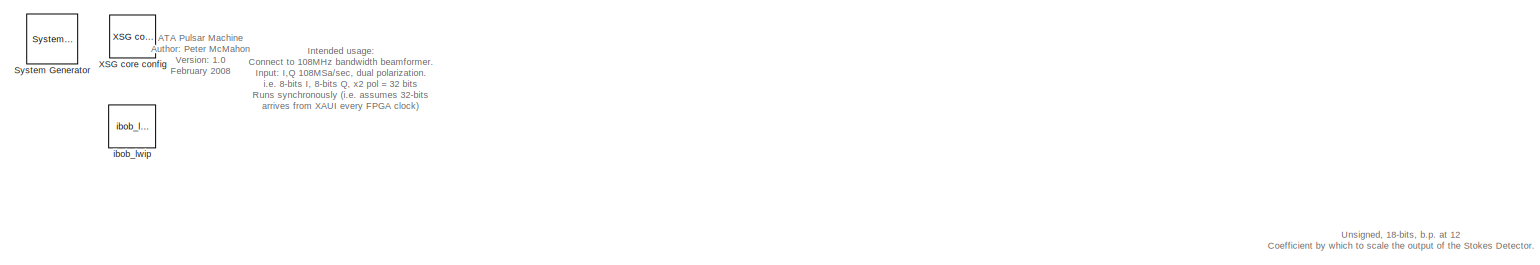
[diagram: root canvas - part 1/9, top left region]
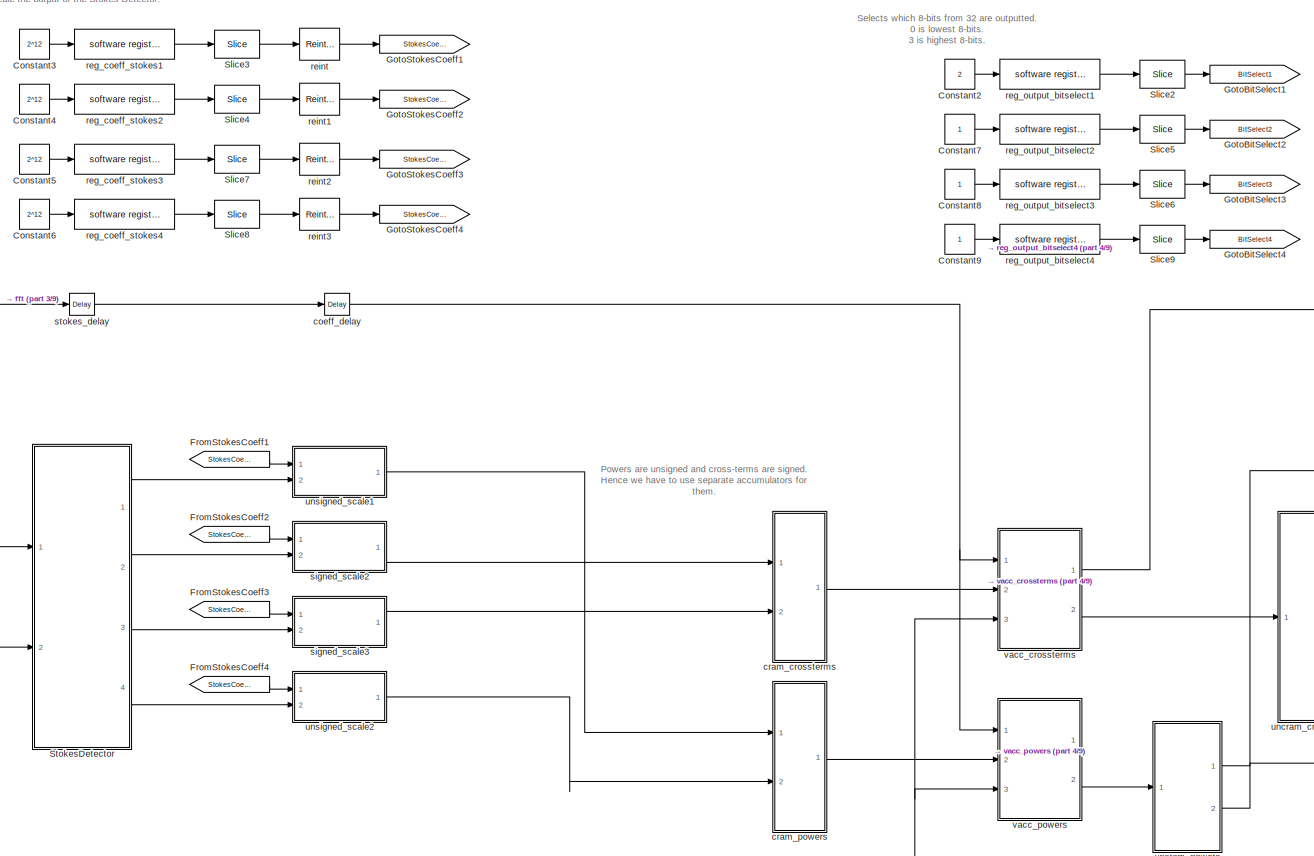
[diagram: root canvas - part 2/9, top center region]
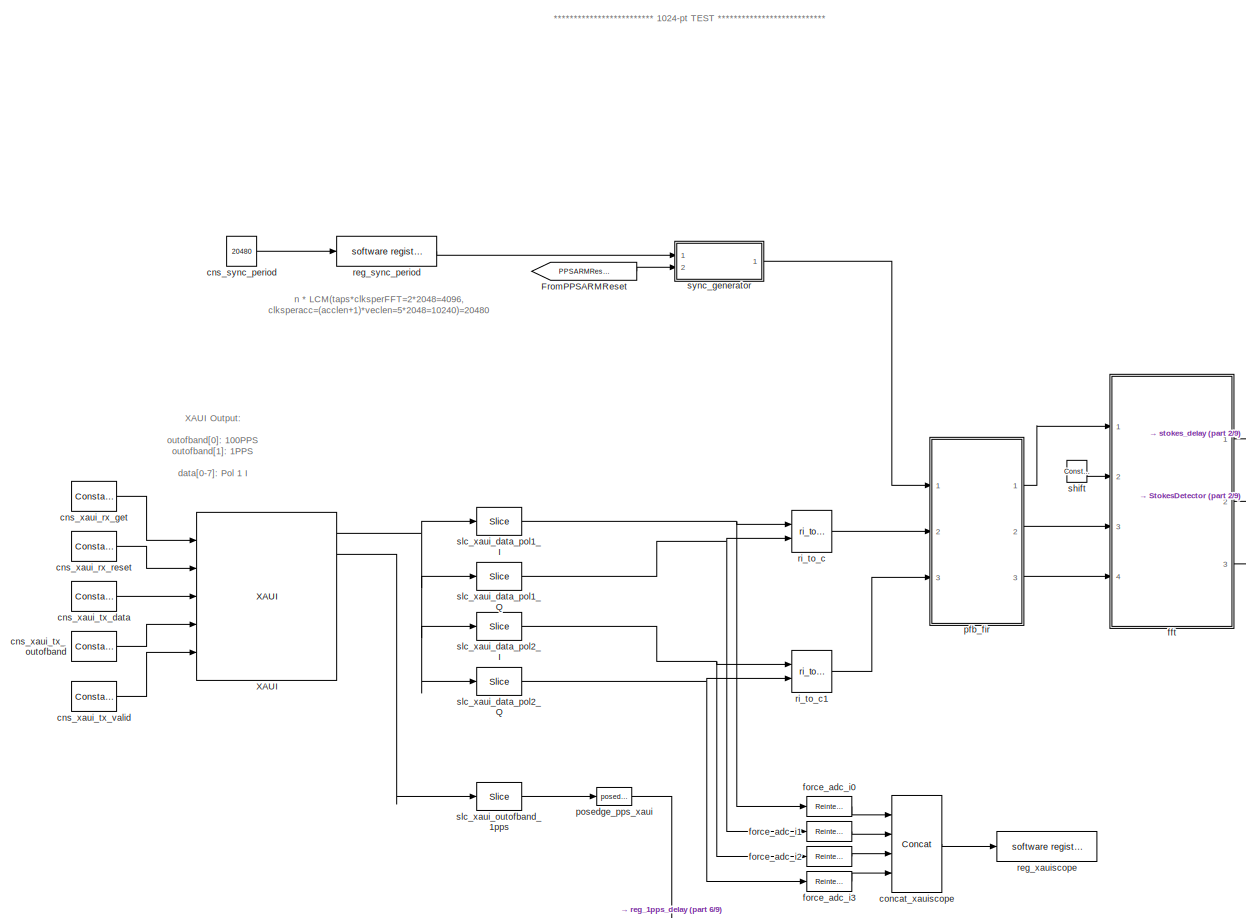
[diagram: root canvas - part 3/9, top left region]
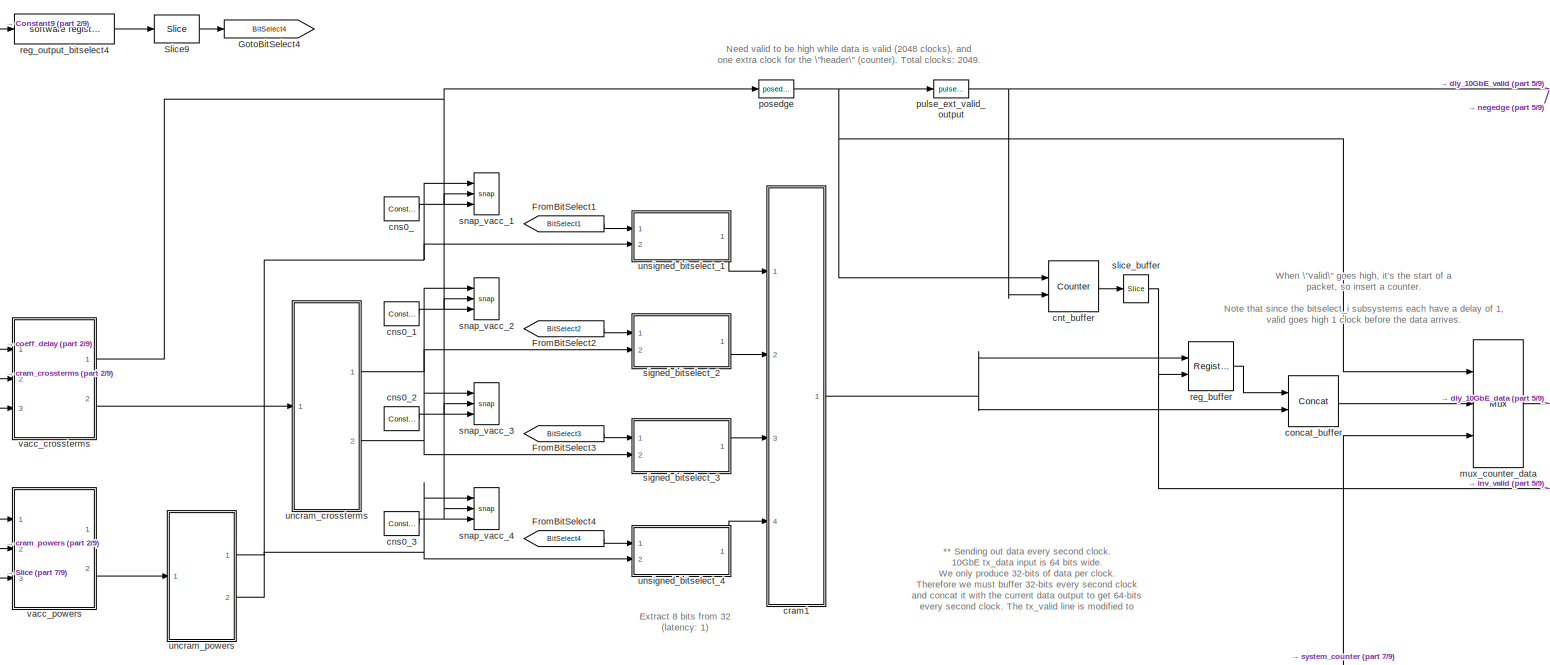
[diagram: root canvas - part 4/9, top center region]
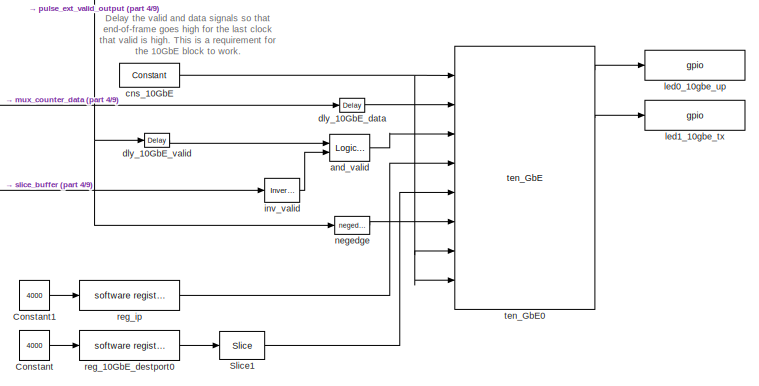
[diagram: root canvas - part 5/9, middle right region]
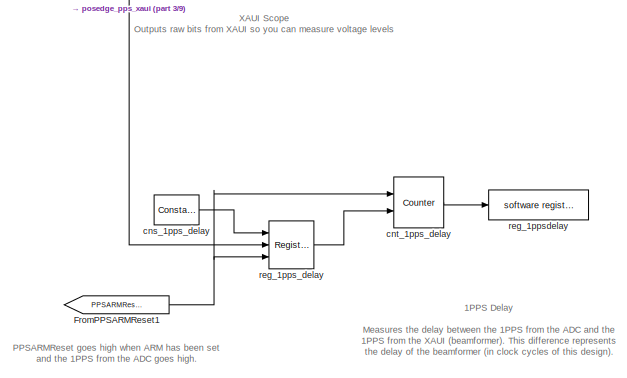
[diagram: root canvas - part 6/9, middle left region]
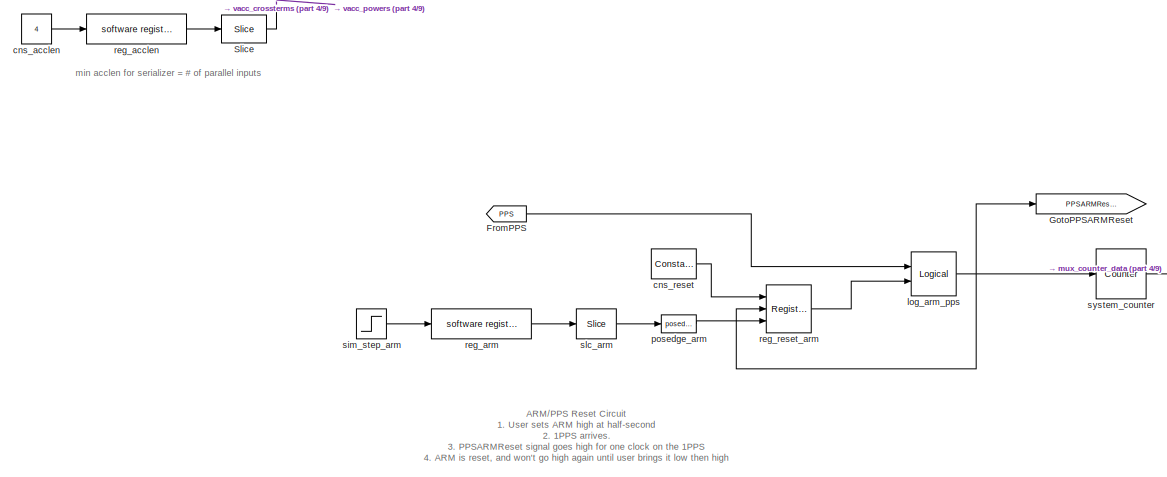
[diagram: root canvas - part 7/9, central region]
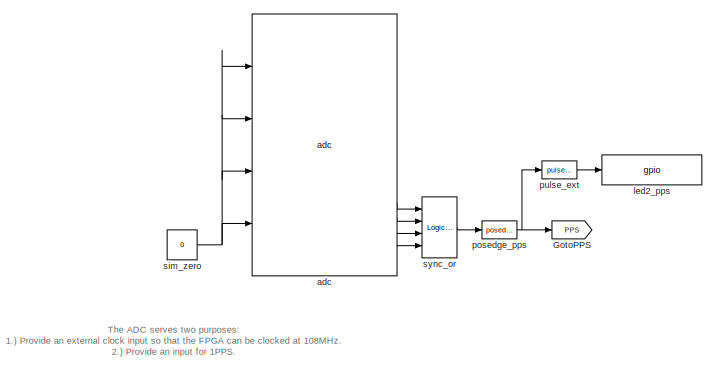
[diagram: root canvas - part 8/9, middle left region]
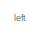
[diagram: root canvas - part 9/9, bottom right region]
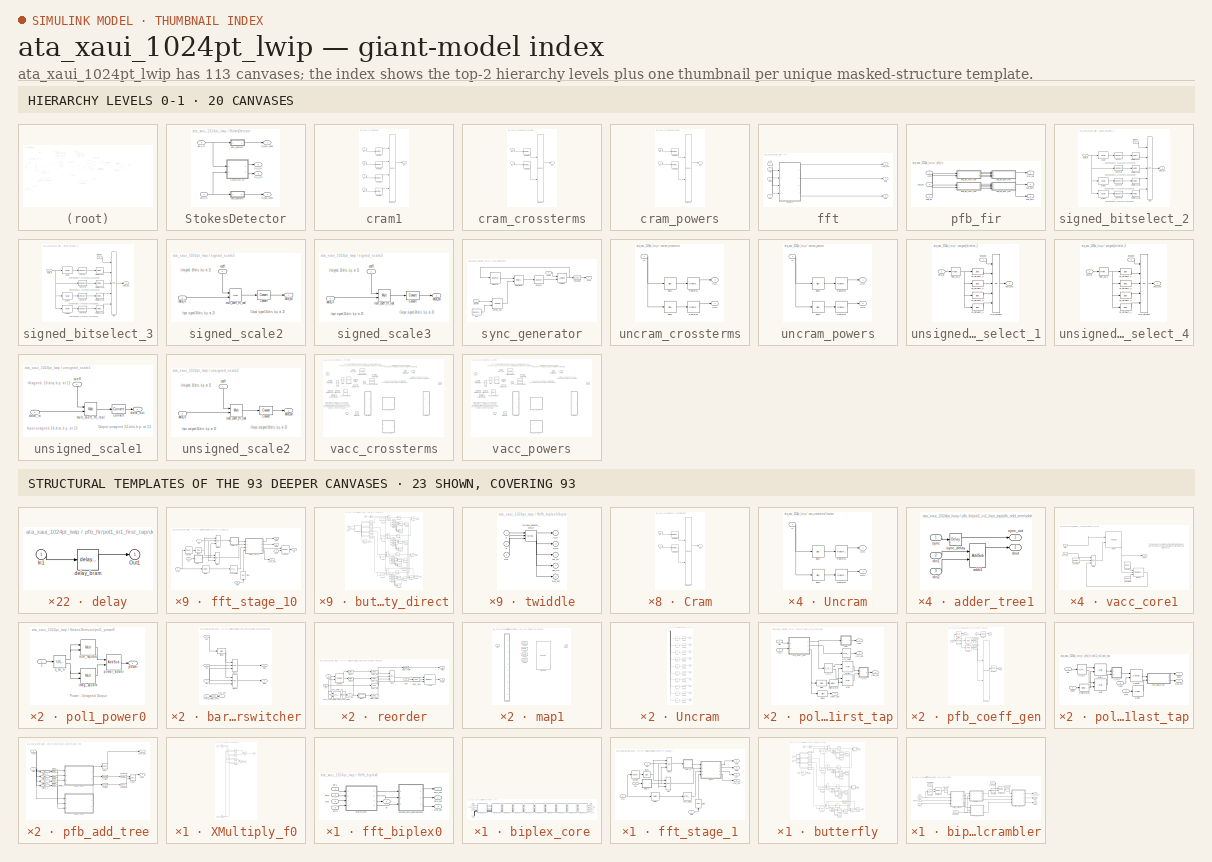
[diagram: thumbnail index - top-2 hierarchy levels (20 canvases) + 23 structural-template representatives of the remaining 93 canvases]
MODEL ata_xaui_1024pt_lwip
KIND model
BLOCK [Reference]  System Generator  REF=xbsIndex_r3/ System Generator
  AttributesFormatString = System\\nGenerator
  Ports = []
  ShowPortLabels = on
  SourceBlock = xbsIndex_r3/ System Generator
  SourceType = Xilinx System Generator
  Tag = genX
  UserData = DataTag0
  UserDataPersistent = on
  core_generation = According to Block Masks
  dbl_ovrd = According to Block Masks
  deprecated_control = off
  directory = ./ata_xaui_test/sysgen
  eval_field = 0
  incr_netlist = off
  package = ff1152
  part = xc2vp50
  run_coregen = off
  simulink_period = 1
  speed = -7
  synthesis_tool = XST
  sysclk_period = 8
  testbench = off
  trim_vbits = Everywhere in SubSystem
  xilinxfamily = Virtex2P
BLOCK [Constant] Constant
  Value = 4000
BLOCK [Constant] Constant1
  Value = 4000
BLOCK [Constant] Constant2
  Value = 2
BLOCK [Constant] Constant3
  Value = 2^12
BLOCK [Constant] Constant4
  Value = 2^12
BLOCK [Constant] Constant5
  Value = 2^12
BLOCK [Constant] Constant6
  Value = 2^12
BLOCK [Constant] Constant7
BLOCK [Constant] Constant8
BLOCK [Constant] Constant9
BLOCK [From] FromBitSelect1
  CloseFcn = tagdialog Close
  GotoTag = BitSelect1
BLOCK [From] FromBitSelect2
  CloseFcn = tagdialog Close
  GotoTag = BitSelect2
BLOCK [From] FromBitSelect3
  CloseFcn = tagdialog Close
  GotoTag = BitSelect3
BLOCK [From] FromBitSelect4
  CloseFcn = tagdialog Close
  GotoTag = BitSelect4
BLOCK [From] FromPPS
  CloseFcn = tagdialog Close
  GotoTag = PPS
BLOCK [From] FromPPSARMReset
  CloseFcn = tagdialog Close
  GotoTag = PPSARMReset
BLOCK [From] FromPPSARMReset1
  CloseFcn = tagdialog Close
  GotoTag = PPSARMReset
BLOCK [From] FromStokesCoeff1
  CloseFcn = tagdialog Close
  GotoTag = StokesCoeff1
BLOCK [From] FromStokesCoeff2
  CloseFcn = tagdialog Close
  GotoTag = StokesCoeff2
BLOCK [From] FromStokesCoeff3
  CloseFcn = tagdialog Close
  GotoTag = StokesCoeff3
BLOCK [From] FromStokesCoeff4
  CloseFcn = tagdialog Close
  GotoTag = StokesCoeff4
BLOCK [Goto] GotoBitSelect1
  GotoTag = BitSelect1
  TagVisibility = local
BLOCK [Goto] GotoBitSelect2
  GotoTag = BitSelect2
  TagVisibility = local
BLOCK [Goto] GotoBitSelect3
  GotoTag = BitSelect3
  TagVisibility = local
BLOCK [Goto] GotoBitSelect4
  GotoTag = BitSelect4
  TagVisibility = local
BLOCK [Goto] GotoPPS
  GotoTag = PPS
  TagVisibility = local
BLOCK [Goto] GotoPPSARMReset
  GotoTag = PPSARMReset
  TagVisibility = local
BLOCK [Goto] GotoStokesCoeff1
  GotoTag = StokesCoeff1
  TagVisibility = local
BLOCK [Goto] GotoStokesCoeff2
  GotoTag = StokesCoeff2
  TagVisibility = local
BLOCK [Goto] GotoStokesCoeff3
  GotoTag = StokesCoeff3
  TagVisibility = local
BLOCK [Goto] GotoStokesCoeff4
  GotoTag = StokesCoeff4
  TagVisibility = local
BLOCK [Reference] Slice  REF=xbsIndex_r3/Slice
  Ports = [1, 1]
  SourceBlock = xbsIndex_r3/Slice
  SourceType = Xilinx Slice Block
  base0 = LSB of Input
  base1 = MSB of Input
  bit0 = 0
  bit1 = 0
  boolean_output = off
  dbl_ovrd = off
  explicit_period = off
  mode = Lower Bit Location + Width
  nbits = 20
  period = 1
BLOCK [Reference] Slice1  REF=xbsIndex_r3/Slice
  Ports = [1, 1]
  SourceBlock = xbsIndex_r3/Slice
  SourceType = Xilinx Slice Block
  base0 = LSB of Input
  base1 = MSB of Input
  bit0 = 0
  bit1 = 0
  boolean_output = off
  dbl_ovrd = off
  explicit_period = off
  mode = Lower Bit Location + Width
  nbits = 16
  period = 1
BLOCK [Reference] Slice2  REF=xbsIndex_r3/Slice
  Ports = [1, 1]
  SourceBlock = xbsIndex_r3/Slice
  SourceType = Xilinx Slice Block
  base0 = LSB of Input
  base1 = MSB of Input
  bit0 = 0
  bit1 = 0
  boolean_output = off
  dbl_ovrd = off
  explicit_period = off
  mode = Lower Bit Location + Width
  nbits = 2
  period = 1
BLOCK [Reference] Slice3  REF=xbsIndex_r3/Slice
  Ports = [1, 1]
  SourceBlock = xbsIndex_r3/Slice
  SourceType = Xilinx Slice Block
  base0 = LSB of Input
  base1 = MSB of Input
  bit0 = 0
  bit1 = 0
  boolean_output = off
  dbl_ovrd = off
  explicit_period = off
  mode = Lower Bit Location + Width
  nbits = 18
  period = 1
BLOCK [Reference] Slice4  REF=xbsIndex_r3/Slice
  Ports = [1, 1]
  SourceBlock = xbsIndex_r3/Slice
  SourceType = Xilinx Slice Block
  base0 = LSB of Input
  base1 = MSB of Input
  bit0 = 0
  bit1 = 0
  boolean_output = off
  dbl_ovrd = off
  explicit_period = off
  mode = Lower Bit Location + Width
  nbits = 18
  period = 1
BLOCK [Reference] Slice5  REF=xbsIndex_r3/Slice
  Ports = [1, 1]
  SourceBlock = xbsIndex_r3/Slice
  SourceType = Xilinx Slice Block
  base0 = LSB of Input
  base1 = MSB of Input
  bit0 = 0
  bit1 = 0
  boolean_output = off
  dbl_ovrd = off
  explicit_period = off
  mode = Lower Bit Location + Width
  nbits = 2
  period = 1
BLOCK [Reference] Slice6  REF=xbsIndex_r3/Slice
  Ports = [1, 1]
  SourceBlock = xbsIndex_r3/Slice
  SourceType = Xilinx Slice Block
  base0 = LSB of Input
  base1 = MSB of Input
  bit0 = 0
  bit1 = 0
  boolean_output = off
  dbl_ovrd = off
  explicit_period = off
  mode = Lower Bit Location + Width
  nbits = 2
  period = 1
BLOCK [Reference] Slice7  REF=xbsIndex_r3/Slice
  Ports = [1, 1]
  SourceBlock = xbsIndex_r3/Slice
  SourceType = Xilinx Slice Block
  base0 = LSB of Input
  base1 = MSB of Input
  bit0 = 0
  bit1 = 0
  boolean_output = off
  dbl_ovrd = off
  explicit_period = off
  mode = Lower Bit Location + Width
  nbits = 18
  period = 1
BLOCK [Reference] Slice8  REF=xbsIndex_r3/Slice
  Ports = [1, 1]
  SourceBlock = xbsIndex_r3/Slice
  SourceType = Xilinx Slice Block
  base0 = LSB of Input
  base1 = MSB of Input
  bit0 = 0
  bit1 = 0
  boolean_output = off
  dbl_ovrd = off
  explicit_period = off
  mode = Lower Bit Location + Width
  nbits = 18
  period = 1
BLOCK [Reference] Slice9  REF=xbsIndex_r3/Slice
  Ports = [1, 1]
  SourceBlock = xbsIndex_r3/Slice
  SourceType = Xilinx Slice Block
  base0 = LSB of Input
  base1 = MSB of Input
  bit0 = 0
  bit1 = 0
  boolean_output = off
  dbl_ovrd = off
  explicit_period = off
  mode = Lower Bit Location + Width
  nbits = 2
  period = 1
BLOCK [SubSystem] StokesDetector
  MinAlgLoopOccurrences = off
  Ports = [2, 4]
  RTWSystemCode = Auto
  TreatAsAtomicUnit = off
BLOCK [SubSystem] StokesDetector/XMultiply_f0
  MaskIconFrame = on
  MaskIconOpaque = on
  MaskIconRotate = none
  MaskIconUnits = autoscale
  MinAlgLoopOccurrences = off
  Ports = [2, 2]
  RTWSystemCode = Auto
  TreatAsAtomicUnit = off
BLOCK [Inport] StokesDetector/XMultiply_f0/Pol1
  IconDisplay = Port number
  LatchInput = off
  Port = 1
BLOCK [Inport] StokesDetector/XMultiply_f0/Pol2
  IconDisplay = Port number
  LatchInput = off
  Port = 2
BLOCK [Outport] StokesDetector/XMultiply_f0/X Imag
  BusOutputAsStruct = off
  IconDisplay = Port number
  Port = 2
BLOCK [Outport] StokesDetector/XMultiply_f0/X Real
  BusOutputAsStruct = off
  IconDisplay = Port number
BLOCK [Reference] StokesDetector/XMultiply_f0/add  REF=xbsIndex_r3/AddSub
  Ports = [2, 1]
  SourceBlock = xbsIndex_r3/AddSub
  SourceType = Xilinx Adder/Subtractor
  arith_type = Signed  (2's comp)
  bin_pt = 23
  dbl_ovrd = off
  en = off
  explicit_period = off
  gen_core = off
  latency = 2
  mode = Addition
  n_bits = 24
  overflow = Wrap
  period = 1
  pipeline = off
  precision = User Defined
  quantization = Round  (unbiased: +/- Inf)
  show_param = off
  use_carryin = off
  use_carryout = off
  use_core = on
  use_rpm = on
  xl_area = [0, 0, 0, 0, 0, 0, 0]
  xl_use_area = off
BLOCK [Reference] StokesDetector/XMultiply_f0/c_to_ri  REF=casper_library/Misc/c_to_ri  (lib defined in mdl_138b2fc3435f, mdl_4ed325b712b3, +2 more)
  AttributesFormatString = 18_17 r/i
  Ports = [1, 2]
  ShowPortLabels = on
  SourceBlock = casper_library/Misc/c_to_ri
  SourceType = c_to_ri
  UserData = DataTag1
  UserDataPersistent = on
  bin_pt = 17
  n_bits = 18
BLOCK [Reference] StokesDetector/XMultiply_f0/c_to_ri1  REF=casper_library/Misc/c_to_ri  (lib defined in mdl_138b2fc3435f, mdl_4ed325b712b3, +2 more)
  AttributesFormatString = 18_17 r/i
  Ports = [1, 2]
  ShowPortLabels = on
  SourceBlock = casper_library/Misc/c_to_ri
  SourceType = c_to_ri
  UserData = DataTag2
  UserDataPersistent = on
  bin_pt = 17
  n_bits = 18
BLOCK [Reference] StokesDetector/XMultiply_f0/mult1  REF=xbsIndex_r3/Mult
  Ports = [2, 1]
  SourceBlock = xbsIndex_r3/Mult
  SourceType = Xilinx Multiplier
  arith_type = Signed  (2's comp)
  bin_pt = 2
  dbl_ovrd = off
  en = off
  explicit_period = off
  gen_core = off
  latency = 3
  mult_type = Parallel
  n_bits = 8
  overflow = Wrap
  oversample = 2
  period = 1
  pipeline = on
  placement_style = Rectangular Shape
  precision = Full
  quantization = Truncate
  show_param = on
  use_embedded = on
  use_rpm = on
  xl_area = [0, 0, 0, 0, 0, 0, 0]
  xl_use_area = off
BLOCK [Reference] StokesDetector/XMultiply_f0/mult2  REF=xbsIndex_r3/Mult
  Ports = [2, 1]
  SourceBlock = xbsIndex_r3/Mult
  SourceType = Xilinx Multiplier
  arith_type = Signed  (2's comp)
  bin_pt = 2
  dbl_ovrd = off
  en = off
  explicit_period = off
  gen_core = off
  latency = 3
  mult_type = Parallel
  n_bits = 8
  overflow = Wrap
  oversample = 2
  period = 1
  pipeline = on
  placement_style = Rectangular Shape
  precision = Full
  quantization = Truncate
  show_param = on
  use_embedded = on
  use_rpm = on
  xl_area = [0, 0, 0, 0, 0, 0, 0]
  xl_use_area = off
BLOCK [Reference] StokesDetector/XMultiply_f0/mult3  REF=xbsIndex_r3/Mult
  Ports = [2, 1]
  SourceBlock = xbsIndex_r3/Mult
  SourceType = Xilinx Multiplier
  arith_type = Signed  (2's comp)
  bin_pt = 2
  dbl_ovrd = off
  en = off
  explicit_period = off
  gen_core = off
  latency = 3
  mult_type = Parallel
  n_bits = 8
  overflow = Wrap
  oversample = 2
  period = 1
  pipeline = on
  placement_style = Rectangular Shape
  precision = Full
  quantization = Truncate
  show_param = on
  use_embedded = on
  use_rpm = on
  xl_area = [0, 0, 0, 0, 0, 0, 0]
  xl_use_area = off
BLOCK [Reference] StokesDetector/XMultiply_f0/mult4  REF=xbsIndex_r3/Mult
  Ports = [2, 1]
  SourceBlock = xbsIndex_r3/Mult
  SourceType = Xilinx Multiplier
  arith_type = Signed  (2's comp)
  bin_pt = 2
  dbl_ovrd = off
  en = off
  explicit_period = off
  gen_core = off
  latency = 3
  mult_type = Parallel
  n_bits = 8
  overflow = Wrap
  oversample = 2
  period = 1
  pipeline = on
  placement_style = Rectangular Shape
  precision = Full
  quantization = Truncate
  show_param = on
  use_embedded = on
  use_rpm = on
  xl_area = [0, 0, 0, 0, 0, 0, 0]
  xl_use_area = off
BLOCK [Reference] StokesDetector/XMultiply_f0/sub  REF=xbsIndex_r3/AddSub
  Ports = [2, 1]
  SourceBlock = xbsIndex_r3/AddSub
  SourceType = Xilinx Adder/Subtractor
  arith_type = Signed  (2's comp)
  bin_pt = 23
  dbl_ovrd = off
  en = off
  explicit_period = off
  gen_core = off
  latency = 2
  mode = Subtraction
  n_bits = 24
  overflow = Wrap
  period = 1
  pipeline = off
  precision = User Defined
  quantization = Round  (unbiased: +/- Inf)
  show_param = off
  use_carryin = off
  use_carryout = off
  use_core = on
  use_rpm = on
  xl_area = [0, 0, 0, 0, 0, 0, 0]
  xl_use_area = off
BLOCK [Outport] StokesDetector/f0_pol1_pow
  BusOutputAsStruct = off
  IconDisplay = Port number
BLOCK [Outport] StokesDetector/f0_pol2_pow
  BusOutputAsStruct = off
  IconDisplay = Port number
  Port = 4
BLOCK [Outport] StokesDetector/f0_x_im
  BusOutputAsStruct = off
  IconDisplay = Port number
  Port = 3
BLOCK [Outport] StokesDetector/f0_x_re
  BusOutputAsStruct = off
  IconDisplay = Port number
  Port = 2
BLOCK [Inport] StokesDetector/pol1_f0
  IconDisplay = Port number
  LatchInput = off
  Port = 1
BLOCK [SubSystem] StokesDetector/pol1_power0
  MinAlgLoopOccurrences = off
  Ports = [1, 1]
  RTWSystemCode = Auto
  TreatAsAtomicUnit = off
BLOCK [Inport] StokesDetector/pol1_power0/c
  IconDisplay = Port number
  LatchInput = off
  Port = 1
BLOCK [Reference] StokesDetector/pol1_power0/c_to_ri  REF=casper_library/Misc/c_to_ri  (lib defined in mdl_138b2fc3435f, mdl_4ed325b712b3, +2 more)
  AttributesFormatString = 18_17 r/i
  Ports = [1, 2]
  ShowPortLabels = on
  SourceBlock = casper_library/Misc/c_to_ri
  SourceType = c_to_ri
  UserData = DataTag3
  UserDataPersistent = on
  bin_pt = 17
  n_bits = 18
BLOCK [Reference] StokesDetector/pol1_power0/imag_square  REF=xbsIndex_r3/Mult
  Ports = [2, 1]
  SourceBlock = xbsIndex_r3/Mult
  SourceType = Xilinx Multiplier
  arith_type = Signed  (2's comp)
  bin_pt = 17
  dbl_ovrd = off
  en = off
  explicit_period = off
  gen_core = off
  latency = 3
  mult_type = Parallel
  n_bits = 18
  overflow = Wrap
  oversample = 2
  period = 1
  pipeline = on
  placement_style = Rectangular Shape
  precision = Full
  quantization = Truncate
  show_param = on
  use_embedded = on
  use_rpm = on
  xl_area = [0, 0, 0, 0, 0, 0, 0]
  xl_use_area = off
BLOCK [Outport] StokesDetector/pol1_power0/power
  BusOutputAsStruct = off
  IconDisplay = Port number
BLOCK [Reference] StokesDetector/pol1_power0/power_adder  REF=xbsIndex_r3/AddSub
  Ports = [2, 1]
  SourceBlock = xbsIndex_r3/AddSub
  SourceType = Xilinx Adder/Subtractor
  arith_type = Unsigned
  bin_pt = 23
  dbl_ovrd = off
  en = off
  explicit_period = off
  gen_core = off
  latency = 2
  mode = Addition
  n_bits = 24
  overflow = Wrap
  period = 1
  pipeline = off
  precision = User Defined
  quantization = Round  (unbiased: +/- Inf)
  show_param = off
  use_carryin = off
  use_carryout = off
  use_core = on
  use_rpm = on
  xl_area = [0, 0, 0, 0, 0, 0, 0]
  xl_use_area = off
BLOCK [Reference] StokesDetector/pol1_power0/real_square  REF=xbsIndex_r3/Mult
  Ports = [2, 1]
  SourceBlock = xbsIndex_r3/Mult
  SourceType = Xilinx Multiplier
  arith_type = Signed  (2's comp)
  bin_pt = 17
  dbl_ovrd = off
  en = off
  explicit_period = off
  gen_core = off
  latency = 3
  mult_type = Parallel
  n_bits = 18
  overflow = Wrap
  oversample = 2
  period = 1
  pipeline = on
  placement_style = Rectangular Shape
  precision = Full
  quantization = Truncate
  show_param = on
  use_embedded = on
  use_rpm = on
  xl_area = [0, 0, 0, 0, 0, 0, 0]
  xl_use_area = off
BLOCK [Inport] StokesDetector/pol2_f0
  IconDisplay = Port number
  LatchInput = off
  Port = 2
BLOCK [SubSystem] StokesDetector/pol2_power0
  MinAlgLoopOccurrences = off
  Ports = [1, 1]
  RTWSystemCode = Auto
  TreatAsAtomicUnit = off
BLOCK [Inport] StokesDetector/pol2_power0/c
  IconDisplay = Port number
  LatchInput = off
  Port = 1
BLOCK [Reference] StokesDetector/pol2_power0/c_to_ri  REF=casper_library/Misc/c_to_ri  (lib defined in mdl_138b2fc3435f, mdl_4ed325b712b3, +2 more)
  AttributesFormatString = 18_17 r/i
  Ports = [1, 2]
  ShowPortLabels = on
  SourceBlock = casper_library/Misc/c_to_ri
  SourceType = c_to_ri
  UserData = DataTag4
  UserDataPersistent = on
  bin_pt = 17
  n_bits = 18
BLOCK [Reference] StokesDetector/pol2_power0/imag_square  REF=xbsIndex_r3/Mult
  Ports = [2, 1]
  SourceBlock = xbsIndex_r3/Mult
  SourceType = Xilinx Multiplier
  arith_type = Signed  (2's comp)
  bin_pt = 17
  dbl_ovrd = off
  en = off
  explicit_period = off
  gen_core = off
  latency = 3
  mult_type = Parallel
  n_bits = 18
  overflow = Wrap
  oversample = 2
  period = 1
  pipeline = on
  placement_style = Rectangular Shape
  precision = Full
  quantization = Truncate
  show_param = on
  use_embedded = on
  use_rpm = on
  xl_area = [0, 0, 0, 0, 0, 0, 0]
  xl_use_area = off
BLOCK [Outport] StokesDetector/pol2_power0/power
  BusOutputAsStruct = off
  IconDisplay = Port number
BLOCK [Reference] StokesDetector/pol2_power0/power_adder  REF=xbsIndex_r3/AddSub
  Ports = [2, 1]
  SourceBlock = xbsIndex_r3/AddSub
  SourceType = Xilinx Adder/Subtractor
  arith_type = Unsigned
  bin_pt = 23
  dbl_ovrd = off
  en = off
  explicit_period = off
  gen_core = off
  latency = 2
  mode = Addition
  n_bits = 24
  overflow = Wrap
  period = 1
  pipeline = off
  precision = User Defined
  quantization = Round  (unbiased: +/- Inf)
  show_param = off
  use_carryin = off
  use_carryout = off
  use_core = on
  use_rpm = on
  xl_area = [0, 0, 0, 0, 0, 0, 0]
  xl_use_area = off
BLOCK [Reference] StokesDetector/pol2_power0/real_square  REF=xbsIndex_r3/Mult
  Ports = [2, 1]
  SourceBlock = xbsIndex_r3/Mult
  SourceType = Xilinx Multiplier
  arith_type = Signed  (2's comp)
  bin_pt = 17
  dbl_ovrd = off
  en = off
  explicit_period = off
  gen_core = off
  latency = 3
  mult_type = Parallel
  n_bits = 18
  overflow = Wrap
  oversample = 2
  period = 1
  pipeline = on
  placement_style = Rectangular Shape
  precision = Full
  quantization = Truncate
  show_param = on
  use_embedded = on
  use_rpm = on
  xl_area = [0, 0, 0, 0, 0, 0, 0]
  xl_use_area = off
BLOCK [Reference] XAUI  REF=xps_library/XAUI  (lib defined in mdl_00b5cec29cd0, mdl_02ab6ecaa3d1, +5 more)
  Ports = [5, 7]
  ShowPortLabels = on
  SourceBlock = xps_library/XAUI
  SourceType = xaui
  Tag = xps:xaui
  demux = 1
  port = iBOB:1
  pre_emph = 2
  show_param = on
  swing = 800
BLOCK [Reference] XSG core config  REF=xps_library/XSG core config  (lib defined in mdl_00b5cec29cd0, mdl_02ab6ecaa3d1, +5 more)
  Ports = []
  ShowPortLabels = on
  SourceBlock = xps_library/XSG core config
  SourceType = xsg core config
  Tag = xps:xsg
  clk_rate = 125
  clk_src = adc0_clk
  gpio_clk_bit_index = 0
  gpio_clk_io_group = iBOB:sma
  hw_sys = iBOB
  ibob_linux = off
  mpc_type = powerpc405
  sample_period = 1
  synthesis_tool = XST
BLOCK [Reference] adc  REF=xps_library/adc  (lib defined in mdl_00b5cec29cd0, mdl_02ab6ecaa3d1, +5 more)
  Ports = [4, 17]
  ShowPortLabels = on
  SourceBlock = xps_library/adc
  SourceType = adc
  Tag = xps:adc
  adc_brd = iBOB:adc0
  adc_clk_rate = 500
  adc_interleave = off
  sample_period = 1
BLOCK [Reference] and_valid  REF=xbsIndex_r3/Logical
  Ports = [2, 1]
  SourceBlock = xbsIndex_r3/Logical
  SourceType = Xilinx Logical Block
  align_bp = on
  arith_type = Unsigned
  bin_pt = 2
  dbl_ovrd = off
  en = off
  explicit_period = off
  inputs = 2
  latency = 0
  logical_function = AND
  n_bits = 8
  period = 1
  precision = Full
  show_param = off
  xl_area = [0, 0, 0, 0, 0, 0, 0]
  xl_use_area = off
BLOCK [Reference] cns0_  REF=xbsIndex_r3/Constant
  Ports = [0, 1]
  SourceBlock = xbsIndex_r3/Constant
  SourceType = Xilinx Constant Block
  arith_type = Boolean
  bin_pt = 0
  carry = CIN
  const = 0
  dbl_ovrd = off
  equ = P=C
  explicit_period = on
  inp1 = P
  inp2 = PCIN>>17
  iostate = 0
  n_bits = 1
  opr = +
  opselect = C
  period = 1
BLOCK [Reference] cns0_1  REF=xbsIndex_r3/Constant
  Ports = [0, 1]
  SourceBlock = xbsIndex_r3/Constant
  SourceType = Xilinx Constant Block
  arith_type = Boolean
  bin_pt = 0
  carry = CIN
  const = 0
  dbl_ovrd = off
  equ = P=C
  explicit_period = on
  inp1 = P
  inp2 = PCIN>>17
  iostate = 0
  n_bits = 1
  opr = +
  opselect = C
  period = 1
BLOCK [Reference] cns0_2  REF=xbsIndex_r3/Constant
  Ports = [0, 1]
  SourceBlock = xbsIndex_r3/Constant
  SourceType = Xilinx Constant Block
  arith_type = Boolean
  bin_pt = 0
  carry = CIN
  const = 0
  dbl_ovrd = off
  equ = P=C
  explicit_period = on
  inp1 = P
  inp2 = PCIN>>17
  iostate = 0
  n_bits = 1
  opr = +
  opselect = C
  period = 1
BLOCK [Reference] cns0_3  REF=xbsIndex_r3/Constant
  Ports = [0, 1]
  SourceBlock = xbsIndex_r3/Constant
  SourceType = Xilinx Constant Block
  arith_type = Boolean
  bin_pt = 0
  carry = CIN
  const = 0
  dbl_ovrd = off
  equ = P=C
  explicit_period = on
  inp1 = P
  inp2 = PCIN>>17
  iostate = 0
  n_bits = 1
  opr = +
  opselect = C
  period = 1
BLOCK [Reference] cns_10GbE  REF=xbsIndex_r3/Constant
  Ports = [0, 1]
  SourceBlock = xbsIndex_r3/Constant
  SourceType = Xilinx Constant Block
  arith_type = Boolean
  bin_pt = 0
  carry = CIN
  const = 0
  dbl_ovrd = off
  equ = P=C
  explicit_period = on
  inp1 = P
  inp2 = PCIN>>17
  iostate = 0
  n_bits = 32
  opr = +
  opselect = C
  period = 1
BLOCK [Reference] cns_1pps_delay  REF=xbsIndex_r3/Constant
  Ports = [0, 1]
  SourceBlock = xbsIndex_r3/Constant
  SourceType = Xilinx Constant Block
  arith_type = Boolean
  bin_pt = 0
  carry = CIN
  const = 1
  dbl_ovrd = off
  equ = P=C
  explicit_period = on
  inp1 = P
  inp2 = PCIN>>17
  iostate = 0
  n_bits = 1
  opr = +
  opselect = C
  period = 1
BLOCK [Constant] cns_acclen
  Value = 4
BLOCK [Reference] cns_reset  REF=xbsIndex_r3/Constant
  Ports = [0, 1]
  SourceBlock = xbsIndex_r3/Constant
  SourceType = Xilinx Constant Block
  arith_type = Boolean
  bin_pt = 0
  carry = CIN
  const = 1
  dbl_ovrd = off
  equ = P=C
  explicit_period = on
  inp1 = P
  inp2 = PCIN>>17
  iostate = 0
  n_bits = 1
  opr = +
  opselect = C
  period = 1
BLOCK [Constant] cns_sync_period
  Value = 20480
BLOCK [Reference] cns_xaui_rx_get  REF=xbsIndex_r3/Constant
  Ports = [0, 1]
  SourceBlock = xbsIndex_r3/Constant
  SourceType = Xilinx Constant Block
  arith_type = Boolean
  bin_pt = 0
  carry = CIN
  const = 1
  dbl_ovrd = off
  equ = P=C
  explicit_period = on
  inp1 = P
  inp2 = PCIN>>17
  iostate = 0
  n_bits = 1
  opr = +
  opselect = C
  period = 1
BLOCK [Reference] cns_xaui_rx_reset  REF=xbsIndex_r3/Constant
  Ports = [0, 1]
  SourceBlock = xbsIndex_r3/Constant
  SourceType = Xilinx Constant Block
  arith_type = Boolean
  bin_pt = 0
  carry = CIN
  const = 0
  dbl_ovrd = off
  equ = P=C
  explicit_period = on
  inp1 = P
  inp2 = PCIN>>17
  iostate = 0
  n_bits = 1
  opr = +
  opselect = C
  period = 1
BLOCK [Reference] cns_xaui_tx_data  REF=xbsIndex_r3/Constant
  Ports = [0, 1]
  SourceBlock = xbsIndex_r3/Constant
  SourceType = Xilinx Constant Block
  arith_type = Unsigned
  bin_pt = 0
  carry = CIN
  const = 0
  dbl_ovrd = off
  equ = P=C
  explicit_period = on
  inp1 = P
  inp2 = PCIN>>17
  iostate = 0
  n_bits = 64
  opr = +
  opselect = C
  period = 1
BLOCK [Reference] cns_xaui_tx_outofband  REF=xbsIndex_r3/Constant
  Ports = [0, 1]
  SourceBlock = xbsIndex_r3/Constant
  SourceType = Xilinx Constant Block
  arith_type = Unsigned
  bin_pt = 0
  carry = CIN
  const = 0
  dbl_ovrd = off
  equ = P=C
  explicit_period = on
  inp1 = P
  inp2 = PCIN>>17
  iostate = 0
  n_bits = 8
  opr = +
  opselect = C
  period = 1
BLOCK [Reference] cns_xaui_tx_valid  REF=xbsIndex_r3/Constant
  Ports = [0, 1]
  SourceBlock = xbsIndex_r3/Constant
  SourceType = Xilinx Constant Block
  arith_type = Boolean
  bin_pt = 0
  carry = CIN
  const = 0
  dbl_ovrd = off
  equ = P=C
  explicit_period = on
  inp1 = P
  inp2 = PCIN>>17
  iostate = 0
  n_bits = 8
  opr = +
  opselect = C
  period = 1
BLOCK [Reference] cnt_1pps_delay  REF=xbsIndex_r3/Counter
  Ports = [2, 1]
  SourceBlock = xbsIndex_r3/Counter
  SourceType = Xilinx Counter Block
  arith_type = Unsigned
  bin_pt = 0
  cnt_by_val = 1
  cnt_to = Inf
  cnt_type = Free Running
  dbl_ovrd = off
  en = on
  explicit_period = off
  gen_core = off
  load_pin = off
  n_bits = 32
  operation = Up
  period = 1
  rst = on
  show_param = off
  start_count = 0
  use_rpm = on
  xl_area = [0, 0, 0, 0, 0, 0, 0]
  xl_use_area = off
BLOCK [Reference] cnt_buffer  REF=xbsIndex_r3/Counter
  Ports = [2, 1]
  SourceBlock = xbsIndex_r3/Counter
  SourceType = Xilinx Counter Block
  arith_type = Unsigned
  bin_pt = 0
  cnt_by_val = 1
  cnt_to = Inf
  cnt_type = Free Running
  dbl_ovrd = off
  en = on
  explicit_period = off
  gen_core = off
  load_pin = off
  n_bits = 1
  operation = Up
  period = 1
  rst = on
  show_param = off
  start_count = 1
  use_rpm = on
  xl_area = [0, 0, 0, 0, 0, 0, 0]
  xl_use_area = off
BLOCK [Reference] coeff_delay  REF=xbsIndex_r3/Delay
  Ports = [1, 1]
  SourceBlock = xbsIndex_r3/Delay
  SourceType = Xilinx Delay Block
  accept_only_valid = off
  dbl_ovrd = off
  en = off
  explicit_period = off
  init_zero = on
  latency = 6
  period = 1
  reg_retiming = off
  show_param = off
  xl_area = [0, 0, 0, 0, 0, 0, 0]
  xl_use_area = off
BLOCK [Reference] concat_buffer  REF=xbsIndex_r3/Concat
  Ports = [2, 1]
  SourceBlock = xbsIndex_r3/Concat
  SourceType = Xilinx Bus Concatenator
  dbl_ovrd = off
  explicit_period = off
  num_inputs = 2
  period = 1
BLOCK [Reference] concat_xauiscope  REF=xbsIndex_r3/Concat
  Ports = [4, 1]
  SourceBlock = xbsIndex_r3/Concat
  SourceType = Xilinx Bus Concatenator
  dbl_ovrd = off
  explicit_period = off
  num_inputs = 4
  period = 1
BLOCK [SubSystem] cram1
  AncestorBlock = gavrt_library/cram
  MaskDescription = Concatenates inputs together after forcing binary point to zero.
  MaskEnableString = on
  MaskIconFrame = on
  MaskIconOpaque = on
  MaskIconRotate = none
  MaskIconUnits = autoscale
  MaskInitialization = cram_init(gcb, ...\n    'num_slice', num_slice);
  MaskPromptString = Number of slices
  MaskSelfModifiable = on
  MaskStyleString = edit
  MaskToolTipString = on
  MaskTunableValueString = on
  MaskType = cram
  MaskValueString = 4
  MaskVariables = num_slice=@1;
  MaskVisibilityString = on
  MinAlgLoopOccurrences = off
  Ports = [4, 1]
  RTWSystemCode = Auto
  TreatAsAtomicUnit = off
  UserData = DataTag5
  UserDataPersistent = on
BLOCK [S-Function] cram1/Concat
  AncestorBlock = xbsIndex_r3/Concat
  FunctionName = xlconcat
  MaskCallbackString = |xlMagicCallback||
  MaskDescription = Concatenates two or more inputs.  Inputs must be unsigned with binary point at zero.
  MaskDisplay = patch([0 iWidth iWidth 0],[0 0 iHeight iHeight] , bg);\npatch(logoX,logoY, fg);\nport_label('input',1,'hi');\nport_label('input',num_inputs+1,'lo');\nport_label('output',1,'cat');\n;plot([0 0 iWidth iWidth 0], [0 iHeight iHeight 0 0]);\n  <repeated x3 — deduplicated; at blocks: Concat>
  MaskEnableString = on,on,on,on
  MaskHelp = eval('xlWeb(xlhtmldoclink(''Concat''))');
  MaskIconFrame = off
  MaskIconOpaque = off
  MaskIconRotate = none
  MaskIconUnits = autoscale
  MaskInitialization = [designRoot, family, part, speed, package, simulinkPeriod, sysclkPeriod, dbl_ovrd, trimVbit] = xlSysgenSettings(gcb,1,1);\n[bg,fg] = xlcmap('XBlock',dbl_ovrd);\niPos = get_param(gcb,'Position');\niWidth=iPos(3)-iPos(1); iHeight=iPos(4)-iPos(2);\niCx=iWidth/2;\niCy=iHeight/2;\n[logoX, logoY] = xlogo(iPos);\n\n\n\n\n% one time added for param list\nnumInputs = num_inputs + 1;\nprecision0 = 1;\nlaten...<+154ch>  <repeated x3 — deduplicated; at blocks: Concat>
  MaskPromptString = Number of Inputs|Use Explicit Sample Period|Sample Period  (use -1 to inherit first known input period)|Override with Doubles
  MaskSelfModifiable = on
  MaskStyleString = popup(2|3|4|5|6|7|8|9|10|11|12|13|14|15|16),checkbox,edit,checkbox
  MaskTabNameString = ,,,
  MaskToolTipString = on,on,on,on
  MaskTunableValueString = off,off,off,off
  MaskType = Xilinx Bus Concatenator
  MaskValueString = 4|off|1|off
  MaskVarAliasString = ,,,
  MaskVariables = num_inputs=@1;explicit_period=@2;period=@3;dbl_ovrd=@4;
  MaskVisibilityString = on,on,off,on
  Parameters = sfcn_mwsv__
  Ports = [4, 1]
BLOCK [Inport] cram1/In1
  IconDisplay = Port number
  LatchInput = off
  Port = 1
BLOCK [Inport] cram1/In2
  IconDisplay = Port number
  LatchInput = off
  Port = 2
BLOCK [Inport] cram1/In3
  IconDisplay = Port number
  LatchInput = off
  Port = 3
BLOCK [Inport] cram1/In4
  IconDisplay = Port number
  LatchInput = off
  Port = 4
BLOCK [Outport] cram1/Out
  BusOutputAsStruct = off
  IconDisplay = Port number
BLOCK [Reference] cram1/Reinterp1  REF=xbsIndex_r3/Reinterpret
  Ports = [1, 1]
  SourceBlock = xbsIndex_r3/Reinterpret
  SourceType = Xilinx Type Reinterpreting Block
  arith_type = Unsigned
  bin_pt = 0
  force_arith_type = on
  force_bin_pt = on
  force_valid = on
BLOCK [Reference] cram1/Reinterp2  REF=xbsIndex_r3/Reinterpret
  Ports = [1, 1]
  SourceBlock = xbsIndex_r3/Reinterpret
  SourceType = Xilinx Type Reinterpreting Block
  arith_type = Unsigned
  bin_pt = 0
  force_arith_type = on
  force_bin_pt = on
  force_valid = on
BLOCK [Reference] cram1/Reinterp3  REF=xbsIndex_r3/Reinterpret
  Ports = [1, 1]
  SourceBlock = xbsIndex_r3/Reinterpret
  SourceType = Xilinx Type Reinterpreting Block
  arith_type = Unsigned
  bin_pt = 0
  force_arith_type = on
  force_bin_pt = on
  force_valid = on
BLOCK [Reference] cram1/Reinterp4  REF=xbsIndex_r3/Reinterpret
  Ports = [1, 1]
  SourceBlock = xbsIndex_r3/Reinterpret
  SourceType = Xilinx Type Reinterpreting Block
  arith_type = Unsigned
  bin_pt = 0
  force_arith_type = on
  force_bin_pt = on
  force_valid = on
BLOCK [SubSystem] cram_crossterms
  AncestorBlock = gavrt_library/cram
  MaskDescription = Concatenates inputs together after forcing binary point to zero.
  MaskEnableString = on
  MaskIconFrame = on
  MaskIconOpaque = on
  MaskIconRotate = none
  MaskIconUnits = autoscale
  MaskInitialization = cram_init(gcb, ...\n    'num_slice', num_slice);
  MaskPromptString = Number of slices
  MaskSelfModifiable = on
  MaskStyleString = edit
  MaskToolTipString = on
  MaskTunableValueString = on
  MaskType = cram
  MaskValueString = 2
  MaskVariables = num_slice=@1;
  MaskVisibilityString = on
  MinAlgLoopOccurrences = off
  Ports = [2, 1]
  RTWSystemCode = Auto
  TreatAsAtomicUnit = off
  UserData = DataTag6
  UserDataPersistent = on
BLOCK [S-Function] cram_crossterms/Concat
  AncestorBlock = xbsIndex_r3/Concat
  FunctionName = xlconcat
  MaskCallbackString = |xlMagicCallback||
  MaskDescription = Concatenates two or more inputs.  Inputs must be unsigned with binary point at zero.
  MaskEnableString = on,on,on,on
  MaskHelp = eval('xlWeb(xlhtmldoclink(''Concat''))');
  MaskIconFrame = off
  MaskIconOpaque = off
  MaskIconRotate = none
  MaskIconUnits = autoscale
  MaskPromptString = Number of Inputs|Use Explicit Sample Period|Sample Period  (use -1 to inherit first known input period)|Override with Doubles
  MaskSelfModifiable = on
  MaskStyleString = popup(2|3|4|5|6|7|8|9|10|11|12|13|14|15|16),checkbox,edit,checkbox
  MaskTabNameString = ,,,
  MaskToolTipString = on,on,on,on
  MaskTunableValueString = off,off,off,off
  MaskType = Xilinx Bus Concatenator
  MaskValueString = 2|off|1|off
  MaskVarAliasString = ,,,
  MaskVariables = num_inputs=@1;explicit_period=@2;period=@3;dbl_ovrd=@4;
  MaskVisibilityString = on,on,off,on
  Parameters = sfcn_mwsv__
  Ports = [2, 1]
BLOCK [Inport] cram_crossterms/In1
  IconDisplay = Port number
  LatchInput = off
  Port = 1
BLOCK [Inport] cram_crossterms/In2
  IconDisplay = Port number
  LatchInput = off
  Port = 2
BLOCK [Outport] cram_crossterms/Out
  BusOutputAsStruct = off
  IconDisplay = Port number
BLOCK [Reference] cram_crossterms/Reinterp1  REF=xbsIndex_r3/Reinterpret
  Ports = [1, 1]
  SourceBlock = xbsIndex_r3/Reinterpret
  SourceType = Xilinx Type Reinterpreting Block
  arith_type = Unsigned
  bin_pt = 0
  force_arith_type = on
  force_bin_pt = on
  force_valid = on
BLOCK [Reference] cram_crossterms/Reinterp2  REF=xbsIndex_r3/Reinterpret
  Ports = [1, 1]
  SourceBlock = xbsIndex_r3/Reinterpret
  SourceType = Xilinx Type Reinterpreting Block
  arith_type = Unsigned
  bin_pt = 0
  force_arith_type = on
  force_bin_pt = on
  force_valid = on
BLOCK [SubSystem] cram_powers
  AncestorBlock = gavrt_library/cram
  MaskDescription = Concatenates inputs together after forcing binary point to zero.
  MaskEnableString = on
  MaskIconFrame = on
  MaskIconOpaque = on
  MaskIconRotate = none
  MaskIconUnits = autoscale
  MaskInitialization = cram_init(gcb, ...\n    'num_slice', num_slice);
  MaskPromptString = Number of slices
  MaskSelfModifiable = on
  MaskStyleString = edit
  MaskToolTipString = on
  MaskTunableValueString = on
  MaskType = cram
  MaskValueString = 2
  MaskVariables = num_slice=@1;
  MaskVisibilityString = on
  MinAlgLoopOccurrences = off
  Ports = [2, 1]
  RTWSystemCode = Auto
  TreatAsAtomicUnit = off
  UserData = DataTag7
  UserDataPersistent = on
BLOCK [S-Function] cram_powers/Concat
  AncestorBlock = xbsIndex_r3/Concat
  FunctionName = xlconcat
  MaskCallbackString = |xlMagicCallback||
  MaskDescription = Concatenates two or more inputs.  Inputs must be unsigned with binary point at zero.
  MaskEnableString = on,on,on,on
  MaskHelp = eval('xlWeb(xlhtmldoclink(''Concat''))');
  MaskIconFrame = off
  MaskIconOpaque = off
  MaskIconRotate = none
  MaskIconUnits = autoscale
  MaskPromptString = Number of Inputs|Use Explicit Sample Period|Sample Period  (use -1 to inherit first known input period)|Override with Doubles
  MaskSelfModifiable = on
  MaskStyleString = popup(2|3|4|5|6|7|8|9|10|11|12|13|14|15|16),checkbox,edit,checkbox
  MaskTabNameString = ,,,
  MaskToolTipString = on,on,on,on
  MaskTunableValueString = off,off,off,off
  MaskType = Xilinx Bus Concatenator
  MaskValueString = 2|off|1|off
  MaskVarAliasString = ,,,
  MaskVariables = num_inputs=@1;explicit_period=@2;period=@3;dbl_ovrd=@4;
  MaskVisibilityString = on,on,off,on
  Parameters = sfcn_mwsv__
  Ports = [2, 1]
BLOCK [Inport] cram_powers/In1
  IconDisplay = Port number
  LatchInput = off
  Port = 1
BLOCK [Inport] cram_powers/In2
  IconDisplay = Port number
  LatchInput = off
  Port = 2
BLOCK [Outport] cram_powers/Out
  BusOutputAsStruct = off
  IconDisplay = Port number
BLOCK [Reference] cram_powers/Reinterp1  REF=xbsIndex_r3/Reinterpret
  Ports = [1, 1]
  SourceBlock = xbsIndex_r3/Reinterpret
  SourceType = Xilinx Type Reinterpreting Block
  arith_type = Unsigned
  bin_pt = 0
  force_arith_type = on
  force_bin_pt = on
  force_valid = on
BLOCK [Reference] cram_powers/Reinterp2  REF=xbsIndex_r3/Reinterpret
  Ports = [1, 1]
  SourceBlock = xbsIndex_r3/Reinterpret
  SourceType = Xilinx Type Reinterpreting Block
  arith_type = Unsigned
  bin_pt = 0
  force_arith_type = on
  force_bin_pt = on
  force_valid = on
BLOCK [Reference] dly_10GbE_data  REF=xbsIndex_r3/Delay
  Ports = [1, 1]
  SourceBlock = xbsIndex_r3/Delay
  SourceType = Xilinx Delay Block
  accept_only_valid = off
  dbl_ovrd = off
  en = off
  explicit_period = off
  init_zero = on
  latency = 1
  period = 1
  reg_retiming = off
  show_param = off
  xl_area = [0, 0, 0, 0, 0, 0, 0]
  xl_use_area = off
BLOCK [Reference] dly_10GbE_valid  REF=xbsIndex_r3/Delay
  Ports = [1, 1]
  SourceBlock = xbsIndex_r3/Delay
  SourceType = Xilinx Delay Block
  accept_only_valid = off
  dbl_ovrd = off
  en = off
  explicit_period = off
  init_zero = on
  latency = 1
  period = 1
  reg_retiming = on
  show_param = off
  xl_area = [0, 0, 0, 0, 0, 0, 0]
  xl_use_area = off
BLOCK [SubSystem] fft
  AncestorBlock = casper_library/FFTs/fft
  AttributesFormatString = FFTSize=10, n_inputs=0
  MaskCallbackString = |||||||
  MaskEnableString = on,on,on,on,on,on,on,on
  MaskIconFrame = on
  MaskIconOpaque = on
  MaskIconRotate = none
  MaskIconUnits = autoscale
  MaskInitialization = fft_init(gcb,...\n    'FFTSize', FFTSize,...\n    'BitWidth', BitWidth,...\n    'n_inputs', n_inputs,...\n    'quantization', quantization,...\n    'overflow', overflow,...\n    'add_latency', add_latency,...\n    'mult_latency', mult_latency,...\n    'bram_latency', bram_latency);
  MaskPromptString = Size of FFT: (2^?)|Bit Width|Number of Simultaneous Inputs: (2^?)|Quantization Behavior|Overflow Behavior|Add Latency|Mult Latency|BRAM Latency
  MaskSelfModifiable = on
  MaskStyleString = edit,edit,edit,popup(Truncate|Round  (unbiased: +/- Inf)|Round  (unbiased: Even Values)),popup(Wrap|Saturate|Error),edit,edit,edit
  MaskTabNameString = ,,,,,,,
  MaskToolTipString = on,on,on,on,on,on,on,on
  MaskTunableValueString = on,on,on,on,on,on,on,on
  MaskType = fft
  MaskValueString = 10|18|0|Truncate|Wrap|3|4|3
  MaskVarAliasString = ,,,,,,,
  MaskVariables = FFTSize=@1;BitWidth=@2;n_inputs=@3;quantization=&4;overflow=&5;add_latency=@6;mult_latency=@7;bram_latency=@8;
  MaskVisibilityString = on,on,on,on,on,on,on,on
  MinAlgLoopOccurrences = off
  Ports = [4, 3]
  RTWSystemCode = Auto
  TreatAsAtomicUnit = off
  UserData = DataTag8
  UserDataPersistent = on
BLOCK [SubSystem] fft/fft_biplex0
  AncestorBlock = casper_library/FFTs/fft_biplex
  AttributesFormatString = FFTSize=10, BitWidth=18
  MaskCallbackString = ||||||
  MaskEnableString = on,on,on,on,on,on,on
  MaskIconFrame = on
  MaskIconOpaque = on
  MaskIconRotate = none
  MaskIconUnits = autoscale
  MaskInitialization = fft_biplex_init(gcb,...\n    'FFTSize', FFTSize,...\n    'BitWidth', BitWidth,...\n    'quantization', quantization,...\n    'overflow', overflow,...\n    'add_latency', add_latency,...\n    'mult_latency', mult_latency,...\n    'bram_latency', bram_latency);
  MaskPromptString = Size of FFT: (2^? pnts)|Bitwidth: (Max Efficiency at 18 bits)|Quantization Behavior|Overflow Behavior|Add Latency|Mult Latency|BRAM Latency
  MaskSelfModifiable = on
  MaskStyleString = edit,edit,popup(Truncate|Round  (unbiased: +/- Inf)|Round  (unbiased: Even Values)),popup(Wrap|Saturate|Error),edit,edit,edit
  MaskTabNameString = ,,,,,,
  MaskToolTipString = on,on,on,on,on,on,on
  MaskTunableValueString = on,on,on,on,on,on,on
  MaskType = fft_biplex
  MaskValueString = 10|18|Truncate|Wrap|3|4|3
  MaskVarAliasString = ,,,,,,
  MaskVariables = FFTSize=@1;BitWidth=@2;quantization=&3;overflow=&4;add_latency=@5;mult_latency=@6;bram_latency=@7;
  MaskVisibilityString = on,on,on,on,on,on,on
  MinAlgLoopOccurrences = off
  Ports = [4, 4]
  RTWSystemCode = Auto
  TreatAsAtomicUnit = off
  UserData = DataTag9
  UserDataPersistent = on
BLOCK [SubSystem] fft/fft_biplex0/biplex_core
  AncestorBlock = casper_library/FFTs/biplex_core
  AttributesFormatString = FFTSize=10
  MaskCallbackString = ||||||
  MaskEnableString = on,on,on,on,on,on,on
  MaskIconFrame = on
  MaskIconOpaque = on
  MaskIconRotate = none
  MaskIconUnits = autoscale
  MaskInitialization = biplex_core_init(gcb,...\n    'FFTSize', FFTSize,...\n    'BitWidth', BitWidth,...\n    'quantization', quantization,...\n    'overflow', overflow,...\n    'add_latency', add_latency,...\n    'mult_latency', mult_latency,...\n    'bram_latency', bram_latency);
  MaskPromptString = Size of FFT: (2^? pnts)|Bitwidth: (Max Efficiency at 18 bits)|Quantization Behavior|Overflow Behavior|Add Latency|Mult Latency|BRAM Latency
  MaskSelfModifiable = on
  MaskStyleString = edit,edit,popup(Truncate|Round  (unbiased: +/- Inf)|Round  (unbiased: Even Values)),popup(Wrap|Saturate|Error),edit,edit,edit
  MaskTabNameString = ,,,,,,
  MaskToolTipString = on,on,on,on,on,on,on
  MaskTunableValueString = on,on,on,on,on,on,on
  MaskType = biplex_core
  MaskValueString = 10|18|Truncate|Wrap|3|4|3
  MaskVarAliasString = ,,,,,,
  MaskVariables = FFTSize=@1;BitWidth=@2;quantization=&3;overflow=&4;add_latency=@5;mult_latency=@6;bram_latency=@7;
  MaskVisibilityString = on,on,on,on,on,on,on
  MinAlgLoopOccurrences = off
  Ports = [4, 4]
  RTWSystemCode = Auto
  TreatAsAtomicUnit = off
  UserData = DataTag10
  UserDataPersistent = on
BLOCK [SubSystem] fft/fft_biplex0/biplex_core/fft_stage_1
  AttributesFormatString = FFTSize=10, FFTStage=1, BitWidth=18
  MaskCallbackString = ||||||||||
  MaskEnableString = on,on,on,on,on,on,on,on,on,on,on
  MaskIconFrame = on
  MaskIconOpaque = on
  MaskIconRotate = none
  MaskIconUnits = autoscale
  MaskInitialization = fft_stage_n_init(gcb,...\n    'FFTSize', FFTSize,...\n    'FFTStage', FFTStage,...\n    'BitWidth', BitWidth,...\n    'use_bram', use_bram,...\n    'CoeffBram', CoeffBram,...\n    'MaxCoeffNum', MaxCoeffNum,...\n    'quantization', quantization,...\n    'overflow', overflow,...\n    'add_latency', add_latency,...\n    'mult_latency', mult_latency,...\n    'bram_latency', bram_latency);\n  <repeated x10 — deduplicated; at blocks: fft_stage_1, fft_stage_10, fft_stage_2, fft_stage_3, fft_stage_4, fft_stage_5, fft_stage_6, fft_stage_7, fft_stage_8, fft_stage_9>
  MaskPromptString = Size of FFT: (2^? pnts)|Stage of FFT:|Output Bitwidth:|Implement Delays in BRAM:|Store Coefficients in BRAM:|Maximum Coefficient Depth: (2^?)|Quantization Behavior|Overflow Behavior|Add Latency|Mult Latency|BRAM Latency  <repeated x10 — deduplicated; at blocks: fft_stage_1, fft_stage_10, fft_stage_2, fft_stage_3, fft_stage_4, fft_stage_5, fft_stage_6, fft_stage_7, fft_stage_8, fft_stage_9>
  MaskSelfModifiable = on
  MaskStyleString = edit,edit,edit,edit,edit,edit,popup(Truncate|Round  (unbiased: +/- Inf)|Round  (unbiased: Even Values)),popup(Wrap|Saturate|Error),edit,edit,edit
  MaskTabNameString = ,,,,,,,,,,
  MaskToolTipString = on,on,on,on,on,on,on,on,on,on,on
  MaskTunableValueString = on,on,on,on,on,on,on,on,on,on,on
  MaskType = fft_stage_n
  MaskValueString = 10|1|18|1|0|16|Truncate|Wrap|3|4|3
  MaskVarAliasString = ,,,,,,,,,,
  MaskVariables = FFTSize=@1;FFTStage=@2;BitWidth=@3;use_bram=@4;CoeffBram=&5;MaxCoeffNum=@6;quantization=&7;overflow=&8;add_latency=@9;mult_latency=@10;bram_latency=@11;
  MaskVisibilityString = on,on,on,on,on,on,on,on,on,on,on
  MinAlgLoopOccurrences = off
  Ports = [4, 4]
  RTWSystemCode = Auto
  TreatAsAtomicUnit = off
  UserData = DataTag11
  UserDataPersistent = on
BLOCK [Reference] fft/fft_biplex0/biplex_core/fft_stage_1/Counter  REF=xbsIndex_r3/Counter
  Ports = [1, 1]
  SourceBlock = xbsIndex_r3/Counter
  SourceType = Xilinx Counter Block
  arith_type = Unsigned
  bin_pt = 0
  cnt_by_val = 1
  cnt_to = Inf
  cnt_type = Free Running
  dbl_ovrd = off
  en = off
  explicit_period = off
  gen_core = on
  load_pin = off
  n_bits = FFTSize-FFTStage+1
  operation = Up
  period = 1
  rst = on
  show_param = off
  start_count = 0
  use_rpm = off
  xl_area = [0, 0, 0, 0, 0, 0, 0]
  xl_use_area = off
BLOCK [Reference] fft/fft_biplex0/biplex_core/fft_stage_1/Delay  REF=xbsIndex_r3/Delay
  Ports = [1, 1]
  SourceBlock = xbsIndex_r3/Delay
  SourceType = Xilinx Delay Block
  accept_only_valid = off
  dbl_ovrd = off
  en = off
  explicit_period = off
  init_zero = on
  latency = 1
  period = 1
  reg_retiming = off
  show_param = off
  xl_area = [0, 0, 0, 0, 0, 0, 0]
  xl_use_area = off
BLOCK [Reference] fft/fft_biplex0/biplex_core/fft_stage_1/Mux  REF=xbsIndex_r3/Mux
  Ports = [3, 1]
  SourceBlock = xbsIndex_r3/Mux
  SourceType = Xilinx Multiplexer Block
  arith_type = Signed  (2's comp)
  bin_pt = 2
  dbl_ovrd = off
  en = off
  explicit_period = off
  gen_core = on
  inputs = 2
  latency = 1
  mux_type = off
  n_bits = 8
  overflow = Wrap
  period = 1
  precision = Full
  quantization = Truncate
  show_param = off
  use_rpm = off
  xl_area = [0, 0, 0, 0, 0, 0, 0]
  xl_use_area = off
BLOCK [Reference] fft/fft_biplex0/biplex_core/fft_stage_1/Mux1  REF=xbsIndex_r3/Mux
  Ports = [3, 1]
  SourceBlock = xbsIndex_r3/Mux
  SourceType = Xilinx Multiplexer Block
  arith_type = Signed  (2's comp)
  bin_pt = 2
  dbl_ovrd = off
  en = off
  explicit_period = off
  gen_core = on
  inputs = 2
  latency = 1
  mux_type = off
  n_bits = 8
  overflow = Wrap
  period = 1
  precision = Full
  quantization = Truncate
  show_param = off
  use_rpm = off
  xl_area = [0, 0, 0, 0, 0, 0, 0]
  xl_use_area = off
BLOCK [Reference] fft/fft_biplex0/biplex_core/fft_stage_1/Slice  REF=xbsIndex_r3/Slice
  Ports = [1, 1]
  SourceBlock = xbsIndex_r3/Slice
  SourceType = Xilinx Slice Block
  base0 = LSB of Input
  base1 = MSB of Input
  bit0 = FFTStage - 1
  bit1 = -(FFTStage - 1)
  boolean_output = on
  dbl_ovrd = off
  explicit_period = off
  mode = Lower Bit Location + Width
  nbits = 1
  period = 1
BLOCK [Reference] fft/fft_biplex0/biplex_core/fft_stage_1/Slice1  REF=xbsIndex_r3/Slice
  Ports = [1, 1]
  SourceBlock = xbsIndex_r3/Slice
  SourceType = Xilinx Slice Block
  base0 = LSB of Input
  base1 = MSB of Input
  bit0 = 0
  bit1 = 0
  boolean_output = off
  dbl_ovrd = off
  explicit_period = off
  mode = Upper Bit Location + Width
  nbits = 1
  period = 1
BLOCK [SubSystem] fft/fft_biplex0/biplex_core/fft_stage_1/butterfly
  MinAlgLoopOccurrences = off
  Ports = [4, 4]
  RTWSystemCode = Auto
  TreatAsAtomicUnit = off
BLOCK [Reference] fft/fft_biplex0/biplex_core/fft_stage_1/butterfly/AddSub  REF=xbsIndex_r3/AddSub
  Ports = [2, 1]
  SourceBlock = xbsIndex_r3/AddSub
  SourceType = Xilinx Adder/Subtractor
  arith_type = Unsigned
  bin_pt = 2
  dbl_ovrd = off
  en = off
  explicit_period = off
  gen_core = on
  latency = add_latency
  mode = Addition
  n_bits = 8
  overflow = Wrap
  period = 1
  pipeline = on
  precision = Full
  quantization = Truncate
  show_param = on
  use_carryin = off
  use_carryout = off
  use_core = on
  use_rpm = on
  xl_area = [0, 0, 0, 0, 0, 0, 0]
  xl_use_area = off
BLOCK [Reference] fft/fft_biplex0/biplex_core/fft_stage_1/butterfly/AddSub1  REF=xbsIndex_r3/AddSub
  Ports = [2, 1]
  SourceBlock = xbsIndex_r3/AddSub
  SourceType = Xilinx Adder/Subtractor
  arith_type = Unsigned
  bin_pt = 2
  dbl_ovrd = off
  en = off
  explicit_period = off
  gen_core = on
  latency = add_latency
  mode = Addition
  n_bits = 8
  overflow = Wrap
  period = 1
  pipeline = on
  precision = Full
  quantization = Truncate
  show_param = on
  use_carryin = off
  use_carryout = off
  use_core = on
  use_rpm = on
  xl_area = [0, 0, 0, 0, 0, 0, 0]
  xl_use_area = off
BLOCK [Reference] fft/fft_biplex0/biplex_core/fft_stage_1/butterfly/AddSub2  REF=xbsIndex_r3/AddSub
  Ports = [2, 1]
  SourceBlock = xbsIndex_r3/AddSub
  SourceType = Xilinx Adder/Subtractor
  arith_type = Unsigned
  bin_pt = 2
  dbl_ovrd = off
  en = off
  explicit_period = off
  gen_core = on
  latency = add_latency
  mode = Subtraction
  n_bits = 8
  overflow = Wrap
  period = 1
  pipeline = on
  precision = Full
  quantization = Truncate
  show_param = on
  use_carryin = off
  use_carryout = off
  use_core = on
  use_rpm = on
  xl_area = [0, 0, 0, 0, 0, 0, 0]
  xl_use_area = off
BLOCK [Reference] fft/fft_biplex0/biplex_core/fft_stage_1/butterfly/AddSub3  REF=xbsIndex_r3/AddSub
  Ports = [2, 1]
  SourceBlock = xbsIndex_r3/AddSub
  SourceType = Xilinx Adder/Subtractor
  arith_type = Unsigned
  bin_pt = 2
  dbl_ovrd = off
  en = off
  explicit_period = off
  gen_core = on
  latency = add_latency
  mode = Subtraction
  n_bits = 8
  overflow = Wrap
  period = 1
  pipeline = on
  precision = Full
  quantization = Truncate
  show_param = on
  use_carryin = off
  use_carryout = off
  use_core = on
  use_rpm = on
  xl_area = [0, 0, 0, 0, 0, 0, 0]
  xl_use_area = off
BLOCK [Reference] fft/fft_biplex0/biplex_core/fft_stage_1/butterfly/Convert  REF=xbsIndex_r3/Convert
  Ports = [1, 1]
  SourceBlock = xbsIndex_r3/Convert
  SourceType = Xilinx Converter Block
  arith_type = Signed  (2's comp)
  bin_pt = BitWidth-1
  dbl_ovrd = off
  explicit_period = off
  inserted_by_tool = off
  latency = add_latency
  n_bits = BitWidth
  overflow = Wrap
  period = 1
  pipeline = off
  quantization = Truncate
  show_param = off
  xl_area = [0, 0, 0, 0, 0, 0, 0]
  xl_use_area = off
BLOCK [Reference] fft/fft_biplex0/biplex_core/fft_stage_1/butterfly/Convert1  REF=xbsIndex_r3/Convert
  Ports = [1, 1]
  SourceBlock = xbsIndex_r3/Convert
  SourceType = Xilinx Converter Block
  arith_type = Signed  (2's comp)
  bin_pt = BitWidth-1
  dbl_ovrd = off
  explicit_period = off
  inserted_by_tool = off
  latency = add_latency
  n_bits = BitWidth
  overflow = Wrap
  period = 1
  pipeline = off
  quantization = Truncate
  show_param = off
  xl_area = [0, 0, 0, 0, 0, 0, 0]
  xl_use_area = off
BLOCK [Reference] fft/fft_biplex0/biplex_core/fft_stage_1/butterfly/Convert2  REF=xbsIndex_r3/Convert
  Ports = [1, 1]
  SourceBlock = xbsIndex_r3/Convert
  SourceType = Xilinx Converter Block
  arith_type = Signed  (2's comp)
  bin_pt = BitWidth-1
  dbl_ovrd = off
  explicit_period = off
  inserted_by_tool = off
  latency = add_latency
  n_bits = BitWidth
  overflow = Wrap
  period = 1
  pipeline = off
  quantization = Truncate
  show_param = off
  xl_area = [0, 0, 0, 0, 0, 0, 0]
  xl_use_area = off
BLOCK [Reference] fft/fft_biplex0/biplex_core/fft_stage_1/butterfly/Convert3  REF=xbsIndex_r3/Convert
  Ports = [1, 1]
  SourceBlock = xbsIndex_r3/Convert
  SourceType = Xilinx Converter Block
  arith_type = Signed  (2's comp)
  bin_pt = BitWidth-1
  dbl_ovrd = off
  explicit_period = off
  inserted_by_tool = off
  latency = add_latency
  n_bits = BitWidth
  overflow = Wrap
  period = 1
  pipeline = off
  quantization = Truncate
  show_param = off
  xl_area = [0, 0, 0, 0, 0, 0, 0]
  xl_use_area = off
BLOCK [Reference] fft/fft_biplex0/biplex_core/fft_stage_1/butterfly/Delay  REF=xbsIndex_r3/Delay
  Ports = [1, 1]
  SourceBlock = xbsIndex_r3/Delay
  SourceType = Xilinx Delay Block
  accept_only_valid = off
  dbl_ovrd = off
  en = off
  explicit_period = off
  init_zero = on
  latency = 2 * add_latency + 1
  period = 1
  reg_retiming = off
  show_param = off
  xl_area = [0, 0, 0, 0, 0, 0, 0]
  xl_use_area = off
BLOCK [Reference] fft/fft_biplex0/biplex_core/fft_stage_1/butterfly/Delay3  REF=xbsIndex_r3/Delay
  Ports = [1, 1]
  SourceBlock = xbsIndex_r3/Delay
  SourceType = Xilinx Delay Block
  accept_only_valid = off
  dbl_ovrd = off
  en = off
  explicit_period = off
  init_zero = on
  latency = 1
  period = 1
  reg_retiming = off
  show_param = off
  xl_area = [0, 0, 0, 0, 0, 0, 0]
  xl_use_area = off
BLOCK [Reference] fft/fft_biplex0/biplex_core/fft_stage_1/butterfly/Inverter  REF=xbsIndex_r3/Inverter
  Ports = [1, 1]
  SourceBlock = xbsIndex_r3/Inverter
  SourceType = Xilinx Inverter
  dbl_ovrd = off
  en = off
  explicit_period = off
  latency = 0
  period = 1
  show_param = off
  xl_area = [0, 0, 0, 0, 0, 0, 0]
  xl_use_area = off
BLOCK [Reference] fft/fft_biplex0/biplex_core/fft_stage_1/butterfly/Logical  REF=xbsIndex_r3/Logical
  Ports = [4, 1]
  SourceBlock = xbsIndex_r3/Logical
  SourceType = Xilinx Logical Block
  align_bp = on
  arith_type = Unsigned
  bin_pt = 2
  dbl_ovrd = off
  en = off
  explicit_period = off
  inputs = 4
  latency = 1
  logical_function = OR
  n_bits = 8
  period = 1
  precision = Full
  show_param = off
  xl_area = [0, 0, 0, 0, 0, 0, 0]
  xl_use_area = off
BLOCK [Reference] fft/fft_biplex0/biplex_core/fft_stage_1/butterfly/Logical1  REF=xbsIndex_r3/Logical
  Ports = [2, 1]
  SourceBlock = xbsIndex_r3/Logical
  SourceType = Xilinx Logical Block
  align_bp = off
  arith_type = Unsigned
  bin_pt = 2
  dbl_ovrd = off
  en = off
  explicit_period = off
  inputs = 2
  latency = 1
  logical_function = OR
  n_bits = 8
  period = 1
  precision = Full
  show_param = off
  xl_area = [0, 0, 0, 0, 0, 0, 0]
  xl_use_area = off
BLOCK [Reference] fft/fft_biplex0/biplex_core/fft_stage_1/butterfly/Logical10  REF=xbsIndex_r3/Logical
  Ports = [2, 1]
  SourceBlock = xbsIndex_r3/Logical
  SourceType = Xilinx Logical Block
  align_bp = off
  arith_type = Unsigned
  bin_pt = 2
  dbl_ovrd = off
  en = off
  explicit_period = off
  inputs = 2
  latency = 1
  logical_function = OR
  n_bits = 8
  period = 1
  precision = Full
  show_param = off
  xl_area = [0, 0, 0, 0, 0, 0, 0]
  xl_use_area = off
BLOCK [Reference] fft/fft_biplex0/biplex_core/fft_stage_1/butterfly/Logical11  REF=xbsIndex_r3/Logical
  Ports = [2, 1]
  SourceBlock = xbsIndex_r3/Logical
  SourceType = Xilinx Logical Block
  align_bp = off
  arith_type = Unsigned
  bin_pt = 2
  dbl_ovrd = off
  en = off
  explicit_period = off
  inputs = 2
  latency = 1
  logical_function = NOR
  n_bits = 8
  period = 1
  precision = Full
  show_param = off
  xl_area = [0, 0, 0, 0, 0, 0, 0]
  xl_use_area = off
BLOCK [Reference] fft/fft_biplex0/biplex_core/fft_stage_1/butterfly/Logical12  REF=xbsIndex_r3/Logical
  Ports = [2, 1]
  SourceBlock = xbsIndex_r3/Logical
  SourceType = Xilinx Logical Block
  align_bp = off
  arith_type = Unsigned
  bin_pt = 2
  dbl_ovrd = off
  en = off
  explicit_period = off
  inputs = 2
  latency = 1
  logical_function = AND
  n_bits = 8
  period = 1
  precision = Full
  show_param = off
  xl_area = [0, 0, 0, 0, 0, 0, 0]
  xl_use_area = off
BLOCK [Reference] fft/fft_biplex0/biplex_core/fft_stage_1/butterfly/Logical13  REF=xbsIndex_r3/Logical
  Ports = [2, 1]
  SourceBlock = xbsIndex_r3/Logical
  SourceType = Xilinx Logical Block
  align_bp = off
  arith_type = Unsigned
  bin_pt = 2
  dbl_ovrd = off
  en = off
  explicit_period = off
  inputs = 2
  latency = 1
  logical_function = AND
  n_bits = 8
  period = 1
  precision = Full
  show_param = off
  xl_area = [0, 0, 0, 0, 0, 0, 0]
  xl_use_area = off
BLOCK [Reference] fft/fft_biplex0/biplex_core/fft_stage_1/butterfly/Logical2  REF=xbsIndex_r3/Logical
  Ports = [2, 1]
  SourceBlock = xbsIndex_r3/Logical
  SourceType = Xilinx Logical Block
  align_bp = off
  arith_type = Unsigned
  bin_pt = 2
  dbl_ovrd = off
  en = off
  explicit_period = off
  inputs = 2
  latency = 1
  logical_function = NOR
  n_bits = 8
  period = 1
  precision = Full
  show_param = off
  xl_area = [0, 0, 0, 0, 0, 0, 0]
  xl_use_area = off
BLOCK [Reference] fft/fft_biplex0/biplex_core/fft_stage_1/butterfly/Logical3  REF=xbsIndex_r3/Logical
  Ports = [2, 1]
  SourceBlock = xbsIndex_r3/Logical
  SourceType = Xilinx Logical Block
  align_bp = off
  arith_type = Unsigned
  bin_pt = 2
  dbl_ovrd = off
  en = off
  explicit_period = off
  inputs = 2
  latency = 1
  logical_function = AND
  n_bits = 8
  period = 1
  precision = Full
  show_param = off
  xl_area = [0, 0, 0, 0, 0, 0, 0]
  xl_use_area = off
BLOCK [Reference] fft/fft_biplex0/biplex_core/fft_stage_1/butterfly/Logical4  REF=xbsIndex_r3/Logical
  Ports = [2, 1]
  SourceBlock = xbsIndex_r3/Logical
  SourceType = Xilinx Logical Block
  align_bp = off
  arith_type = Unsigned
  bin_pt = 2
  dbl_ovrd = off
  en = off
  explicit_period = off
  inputs = 2
  latency = 1
  logical_function = OR
  n_bits = 8
  period = 1
  precision = Full
  show_param = off
  xl_area = [0, 0, 0, 0, 0, 0, 0]
  xl_use_area = off
BLOCK [Reference] fft/fft_biplex0/biplex_core/fft_stage_1/butterfly/Logical5  REF=xbsIndex_r3/Logical
  Ports = [2, 1]
  SourceBlock = xbsIndex_r3/Logical
  SourceType = Xilinx Logical Block
  align_bp = off
  arith_type = Unsigned
  bin_pt = 2
  dbl_ovrd = off
  en = off
  explicit_period = off
  inputs = 2
  latency = 1
  logical_function = NOR
  n_bits = 8
  period = 1
  precision = Full
  show_param = off
  xl_area = [0, 0, 0, 0, 0, 0, 0]
  xl_use_area = off
BLOCK [Reference] fft/fft_biplex0/biplex_core/fft_stage_1/butterfly/Logical6  REF=xbsIndex_r3/Logical
  Ports = [2, 1]
  SourceBlock = xbsIndex_r3/Logical
  SourceType = Xilinx Logical Block
  align_bp = off
  arith_type = Unsigned
  bin_pt = 2
  dbl_ovrd = off
  en = off
  explicit_period = off
  inputs = 2
  latency = 1
  logical_function = AND
  n_bits = 8
  period = 1
  precision = Full
  show_param = off
  xl_area = [0, 0, 0, 0, 0, 0, 0]
  xl_use_area = off
BLOCK [Reference] fft/fft_biplex0/biplex_core/fft_stage_1/butterfly/Logical7  REF=xbsIndex_r3/Logical
  Ports = [2, 1]
  SourceBlock = xbsIndex_r3/Logical
  SourceType = Xilinx Logical Block
  align_bp = off
  arith_type = Unsigned
  bin_pt = 2
  dbl_ovrd = off
  en = off
  explicit_period = off
  inputs = 2
  latency = 1
  logical_function = OR
  n_bits = 8
  period = 1
  precision = Full
  show_param = off
  xl_area = [0, 0, 0, 0, 0, 0, 0]
  xl_use_area = off
BLOCK [Reference] fft/fft_biplex0/biplex_core/fft_stage_1/butterfly/Logical8  REF=xbsIndex_r3/Logical
  Ports = [2, 1]
  SourceBlock = xbsIndex_r3/Logical
  SourceType = Xilinx Logical Block
  align_bp = off
  arith_type = Unsigned
  bin_pt = 2
  dbl_ovrd = off
  en = off
  explicit_period = off
  inputs = 2
  latency = 1
  logical_function = NOR
  n_bits = 8
  period = 1
  precision = Full
  show_param = off
  xl_area = [0, 0, 0, 0, 0, 0, 0]
  xl_use_area = off
BLOCK [Reference] fft/fft_biplex0/biplex_core/fft_stage_1/butterfly/Logical9  REF=xbsIndex_r3/Logical
  Ports = [2, 1]
  SourceBlock = xbsIndex_r3/Logical
  SourceType = Xilinx Logical Block
  align_bp = off
  arith_type = Unsigned
  bin_pt = 2
  dbl_ovrd = off
  en = off
  explicit_period = off
  inputs = 2
  latency = 1
  logical_function = AND
  n_bits = 8
  period = 1
  precision = Full
  show_param = off
  xl_area = [0, 0, 0, 0, 0, 0, 0]
  xl_use_area = off
BLOCK [Reference] fft/fft_biplex0/biplex_core/fft_stage_1/butterfly/Mux  REF=xbsIndex_r3/Mux
  Ports = [3, 1]
  SourceBlock = xbsIndex_r3/Mux
  SourceType = Xilinx Multiplexer Block
  arith_type = Signed  (2's comp)
  bin_pt = 2
  dbl_ovrd = off
  en = off
  explicit_period = off
  gen_core = off
  inputs = 2
  latency = 1
  mux_type = off
  n_bits = 8
  overflow = Wrap
  period = 1
  precision = Full
  quantization = Truncate
  show_param = off
  use_rpm = off
  xl_area = [0, 0, 0, 0, 0, 0, 0]
  xl_use_area = off
BLOCK [Reference] fft/fft_biplex0/biplex_core/fft_stage_1/butterfly/Mux1  REF=xbsIndex_r3/Mux
  Ports = [3, 1]
  SourceBlock = xbsIndex_r3/Mux
  SourceType = Xilinx Multiplexer Block
  arith_type = Signed  (2's comp)
  bin_pt = 2
  dbl_ovrd = off
  en = off
  explicit_period = off
  gen_core = off
  inputs = 2
  latency = 1
  mux_type = off
  n_bits = 8
  overflow = Wrap
  period = 1
  precision = Full
  quantization = Truncate
  show_param = off
  use_rpm = off
  xl_area = [0, 0, 0, 0, 0, 0, 0]
  xl_use_area = off
BLOCK [Reference] fft/fft_biplex0/biplex_core/fft_stage_1/butterfly/Mux2  REF=xbsIndex_r3/Mux
  Ports = [3, 1]
  SourceBlock = xbsIndex_r3/Mux
  SourceType = Xilinx Multiplexer Block
  arith_type = Signed  (2's comp)
  bin_pt = 2
  dbl_ovrd = off
  en = off
  explicit_period = off
  gen_core = off
  inputs = 2
  latency = 1
  mux_type = off
  n_bits = 8
  overflow = Wrap
  period = 1
  precision = Full
  quantization = Truncate
  show_param = off
  use_rpm = off
  xl_area = [0, 0, 0, 0, 0, 0, 0]
  xl_use_area = off
BLOCK [Reference] fft/fft_biplex0/biplex_core/fft_stage_1/butterfly/Mux3  REF=xbsIndex_r3/Mux
  Ports = [3, 1]
  SourceBlock = xbsIndex_r3/Mux
  SourceType = Xilinx Multiplexer Block
  arith_type = Signed  (2's comp)
  bin_pt = 2
  dbl_ovrd = off
  en = off
  explicit_period = off
  gen_core = off
  inputs = 2
  latency = 1
  mux_type = off
  n_bits = 8
  overflow = Wrap
  period = 1
  precision = Full
  quantization = Truncate
  show_param = off
  use_rpm = off
  xl_area = [0, 0, 0, 0, 0, 0, 0]
  xl_use_area = off
BLOCK [Reference] fft/fft_biplex0/biplex_core/fft_stage_1/butterfly/Scale  REF=xbsIndex_r3/Scale
  Ports = [1, 1]
  SourceBlock = xbsIndex_r3/Scale
  SourceType = Xilinx Scaling Block
  dbl_ovrd = off
  explicit_period = off
  period = 1
  scale_factor = -1
BLOCK [Reference] fft/fft_biplex0/biplex_core/fft_stage_1/butterfly/Scale1  REF=xbsIndex_r3/Scale
  Ports = [1, 1]
  SourceBlock = xbsIndex_r3/Scale
  SourceType = Xilinx Scaling Block
  dbl_ovrd = off
  explicit_period = off
  period = 1
  scale_factor = -1
BLOCK [Reference] fft/fft_biplex0/biplex_core/fft_stage_1/butterfly/Scale2  REF=xbsIndex_r3/Scale
  Ports = [1, 1]
  SourceBlock = xbsIndex_r3/Scale
  SourceType = Xilinx Scaling Block
  dbl_ovrd = off
  explicit_period = off
  period = 1
  scale_factor = -1
BLOCK [Reference] fft/fft_biplex0/biplex_core/fft_stage_1/butterfly/Scale3  REF=xbsIndex_r3/Scale
  Ports = [1, 1]
  SourceBlock = xbsIndex_r3/Scale
  SourceType = Xilinx Scaling Block
  dbl_ovrd = off
  explicit_period = off
  period = 1
  scale_factor = -1
BLOCK [Reference] fft/fft_biplex0/biplex_core/fft_stage_1/butterfly/Slice1  REF=xbsIndex_r3/Slice
  Ports = [1, 1]
  SourceBlock = xbsIndex_r3/Slice
  SourceType = Xilinx Slice Block
  base0 = LSB of Input
  base1 = MSB of Input
  bit0 = 0
  bit1 = 0
  boolean_output = on
  dbl_ovrd = off
  explicit_period = off
  mode = Upper Bit Location + Width
  nbits = 1
  period = 1
BLOCK [Reference] fft/fft_biplex0/biplex_core/fft_stage_1/butterfly/Slice10  REF=xbsIndex_r3/Slice
  Ports = [1, 1]
  SourceBlock = xbsIndex_r3/Slice
  SourceType = Xilinx Slice Block
  base0 = LSB of Input
  base1 = MSB of Input
  bit0 = 0
  bit1 = -1
  boolean_output = on
  dbl_ovrd = off
  explicit_period = off
  mode = Upper Bit Location + Width
  nbits = 1
  period = 1
BLOCK [Reference] fft/fft_biplex0/biplex_core/fft_stage_1/butterfly/Slice13  REF=xbsIndex_r3/Slice
  Ports = [1, 1]
  SourceBlock = xbsIndex_r3/Slice
  SourceType = Xilinx Slice Block
  base0 = LSB of Input
  base1 = MSB of Input
  bit0 = 0
  bit1 = 0
  boolean_output = on
  dbl_ovrd = off
  explicit_period = off
  mode = Upper Bit Location + Width
  nbits = 1
  period = 1
BLOCK [Reference] fft/fft_biplex0/biplex_core/fft_stage_1/butterfly/Slice14  REF=xbsIndex_r3/Slice
  Ports = [1, 1]
  SourceBlock = xbsIndex_r3/Slice
  SourceType = Xilinx Slice Block
  base0 = LSB of Input
  base1 = MSB of Input
  bit0 = 0
  bit1 = -1
  boolean_output = on
  dbl_ovrd = off
  explicit_period = off
  mode = Upper Bit Location + Width
  nbits = 1
  period = 1
BLOCK [Reference] fft/fft_biplex0/biplex_core/fft_stage_1/butterfly/Slice2  REF=xbsIndex_r3/Slice
  Ports = [1, 1]
  SourceBlock = xbsIndex_r3/Slice
  SourceType = Xilinx Slice Block
  base0 = LSB of Input
  base1 = MSB of Input
  bit0 = 0
  bit1 = -1
  boolean_output = on
  dbl_ovrd = off
  explicit_period = off
  mode = Upper Bit Location + Width
  nbits = 1
  period = 1
BLOCK [Reference] fft/fft_biplex0/biplex_core/fft_stage_1/butterfly/Slice5  REF=xbsIndex_r3/Slice
  Ports = [1, 1]
  SourceBlock = xbsIndex_r3/Slice
  SourceType = Xilinx Slice Block
  base0 = LSB of Input
  base1 = MSB of Input
  bit0 = 0
  bit1 = 0
  boolean_output = on
  dbl_ovrd = off
  explicit_period = off
  mode = Upper Bit Location + Width
  nbits = 1
  period = 1
BLOCK [Reference] fft/fft_biplex0/biplex_core/fft_stage_1/butterfly/Slice6  REF=xbsIndex_r3/Slice
  Ports = [1, 1]
  SourceBlock = xbsIndex_r3/Slice
  SourceType = Xilinx Slice Block
  base0 = LSB of Input
  base1 = MSB of Input
  bit0 = 0
  bit1 = -1
  boolean_output = on
  dbl_ovrd = off
  explicit_period = off
  mode = Upper Bit Location + Width
  nbits = 1
  period = 1
BLOCK [Reference] fft/fft_biplex0/biplex_core/fft_stage_1/butterfly/Slice9  REF=xbsIndex_r3/Slice
  Ports = [1, 1]
  SourceBlock = xbsIndex_r3/Slice
  SourceType = Xilinx Slice Block
  base0 = LSB of Input
  base1 = MSB of Input
  bit0 = 0
  bit1 = 0
  boolean_output = on
  dbl_ovrd = off
  explicit_period = off
  mode = Upper Bit Location + Width
  nbits = 1
  period = 1
BLOCK [Inport] fft/fft_biplex0/biplex_core/fft_stage_1/butterfly/a
  IconDisplay = Port number
  LatchInput = off
  Port = 1
BLOCK [Outport] fft/fft_biplex0/biplex_core/fft_stage_1/butterfly/a+bw
  BusOutputAsStruct = off
  IconDisplay = Port number
BLOCK [Outport] fft/fft_biplex0/biplex_core/fft_stage_1/butterfly/a-bw
  BusOutputAsStruct = off
  IconDisplay = Port number
  Port = 2
BLOCK [Inport] fft/fft_biplex0/biplex_core/fft_stage_1/butterfly/b
  IconDisplay = Port number
  LatchInput = off
  Port = 2
BLOCK [SubSystem] fft/fft_biplex0/biplex_core/fft_stage_1/butterfly/c_to_ri
  MinAlgLoopOccurrences = off
  Ports = [1, 2]
  RTWSystemCode = Auto
  TreatAsAtomicUnit = off
BLOCK [Reference] fft/fft_biplex0/biplex_core/fft_stage_1/butterfly/c_to_ri/Reinterpret  REF=xbsIndex_r3/Reinterpret
  Ports = [1, 1]
  SourceBlock = xbsIndex_r3/Reinterpret
  SourceType = Xilinx Type Reinterpreting Block
  arith_type = Signed  (2's comp)
  bin_pt = BitWidth - 1
  force_arith_type = on
  force_bin_pt = on
  force_valid = on
BLOCK [Reference] fft/fft_biplex0/biplex_core/fft_stage_1/butterfly/c_to_ri/Reinterpret1  REF=xbsIndex_r3/Reinterpret
  Ports = [1, 1]
  SourceBlock = xbsIndex_r3/Reinterpret
  SourceType = Xilinx Type Reinterpreting Block
  arith_type = Signed  (2's comp)
  bin_pt = BitWidth - 1
  force_arith_type = on
  force_bin_pt = on
  force_valid = on
BLOCK [Reference] fft/fft_biplex0/biplex_core/fft_stage_1/butterfly/c_to_ri/Slice  REF=xbsIndex_r3/Slice
  Ports = [1, 1]
  SourceBlock = xbsIndex_r3/Slice
  SourceType = Xilinx Slice Block
  base0 = LSB of Input
  base1 = MSB of Input
  bit0 = 0
  bit1 = 0
  boolean_output = off
  dbl_ovrd = off
  explicit_period = off
  mode = Upper Bit Location + Width
  nbits = BitWidth
  period = 1
BLOCK [Reference] fft/fft_biplex0/biplex_core/fft_stage_1/butterfly/c_to_ri/Slice1  REF=xbsIndex_r3/Slice
  Ports = [1, 1]
  SourceBlock = xbsIndex_r3/Slice
  SourceType = Xilinx Slice Block
  base0 = LSB of Input
  base1 = MSB of Input
  bit0 = 0
  bit1 = 0
  boolean_output = off
  dbl_ovrd = off
  explicit_period = off
  mode = Lower Bit Location + Width
  nbits = BitWidth
  period = 1
BLOCK [Inport] fft/fft_biplex0/biplex_core/fft_stage_1/butterfly/c_to_ri/c
  IconDisplay = Port number
  LatchInput = off
  Port = 1
BLOCK [Outport] fft/fft_biplex0/biplex_core/fft_stage_1/butterfly/c_to_ri/im
  BusOutputAsStruct = off
  IconDisplay = Port number
  Port = 2
BLOCK [Outport] fft/fft_biplex0/biplex_core/fft_stage_1/butterfly/c_to_ri/re
  BusOutputAsStruct = off
  IconDisplay = Port number
BLOCK [SubSystem] fft/fft_biplex0/biplex_core/fft_stage_1/butterfly/c_to_ri1
  MinAlgLoopOccurrences = off
  Ports = [1, 2]
  RTWSystemCode = Auto
  TreatAsAtomicUnit = off
BLOCK [Reference] fft/fft_biplex0/biplex_core/fft_stage_1/butterfly/c_to_ri1/Reinterpret  REF=xbsIndex_r3/Reinterpret
  Ports = [1, 1]
  SourceBlock = xbsIndex_r3/Reinterpret
  SourceType = Xilinx Type Reinterpreting Block
  arith_type = Signed  (2's comp)
  bin_pt = BitWidth - 1
  force_arith_type = on
  force_bin_pt = on
  force_valid = on
BLOCK [Reference] fft/fft_biplex0/biplex_core/fft_stage_1/butterfly/c_to_ri1/Reinterpret1  REF=xbsIndex_r3/Reinterpret
  Ports = [1, 1]
  SourceBlock = xbsIndex_r3/Reinterpret
  SourceType = Xilinx Type Reinterpreting Block
  arith_type = Signed  (2's comp)
  bin_pt = BitWidth - 1
  force_arith_type = on
  force_bin_pt = on
  force_valid = on
BLOCK [Reference] fft/fft_biplex0/biplex_core/fft_stage_1/butterfly/c_to_ri1/Slice  REF=xbsIndex_r3/Slice
  Ports = [1, 1]
  SourceBlock = xbsIndex_r3/Slice
  SourceType = Xilinx Slice Block
  base0 = LSB of Input
  base1 = MSB of Input
  bit0 = 0
  bit1 = 0
  boolean_output = off
  dbl_ovrd = off
  explicit_period = off
  mode = Upper Bit Location + Width
  nbits = BitWidth
  period = 1
BLOCK [Reference] fft/fft_biplex0/biplex_core/fft_stage_1/butterfly/c_to_ri1/Slice1  REF=xbsIndex_r3/Slice
  Ports = [1, 1]
  SourceBlock = xbsIndex_r3/Slice
  SourceType = Xilinx Slice Block
  base0 = LSB of Input
  base1 = MSB of Input
  bit0 = 0
  bit1 = 0
  boolean_output = off
  dbl_ovrd = off
  explicit_period = off
  mode = Lower Bit Location + Width
  nbits = BitWidth
  period = 1
BLOCK [Inport] fft/fft_biplex0/biplex_core/fft_stage_1/butterfly/c_to_ri1/c
  IconDisplay = Port number
  LatchInput = off
  Port = 1
BLOCK [Outport] fft/fft_biplex0/biplex_core/fft_stage_1/butterfly/c_to_ri1/im
  BusOutputAsStruct = off
  IconDisplay = Port number
  Port = 2
BLOCK [Outport] fft/fft_biplex0/biplex_core/fft_stage_1/butterfly/c_to_ri1/re
  BusOutputAsStruct = off
  IconDisplay = Port number
BLOCK [Outport] fft/fft_biplex0/biplex_core/fft_stage_1/butterfly/of
  BusOutputAsStruct = off
  IconDisplay = Port number
  Port = 3
BLOCK [SubSystem] fft/fft_biplex0/biplex_core/fft_stage_1/butterfly/ri_to_c
  MinAlgLoopOccurrences = off
  Ports = [2, 1]
  RTWSystemCode = Auto
  TreatAsAtomicUnit = off
BLOCK [Reference] fft/fft_biplex0/biplex_core/fft_stage_1/butterfly/ri_to_c/Concat  REF=xbsIndex_r3/Concat
  Ports = [2, 1]
  SourceBlock = xbsIndex_r3/Concat
  SourceType = Xilinx Bus Concatenator
  dbl_ovrd = off
  explicit_period = off
  num_inputs = 2
  period = 1
BLOCK [Reference] fft/fft_biplex0/biplex_core/fft_stage_1/butterfly/ri_to_c/Reinterpret  REF=xbsIndex_r3/Reinterpret
  Ports = [1, 1]
  SourceBlock = xbsIndex_r3/Reinterpret
  SourceType = Xilinx Type Reinterpreting Block
  arith_type = Unsigned
  bin_pt = 0
  force_arith_type = on
  force_bin_pt = on
  force_valid = on
BLOCK [Reference] fft/fft_biplex0/biplex_core/fft_stage_1/butterfly/ri_to_c/Reinterpret1  REF=xbsIndex_r3/Reinterpret
  Ports = [1, 1]
  SourceBlock = xbsIndex_r3/Reinterpret
  SourceType = Xilinx Type Reinterpreting Block
  arith_type = Unsigned
  bin_pt = 0
  force_arith_type = on
  force_bin_pt = on
  force_valid = on
BLOCK [Outport] fft/fft_biplex0/biplex_core/fft_stage_1/butterfly/ri_to_c/c
  BusOutputAsStruct = off
  IconDisplay = Port number
BLOCK [Inport] fft/fft_biplex0/biplex_core/fft_stage_1/butterfly/ri_to_c/im
  IconDisplay = Port number
  LatchInput = off
  Port = 2
BLOCK [Inport] fft/fft_biplex0/biplex_core/fft_stage_1/butterfly/ri_to_c/re
  IconDisplay = Port number
  LatchInput = off
  Port = 1
BLOCK [SubSystem] fft/fft_biplex0/biplex_core/fft_stage_1/butterfly/ri_to_c1
  MinAlgLoopOccurrences = off
  Ports = [2, 1]
  RTWSystemCode = Auto
  TreatAsAtomicUnit = off
BLOCK [Reference] fft/fft_biplex0/biplex_core/fft_stage_1/butterfly/ri_to_c1/Concat  REF=xbsIndex_r3/Concat
  Ports = [2, 1]
  SourceBlock = xbsIndex_r3/Concat
  SourceType = Xilinx Bus Concatenator
  dbl_ovrd = off
  explicit_period = off
  num_inputs = 2
  period = 1
BLOCK [Reference] fft/fft_biplex0/biplex_core/fft_stage_1/butterfly/ri_to_c1/Reinterpret  REF=xbsIndex_r3/Reinterpret
  Ports = [1, 1]
  SourceBlock = xbsIndex_r3/Reinterpret
  SourceType = Xilinx Type Reinterpreting Block
  arith_type = Unsigned
  bin_pt = 0
  force_arith_type = on
  force_bin_pt = on
  force_valid = on
BLOCK [Reference] fft/fft_biplex0/biplex_core/fft_stage_1/butterfly/ri_to_c1/Reinterpret1  REF=xbsIndex_r3/Reinterpret
  Ports = [1, 1]
  SourceBlock = xbsIndex_r3/Reinterpret
  SourceType = Xilinx Type Reinterpreting Block
  arith_type = Unsigned
  bin_pt = 0
  force_arith_type = on
  force_bin_pt = on
  force_valid = on
BLOCK [Outport] fft/fft_biplex0/biplex_core/fft_stage_1/butterfly/ri_to_c1/c
  BusOutputAsStruct = off
  IconDisplay = Port number
BLOCK [Inport] fft/fft_biplex0/biplex_core/fft_stage_1/butterfly/ri_to_c1/im
  IconDisplay = Port number
  LatchInput = off
  Port = 2
BLOCK [Inport] fft/fft_biplex0/biplex_core/fft_stage_1/butterfly/ri_to_c1/re
  IconDisplay = Port number
  LatchInput = off
  Port = 1
BLOCK [Inport] fft/fft_biplex0/biplex_core/fft_stage_1/butterfly/shift
  IconDisplay = Port number
  LatchInput = off
  Port = 4
BLOCK [Inport] fft/fft_biplex0/biplex_core/fft_stage_1/butterfly/sync
  IconDisplay = Port number
  LatchInput = off
  Port = 3
BLOCK [Outport] fft/fft_biplex0/biplex_core/fft_stage_1/butterfly/sync_out
  BusOutputAsStruct = off
  IconDisplay = Port number
  Port = 4
BLOCK [SubSystem] fft/fft_biplex0/biplex_core/fft_stage_1/delay_b
  AttributesFormatString = %<BlockChoice>
  BlockChoice = delay_bram
  MemberBlocks = delay_bram,delay_slr
  MinAlgLoopOccurrences = off
  Ports = [1, 1]
  RTWSystemCode = Auto
  TemplateBlock = casper_library/Delays/delay
  TreatAsAtomicUnit = off
BLOCK [Inport] fft/fft_biplex0/biplex_core/fft_stage_1/delay_b/In1
  IconDisplay = Port number
  LatchInput = off
  Port = 1
BLOCK [Outport] fft/fft_biplex0/biplex_core/fft_stage_1/delay_b/Out1
  BusOutputAsStruct = off
  IconDisplay = Port number
BLOCK [Reference] fft/fft_biplex0/biplex_core/fft_stage_1/delay_b/delay_bram  REF=casper_library/Delays/delay_bram  (lib defined in mdl_138b2fc3435f, mdl_4ed325b712b3, +2 more)
  DelayLen = 2^(FFTSize-FFTStage)
  Ports = [1, 1]
  ShowPortLabels = on
  SourceBlock = casper_library/Delays/delay_bram
  SourceType = delay_bram
  bram_latency = bram_latency
BLOCK [SubSystem] fft/fft_biplex0/biplex_core/fft_stage_1/delay_f
  AttributesFormatString = %<BlockChoice>
  BlockChoice = delay_bram
  MemberBlocks = delay_bram,delay_slr
  MinAlgLoopOccurrences = off
  Ports = [1, 1]
  RTWSystemCode = Auto
  TemplateBlock = casper_library/Delays/delay
  TreatAsAtomicUnit = off
BLOCK [Inport] fft/fft_biplex0/biplex_core/fft_stage_1/delay_f/In1
  IconDisplay = Port number
  LatchInput = off
  Port = 1
BLOCK [Outport] fft/fft_biplex0/biplex_core/fft_stage_1/delay_f/Out1
  BusOutputAsStruct = off
  IconDisplay = Port number
BLOCK [Reference] fft/fft_biplex0/biplex_core/fft_stage_1/delay_f/delay_bram  REF=casper_library/Delays/delay_bram  (lib defined in mdl_138b2fc3435f, mdl_4ed325b712b3, +2 more)
  DelayLen = 2^(FFTSize-FFTStage)
  Ports = [1, 1]
  ShowPortLabels = on
  SourceBlock = casper_library/Delays/delay_bram
  SourceType = delay_bram
  bram_latency = bram_latency
BLOCK [Inport] fft/fft_biplex0/biplex_core/fft_stage_1/in1
  IconDisplay = Port number
  LatchInput = off
  Port = 1
BLOCK [Inport] fft/fft_biplex0/biplex_core/fft_stage_1/in2
  IconDisplay = Port number
  LatchInput = off
  Port = 2
BLOCK [Outport] fft/fft_biplex0/biplex_core/fft_stage_1/of
  BusOutputAsStruct = off
  IconDisplay = Port number
  Port = 3
BLOCK [Outport] fft/fft_biplex0/biplex_core/fft_stage_1/out1
  BusOutputAsStruct = off
  IconDisplay = Port number
BLOCK [Outport] fft/fft_biplex0/biplex_core/fft_stage_1/out2
  BusOutputAsStruct = off
  IconDisplay = Port number
  Port = 2
BLOCK [Inport] fft/fft_biplex0/biplex_core/fft_stage_1/shift
  IconDisplay = Port number
  LatchInput = off
  Port = 4
BLOCK [Inport] fft/fft_biplex0/biplex_core/fft_stage_1/sync
  IconDisplay = Port number
  LatchInput = off
  Port = 3
BLOCK [Reference] fft/fft_biplex0/biplex_core/fft_stage_1/sync_delay  REF=casper_library/Delays/sync_delay  (lib defined in mdl_138b2fc3435f, mdl_4ed325b712b3, +2 more)
  DelayLen = 2^(FFTSize - FFTStage)
  Ports = [1, 1]
  ShowPortLabels = on
  SourceBlock = casper_library/Delays/sync_delay
  SourceType = sync_delay
BLOCK [Outport] fft/fft_biplex0/biplex_core/fft_stage_1/sync_out
  BusOutputAsStruct = off
  IconDisplay = Port number
  Port = 4
BLOCK [SubSystem] fft/fft_biplex0/biplex_core/fft_stage_10
  AncestorBlock = casper_library/FFTs/fft_stage_n
  AttributesFormatString = FFTSize=10, FFTStage=10, BitWidth=18
  MaskCallbackString = ||||||||||
  MaskEnableString = on,on,on,on,on,on,on,on,on,on,on
  MaskIconFrame = on
  MaskIconOpaque = on
  MaskIconRotate = none
  MaskIconUnits = autoscale
  MaskSelfModifiable = on
  MaskStyleString = edit,edit,edit,edit,edit,edit,popup(Truncate|Round  (unbiased: +/- Inf)|Round  (unbiased: Even Values)),popup(Wrap|Saturate|Error),edit,edit,edit
  MaskTabNameString = ,,,,,,,,,,
  MaskToolTipString = on,on,on,on,on,on,on,on,on,on,on
  MaskTunableValueString = on,on,on,on,on,on,on,on,on,on,on
  MaskType = fft_stage_n
  MaskValueString = 10|10|18|0|1|16|Truncate|Wrap|3|4|3
  MaskVarAliasString = ,,,,,,,,,,
  MaskVariables = FFTSize=@1;FFTStage=@2;BitWidth=@3;use_bram=@4;CoeffBram=&5;MaxCoeffNum=@6;quantization=&7;overflow=&8;add_latency=@9;mult_latency=@10;bram_latency=@11;
  MaskVisibilityString = on,on,on,on,on,on,on,on,on,on,on
  MinAlgLoopOccurrences = off
  Ports = [5, 4]
  RTWSystemCode = Auto
  TreatAsAtomicUnit = off
  UserData = DataTag12
  UserDataPersistent = on
BLOCK [Reference] fft/fft_biplex0/biplex_core/fft_stage_10/Counter  REF=xbsIndex_r3/Counter
  Ports = [1, 1]
  SourceBlock = xbsIndex_r3/Counter
  SourceType = Xilinx Counter Block
  arith_type = Unsigned
  bin_pt = 0
  cnt_by_val = 1
  cnt_to = Inf
  cnt_type = Free Running
  dbl_ovrd = off
  en = off
  explicit_period = off
  gen_core = on
  load_pin = off
  n_bits = FFTSize-FFTStage+1
  operation = Up
  period = 1
  rst = on
  show_param = off
  start_count = 0
  use_rpm = off
  xl_area = [0, 0, 0, 0, 0, 0, 0]
  xl_use_area = off
BLOCK [Reference] fft/fft_biplex0/biplex_core/fft_stage_10/Delay  REF=xbsIndex_r3/Delay
  Ports = [1, 1]
  SourceBlock = xbsIndex_r3/Delay
  SourceType = Xilinx Delay Block
  accept_only_valid = off
  dbl_ovrd = off
  en = off
  explicit_period = off
  init_zero = on
  latency = 1
  period = 1
  reg_retiming = off
  show_param = off
  xl_area = [0, 0, 0, 0, 0, 0, 0]
  xl_use_area = off
BLOCK [Reference] fft/fft_biplex0/biplex_core/fft_stage_10/Logical1  REF=xbsIndex_r3/Logical
  Ports = [2, 1]
  SourceBlock = xbsIndex_r3/Logical
  SourceType = Xilinx Logical Block
  align_bp = on
  arith_type = Unsigned
  bin_pt = 2
  dbl_ovrd = off
  en = off
  explicit_period = on
  inputs = 2
  latency = 1
  logical_function = OR
  n_bits = 8
  period = 1
  precision = Full
  show_param = off
  xl_area = [0, 0, 0, 0, 0, 0, 0]
  xl_use_area = off
BLOCK [Reference] fft/fft_biplex0/biplex_core/fft_stage_10/Mux  REF=xbsIndex_r3/Mux
  Ports = [3, 1]
  SourceBlock = xbsIndex_r3/Mux
  SourceType = Xilinx Multiplexer Block
  arith_type = Signed  (2's comp)
  bin_pt = 2
  dbl_ovrd = off
  en = off
  explicit_period = off
  gen_core = on
  inputs = 2
  latency = 1
  mux_type = off
  n_bits = 8
  overflow = Wrap
  period = 1
  precision = Full
  quantization = Truncate
  show_param = off
  use_rpm = off
  xl_area = [0, 0, 0, 0, 0, 0, 0]
  xl_use_area = off
BLOCK [Reference] fft/fft_biplex0/biplex_core/fft_stage_10/Mux1  REF=xbsIndex_r3/Mux
  Ports = [3, 1]
  SourceBlock = xbsIndex_r3/Mux
  SourceType = Xilinx Multiplexer Block
  arith_type = Signed  (2's comp)
  bin_pt = 2
  dbl_ovrd = off
  en = off
  explicit_period = off
  gen_core = on
  inputs = 2
  latency = 1
  mux_type = off
  n_bits = 8
  overflow = Wrap
  period = 1
  precision = Full
  quantization = Truncate
  show_param = off
  use_rpm = off
  xl_area = [0, 0, 0, 0, 0, 0, 0]
  xl_use_area = off
BLOCK [Reference] fft/fft_biplex0/biplex_core/fft_stage_10/Slice  REF=xbsIndex_r3/Slice
  Ports = [1, 1]
  SourceBlock = xbsIndex_r3/Slice
  SourceType = Xilinx Slice Block
  base0 = LSB of Input
  base1 = MSB of Input
  bit0 = FFTStage - 1
  bit1 = -(FFTStage - 1)
  boolean_output = on
  dbl_ovrd = off
  explicit_period = off
  mode = Lower Bit Location + Width
  nbits = 1
  period = 1
BLOCK [Reference] fft/fft_biplex0/biplex_core/fft_stage_10/Slice1  REF=xbsIndex_r3/Slice
  Ports = [1, 1]
  SourceBlock = xbsIndex_r3/Slice
  SourceType = Xilinx Slice Block
  base0 = LSB of Input
  base1 = MSB of Input
  bit0 = 0
  bit1 = 0
  boolean_output = off
  dbl_ovrd = off
  explicit_period = off
  mode = Upper Bit Location + Width
  nbits = 1
  period = 1
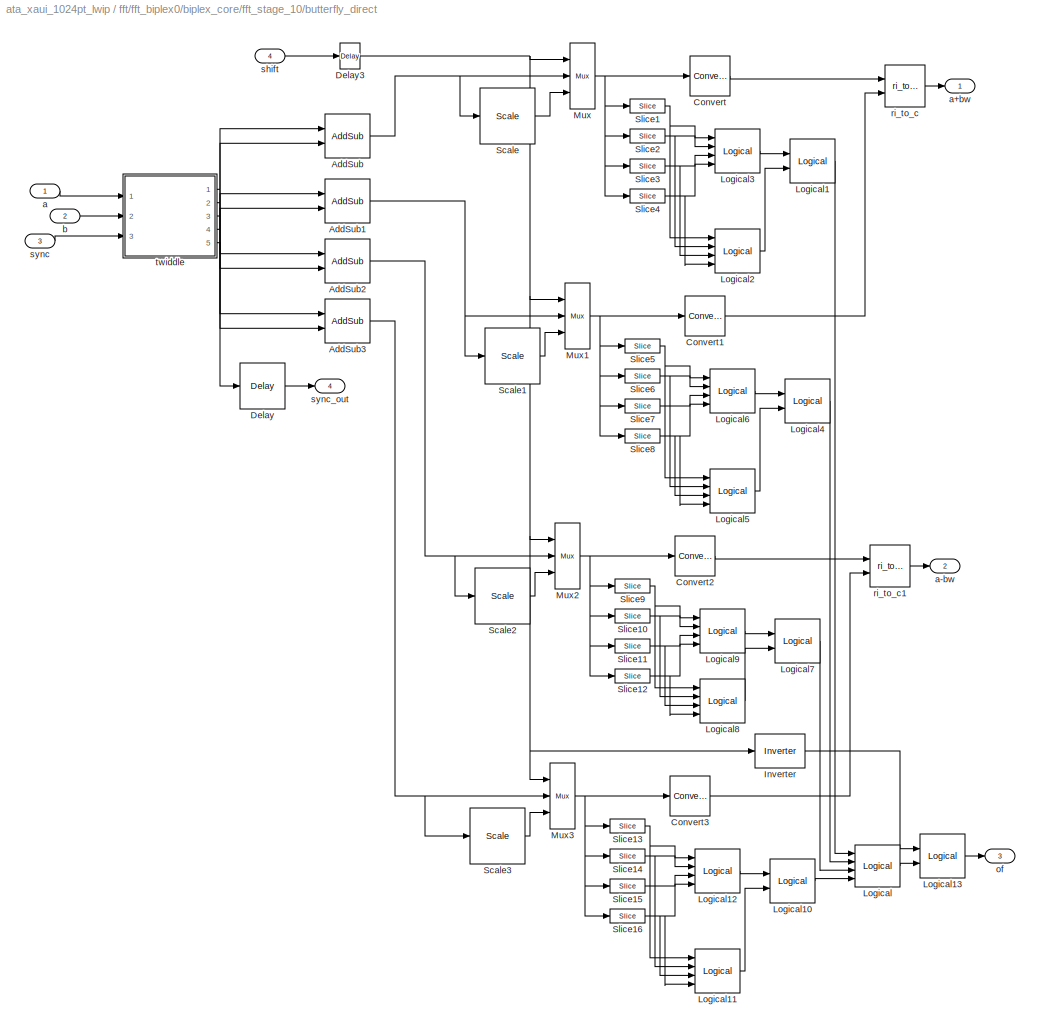
BLOCK [SubSystem] fft/fft_biplex0/biplex_core/fft_stage_10/butterfly_direct
  AncestorBlock = casper_library/FFTs/butterfly_direct
  AttributesFormatString = FFTSize=10, Coeffs=[0    1    2    3    4    5    6    7    8    9   10   11   12   13   14   15   16   17   18   19   20   21   22   23   24   25   26   27   28   29   30   31   32   33   34   35   36   37   38   39   40   41   42   43   44   45   46   47   48   49   50   51   52   53   54   55   56   57   58   59   60   61   62   63   64   65   66   67   68   69   70   71   72   73   74   75   7...<+2206ch>
  MaskCallbackString = |||||||||
  MaskEnableString = on,on,on,on,on,on,on,on,on,on
  MaskIconFrame = on
  MaskIconOpaque = on
  MaskIconRotate = none
  MaskIconUnits = autoscale
  MaskInitialization = butterfly_direct_init(gcb,...\n              'FFTSize', FFTSize,...\n              'Coeffs', Coeffs,...\n              'StepPeriod', StepPeriod,...\n              'BitWidth', BitWidth,...\n              'add_latency', add_latency,...\n              'mult_latency', mult_latency,...\n              'bram_latency', bram_latency,...\n              'use_bram',use_bram,...\n              'quantization',q...<+52ch>  <repeated x9 — deduplicated; at blocks: butterfly_direct>
  MaskPromptString = Size of FFT: (2^?)|Coefficients: (0 to 2^(FFTSize-1)-1)|Coefficient Step Period: (2^?)|Output Bitwidth:|Add Latency|Mult Latency|BRAM Latency|Store Coefficients in BRAM|Quantization Behavior|Overflow Behavior  <repeated x9 — deduplicated; at blocks: butterfly_direct>
  MaskSelfModifiable = on
  MaskStyleString = edit,edit,edit,edit,edit,edit,edit,edit,popup(Truncate|Round  (unbiased: +/- Inf)|Round  (unbiased: Even Values)),popup(Wrap|Saturate|Error)
  MaskTabNameString = ,,,,,,,,,
  MaskToolTipString = on,on,on,on,on,on,on,on,on,on
  MaskTunableValueString = on,on,on,on,on,on,on,on,on,on
  MaskType = butterfly_direct
  MaskValueString = 10|getfield( getfield( get_param( gcb,'UserData'), 'parameters'),'Coeffs')|0|18|3|4|3|0|Truncate|Wrap
  MaskVarAliasString = ,,,,,,,,,
  MaskVariables = FFTSize=@1;Coeffs=@2;StepPeriod=@3;BitWidth=@4;add_latency=@5;mult_latency=@6;bram_latency=@7;use_bram=@8;quantization=&9;overflow=&10;
  MaskVisibilityString = on,on,on,on,on,on,on,on,on,on
  MinAlgLoopOccurrences = off
  Ports = [4, 4]
  RTWSystemCode = Auto
  TreatAsAtomicUnit = off
  UserData = DataTag13
  UserDataPersistent = on
BLOCK [Reference] fft/fft_biplex0/biplex_core/fft_stage_10/butterfly_direct/AddSub  REF=xbsIndex_r3/AddSub
  Ports = [2, 1]
  SourceBlock = xbsIndex_r3/AddSub
  SourceType = Xilinx Adder/Subtractor
  arith_type = Unsigned
  bin_pt = 2
  dbl_ovrd = off
  en = off
  explicit_period = off
  gen_core = on
  latency = add_latency
  mode = Addition
  n_bits = 8
  overflow = Wrap
  period = 1
  pipeline = on
  precision = Full
  quantization = Truncate
  show_param = on
  use_carryin = off
  use_carryout = off
  use_core = on
  use_rpm = on
  xl_area = [0, 0, 0, 0, 0, 0, 0]
  xl_use_area = off
BLOCK [Reference] fft/fft_biplex0/biplex_core/fft_stage_10/butterfly_direct/AddSub1  REF=xbsIndex_r3/AddSub
  Ports = [2, 1]
  SourceBlock = xbsIndex_r3/AddSub
  SourceType = Xilinx Adder/Subtractor
  arith_type = Unsigned
  bin_pt = 2
  dbl_ovrd = off
  en = off
  explicit_period = off
  gen_core = on
  latency = add_latency
  mode = Addition
  n_bits = 8
  overflow = Wrap
  period = 1
  pipeline = on
  precision = Full
  quantization = Truncate
  show_param = on
  use_carryin = off
  use_carryout = off
  use_core = on
  use_rpm = on
  xl_area = [0, 0, 0, 0, 0, 0, 0]
  xl_use_area = off
BLOCK [Reference] fft/fft_biplex0/biplex_core/fft_stage_10/butterfly_direct/AddSub2  REF=xbsIndex_r3/AddSub
  Ports = [2, 1]
  SourceBlock = xbsIndex_r3/AddSub
  SourceType = Xilinx Adder/Subtractor
  arith_type = Unsigned
  bin_pt = 2
  dbl_ovrd = off
  en = off
  explicit_period = off
  gen_core = on
  latency = add_latency
  mode = Subtraction
  n_bits = 8
  overflow = Wrap
  period = 1
  pipeline = on
  precision = Full
  quantization = Truncate
  show_param = on
  use_carryin = off
  use_carryout = off
  use_core = on
  use_rpm = on
  xl_area = [0, 0, 0, 0, 0, 0, 0]
  xl_use_area = off
BLOCK [Reference] fft/fft_biplex0/biplex_core/fft_stage_10/butterfly_direct/AddSub3  REF=xbsIndex_r3/AddSub
  Ports = [2, 1]
  SourceBlock = xbsIndex_r3/AddSub
  SourceType = Xilinx Adder/Subtractor
  arith_type = Unsigned
  bin_pt = 2
  dbl_ovrd = off
  en = off
  explicit_period = off
  gen_core = on
  latency = add_latency
  mode = Subtraction
  n_bits = 8
  overflow = Wrap
  period = 1
  pipeline = on
  precision = Full
  quantization = Truncate
  show_param = on
  use_carryin = off
  use_carryout = off
  use_core = on
  use_rpm = on
  xl_area = [0, 0, 0, 0, 0, 0, 0]
  xl_use_area = off
BLOCK [Reference] fft/fft_biplex0/biplex_core/fft_stage_10/butterfly_direct/Convert  REF=xbsIndex_r3/Convert
  Ports = [1, 1]
  SourceBlock = xbsIndex_r3/Convert
  SourceType = Xilinx Converter Block
  arith_type = Signed  (2's comp)
  bin_pt = BitWidth-1
  dbl_ovrd = off
  explicit_period = off
  inserted_by_tool = off
  latency = add_latency
  n_bits = BitWidth
  overflow = Wrap
  period = 1
  pipeline = off
  quantization = Truncate
  show_param = off
  xl_area = [0, 0, 0, 0, 0, 0, 0]
  xl_use_area = off
BLOCK [Reference] fft/fft_biplex0/biplex_core/fft_stage_10/butterfly_direct/Convert1  REF=xbsIndex_r3/Convert
  Ports = [1, 1]
  SourceBlock = xbsIndex_r3/Convert
  SourceType = Xilinx Converter Block
  arith_type = Signed  (2's comp)
  bin_pt = BitWidth-1
  dbl_ovrd = off
  explicit_period = off
  inserted_by_tool = off
  latency = add_latency
  n_bits = BitWidth
  overflow = Wrap
  period = 1
  pipeline = off
  quantization = Truncate
  show_param = off
  xl_area = [0, 0, 0, 0, 0, 0, 0]
  xl_use_area = off
BLOCK [Reference] fft/fft_biplex0/biplex_core/fft_stage_10/butterfly_direct/Convert2  REF=xbsIndex_r3/Convert
  Ports = [1, 1]
  SourceBlock = xbsIndex_r3/Convert
  SourceType = Xilinx Converter Block
  arith_type = Signed  (2's comp)
  bin_pt = BitWidth-1
  dbl_ovrd = off
  explicit_period = off
  inserted_by_tool = off
  latency = add_latency
  n_bits = BitWidth
  overflow = Wrap
  period = 1
  pipeline = off
  quantization = Truncate
  show_param = off
  xl_area = [0, 0, 0, 0, 0, 0, 0]
  xl_use_area = off
BLOCK [Reference] fft/fft_biplex0/biplex_core/fft_stage_10/butterfly_direct/Convert3  REF=xbsIndex_r3/Convert
  Ports = [1, 1]
  SourceBlock = xbsIndex_r3/Convert
  SourceType = Xilinx Converter Block
  arith_type = Signed  (2's comp)
  bin_pt = BitWidth-1
  dbl_ovrd = off
  explicit_period = off
  inserted_by_tool = off
  latency = add_latency
  n_bits = BitWidth
  overflow = Wrap
  period = 1
  pipeline = off
  quantization = Truncate
  show_param = off
  xl_area = [0, 0, 0, 0, 0, 0, 0]
  xl_use_area = off
BLOCK [Reference] fft/fft_biplex0/biplex_core/fft_stage_10/butterfly_direct/Delay  REF=xbsIndex_r3/Delay
  Ports = [1, 1]
  SourceBlock = xbsIndex_r3/Delay
  SourceType = Xilinx Delay Block
  accept_only_valid = off
  dbl_ovrd = off
  en = off
  explicit_period = off
  init_zero = on
  latency = 2 * add_latency + 1
  period = 1
  reg_retiming = off
  show_param = off
  xl_area = [0, 0, 0, 0, 0, 0, 0]
  xl_use_area = off
BLOCK [Reference] fft/fft_biplex0/biplex_core/fft_stage_10/butterfly_direct/Delay3  REF=xbsIndex_r3/Delay
  Ports = [1, 1]
  SourceBlock = xbsIndex_r3/Delay
  SourceType = Xilinx Delay Block
  accept_only_valid = off
  dbl_ovrd = off
  en = off
  explicit_period = off
  init_zero = on
  latency = 1
  period = 1
  reg_retiming = off
  show_param = off
  xl_area = [0, 0, 0, 0, 0, 0, 0]
  xl_use_area = off
BLOCK [Reference] fft/fft_biplex0/biplex_core/fft_stage_10/butterfly_direct/Inverter  REF=xbsIndex_r3/Inverter
  Ports = [1, 1]
  SourceBlock = xbsIndex_r3/Inverter
  SourceType = Xilinx Inverter
  dbl_ovrd = off
  en = off
  explicit_period = off
  latency = 0
  period = 1
  show_param = off
  xl_area = [0, 0, 0, 0, 0, 0, 0]
  xl_use_area = off
BLOCK [Reference] fft/fft_biplex0/biplex_core/fft_stage_10/butterfly_direct/Logical  REF=xbsIndex_r3/Logical
  Ports = [4, 1]
  SourceBlock = xbsIndex_r3/Logical
  SourceType = Xilinx Logical Block
  align_bp = on
  arith_type = Unsigned
  bin_pt = 2
  dbl_ovrd = off
  en = off
  explicit_period = off
  inputs = 4
  latency = 1
  logical_function = OR
  n_bits = 8
  period = 1
  precision = Full
  show_param = off
  xl_area = [0, 0, 0, 0, 0, 0, 0]
  xl_use_area = off
BLOCK [Reference] fft/fft_biplex0/biplex_core/fft_stage_10/butterfly_direct/Logical1  REF=xbsIndex_r3/Logical
  Ports = [2, 1]
  SourceBlock = xbsIndex_r3/Logical
  SourceType = Xilinx Logical Block
  align_bp = off
  arith_type = Unsigned
  bin_pt = 2
  dbl_ovrd = off
  en = off
  explicit_period = off
  inputs = 2
  latency = 1
  logical_function = OR
  n_bits = 8
  period = 1
  precision = Full
  show_param = off
  xl_area = [0, 0, 0, 0, 0, 0, 0]
  xl_use_area = off
BLOCK [Reference] fft/fft_biplex0/biplex_core/fft_stage_10/butterfly_direct/Logical10  REF=xbsIndex_r3/Logical
  Ports = [2, 1]
  SourceBlock = xbsIndex_r3/Logical
  SourceType = Xilinx Logical Block
  align_bp = off
  arith_type = Unsigned
  bin_pt = 2
  dbl_ovrd = off
  en = off
  explicit_period = off
  inputs = 2
  latency = 1
  logical_function = OR
  n_bits = 8
  period = 1
  precision = Full
  show_param = off
  xl_area = [0, 0, 0, 0, 0, 0, 0]
  xl_use_area = off
BLOCK [Reference] fft/fft_biplex0/biplex_core/fft_stage_10/butterfly_direct/Logical11  REF=xbsIndex_r3/Logical
  Ports = [4, 1]
  SourceBlock = xbsIndex_r3/Logical
  SourceType = Xilinx Logical Block
  align_bp = off
  arith_type = Unsigned
  bin_pt = 2
  dbl_ovrd = off
  en = off
  explicit_period = off
  inputs = 4
  latency = 1
  logical_function = NOR
  n_bits = 8
  period = 1
  precision = Full
  show_param = off
  xl_area = [0, 0, 0, 0, 0, 0, 0]
  xl_use_area = off
BLOCK [Reference] fft/fft_biplex0/biplex_core/fft_stage_10/butterfly_direct/Logical12  REF=xbsIndex_r3/Logical
  Ports = [4, 1]
  SourceBlock = xbsIndex_r3/Logical
  SourceType = Xilinx Logical Block
  align_bp = off
  arith_type = Unsigned
  bin_pt = 2
  dbl_ovrd = off
  en = off
  explicit_period = off
  inputs = 4
  latency = 1
  logical_function = AND
  n_bits = 8
  period = 1
  precision = Full
  show_param = off
  xl_area = [0, 0, 0, 0, 0, 0, 0]
  xl_use_area = off
BLOCK [Reference] fft/fft_biplex0/biplex_core/fft_stage_10/butterfly_direct/Logical13  REF=xbsIndex_r3/Logical
  Ports = [2, 1]
  SourceBlock = xbsIndex_r3/Logical
  SourceType = Xilinx Logical Block
  align_bp = off
  arith_type = Unsigned
  bin_pt = 2
  dbl_ovrd = off
  en = off
  explicit_period = off
  inputs = 2
  latency = 1
  logical_function = AND
  n_bits = 8
  period = 1
  precision = Full
  show_param = off
  xl_area = [0, 0, 0, 0, 0, 0, 0]
  xl_use_area = off
BLOCK [Reference] fft/fft_biplex0/biplex_core/fft_stage_10/butterfly_direct/Logical2  REF=xbsIndex_r3/Logical
  Ports = [4, 1]
  SourceBlock = xbsIndex_r3/Logical
  SourceType = Xilinx Logical Block
  align_bp = off
  arith_type = Unsigned
  bin_pt = 2
  dbl_ovrd = off
  en = off
  explicit_period = off
  inputs = 4
  latency = 1
  logical_function = NOR
  n_bits = 8
  period = 1
  precision = Full
  show_param = off
  xl_area = [0, 0, 0, 0, 0, 0, 0]
  xl_use_area = off
BLOCK [Reference] fft/fft_biplex0/biplex_core/fft_stage_10/butterfly_direct/Logical3  REF=xbsIndex_r3/Logical
  Ports = [4, 1]
  SourceBlock = xbsIndex_r3/Logical
  SourceType = Xilinx Logical Block
  align_bp = off
  arith_type = Unsigned
  bin_pt = 2
  dbl_ovrd = off
  en = off
  explicit_period = off
  inputs = 4
  latency = 1
  logical_function = AND
  n_bits = 8
  period = 1
  precision = Full
  show_param = off
  xl_area = [0, 0, 0, 0, 0, 0, 0]
  xl_use_area = off
BLOCK [Reference] fft/fft_biplex0/biplex_core/fft_stage_10/butterfly_direct/Logical4  REF=xbsIndex_r3/Logical
  Ports = [2, 1]
  SourceBlock = xbsIndex_r3/Logical
  SourceType = Xilinx Logical Block
  align_bp = off
  arith_type = Unsigned
  bin_pt = 2
  dbl_ovrd = off
  en = off
  explicit_period = off
  inputs = 2
  latency = 1
  logical_function = OR
  n_bits = 8
  period = 1
  precision = Full
  show_param = off
  xl_area = [0, 0, 0, 0, 0, 0, 0]
  xl_use_area = off
BLOCK [Reference] fft/fft_biplex0/biplex_core/fft_stage_10/butterfly_direct/Logical5  REF=xbsIndex_r3/Logical
  Ports = [4, 1]
  SourceBlock = xbsIndex_r3/Logical
  SourceType = Xilinx Logical Block
  align_bp = off
  arith_type = Unsigned
  bin_pt = 2
  dbl_ovrd = off
  en = off
  explicit_period = off
  inputs = 4
  latency = 1
  logical_function = NOR
  n_bits = 8
  period = 1
  precision = Full
  show_param = off
  xl_area = [0, 0, 0, 0, 0, 0, 0]
  xl_use_area = off
BLOCK [Reference] fft/fft_biplex0/biplex_core/fft_stage_10/butterfly_direct/Logical6  REF=xbsIndex_r3/Logical
  Ports = [4, 1]
  SourceBlock = xbsIndex_r3/Logical
  SourceType = Xilinx Logical Block
  align_bp = off
  arith_type = Unsigned
  bin_pt = 2
  dbl_ovrd = off
  en = off
  explicit_period = off
  inputs = 4
  latency = 1
  logical_function = AND
  n_bits = 8
  period = 1
  precision = Full
  show_param = off
  xl_area = [0, 0, 0, 0, 0, 0, 0]
  xl_use_area = off
BLOCK [Reference] fft/fft_biplex0/biplex_core/fft_stage_10/butterfly_direct/Logical7  REF=xbsIndex_r3/Logical
  Ports = [2, 1]
  SourceBlock = xbsIndex_r3/Logical
  SourceType = Xilinx Logical Block
  align_bp = off
  arith_type = Unsigned
  bin_pt = 2
  dbl_ovrd = off
  en = off
  explicit_period = off
  inputs = 2
  latency = 1
  logical_function = OR
  n_bits = 8
  period = 1
  precision = Full
  show_param = off
  xl_area = [0, 0, 0, 0, 0, 0, 0]
  xl_use_area = off
BLOCK [Reference] fft/fft_biplex0/biplex_core/fft_stage_10/butterfly_direct/Logical8  REF=xbsIndex_r3/Logical
  Ports = [4, 1]
  SourceBlock = xbsIndex_r3/Logical
  SourceType = Xilinx Logical Block
  align_bp = off
  arith_type = Unsigned
  bin_pt = 2
  dbl_ovrd = off
  en = off
  explicit_period = off
  inputs = 4
  latency = 1
  logical_function = NOR
  n_bits = 8
  period = 1
  precision = Full
  show_param = off
  xl_area = [0, 0, 0, 0, 0, 0, 0]
  xl_use_area = off
BLOCK [Reference] fft/fft_biplex0/biplex_core/fft_stage_10/butterfly_direct/Logical9  REF=xbsIndex_r3/Logical
  Ports = [4, 1]
  SourceBlock = xbsIndex_r3/Logical
  SourceType = Xilinx Logical Block
  align_bp = off
  arith_type = Unsigned
  bin_pt = 2
  dbl_ovrd = off
  en = off
  explicit_period = off
  inputs = 4
  latency = 1
  logical_function = AND
  n_bits = 8
  period = 1
  precision = Full
  show_param = off
  xl_area = [0, 0, 0, 0, 0, 0, 0]
  xl_use_area = off
BLOCK [Reference] fft/fft_biplex0/biplex_core/fft_stage_10/butterfly_direct/Mux  REF=xbsIndex_r3/Mux
  Ports = [3, 1]
  SourceBlock = xbsIndex_r3/Mux
  SourceType = Xilinx Multiplexer Block
  arith_type = Signed  (2's comp)
  bin_pt = 2
  dbl_ovrd = off
  en = off
  explicit_period = off
  gen_core = off
  inputs = 2
  latency = 1
  mux_type = off
  n_bits = 8
  overflow = Wrap
  period = 1
  precision = Full
  quantization = Truncate
  show_param = off
  use_rpm = off
  xl_area = [0, 0, 0, 0, 0, 0, 0]
  xl_use_area = off
BLOCK [Reference] fft/fft_biplex0/biplex_core/fft_stage_10/butterfly_direct/Mux1  REF=xbsIndex_r3/Mux
  Ports = [3, 1]
  SourceBlock = xbsIndex_r3/Mux
  SourceType = Xilinx Multiplexer Block
  arith_type = Signed  (2's comp)
  bin_pt = 2
  dbl_ovrd = off
  en = off
  explicit_period = off
  gen_core = off
  inputs = 2
  latency = 1
  mux_type = off
  n_bits = 8
  overflow = Wrap
  period = 1
  precision = Full
  quantization = Truncate
  show_param = off
  use_rpm = off
  xl_area = [0, 0, 0, 0, 0, 0, 0]
  xl_use_area = off
BLOCK [Reference] fft/fft_biplex0/biplex_core/fft_stage_10/butterfly_direct/Mux2  REF=xbsIndex_r3/Mux
  Ports = [3, 1]
  SourceBlock = xbsIndex_r3/Mux
  SourceType = Xilinx Multiplexer Block
  arith_type = Signed  (2's comp)
  bin_pt = 2
  dbl_ovrd = off
  en = off
  explicit_period = off
  gen_core = off
  inputs = 2
  latency = 1
  mux_type = off
  n_bits = 8
  overflow = Wrap
  period = 1
  precision = Full
  quantization = Truncate
  show_param = off
  use_rpm = off
  xl_area = [0, 0, 0, 0, 0, 0, 0]
  xl_use_area = off
BLOCK [Reference] fft/fft_biplex0/biplex_core/fft_stage_10/butterfly_direct/Mux3  REF=xbsIndex_r3/Mux
  Ports = [3, 1]
  SourceBlock = xbsIndex_r3/Mux
  SourceType = Xilinx Multiplexer Block
  arith_type = Signed  (2's comp)
  bin_pt = 2
  dbl_ovrd = off
  en = off
  explicit_period = off
  gen_core = off
  inputs = 2
  latency = 1
  mux_type = off
  n_bits = 8
  overflow = Wrap
  period = 1
  precision = Full
  quantization = Truncate
  show_param = off
  use_rpm = off
  xl_area = [0, 0, 0, 0, 0, 0, 0]
  xl_use_area = off
BLOCK [Reference] fft/fft_biplex0/biplex_core/fft_stage_10/butterfly_direct/Scale  REF=xbsIndex_r3/Scale
  Ports = [1, 1]
  SourceBlock = xbsIndex_r3/Scale
  SourceType = Xilinx Scaling Block
  dbl_ovrd = off
  explicit_period = off
  period = 1
  scale_factor = -1
BLOCK [Reference] fft/fft_biplex0/biplex_core/fft_stage_10/butterfly_direct/Scale1  REF=xbsIndex_r3/Scale
  Ports = [1, 1]
  SourceBlock = xbsIndex_r3/Scale
  SourceType = Xilinx Scaling Block
  dbl_ovrd = off
  explicit_period = off
  period = 1
  scale_factor = -1
BLOCK [Reference] fft/fft_biplex0/biplex_core/fft_stage_10/butterfly_direct/Scale2  REF=xbsIndex_r3/Scale
  Ports = [1, 1]
  SourceBlock = xbsIndex_r3/Scale
  SourceType = Xilinx Scaling Block
  dbl_ovrd = off
  explicit_period = off
  period = 1
  scale_factor = -1
BLOCK [Reference] fft/fft_biplex0/biplex_core/fft_stage_10/butterfly_direct/Scale3  REF=xbsIndex_r3/Scale
  Ports = [1, 1]
  SourceBlock = xbsIndex_r3/Scale
  SourceType = Xilinx Scaling Block
  dbl_ovrd = off
  explicit_period = off
  period = 1
  scale_factor = -1
BLOCK [Reference] fft/fft_biplex0/biplex_core/fft_stage_10/butterfly_direct/Slice1  REF=xbsIndex_r3/Slice
  Ports = [1, 1]
  SourceBlock = xbsIndex_r3/Slice
  SourceType = Xilinx Slice Block
  base0 = LSB of Input
  base1 = MSB of Input
  bit0 = 0
  bit1 = 0
  boolean_output = on
  dbl_ovrd = off
  explicit_period = off
  mode = Upper Bit Location + Width
  nbits = 1
  period = 1
BLOCK [Reference] fft/fft_biplex0/biplex_core/fft_stage_10/butterfly_direct/Slice10  REF=xbsIndex_r3/Slice
  Ports = [1, 1]
  SourceBlock = xbsIndex_r3/Slice
  SourceType = Xilinx Slice Block
  base0 = LSB of Input
  base1 = MSB of Input
  bit0 = 0
  bit1 = -1
  boolean_output = on
  dbl_ovrd = off
  explicit_period = off
  mode = Upper Bit Location + Width
  nbits = 1
  period = 1
BLOCK [Reference] fft/fft_biplex0/biplex_core/fft_stage_10/butterfly_direct/Slice11  REF=xbsIndex_r3/Slice
  Ports = [1, 1]
  SourceBlock = xbsIndex_r3/Slice
  SourceType = Xilinx Slice Block
  base0 = LSB of Input
  base1 = MSB of Input
  bit0 = 0
  bit1 = -2
  boolean_output = on
  dbl_ovrd = off
  explicit_period = off
  mode = Upper Bit Location + Width
  nbits = 1
  period = 1
BLOCK [Reference] fft/fft_biplex0/biplex_core/fft_stage_10/butterfly_direct/Slice12  REF=xbsIndex_r3/Slice
  Ports = [1, 1]
  SourceBlock = xbsIndex_r3/Slice
  SourceType = Xilinx Slice Block
  base0 = LSB of Input
  base1 = MSB of Input
  bit0 = 0
  bit1 = -3
  boolean_output = on
  dbl_ovrd = off
  explicit_period = off
  mode = Upper Bit Location + Width
  nbits = 1
  period = 1
BLOCK [Reference] fft/fft_biplex0/biplex_core/fft_stage_10/butterfly_direct/Slice13  REF=xbsIndex_r3/Slice
  Ports = [1, 1]
  SourceBlock = xbsIndex_r3/Slice
  SourceType = Xilinx Slice Block
  base0 = LSB of Input
  base1 = MSB of Input
  bit0 = 0
  bit1 = 0
  boolean_output = on
  dbl_ovrd = off
  explicit_period = off
  mode = Upper Bit Location + Width
  nbits = 1
  period = 1
BLOCK [Reference] fft/fft_biplex0/biplex_core/fft_stage_10/butterfly_direct/Slice14  REF=xbsIndex_r3/Slice
  Ports = [1, 1]
  SourceBlock = xbsIndex_r3/Slice
  SourceType = Xilinx Slice Block
  base0 = LSB of Input
  base1 = MSB of Input
  bit0 = 0
  bit1 = -1
  boolean_output = on
  dbl_ovrd = off
  explicit_period = off
  mode = Upper Bit Location + Width
  nbits = 1
  period = 1
BLOCK [Reference] fft/fft_biplex0/biplex_core/fft_stage_10/butterfly_direct/Slice15  REF=xbsIndex_r3/Slice
  Ports = [1, 1]
  SourceBlock = xbsIndex_r3/Slice
  SourceType = Xilinx Slice Block
  base0 = LSB of Input
  base1 = MSB of Input
  bit0 = 0
  bit1 = -2
  boolean_output = on
  dbl_ovrd = off
  explicit_period = off
  mode = Upper Bit Location + Width
  nbits = 1
  period = 1
BLOCK [Reference] fft/fft_biplex0/biplex_core/fft_stage_10/butterfly_direct/Slice16  REF=xbsIndex_r3/Slice
  Ports = [1, 1]
  SourceBlock = xbsIndex_r3/Slice
  SourceType = Xilinx Slice Block
  base0 = LSB of Input
  base1 = MSB of Input
  bit0 = 0
  bit1 = -3
  boolean_output = on
  dbl_ovrd = off
  explicit_period = off
  mode = Upper Bit Location + Width
  nbits = 1
  period = 1
BLOCK [Reference] fft/fft_biplex0/biplex_core/fft_stage_10/butterfly_direct/Slice2  REF=xbsIndex_r3/Slice
  Ports = [1, 1]
  SourceBlock = xbsIndex_r3/Slice
  SourceType = Xilinx Slice Block
  base0 = LSB of Input
  base1 = MSB of Input
  bit0 = 0
  bit1 = -1
  boolean_output = on
  dbl_ovrd = off
  explicit_period = off
  mode = Upper Bit Location + Width
  nbits = 1
  period = 1
BLOCK [Reference] fft/fft_biplex0/biplex_core/fft_stage_10/butterfly_direct/Slice3  REF=xbsIndex_r3/Slice
  Ports = [1, 1]
  SourceBlock = xbsIndex_r3/Slice
  SourceType = Xilinx Slice Block
  base0 = LSB of Input
  base1 = MSB of Input
  bit0 = 0
  bit1 = -2
  boolean_output = on
  dbl_ovrd = off
  explicit_period = off
  mode = Upper Bit Location + Width
  nbits = 1
  period = 1
BLOCK [Reference] fft/fft_biplex0/biplex_core/fft_stage_10/butterfly_direct/Slice4  REF=xbsIndex_r3/Slice
  Ports = [1, 1]
  SourceBlock = xbsIndex_r3/Slice
  SourceType = Xilinx Slice Block
  base0 = LSB of Input
  base1 = MSB of Input
  bit0 = 0
  bit1 = -3
  boolean_output = on
  dbl_ovrd = off
  explicit_period = off
  mode = Upper Bit Location + Width
  nbits = 1
  period = 1
BLOCK [Reference] fft/fft_biplex0/biplex_core/fft_stage_10/butterfly_direct/Slice5  REF=xbsIndex_r3/Slice
  Ports = [1, 1]
  SourceBlock = xbsIndex_r3/Slice
  SourceType = Xilinx Slice Block
  base0 = LSB of Input
  base1 = MSB of Input
  bit0 = 0
  bit1 = 0
  boolean_output = on
  dbl_ovrd = off
  explicit_period = off
  mode = Upper Bit Location + Width
  nbits = 1
  period = 1
BLOCK [Reference] fft/fft_biplex0/biplex_core/fft_stage_10/butterfly_direct/Slice6  REF=xbsIndex_r3/Slice
  Ports = [1, 1]
  SourceBlock = xbsIndex_r3/Slice
  SourceType = Xilinx Slice Block
  base0 = LSB of Input
  base1 = MSB of Input
  bit0 = 0
  bit1 = -1
  boolean_output = on
  dbl_ovrd = off
  explicit_period = off
  mode = Upper Bit Location + Width
  nbits = 1
  period = 1
BLOCK [Reference] fft/fft_biplex0/biplex_core/fft_stage_10/butterfly_direct/Slice7  REF=xbsIndex_r3/Slice
  Ports = [1, 1]
  SourceBlock = xbsIndex_r3/Slice
  SourceType = Xilinx Slice Block
  base0 = LSB of Input
  base1 = MSB of Input
  bit0 = 0
  bit1 = -2
  boolean_output = on
  dbl_ovrd = off
  explicit_period = off
  mode = Upper Bit Location + Width
  nbits = 1
  period = 1
BLOCK [Reference] fft/fft_biplex0/biplex_core/fft_stage_10/butterfly_direct/Slice8  REF=xbsIndex_r3/Slice
  Ports = [1, 1]
  SourceBlock = xbsIndex_r3/Slice
  SourceType = Xilinx Slice Block
  base0 = LSB of Input
  base1 = MSB of Input
  bit0 = 0
  bit1 = -3
  boolean_output = on
  dbl_ovrd = off
  explicit_period = off
  mode = Upper Bit Location + Width
  nbits = 1
  period = 1
BLOCK [Reference] fft/fft_biplex0/biplex_core/fft_stage_10/butterfly_direct/Slice9  REF=xbsIndex_r3/Slice
  Ports = [1, 1]
  SourceBlock = xbsIndex_r3/Slice
  SourceType = Xilinx Slice Block
  base0 = LSB of Input
  base1 = MSB of Input
  bit0 = 0
  bit1 = 0
  boolean_output = on
  dbl_ovrd = off
  explicit_period = off
  mode = Upper Bit Location + Width
  nbits = 1
  period = 1
BLOCK [Inport] fft/fft_biplex0/biplex_core/fft_stage_10/butterfly_direct/a
  IconDisplay = Port number
  LatchInput = off
  Port = 1
BLOCK [Outport] fft/fft_biplex0/biplex_core/fft_stage_10/butterfly_direct/a+bw
  BusOutputAsStruct = off
  IconDisplay = Port number
BLOCK [Outport] fft/fft_biplex0/biplex_core/fft_stage_10/butterfly_direct/a-bw
  BusOutputAsStruct = off
  IconDisplay = Port number
  Port = 2
BLOCK [Inport] fft/fft_biplex0/biplex_core/fft_stage_10/butterfly_direct/b
  IconDisplay = Port number
  LatchInput = off
  Port = 2
BLOCK [Outport] fft/fft_biplex0/biplex_core/fft_stage_10/butterfly_direct/of
  BusOutputAsStruct = off
  IconDisplay = Port number
  Port = 3
BLOCK [Reference] fft/fft_biplex0/biplex_core/fft_stage_10/butterfly_direct/ri_to_c  REF=casper_library/Misc/ri_to_c  (lib defined in mdl_138b2fc3435f, mdl_4ed325b712b3, +2 more)
  Ports = [2, 1]
  ShowPortLabels = on
  SourceBlock = casper_library/Misc/ri_to_c
  SourceType = ri_to_c
  UserData = DataTag14
  UserDataPersistent = on
BLOCK [Reference] fft/fft_biplex0/biplex_core/fft_stage_10/butterfly_direct/ri_to_c1  REF=casper_library/Misc/ri_to_c  (lib defined in mdl_138b2fc3435f, mdl_4ed325b712b3, +2 more)
  Ports = [2, 1]
  ShowPortLabels = on
  SourceBlock = casper_library/Misc/ri_to_c
  SourceType = ri_to_c
  UserData = DataTag15
  UserDataPersistent = on
BLOCK [Inport] fft/fft_biplex0/biplex_core/fft_stage_10/butterfly_direct/shift
  IconDisplay = Port number
  LatchInput = off
  Port = 4
BLOCK [Inport] fft/fft_biplex0/biplex_core/fft_stage_10/butterfly_direct/sync
  IconDisplay = Port number
  LatchInput = off
  Port = 3
BLOCK [Outport] fft/fft_biplex0/biplex_core/fft_stage_10/butterfly_direct/sync_out
  BusOutputAsStruct = off
  IconDisplay = Port number
  Port = 4
BLOCK [SubSystem] fft/fft_biplex0/biplex_core/fft_stage_10/butterfly_direct/twiddle
  AttributesFormatString = %<BlockChoice>
  BlockChoice = twiddle_general_3mult
  MemberBlocks = twiddle_coeff_0,twiddle_coeff_1,twiddle_general_3mult,twiddle_general_4mult,twiddle_stage_2
  MinAlgLoopOccurrences = off
  Ports = [3, 5]
  RTWSystemCode = Auto
  TemplateBlock = casper_library/FFTs/Twiddle/twiddle
  TreatAsAtomicUnit = off
BLOCK [Inport] fft/fft_biplex0/biplex_core/fft_stage_10/butterfly_direct/twiddle/a
  IconDisplay = Port number
  LatchInput = off
  Port = 1
BLOCK [Outport] fft/fft_biplex0/biplex_core/fft_stage_10/butterfly_direct/twiddle/a_im
  BusOutputAsStruct = off
  IconDisplay = Port number
  Port = 2
BLOCK [Outport] fft/fft_biplex0/biplex_core/fft_stage_10/butterfly_direct/twiddle/a_re
  BusOutputAsStruct = off
  IconDisplay = Port number
BLOCK [Inport] fft/fft_biplex0/biplex_core/fft_stage_10/butterfly_direct/twiddle/b
  IconDisplay = Port number
  LatchInput = off
  Port = 2
BLOCK [Outport] fft/fft_biplex0/biplex_core/fft_stage_10/butterfly_direct/twiddle/bw_im
  BusOutputAsStruct = off
  IconDisplay = Port number
  Port = 4
BLOCK [Outport] fft/fft_biplex0/biplex_core/fft_stage_10/butterfly_direct/twiddle/bw_re
  BusOutputAsStruct = off
  IconDisplay = Port number
  Port = 3
BLOCK [Inport] fft/fft_biplex0/biplex_core/fft_stage_10/butterfly_direct/twiddle/sync
  IconDisplay = Port number
  LatchInput = off
  Port = 3
BLOCK [Outport] fft/fft_biplex0/biplex_core/fft_stage_10/butterfly_direct/twiddle/sync_out
  BusOutputAsStruct = off
  IconDisplay = Port number
  Port = 5
BLOCK [Reference] fft/fft_biplex0/biplex_core/fft_stage_10/butterfly_direct/twiddle/twiddle_general_3mult  REF=casper_library/FFTs/Twiddle/twiddle_general_3mult  (lib defined in mdl_138b2fc3435f, mdl_4ed325b712b3, +2 more)
  BitWidth = 18
  Coeffs = [exp(-2*pi*1j*(bit_rev(Coeffs, FFTSize-1))/2^FFTSize)]
  Ports = [3, 5]
  ShowPortLabels = on
  SourceBlock = casper_library/FFTs/Twiddle/twiddle_general_3mult
  StepPeriod = 0
  add_latency = 3
  bram_latency = 3
  mult_latency = 4
BLOCK [SubSystem] fft/fft_biplex0/biplex_core/fft_stage_10/delay_b
  AttributesFormatString = %<BlockChoice>
  BlockChoice = delay_slr
  MemberBlocks = delay_bram,delay_slr
  MinAlgLoopOccurrences = off
  Ports = [1, 1]
  RTWSystemCode = Auto
  TemplateBlock = casper_library/Delays/delay
  TreatAsAtomicUnit = off
BLOCK [Inport] fft/fft_biplex0/biplex_core/fft_stage_10/delay_b/In1
  IconDisplay = Port number
  LatchInput = off
  Port = 1
BLOCK [Outport] fft/fft_biplex0/biplex_core/fft_stage_10/delay_b/Out1
  BusOutputAsStruct = off
  IconDisplay = Port number
BLOCK [Reference] fft/fft_biplex0/biplex_core/fft_stage_10/delay_b/delay_slr  REF=casper_library/Delays/delay_slr  (lib defined in mdl_138b2fc3435f, mdl_4ed325b712b3, +2 more)
  DelayLen = 2^(FFTSize-FFTStage)
  Ports = [1, 1]
  ShowPortLabels = on
  SourceBlock = casper_library/Delays/delay_slr
  SourceType = delay_slr
BLOCK [SubSystem] fft/fft_biplex0/biplex_core/fft_stage_10/delay_f
  AttributesFormatString = %<BlockChoice>
  BlockChoice = delay_slr
  MemberBlocks = delay_bram,delay_slr
  MinAlgLoopOccurrences = off
  Ports = [1, 1]
  RTWSystemCode = Auto
  TemplateBlock = casper_library/Delays/delay
  TreatAsAtomicUnit = off
BLOCK [Inport] fft/fft_biplex0/biplex_core/fft_stage_10/delay_f/In1
  IconDisplay = Port number
  LatchInput = off
  Port = 1
BLOCK [Outport] fft/fft_biplex0/biplex_core/fft_stage_10/delay_f/Out1
  BusOutputAsStruct = off
  IconDisplay = Port number
BLOCK [Reference] fft/fft_biplex0/biplex_core/fft_stage_10/delay_f/delay_slr  REF=casper_library/Delays/delay_slr  (lib defined in mdl_138b2fc3435f, mdl_4ed325b712b3, +2 more)
  DelayLen = 2^(FFTSize-FFTStage)
  Ports = [1, 1]
  ShowPortLabels = on
  SourceBlock = casper_library/Delays/delay_slr
  SourceType = delay_slr
BLOCK [Inport] fft/fft_biplex0/biplex_core/fft_stage_10/in1
  IconDisplay = Port number
  LatchInput = off
  Port = 1
BLOCK [Inport] fft/fft_biplex0/biplex_core/fft_stage_10/in2
  IconDisplay = Port number
  LatchInput = off
  Port = 2
BLOCK [Outport] fft/fft_biplex0/biplex_core/fft_stage_10/of
  BusOutputAsStruct = off
  IconDisplay = Port number
  Port = 3
BLOCK [Inport] fft/fft_biplex0/biplex_core/fft_stage_10/of_in
  IconDisplay = Port number
  LatchInput = off
  Port = 3
BLOCK [Outport] fft/fft_biplex0/biplex_core/fft_stage_10/out1
  BusOutputAsStruct = off
  IconDisplay = Port number
BLOCK [Outport] fft/fft_biplex0/biplex_core/fft_stage_10/out2
  BusOutputAsStruct = off
  IconDisplay = Port number
  Port = 2
BLOCK [Inport] fft/fft_biplex0/biplex_core/fft_stage_10/shift
  IconDisplay = Port number
  LatchInput = off
  Port = 5
BLOCK [Inport] fft/fft_biplex0/biplex_core/fft_stage_10/sync
  IconDisplay = Port number
  LatchInput = off
  Port = 4
BLOCK [Reference] fft/fft_biplex0/biplex_core/fft_stage_10/sync_delay  REF=casper_library/Delays/sync_delay  (lib defined in mdl_138b2fc3435f, mdl_4ed325b712b3, +2 more)
  DelayLen = 2^(FFTSize - FFTStage)
  Ports = [1, 1]
  ShowPortLabels = on
  SourceBlock = casper_library/Delays/sync_delay
  SourceType = sync_delay
BLOCK [Outport] fft/fft_biplex0/biplex_core/fft_stage_10/sync_out
  BusOutputAsStruct = off
  IconDisplay = Port number
  Port = 4
BLOCK [SubSystem] fft/fft_biplex0/biplex_core/fft_stage_2
  AncestorBlock = casper_library/FFTs/fft_stage_n
  AttributesFormatString = FFTSize=10, FFTStage=2, BitWidth=18
  MaskCallbackString = ||||||||||
  MaskEnableString = on,on,on,on,on,on,on,on,on,on,on
  MaskIconFrame = on
  MaskIconOpaque = on
  MaskIconRotate = none
  MaskIconUnits = autoscale
  MaskSelfModifiable = on
  MaskStyleString = edit,edit,edit,edit,edit,edit,popup(Truncate|Round  (unbiased: +/- Inf)|Round  (unbiased: Even Values)),popup(Wrap|Saturate|Error),edit,edit,edit
  MaskTabNameString = ,,,,,,,,,,
  MaskToolTipString = on,on,on,on,on,on,on,on,on,on,on
  MaskTunableValueString = on,on,on,on,on,on,on,on,on,on,on
  MaskType = fft_stage_n
  MaskValueString = 10|2|18|1|0|16|Truncate|Wrap|3|4|3
  MaskVarAliasString = ,,,,,,,,,,
  MaskVariables = FFTSize=@1;FFTStage=@2;BitWidth=@3;use_bram=@4;CoeffBram=&5;MaxCoeffNum=@6;quantization=&7;overflow=&8;add_latency=@9;mult_latency=@10;bram_latency=@11;
  MaskVisibilityString = on,on,on,on,on,on,on,on,on,on,on
  MinAlgLoopOccurrences = off
  Ports = [5, 4]
  RTWSystemCode = Auto
  TreatAsAtomicUnit = off
  UserData = DataTag16
  UserDataPersistent = on
BLOCK [Reference] fft/fft_biplex0/biplex_core/fft_stage_2/Counter  REF=xbsIndex_r3/Counter
  Ports = [1, 1]
  SourceBlock = xbsIndex_r3/Counter
  SourceType = Xilinx Counter Block
  arith_type = Unsigned
  bin_pt = 0
  cnt_by_val = 1
  cnt_to = Inf
  cnt_type = Free Running
  dbl_ovrd = off
  en = off
  explicit_period = off
  gen_core = on
  load_pin = off
  n_bits = FFTSize-FFTStage+1
  operation = Up
  period = 1
  rst = on
  show_param = off
  start_count = 0
  use_rpm = off
  xl_area = [0, 0, 0, 0, 0, 0, 0]
  xl_use_area = off
BLOCK [Reference] fft/fft_biplex0/biplex_core/fft_stage_2/Delay  REF=xbsIndex_r3/Delay
  Ports = [1, 1]
  SourceBlock = xbsIndex_r3/Delay
  SourceType = Xilinx Delay Block
  accept_only_valid = off
  dbl_ovrd = off
  en = off
  explicit_period = off
  init_zero = on
  latency = 1
  period = 1
  reg_retiming = off
  show_param = off
  xl_area = [0, 0, 0, 0, 0, 0, 0]
  xl_use_area = off
BLOCK [Reference] fft/fft_biplex0/biplex_core/fft_stage_2/Logical1  REF=xbsIndex_r3/Logical
  Ports = [2, 1]
  SourceBlock = xbsIndex_r3/Logical
  SourceType = Xilinx Logical Block
  align_bp = on
  arith_type = Unsigned
  bin_pt = 2
  dbl_ovrd = off
  en = off
  explicit_period = on
  inputs = 2
  latency = 1
  logical_function = OR
  n_bits = 8
  period = 1
  precision = Full
  show_param = off
  xl_area = [0, 0, 0, 0, 0, 0, 0]
  xl_use_area = off
BLOCK [Reference] fft/fft_biplex0/biplex_core/fft_stage_2/Mux  REF=xbsIndex_r3/Mux
  Ports = [3, 1]
  SourceBlock = xbsIndex_r3/Mux
  SourceType = Xilinx Multiplexer Block
  arith_type = Signed  (2's comp)
  bin_pt = 2
  dbl_ovrd = off
  en = off
  explicit_period = off
  gen_core = on
  inputs = 2
  latency = 1
  mux_type = off
  n_bits = 8
  overflow = Wrap
  period = 1
  precision = Full
  quantization = Truncate
  show_param = off
  use_rpm = off
  xl_area = [0, 0, 0, 0, 0, 0, 0]
  xl_use_area = off
BLOCK [Reference] fft/fft_biplex0/biplex_core/fft_stage_2/Mux1  REF=xbsIndex_r3/Mux
  Ports = [3, 1]
  SourceBlock = xbsIndex_r3/Mux
  SourceType = Xilinx Multiplexer Block
  arith_type = Signed  (2's comp)
  bin_pt = 2
  dbl_ovrd = off
  en = off
  explicit_period = off
  gen_core = on
  inputs = 2
  latency = 1
  mux_type = off
  n_bits = 8
  overflow = Wrap
  period = 1
  precision = Full
  quantization = Truncate
  show_param = off
  use_rpm = off
  xl_area = [0, 0, 0, 0, 0, 0, 0]
  xl_use_area = off
BLOCK [Reference] fft/fft_biplex0/biplex_core/fft_stage_2/Slice  REF=xbsIndex_r3/Slice
  Ports = [1, 1]
  SourceBlock = xbsIndex_r3/Slice
  SourceType = Xilinx Slice Block
  base0 = LSB of Input
  base1 = MSB of Input
  bit0 = FFTStage - 1
  bit1 = -(FFTStage - 1)
  boolean_output = on
  dbl_ovrd = off
  explicit_period = off
  mode = Lower Bit Location + Width
  nbits = 1
  period = 1
BLOCK [Reference] fft/fft_biplex0/biplex_core/fft_stage_2/Slice1  REF=xbsIndex_r3/Slice
  Ports = [1, 1]
  SourceBlock = xbsIndex_r3/Slice
  SourceType = Xilinx Slice Block
  base0 = LSB of Input
  base1 = MSB of Input
  bit0 = 0
  bit1 = 0
  boolean_output = off
  dbl_ovrd = off
  explicit_period = off
  mode = Upper Bit Location + Width
  nbits = 1
  period = 1
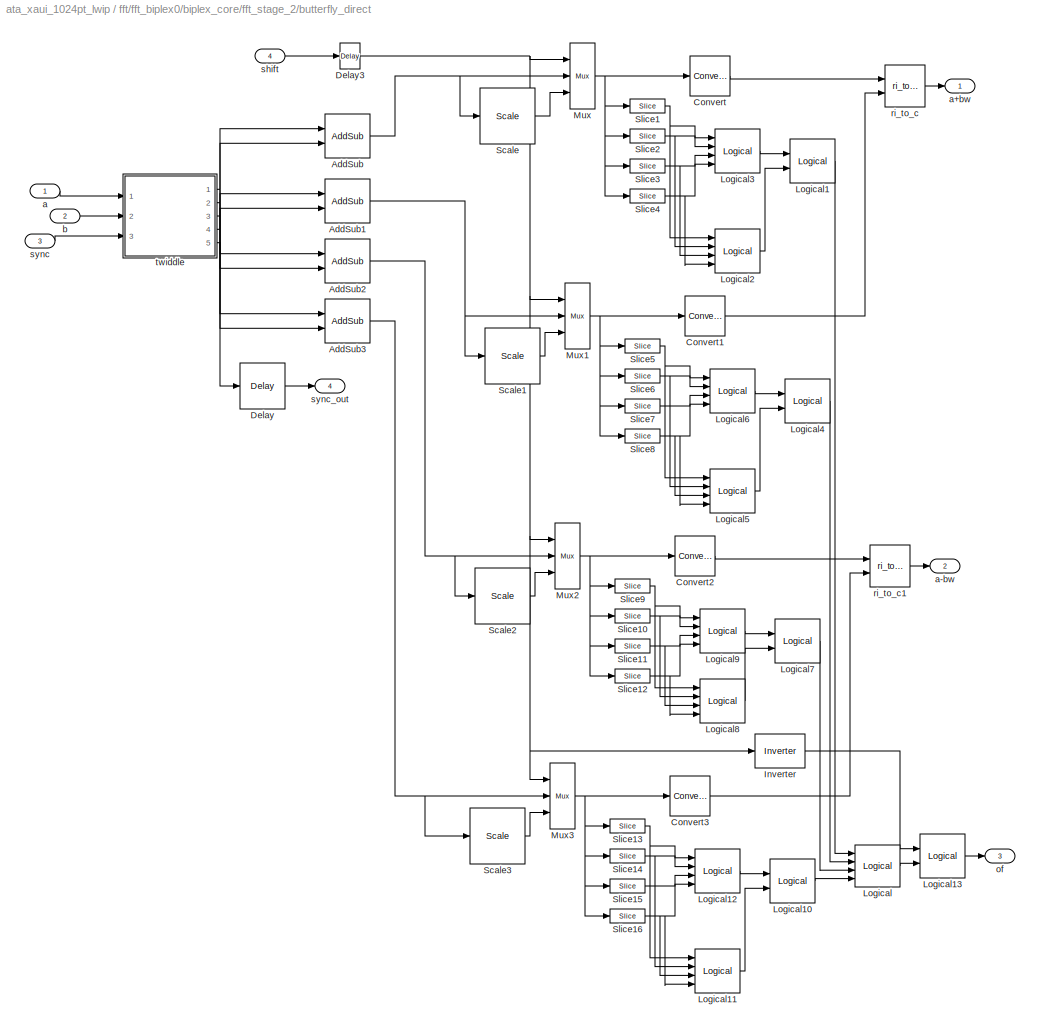
BLOCK [SubSystem] fft/fft_biplex0/biplex_core/fft_stage_2/butterfly_direct
  AncestorBlock = casper_library/FFTs/butterfly_direct
  AttributesFormatString = FFTSize=10, Coeffs=[0  1],\n StepPeriod=8, BitWidth=18
  MaskCallbackString = |||||||||
  MaskEnableString = on,on,on,on,on,on,on,on,on,on
  MaskIconFrame = on
  MaskIconOpaque = on
  MaskIconRotate = none
  MaskIconUnits = autoscale
  MaskSelfModifiable = on
  MaskStyleString = edit,edit,edit,edit,edit,edit,edit,edit,popup(Truncate|Round  (unbiased: +/- Inf)|Round  (unbiased: Even Values)),popup(Wrap|Saturate|Error)
  MaskTabNameString = ,,,,,,,,,
  MaskToolTipString = on,on,on,on,on,on,on,on,on,on
  MaskTunableValueString = on,on,on,on,on,on,on,on,on,on
  MaskType = butterfly_direct
  MaskValueString = 10|[0 1]|8|18|3|4|3|1|Truncate|Wrap
  MaskVarAliasString = ,,,,,,,,,
  MaskVariables = FFTSize=@1;Coeffs=@2;StepPeriod=@3;BitWidth=@4;add_latency=@5;mult_latency=@6;bram_latency=@7;use_bram=@8;quantization=&9;overflow=&10;
  MaskVisibilityString = on,on,on,on,on,on,on,on,on,on
  MinAlgLoopOccurrences = off
  Ports = [4, 4]
  RTWSystemCode = Auto
  TreatAsAtomicUnit = off
  UserData = DataTag17
  UserDataPersistent = on
BLOCK [Reference] fft/fft_biplex0/biplex_core/fft_stage_2/butterfly_direct/AddSub  REF=xbsIndex_r3/AddSub
  Ports = [2, 1]
  SourceBlock = xbsIndex_r3/AddSub
  SourceType = Xilinx Adder/Subtractor
  arith_type = Unsigned
  bin_pt = 2
  dbl_ovrd = off
  en = off
  explicit_period = off
  gen_core = on
  latency = add_latency
  mode = Addition
  n_bits = 8
  overflow = Wrap
  period = 1
  pipeline = on
  precision = Full
  quantization = Truncate
  show_param = on
  use_carryin = off
  use_carryout = off
  use_core = on
  use_rpm = on
  xl_area = [0, 0, 0, 0, 0, 0, 0]
  xl_use_area = off
BLOCK [Reference] fft/fft_biplex0/biplex_core/fft_stage_2/butterfly_direct/AddSub1  REF=xbsIndex_r3/AddSub
  Ports = [2, 1]
  SourceBlock = xbsIndex_r3/AddSub
  SourceType = Xilinx Adder/Subtractor
  arith_type = Unsigned
  bin_pt = 2
  dbl_ovrd = off
  en = off
  explicit_period = off
  gen_core = on
  latency = add_latency
  mode = Addition
  n_bits = 8
  overflow = Wrap
  period = 1
  pipeline = on
  precision = Full
  quantization = Truncate
  show_param = on
  use_carryin = off
  use_carryout = off
  use_core = on
  use_rpm = on
  xl_area = [0, 0, 0, 0, 0, 0, 0]
  xl_use_area = off
BLOCK [Reference] fft/fft_biplex0/biplex_core/fft_stage_2/butterfly_direct/AddSub2  REF=xbsIndex_r3/AddSub
  Ports = [2, 1]
  SourceBlock = xbsIndex_r3/AddSub
  SourceType = Xilinx Adder/Subtractor
  arith_type = Unsigned
  bin_pt = 2
  dbl_ovrd = off
  en = off
  explicit_period = off
  gen_core = on
  latency = add_latency
  mode = Subtraction
  n_bits = 8
  overflow = Wrap
  period = 1
  pipeline = on
  precision = Full
  quantization = Truncate
  show_param = on
  use_carryin = off
  use_carryout = off
  use_core = on
  use_rpm = on
  xl_area = [0, 0, 0, 0, 0, 0, 0]
  xl_use_area = off
BLOCK [Reference] fft/fft_biplex0/biplex_core/fft_stage_2/butterfly_direct/AddSub3  REF=xbsIndex_r3/AddSub
  Ports = [2, 1]
  SourceBlock = xbsIndex_r3/AddSub
  SourceType = Xilinx Adder/Subtractor
  arith_type = Unsigned
  bin_pt = 2
  dbl_ovrd = off
  en = off
  explicit_period = off
  gen_core = on
  latency = add_latency
  mode = Subtraction
  n_bits = 8
  overflow = Wrap
  period = 1
  pipeline = on
  precision = Full
  quantization = Truncate
  show_param = on
  use_carryin = off
  use_carryout = off
  use_core = on
  use_rpm = on
  xl_area = [0, 0, 0, 0, 0, 0, 0]
  xl_use_area = off
BLOCK [Reference] fft/fft_biplex0/biplex_core/fft_stage_2/butterfly_direct/Convert  REF=xbsIndex_r3/Convert
  Ports = [1, 1]
  SourceBlock = xbsIndex_r3/Convert
  SourceType = Xilinx Converter Block
  arith_type = Signed  (2's comp)
  bin_pt = BitWidth-1
  dbl_ovrd = off
  explicit_period = off
  inserted_by_tool = off
  latency = add_latency
  n_bits = BitWidth
  overflow = Wrap
  period = 1
  pipeline = off
  quantization = Truncate
  show_param = off
  xl_area = [0, 0, 0, 0, 0, 0, 0]
  xl_use_area = off
BLOCK [Reference] fft/fft_biplex0/biplex_core/fft_stage_2/butterfly_direct/Convert1  REF=xbsIndex_r3/Convert
  Ports = [1, 1]
  SourceBlock = xbsIndex_r3/Convert
  SourceType = Xilinx Converter Block
  arith_type = Signed  (2's comp)
  bin_pt = BitWidth-1
  dbl_ovrd = off
  explicit_period = off
  inserted_by_tool = off
  latency = add_latency
  n_bits = BitWidth
  overflow = Wrap
  period = 1
  pipeline = off
  quantization = Truncate
  show_param = off
  xl_area = [0, 0, 0, 0, 0, 0, 0]
  xl_use_area = off
BLOCK [Reference] fft/fft_biplex0/biplex_core/fft_stage_2/butterfly_direct/Convert2  REF=xbsIndex_r3/Convert
  Ports = [1, 1]
  SourceBlock = xbsIndex_r3/Convert
  SourceType = Xilinx Converter Block
  arith_type = Signed  (2's comp)
  bin_pt = BitWidth-1
  dbl_ovrd = off
  explicit_period = off
  inserted_by_tool = off
  latency = add_latency
  n_bits = BitWidth
  overflow = Wrap
  period = 1
  pipeline = off
  quantization = Truncate
  show_param = off
  xl_area = [0, 0, 0, 0, 0, 0, 0]
  xl_use_area = off
BLOCK [Reference] fft/fft_biplex0/biplex_core/fft_stage_2/butterfly_direct/Convert3  REF=xbsIndex_r3/Convert
  Ports = [1, 1]
  SourceBlock = xbsIndex_r3/Convert
  SourceType = Xilinx Converter Block
  arith_type = Signed  (2's comp)
  bin_pt = BitWidth-1
  dbl_ovrd = off
  explicit_period = off
  inserted_by_tool = off
  latency = add_latency
  n_bits = BitWidth
  overflow = Wrap
  period = 1
  pipeline = off
  quantization = Truncate
  show_param = off
  xl_area = [0, 0, 0, 0, 0, 0, 0]
  xl_use_area = off
BLOCK [Reference] fft/fft_biplex0/biplex_core/fft_stage_2/butterfly_direct/Delay  REF=xbsIndex_r3/Delay
  Ports = [1, 1]
  SourceBlock = xbsIndex_r3/Delay
  SourceType = Xilinx Delay Block
  accept_only_valid = off
  dbl_ovrd = off
  en = off
  explicit_period = off
  init_zero = on
  latency = 2 * add_latency + 1
  period = 1
  reg_retiming = off
  show_param = off
  xl_area = [0, 0, 0, 0, 0, 0, 0]
  xl_use_area = off
BLOCK [Reference] fft/fft_biplex0/biplex_core/fft_stage_2/butterfly_direct/Delay3  REF=xbsIndex_r3/Delay
  Ports = [1, 1]
  SourceBlock = xbsIndex_r3/Delay
  SourceType = Xilinx Delay Block
  accept_only_valid = off
  dbl_ovrd = off
  en = off
  explicit_period = off
  init_zero = on
  latency = 1
  period = 1
  reg_retiming = off
  show_param = off
  xl_area = [0, 0, 0, 0, 0, 0, 0]
  xl_use_area = off
BLOCK [Reference] fft/fft_biplex0/biplex_core/fft_stage_2/butterfly_direct/Inverter  REF=xbsIndex_r3/Inverter
  Ports = [1, 1]
  SourceBlock = xbsIndex_r3/Inverter
  SourceType = Xilinx Inverter
  dbl_ovrd = off
  en = off
  explicit_period = off
  latency = 0
  period = 1
  show_param = off
  xl_area = [0, 0, 0, 0, 0, 0, 0]
  xl_use_area = off
BLOCK [Reference] fft/fft_biplex0/biplex_core/fft_stage_2/butterfly_direct/Logical  REF=xbsIndex_r3/Logical
  Ports = [4, 1]
  SourceBlock = xbsIndex_r3/Logical
  SourceType = Xilinx Logical Block
  align_bp = on
  arith_type = Unsigned
  bin_pt = 2
  dbl_ovrd = off
  en = off
  explicit_period = off
  inputs = 4
  latency = 1
  logical_function = OR
  n_bits = 8
  period = 1
  precision = Full
  show_param = off
  xl_area = [0, 0, 0, 0, 0, 0, 0]
  xl_use_area = off
BLOCK [Reference] fft/fft_biplex0/biplex_core/fft_stage_2/butterfly_direct/Logical1  REF=xbsIndex_r3/Logical
  Ports = [2, 1]
  SourceBlock = xbsIndex_r3/Logical
  SourceType = Xilinx Logical Block
  align_bp = off
  arith_type = Unsigned
  bin_pt = 2
  dbl_ovrd = off
  en = off
  explicit_period = off
  inputs = 2
  latency = 1
  logical_function = OR
  n_bits = 8
  period = 1
  precision = Full
  show_param = off
  xl_area = [0, 0, 0, 0, 0, 0, 0]
  xl_use_area = off
BLOCK [Reference] fft/fft_biplex0/biplex_core/fft_stage_2/butterfly_direct/Logical10  REF=xbsIndex_r3/Logical
  Ports = [2, 1]
  SourceBlock = xbsIndex_r3/Logical
  SourceType = Xilinx Logical Block
  align_bp = off
  arith_type = Unsigned
  bin_pt = 2
  dbl_ovrd = off
  en = off
  explicit_period = off
  inputs = 2
  latency = 1
  logical_function = OR
  n_bits = 8
  period = 1
  precision = Full
  show_param = off
  xl_area = [0, 0, 0, 0, 0, 0, 0]
  xl_use_area = off
BLOCK [Reference] fft/fft_biplex0/biplex_core/fft_stage_2/butterfly_direct/Logical11  REF=xbsIndex_r3/Logical
  Ports = [4, 1]
  SourceBlock = xbsIndex_r3/Logical
  SourceType = Xilinx Logical Block
  align_bp = off
  arith_type = Unsigned
  bin_pt = 2
  dbl_ovrd = off
  en = off
  explicit_period = off
  inputs = 4
  latency = 1
  logical_function = NOR
  n_bits = 8
  period = 1
  precision = Full
  show_param = off
  xl_area = [0, 0, 0, 0, 0, 0, 0]
  xl_use_area = off
BLOCK [Reference] fft/fft_biplex0/biplex_core/fft_stage_2/butterfly_direct/Logical12  REF=xbsIndex_r3/Logical
  Ports = [4, 1]
  SourceBlock = xbsIndex_r3/Logical
  SourceType = Xilinx Logical Block
  align_bp = off
  arith_type = Unsigned
  bin_pt = 2
  dbl_ovrd = off
  en = off
  explicit_period = off
  inputs = 4
  latency = 1
  logical_function = AND
  n_bits = 8
  period = 1
  precision = Full
  show_param = off
  xl_area = [0, 0, 0, 0, 0, 0, 0]
  xl_use_area = off
BLOCK [Reference] fft/fft_biplex0/biplex_core/fft_stage_2/butterfly_direct/Logical13  REF=xbsIndex_r3/Logical
  Ports = [2, 1]
  SourceBlock = xbsIndex_r3/Logical
  SourceType = Xilinx Logical Block
  align_bp = off
  arith_type = Unsigned
  bin_pt = 2
  dbl_ovrd = off
  en = off
  explicit_period = off
  inputs = 2
  latency = 1
  logical_function = AND
  n_bits = 8
  period = 1
  precision = Full
  show_param = off
  xl_area = [0, 0, 0, 0, 0, 0, 0]
  xl_use_area = off
BLOCK [Reference] fft/fft_biplex0/biplex_core/fft_stage_2/butterfly_direct/Logical2  REF=xbsIndex_r3/Logical
  Ports = [4, 1]
  SourceBlock = xbsIndex_r3/Logical
  SourceType = Xilinx Logical Block
  align_bp = off
  arith_type = Unsigned
  bin_pt = 2
  dbl_ovrd = off
  en = off
  explicit_period = off
  inputs = 4
  latency = 1
  logical_function = NOR
  n_bits = 8
  period = 1
  precision = Full
  show_param = off
  xl_area = [0, 0, 0, 0, 0, 0, 0]
  xl_use_area = off
BLOCK [Reference] fft/fft_biplex0/biplex_core/fft_stage_2/butterfly_direct/Logical3  REF=xbsIndex_r3/Logical
  Ports = [4, 1]
  SourceBlock = xbsIndex_r3/Logical
  SourceType = Xilinx Logical Block
  align_bp = off
  arith_type = Unsigned
  bin_pt = 2
  dbl_ovrd = off
  en = off
  explicit_period = off
  inputs = 4
  latency = 1
  logical_function = AND
  n_bits = 8
  period = 1
  precision = Full
  show_param = off
  xl_area = [0, 0, 0, 0, 0, 0, 0]
  xl_use_area = off
BLOCK [Reference] fft/fft_biplex0/biplex_core/fft_stage_2/butterfly_direct/Logical4  REF=xbsIndex_r3/Logical
  Ports = [2, 1]
  SourceBlock = xbsIndex_r3/Logical
  SourceType = Xilinx Logical Block
  align_bp = off
  arith_type = Unsigned
  bin_pt = 2
  dbl_ovrd = off
  en = off
  explicit_period = off
  inputs = 2
  latency = 1
  logical_function = OR
  n_bits = 8
  period = 1
  precision = Full
  show_param = off
  xl_area = [0, 0, 0, 0, 0, 0, 0]
  xl_use_area = off
BLOCK [Reference] fft/fft_biplex0/biplex_core/fft_stage_2/butterfly_direct/Logical5  REF=xbsIndex_r3/Logical
  Ports = [4, 1]
  SourceBlock = xbsIndex_r3/Logical
  SourceType = Xilinx Logical Block
  align_bp = off
  arith_type = Unsigned
  bin_pt = 2
  dbl_ovrd = off
  en = off
  explicit_period = off
  inputs = 4
  latency = 1
  logical_function = NOR
  n_bits = 8
  period = 1
  precision = Full
  show_param = off
  xl_area = [0, 0, 0, 0, 0, 0, 0]
  xl_use_area = off
BLOCK [Reference] fft/fft_biplex0/biplex_core/fft_stage_2/butterfly_direct/Logical6  REF=xbsIndex_r3/Logical
  Ports = [4, 1]
  SourceBlock = xbsIndex_r3/Logical
  SourceType = Xilinx Logical Block
  align_bp = off
  arith_type = Unsigned
  bin_pt = 2
  dbl_ovrd = off
  en = off
  explicit_period = off
  inputs = 4
  latency = 1
  logical_function = AND
  n_bits = 8
  period = 1
  precision = Full
  show_param = off
  xl_area = [0, 0, 0, 0, 0, 0, 0]
  xl_use_area = off
BLOCK [Reference] fft/fft_biplex0/biplex_core/fft_stage_2/butterfly_direct/Logical7  REF=xbsIndex_r3/Logical
  Ports = [2, 1]
  SourceBlock = xbsIndex_r3/Logical
  SourceType = Xilinx Logical Block
  align_bp = off
  arith_type = Unsigned
  bin_pt = 2
  dbl_ovrd = off
  en = off
  explicit_period = off
  inputs = 2
  latency = 1
  logical_function = OR
  n_bits = 8
  period = 1
  precision = Full
  show_param = off
  xl_area = [0, 0, 0, 0, 0, 0, 0]
  xl_use_area = off
BLOCK [Reference] fft/fft_biplex0/biplex_core/fft_stage_2/butterfly_direct/Logical8  REF=xbsIndex_r3/Logical
  Ports = [4, 1]
  SourceBlock = xbsIndex_r3/Logical
  SourceType = Xilinx Logical Block
  align_bp = off
  arith_type = Unsigned
  bin_pt = 2
  dbl_ovrd = off
  en = off
  explicit_period = off
  inputs = 4
  latency = 1
  logical_function = NOR
  n_bits = 8
  period = 1
  precision = Full
  show_param = off
  xl_area = [0, 0, 0, 0, 0, 0, 0]
  xl_use_area = off
BLOCK [Reference] fft/fft_biplex0/biplex_core/fft_stage_2/butterfly_direct/Logical9  REF=xbsIndex_r3/Logical
  Ports = [4, 1]
  SourceBlock = xbsIndex_r3/Logical
  SourceType = Xilinx Logical Block
  align_bp = off
  arith_type = Unsigned
  bin_pt = 2
  dbl_ovrd = off
  en = off
  explicit_period = off
  inputs = 4
  latency = 1
  logical_function = AND
  n_bits = 8
  period = 1
  precision = Full
  show_param = off
  xl_area = [0, 0, 0, 0, 0, 0, 0]
  xl_use_area = off
BLOCK [Reference] fft/fft_biplex0/biplex_core/fft_stage_2/butterfly_direct/Mux  REF=xbsIndex_r3/Mux
  Ports = [3, 1]
  SourceBlock = xbsIndex_r3/Mux
  SourceType = Xilinx Multiplexer Block
  arith_type = Signed  (2's comp)
  bin_pt = 2
  dbl_ovrd = off
  en = off
  explicit_period = off
  gen_core = off
  inputs = 2
  latency = 1
  mux_type = off
  n_bits = 8
  overflow = Wrap
  period = 1
  precision = Full
  quantization = Truncate
  show_param = off
  use_rpm = off
  xl_area = [0, 0, 0, 0, 0, 0, 0]
  xl_use_area = off
BLOCK [Reference] fft/fft_biplex0/biplex_core/fft_stage_2/butterfly_direct/Mux1  REF=xbsIndex_r3/Mux
  Ports = [3, 1]
  SourceBlock = xbsIndex_r3/Mux
  SourceType = Xilinx Multiplexer Block
  arith_type = Signed  (2's comp)
  bin_pt = 2
  dbl_ovrd = off
  en = off
  explicit_period = off
  gen_core = off
  inputs = 2
  latency = 1
  mux_type = off
  n_bits = 8
  overflow = Wrap
  period = 1
  precision = Full
  quantization = Truncate
  show_param = off
  use_rpm = off
  xl_area = [0, 0, 0, 0, 0, 0, 0]
  xl_use_area = off
BLOCK [Reference] fft/fft_biplex0/biplex_core/fft_stage_2/butterfly_direct/Mux2  REF=xbsIndex_r3/Mux
  Ports = [3, 1]
  SourceBlock = xbsIndex_r3/Mux
  SourceType = Xilinx Multiplexer Block
  arith_type = Signed  (2's comp)
  bin_pt = 2
  dbl_ovrd = off
  en = off
  explicit_period = off
  gen_core = off
  inputs = 2
  latency = 1
  mux_type = off
  n_bits = 8
  overflow = Wrap
  period = 1
  precision = Full
  quantization = Truncate
  show_param = off
  use_rpm = off
  xl_area = [0, 0, 0, 0, 0, 0, 0]
  xl_use_area = off
BLOCK [Reference] fft/fft_biplex0/biplex_core/fft_stage_2/butterfly_direct/Mux3  REF=xbsIndex_r3/Mux
  Ports = [3, 1]
  SourceBlock = xbsIndex_r3/Mux
  SourceType = Xilinx Multiplexer Block
  arith_type = Signed  (2's comp)
  bin_pt = 2
  dbl_ovrd = off
  en = off
  explicit_period = off
  gen_core = off
  inputs = 2
  latency = 1
  mux_type = off
  n_bits = 8
  overflow = Wrap
  period = 1
  precision = Full
  quantization = Truncate
  show_param = off
  use_rpm = off
  xl_area = [0, 0, 0, 0, 0, 0, 0]
  xl_use_area = off
BLOCK [Reference] fft/fft_biplex0/biplex_core/fft_stage_2/butterfly_direct/Scale  REF=xbsIndex_r3/Scale
  Ports = [1, 1]
  SourceBlock = xbsIndex_r3/Scale
  SourceType = Xilinx Scaling Block
  dbl_ovrd = off
  explicit_period = off
  period = 1
  scale_factor = -1
BLOCK [Reference] fft/fft_biplex0/biplex_core/fft_stage_2/butterfly_direct/Scale1  REF=xbsIndex_r3/Scale
  Ports = [1, 1]
  SourceBlock = xbsIndex_r3/Scale
  SourceType = Xilinx Scaling Block
  dbl_ovrd = off
  explicit_period = off
  period = 1
  scale_factor = -1
BLOCK [Reference] fft/fft_biplex0/biplex_core/fft_stage_2/butterfly_direct/Scale2  REF=xbsIndex_r3/Scale
  Ports = [1, 1]
  SourceBlock = xbsIndex_r3/Scale
  SourceType = Xilinx Scaling Block
  dbl_ovrd = off
  explicit_period = off
  period = 1
  scale_factor = -1
BLOCK [Reference] fft/fft_biplex0/biplex_core/fft_stage_2/butterfly_direct/Scale3  REF=xbsIndex_r3/Scale
  Ports = [1, 1]
  SourceBlock = xbsIndex_r3/Scale
  SourceType = Xilinx Scaling Block
  dbl_ovrd = off
  explicit_period = off
  period = 1
  scale_factor = -1
BLOCK [Reference] fft/fft_biplex0/biplex_core/fft_stage_2/butterfly_direct/Slice1  REF=xbsIndex_r3/Slice
  Ports = [1, 1]
  SourceBlock = xbsIndex_r3/Slice
  SourceType = Xilinx Slice Block
  base0 = LSB of Input
  base1 = MSB of Input
  bit0 = 0
  bit1 = 0
  boolean_output = on
  dbl_ovrd = off
  explicit_period = off
  mode = Upper Bit Location + Width
  nbits = 1
  period = 1
BLOCK [Reference] fft/fft_biplex0/biplex_core/fft_stage_2/butterfly_direct/Slice10  REF=xbsIndex_r3/Slice
  Ports = [1, 1]
  SourceBlock = xbsIndex_r3/Slice
  SourceType = Xilinx Slice Block
  base0 = LSB of Input
  base1 = MSB of Input
  bit0 = 0
  bit1 = -1
  boolean_output = on
  dbl_ovrd = off
  explicit_period = off
  mode = Upper Bit Location + Width
  nbits = 1
  period = 1
BLOCK [Reference] fft/fft_biplex0/biplex_core/fft_stage_2/butterfly_direct/Slice11  REF=xbsIndex_r3/Slice
  Ports = [1, 1]
  SourceBlock = xbsIndex_r3/Slice
  SourceType = Xilinx Slice Block
  base0 = LSB of Input
  base1 = MSB of Input
  bit0 = 0
  bit1 = -2
  boolean_output = on
  dbl_ovrd = off
  explicit_period = off
  mode = Upper Bit Location + Width
  nbits = 1
  period = 1
BLOCK [Reference] fft/fft_biplex0/biplex_core/fft_stage_2/butterfly_direct/Slice12  REF=xbsIndex_r3/Slice
  Ports = [1, 1]
  SourceBlock = xbsIndex_r3/Slice
  SourceType = Xilinx Slice Block
  base0 = LSB of Input
  base1 = MSB of Input
  bit0 = 0
  bit1 = -3
  boolean_output = on
  dbl_ovrd = off
  explicit_period = off
  mode = Upper Bit Location + Width
  nbits = 1
  period = 1
BLOCK [Reference] fft/fft_biplex0/biplex_core/fft_stage_2/butterfly_direct/Slice13  REF=xbsIndex_r3/Slice
  Ports = [1, 1]
  SourceBlock = xbsIndex_r3/Slice
  SourceType = Xilinx Slice Block
  base0 = LSB of Input
  base1 = MSB of Input
  bit0 = 0
  bit1 = 0
  boolean_output = on
  dbl_ovrd = off
  explicit_period = off
  mode = Upper Bit Location + Width
  nbits = 1
  period = 1
BLOCK [Reference] fft/fft_biplex0/biplex_core/fft_stage_2/butterfly_direct/Slice14  REF=xbsIndex_r3/Slice
  Ports = [1, 1]
  SourceBlock = xbsIndex_r3/Slice
  SourceType = Xilinx Slice Block
  base0 = LSB of Input
  base1 = MSB of Input
  bit0 = 0
  bit1 = -1
  boolean_output = on
  dbl_ovrd = off
  explicit_period = off
  mode = Upper Bit Location + Width
  nbits = 1
  period = 1
BLOCK [Reference] fft/fft_biplex0/biplex_core/fft_stage_2/butterfly_direct/Slice15  REF=xbsIndex_r3/Slice
  Ports = [1, 1]
  SourceBlock = xbsIndex_r3/Slice
  SourceType = Xilinx Slice Block
  base0 = LSB of Input
  base1 = MSB of Input
  bit0 = 0
  bit1 = -2
  boolean_output = on
  dbl_ovrd = off
  explicit_period = off
  mode = Upper Bit Location + Width
  nbits = 1
  period = 1
BLOCK [Reference] fft/fft_biplex0/biplex_core/fft_stage_2/butterfly_direct/Slice16  REF=xbsIndex_r3/Slice
  Ports = [1, 1]
  SourceBlock = xbsIndex_r3/Slice
  SourceType = Xilinx Slice Block
  base0 = LSB of Input
  base1 = MSB of Input
  bit0 = 0
  bit1 = -3
  boolean_output = on
  dbl_ovrd = off
  explicit_period = off
  mode = Upper Bit Location + Width
  nbits = 1
  period = 1
BLOCK [Reference] fft/fft_biplex0/biplex_core/fft_stage_2/butterfly_direct/Slice2  REF=xbsIndex_r3/Slice
  Ports = [1, 1]
  SourceBlock = xbsIndex_r3/Slice
  SourceType = Xilinx Slice Block
  base0 = LSB of Input
  base1 = MSB of Input
  bit0 = 0
  bit1 = -1
  boolean_output = on
  dbl_ovrd = off
  explicit_period = off
  mode = Upper Bit Location + Width
  nbits = 1
  period = 1
BLOCK [Reference] fft/fft_biplex0/biplex_core/fft_stage_2/butterfly_direct/Slice3  REF=xbsIndex_r3/Slice
  Ports = [1, 1]
  SourceBlock = xbsIndex_r3/Slice
  SourceType = Xilinx Slice Block
  base0 = LSB of Input
  base1 = MSB of Input
  bit0 = 0
  bit1 = -2
  boolean_output = on
  dbl_ovrd = off
  explicit_period = off
  mode = Upper Bit Location + Width
  nbits = 1
  period = 1
BLOCK [Reference] fft/fft_biplex0/biplex_core/fft_stage_2/butterfly_direct/Slice4  REF=xbsIndex_r3/Slice
  Ports = [1, 1]
  SourceBlock = xbsIndex_r3/Slice
  SourceType = Xilinx Slice Block
  base0 = LSB of Input
  base1 = MSB of Input
  bit0 = 0
  bit1 = -3
  boolean_output = on
  dbl_ovrd = off
  explicit_period = off
  mode = Upper Bit Location + Width
  nbits = 1
  period = 1
BLOCK [Reference] fft/fft_biplex0/biplex_core/fft_stage_2/butterfly_direct/Slice5  REF=xbsIndex_r3/Slice
  Ports = [1, 1]
  SourceBlock = xbsIndex_r3/Slice
  SourceType = Xilinx Slice Block
  base0 = LSB of Input
  base1 = MSB of Input
  bit0 = 0
  bit1 = 0
  boolean_output = on
  dbl_ovrd = off
  explicit_period = off
  mode = Upper Bit Location + Width
  nbits = 1
  period = 1
BLOCK [Reference] fft/fft_biplex0/biplex_core/fft_stage_2/butterfly_direct/Slice6  REF=xbsIndex_r3/Slice
  Ports = [1, 1]
  SourceBlock = xbsIndex_r3/Slice
  SourceType = Xilinx Slice Block
  base0 = LSB of Input
  base1 = MSB of Input
  bit0 = 0
  bit1 = -1
  boolean_output = on
  dbl_ovrd = off
  explicit_period = off
  mode = Upper Bit Location + Width
  nbits = 1
  period = 1
BLOCK [Reference] fft/fft_biplex0/biplex_core/fft_stage_2/butterfly_direct/Slice7  REF=xbsIndex_r3/Slice
  Ports = [1, 1]
  SourceBlock = xbsIndex_r3/Slice
  SourceType = Xilinx Slice Block
  base0 = LSB of Input
  base1 = MSB of Input
  bit0 = 0
  bit1 = -2
  boolean_output = on
  dbl_ovrd = off
  explicit_period = off
  mode = Upper Bit Location + Width
  nbits = 1
  period = 1
BLOCK [Reference] fft/fft_biplex0/biplex_core/fft_stage_2/butterfly_direct/Slice8  REF=xbsIndex_r3/Slice
  Ports = [1, 1]
  SourceBlock = xbsIndex_r3/Slice
  SourceType = Xilinx Slice Block
  base0 = LSB of Input
  base1 = MSB of Input
  bit0 = 0
  bit1 = -3
  boolean_output = on
  dbl_ovrd = off
  explicit_period = off
  mode = Upper Bit Location + Width
  nbits = 1
  period = 1
BLOCK [Reference] fft/fft_biplex0/biplex_core/fft_stage_2/butterfly_direct/Slice9  REF=xbsIndex_r3/Slice
  Ports = [1, 1]
  SourceBlock = xbsIndex_r3/Slice
  SourceType = Xilinx Slice Block
  base0 = LSB of Input
  base1 = MSB of Input
  bit0 = 0
  bit1 = 0
  boolean_output = on
  dbl_ovrd = off
  explicit_period = off
  mode = Upper Bit Location + Width
  nbits = 1
  period = 1
BLOCK [Inport] fft/fft_biplex0/biplex_core/fft_stage_2/butterfly_direct/a
  IconDisplay = Port number
  LatchInput = off
  Port = 1
BLOCK [Outport] fft/fft_biplex0/biplex_core/fft_stage_2/butterfly_direct/a+bw
  BusOutputAsStruct = off
  IconDisplay = Port number
BLOCK [Outport] fft/fft_biplex0/biplex_core/fft_stage_2/butterfly_direct/a-bw
  BusOutputAsStruct = off
  IconDisplay = Port number
  Port = 2
BLOCK [Inport] fft/fft_biplex0/biplex_core/fft_stage_2/butterfly_direct/b
  IconDisplay = Port number
  LatchInput = off
  Port = 2
BLOCK [Outport] fft/fft_biplex0/biplex_core/fft_stage_2/butterfly_direct/of
  BusOutputAsStruct = off
  IconDisplay = Port number
  Port = 3
BLOCK [Reference] fft/fft_biplex0/biplex_core/fft_stage_2/butterfly_direct/ri_to_c  REF=casper_library/Misc/ri_to_c  (lib defined in mdl_138b2fc3435f, mdl_4ed325b712b3, +2 more)
  Ports = [2, 1]
  ShowPortLabels = on
  SourceBlock = casper_library/Misc/ri_to_c
  SourceType = ri_to_c
  UserData = DataTag18
  UserDataPersistent = on
BLOCK [Reference] fft/fft_biplex0/biplex_core/fft_stage_2/butterfly_direct/ri_to_c1  REF=casper_library/Misc/ri_to_c  (lib defined in mdl_138b2fc3435f, mdl_4ed325b712b3, +2 more)
  Ports = [2, 1]
  ShowPortLabels = on
  SourceBlock = casper_library/Misc/ri_to_c
  SourceType = ri_to_c
  UserData = DataTag19
  UserDataPersistent = on
BLOCK [Inport] fft/fft_biplex0/biplex_core/fft_stage_2/butterfly_direct/shift
  IconDisplay = Port number
  LatchInput = off
  Port = 4
BLOCK [Inport] fft/fft_biplex0/biplex_core/fft_stage_2/butterfly_direct/sync
  IconDisplay = Port number
  LatchInput = off
  Port = 3
BLOCK [Outport] fft/fft_biplex0/biplex_core/fft_stage_2/butterfly_direct/sync_out
  BusOutputAsStruct = off
  IconDisplay = Port number
  Port = 4
BLOCK [SubSystem] fft/fft_biplex0/biplex_core/fft_stage_2/butterfly_direct/twiddle
  AttributesFormatString = %<BlockChoice>
  BlockChoice = twiddle_stage_2
  MemberBlocks = twiddle_coeff_0,twiddle_coeff_1,twiddle_general_3mult,twiddle_general_4mult,twiddle_stage_2
  MinAlgLoopOccurrences = off
  Ports = [3, 5]
  RTWSystemCode = Auto
  TemplateBlock = casper_library/FFTs/Twiddle/twiddle
  TreatAsAtomicUnit = off
BLOCK [Inport] fft/fft_biplex0/biplex_core/fft_stage_2/butterfly_direct/twiddle/a
  IconDisplay = Port number
  LatchInput = off
  Port = 1
BLOCK [Outport] fft/fft_biplex0/biplex_core/fft_stage_2/butterfly_direct/twiddle/a_im
  BusOutputAsStruct = off
  IconDisplay = Port number
  Port = 2
BLOCK [Outport] fft/fft_biplex0/biplex_core/fft_stage_2/butterfly_direct/twiddle/a_re
  BusOutputAsStruct = off
  IconDisplay = Port number
BLOCK [Inport] fft/fft_biplex0/biplex_core/fft_stage_2/butterfly_direct/twiddle/b
  IconDisplay = Port number
  LatchInput = off
  Port = 2
BLOCK [Outport] fft/fft_biplex0/biplex_core/fft_stage_2/butterfly_direct/twiddle/bw_im
  BusOutputAsStruct = off
  IconDisplay = Port number
  Port = 4
BLOCK [Outport] fft/fft_biplex0/biplex_core/fft_stage_2/butterfly_direct/twiddle/bw_re
  BusOutputAsStruct = off
  IconDisplay = Port number
  Port = 3
BLOCK [Inport] fft/fft_biplex0/biplex_core/fft_stage_2/butterfly_direct/twiddle/sync
  IconDisplay = Port number
  LatchInput = off
  Port = 3
BLOCK [Outport] fft/fft_biplex0/biplex_core/fft_stage_2/butterfly_direct/twiddle/sync_out
  BusOutputAsStruct = off
  IconDisplay = Port number
  Port = 5
BLOCK [Reference] fft/fft_biplex0/biplex_core/fft_stage_2/butterfly_direct/twiddle/twiddle_stage_2  REF=casper_library/FFTs/Twiddle/twiddle_stage_2  (lib defined in mdl_138b2fc3435f, mdl_4ed325b712b3, +2 more)
  BitWidth = 18
  FFTSize = 10
  Ports = [3, 5]
  ShowPortLabels = on
  SourceBlock = casper_library/FFTs/Twiddle/twiddle_stage_2
  add_latency = 3
  bram_latency = 3
  mult_latency = 4
BLOCK [SubSystem] fft/fft_biplex0/biplex_core/fft_stage_2/delay_b
  AttributesFormatString = %<BlockChoice>
  BlockChoice = delay_bram
  MemberBlocks = delay_bram,delay_slr
  MinAlgLoopOccurrences = off
  Ports = [1, 1]
  RTWSystemCode = Auto
  TemplateBlock = casper_library/Delays/delay
  TreatAsAtomicUnit = off
BLOCK [Inport] fft/fft_biplex0/biplex_core/fft_stage_2/delay_b/In1
  IconDisplay = Port number
  LatchInput = off
  Port = 1
BLOCK [Outport] fft/fft_biplex0/biplex_core/fft_stage_2/delay_b/Out1
  BusOutputAsStruct = off
  IconDisplay = Port number
BLOCK [Reference] fft/fft_biplex0/biplex_core/fft_stage_2/delay_b/delay_bram  REF=casper_library/Delays/delay_bram  (lib defined in mdl_138b2fc3435f, mdl_4ed325b712b3, +2 more)
  DelayLen = 2^(FFTSize-FFTStage)
  Ports = [1, 1]
  ShowPortLabels = on
  SourceBlock = casper_library/Delays/delay_bram
  SourceType = delay_bram
  bram_latency = bram_latency
BLOCK [SubSystem] fft/fft_biplex0/biplex_core/fft_stage_2/delay_f
  AttributesFormatString = %<BlockChoice>
  BlockChoice = delay_bram
  MemberBlocks = delay_bram,delay_slr
  MinAlgLoopOccurrences = off
  Ports = [1, 1]
  RTWSystemCode = Auto
  TemplateBlock = casper_library/Delays/delay
  TreatAsAtomicUnit = off
BLOCK [Inport] fft/fft_biplex0/biplex_core/fft_stage_2/delay_f/In1
  IconDisplay = Port number
  LatchInput = off
  Port = 1
BLOCK [Outport] fft/fft_biplex0/biplex_core/fft_stage_2/delay_f/Out1
  BusOutputAsStruct = off
  IconDisplay = Port number
BLOCK [Reference] fft/fft_biplex0/biplex_core/fft_stage_2/delay_f/delay_bram  REF=casper_library/Delays/delay_bram  (lib defined in mdl_138b2fc3435f, mdl_4ed325b712b3, +2 more)
  DelayLen = 2^(FFTSize-FFTStage)
  Ports = [1, 1]
  ShowPortLabels = on
  SourceBlock = casper_library/Delays/delay_bram
  SourceType = delay_bram
  bram_latency = bram_latency
BLOCK [Inport] fft/fft_biplex0/biplex_core/fft_stage_2/in1
  IconDisplay = Port number
  LatchInput = off
  Port = 1
BLOCK [Inport] fft/fft_biplex0/biplex_core/fft_stage_2/in2
  IconDisplay = Port number
  LatchInput = off
  Port = 2
BLOCK [Outport] fft/fft_biplex0/biplex_core/fft_stage_2/of
  BusOutputAsStruct = off
  IconDisplay = Port number
  Port = 3
BLOCK [Inport] fft/fft_biplex0/biplex_core/fft_stage_2/of_in
  IconDisplay = Port number
  LatchInput = off
  Port = 3
BLOCK [Outport] fft/fft_biplex0/biplex_core/fft_stage_2/out1
  BusOutputAsStruct = off
  IconDisplay = Port number
BLOCK [Outport] fft/fft_biplex0/biplex_core/fft_stage_2/out2
  BusOutputAsStruct = off
  IconDisplay = Port number
  Port = 2
BLOCK [Inport] fft/fft_biplex0/biplex_core/fft_stage_2/shift
  IconDisplay = Port number
  LatchInput = off
  Port = 5
BLOCK [Inport] fft/fft_biplex0/biplex_core/fft_stage_2/sync
  IconDisplay = Port number
  LatchInput = off
  Port = 4
BLOCK [Reference] fft/fft_biplex0/biplex_core/fft_stage_2/sync_delay  REF=casper_library/Delays/sync_delay  (lib defined in mdl_138b2fc3435f, mdl_4ed325b712b3, +2 more)
  DelayLen = 2^(FFTSize - FFTStage)
  Ports = [1, 1]
  ShowPortLabels = on
  SourceBlock = casper_library/Delays/sync_delay
  SourceType = sync_delay
BLOCK [Outport] fft/fft_biplex0/biplex_core/fft_stage_2/sync_out
  BusOutputAsStruct = off
  IconDisplay = Port number
  Port = 4
BLOCK [SubSystem] fft/fft_biplex0/biplex_core/fft_stage_3
  AncestorBlock = casper_library/FFTs/fft_stage_n
  AttributesFormatString = FFTSize=10, FFTStage=3, BitWidth=18
  MaskCallbackString = ||||||||||
  MaskEnableString = on,on,on,on,on,on,on,on,on,on,on
  MaskIconFrame = on
  MaskIconOpaque = on
  MaskIconRotate = none
  MaskIconUnits = autoscale
  MaskSelfModifiable = on
  MaskStyleString = edit,edit,edit,edit,edit,edit,popup(Truncate|Round  (unbiased: +/- Inf)|Round  (unbiased: Even Values)),popup(Wrap|Saturate|Error),edit,edit,edit
  MaskTabNameString = ,,,,,,,,,,
  MaskToolTipString = on,on,on,on,on,on,on,on,on,on,on
  MaskTunableValueString = on,on,on,on,on,on,on,on,on,on,on
  MaskType = fft_stage_n
  MaskValueString = 10|3|18|1|0|16|Truncate|Wrap|3|4|3
  MaskVarAliasString = ,,,,,,,,,,
  MaskVariables = FFTSize=@1;FFTStage=@2;BitWidth=@3;use_bram=@4;CoeffBram=&5;MaxCoeffNum=@6;quantization=&7;overflow=&8;add_latency=@9;mult_latency=@10;bram_latency=@11;
  MaskVisibilityString = on,on,on,on,on,on,on,on,on,on,on
  MinAlgLoopOccurrences = off
  Ports = [5, 4]
  RTWSystemCode = Auto
  TreatAsAtomicUnit = off
  UserData = DataTag20
  UserDataPersistent = on
BLOCK [Reference] fft/fft_biplex0/biplex_core/fft_stage_3/Counter  REF=xbsIndex_r3/Counter
  Ports = [1, 1]
  SourceBlock = xbsIndex_r3/Counter
  SourceType = Xilinx Counter Block
  arith_type = Unsigned
  bin_pt = 0
  cnt_by_val = 1
  cnt_to = Inf
  cnt_type = Free Running
  dbl_ovrd = off
  en = off
  explicit_period = off
  gen_core = on
  load_pin = off
  n_bits = FFTSize-FFTStage+1
  operation = Up
  period = 1
  rst = on
  show_param = off
  start_count = 0
  use_rpm = off
  xl_area = [0, 0, 0, 0, 0, 0, 0]
  xl_use_area = off
BLOCK [Reference] fft/fft_biplex0/biplex_core/fft_stage_3/Delay  REF=xbsIndex_r3/Delay
  Ports = [1, 1]
  SourceBlock = xbsIndex_r3/Delay
  SourceType = Xilinx Delay Block
  accept_only_valid = off
  dbl_ovrd = off
  en = off
  explicit_period = off
  init_zero = on
  latency = 1
  period = 1
  reg_retiming = off
  show_param = off
  xl_area = [0, 0, 0, 0, 0, 0, 0]
  xl_use_area = off
BLOCK [Reference] fft/fft_biplex0/biplex_core/fft_stage_3/Logical1  REF=xbsIndex_r3/Logical
  Ports = [2, 1]
  SourceBlock = xbsIndex_r3/Logical
  SourceType = Xilinx Logical Block
  align_bp = on
  arith_type = Unsigned
  bin_pt = 2
  dbl_ovrd = off
  en = off
  explicit_period = on
  inputs = 2
  latency = 1
  logical_function = OR
  n_bits = 8
  period = 1
  precision = Full
  show_param = off
  xl_area = [0, 0, 0, 0, 0, 0, 0]
  xl_use_area = off
BLOCK [Reference] fft/fft_biplex0/biplex_core/fft_stage_3/Mux  REF=xbsIndex_r3/Mux
  Ports = [3, 1]
  SourceBlock = xbsIndex_r3/Mux
  SourceType = Xilinx Multiplexer Block
  arith_type = Signed  (2's comp)
  bin_pt = 2
  dbl_ovrd = off
  en = off
  explicit_period = off
  gen_core = on
  inputs = 2
  latency = 1
  mux_type = off
  n_bits = 8
  overflow = Wrap
  period = 1
  precision = Full
  quantization = Truncate
  show_param = off
  use_rpm = off
  xl_area = [0, 0, 0, 0, 0, 0, 0]
  xl_use_area = off
BLOCK [Reference] fft/fft_biplex0/biplex_core/fft_stage_3/Mux1  REF=xbsIndex_r3/Mux
  Ports = [3, 1]
  SourceBlock = xbsIndex_r3/Mux
  SourceType = Xilinx Multiplexer Block
  arith_type = Signed  (2's comp)
  bin_pt = 2
  dbl_ovrd = off
  en = off
  explicit_period = off
  gen_core = on
  inputs = 2
  latency = 1
  mux_type = off
  n_bits = 8
  overflow = Wrap
  period = 1
  precision = Full
  quantization = Truncate
  show_param = off
  use_rpm = off
  xl_area = [0, 0, 0, 0, 0, 0, 0]
  xl_use_area = off
BLOCK [Reference] fft/fft_biplex0/biplex_core/fft_stage_3/Slice  REF=xbsIndex_r3/Slice
  Ports = [1, 1]
  SourceBlock = xbsIndex_r3/Slice
  SourceType = Xilinx Slice Block
  base0 = LSB of Input
  base1 = MSB of Input
  bit0 = FFTStage - 1
  bit1 = -(FFTStage - 1)
  boolean_output = on
  dbl_ovrd = off
  explicit_period = off
  mode = Lower Bit Location + Width
  nbits = 1
  period = 1
BLOCK [Reference] fft/fft_biplex0/biplex_core/fft_stage_3/Slice1  REF=xbsIndex_r3/Slice
  Ports = [1, 1]
  SourceBlock = xbsIndex_r3/Slice
  SourceType = Xilinx Slice Block
  base0 = LSB of Input
  base1 = MSB of Input
  bit0 = 0
  bit1 = 0
  boolean_output = off
  dbl_ovrd = off
  explicit_period = off
  mode = Upper Bit Location + Width
  nbits = 1
  period = 1
BLOCK [SubSystem] fft/fft_biplex0/biplex_core/fft_stage_3/butterfly_direct
  AncestorBlock = casper_library/FFTs/butterfly_direct
  AttributesFormatString = FFTSize=10, Coeffs=[0  1  2  3],\n StepPeriod=7, BitWidth=18
  MaskCallbackString = |||||||||
  MaskEnableString = on,on,on,on,on,on,on,on,on,on
  MaskIconFrame = on
  MaskIconOpaque = on
  MaskIconRotate = none
  MaskIconUnits = autoscale
  MaskSelfModifiable = on
  MaskStyleString = edit,edit,edit,edit,edit,edit,edit,edit,popup(Truncate|Round  (unbiased: +/- Inf)|Round  (unbiased: Even Values)),popup(Wrap|Saturate|Error)
  MaskTabNameString = ,,,,,,,,,
  MaskToolTipString = on,on,on,on,on,on,on,on,on,on
  MaskTunableValueString = on,on,on,on,on,on,on,on,on,on
  MaskType = butterfly_direct
  MaskValueString = 10|[0 1 2 3]|7|18|3|4|3|1|Truncate|Wrap
  MaskVarAliasString = ,,,,,,,,,
  MaskVariables = FFTSize=@1;Coeffs=@2;StepPeriod=@3;BitWidth=@4;add_latency=@5;mult_latency=@6;bram_latency=@7;use_bram=@8;quantization=&9;overflow=&10;
  MaskVisibilityString = on,on,on,on,on,on,on,on,on,on
  MinAlgLoopOccurrences = off
  Ports = [4, 4]
  RTWSystemCode = Auto
  TreatAsAtomicUnit = off
  UserData = DataTag21
  UserDataPersistent = on
BLOCK [Reference] fft/fft_biplex0/biplex_core/fft_stage_3/butterfly_direct/AddSub  REF=xbsIndex_r3/AddSub
  Ports = [2, 1]
  SourceBlock = xbsIndex_r3/AddSub
  SourceType = Xilinx Adder/Subtractor
  arith_type = Unsigned
  bin_pt = 2
  dbl_ovrd = off
  en = off
  explicit_period = off
  gen_core = on
  latency = add_latency
  mode = Addition
  n_bits = 8
  overflow = Wrap
  period = 1
  pipeline = on
  precision = Full
  quantization = Truncate
  show_param = on
  use_carryin = off
  use_carryout = off
  use_core = on
  use_rpm = on
  xl_area = [0, 0, 0, 0, 0, 0, 0]
  xl_use_area = off
BLOCK [Reference] fft/fft_biplex0/biplex_core/fft_stage_3/butterfly_direct/AddSub1  REF=xbsIndex_r3/AddSub
  Ports = [2, 1]
  SourceBlock = xbsIndex_r3/AddSub
  SourceType = Xilinx Adder/Subtractor
  arith_type = Unsigned
  bin_pt = 2
  dbl_ovrd = off
  en = off
  explicit_period = off
  gen_core = on
  latency = add_latency
  mode = Addition
  n_bits = 8
  overflow = Wrap
  period = 1
  pipeline = on
  precision = Full
  quantization = Truncate
  show_param = on
  use_carryin = off
  use_carryout = off
  use_core = on
  use_rpm = on
  xl_area = [0, 0, 0, 0, 0, 0, 0]
  xl_use_area = off
BLOCK [Reference] fft/fft_biplex0/biplex_core/fft_stage_3/butterfly_direct/AddSub2  REF=xbsIndex_r3/AddSub
  Ports = [2, 1]
  SourceBlock = xbsIndex_r3/AddSub
  SourceType = Xilinx Adder/Subtractor
  arith_type = Unsigned
  bin_pt = 2
  dbl_ovrd = off
  en = off
  explicit_period = off
  gen_core = on
  latency = add_latency
  mode = Subtraction
  n_bits = 8
  overflow = Wrap
  period = 1
  pipeline = on
  precision = Full
  quantization = Truncate
  show_param = on
  use_carryin = off
  use_carryout = off
  use_core = on
  use_rpm = on
  xl_area = [0, 0, 0, 0, 0, 0, 0]
  xl_use_area = off
BLOCK [Reference] fft/fft_biplex0/biplex_core/fft_stage_3/butterfly_direct/AddSub3  REF=xbsIndex_r3/AddSub
  Ports = [2, 1]
  SourceBlock = xbsIndex_r3/AddSub
  SourceType = Xilinx Adder/Subtractor
  arith_type = Unsigned
  bin_pt = 2
  dbl_ovrd = off
  en = off
  explicit_period = off
  gen_core = on
  latency = add_latency
  mode = Subtraction
  n_bits = 8
  overflow = Wrap
  period = 1
  pipeline = on
  precision = Full
  quantization = Truncate
  show_param = on
  use_carryin = off
  use_carryout = off
  use_core = on
  use_rpm = on
  xl_area = [0, 0, 0, 0, 0, 0, 0]
  xl_use_area = off
BLOCK [Reference] fft/fft_biplex0/biplex_core/fft_stage_3/butterfly_direct/Convert  REF=xbsIndex_r3/Convert
  Ports = [1, 1]
  SourceBlock = xbsIndex_r3/Convert
  SourceType = Xilinx Converter Block
  arith_type = Signed  (2's comp)
  bin_pt = BitWidth-1
  dbl_ovrd = off
  explicit_period = off
  inserted_by_tool = off
  latency = add_latency
  n_bits = BitWidth
  overflow = Wrap
  period = 1
  pipeline = off
  quantization = Truncate
  show_param = off
  xl_area = [0, 0, 0, 0, 0, 0, 0]
  xl_use_area = off
BLOCK [Reference] fft/fft_biplex0/biplex_core/fft_stage_3/butterfly_direct/Convert1  REF=xbsIndex_r3/Convert
  Ports = [1, 1]
  SourceBlock = xbsIndex_r3/Convert
  SourceType = Xilinx Converter Block
  arith_type = Signed  (2's comp)
  bin_pt = BitWidth-1
  dbl_ovrd = off
  explicit_period = off
  inserted_by_tool = off
  latency = add_latency
  n_bits = BitWidth
  overflow = Wrap
  period = 1
  pipeline = off
  quantization = Truncate
  show_param = off
  xl_area = [0, 0, 0, 0, 0, 0, 0]
  xl_use_area = off
BLOCK [Reference] fft/fft_biplex0/biplex_core/fft_stage_3/butterfly_direct/Convert2  REF=xbsIndex_r3/Convert
  Ports = [1, 1]
  SourceBlock = xbsIndex_r3/Convert
  SourceType = Xilinx Converter Block
  arith_type = Signed  (2's comp)
  bin_pt = BitWidth-1
  dbl_ovrd = off
  explicit_period = off
  inserted_by_tool = off
  latency = add_latency
  n_bits = BitWidth
  overflow = Wrap
  period = 1
  pipeline = off
  quantization = Truncate
  show_param = off
  xl_area = [0, 0, 0, 0, 0, 0, 0]
  xl_use_area = off
BLOCK [Reference] fft/fft_biplex0/biplex_core/fft_stage_3/butterfly_direct/Convert3  REF=xbsIndex_r3/Convert
  Ports = [1, 1]
  SourceBlock = xbsIndex_r3/Convert
  SourceType = Xilinx Converter Block
  arith_type = Signed  (2's comp)
  bin_pt = BitWidth-1
  dbl_ovrd = off
  explicit_period = off
  inserted_by_tool = off
  latency = add_latency
  n_bits = BitWidth
  overflow = Wrap
  period = 1
  pipeline = off
  quantization = Truncate
  show_param = off
  xl_area = [0, 0, 0, 0, 0, 0, 0]
  xl_use_area = off
BLOCK [Reference] fft/fft_biplex0/biplex_core/fft_stage_3/butterfly_direct/Delay  REF=xbsIndex_r3/Delay
  Ports = [1, 1]
  SourceBlock = xbsIndex_r3/Delay
  SourceType = Xilinx Delay Block
  accept_only_valid = off
  dbl_ovrd = off
  en = off
  explicit_period = off
  init_zero = on
  latency = 2 * add_latency + 1
  period = 1
  reg_retiming = off
  show_param = off
  xl_area = [0, 0, 0, 0, 0, 0, 0]
  xl_use_area = off
BLOCK [Reference] fft/fft_biplex0/biplex_core/fft_stage_3/butterfly_direct/Delay3  REF=xbsIndex_r3/Delay
  Ports = [1, 1]
  SourceBlock = xbsIndex_r3/Delay
  SourceType = Xilinx Delay Block
  accept_only_valid = off
  dbl_ovrd = off
  en = off
  explicit_period = off
  init_zero = on
  latency = 1
  period = 1
  reg_retiming = off
  show_param = off
  xl_area = [0, 0, 0, 0, 0, 0, 0]
  xl_use_area = off
BLOCK [Reference] fft/fft_biplex0/biplex_core/fft_stage_3/butterfly_direct/Inverter  REF=xbsIndex_r3/Inverter
  Ports = [1, 1]
  SourceBlock = xbsIndex_r3/Inverter
  SourceType = Xilinx Inverter
  dbl_ovrd = off
  en = off
  explicit_period = off
  latency = 0
  period = 1
  show_param = off
  xl_area = [0, 0, 0, 0, 0, 0, 0]
  xl_use_area = off
BLOCK [Reference] fft/fft_biplex0/biplex_core/fft_stage_3/butterfly_direct/Logical  REF=xbsIndex_r3/Logical
  Ports = [4, 1]
  SourceBlock = xbsIndex_r3/Logical
  SourceType = Xilinx Logical Block
  align_bp = on
  arith_type = Unsigned
  bin_pt = 2
  dbl_ovrd = off
  en = off
  explicit_period = off
  inputs = 4
  latency = 1
  logical_function = OR
  n_bits = 8
  period = 1
  precision = Full
  show_param = off
  xl_area = [0, 0, 0, 0, 0, 0, 0]
  xl_use_area = off
BLOCK [Reference] fft/fft_biplex0/biplex_core/fft_stage_3/butterfly_direct/Logical1  REF=xbsIndex_r3/Logical
  Ports = [2, 1]
  SourceBlock = xbsIndex_r3/Logical
  SourceType = Xilinx Logical Block
  align_bp = off
  arith_type = Unsigned
  bin_pt = 2
  dbl_ovrd = off
  en = off
  explicit_period = off
  inputs = 2
  latency = 1
  logical_function = OR
  n_bits = 8
  period = 1
  precision = Full
  show_param = off
  xl_area = [0, 0, 0, 0, 0, 0, 0]
  xl_use_area = off
BLOCK [Reference] fft/fft_biplex0/biplex_core/fft_stage_3/butterfly_direct/Logical10  REF=xbsIndex_r3/Logical
  Ports = [2, 1]
  SourceBlock = xbsIndex_r3/Logical
  SourceType = Xilinx Logical Block
  align_bp = off
  arith_type = Unsigned
  bin_pt = 2
  dbl_ovrd = off
  en = off
  explicit_period = off
  inputs = 2
  latency = 1
  logical_function = OR
  n_bits = 8
  period = 1
  precision = Full
  show_param = off
  xl_area = [0, 0, 0, 0, 0, 0, 0]
  xl_use_area = off
BLOCK [Reference] fft/fft_biplex0/biplex_core/fft_stage_3/butterfly_direct/Logical11  REF=xbsIndex_r3/Logical
  Ports = [4, 1]
  SourceBlock = xbsIndex_r3/Logical
  SourceType = Xilinx Logical Block
  align_bp = off
  arith_type = Unsigned
  bin_pt = 2
  dbl_ovrd = off
  en = off
  explicit_period = off
  inputs = 4
  latency = 1
  logical_function = NOR
  n_bits = 8
  period = 1
  precision = Full
  show_param = off
  xl_area = [0, 0, 0, 0, 0, 0, 0]
  xl_use_area = off
BLOCK [Reference] fft/fft_biplex0/biplex_core/fft_stage_3/butterfly_direct/Logical12  REF=xbsIndex_r3/Logical
  Ports = [4, 1]
  SourceBlock = xbsIndex_r3/Logical
  SourceType = Xilinx Logical Block
  align_bp = off
  arith_type = Unsigned
  bin_pt = 2
  dbl_ovrd = off
  en = off
  explicit_period = off
  inputs = 4
  latency = 1
  logical_function = AND
  n_bits = 8
  period = 1
  precision = Full
  show_param = off
  xl_area = [0, 0, 0, 0, 0, 0, 0]
  xl_use_area = off
BLOCK [Reference] fft/fft_biplex0/biplex_core/fft_stage_3/butterfly_direct/Logical13  REF=xbsIndex_r3/Logical
  Ports = [2, 1]
  SourceBlock = xbsIndex_r3/Logical
  SourceType = Xilinx Logical Block
  align_bp = off
  arith_type = Unsigned
  bin_pt = 2
  dbl_ovrd = off
  en = off
  explicit_period = off
  inputs = 2
  latency = 1
  logical_function = AND
  n_bits = 8
  period = 1
  precision = Full
  show_param = off
  xl_area = [0, 0, 0, 0, 0, 0, 0]
  xl_use_area = off
BLOCK [Reference] fft/fft_biplex0/biplex_core/fft_stage_3/butterfly_direct/Logical2  REF=xbsIndex_r3/Logical
  Ports = [4, 1]
  SourceBlock = xbsIndex_r3/Logical
  SourceType = Xilinx Logical Block
  align_bp = off
  arith_type = Unsigned
  bin_pt = 2
  dbl_ovrd = off
  en = off
  explicit_period = off
  inputs = 4
  latency = 1
  logical_function = NOR
  n_bits = 8
  period = 1
  precision = Full
  show_param = off
  xl_area = [0, 0, 0, 0, 0, 0, 0]
  xl_use_area = off
BLOCK [Reference] fft/fft_biplex0/biplex_core/fft_stage_3/butterfly_direct/Logical3  REF=xbsIndex_r3/Logical
  Ports = [4, 1]
  SourceBlock = xbsIndex_r3/Logical
  SourceType = Xilinx Logical Block
  align_bp = off
  arith_type = Unsigned
  bin_pt = 2
  dbl_ovrd = off
  en = off
  explicit_period = off
  inputs = 4
  latency = 1
  logical_function = AND
  n_bits = 8
  period = 1
  precision = Full
  show_param = off
  xl_area = [0, 0, 0, 0, 0, 0, 0]
  xl_use_area = off
BLOCK [Reference] fft/fft_biplex0/biplex_core/fft_stage_3/butterfly_direct/Logical4  REF=xbsIndex_r3/Logical
  Ports = [2, 1]
  SourceBlock = xbsIndex_r3/Logical
  SourceType = Xilinx Logical Block
  align_bp = off
  arith_type = Unsigned
  bin_pt = 2
  dbl_ovrd = off
  en = off
  explicit_period = off
  inputs = 2
  latency = 1
  logical_function = OR
  n_bits = 8
  period = 1
  precision = Full
  show_param = off
  xl_area = [0, 0, 0, 0, 0, 0, 0]
  xl_use_area = off
BLOCK [Reference] fft/fft_biplex0/biplex_core/fft_stage_3/butterfly_direct/Logical5  REF=xbsIndex_r3/Logical
  Ports = [4, 1]
  SourceBlock = xbsIndex_r3/Logical
  SourceType = Xilinx Logical Block
  align_bp = off
  arith_type = Unsigned
  bin_pt = 2
  dbl_ovrd = off
  en = off
  explicit_period = off
  inputs = 4
  latency = 1
  logical_function = NOR
  n_bits = 8
  period = 1
  precision = Full
  show_param = off
  xl_area = [0, 0, 0, 0, 0, 0, 0]
  xl_use_area = off
BLOCK [Reference] fft/fft_biplex0/biplex_core/fft_stage_3/butterfly_direct/Logical6  REF=xbsIndex_r3/Logical
  Ports = [4, 1]
  SourceBlock = xbsIndex_r3/Logical
  SourceType = Xilinx Logical Block
  align_bp = off
  arith_type = Unsigned
  bin_pt = 2
  dbl_ovrd = off
  en = off
  explicit_period = off
  inputs = 4
  latency = 1
  logical_function = AND
  n_bits = 8
  period = 1
  precision = Full
  show_param = off
  xl_area = [0, 0, 0, 0, 0, 0, 0]
  xl_use_area = off
BLOCK [Reference] fft/fft_biplex0/biplex_core/fft_stage_3/butterfly_direct/Logical7  REF=xbsIndex_r3/Logical
  Ports = [2, 1]
  SourceBlock = xbsIndex_r3/Logical
  SourceType = Xilinx Logical Block
  align_bp = off
  arith_type = Unsigned
  bin_pt = 2
  dbl_ovrd = off
  en = off
  explicit_period = off
  inputs = 2
  latency = 1
  logical_function = OR
  n_bits = 8
  period = 1
  precision = Full
  show_param = off
  xl_area = [0, 0, 0, 0, 0, 0, 0]
  xl_use_area = off
BLOCK [Reference] fft/fft_biplex0/biplex_core/fft_stage_3/butterfly_direct/Logical8  REF=xbsIndex_r3/Logical
  Ports = [4, 1]
  SourceBlock = xbsIndex_r3/Logical
  SourceType = Xilinx Logical Block
  align_bp = off
  arith_type = Unsigned
  bin_pt = 2
  dbl_ovrd = off
  en = off
  explicit_period = off
  inputs = 4
  latency = 1
  logical_function = NOR
  n_bits = 8
  period = 1
  precision = Full
  show_param = off
  xl_area = [0, 0, 0, 0, 0, 0, 0]
  xl_use_area = off
BLOCK [Reference] fft/fft_biplex0/biplex_core/fft_stage_3/butterfly_direct/Logical9  REF=xbsIndex_r3/Logical
  Ports = [4, 1]
  SourceBlock = xbsIndex_r3/Logical
  SourceType = Xilinx Logical Block
  align_bp = off
  arith_type = Unsigned
  bin_pt = 2
  dbl_ovrd = off
  en = off
  explicit_period = off
  inputs = 4
  latency = 1
  logical_function = AND
  n_bits = 8
  period = 1
  precision = Full
  show_param = off
  xl_area = [0, 0, 0, 0, 0, 0, 0]
  xl_use_area = off
BLOCK [Reference] fft/fft_biplex0/biplex_core/fft_stage_3/butterfly_direct/Mux  REF=xbsIndex_r3/Mux
  Ports = [3, 1]
  SourceBlock = xbsIndex_r3/Mux
  SourceType = Xilinx Multiplexer Block
  arith_type = Signed  (2's comp)
  bin_pt = 2
  dbl_ovrd = off
  en = off
  explicit_period = off
  gen_core = off
  inputs = 2
  latency = 1
  mux_type = off
  n_bits = 8
  overflow = Wrap
  period = 1
  precision = Full
  quantization = Truncate
  show_param = off
  use_rpm = off
  xl_area = [0, 0, 0, 0, 0, 0, 0]
  xl_use_area = off
BLOCK [Reference] fft/fft_biplex0/biplex_core/fft_stage_3/butterfly_direct/Mux1  REF=xbsIndex_r3/Mux
  Ports = [3, 1]
  SourceBlock = xbsIndex_r3/Mux
  SourceType = Xilinx Multiplexer Block
  arith_type = Signed  (2's comp)
  bin_pt = 2
  dbl_ovrd = off
  en = off
  explicit_period = off
  gen_core = off
  inputs = 2
  latency = 1
  mux_type = off
  n_bits = 8
  overflow = Wrap
  period = 1
  precision = Full
  quantization = Truncate
  show_param = off
  use_rpm = off
  xl_area = [0, 0, 0, 0, 0, 0, 0]
  xl_use_area = off
BLOCK [Reference] fft/fft_biplex0/biplex_core/fft_stage_3/butterfly_direct/Mux2  REF=xbsIndex_r3/Mux
  Ports = [3, 1]
  SourceBlock = xbsIndex_r3/Mux
  SourceType = Xilinx Multiplexer Block
  arith_type = Signed  (2's comp)
  bin_pt = 2
  dbl_ovrd = off
  en = off
  explicit_period = off
  gen_core = off
  inputs = 2
  latency = 1
  mux_type = off
  n_bits = 8
  overflow = Wrap
  period = 1
  precision = Full
  quantization = Truncate
  show_param = off
  use_rpm = off
  xl_area = [0, 0, 0, 0, 0, 0, 0]
  xl_use_area = off
BLOCK [Reference] fft/fft_biplex0/biplex_core/fft_stage_3/butterfly_direct/Mux3  REF=xbsIndex_r3/Mux
  Ports = [3, 1]
  SourceBlock = xbsIndex_r3/Mux
  SourceType = Xilinx Multiplexer Block
  arith_type = Signed  (2's comp)
  bin_pt = 2
  dbl_ovrd = off
  en = off
  explicit_period = off
  gen_core = off
  inputs = 2
  latency = 1
  mux_type = off
  n_bits = 8
  overflow = Wrap
  period = 1
  precision = Full
  quantization = Truncate
  show_param = off
  use_rpm = off
  xl_area = [0, 0, 0, 0, 0, 0, 0]
  xl_use_area = off
BLOCK [Reference] fft/fft_biplex0/biplex_core/fft_stage_3/butterfly_direct/Scale  REF=xbsIndex_r3/Scale
  Ports = [1, 1]
  SourceBlock = xbsIndex_r3/Scale
  SourceType = Xilinx Scaling Block
  dbl_ovrd = off
  explicit_period = off
  period = 1
  scale_factor = -1
BLOCK [Reference] fft/fft_biplex0/biplex_core/fft_stage_3/butterfly_direct/Scale1  REF=xbsIndex_r3/Scale
  Ports = [1, 1]
  SourceBlock = xbsIndex_r3/Scale
  SourceType = Xilinx Scaling Block
  dbl_ovrd = off
  explicit_period = off
  period = 1
  scale_factor = -1
BLOCK [Reference] fft/fft_biplex0/biplex_core/fft_stage_3/butterfly_direct/Scale2  REF=xbsIndex_r3/Scale
  Ports = [1, 1]
  SourceBlock = xbsIndex_r3/Scale
  SourceType = Xilinx Scaling Block
  dbl_ovrd = off
  explicit_period = off
  period = 1
  scale_factor = -1
BLOCK [Reference] fft/fft_biplex0/biplex_core/fft_stage_3/butterfly_direct/Scale3  REF=xbsIndex_r3/Scale
  Ports = [1, 1]
  SourceBlock = xbsIndex_r3/Scale
  SourceType = Xilinx Scaling Block
  dbl_ovrd = off
  explicit_period = off
  period = 1
  scale_factor = -1
BLOCK [Reference] fft/fft_biplex0/biplex_core/fft_stage_3/butterfly_direct/Slice1  REF=xbsIndex_r3/Slice
  Ports = [1, 1]
  SourceBlock = xbsIndex_r3/Slice
  SourceType = Xilinx Slice Block
  base0 = LSB of Input
  base1 = MSB of Input
  bit0 = 0
  bit1 = 0
  boolean_output = on
  dbl_ovrd = off
  explicit_period = off
  mode = Upper Bit Location + Width
  nbits = 1
  period = 1
BLOCK [Reference] fft/fft_biplex0/biplex_core/fft_stage_3/butterfly_direct/Slice10  REF=xbsIndex_r3/Slice
  Ports = [1, 1]
  SourceBlock = xbsIndex_r3/Slice
  SourceType = Xilinx Slice Block
  base0 = LSB of Input
  base1 = MSB of Input
  bit0 = 0
  bit1 = -1
  boolean_output = on
  dbl_ovrd = off
  explicit_period = off
  mode = Upper Bit Location + Width
  nbits = 1
  period = 1
BLOCK [Reference] fft/fft_biplex0/biplex_core/fft_stage_3/butterfly_direct/Slice11  REF=xbsIndex_r3/Slice
  Ports = [1, 1]
  SourceBlock = xbsIndex_r3/Slice
  SourceType = Xilinx Slice Block
  base0 = LSB of Input
  base1 = MSB of Input
  bit0 = 0
  bit1 = -2
  boolean_output = on
  dbl_ovrd = off
  explicit_period = off
  mode = Upper Bit Location + Width
  nbits = 1
  period = 1
BLOCK [Reference] fft/fft_biplex0/biplex_core/fft_stage_3/butterfly_direct/Slice12  REF=xbsIndex_r3/Slice
  Ports = [1, 1]
  SourceBlock = xbsIndex_r3/Slice
  SourceType = Xilinx Slice Block
  base0 = LSB of Input
  base1 = MSB of Input
  bit0 = 0
  bit1 = -3
  boolean_output = on
  dbl_ovrd = off
  explicit_period = off
  mode = Upper Bit Location + Width
  nbits = 1
  period = 1
BLOCK [Reference] fft/fft_biplex0/biplex_core/fft_stage_3/butterfly_direct/Slice13  REF=xbsIndex_r3/Slice
  Ports = [1, 1]
  SourceBlock = xbsIndex_r3/Slice
  SourceType = Xilinx Slice Block
  base0 = LSB of Input
  base1 = MSB of Input
  bit0 = 0
  bit1 = 0
  boolean_output = on
  dbl_ovrd = off
  explicit_period = off
  mode = Upper Bit Location + Width
  nbits = 1
  period = 1
BLOCK [Reference] fft/fft_biplex0/biplex_core/fft_stage_3/butterfly_direct/Slice14  REF=xbsIndex_r3/Slice
  Ports = [1, 1]
  SourceBlock = xbsIndex_r3/Slice
  SourceType = Xilinx Slice Block
  base0 = LSB of Input
  base1 = MSB of Input
  bit0 = 0
  bit1 = -1
  boolean_output = on
  dbl_ovrd = off
  explicit_period = off
  mode = Upper Bit Location + Width
  nbits = 1
  period = 1
BLOCK [Reference] fft/fft_biplex0/biplex_core/fft_stage_3/butterfly_direct/Slice15  REF=xbsIndex_r3/Slice
  Ports = [1, 1]
  SourceBlock = xbsIndex_r3/Slice
  SourceType = Xilinx Slice Block
  base0 = LSB of Input
  base1 = MSB of Input
  bit0 = 0
  bit1 = -2
  boolean_output = on
  dbl_ovrd = off
  explicit_period = off
  mode = Upper Bit Location + Width
  nbits = 1
  period = 1
BLOCK [Reference] fft/fft_biplex0/biplex_core/fft_stage_3/butterfly_direct/Slice16  REF=xbsIndex_r3/Slice
  Ports = [1, 1]
  SourceBlock = xbsIndex_r3/Slice
  SourceType = Xilinx Slice Block
  base0 = LSB of Input
  base1 = MSB of Input
  bit0 = 0
  bit1 = -3
  boolean_output = on
  dbl_ovrd = off
  explicit_period = off
  mode = Upper Bit Location + Width
  nbits = 1
  period = 1
BLOCK [Reference] fft/fft_biplex0/biplex_core/fft_stage_3/butterfly_direct/Slice2  REF=xbsIndex_r3/Slice
  Ports = [1, 1]
  SourceBlock = xbsIndex_r3/Slice
  SourceType = Xilinx Slice Block
  base0 = LSB of Input
  base1 = MSB of Input
  bit0 = 0
  bit1 = -1
  boolean_output = on
  dbl_ovrd = off
  explicit_period = off
  mode = Upper Bit Location + Width
  nbits = 1
  period = 1
BLOCK [Reference] fft/fft_biplex0/biplex_core/fft_stage_3/butterfly_direct/Slice3  REF=xbsIndex_r3/Slice
  Ports = [1, 1]
  SourceBlock = xbsIndex_r3/Slice
  SourceType = Xilinx Slice Block
  base0 = LSB of Input
  base1 = MSB of Input
  bit0 = 0
  bit1 = -2
  boolean_output = on
  dbl_ovrd = off
  explicit_period = off
  mode = Upper Bit Location + Width
  nbits = 1
  period = 1
BLOCK [Reference] fft/fft_biplex0/biplex_core/fft_stage_3/butterfly_direct/Slice4  REF=xbsIndex_r3/Slice
  Ports = [1, 1]
  SourceBlock = xbsIndex_r3/Slice
  SourceType = Xilinx Slice Block
  base0 = LSB of Input
  base1 = MSB of Input
  bit0 = 0
  bit1 = -3
  boolean_output = on
  dbl_ovrd = off
  explicit_period = off
  mode = Upper Bit Location + Width
  nbits = 1
  period = 1
BLOCK [Reference] fft/fft_biplex0/biplex_core/fft_stage_3/butterfly_direct/Slice5  REF=xbsIndex_r3/Slice
  Ports = [1, 1]
  SourceBlock = xbsIndex_r3/Slice
  SourceType = Xilinx Slice Block
  base0 = LSB of Input
  base1 = MSB of Input
  bit0 = 0
  bit1 = 0
  boolean_output = on
  dbl_ovrd = off
  explicit_period = off
  mode = Upper Bit Location + Width
  nbits = 1
  period = 1
BLOCK [Reference] fft/fft_biplex0/biplex_core/fft_stage_3/butterfly_direct/Slice6  REF=xbsIndex_r3/Slice
  Ports = [1, 1]
  SourceBlock = xbsIndex_r3/Slice
  SourceType = Xilinx Slice Block
  base0 = LSB of Input
  base1 = MSB of Input
  bit0 = 0
  bit1 = -1
  boolean_output = on
  dbl_ovrd = off
  explicit_period = off
  mode = Upper Bit Location + Width
  nbits = 1
  period = 1
BLOCK [Reference] fft/fft_biplex0/biplex_core/fft_stage_3/butterfly_direct/Slice7  REF=xbsIndex_r3/Slice
  Ports = [1, 1]
  SourceBlock = xbsIndex_r3/Slice
  SourceType = Xilinx Slice Block
  base0 = LSB of Input
  base1 = MSB of Input
  bit0 = 0
  bit1 = -2
  boolean_output = on
  dbl_ovrd = off
  explicit_period = off
  mode = Upper Bit Location + Width
  nbits = 1
  period = 1
BLOCK [Reference] fft/fft_biplex0/biplex_core/fft_stage_3/butterfly_direct/Slice8  REF=xbsIndex_r3/Slice
  Ports = [1, 1]
  SourceBlock = xbsIndex_r3/Slice
  SourceType = Xilinx Slice Block
  base0 = LSB of Input
  base1 = MSB of Input
  bit0 = 0
  bit1 = -3
  boolean_output = on
  dbl_ovrd = off
  explicit_period = off
  mode = Upper Bit Location + Width
  nbits = 1
  period = 1
BLOCK [Reference] fft/fft_biplex0/biplex_core/fft_stage_3/butterfly_direct/Slice9  REF=xbsIndex_r3/Slice
  Ports = [1, 1]
  SourceBlock = xbsIndex_r3/Slice
  SourceType = Xilinx Slice Block
  base0 = LSB of Input
  base1 = MSB of Input
  bit0 = 0
  bit1 = 0
  boolean_output = on
  dbl_ovrd = off
  explicit_period = off
  mode = Upper Bit Location + Width
  nbits = 1
  period = 1
BLOCK [Inport] fft/fft_biplex0/biplex_core/fft_stage_3/butterfly_direct/a
  IconDisplay = Port number
  LatchInput = off
  Port = 1
BLOCK [Outport] fft/fft_biplex0/biplex_core/fft_stage_3/butterfly_direct/a+bw
  BusOutputAsStruct = off
  IconDisplay = Port number
BLOCK [Outport] fft/fft_biplex0/biplex_core/fft_stage_3/butterfly_direct/a-bw
  BusOutputAsStruct = off
  IconDisplay = Port number
  Port = 2
BLOCK [Inport] fft/fft_biplex0/biplex_core/fft_stage_3/butterfly_direct/b
  IconDisplay = Port number
  LatchInput = off
  Port = 2
BLOCK [Outport] fft/fft_biplex0/biplex_core/fft_stage_3/butterfly_direct/of
  BusOutputAsStruct = off
  IconDisplay = Port number
  Port = 3
BLOCK [Reference] fft/fft_biplex0/biplex_core/fft_stage_3/butterfly_direct/ri_to_c  REF=casper_library/Misc/ri_to_c  (lib defined in mdl_138b2fc3435f, mdl_4ed325b712b3, +2 more)
  Ports = [2, 1]
  ShowPortLabels = on
  SourceBlock = casper_library/Misc/ri_to_c
  SourceType = ri_to_c
  UserData = DataTag22
  UserDataPersistent = on
BLOCK [Reference] fft/fft_biplex0/biplex_core/fft_stage_3/butterfly_direct/ri_to_c1  REF=casper_library/Misc/ri_to_c  (lib defined in mdl_138b2fc3435f, mdl_4ed325b712b3, +2 more)
  Ports = [2, 1]
  ShowPortLabels = on
  SourceBlock = casper_library/Misc/ri_to_c
  SourceType = ri_to_c
  UserData = DataTag23
  UserDataPersistent = on
BLOCK [Inport] fft/fft_biplex0/biplex_core/fft_stage_3/butterfly_direct/shift
  IconDisplay = Port number
  LatchInput = off
  Port = 4
BLOCK [Inport] fft/fft_biplex0/biplex_core/fft_stage_3/butterfly_direct/sync
  IconDisplay = Port number
  LatchInput = off
  Port = 3
BLOCK [Outport] fft/fft_biplex0/biplex_core/fft_stage_3/butterfly_direct/sync_out
  BusOutputAsStruct = off
  IconDisplay = Port number
  Port = 4
BLOCK [SubSystem] fft/fft_biplex0/biplex_core/fft_stage_3/butterfly_direct/twiddle
  AttributesFormatString = %<BlockChoice>
  BlockChoice = twiddle_general_3mult
  MemberBlocks = twiddle_coeff_0,twiddle_coeff_1,twiddle_general_3mult,twiddle_general_4mult,twiddle_stage_2
  MinAlgLoopOccurrences = off
  Ports = [3, 5]
  RTWSystemCode = Auto
  TemplateBlock = casper_library/FFTs/Twiddle/twiddle
  TreatAsAtomicUnit = off
BLOCK [Inport] fft/fft_biplex0/biplex_core/fft_stage_3/butterfly_direct/twiddle/a
  IconDisplay = Port number
  LatchInput = off
  Port = 1
BLOCK [Outport] fft/fft_biplex0/biplex_core/fft_stage_3/butterfly_direct/twiddle/a_im
  BusOutputAsStruct = off
  IconDisplay = Port number
  Port = 2
BLOCK [Outport] fft/fft_biplex0/biplex_core/fft_stage_3/butterfly_direct/twiddle/a_re
  BusOutputAsStruct = off
  IconDisplay = Port number
BLOCK [Inport] fft/fft_biplex0/biplex_core/fft_stage_3/butterfly_direct/twiddle/b
  IconDisplay = Port number
  LatchInput = off
  Port = 2
BLOCK [Outport] fft/fft_biplex0/biplex_core/fft_stage_3/butterfly_direct/twiddle/bw_im
  BusOutputAsStruct = off
  IconDisplay = Port number
  Port = 4
BLOCK [Outport] fft/fft_biplex0/biplex_core/fft_stage_3/butterfly_direct/twiddle/bw_re
  BusOutputAsStruct = off
  IconDisplay = Port number
  Port = 3
BLOCK [Inport] fft/fft_biplex0/biplex_core/fft_stage_3/butterfly_direct/twiddle/sync
  IconDisplay = Port number
  LatchInput = off
  Port = 3
BLOCK [Outport] fft/fft_biplex0/biplex_core/fft_stage_3/butterfly_direct/twiddle/sync_out
  BusOutputAsStruct = off
  IconDisplay = Port number
  Port = 5
BLOCK [Reference] fft/fft_biplex0/biplex_core/fft_stage_3/butterfly_direct/twiddle/twiddle_general_3mult  REF=casper_library/FFTs/Twiddle/twiddle_general_3mult  (lib defined in mdl_138b2fc3435f, mdl_4ed325b712b3, +2 more)
  BitWidth = 18
  Coeffs = [exp(-2*pi*1j*(bit_rev(Coeffs, FFTSize-1))/2^FFTSize)]
  Ports = [3, 5]
  ShowPortLabels = on
  SourceBlock = casper_library/FFTs/Twiddle/twiddle_general_3mult
  StepPeriod = 7
  add_latency = 3
  bram_latency = 3
  mult_latency = 4
BLOCK [SubSystem] fft/fft_biplex0/biplex_core/fft_stage_3/delay_b
  AttributesFormatString = %<BlockChoice>
  BlockChoice = delay_bram
  MemberBlocks = delay_bram,delay_slr
  MinAlgLoopOccurrences = off
  Ports = [1, 1]
  RTWSystemCode = Auto
  TemplateBlock = casper_library/Delays/delay
  TreatAsAtomicUnit = off
BLOCK [Inport] fft/fft_biplex0/biplex_core/fft_stage_3/delay_b/In1
  IconDisplay = Port number
  LatchInput = off
  Port = 1
BLOCK [Outport] fft/fft_biplex0/biplex_core/fft_stage_3/delay_b/Out1
  BusOutputAsStruct = off
  IconDisplay = Port number
BLOCK [Reference] fft/fft_biplex0/biplex_core/fft_stage_3/delay_b/delay_bram  REF=casper_library/Delays/delay_bram  (lib defined in mdl_138b2fc3435f, mdl_4ed325b712b3, +2 more)
  DelayLen = 2^(FFTSize-FFTStage)
  Ports = [1, 1]
  ShowPortLabels = on
  SourceBlock = casper_library/Delays/delay_bram
  SourceType = delay_bram
  bram_latency = bram_latency
BLOCK [SubSystem] fft/fft_biplex0/biplex_core/fft_stage_3/delay_f
  AttributesFormatString = %<BlockChoice>
  BlockChoice = delay_bram
  MemberBlocks = delay_bram,delay_slr
  MinAlgLoopOccurrences = off
  Ports = [1, 1]
  RTWSystemCode = Auto
  TemplateBlock = casper_library/Delays/delay
  TreatAsAtomicUnit = off
BLOCK [Inport] fft/fft_biplex0/biplex_core/fft_stage_3/delay_f/In1
  IconDisplay = Port number
  LatchInput = off
  Port = 1
BLOCK [Outport] fft/fft_biplex0/biplex_core/fft_stage_3/delay_f/Out1
  BusOutputAsStruct = off
  IconDisplay = Port number
BLOCK [Reference] fft/fft_biplex0/biplex_core/fft_stage_3/delay_f/delay_bram  REF=casper_library/Delays/delay_bram  (lib defined in mdl_138b2fc3435f, mdl_4ed325b712b3, +2 more)
  DelayLen = 2^(FFTSize-FFTStage)
  Ports = [1, 1]
  ShowPortLabels = on
  SourceBlock = casper_library/Delays/delay_bram
  SourceType = delay_bram
  bram_latency = bram_latency
BLOCK [Inport] fft/fft_biplex0/biplex_core/fft_stage_3/in1
  IconDisplay = Port number
  LatchInput = off
  Port = 1
BLOCK [Inport] fft/fft_biplex0/biplex_core/fft_stage_3/in2
  IconDisplay = Port number
  LatchInput = off
  Port = 2
BLOCK [Outport] fft/fft_biplex0/biplex_core/fft_stage_3/of
  BusOutputAsStruct = off
  IconDisplay = Port number
  Port = 3
BLOCK [Inport] fft/fft_biplex0/biplex_core/fft_stage_3/of_in
  IconDisplay = Port number
  LatchInput = off
  Port = 3
BLOCK [Outport] fft/fft_biplex0/biplex_core/fft_stage_3/out1
  BusOutputAsStruct = off
  IconDisplay = Port number
BLOCK [Outport] fft/fft_biplex0/biplex_core/fft_stage_3/out2
  BusOutputAsStruct = off
  IconDisplay = Port number
  Port = 2
BLOCK [Inport] fft/fft_biplex0/biplex_core/fft_stage_3/shift
  IconDisplay = Port number
  LatchInput = off
  Port = 5
BLOCK [Inport] fft/fft_biplex0/biplex_core/fft_stage_3/sync
  IconDisplay = Port number
  LatchInput = off
  Port = 4
BLOCK [Reference] fft/fft_biplex0/biplex_core/fft_stage_3/sync_delay  REF=casper_library/Delays/sync_delay  (lib defined in mdl_138b2fc3435f, mdl_4ed325b712b3, +2 more)
  DelayLen = 2^(FFTSize - FFTStage)
  Ports = [1, 1]
  ShowPortLabels = on
  SourceBlock = casper_library/Delays/sync_delay
  SourceType = sync_delay
BLOCK [Outport] fft/fft_biplex0/biplex_core/fft_stage_3/sync_out
  BusOutputAsStruct = off
  IconDisplay = Port number
  Port = 4
BLOCK [SubSystem] fft/fft_biplex0/biplex_core/fft_stage_4
  AncestorBlock = casper_library/FFTs/fft_stage_n
  AttributesFormatString = FFTSize=10, FFTStage=4, BitWidth=18
  MaskCallbackString = ||||||||||
  MaskEnableString = on,on,on,on,on,on,on,on,on,on,on
  MaskIconFrame = on
  MaskIconOpaque = on
  MaskIconRotate = none
  MaskIconUnits = autoscale
  MaskSelfModifiable = on
  MaskStyleString = edit,edit,edit,edit,edit,edit,popup(Truncate|Round  (unbiased: +/- Inf)|Round  (unbiased: Even Values)),popup(Wrap|Saturate|Error),edit,edit,edit
  MaskTabNameString = ,,,,,,,,,,
  MaskToolTipString = on,on,on,on,on,on,on,on,on,on,on
  MaskTunableValueString = on,on,on,on,on,on,on,on,on,on,on
  MaskType = fft_stage_n
  MaskValueString = 10|4|18|1|0|16|Truncate|Wrap|3|4|3
  MaskVarAliasString = ,,,,,,,,,,
  MaskVariables = FFTSize=@1;FFTStage=@2;BitWidth=@3;use_bram=@4;CoeffBram=&5;MaxCoeffNum=@6;quantization=&7;overflow=&8;add_latency=@9;mult_latency=@10;bram_latency=@11;
  MaskVisibilityString = on,on,on,on,on,on,on,on,on,on,on
  MinAlgLoopOccurrences = off
  Ports = [5, 4]
  RTWSystemCode = Auto
  TreatAsAtomicUnit = off
  UserData = DataTag24
  UserDataPersistent = on
BLOCK [Reference] fft/fft_biplex0/biplex_core/fft_stage_4/Counter  REF=xbsIndex_r3/Counter
  Ports = [1, 1]
  SourceBlock = xbsIndex_r3/Counter
  SourceType = Xilinx Counter Block
  arith_type = Unsigned
  bin_pt = 0
  cnt_by_val = 1
  cnt_to = Inf
  cnt_type = Free Running
  dbl_ovrd = off
  en = off
  explicit_period = off
  gen_core = on
  load_pin = off
  n_bits = FFTSize-FFTStage+1
  operation = Up
  period = 1
  rst = on
  show_param = off
  start_count = 0
  use_rpm = off
  xl_area = [0, 0, 0, 0, 0, 0, 0]
  xl_use_area = off
BLOCK [Reference] fft/fft_biplex0/biplex_core/fft_stage_4/Delay  REF=xbsIndex_r3/Delay
  Ports = [1, 1]
  SourceBlock = xbsIndex_r3/Delay
  SourceType = Xilinx Delay Block
  accept_only_valid = off
  dbl_ovrd = off
  en = off
  explicit_period = off
  init_zero = on
  latency = 1
  period = 1
  reg_retiming = off
  show_param = off
  xl_area = [0, 0, 0, 0, 0, 0, 0]
  xl_use_area = off
BLOCK [Reference] fft/fft_biplex0/biplex_core/fft_stage_4/Logical1  REF=xbsIndex_r3/Logical
  Ports = [2, 1]
  SourceBlock = xbsIndex_r3/Logical
  SourceType = Xilinx Logical Block
  align_bp = on
  arith_type = Unsigned
  bin_pt = 2
  dbl_ovrd = off
  en = off
  explicit_period = on
  inputs = 2
  latency = 1
  logical_function = OR
  n_bits = 8
  period = 1
  precision = Full
  show_param = off
  xl_area = [0, 0, 0, 0, 0, 0, 0]
  xl_use_area = off
BLOCK [Reference] fft/fft_biplex0/biplex_core/fft_stage_4/Mux  REF=xbsIndex_r3/Mux
  Ports = [3, 1]
  SourceBlock = xbsIndex_r3/Mux
  SourceType = Xilinx Multiplexer Block
  arith_type = Signed  (2's comp)
  bin_pt = 2
  dbl_ovrd = off
  en = off
  explicit_period = off
  gen_core = on
  inputs = 2
  latency = 1
  mux_type = off
  n_bits = 8
  overflow = Wrap
  period = 1
  precision = Full
  quantization = Truncate
  show_param = off
  use_rpm = off
  xl_area = [0, 0, 0, 0, 0, 0, 0]
  xl_use_area = off
BLOCK [Reference] fft/fft_biplex0/biplex_core/fft_stage_4/Mux1  REF=xbsIndex_r3/Mux
  Ports = [3, 1]
  SourceBlock = xbsIndex_r3/Mux
  SourceType = Xilinx Multiplexer Block
  arith_type = Signed  (2's comp)
  bin_pt = 2
  dbl_ovrd = off
  en = off
  explicit_period = off
  gen_core = on
  inputs = 2
  latency = 1
  mux_type = off
  n_bits = 8
  overflow = Wrap
  period = 1
  precision = Full
  quantization = Truncate
  show_param = off
  use_rpm = off
  xl_area = [0, 0, 0, 0, 0, 0, 0]
  xl_use_area = off
BLOCK [Reference] fft/fft_biplex0/biplex_core/fft_stage_4/Slice  REF=xbsIndex_r3/Slice
  Ports = [1, 1]
  SourceBlock = xbsIndex_r3/Slice
  SourceType = Xilinx Slice Block
  base0 = LSB of Input
  base1 = MSB of Input
  bit0 = FFTStage - 1
  bit1 = -(FFTStage - 1)
  boolean_output = on
  dbl_ovrd = off
  explicit_period = off
  mode = Lower Bit Location + Width
  nbits = 1
  period = 1
BLOCK [Reference] fft/fft_biplex0/biplex_core/fft_stage_4/Slice1  REF=xbsIndex_r3/Slice
  Ports = [1, 1]
  SourceBlock = xbsIndex_r3/Slice
  SourceType = Xilinx Slice Block
  base0 = LSB of Input
  base1 = MSB of Input
  bit0 = 0
  bit1 = 0
  boolean_output = off
  dbl_ovrd = off
  explicit_period = off
  mode = Upper Bit Location + Width
  nbits = 1
  period = 1
BLOCK [SubSystem] fft/fft_biplex0/biplex_core/fft_stage_4/butterfly_direct
  AncestorBlock = casper_library/FFTs/butterfly_direct
  AttributesFormatString = FFTSize=10, Coeffs=[0  1  2  3  4  5  6  7],\n StepPeriod=6, BitWidth=18
  MaskCallbackString = |||||||||
  MaskEnableString = on,on,on,on,on,on,on,on,on,on
  MaskIconFrame = on
  MaskIconOpaque = on
  MaskIconRotate = none
  MaskIconUnits = autoscale
  MaskSelfModifiable = on
  MaskStyleString = edit,edit,edit,edit,edit,edit,edit,edit,popup(Truncate|Round  (unbiased: +/- Inf)|Round  (unbiased: Even Values)),popup(Wrap|Saturate|Error)
  MaskTabNameString = ,,,,,,,,,
  MaskToolTipString = on,on,on,on,on,on,on,on,on,on
  MaskTunableValueString = on,on,on,on,on,on,on,on,on,on
  MaskType = butterfly_direct
  MaskValueString = 10|[0 1 2 3 4 5 6 7]|6|18|3|4|3|1|Truncate|Wrap
  MaskVarAliasString = ,,,,,,,,,
  MaskVariables = FFTSize=@1;Coeffs=@2;StepPeriod=@3;BitWidth=@4;add_latency=@5;mult_latency=@6;bram_latency=@7;use_bram=@8;quantization=&9;overflow=&10;
  MaskVisibilityString = on,on,on,on,on,on,on,on,on,on
  MinAlgLoopOccurrences = off
  Ports = [4, 4]
  RTWSystemCode = Auto
  TreatAsAtomicUnit = off
  UserData = DataTag25
  UserDataPersistent = on
BLOCK [Reference] fft/fft_biplex0/biplex_core/fft_stage_4/butterfly_direct/AddSub  REF=xbsIndex_r3/AddSub
  Ports = [2, 1]
  SourceBlock = xbsIndex_r3/AddSub
  SourceType = Xilinx Adder/Subtractor
  arith_type = Unsigned
  bin_pt = 2
  dbl_ovrd = off
  en = off
  explicit_period = off
  gen_core = on
  latency = add_latency
  mode = Addition
  n_bits = 8
  overflow = Wrap
  period = 1
  pipeline = on
  precision = Full
  quantization = Truncate
  show_param = on
  use_carryin = off
  use_carryout = off
  use_core = on
  use_rpm = on
  xl_area = [0, 0, 0, 0, 0, 0, 0]
  xl_use_area = off
BLOCK [Reference] fft/fft_biplex0/biplex_core/fft_stage_4/butterfly_direct/AddSub1  REF=xbsIndex_r3/AddSub
  Ports = [2, 1]
  SourceBlock = xbsIndex_r3/AddSub
  SourceType = Xilinx Adder/Subtractor
  arith_type = Unsigned
  bin_pt = 2
  dbl_ovrd = off
  en = off
  explicit_period = off
  gen_core = on
  latency = add_latency
  mode = Addition
  n_bits = 8
  overflow = Wrap
  period = 1
  pipeline = on
  precision = Full
  quantization = Truncate
  show_param = on
  use_carryin = off
  use_carryout = off
  use_core = on
  use_rpm = on
  xl_area = [0, 0, 0, 0, 0, 0, 0]
  xl_use_area = off
BLOCK [Reference] fft/fft_biplex0/biplex_core/fft_stage_4/butterfly_direct/AddSub2  REF=xbsIndex_r3/AddSub
  Ports = [2, 1]
  SourceBlock = xbsIndex_r3/AddSub
  SourceType = Xilinx Adder/Subtractor
  arith_type = Unsigned
  bin_pt = 2
  dbl_ovrd = off
  en = off
  explicit_period = off
  gen_core = on
  latency = add_latency
  mode = Subtraction
  n_bits = 8
  overflow = Wrap
  period = 1
  pipeline = on
  precision = Full
  quantization = Truncate
  show_param = on
  use_carryin = off
  use_carryout = off
  use_core = on
  use_rpm = on
  xl_area = [0, 0, 0, 0, 0, 0, 0]
  xl_use_area = off
BLOCK [Reference] fft/fft_biplex0/biplex_core/fft_stage_4/butterfly_direct/AddSub3  REF=xbsIndex_r3/AddSub
  Ports = [2, 1]
  SourceBlock = xbsIndex_r3/AddSub
  SourceType = Xilinx Adder/Subtractor
  arith_type = Unsigned
  bin_pt = 2
  dbl_ovrd = off
  en = off
  explicit_period = off
  gen_core = on
  latency = add_latency
  mode = Subtraction
  n_bits = 8
  overflow = Wrap
  period = 1
  pipeline = on
  precision = Full
  quantization = Truncate
  show_param = on
  use_carryin = off
  use_carryout = off
  use_core = on
  use_rpm = on
  xl_area = [0, 0, 0, 0, 0, 0, 0]
  xl_use_area = off
BLOCK [Reference] fft/fft_biplex0/biplex_core/fft_stage_4/butterfly_direct/Convert  REF=xbsIndex_r3/Convert
  Ports = [1, 1]
  SourceBlock = xbsIndex_r3/Convert
  SourceType = Xilinx Converter Block
  arith_type = Signed  (2's comp)
  bin_pt = BitWidth-1
  dbl_ovrd = off
  explicit_period = off
  inserted_by_tool = off
  latency = add_latency
  n_bits = BitWidth
  overflow = Wrap
  period = 1
  pipeline = off
  quantization = Truncate
  show_param = off
  xl_area = [0, 0, 0, 0, 0, 0, 0]
  xl_use_area = off
BLOCK [Reference] fft/fft_biplex0/biplex_core/fft_stage_4/butterfly_direct/Convert1  REF=xbsIndex_r3/Convert
  Ports = [1, 1]
  SourceBlock = xbsIndex_r3/Convert
  SourceType = Xilinx Converter Block
  arith_type = Signed  (2's comp)
  bin_pt = BitWidth-1
  dbl_ovrd = off
  explicit_period = off
  inserted_by_tool = off
  latency = add_latency
  n_bits = BitWidth
  overflow = Wrap
  period = 1
  pipeline = off
  quantization = Truncate
  show_param = off
  xl_area = [0, 0, 0, 0, 0, 0, 0]
  xl_use_area = off
BLOCK [Reference] fft/fft_biplex0/biplex_core/fft_stage_4/butterfly_direct/Convert2  REF=xbsIndex_r3/Convert
  Ports = [1, 1]
  SourceBlock = xbsIndex_r3/Convert
  SourceType = Xilinx Converter Block
  arith_type = Signed  (2's comp)
  bin_pt = BitWidth-1
  dbl_ovrd = off
  explicit_period = off
  inserted_by_tool = off
  latency = add_latency
  n_bits = BitWidth
  overflow = Wrap
  period = 1
  pipeline = off
  quantization = Truncate
  show_param = off
  xl_area = [0, 0, 0, 0, 0, 0, 0]
  xl_use_area = off
BLOCK [Reference] fft/fft_biplex0/biplex_core/fft_stage_4/butterfly_direct/Convert3  REF=xbsIndex_r3/Convert
  Ports = [1, 1]
  SourceBlock = xbsIndex_r3/Convert
  SourceType = Xilinx Converter Block
  arith_type = Signed  (2's comp)
  bin_pt = BitWidth-1
  dbl_ovrd = off
  explicit_period = off
  inserted_by_tool = off
  latency = add_latency
  n_bits = BitWidth
  overflow = Wrap
  period = 1
  pipeline = off
  quantization = Truncate
  show_param = off
  xl_area = [0, 0, 0, 0, 0, 0, 0]
  xl_use_area = off
BLOCK [Reference] fft/fft_biplex0/biplex_core/fft_stage_4/butterfly_direct/Delay  REF=xbsIndex_r3/Delay
  Ports = [1, 1]
  SourceBlock = xbsIndex_r3/Delay
  SourceType = Xilinx Delay Block
  accept_only_valid = off
  dbl_ovrd = off
  en = off
  explicit_period = off
  init_zero = on
  latency = 2 * add_latency + 1
  period = 1
  reg_retiming = off
  show_param = off
  xl_area = [0, 0, 0, 0, 0, 0, 0]
  xl_use_area = off
BLOCK [Reference] fft/fft_biplex0/biplex_core/fft_stage_4/butterfly_direct/Delay3  REF=xbsIndex_r3/Delay
  Ports = [1, 1]
  SourceBlock = xbsIndex_r3/Delay
  SourceType = Xilinx Delay Block
  accept_only_valid = off
  dbl_ovrd = off
  en = off
  explicit_period = off
  init_zero = on
  latency = 1
  period = 1
  reg_retiming = off
  show_param = off
  xl_area = [0, 0, 0, 0, 0, 0, 0]
  xl_use_area = off
BLOCK [Reference] fft/fft_biplex0/biplex_core/fft_stage_4/butterfly_direct/Inverter  REF=xbsIndex_r3/Inverter
  Ports = [1, 1]
  SourceBlock = xbsIndex_r3/Inverter
  SourceType = Xilinx Inverter
  dbl_ovrd = off
  en = off
  explicit_period = off
  latency = 0
  period = 1
  show_param = off
  xl_area = [0, 0, 0, 0, 0, 0, 0]
  xl_use_area = off
BLOCK [Reference] fft/fft_biplex0/biplex_core/fft_stage_4/butterfly_direct/Logical  REF=xbsIndex_r3/Logical
  Ports = [4, 1]
  SourceBlock = xbsIndex_r3/Logical
  SourceType = Xilinx Logical Block
  align_bp = on
  arith_type = Unsigned
  bin_pt = 2
  dbl_ovrd = off
  en = off
  explicit_period = off
  inputs = 4
  latency = 1
  logical_function = OR
  n_bits = 8
  period = 1
  precision = Full
  show_param = off
  xl_area = [0, 0, 0, 0, 0, 0, 0]
  xl_use_area = off
BLOCK [Reference] fft/fft_biplex0/biplex_core/fft_stage_4/butterfly_direct/Logical1  REF=xbsIndex_r3/Logical
  Ports = [2, 1]
  SourceBlock = xbsIndex_r3/Logical
  SourceType = Xilinx Logical Block
  align_bp = off
  arith_type = Unsigned
  bin_pt = 2
  dbl_ovrd = off
  en = off
  explicit_period = off
  inputs = 2
  latency = 1
  logical_function = OR
  n_bits = 8
  period = 1
  precision = Full
  show_param = off
  xl_area = [0, 0, 0, 0, 0, 0, 0]
  xl_use_area = off
BLOCK [Reference] fft/fft_biplex0/biplex_core/fft_stage_4/butterfly_direct/Logical10  REF=xbsIndex_r3/Logical
  Ports = [2, 1]
  SourceBlock = xbsIndex_r3/Logical
  SourceType = Xilinx Logical Block
  align_bp = off
  arith_type = Unsigned
  bin_pt = 2
  dbl_ovrd = off
  en = off
  explicit_period = off
  inputs = 2
  latency = 1
  logical_function = OR
  n_bits = 8
  period = 1
  precision = Full
  show_param = off
  xl_area = [0, 0, 0, 0, 0, 0, 0]
  xl_use_area = off
BLOCK [Reference] fft/fft_biplex0/biplex_core/fft_stage_4/butterfly_direct/Logical11  REF=xbsIndex_r3/Logical
  Ports = [4, 1]
  SourceBlock = xbsIndex_r3/Logical
  SourceType = Xilinx Logical Block
  align_bp = off
  arith_type = Unsigned
  bin_pt = 2
  dbl_ovrd = off
  en = off
  explicit_period = off
  inputs = 4
  latency = 1
  logical_function = NOR
  n_bits = 8
  period = 1
  precision = Full
  show_param = off
  xl_area = [0, 0, 0, 0, 0, 0, 0]
  xl_use_area = off
BLOCK [Reference] fft/fft_biplex0/biplex_core/fft_stage_4/butterfly_direct/Logical12  REF=xbsIndex_r3/Logical
  Ports = [4, 1]
  SourceBlock = xbsIndex_r3/Logical
  SourceType = Xilinx Logical Block
  align_bp = off
  arith_type = Unsigned
  bin_pt = 2
  dbl_ovrd = off
  en = off
  explicit_period = off
  inputs = 4
  latency = 1
  logical_function = AND
  n_bits = 8
  period = 1
  precision = Full
  show_param = off
  xl_area = [0, 0, 0, 0, 0, 0, 0]
  xl_use_area = off
BLOCK [Reference] fft/fft_biplex0/biplex_core/fft_stage_4/butterfly_direct/Logical13  REF=xbsIndex_r3/Logical
  Ports = [2, 1]
  SourceBlock = xbsIndex_r3/Logical
  SourceType = Xilinx Logical Block
  align_bp = off
  arith_type = Unsigned
  bin_pt = 2
  dbl_ovrd = off
  en = off
  explicit_period = off
  inputs = 2
  latency = 1
  logical_function = AND
  n_bits = 8
  period = 1
  precision = Full
  show_param = off
  xl_area = [0, 0, 0, 0, 0, 0, 0]
  xl_use_area = off
BLOCK [Reference] fft/fft_biplex0/biplex_core/fft_stage_4/butterfly_direct/Logical2  REF=xbsIndex_r3/Logical
  Ports = [4, 1]
  SourceBlock = xbsIndex_r3/Logical
  SourceType = Xilinx Logical Block
  align_bp = off
  arith_type = Unsigned
  bin_pt = 2
  dbl_ovrd = off
  en = off
  explicit_period = off
  inputs = 4
  latency = 1
  logical_function = NOR
  n_bits = 8
  period = 1
  precision = Full
  show_param = off
  xl_area = [0, 0, 0, 0, 0, 0, 0]
  xl_use_area = off
BLOCK [Reference] fft/fft_biplex0/biplex_core/fft_stage_4/butterfly_direct/Logical3  REF=xbsIndex_r3/Logical
  Ports = [4, 1]
  SourceBlock = xbsIndex_r3/Logical
  SourceType = Xilinx Logical Block
  align_bp = off
  arith_type = Unsigned
  bin_pt = 2
  dbl_ovrd = off
  en = off
  explicit_period = off
  inputs = 4
  latency = 1
  logical_function = AND
  n_bits = 8
  period = 1
  precision = Full
  show_param = off
  xl_area = [0, 0, 0, 0, 0, 0, 0]
  xl_use_area = off
BLOCK [Reference] fft/fft_biplex0/biplex_core/fft_stage_4/butterfly_direct/Logical4  REF=xbsIndex_r3/Logical
  Ports = [2, 1]
  SourceBlock = xbsIndex_r3/Logical
  SourceType = Xilinx Logical Block
  align_bp = off
  arith_type = Unsigned
  bin_pt = 2
  dbl_ovrd = off
  en = off
  explicit_period = off
  inputs = 2
  latency = 1
  logical_function = OR
  n_bits = 8
  period = 1
  precision = Full
  show_param = off
  xl_area = [0, 0, 0, 0, 0, 0, 0]
  xl_use_area = off
BLOCK [Reference] fft/fft_biplex0/biplex_core/fft_stage_4/butterfly_direct/Logical5  REF=xbsIndex_r3/Logical
  Ports = [4, 1]
  SourceBlock = xbsIndex_r3/Logical
  SourceType = Xilinx Logical Block
  align_bp = off
  arith_type = Unsigned
  bin_pt = 2
  dbl_ovrd = off
  en = off
  explicit_period = off
  inputs = 4
  latency = 1
  logical_function = NOR
  n_bits = 8
  period = 1
  precision = Full
  show_param = off
  xl_area = [0, 0, 0, 0, 0, 0, 0]
  xl_use_area = off
BLOCK [Reference] fft/fft_biplex0/biplex_core/fft_stage_4/butterfly_direct/Logical6  REF=xbsIndex_r3/Logical
  Ports = [4, 1]
  SourceBlock = xbsIndex_r3/Logical
  SourceType = Xilinx Logical Block
  align_bp = off
  arith_type = Unsigned
  bin_pt = 2
  dbl_ovrd = off
  en = off
  explicit_period = off
  inputs = 4
  latency = 1
  logical_function = AND
  n_bits = 8
  period = 1
  precision = Full
  show_param = off
  xl_area = [0, 0, 0, 0, 0, 0, 0]
  xl_use_area = off
BLOCK [Reference] fft/fft_biplex0/biplex_core/fft_stage_4/butterfly_direct/Logical7  REF=xbsIndex_r3/Logical
  Ports = [2, 1]
  SourceBlock = xbsIndex_r3/Logical
  SourceType = Xilinx Logical Block
  align_bp = off
  arith_type = Unsigned
  bin_pt = 2
  dbl_ovrd = off
  en = off
  explicit_period = off
  inputs = 2
  latency = 1
  logical_function = OR
  n_bits = 8
  period = 1
  precision = Full
  show_param = off
  xl_area = [0, 0, 0, 0, 0, 0, 0]
  xl_use_area = off
BLOCK [Reference] fft/fft_biplex0/biplex_core/fft_stage_4/butterfly_direct/Logical8  REF=xbsIndex_r3/Logical
  Ports = [4, 1]
  SourceBlock = xbsIndex_r3/Logical
  SourceType = Xilinx Logical Block
  align_bp = off
  arith_type = Unsigned
  bin_pt = 2
  dbl_ovrd = off
  en = off
  explicit_period = off
  inputs = 4
  latency = 1
  logical_function = NOR
  n_bits = 8
  period = 1
  precision = Full
  show_param = off
  xl_area = [0, 0, 0, 0, 0, 0, 0]
  xl_use_area = off
BLOCK [Reference] fft/fft_biplex0/biplex_core/fft_stage_4/butterfly_direct/Logical9  REF=xbsIndex_r3/Logical
  Ports = [4, 1]
  SourceBlock = xbsIndex_r3/Logical
  SourceType = Xilinx Logical Block
  align_bp = off
  arith_type = Unsigned
  bin_pt = 2
  dbl_ovrd = off
  en = off
  explicit_period = off
  inputs = 4
  latency = 1
  logical_function = AND
  n_bits = 8
  period = 1
  precision = Full
  show_param = off
  xl_area = [0, 0, 0, 0, 0, 0, 0]
  xl_use_area = off
BLOCK [Reference] fft/fft_biplex0/biplex_core/fft_stage_4/butterfly_direct/Mux  REF=xbsIndex_r3/Mux
  Ports = [3, 1]
  SourceBlock = xbsIndex_r3/Mux
  SourceType = Xilinx Multiplexer Block
  arith_type = Signed  (2's comp)
  bin_pt = 2
  dbl_ovrd = off
  en = off
  explicit_period = off
  gen_core = off
  inputs = 2
  latency = 1
  mux_type = off
  n_bits = 8
  overflow = Wrap
  period = 1
  precision = Full
  quantization = Truncate
  show_param = off
  use_rpm = off
  xl_area = [0, 0, 0, 0, 0, 0, 0]
  xl_use_area = off
BLOCK [Reference] fft/fft_biplex0/biplex_core/fft_stage_4/butterfly_direct/Mux1  REF=xbsIndex_r3/Mux
  Ports = [3, 1]
  SourceBlock = xbsIndex_r3/Mux
  SourceType = Xilinx Multiplexer Block
  arith_type = Signed  (2's comp)
  bin_pt = 2
  dbl_ovrd = off
  en = off
  explicit_period = off
  gen_core = off
  inputs = 2
  latency = 1
  mux_type = off
  n_bits = 8
  overflow = Wrap
  period = 1
  precision = Full
  quantization = Truncate
  show_param = off
  use_rpm = off
  xl_area = [0, 0, 0, 0, 0, 0, 0]
  xl_use_area = off
BLOCK [Reference] fft/fft_biplex0/biplex_core/fft_stage_4/butterfly_direct/Mux2  REF=xbsIndex_r3/Mux
  Ports = [3, 1]
  SourceBlock = xbsIndex_r3/Mux
  SourceType = Xilinx Multiplexer Block
  arith_type = Signed  (2's comp)
  bin_pt = 2
  dbl_ovrd = off
  en = off
  explicit_period = off
  gen_core = off
  inputs = 2
  latency = 1
  mux_type = off
  n_bits = 8
  overflow = Wrap
  period = 1
  precision = Full
  quantization = Truncate
  show_param = off
  use_rpm = off
  xl_area = [0, 0, 0, 0, 0, 0, 0]
  xl_use_area = off
BLOCK [Reference] fft/fft_biplex0/biplex_core/fft_stage_4/butterfly_direct/Mux3  REF=xbsIndex_r3/Mux
  Ports = [3, 1]
  SourceBlock = xbsIndex_r3/Mux
  SourceType = Xilinx Multiplexer Block
  arith_type = Signed  (2's comp)
  bin_pt = 2
  dbl_ovrd = off
  en = off
  explicit_period = off
  gen_core = off
  inputs = 2
  latency = 1
  mux_type = off
  n_bits = 8
  overflow = Wrap
  period = 1
  precision = Full
  quantization = Truncate
  show_param = off
  use_rpm = off
  xl_area = [0, 0, 0, 0, 0, 0, 0]
  xl_use_area = off
BLOCK [Reference] fft/fft_biplex0/biplex_core/fft_stage_4/butterfly_direct/Scale  REF=xbsIndex_r3/Scale
  Ports = [1, 1]
  SourceBlock = xbsIndex_r3/Scale
  SourceType = Xilinx Scaling Block
  dbl_ovrd = off
  explicit_period = off
  period = 1
  scale_factor = -1
BLOCK [Reference] fft/fft_biplex0/biplex_core/fft_stage_4/butterfly_direct/Scale1  REF=xbsIndex_r3/Scale
  Ports = [1, 1]
  SourceBlock = xbsIndex_r3/Scale
  SourceType = Xilinx Scaling Block
  dbl_ovrd = off
  explicit_period = off
  period = 1
  scale_factor = -1
BLOCK [Reference] fft/fft_biplex0/biplex_core/fft_stage_4/butterfly_direct/Scale2  REF=xbsIndex_r3/Scale
  Ports = [1, 1]
  SourceBlock = xbsIndex_r3/Scale
  SourceType = Xilinx Scaling Block
  dbl_ovrd = off
  explicit_period = off
  period = 1
  scale_factor = -1
BLOCK [Reference] fft/fft_biplex0/biplex_core/fft_stage_4/butterfly_direct/Scale3  REF=xbsIndex_r3/Scale
  Ports = [1, 1]
  SourceBlock = xbsIndex_r3/Scale
  SourceType = Xilinx Scaling Block
  dbl_ovrd = off
  explicit_period = off
  period = 1
  scale_factor = -1
BLOCK [Reference] fft/fft_biplex0/biplex_core/fft_stage_4/butterfly_direct/Slice1  REF=xbsIndex_r3/Slice
  Ports = [1, 1]
  SourceBlock = xbsIndex_r3/Slice
  SourceType = Xilinx Slice Block
  base0 = LSB of Input
  base1 = MSB of Input
  bit0 = 0
  bit1 = 0
  boolean_output = on
  dbl_ovrd = off
  explicit_period = off
  mode = Upper Bit Location + Width
  nbits = 1
  period = 1
BLOCK [Reference] fft/fft_biplex0/biplex_core/fft_stage_4/butterfly_direct/Slice10  REF=xbsIndex_r3/Slice
  Ports = [1, 1]
  SourceBlock = xbsIndex_r3/Slice
  SourceType = Xilinx Slice Block
  base0 = LSB of Input
  base1 = MSB of Input
  bit0 = 0
  bit1 = -1
  boolean_output = on
  dbl_ovrd = off
  explicit_period = off
  mode = Upper Bit Location + Width
  nbits = 1
  period = 1
BLOCK [Reference] fft/fft_biplex0/biplex_core/fft_stage_4/butterfly_direct/Slice11  REF=xbsIndex_r3/Slice
  Ports = [1, 1]
  SourceBlock = xbsIndex_r3/Slice
  SourceType = Xilinx Slice Block
  base0 = LSB of Input
  base1 = MSB of Input
  bit0 = 0
  bit1 = -2
  boolean_output = on
  dbl_ovrd = off
  explicit_period = off
  mode = Upper Bit Location + Width
  nbits = 1
  period = 1
BLOCK [Reference] fft/fft_biplex0/biplex_core/fft_stage_4/butterfly_direct/Slice12  REF=xbsIndex_r3/Slice
  Ports = [1, 1]
  SourceBlock = xbsIndex_r3/Slice
  SourceType = Xilinx Slice Block
  base0 = LSB of Input
  base1 = MSB of Input
  bit0 = 0
  bit1 = -3
  boolean_output = on
  dbl_ovrd = off
  explicit_period = off
  mode = Upper Bit Location + Width
  nbits = 1
  period = 1
BLOCK [Reference] fft/fft_biplex0/biplex_core/fft_stage_4/butterfly_direct/Slice13  REF=xbsIndex_r3/Slice
  Ports = [1, 1]
  SourceBlock = xbsIndex_r3/Slice
  SourceType = Xilinx Slice Block
  base0 = LSB of Input
  base1 = MSB of Input
  bit0 = 0
  bit1 = 0
  boolean_output = on
  dbl_ovrd = off
  explicit_period = off
  mode = Upper Bit Location + Width
  nbits = 1
  period = 1
BLOCK [Reference] fft/fft_biplex0/biplex_core/fft_stage_4/butterfly_direct/Slice14  REF=xbsIndex_r3/Slice
  Ports = [1, 1]
  SourceBlock = xbsIndex_r3/Slice
  SourceType = Xilinx Slice Block
  base0 = LSB of Input
  base1 = MSB of Input
  bit0 = 0
  bit1 = -1
  boolean_output = on
  dbl_ovrd = off
  explicit_period = off
  mode = Upper Bit Location + Width
  nbits = 1
  period = 1
BLOCK [Reference] fft/fft_biplex0/biplex_core/fft_stage_4/butterfly_direct/Slice15  REF=xbsIndex_r3/Slice
  Ports = [1, 1]
  SourceBlock = xbsIndex_r3/Slice
  SourceType = Xilinx Slice Block
  base0 = LSB of Input
  base1 = MSB of Input
  bit0 = 0
  bit1 = -2
  boolean_output = on
  dbl_ovrd = off
  explicit_period = off
  mode = Upper Bit Location + Width
  nbits = 1
  period = 1
BLOCK [Reference] fft/fft_biplex0/biplex_core/fft_stage_4/butterfly_direct/Slice16  REF=xbsIndex_r3/Slice
  Ports = [1, 1]
  SourceBlock = xbsIndex_r3/Slice
  SourceType = Xilinx Slice Block
  base0 = LSB of Input
  base1 = MSB of Input
  bit0 = 0
  bit1 = -3
  boolean_output = on
  dbl_ovrd = off
  explicit_period = off
  mode = Upper Bit Location + Width
  nbits = 1
  period = 1
BLOCK [Reference] fft/fft_biplex0/biplex_core/fft_stage_4/butterfly_direct/Slice2  REF=xbsIndex_r3/Slice
  Ports = [1, 1]
  SourceBlock = xbsIndex_r3/Slice
  SourceType = Xilinx Slice Block
  base0 = LSB of Input
  base1 = MSB of Input
  bit0 = 0
  bit1 = -1
  boolean_output = on
  dbl_ovrd = off
  explicit_period = off
  mode = Upper Bit Location + Width
  nbits = 1
  period = 1
BLOCK [Reference] fft/fft_biplex0/biplex_core/fft_stage_4/butterfly_direct/Slice3  REF=xbsIndex_r3/Slice
  Ports = [1, 1]
  SourceBlock = xbsIndex_r3/Slice
  SourceType = Xilinx Slice Block
  base0 = LSB of Input
  base1 = MSB of Input
  bit0 = 0
  bit1 = -2
  boolean_output = on
  dbl_ovrd = off
  explicit_period = off
  mode = Upper Bit Location + Width
  nbits = 1
  period = 1
BLOCK [Reference] fft/fft_biplex0/biplex_core/fft_stage_4/butterfly_direct/Slice4  REF=xbsIndex_r3/Slice
  Ports = [1, 1]
  SourceBlock = xbsIndex_r3/Slice
  SourceType = Xilinx Slice Block
  base0 = LSB of Input
  base1 = MSB of Input
  bit0 = 0
  bit1 = -3
  boolean_output = on
  dbl_ovrd = off
  explicit_period = off
  mode = Upper Bit Location + Width
  nbits = 1
  period = 1
BLOCK [Reference] fft/fft_biplex0/biplex_core/fft_stage_4/butterfly_direct/Slice5  REF=xbsIndex_r3/Slice
  Ports = [1, 1]
  SourceBlock = xbsIndex_r3/Slice
  SourceType = Xilinx Slice Block
  base0 = LSB of Input
  base1 = MSB of Input
  bit0 = 0
  bit1 = 0
  boolean_output = on
  dbl_ovrd = off
  explicit_period = off
  mode = Upper Bit Location + Width
  nbits = 1
  period = 1
BLOCK [Reference] fft/fft_biplex0/biplex_core/fft_stage_4/butterfly_direct/Slice6  REF=xbsIndex_r3/Slice
  Ports = [1, 1]
  SourceBlock = xbsIndex_r3/Slice
  SourceType = Xilinx Slice Block
  base0 = LSB of Input
  base1 = MSB of Input
  bit0 = 0
  bit1 = -1
  boolean_output = on
  dbl_ovrd = off
  explicit_period = off
  mode = Upper Bit Location + Width
  nbits = 1
  period = 1
BLOCK [Reference] fft/fft_biplex0/biplex_core/fft_stage_4/butterfly_direct/Slice7  REF=xbsIndex_r3/Slice
  Ports = [1, 1]
  SourceBlock = xbsIndex_r3/Slice
  SourceType = Xilinx Slice Block
  base0 = LSB of Input
  base1 = MSB of Input
  bit0 = 0
  bit1 = -2
  boolean_output = on
  dbl_ovrd = off
  explicit_period = off
  mode = Upper Bit Location + Width
  nbits = 1
  period = 1
BLOCK [Reference] fft/fft_biplex0/biplex_core/fft_stage_4/butterfly_direct/Slice8  REF=xbsIndex_r3/Slice
  Ports = [1, 1]
  SourceBlock = xbsIndex_r3/Slice
  SourceType = Xilinx Slice Block
  base0 = LSB of Input
  base1 = MSB of Input
  bit0 = 0
  bit1 = -3
  boolean_output = on
  dbl_ovrd = off
  explicit_period = off
  mode = Upper Bit Location + Width
  nbits = 1
  period = 1
BLOCK [Reference] fft/fft_biplex0/biplex_core/fft_stage_4/butterfly_direct/Slice9  REF=xbsIndex_r3/Slice
  Ports = [1, 1]
  SourceBlock = xbsIndex_r3/Slice
  SourceType = Xilinx Slice Block
  base0 = LSB of Input
  base1 = MSB of Input
  bit0 = 0
  bit1 = 0
  boolean_output = on
  dbl_ovrd = off
  explicit_period = off
  mode = Upper Bit Location + Width
  nbits = 1
  period = 1
BLOCK [Inport] fft/fft_biplex0/biplex_core/fft_stage_4/butterfly_direct/a
  IconDisplay = Port number
  LatchInput = off
  Port = 1
BLOCK [Outport] fft/fft_biplex0/biplex_core/fft_stage_4/butterfly_direct/a+bw
  BusOutputAsStruct = off
  IconDisplay = Port number
BLOCK [Outport] fft/fft_biplex0/biplex_core/fft_stage_4/butterfly_direct/a-bw
  BusOutputAsStruct = off
  IconDisplay = Port number
  Port = 2
BLOCK [Inport] fft/fft_biplex0/biplex_core/fft_stage_4/butterfly_direct/b
  IconDisplay = Port number
  LatchInput = off
  Port = 2
BLOCK [Outport] fft/fft_biplex0/biplex_core/fft_stage_4/butterfly_direct/of
  BusOutputAsStruct = off
  IconDisplay = Port number
  Port = 3
BLOCK [Reference] fft/fft_biplex0/biplex_core/fft_stage_4/butterfly_direct/ri_to_c  REF=casper_library/Misc/ri_to_c  (lib defined in mdl_138b2fc3435f, mdl_4ed325b712b3, +2 more)
  Ports = [2, 1]
  ShowPortLabels = on
  SourceBlock = casper_library/Misc/ri_to_c
  SourceType = ri_to_c
  UserData = DataTag26
  UserDataPersistent = on
BLOCK [Reference] fft/fft_biplex0/biplex_core/fft_stage_4/butterfly_direct/ri_to_c1  REF=casper_library/Misc/ri_to_c  (lib defined in mdl_138b2fc3435f, mdl_4ed325b712b3, +2 more)
  Ports = [2, 1]
  ShowPortLabels = on
  SourceBlock = casper_library/Misc/ri_to_c
  SourceType = ri_to_c
  UserData = DataTag27
  UserDataPersistent = on
BLOCK [Inport] fft/fft_biplex0/biplex_core/fft_stage_4/butterfly_direct/shift
  IconDisplay = Port number
  LatchInput = off
  Port = 4
BLOCK [Inport] fft/fft_biplex0/biplex_core/fft_stage_4/butterfly_direct/sync
  IconDisplay = Port number
  LatchInput = off
  Port = 3
BLOCK [Outport] fft/fft_biplex0/biplex_core/fft_stage_4/butterfly_direct/sync_out
  BusOutputAsStruct = off
  IconDisplay = Port number
  Port = 4
BLOCK [SubSystem] fft/fft_biplex0/biplex_core/fft_stage_4/butterfly_direct/twiddle
  AttributesFormatString = %<BlockChoice>
  BlockChoice = twiddle_general_3mult
  MemberBlocks = twiddle_coeff_0,twiddle_coeff_1,twiddle_general_3mult,twiddle_general_4mult,twiddle_stage_2
  MinAlgLoopOccurrences = off
  Ports = [3, 5]
  RTWSystemCode = Auto
  TemplateBlock = casper_library/FFTs/Twiddle/twiddle
  TreatAsAtomicUnit = off
BLOCK [Inport] fft/fft_biplex0/biplex_core/fft_stage_4/butterfly_direct/twiddle/a
  IconDisplay = Port number
  LatchInput = off
  Port = 1
BLOCK [Outport] fft/fft_biplex0/biplex_core/fft_stage_4/butterfly_direct/twiddle/a_im
  BusOutputAsStruct = off
  IconDisplay = Port number
  Port = 2
BLOCK [Outport] fft/fft_biplex0/biplex_core/fft_stage_4/butterfly_direct/twiddle/a_re
  BusOutputAsStruct = off
  IconDisplay = Port number
BLOCK [Inport] fft/fft_biplex0/biplex_core/fft_stage_4/butterfly_direct/twiddle/b
  IconDisplay = Port number
  LatchInput = off
  Port = 2
BLOCK [Outport] fft/fft_biplex0/biplex_core/fft_stage_4/butterfly_direct/twiddle/bw_im
  BusOutputAsStruct = off
  IconDisplay = Port number
  Port = 4
BLOCK [Outport] fft/fft_biplex0/biplex_core/fft_stage_4/butterfly_direct/twiddle/bw_re
  BusOutputAsStruct = off
  IconDisplay = Port number
  Port = 3
BLOCK [Inport] fft/fft_biplex0/biplex_core/fft_stage_4/butterfly_direct/twiddle/sync
  IconDisplay = Port number
  LatchInput = off
  Port = 3
BLOCK [Outport] fft/fft_biplex0/biplex_core/fft_stage_4/butterfly_direct/twiddle/sync_out
  BusOutputAsStruct = off
  IconDisplay = Port number
  Port = 5
BLOCK [Reference] fft/fft_biplex0/biplex_core/fft_stage_4/butterfly_direct/twiddle/twiddle_general_3mult  REF=casper_library/FFTs/Twiddle/twiddle_general_3mult  (lib defined in mdl_138b2fc3435f, mdl_4ed325b712b3, +2 more)
  BitWidth = 18
  Coeffs = [exp(-2*pi*1j*(bit_rev(Coeffs, FFTSize-1))/2^FFTSize)]
  Ports = [3, 5]
  ShowPortLabels = on
  SourceBlock = casper_library/FFTs/Twiddle/twiddle_general_3mult
  StepPeriod = 6
  add_latency = 3
  bram_latency = 3
  mult_latency = 4
BLOCK [SubSystem] fft/fft_biplex0/biplex_core/fft_stage_4/delay_b
  AttributesFormatString = %<BlockChoice>
  BlockChoice = delay_bram
  MemberBlocks = delay_bram,delay_slr
  MinAlgLoopOccurrences = off
  Ports = [1, 1]
  RTWSystemCode = Auto
  TemplateBlock = casper_library/Delays/delay
  TreatAsAtomicUnit = off
BLOCK [Inport] fft/fft_biplex0/biplex_core/fft_stage_4/delay_b/In1
  IconDisplay = Port number
  LatchInput = off
  Port = 1
BLOCK [Outport] fft/fft_biplex0/biplex_core/fft_stage_4/delay_b/Out1
  BusOutputAsStruct = off
  IconDisplay = Port number
BLOCK [Reference] fft/fft_biplex0/biplex_core/fft_stage_4/delay_b/delay_bram  REF=casper_library/Delays/delay_bram  (lib defined in mdl_138b2fc3435f, mdl_4ed325b712b3, +2 more)
  DelayLen = 2^(FFTSize-FFTStage)
  Ports = [1, 1]
  ShowPortLabels = on
  SourceBlock = casper_library/Delays/delay_bram
  SourceType = delay_bram
  bram_latency = bram_latency
BLOCK [SubSystem] fft/fft_biplex0/biplex_core/fft_stage_4/delay_f
  AttributesFormatString = %<BlockChoice>
  BlockChoice = delay_bram
  MemberBlocks = delay_bram,delay_slr
  MinAlgLoopOccurrences = off
  Ports = [1, 1]
  RTWSystemCode = Auto
  TemplateBlock = casper_library/Delays/delay
  TreatAsAtomicUnit = off
BLOCK [Inport] fft/fft_biplex0/biplex_core/fft_stage_4/delay_f/In1
  IconDisplay = Port number
  LatchInput = off
  Port = 1
BLOCK [Outport] fft/fft_biplex0/biplex_core/fft_stage_4/delay_f/Out1
  BusOutputAsStruct = off
  IconDisplay = Port number
BLOCK [Reference] fft/fft_biplex0/biplex_core/fft_stage_4/delay_f/delay_bram  REF=casper_library/Delays/delay_bram  (lib defined in mdl_138b2fc3435f, mdl_4ed325b712b3, +2 more)
  DelayLen = 2^(FFTSize-FFTStage)
  Ports = [1, 1]
  ShowPortLabels = on
  SourceBlock = casper_library/Delays/delay_bram
  SourceType = delay_bram
  bram_latency = bram_latency
BLOCK [Inport] fft/fft_biplex0/biplex_core/fft_stage_4/in1
  IconDisplay = Port number
  LatchInput = off
  Port = 1
BLOCK [Inport] fft/fft_biplex0/biplex_core/fft_stage_4/in2
  IconDisplay = Port number
  LatchInput = off
  Port = 2
BLOCK [Outport] fft/fft_biplex0/biplex_core/fft_stage_4/of
  BusOutputAsStruct = off
  IconDisplay = Port number
  Port = 3
BLOCK [Inport] fft/fft_biplex0/biplex_core/fft_stage_4/of_in
  IconDisplay = Port number
  LatchInput = off
  Port = 3
BLOCK [Outport] fft/fft_biplex0/biplex_core/fft_stage_4/out1
  BusOutputAsStruct = off
  IconDisplay = Port number
BLOCK [Outport] fft/fft_biplex0/biplex_core/fft_stage_4/out2
  BusOutputAsStruct = off
  IconDisplay = Port number
  Port = 2
BLOCK [Inport] fft/fft_biplex0/biplex_core/fft_stage_4/shift
  IconDisplay = Port number
  LatchInput = off
  Port = 5
BLOCK [Inport] fft/fft_biplex0/biplex_core/fft_stage_4/sync
  IconDisplay = Port number
  LatchInput = off
  Port = 4
BLOCK [Reference] fft/fft_biplex0/biplex_core/fft_stage_4/sync_delay  REF=casper_library/Delays/sync_delay  (lib defined in mdl_138b2fc3435f, mdl_4ed325b712b3, +2 more)
  DelayLen = 2^(FFTSize - FFTStage)
  Ports = [1, 1]
  ShowPortLabels = on
  SourceBlock = casper_library/Delays/sync_delay
  SourceType = sync_delay
BLOCK [Outport] fft/fft_biplex0/biplex_core/fft_stage_4/sync_out
  BusOutputAsStruct = off
  IconDisplay = Port number
  Port = 4
BLOCK [SubSystem] fft/fft_biplex0/biplex_core/fft_stage_5
  AncestorBlock = casper_library/FFTs/fft_stage_n
  AttributesFormatString = FFTSize=10, FFTStage=5, BitWidth=18
  MaskCallbackString = ||||||||||
  MaskEnableString = on,on,on,on,on,on,on,on,on,on,on
  MaskIconFrame = on
  MaskIconOpaque = on
  MaskIconRotate = none
  MaskIconUnits = autoscale
  MaskSelfModifiable = on
  MaskStyleString = edit,edit,edit,edit,edit,edit,popup(Truncate|Round  (unbiased: +/- Inf)|Round  (unbiased: Even Values)),popup(Wrap|Saturate|Error),edit,edit,edit
  MaskTabNameString = ,,,,,,,,,,
  MaskToolTipString = on,on,on,on,on,on,on,on,on,on,on
  MaskTunableValueString = on,on,on,on,on,on,on,on,on,on,on
  MaskType = fft_stage_n
  MaskValueString = 10|5|18|0|0|16|Truncate|Wrap|3|4|3
  MaskVarAliasString = ,,,,,,,,,,
  MaskVariables = FFTSize=@1;FFTStage=@2;BitWidth=@3;use_bram=@4;CoeffBram=&5;MaxCoeffNum=@6;quantization=&7;overflow=&8;add_latency=@9;mult_latency=@10;bram_latency=@11;
  MaskVisibilityString = on,on,on,on,on,on,on,on,on,on,on
  MinAlgLoopOccurrences = off
  Ports = [5, 4]
  RTWSystemCode = Auto
  TreatAsAtomicUnit = off
  UserData = DataTag28
  UserDataPersistent = on
BLOCK [Reference] fft/fft_biplex0/biplex_core/fft_stage_5/Counter  REF=xbsIndex_r3/Counter
  Ports = [1, 1]
  SourceBlock = xbsIndex_r3/Counter
  SourceType = Xilinx Counter Block
  arith_type = Unsigned
  bin_pt = 0
  cnt_by_val = 1
  cnt_to = Inf
  cnt_type = Free Running
  dbl_ovrd = off
  en = off
  explicit_period = off
  gen_core = on
  load_pin = off
  n_bits = FFTSize-FFTStage+1
  operation = Up
  period = 1
  rst = on
  show_param = off
  start_count = 0
  use_rpm = off
  xl_area = [0, 0, 0, 0, 0, 0, 0]
  xl_use_area = off
BLOCK [Reference] fft/fft_biplex0/biplex_core/fft_stage_5/Delay  REF=xbsIndex_r3/Delay
  Ports = [1, 1]
  SourceBlock = xbsIndex_r3/Delay
  SourceType = Xilinx Delay Block
  accept_only_valid = off
  dbl_ovrd = off
  en = off
  explicit_period = off
  init_zero = on
  latency = 1
  period = 1
  reg_retiming = off
  show_param = off
  xl_area = [0, 0, 0, 0, 0, 0, 0]
  xl_use_area = off
BLOCK [Reference] fft/fft_biplex0/biplex_core/fft_stage_5/Logical1  REF=xbsIndex_r3/Logical
  Ports = [2, 1]
  SourceBlock = xbsIndex_r3/Logical
  SourceType = Xilinx Logical Block
  align_bp = on
  arith_type = Unsigned
  bin_pt = 2
  dbl_ovrd = off
  en = off
  explicit_period = on
  inputs = 2
  latency = 1
  logical_function = OR
  n_bits = 8
  period = 1
  precision = Full
  show_param = off
  xl_area = [0, 0, 0, 0, 0, 0, 0]
  xl_use_area = off
BLOCK [Reference] fft/fft_biplex0/biplex_core/fft_stage_5/Mux  REF=xbsIndex_r3/Mux
  Ports = [3, 1]
  SourceBlock = xbsIndex_r3/Mux
  SourceType = Xilinx Multiplexer Block
  arith_type = Signed  (2's comp)
  bin_pt = 2
  dbl_ovrd = off
  en = off
  explicit_period = off
  gen_core = on
  inputs = 2
  latency = 1
  mux_type = off
  n_bits = 8
  overflow = Wrap
  period = 1
  precision = Full
  quantization = Truncate
  show_param = off
  use_rpm = off
  xl_area = [0, 0, 0, 0, 0, 0, 0]
  xl_use_area = off
BLOCK [Reference] fft/fft_biplex0/biplex_core/fft_stage_5/Mux1  REF=xbsIndex_r3/Mux
  Ports = [3, 1]
  SourceBlock = xbsIndex_r3/Mux
  SourceType = Xilinx Multiplexer Block
  arith_type = Signed  (2's comp)
  bin_pt = 2
  dbl_ovrd = off
  en = off
  explicit_period = off
  gen_core = on
  inputs = 2
  latency = 1
  mux_type = off
  n_bits = 8
  overflow = Wrap
  period = 1
  precision = Full
  quantization = Truncate
  show_param = off
  use_rpm = off
  xl_area = [0, 0, 0, 0, 0, 0, 0]
  xl_use_area = off
BLOCK [Reference] fft/fft_biplex0/biplex_core/fft_stage_5/Slice  REF=xbsIndex_r3/Slice
  Ports = [1, 1]
  SourceBlock = xbsIndex_r3/Slice
  SourceType = Xilinx Slice Block
  base0 = LSB of Input
  base1 = MSB of Input
  bit0 = FFTStage - 1
  bit1 = -(FFTStage - 1)
  boolean_output = on
  dbl_ovrd = off
  explicit_period = off
  mode = Lower Bit Location + Width
  nbits = 1
  period = 1
BLOCK [Reference] fft/fft_biplex0/biplex_core/fft_stage_5/Slice1  REF=xbsIndex_r3/Slice
  Ports = [1, 1]
  SourceBlock = xbsIndex_r3/Slice
  SourceType = Xilinx Slice Block
  base0 = LSB of Input
  base1 = MSB of Input
  bit0 = 0
  bit1 = 0
  boolean_output = off
  dbl_ovrd = off
  explicit_period = off
  mode = Upper Bit Location + Width
  nbits = 1
  period = 1
BLOCK [SubSystem] fft/fft_biplex0/biplex_core/fft_stage_5/butterfly_direct
  AncestorBlock = casper_library/FFTs/butterfly_direct
  AttributesFormatString = FFTSize=10, Coeffs=[0   1   2   3   4   5   6   7   8   9  10  11  12  13  14  15],\n StepPeriod=5, BitWidth=18
  MaskCallbackString = |||||||||
  MaskEnableString = on,on,on,on,on,on,on,on,on,on
  MaskIconFrame = on
  MaskIconOpaque = on
  MaskIconRotate = none
  MaskIconUnits = autoscale
  MaskSelfModifiable = on
  MaskStyleString = edit,edit,edit,edit,edit,edit,edit,edit,popup(Truncate|Round  (unbiased: +/- Inf)|Round  (unbiased: Even Values)),popup(Wrap|Saturate|Error)
  MaskTabNameString = ,,,,,,,,,
  MaskToolTipString = on,on,on,on,on,on,on,on,on,on
  MaskTunableValueString = on,on,on,on,on,on,on,on,on,on
  MaskType = butterfly_direct
  MaskValueString = 10|[0 1 2 3 4 5 6 7 8 9 10 11 12 13 14 15]|5|18|3|4|3|0|Truncate|Wrap
  MaskVarAliasString = ,,,,,,,,,
  MaskVariables = FFTSize=@1;Coeffs=@2;StepPeriod=@3;BitWidth=@4;add_latency=@5;mult_latency=@6;bram_latency=@7;use_bram=@8;quantization=&9;overflow=&10;
  MaskVisibilityString = on,on,on,on,on,on,on,on,on,on
  MinAlgLoopOccurrences = off
  Ports = [4, 4]
  RTWSystemCode = Auto
  TreatAsAtomicUnit = off
  UserData = DataTag29
  UserDataPersistent = on
BLOCK [Reference] fft/fft_biplex0/biplex_core/fft_stage_5/butterfly_direct/AddSub  REF=xbsIndex_r3/AddSub
  Ports = [2, 1]
  SourceBlock = xbsIndex_r3/AddSub
  SourceType = Xilinx Adder/Subtractor
  arith_type = Unsigned
  bin_pt = 2
  dbl_ovrd = off
  en = off
  explicit_period = off
  gen_core = on
  latency = add_latency
  mode = Addition
  n_bits = 8
  overflow = Wrap
  period = 1
  pipeline = on
  precision = Full
  quantization = Truncate
  show_param = on
  use_carryin = off
  use_carryout = off
  use_core = on
  use_rpm = on
  xl_area = [0, 0, 0, 0, 0, 0, 0]
  xl_use_area = off
BLOCK [Reference] fft/fft_biplex0/biplex_core/fft_stage_5/butterfly_direct/AddSub1  REF=xbsIndex_r3/AddSub
  Ports = [2, 1]
  SourceBlock = xbsIndex_r3/AddSub
  SourceType = Xilinx Adder/Subtractor
  arith_type = Unsigned
  bin_pt = 2
  dbl_ovrd = off
  en = off
  explicit_period = off
  gen_core = on
  latency = add_latency
  mode = Addition
  n_bits = 8
  overflow = Wrap
  period = 1
  pipeline = on
  precision = Full
  quantization = Truncate
  show_param = on
  use_carryin = off
  use_carryout = off
  use_core = on
  use_rpm = on
  xl_area = [0, 0, 0, 0, 0, 0, 0]
  xl_use_area = off
BLOCK [Reference] fft/fft_biplex0/biplex_core/fft_stage_5/butterfly_direct/AddSub2  REF=xbsIndex_r3/AddSub
  Ports = [2, 1]
  SourceBlock = xbsIndex_r3/AddSub
  SourceType = Xilinx Adder/Subtractor
  arith_type = Unsigned
  bin_pt = 2
  dbl_ovrd = off
  en = off
  explicit_period = off
  gen_core = on
  latency = add_latency
  mode = Subtraction
  n_bits = 8
  overflow = Wrap
  period = 1
  pipeline = on
  precision = Full
  quantization = Truncate
  show_param = on
  use_carryin = off
  use_carryout = off
  use_core = on
  use_rpm = on
  xl_area = [0, 0, 0, 0, 0, 0, 0]
  xl_use_area = off
BLOCK [Reference] fft/fft_biplex0/biplex_core/fft_stage_5/butterfly_direct/AddSub3  REF=xbsIndex_r3/AddSub
  Ports = [2, 1]
  SourceBlock = xbsIndex_r3/AddSub
  SourceType = Xilinx Adder/Subtractor
  arith_type = Unsigned
  bin_pt = 2
  dbl_ovrd = off
  en = off
  explicit_period = off
  gen_core = on
  latency = add_latency
  mode = Subtraction
  n_bits = 8
  overflow = Wrap
  period = 1
  pipeline = on
  precision = Full
  quantization = Truncate
  show_param = on
  use_carryin = off
  use_carryout = off
  use_core = on
  use_rpm = on
  xl_area = [0, 0, 0, 0, 0, 0, 0]
  xl_use_area = off
BLOCK [Reference] fft/fft_biplex0/biplex_core/fft_stage_5/butterfly_direct/Convert  REF=xbsIndex_r3/Convert
  Ports = [1, 1]
  SourceBlock = xbsIndex_r3/Convert
  SourceType = Xilinx Converter Block
  arith_type = Signed  (2's comp)
  bin_pt = BitWidth-1
  dbl_ovrd = off
  explicit_period = off
  inserted_by_tool = off
  latency = add_latency
  n_bits = BitWidth
  overflow = Wrap
  period = 1
  pipeline = off
  quantization = Truncate
  show_param = off
  xl_area = [0, 0, 0, 0, 0, 0, 0]
  xl_use_area = off
BLOCK [Reference] fft/fft_biplex0/biplex_core/fft_stage_5/butterfly_direct/Convert1  REF=xbsIndex_r3/Convert
  Ports = [1, 1]
  SourceBlock = xbsIndex_r3/Convert
  SourceType = Xilinx Converter Block
  arith_type = Signed  (2's comp)
  bin_pt = BitWidth-1
  dbl_ovrd = off
  explicit_period = off
  inserted_by_tool = off
  latency = add_latency
  n_bits = BitWidth
  overflow = Wrap
  period = 1
  pipeline = off
  quantization = Truncate
  show_param = off
  xl_area = [0, 0, 0, 0, 0, 0, 0]
  xl_use_area = off
BLOCK [Reference] fft/fft_biplex0/biplex_core/fft_stage_5/butterfly_direct/Convert2  REF=xbsIndex_r3/Convert
  Ports = [1, 1]
  SourceBlock = xbsIndex_r3/Convert
  SourceType = Xilinx Converter Block
  arith_type = Signed  (2's comp)
  bin_pt = BitWidth-1
  dbl_ovrd = off
  explicit_period = off
  inserted_by_tool = off
  latency = add_latency
  n_bits = BitWidth
  overflow = Wrap
  period = 1
  pipeline = off
  quantization = Truncate
  show_param = off
  xl_area = [0, 0, 0, 0, 0, 0, 0]
  xl_use_area = off
BLOCK [Reference] fft/fft_biplex0/biplex_core/fft_stage_5/butterfly_direct/Convert3  REF=xbsIndex_r3/Convert
  Ports = [1, 1]
  SourceBlock = xbsIndex_r3/Convert
  SourceType = Xilinx Converter Block
  arith_type = Signed  (2's comp)
  bin_pt = BitWidth-1
  dbl_ovrd = off
  explicit_period = off
  inserted_by_tool = off
  latency = add_latency
  n_bits = BitWidth
  overflow = Wrap
  period = 1
  pipeline = off
  quantization = Truncate
  show_param = off
  xl_area = [0, 0, 0, 0, 0, 0, 0]
  xl_use_area = off
BLOCK [Reference] fft/fft_biplex0/biplex_core/fft_stage_5/butterfly_direct/Delay  REF=xbsIndex_r3/Delay
  Ports = [1, 1]
  SourceBlock = xbsIndex_r3/Delay
  SourceType = Xilinx Delay Block
  accept_only_valid = off
  dbl_ovrd = off
  en = off
  explicit_period = off
  init_zero = on
  latency = 2 * add_latency + 1
  period = 1
  reg_retiming = off
  show_param = off
  xl_area = [0, 0, 0, 0, 0, 0, 0]
  xl_use_area = off
BLOCK [Reference] fft/fft_biplex0/biplex_core/fft_stage_5/butterfly_direct/Delay3  REF=xbsIndex_r3/Delay
  Ports = [1, 1]
  SourceBlock = xbsIndex_r3/Delay
  SourceType = Xilinx Delay Block
  accept_only_valid = off
  dbl_ovrd = off
  en = off
  explicit_period = off
  init_zero = on
  latency = 1
  period = 1
  reg_retiming = off
  show_param = off
  xl_area = [0, 0, 0, 0, 0, 0, 0]
  xl_use_area = off
BLOCK [Reference] fft/fft_biplex0/biplex_core/fft_stage_5/butterfly_direct/Inverter  REF=xbsIndex_r3/Inverter
  Ports = [1, 1]
  SourceBlock = xbsIndex_r3/Inverter
  SourceType = Xilinx Inverter
  dbl_ovrd = off
  en = off
  explicit_period = off
  latency = 0
  period = 1
  show_param = off
  xl_area = [0, 0, 0, 0, 0, 0, 0]
  xl_use_area = off
BLOCK [Reference] fft/fft_biplex0/biplex_core/fft_stage_5/butterfly_direct/Logical  REF=xbsIndex_r3/Logical
  Ports = [4, 1]
  SourceBlock = xbsIndex_r3/Logical
  SourceType = Xilinx Logical Block
  align_bp = on
  arith_type = Unsigned
  bin_pt = 2
  dbl_ovrd = off
  en = off
  explicit_period = off
  inputs = 4
  latency = 1
  logical_function = OR
  n_bits = 8
  period = 1
  precision = Full
  show_param = off
  xl_area = [0, 0, 0, 0, 0, 0, 0]
  xl_use_area = off
BLOCK [Reference] fft/fft_biplex0/biplex_core/fft_stage_5/butterfly_direct/Logical1  REF=xbsIndex_r3/Logical
  Ports = [2, 1]
  SourceBlock = xbsIndex_r3/Logical
  SourceType = Xilinx Logical Block
  align_bp = off
  arith_type = Unsigned
  bin_pt = 2
  dbl_ovrd = off
  en = off
  explicit_period = off
  inputs = 2
  latency = 1
  logical_function = OR
  n_bits = 8
  period = 1
  precision = Full
  show_param = off
  xl_area = [0, 0, 0, 0, 0, 0, 0]
  xl_use_area = off
BLOCK [Reference] fft/fft_biplex0/biplex_core/fft_stage_5/butterfly_direct/Logical10  REF=xbsIndex_r3/Logical
  Ports = [2, 1]
  SourceBlock = xbsIndex_r3/Logical
  SourceType = Xilinx Logical Block
  align_bp = off
  arith_type = Unsigned
  bin_pt = 2
  dbl_ovrd = off
  en = off
  explicit_period = off
  inputs = 2
  latency = 1
  logical_function = OR
  n_bits = 8
  period = 1
  precision = Full
  show_param = off
  xl_area = [0, 0, 0, 0, 0, 0, 0]
  xl_use_area = off
BLOCK [Reference] fft/fft_biplex0/biplex_core/fft_stage_5/butterfly_direct/Logical11  REF=xbsIndex_r3/Logical
  Ports = [4, 1]
  SourceBlock = xbsIndex_r3/Logical
  SourceType = Xilinx Logical Block
  align_bp = off
  arith_type = Unsigned
  bin_pt = 2
  dbl_ovrd = off
  en = off
  explicit_period = off
  inputs = 4
  latency = 1
  logical_function = NOR
  n_bits = 8
  period = 1
  precision = Full
  show_param = off
  xl_area = [0, 0, 0, 0, 0, 0, 0]
  xl_use_area = off
BLOCK [Reference] fft/fft_biplex0/biplex_core/fft_stage_5/butterfly_direct/Logical12  REF=xbsIndex_r3/Logical
  Ports = [4, 1]
  SourceBlock = xbsIndex_r3/Logical
  SourceType = Xilinx Logical Block
  align_bp = off
  arith_type = Unsigned
  bin_pt = 2
  dbl_ovrd = off
  en = off
  explicit_period = off
  inputs = 4
  latency = 1
  logical_function = AND
  n_bits = 8
  period = 1
  precision = Full
  show_param = off
  xl_area = [0, 0, 0, 0, 0, 0, 0]
  xl_use_area = off
BLOCK [Reference] fft/fft_biplex0/biplex_core/fft_stage_5/butterfly_direct/Logical13  REF=xbsIndex_r3/Logical
  Ports = [2, 1]
  SourceBlock = xbsIndex_r3/Logical
  SourceType = Xilinx Logical Block
  align_bp = off
  arith_type = Unsigned
  bin_pt = 2
  dbl_ovrd = off
  en = off
  explicit_period = off
  inputs = 2
  latency = 1
  logical_function = AND
  n_bits = 8
  period = 1
  precision = Full
  show_param = off
  xl_area = [0, 0, 0, 0, 0, 0, 0]
  xl_use_area = off
BLOCK [Reference] fft/fft_biplex0/biplex_core/fft_stage_5/butterfly_direct/Logical2  REF=xbsIndex_r3/Logical
  Ports = [4, 1]
  SourceBlock = xbsIndex_r3/Logical
  SourceType = Xilinx Logical Block
  align_bp = off
  arith_type = Unsigned
  bin_pt = 2
  dbl_ovrd = off
  en = off
  explicit_period = off
  inputs = 4
  latency = 1
  logical_function = NOR
  n_bits = 8
  period = 1
  precision = Full
  show_param = off
  xl_area = [0, 0, 0, 0, 0, 0, 0]
  xl_use_area = off
BLOCK [Reference] fft/fft_biplex0/biplex_core/fft_stage_5/butterfly_direct/Logical3  REF=xbsIndex_r3/Logical
  Ports = [4, 1]
  SourceBlock = xbsIndex_r3/Logical
  SourceType = Xilinx Logical Block
  align_bp = off
  arith_type = Unsigned
  bin_pt = 2
  dbl_ovrd = off
  en = off
  explicit_period = off
  inputs = 4
  latency = 1
  logical_function = AND
  n_bits = 8
  period = 1
  precision = Full
  show_param = off
  xl_area = [0, 0, 0, 0, 0, 0, 0]
  xl_use_area = off
BLOCK [Reference] fft/fft_biplex0/biplex_core/fft_stage_5/butterfly_direct/Logical4  REF=xbsIndex_r3/Logical
  Ports = [2, 1]
  SourceBlock = xbsIndex_r3/Logical
  SourceType = Xilinx Logical Block
  align_bp = off
  arith_type = Unsigned
  bin_pt = 2
  dbl_ovrd = off
  en = off
  explicit_period = off
  inputs = 2
  latency = 1
  logical_function = OR
  n_bits = 8
  period = 1
  precision = Full
  show_param = off
  xl_area = [0, 0, 0, 0, 0, 0, 0]
  xl_use_area = off
BLOCK [Reference] fft/fft_biplex0/biplex_core/fft_stage_5/butterfly_direct/Logical5  REF=xbsIndex_r3/Logical
  Ports = [4, 1]
  SourceBlock = xbsIndex_r3/Logical
  SourceType = Xilinx Logical Block
  align_bp = off
  arith_type = Unsigned
  bin_pt = 2
  dbl_ovrd = off
  en = off
  explicit_period = off
  inputs = 4
  latency = 1
  logical_function = NOR
  n_bits = 8
  period = 1
  precision = Full
  show_param = off
  xl_area = [0, 0, 0, 0, 0, 0, 0]
  xl_use_area = off
BLOCK [Reference] fft/fft_biplex0/biplex_core/fft_stage_5/butterfly_direct/Logical6  REF=xbsIndex_r3/Logical
  Ports = [4, 1]
  SourceBlock = xbsIndex_r3/Logical
  SourceType = Xilinx Logical Block
  align_bp = off
  arith_type = Unsigned
  bin_pt = 2
  dbl_ovrd = off
  en = off
  explicit_period = off
  inputs = 4
  latency = 1
  logical_function = AND
  n_bits = 8
  period = 1
  precision = Full
  show_param = off
  xl_area = [0, 0, 0, 0, 0, 0, 0]
  xl_use_area = off
BLOCK [Reference] fft/fft_biplex0/biplex_core/fft_stage_5/butterfly_direct/Logical7  REF=xbsIndex_r3/Logical
  Ports = [2, 1]
  SourceBlock = xbsIndex_r3/Logical
  SourceType = Xilinx Logical Block
  align_bp = off
  arith_type = Unsigned
  bin_pt = 2
  dbl_ovrd = off
  en = off
  explicit_period = off
  inputs = 2
  latency = 1
  logical_function = OR
  n_bits = 8
  period = 1
  precision = Full
  show_param = off
  xl_area = [0, 0, 0, 0, 0, 0, 0]
  xl_use_area = off
BLOCK [Reference] fft/fft_biplex0/biplex_core/fft_stage_5/butterfly_direct/Logical8  REF=xbsIndex_r3/Logical
  Ports = [4, 1]
  SourceBlock = xbsIndex_r3/Logical
  SourceType = Xilinx Logical Block
  align_bp = off
  arith_type = Unsigned
  bin_pt = 2
  dbl_ovrd = off
  en = off
  explicit_period = off
  inputs = 4
  latency = 1
  logical_function = NOR
  n_bits = 8
  period = 1
  precision = Full
  show_param = off
  xl_area = [0, 0, 0, 0, 0, 0, 0]
  xl_use_area = off
BLOCK [Reference] fft/fft_biplex0/biplex_core/fft_stage_5/butterfly_direct/Logical9  REF=xbsIndex_r3/Logical
  Ports = [4, 1]
  SourceBlock = xbsIndex_r3/Logical
  SourceType = Xilinx Logical Block
  align_bp = off
  arith_type = Unsigned
  bin_pt = 2
  dbl_ovrd = off
  en = off
  explicit_period = off
  inputs = 4
  latency = 1
  logical_function = AND
  n_bits = 8
  period = 1
  precision = Full
  show_param = off
  xl_area = [0, 0, 0, 0, 0, 0, 0]
  xl_use_area = off
BLOCK [Reference] fft/fft_biplex0/biplex_core/fft_stage_5/butterfly_direct/Mux  REF=xbsIndex_r3/Mux
  Ports = [3, 1]
  SourceBlock = xbsIndex_r3/Mux
  SourceType = Xilinx Multiplexer Block
  arith_type = Signed  (2's comp)
  bin_pt = 2
  dbl_ovrd = off
  en = off
  explicit_period = off
  gen_core = off
  inputs = 2
  latency = 1
  mux_type = off
  n_bits = 8
  overflow = Wrap
  period = 1
  precision = Full
  quantization = Truncate
  show_param = off
  use_rpm = off
  xl_area = [0, 0, 0, 0, 0, 0, 0]
  xl_use_area = off
BLOCK [Reference] fft/fft_biplex0/biplex_core/fft_stage_5/butterfly_direct/Mux1  REF=xbsIndex_r3/Mux
  Ports = [3, 1]
  SourceBlock = xbsIndex_r3/Mux
  SourceType = Xilinx Multiplexer Block
  arith_type = Signed  (2's comp)
  bin_pt = 2
  dbl_ovrd = off
  en = off
  explicit_period = off
  gen_core = off
  inputs = 2
  latency = 1
  mux_type = off
  n_bits = 8
  overflow = Wrap
  period = 1
  precision = Full
  quantization = Truncate
  show_param = off
  use_rpm = off
  xl_area = [0, 0, 0, 0, 0, 0, 0]
  xl_use_area = off
BLOCK [Reference] fft/fft_biplex0/biplex_core/fft_stage_5/butterfly_direct/Mux2  REF=xbsIndex_r3/Mux
  Ports = [3, 1]
  SourceBlock = xbsIndex_r3/Mux
  SourceType = Xilinx Multiplexer Block
  arith_type = Signed  (2's comp)
  bin_pt = 2
  dbl_ovrd = off
  en = off
  explicit_period = off
  gen_core = off
  inputs = 2
  latency = 1
  mux_type = off
  n_bits = 8
  overflow = Wrap
  period = 1
  precision = Full
  quantization = Truncate
  show_param = off
  use_rpm = off
  xl_area = [0, 0, 0, 0, 0, 0, 0]
  xl_use_area = off
BLOCK [Reference] fft/fft_biplex0/biplex_core/fft_stage_5/butterfly_direct/Mux3  REF=xbsIndex_r3/Mux
  Ports = [3, 1]
  SourceBlock = xbsIndex_r3/Mux
  SourceType = Xilinx Multiplexer Block
  arith_type = Signed  (2's comp)
  bin_pt = 2
  dbl_ovrd = off
  en = off
  explicit_period = off
  gen_core = off
  inputs = 2
  latency = 1
  mux_type = off
  n_bits = 8
  overflow = Wrap
  period = 1
  precision = Full
  quantization = Truncate
  show_param = off
  use_rpm = off
  xl_area = [0, 0, 0, 0, 0, 0, 0]
  xl_use_area = off
BLOCK [Reference] fft/fft_biplex0/biplex_core/fft_stage_5/butterfly_direct/Scale  REF=xbsIndex_r3/Scale
  Ports = [1, 1]
  SourceBlock = xbsIndex_r3/Scale
  SourceType = Xilinx Scaling Block
  dbl_ovrd = off
  explicit_period = off
  period = 1
  scale_factor = -1
BLOCK [Reference] fft/fft_biplex0/biplex_core/fft_stage_5/butterfly_direct/Scale1  REF=xbsIndex_r3/Scale
  Ports = [1, 1]
  SourceBlock = xbsIndex_r3/Scale
  SourceType = Xilinx Scaling Block
  dbl_ovrd = off
  explicit_period = off
  period = 1
  scale_factor = -1
BLOCK [Reference] fft/fft_biplex0/biplex_core/fft_stage_5/butterfly_direct/Scale2  REF=xbsIndex_r3/Scale
  Ports = [1, 1]
  SourceBlock = xbsIndex_r3/Scale
  SourceType = Xilinx Scaling Block
  dbl_ovrd = off
  explicit_period = off
  period = 1
  scale_factor = -1
BLOCK [Reference] fft/fft_biplex0/biplex_core/fft_stage_5/butterfly_direct/Scale3  REF=xbsIndex_r3/Scale
  Ports = [1, 1]
  SourceBlock = xbsIndex_r3/Scale
  SourceType = Xilinx Scaling Block
  dbl_ovrd = off
  explicit_period = off
  period = 1
  scale_factor = -1
BLOCK [Reference] fft/fft_biplex0/biplex_core/fft_stage_5/butterfly_direct/Slice1  REF=xbsIndex_r3/Slice
  Ports = [1, 1]
  SourceBlock = xbsIndex_r3/Slice
  SourceType = Xilinx Slice Block
  base0 = LSB of Input
  base1 = MSB of Input
  bit0 = 0
  bit1 = 0
  boolean_output = on
  dbl_ovrd = off
  explicit_period = off
  mode = Upper Bit Location + Width
  nbits = 1
  period = 1
BLOCK [Reference] fft/fft_biplex0/biplex_core/fft_stage_5/butterfly_direct/Slice10  REF=xbsIndex_r3/Slice
  Ports = [1, 1]
  SourceBlock = xbsIndex_r3/Slice
  SourceType = Xilinx Slice Block
  base0 = LSB of Input
  base1 = MSB of Input
  bit0 = 0
  bit1 = -1
  boolean_output = on
  dbl_ovrd = off
  explicit_period = off
  mode = Upper Bit Location + Width
  nbits = 1
  period = 1
BLOCK [Reference] fft/fft_biplex0/biplex_core/fft_stage_5/butterfly_direct/Slice11  REF=xbsIndex_r3/Slice
  Ports = [1, 1]
  SourceBlock = xbsIndex_r3/Slice
  SourceType = Xilinx Slice Block
  base0 = LSB of Input
  base1 = MSB of Input
  bit0 = 0
  bit1 = -2
  boolean_output = on
  dbl_ovrd = off
  explicit_period = off
  mode = Upper Bit Location + Width
  nbits = 1
  period = 1
BLOCK [Reference] fft/fft_biplex0/biplex_core/fft_stage_5/butterfly_direct/Slice12  REF=xbsIndex_r3/Slice
  Ports = [1, 1]
  SourceBlock = xbsIndex_r3/Slice
  SourceType = Xilinx Slice Block
  base0 = LSB of Input
  base1 = MSB of Input
  bit0 = 0
  bit1 = -3
  boolean_output = on
  dbl_ovrd = off
  explicit_period = off
  mode = Upper Bit Location + Width
  nbits = 1
  period = 1
BLOCK [Reference] fft/fft_biplex0/biplex_core/fft_stage_5/butterfly_direct/Slice13  REF=xbsIndex_r3/Slice
  Ports = [1, 1]
  SourceBlock = xbsIndex_r3/Slice
  SourceType = Xilinx Slice Block
  base0 = LSB of Input
  base1 = MSB of Input
  bit0 = 0
  bit1 = 0
  boolean_output = on
  dbl_ovrd = off
  explicit_period = off
  mode = Upper Bit Location + Width
  nbits = 1
  period = 1
BLOCK [Reference] fft/fft_biplex0/biplex_core/fft_stage_5/butterfly_direct/Slice14  REF=xbsIndex_r3/Slice
  Ports = [1, 1]
  SourceBlock = xbsIndex_r3/Slice
  SourceType = Xilinx Slice Block
  base0 = LSB of Input
  base1 = MSB of Input
  bit0 = 0
  bit1 = -1
  boolean_output = on
  dbl_ovrd = off
  explicit_period = off
  mode = Upper Bit Location + Width
  nbits = 1
  period = 1
BLOCK [Reference] fft/fft_biplex0/biplex_core/fft_stage_5/butterfly_direct/Slice15  REF=xbsIndex_r3/Slice
  Ports = [1, 1]
  SourceBlock = xbsIndex_r3/Slice
  SourceType = Xilinx Slice Block
  base0 = LSB of Input
  base1 = MSB of Input
  bit0 = 0
  bit1 = -2
  boolean_output = on
  dbl_ovrd = off
  explicit_period = off
  mode = Upper Bit Location + Width
  nbits = 1
  period = 1
BLOCK [Reference] fft/fft_biplex0/biplex_core/fft_stage_5/butterfly_direct/Slice16  REF=xbsIndex_r3/Slice
  Ports = [1, 1]
  SourceBlock = xbsIndex_r3/Slice
  SourceType = Xilinx Slice Block
  base0 = LSB of Input
  base1 = MSB of Input
  bit0 = 0
  bit1 = -3
  boolean_output = on
  dbl_ovrd = off
  explicit_period = off
  mode = Upper Bit Location + Width
  nbits = 1
  period = 1
BLOCK [Reference] fft/fft_biplex0/biplex_core/fft_stage_5/butterfly_direct/Slice2  REF=xbsIndex_r3/Slice
  Ports = [1, 1]
  SourceBlock = xbsIndex_r3/Slice
  SourceType = Xilinx Slice Block
  base0 = LSB of Input
  base1 = MSB of Input
  bit0 = 0
  bit1 = -1
  boolean_output = on
  dbl_ovrd = off
  explicit_period = off
  mode = Upper Bit Location + Width
  nbits = 1
  period = 1
BLOCK [Reference] fft/fft_biplex0/biplex_core/fft_stage_5/butterfly_direct/Slice3  REF=xbsIndex_r3/Slice
  Ports = [1, 1]
  SourceBlock = xbsIndex_r3/Slice
  SourceType = Xilinx Slice Block
  base0 = LSB of Input
  base1 = MSB of Input
  bit0 = 0
  bit1 = -2
  boolean_output = on
  dbl_ovrd = off
  explicit_period = off
  mode = Upper Bit Location + Width
  nbits = 1
  period = 1
BLOCK [Reference] fft/fft_biplex0/biplex_core/fft_stage_5/butterfly_direct/Slice4  REF=xbsIndex_r3/Slice
  Ports = [1, 1]
  SourceBlock = xbsIndex_r3/Slice
  SourceType = Xilinx Slice Block
  base0 = LSB of Input
  base1 = MSB of Input
  bit0 = 0
  bit1 = -3
  boolean_output = on
  dbl_ovrd = off
  explicit_period = off
  mode = Upper Bit Location + Width
  nbits = 1
  period = 1
BLOCK [Reference] fft/fft_biplex0/biplex_core/fft_stage_5/butterfly_direct/Slice5  REF=xbsIndex_r3/Slice
  Ports = [1, 1]
  SourceBlock = xbsIndex_r3/Slice
  SourceType = Xilinx Slice Block
  base0 = LSB of Input
  base1 = MSB of Input
  bit0 = 0
  bit1 = 0
  boolean_output = on
  dbl_ovrd = off
  explicit_period = off
  mode = Upper Bit Location + Width
  nbits = 1
  period = 1
BLOCK [Reference] fft/fft_biplex0/biplex_core/fft_stage_5/butterfly_direct/Slice6  REF=xbsIndex_r3/Slice
  Ports = [1, 1]
  SourceBlock = xbsIndex_r3/Slice
  SourceType = Xilinx Slice Block
  base0 = LSB of Input
  base1 = MSB of Input
  bit0 = 0
  bit1 = -1
  boolean_output = on
  dbl_ovrd = off
  explicit_period = off
  mode = Upper Bit Location + Width
  nbits = 1
  period = 1
BLOCK [Reference] fft/fft_biplex0/biplex_core/fft_stage_5/butterfly_direct/Slice7  REF=xbsIndex_r3/Slice
  Ports = [1, 1]
  SourceBlock = xbsIndex_r3/Slice
  SourceType = Xilinx Slice Block
  base0 = LSB of Input
  base1 = MSB of Input
  bit0 = 0
  bit1 = -2
  boolean_output = on
  dbl_ovrd = off
  explicit_period = off
  mode = Upper Bit Location + Width
  nbits = 1
  period = 1
BLOCK [Reference] fft/fft_biplex0/biplex_core/fft_stage_5/butterfly_direct/Slice8  REF=xbsIndex_r3/Slice
  Ports = [1, 1]
  SourceBlock = xbsIndex_r3/Slice
  SourceType = Xilinx Slice Block
  base0 = LSB of Input
  base1 = MSB of Input
  bit0 = 0
  bit1 = -3
  boolean_output = on
  dbl_ovrd = off
  explicit_period = off
  mode = Upper Bit Location + Width
  nbits = 1
  period = 1
BLOCK [Reference] fft/fft_biplex0/biplex_core/fft_stage_5/butterfly_direct/Slice9  REF=xbsIndex_r3/Slice
  Ports = [1, 1]
  SourceBlock = xbsIndex_r3/Slice
  SourceType = Xilinx Slice Block
  base0 = LSB of Input
  base1 = MSB of Input
  bit0 = 0
  bit1 = 0
  boolean_output = on
  dbl_ovrd = off
  explicit_period = off
  mode = Upper Bit Location + Width
  nbits = 1
  period = 1
BLOCK [Inport] fft/fft_biplex0/biplex_core/fft_stage_5/butterfly_direct/a
  IconDisplay = Port number
  LatchInput = off
  Port = 1
BLOCK [Outport] fft/fft_biplex0/biplex_core/fft_stage_5/butterfly_direct/a+bw
  BusOutputAsStruct = off
  IconDisplay = Port number
BLOCK [Outport] fft/fft_biplex0/biplex_core/fft_stage_5/butterfly_direct/a-bw
  BusOutputAsStruct = off
  IconDisplay = Port number
  Port = 2
BLOCK [Inport] fft/fft_biplex0/biplex_core/fft_stage_5/butterfly_direct/b
  IconDisplay = Port number
  LatchInput = off
  Port = 2
BLOCK [Outport] fft/fft_biplex0/biplex_core/fft_stage_5/butterfly_direct/of
  BusOutputAsStruct = off
  IconDisplay = Port number
  Port = 3
BLOCK [Reference] fft/fft_biplex0/biplex_core/fft_stage_5/butterfly_direct/ri_to_c  REF=casper_library/Misc/ri_to_c  (lib defined in mdl_138b2fc3435f, mdl_4ed325b712b3, +2 more)
  Ports = [2, 1]
  ShowPortLabels = on
  SourceBlock = casper_library/Misc/ri_to_c
  SourceType = ri_to_c
  UserData = DataTag30
  UserDataPersistent = on
BLOCK [Reference] fft/fft_biplex0/biplex_core/fft_stage_5/butterfly_direct/ri_to_c1  REF=casper_library/Misc/ri_to_c  (lib defined in mdl_138b2fc3435f, mdl_4ed325b712b3, +2 more)
  Ports = [2, 1]
  ShowPortLabels = on
  SourceBlock = casper_library/Misc/ri_to_c
  SourceType = ri_to_c
  UserData = DataTag31
  UserDataPersistent = on
BLOCK [Inport] fft/fft_biplex0/biplex_core/fft_stage_5/butterfly_direct/shift
  IconDisplay = Port number
  LatchInput = off
  Port = 4
BLOCK [Inport] fft/fft_biplex0/biplex_core/fft_stage_5/butterfly_direct/sync
  IconDisplay = Port number
  LatchInput = off
  Port = 3
BLOCK [Outport] fft/fft_biplex0/biplex_core/fft_stage_5/butterfly_direct/sync_out
  BusOutputAsStruct = off
  IconDisplay = Port number
  Port = 4
BLOCK [SubSystem] fft/fft_biplex0/biplex_core/fft_stage_5/butterfly_direct/twiddle
  AttributesFormatString = %<BlockChoice>
  BlockChoice = twiddle_general_3mult
  MemberBlocks = twiddle_coeff_0,twiddle_coeff_1,twiddle_general_3mult,twiddle_general_4mult,twiddle_stage_2
  MinAlgLoopOccurrences = off
  Ports = [3, 5]
  RTWSystemCode = Auto
  TemplateBlock = casper_library/FFTs/Twiddle/twiddle
  TreatAsAtomicUnit = off
BLOCK [Inport] fft/fft_biplex0/biplex_core/fft_stage_5/butterfly_direct/twiddle/a
  IconDisplay = Port number
  LatchInput = off
  Port = 1
BLOCK [Outport] fft/fft_biplex0/biplex_core/fft_stage_5/butterfly_direct/twiddle/a_im
  BusOutputAsStruct = off
  IconDisplay = Port number
  Port = 2
BLOCK [Outport] fft/fft_biplex0/biplex_core/fft_stage_5/butterfly_direct/twiddle/a_re
  BusOutputAsStruct = off
  IconDisplay = Port number
BLOCK [Inport] fft/fft_biplex0/biplex_core/fft_stage_5/butterfly_direct/twiddle/b
  IconDisplay = Port number
  LatchInput = off
  Port = 2
BLOCK [Outport] fft/fft_biplex0/biplex_core/fft_stage_5/butterfly_direct/twiddle/bw_im
  BusOutputAsStruct = off
  IconDisplay = Port number
  Port = 4
BLOCK [Outport] fft/fft_biplex0/biplex_core/fft_stage_5/butterfly_direct/twiddle/bw_re
  BusOutputAsStruct = off
  IconDisplay = Port number
  Port = 3
BLOCK [Inport] fft/fft_biplex0/biplex_core/fft_stage_5/butterfly_direct/twiddle/sync
  IconDisplay = Port number
  LatchInput = off
  Port = 3
BLOCK [Outport] fft/fft_biplex0/biplex_core/fft_stage_5/butterfly_direct/twiddle/sync_out
  BusOutputAsStruct = off
  IconDisplay = Port number
  Port = 5
BLOCK [Reference] fft/fft_biplex0/biplex_core/fft_stage_5/butterfly_direct/twiddle/twiddle_general_3mult  REF=casper_library/FFTs/Twiddle/twiddle_general_3mult  (lib defined in mdl_138b2fc3435f, mdl_4ed325b712b3, +2 more)
  BitWidth = 18
  Coeffs = [exp(-2*pi*1j*(bit_rev(Coeffs, FFTSize-1))/2^FFTSize)]
  Ports = [3, 5]
  ShowPortLabels = on
  SourceBlock = casper_library/FFTs/Twiddle/twiddle_general_3mult
  StepPeriod = 5
  add_latency = 3
  bram_latency = 3
  mult_latency = 4
BLOCK [SubSystem] fft/fft_biplex0/biplex_core/fft_stage_5/delay_b
  AttributesFormatString = %<BlockChoice>
  BlockChoice = delay_slr
  MemberBlocks = delay_bram,delay_slr
  MinAlgLoopOccurrences = off
  Ports = [1, 1]
  RTWSystemCode = Auto
  TemplateBlock = casper_library/Delays/delay
  TreatAsAtomicUnit = off
BLOCK [Inport] fft/fft_biplex0/biplex_core/fft_stage_5/delay_b/In1
  IconDisplay = Port number
  LatchInput = off
  Port = 1
BLOCK [Outport] fft/fft_biplex0/biplex_core/fft_stage_5/delay_b/Out1
  BusOutputAsStruct = off
  IconDisplay = Port number
BLOCK [Reference] fft/fft_biplex0/biplex_core/fft_stage_5/delay_b/delay_slr  REF=casper_library/Delays/delay_slr  (lib defined in mdl_138b2fc3435f, mdl_4ed325b712b3, +2 more)
  DelayLen = 2^(FFTSize-FFTStage)
  Ports = [1, 1]
  ShowPortLabels = on
  SourceBlock = casper_library/Delays/delay_slr
  SourceType = delay_slr
BLOCK [SubSystem] fft/fft_biplex0/biplex_core/fft_stage_5/delay_f
  AttributesFormatString = %<BlockChoice>
  BlockChoice = delay_slr
  MemberBlocks = delay_bram,delay_slr
  MinAlgLoopOccurrences = off
  Ports = [1, 1]
  RTWSystemCode = Auto
  TemplateBlock = casper_library/Delays/delay
  TreatAsAtomicUnit = off
BLOCK [Inport] fft/fft_biplex0/biplex_core/fft_stage_5/delay_f/In1
  IconDisplay = Port number
  LatchInput = off
  Port = 1
BLOCK [Outport] fft/fft_biplex0/biplex_core/fft_stage_5/delay_f/Out1
  BusOutputAsStruct = off
  IconDisplay = Port number
BLOCK [Reference] fft/fft_biplex0/biplex_core/fft_stage_5/delay_f/delay_slr  REF=casper_library/Delays/delay_slr  (lib defined in mdl_138b2fc3435f, mdl_4ed325b712b3, +2 more)
  DelayLen = 2^(FFTSize-FFTStage)
  Ports = [1, 1]
  ShowPortLabels = on
  SourceBlock = casper_library/Delays/delay_slr
  SourceType = delay_slr
BLOCK [Inport] fft/fft_biplex0/biplex_core/fft_stage_5/in1
  IconDisplay = Port number
  LatchInput = off
  Port = 1
BLOCK [Inport] fft/fft_biplex0/biplex_core/fft_stage_5/in2
  IconDisplay = Port number
  LatchInput = off
  Port = 2
BLOCK [Outport] fft/fft_biplex0/biplex_core/fft_stage_5/of
  BusOutputAsStruct = off
  IconDisplay = Port number
  Port = 3
BLOCK [Inport] fft/fft_biplex0/biplex_core/fft_stage_5/of_in
  IconDisplay = Port number
  LatchInput = off
  Port = 3
BLOCK [Outport] fft/fft_biplex0/biplex_core/fft_stage_5/out1
  BusOutputAsStruct = off
  IconDisplay = Port number
BLOCK [Outport] fft/fft_biplex0/biplex_core/fft_stage_5/out2
  BusOutputAsStruct = off
  IconDisplay = Port number
  Port = 2
BLOCK [Inport] fft/fft_biplex0/biplex_core/fft_stage_5/shift
  IconDisplay = Port number
  LatchInput = off
  Port = 5
BLOCK [Inport] fft/fft_biplex0/biplex_core/fft_stage_5/sync
  IconDisplay = Port number
  LatchInput = off
  Port = 4
BLOCK [Reference] fft/fft_biplex0/biplex_core/fft_stage_5/sync_delay  REF=casper_library/Delays/sync_delay  (lib defined in mdl_138b2fc3435f, mdl_4ed325b712b3, +2 more)
  DelayLen = 2^(FFTSize - FFTStage)
  Ports = [1, 1]
  ShowPortLabels = on
  SourceBlock = casper_library/Delays/sync_delay
  SourceType = sync_delay
BLOCK [Outport] fft/fft_biplex0/biplex_core/fft_stage_5/sync_out
  BusOutputAsStruct = off
  IconDisplay = Port number
  Port = 4
BLOCK [SubSystem] fft/fft_biplex0/biplex_core/fft_stage_6
  AncestorBlock = casper_library/FFTs/fft_stage_n
  AttributesFormatString = FFTSize=10, FFTStage=6, BitWidth=18
  MaskCallbackString = ||||||||||
  MaskEnableString = on,on,on,on,on,on,on,on,on,on,on
  MaskIconFrame = on
  MaskIconOpaque = on
  MaskIconRotate = none
  MaskIconUnits = autoscale
  MaskSelfModifiable = on
  MaskStyleString = edit,edit,edit,edit,edit,edit,popup(Truncate|Round  (unbiased: +/- Inf)|Round  (unbiased: Even Values)),popup(Wrap|Saturate|Error),edit,edit,edit
  MaskTabNameString = ,,,,,,,,,,
  MaskToolTipString = on,on,on,on,on,on,on,on,on,on,on
  MaskTunableValueString = on,on,on,on,on,on,on,on,on,on,on
  MaskType = fft_stage_n
  MaskValueString = 10|6|18|0|0|16|Truncate|Wrap|3|4|3
  MaskVarAliasString = ,,,,,,,,,,
  MaskVariables = FFTSize=@1;FFTStage=@2;BitWidth=@3;use_bram=@4;CoeffBram=&5;MaxCoeffNum=@6;quantization=&7;overflow=&8;add_latency=@9;mult_latency=@10;bram_latency=@11;
  MaskVisibilityString = on,on,on,on,on,on,on,on,on,on,on
  MinAlgLoopOccurrences = off
  Ports = [5, 4]
  RTWSystemCode = Auto
  TreatAsAtomicUnit = off
  UserData = DataTag32
  UserDataPersistent = on
BLOCK [Reference] fft/fft_biplex0/biplex_core/fft_stage_6/Counter  REF=xbsIndex_r3/Counter
  Ports = [1, 1]
  SourceBlock = xbsIndex_r3/Counter
  SourceType = Xilinx Counter Block
  arith_type = Unsigned
  bin_pt = 0
  cnt_by_val = 1
  cnt_to = Inf
  cnt_type = Free Running
  dbl_ovrd = off
  en = off
  explicit_period = off
  gen_core = on
  load_pin = off
  n_bits = FFTSize-FFTStage+1
  operation = Up
  period = 1
  rst = on
  show_param = off
  start_count = 0
  use_rpm = off
  xl_area = [0, 0, 0, 0, 0, 0, 0]
  xl_use_area = off
BLOCK [Reference] fft/fft_biplex0/biplex_core/fft_stage_6/Delay  REF=xbsIndex_r3/Delay
  Ports = [1, 1]
  SourceBlock = xbsIndex_r3/Delay
  SourceType = Xilinx Delay Block
  accept_only_valid = off
  dbl_ovrd = off
  en = off
  explicit_period = off
  init_zero = on
  latency = 1
  period = 1
  reg_retiming = off
  show_param = off
  xl_area = [0, 0, 0, 0, 0, 0, 0]
  xl_use_area = off
BLOCK [Reference] fft/fft_biplex0/biplex_core/fft_stage_6/Logical1  REF=xbsIndex_r3/Logical
  Ports = [2, 1]
  SourceBlock = xbsIndex_r3/Logical
  SourceType = Xilinx Logical Block
  align_bp = on
  arith_type = Unsigned
  bin_pt = 2
  dbl_ovrd = off
  en = off
  explicit_period = on
  inputs = 2
  latency = 1
  logical_function = OR
  n_bits = 8
  period = 1
  precision = Full
  show_param = off
  xl_area = [0, 0, 0, 0, 0, 0, 0]
  xl_use_area = off
BLOCK [Reference] fft/fft_biplex0/biplex_core/fft_stage_6/Mux  REF=xbsIndex_r3/Mux
  Ports = [3, 1]
  SourceBlock = xbsIndex_r3/Mux
  SourceType = Xilinx Multiplexer Block
  arith_type = Signed  (2's comp)
  bin_pt = 2
  dbl_ovrd = off
  en = off
  explicit_period = off
  gen_core = on
  inputs = 2
  latency = 1
  mux_type = off
  n_bits = 8
  overflow = Wrap
  period = 1
  precision = Full
  quantization = Truncate
  show_param = off
  use_rpm = off
  xl_area = [0, 0, 0, 0, 0, 0, 0]
  xl_use_area = off
BLOCK [Reference] fft/fft_biplex0/biplex_core/fft_stage_6/Mux1  REF=xbsIndex_r3/Mux
  Ports = [3, 1]
  SourceBlock = xbsIndex_r3/Mux
  SourceType = Xilinx Multiplexer Block
  arith_type = Signed  (2's comp)
  bin_pt = 2
  dbl_ovrd = off
  en = off
  explicit_period = off
  gen_core = on
  inputs = 2
  latency = 1
  mux_type = off
  n_bits = 8
  overflow = Wrap
  period = 1
  precision = Full
  quantization = Truncate
  show_param = off
  use_rpm = off
  xl_area = [0, 0, 0, 0, 0, 0, 0]
  xl_use_area = off
BLOCK [Reference] fft/fft_biplex0/biplex_core/fft_stage_6/Slice  REF=xbsIndex_r3/Slice
  Ports = [1, 1]
  SourceBlock = xbsIndex_r3/Slice
  SourceType = Xilinx Slice Block
  base0 = LSB of Input
  base1 = MSB of Input
  bit0 = FFTStage - 1
  bit1 = -(FFTStage - 1)
  boolean_output = on
  dbl_ovrd = off
  explicit_period = off
  mode = Lower Bit Location + Width
  nbits = 1
  period = 1
BLOCK [Reference] fft/fft_biplex0/biplex_core/fft_stage_6/Slice1  REF=xbsIndex_r3/Slice
  Ports = [1, 1]
  SourceBlock = xbsIndex_r3/Slice
  SourceType = Xilinx Slice Block
  base0 = LSB of Input
  base1 = MSB of Input
  bit0 = 0
  bit1 = 0
  boolean_output = off
  dbl_ovrd = off
  explicit_period = off
  mode = Upper Bit Location + Width
  nbits = 1
  period = 1
BLOCK [SubSystem] fft/fft_biplex0/biplex_core/fft_stage_6/butterfly_direct
  AncestorBlock = casper_library/FFTs/butterfly_direct
  AttributesFormatString = FFTSize=10, Coeffs=[0   1   2   3   4   5   6   7   8   9  10  11  12  13  14  15  16  17  18  19  20  21  22  23  24  25  26  27  28  29  30  31],\n StepPeriod=4, BitWidth=18
  MaskCallbackString = |||||||||
  MaskEnableString = on,on,on,on,on,on,on,on,on,on
  MaskIconFrame = on
  MaskIconOpaque = on
  MaskIconRotate = none
  MaskIconUnits = autoscale
  MaskSelfModifiable = on
  MaskStyleString = edit,edit,edit,edit,edit,edit,edit,edit,popup(Truncate|Round  (unbiased: +/- Inf)|Round  (unbiased: Even Values)),popup(Wrap|Saturate|Error)
  MaskTabNameString = ,,,,,,,,,
  MaskToolTipString = on,on,on,on,on,on,on,on,on,on
  MaskTunableValueString = on,on,on,on,on,on,on,on,on,on
  MaskType = butterfly_direct
  MaskValueString = 10|[0 1 2 3 4 5 6 7 8 9 10 11 12 13 14 15 16 17 18 19 20 21 22 23 24 25 26 27 28 29 30 31]|4|18|3|4|3|0|Truncate|Wrap
  MaskVarAliasString = ,,,,,,,,,
  MaskVariables = FFTSize=@1;Coeffs=@2;StepPeriod=@3;BitWidth=@4;add_latency=@5;mult_latency=@6;bram_latency=@7;use_bram=@8;quantization=&9;overflow=&10;
  MaskVisibilityString = on,on,on,on,on,on,on,on,on,on
  MinAlgLoopOccurrences = off
  Ports = [4, 4]
  RTWSystemCode = Auto
  TreatAsAtomicUnit = off
  UserData = DataTag33
  UserDataPersistent = on
BLOCK [Reference] fft/fft_biplex0/biplex_core/fft_stage_6/butterfly_direct/AddSub  REF=xbsIndex_r3/AddSub
  Ports = [2, 1]
  SourceBlock = xbsIndex_r3/AddSub
  SourceType = Xilinx Adder/Subtractor
  arith_type = Unsigned
  bin_pt = 2
  dbl_ovrd = off
  en = off
  explicit_period = off
  gen_core = on
  latency = add_latency
  mode = Addition
  n_bits = 8
  overflow = Wrap
  period = 1
  pipeline = on
  precision = Full
  quantization = Truncate
  show_param = on
  use_carryin = off
  use_carryout = off
  use_core = on
  use_rpm = on
  xl_area = [0, 0, 0, 0, 0, 0, 0]
  xl_use_area = off
BLOCK [Reference] fft/fft_biplex0/biplex_core/fft_stage_6/butterfly_direct/AddSub1  REF=xbsIndex_r3/AddSub
  Ports = [2, 1]
  SourceBlock = xbsIndex_r3/AddSub
  SourceType = Xilinx Adder/Subtractor
  arith_type = Unsigned
  bin_pt = 2
  dbl_ovrd = off
  en = off
  explicit_period = off
  gen_core = on
  latency = add_latency
  mode = Addition
  n_bits = 8
  overflow = Wrap
  period = 1
  pipeline = on
  precision = Full
  quantization = Truncate
  show_param = on
  use_carryin = off
  use_carryout = off
  use_core = on
  use_rpm = on
  xl_area = [0, 0, 0, 0, 0, 0, 0]
  xl_use_area = off
BLOCK [Reference] fft/fft_biplex0/biplex_core/fft_stage_6/butterfly_direct/AddSub2  REF=xbsIndex_r3/AddSub
  Ports = [2, 1]
  SourceBlock = xbsIndex_r3/AddSub
  SourceType = Xilinx Adder/Subtractor
  arith_type = Unsigned
  bin_pt = 2
  dbl_ovrd = off
  en = off
  explicit_period = off
  gen_core = on
  latency = add_latency
  mode = Subtraction
  n_bits = 8
  overflow = Wrap
  period = 1
  pipeline = on
  precision = Full
  quantization = Truncate
  show_param = on
  use_carryin = off
  use_carryout = off
  use_core = on
  use_rpm = on
  xl_area = [0, 0, 0, 0, 0, 0, 0]
  xl_use_area = off
BLOCK [Reference] fft/fft_biplex0/biplex_core/fft_stage_6/butterfly_direct/AddSub3  REF=xbsIndex_r3/AddSub
  Ports = [2, 1]
  SourceBlock = xbsIndex_r3/AddSub
  SourceType = Xilinx Adder/Subtractor
  arith_type = Unsigned
  bin_pt = 2
  dbl_ovrd = off
  en = off
  explicit_period = off
  gen_core = on
  latency = add_latency
  mode = Subtraction
  n_bits = 8
  overflow = Wrap
  period = 1
  pipeline = on
  precision = Full
  quantization = Truncate
  show_param = on
  use_carryin = off
  use_carryout = off
  use_core = on
  use_rpm = on
  xl_area = [0, 0, 0, 0, 0, 0, 0]
  xl_use_area = off
BLOCK [Reference] fft/fft_biplex0/biplex_core/fft_stage_6/butterfly_direct/Convert  REF=xbsIndex_r3/Convert
  Ports = [1, 1]
  SourceBlock = xbsIndex_r3/Convert
  SourceType = Xilinx Converter Block
  arith_type = Signed  (2's comp)
  bin_pt = BitWidth-1
  dbl_ovrd = off
  explicit_period = off
  inserted_by_tool = off
  latency = add_latency
  n_bits = BitWidth
  overflow = Wrap
  period = 1
  pipeline = off
  quantization = Truncate
  show_param = off
  xl_area = [0, 0, 0, 0, 0, 0, 0]
  xl_use_area = off
BLOCK [Reference] fft/fft_biplex0/biplex_core/fft_stage_6/butterfly_direct/Convert1  REF=xbsIndex_r3/Convert
  Ports = [1, 1]
  SourceBlock = xbsIndex_r3/Convert
  SourceType = Xilinx Converter Block
  arith_type = Signed  (2's comp)
  bin_pt = BitWidth-1
  dbl_ovrd = off
  explicit_period = off
  inserted_by_tool = off
  latency = add_latency
  n_bits = BitWidth
  overflow = Wrap
  period = 1
  pipeline = off
  quantization = Truncate
  show_param = off
  xl_area = [0, 0, 0, 0, 0, 0, 0]
  xl_use_area = off
BLOCK [Reference] fft/fft_biplex0/biplex_core/fft_stage_6/butterfly_direct/Convert2  REF=xbsIndex_r3/Convert
  Ports = [1, 1]
  SourceBlock = xbsIndex_r3/Convert
  SourceType = Xilinx Converter Block
  arith_type = Signed  (2's comp)
  bin_pt = BitWidth-1
  dbl_ovrd = off
  explicit_period = off
  inserted_by_tool = off
  latency = add_latency
  n_bits = BitWidth
  overflow = Wrap
  period = 1
  pipeline = off
  quantization = Truncate
  show_param = off
  xl_area = [0, 0, 0, 0, 0, 0, 0]
  xl_use_area = off
BLOCK [Reference] fft/fft_biplex0/biplex_core/fft_stage_6/butterfly_direct/Convert3  REF=xbsIndex_r3/Convert
  Ports = [1, 1]
  SourceBlock = xbsIndex_r3/Convert
  SourceType = Xilinx Converter Block
  arith_type = Signed  (2's comp)
  bin_pt = BitWidth-1
  dbl_ovrd = off
  explicit_period = off
  inserted_by_tool = off
  latency = add_latency
  n_bits = BitWidth
  overflow = Wrap
  period = 1
  pipeline = off
  quantization = Truncate
  show_param = off
  xl_area = [0, 0, 0, 0, 0, 0, 0]
  xl_use_area = off
BLOCK [Reference] fft/fft_biplex0/biplex_core/fft_stage_6/butterfly_direct/Delay  REF=xbsIndex_r3/Delay
  Ports = [1, 1]
  SourceBlock = xbsIndex_r3/Delay
  SourceType = Xilinx Delay Block
  accept_only_valid = off
  dbl_ovrd = off
  en = off
  explicit_period = off
  init_zero = on
  latency = 2 * add_latency + 1
  period = 1
  reg_retiming = off
  show_param = off
  xl_area = [0, 0, 0, 0, 0, 0, 0]
  xl_use_area = off
BLOCK [Reference] fft/fft_biplex0/biplex_core/fft_stage_6/butterfly_direct/Delay3  REF=xbsIndex_r3/Delay
  Ports = [1, 1]
  SourceBlock = xbsIndex_r3/Delay
  SourceType = Xilinx Delay Block
  accept_only_valid = off
  dbl_ovrd = off
  en = off
  explicit_period = off
  init_zero = on
  latency = 1
  period = 1
  reg_retiming = off
  show_param = off
  xl_area = [0, 0, 0, 0, 0, 0, 0]
  xl_use_area = off
BLOCK [Reference] fft/fft_biplex0/biplex_core/fft_stage_6/butterfly_direct/Inverter  REF=xbsIndex_r3/Inverter
  Ports = [1, 1]
  SourceBlock = xbsIndex_r3/Inverter
  SourceType = Xilinx Inverter
  dbl_ovrd = off
  en = off
  explicit_period = off
  latency = 0
  period = 1
  show_param = off
  xl_area = [0, 0, 0, 0, 0, 0, 0]
  xl_use_area = off
BLOCK [Reference] fft/fft_biplex0/biplex_core/fft_stage_6/butterfly_direct/Logical  REF=xbsIndex_r3/Logical
  Ports = [4, 1]
  SourceBlock = xbsIndex_r3/Logical
  SourceType = Xilinx Logical Block
  align_bp = on
  arith_type = Unsigned
  bin_pt = 2
  dbl_ovrd = off
  en = off
  explicit_period = off
  inputs = 4
  latency = 1
  logical_function = OR
  n_bits = 8
  period = 1
  precision = Full
  show_param = off
  xl_area = [0, 0, 0, 0, 0, 0, 0]
  xl_use_area = off
BLOCK [Reference] fft/fft_biplex0/biplex_core/fft_stage_6/butterfly_direct/Logical1  REF=xbsIndex_r3/Logical
  Ports = [2, 1]
  SourceBlock = xbsIndex_r3/Logical
  SourceType = Xilinx Logical Block
  align_bp = off
  arith_type = Unsigned
  bin_pt = 2
  dbl_ovrd = off
  en = off
  explicit_period = off
  inputs = 2
  latency = 1
  logical_function = OR
  n_bits = 8
  period = 1
  precision = Full
  show_param = off
  xl_area = [0, 0, 0, 0, 0, 0, 0]
  xl_use_area = off
BLOCK [Reference] fft/fft_biplex0/biplex_core/fft_stage_6/butterfly_direct/Logical10  REF=xbsIndex_r3/Logical
  Ports = [2, 1]
  SourceBlock = xbsIndex_r3/Logical
  SourceType = Xilinx Logical Block
  align_bp = off
  arith_type = Unsigned
  bin_pt = 2
  dbl_ovrd = off
  en = off
  explicit_period = off
  inputs = 2
  latency = 1
  logical_function = OR
  n_bits = 8
  period = 1
  precision = Full
  show_param = off
  xl_area = [0, 0, 0, 0, 0, 0, 0]
  xl_use_area = off
BLOCK [Reference] fft/fft_biplex0/biplex_core/fft_stage_6/butterfly_direct/Logical11  REF=xbsIndex_r3/Logical
  Ports = [4, 1]
  SourceBlock = xbsIndex_r3/Logical
  SourceType = Xilinx Logical Block
  align_bp = off
  arith_type = Unsigned
  bin_pt = 2
  dbl_ovrd = off
  en = off
  explicit_period = off
  inputs = 4
  latency = 1
  logical_function = NOR
  n_bits = 8
  period = 1
  precision = Full
  show_param = off
  xl_area = [0, 0, 0, 0, 0, 0, 0]
  xl_use_area = off
BLOCK [Reference] fft/fft_biplex0/biplex_core/fft_stage_6/butterfly_direct/Logical12  REF=xbsIndex_r3/Logical
  Ports = [4, 1]
  SourceBlock = xbsIndex_r3/Logical
  SourceType = Xilinx Logical Block
  align_bp = off
  arith_type = Unsigned
  bin_pt = 2
  dbl_ovrd = off
  en = off
  explicit_period = off
  inputs = 4
  latency = 1
  logical_function = AND
  n_bits = 8
  period = 1
  precision = Full
  show_param = off
  xl_area = [0, 0, 0, 0, 0, 0, 0]
  xl_use_area = off
BLOCK [Reference] fft/fft_biplex0/biplex_core/fft_stage_6/butterfly_direct/Logical13  REF=xbsIndex_r3/Logical
  Ports = [2, 1]
  SourceBlock = xbsIndex_r3/Logical
  SourceType = Xilinx Logical Block
  align_bp = off
  arith_type = Unsigned
  bin_pt = 2
  dbl_ovrd = off
  en = off
  explicit_period = off
  inputs = 2
  latency = 1
  logical_function = AND
  n_bits = 8
  period = 1
  precision = Full
  show_param = off
  xl_area = [0, 0, 0, 0, 0, 0, 0]
  xl_use_area = off
BLOCK [Reference] fft/fft_biplex0/biplex_core/fft_stage_6/butterfly_direct/Logical2  REF=xbsIndex_r3/Logical
  Ports = [4, 1]
  SourceBlock = xbsIndex_r3/Logical
  SourceType = Xilinx Logical Block
  align_bp = off
  arith_type = Unsigned
  bin_pt = 2
  dbl_ovrd = off
  en = off
  explicit_period = off
  inputs = 4
  latency = 1
  logical_function = NOR
  n_bits = 8
  period = 1
  precision = Full
  show_param = off
  xl_area = [0, 0, 0, 0, 0, 0, 0]
  xl_use_area = off
BLOCK [Reference] fft/fft_biplex0/biplex_core/fft_stage_6/butterfly_direct/Logical3  REF=xbsIndex_r3/Logical
  Ports = [4, 1]
  SourceBlock = xbsIndex_r3/Logical
  SourceType = Xilinx Logical Block
  align_bp = off
  arith_type = Unsigned
  bin_pt = 2
  dbl_ovrd = off
  en = off
  explicit_period = off
  inputs = 4
  latency = 1
  logical_function = AND
  n_bits = 8
  period = 1
  precision = Full
  show_param = off
  xl_area = [0, 0, 0, 0, 0, 0, 0]
  xl_use_area = off
BLOCK [Reference] fft/fft_biplex0/biplex_core/fft_stage_6/butterfly_direct/Logical4  REF=xbsIndex_r3/Logical
  Ports = [2, 1]
  SourceBlock = xbsIndex_r3/Logical
  SourceType = Xilinx Logical Block
  align_bp = off
  arith_type = Unsigned
  bin_pt = 2
  dbl_ovrd = off
  en = off
  explicit_period = off
  inputs = 2
  latency = 1
  logical_function = OR
  n_bits = 8
  period = 1
  precision = Full
  show_param = off
  xl_area = [0, 0, 0, 0, 0, 0, 0]
  xl_use_area = off
BLOCK [Reference] fft/fft_biplex0/biplex_core/fft_stage_6/butterfly_direct/Logical5  REF=xbsIndex_r3/Logical
  Ports = [4, 1]
  SourceBlock = xbsIndex_r3/Logical
  SourceType = Xilinx Logical Block
  align_bp = off
  arith_type = Unsigned
  bin_pt = 2
  dbl_ovrd = off
  en = off
  explicit_period = off
  inputs = 4
  latency = 1
  logical_function = NOR
  n_bits = 8
  period = 1
  precision = Full
  show_param = off
  xl_area = [0, 0, 0, 0, 0, 0, 0]
  xl_use_area = off
BLOCK [Reference] fft/fft_biplex0/biplex_core/fft_stage_6/butterfly_direct/Logical6  REF=xbsIndex_r3/Logical
  Ports = [4, 1]
  SourceBlock = xbsIndex_r3/Logical
  SourceType = Xilinx Logical Block
  align_bp = off
  arith_type = Unsigned
  bin_pt = 2
  dbl_ovrd = off
  en = off
  explicit_period = off
  inputs = 4
  latency = 1
  logical_function = AND
  n_bits = 8
  period = 1
  precision = Full
  show_param = off
  xl_area = [0, 0, 0, 0, 0, 0, 0]
  xl_use_area = off
BLOCK [Reference] fft/fft_biplex0/biplex_core/fft_stage_6/butterfly_direct/Logical7  REF=xbsIndex_r3/Logical
  Ports = [2, 1]
  SourceBlock = xbsIndex_r3/Logical
  SourceType = Xilinx Logical Block
  align_bp = off
  arith_type = Unsigned
  bin_pt = 2
  dbl_ovrd = off
  en = off
  explicit_period = off
  inputs = 2
  latency = 1
  logical_function = OR
  n_bits = 8
  period = 1
  precision = Full
  show_param = off
  xl_area = [0, 0, 0, 0, 0, 0, 0]
  xl_use_area = off
BLOCK [Reference] fft/fft_biplex0/biplex_core/fft_stage_6/butterfly_direct/Logical8  REF=xbsIndex_r3/Logical
  Ports = [4, 1]
  SourceBlock = xbsIndex_r3/Logical
  SourceType = Xilinx Logical Block
  align_bp = off
  arith_type = Unsigned
  bin_pt = 2
  dbl_ovrd = off
  en = off
  explicit_period = off
  inputs = 4
  latency = 1
  logical_function = NOR
  n_bits = 8
  period = 1
  precision = Full
  show_param = off
  xl_area = [0, 0, 0, 0, 0, 0, 0]
  xl_use_area = off
BLOCK [Reference] fft/fft_biplex0/biplex_core/fft_stage_6/butterfly_direct/Logical9  REF=xbsIndex_r3/Logical
  Ports = [4, 1]
  SourceBlock = xbsIndex_r3/Logical
  SourceType = Xilinx Logical Block
  align_bp = off
  arith_type = Unsigned
  bin_pt = 2
  dbl_ovrd = off
  en = off
  explicit_period = off
  inputs = 4
  latency = 1
  logical_function = AND
  n_bits = 8
  period = 1
  precision = Full
  show_param = off
  xl_area = [0, 0, 0, 0, 0, 0, 0]
  xl_use_area = off
BLOCK [Reference] fft/fft_biplex0/biplex_core/fft_stage_6/butterfly_direct/Mux  REF=xbsIndex_r3/Mux
  Ports = [3, 1]
  SourceBlock = xbsIndex_r3/Mux
  SourceType = Xilinx Multiplexer Block
  arith_type = Signed  (2's comp)
  bin_pt = 2
  dbl_ovrd = off
  en = off
  explicit_period = off
  gen_core = off
  inputs = 2
  latency = 1
  mux_type = off
  n_bits = 8
  overflow = Wrap
  period = 1
  precision = Full
  quantization = Truncate
  show_param = off
  use_rpm = off
  xl_area = [0, 0, 0, 0, 0, 0, 0]
  xl_use_area = off
BLOCK [Reference] fft/fft_biplex0/biplex_core/fft_stage_6/butterfly_direct/Mux1  REF=xbsIndex_r3/Mux
  Ports = [3, 1]
  SourceBlock = xbsIndex_r3/Mux
  SourceType = Xilinx Multiplexer Block
  arith_type = Signed  (2's comp)
  bin_pt = 2
  dbl_ovrd = off
  en = off
  explicit_period = off
  gen_core = off
  inputs = 2
  latency = 1
  mux_type = off
  n_bits = 8
  overflow = Wrap
  period = 1
  precision = Full
  quantization = Truncate
  show_param = off
  use_rpm = off
  xl_area = [0, 0, 0, 0, 0, 0, 0]
  xl_use_area = off
BLOCK [Reference] fft/fft_biplex0/biplex_core/fft_stage_6/butterfly_direct/Mux2  REF=xbsIndex_r3/Mux
  Ports = [3, 1]
  SourceBlock = xbsIndex_r3/Mux
  SourceType = Xilinx Multiplexer Block
  arith_type = Signed  (2's comp)
  bin_pt = 2
  dbl_ovrd = off
  en = off
  explicit_period = off
  gen_core = off
  inputs = 2
  latency = 1
  mux_type = off
  n_bits = 8
  overflow = Wrap
  period = 1
  precision = Full
  quantization = Truncate
  show_param = off
  use_rpm = off
  xl_area = [0, 0, 0, 0, 0, 0, 0]
  xl_use_area = off
BLOCK [Reference] fft/fft_biplex0/biplex_core/fft_stage_6/butterfly_direct/Mux3  REF=xbsIndex_r3/Mux
  Ports = [3, 1]
  SourceBlock = xbsIndex_r3/Mux
  SourceType = Xilinx Multiplexer Block
  arith_type = Signed  (2's comp)
  bin_pt = 2
  dbl_ovrd = off
  en = off
  explicit_period = off
  gen_core = off
  inputs = 2
  latency = 1
  mux_type = off
  n_bits = 8
  overflow = Wrap
  period = 1
  precision = Full
  quantization = Truncate
  show_param = off
  use_rpm = off
  xl_area = [0, 0, 0, 0, 0, 0, 0]
  xl_use_area = off
BLOCK [Reference] fft/fft_biplex0/biplex_core/fft_stage_6/butterfly_direct/Scale  REF=xbsIndex_r3/Scale
  Ports = [1, 1]
  SourceBlock = xbsIndex_r3/Scale
  SourceType = Xilinx Scaling Block
  dbl_ovrd = off
  explicit_period = off
  period = 1
  scale_factor = -1
BLOCK [Reference] fft/fft_biplex0/biplex_core/fft_stage_6/butterfly_direct/Scale1  REF=xbsIndex_r3/Scale
  Ports = [1, 1]
  SourceBlock = xbsIndex_r3/Scale
  SourceType = Xilinx Scaling Block
  dbl_ovrd = off
  explicit_period = off
  period = 1
  scale_factor = -1
BLOCK [Reference] fft/fft_biplex0/biplex_core/fft_stage_6/butterfly_direct/Scale2  REF=xbsIndex_r3/Scale
  Ports = [1, 1]
  SourceBlock = xbsIndex_r3/Scale
  SourceType = Xilinx Scaling Block
  dbl_ovrd = off
  explicit_period = off
  period = 1
  scale_factor = -1
BLOCK [Reference] fft/fft_biplex0/biplex_core/fft_stage_6/butterfly_direct/Scale3  REF=xbsIndex_r3/Scale
  Ports = [1, 1]
  SourceBlock = xbsIndex_r3/Scale
  SourceType = Xilinx Scaling Block
  dbl_ovrd = off
  explicit_period = off
  period = 1
  scale_factor = -1
BLOCK [Reference] fft/fft_biplex0/biplex_core/fft_stage_6/butterfly_direct/Slice1  REF=xbsIndex_r3/Slice
  Ports = [1, 1]
  SourceBlock = xbsIndex_r3/Slice
  SourceType = Xilinx Slice Block
  base0 = LSB of Input
  base1 = MSB of Input
  bit0 = 0
  bit1 = 0
  boolean_output = on
  dbl_ovrd = off
  explicit_period = off
  mode = Upper Bit Location + Width
  nbits = 1
  period = 1
BLOCK [Reference] fft/fft_biplex0/biplex_core/fft_stage_6/butterfly_direct/Slice10  REF=xbsIndex_r3/Slice
  Ports = [1, 1]
  SourceBlock = xbsIndex_r3/Slice
  SourceType = Xilinx Slice Block
  base0 = LSB of Input
  base1 = MSB of Input
  bit0 = 0
  bit1 = -1
  boolean_output = on
  dbl_ovrd = off
  explicit_period = off
  mode = Upper Bit Location + Width
  nbits = 1
  period = 1
BLOCK [Reference] fft/fft_biplex0/biplex_core/fft_stage_6/butterfly_direct/Slice11  REF=xbsIndex_r3/Slice
  Ports = [1, 1]
  SourceBlock = xbsIndex_r3/Slice
  SourceType = Xilinx Slice Block
  base0 = LSB of Input
  base1 = MSB of Input
  bit0 = 0
  bit1 = -2
  boolean_output = on
  dbl_ovrd = off
  explicit_period = off
  mode = Upper Bit Location + Width
  nbits = 1
  period = 1
BLOCK [Reference] fft/fft_biplex0/biplex_core/fft_stage_6/butterfly_direct/Slice12  REF=xbsIndex_r3/Slice
  Ports = [1, 1]
  SourceBlock = xbsIndex_r3/Slice
  SourceType = Xilinx Slice Block
  base0 = LSB of Input
  base1 = MSB of Input
  bit0 = 0
  bit1 = -3
  boolean_output = on
  dbl_ovrd = off
  explicit_period = off
  mode = Upper Bit Location + Width
  nbits = 1
  period = 1
BLOCK [Reference] fft/fft_biplex0/biplex_core/fft_stage_6/butterfly_direct/Slice13  REF=xbsIndex_r3/Slice
  Ports = [1, 1]
  SourceBlock = xbsIndex_r3/Slice
  SourceType = Xilinx Slice Block
  base0 = LSB of Input
  base1 = MSB of Input
  bit0 = 0
  bit1 = 0
  boolean_output = on
  dbl_ovrd = off
  explicit_period = off
  mode = Upper Bit Location + Width
  nbits = 1
  period = 1
BLOCK [Reference] fft/fft_biplex0/biplex_core/fft_stage_6/butterfly_direct/Slice14  REF=xbsIndex_r3/Slice
  Ports = [1, 1]
  SourceBlock = xbsIndex_r3/Slice
  SourceType = Xilinx Slice Block
  base0 = LSB of Input
  base1 = MSB of Input
  bit0 = 0
  bit1 = -1
  boolean_output = on
  dbl_ovrd = off
  explicit_period = off
  mode = Upper Bit Location + Width
  nbits = 1
  period = 1
BLOCK [Reference] fft/fft_biplex0/biplex_core/fft_stage_6/butterfly_direct/Slice15  REF=xbsIndex_r3/Slice
  Ports = [1, 1]
  SourceBlock = xbsIndex_r3/Slice
  SourceType = Xilinx Slice Block
  base0 = LSB of Input
  base1 = MSB of Input
  bit0 = 0
  bit1 = -2
  boolean_output = on
  dbl_ovrd = off
  explicit_period = off
  mode = Upper Bit Location + Width
  nbits = 1
  period = 1
BLOCK [Reference] fft/fft_biplex0/biplex_core/fft_stage_6/butterfly_direct/Slice16  REF=xbsIndex_r3/Slice
  Ports = [1, 1]
  SourceBlock = xbsIndex_r3/Slice
  SourceType = Xilinx Slice Block
  base0 = LSB of Input
  base1 = MSB of Input
  bit0 = 0
  bit1 = -3
  boolean_output = on
  dbl_ovrd = off
  explicit_period = off
  mode = Upper Bit Location + Width
  nbits = 1
  period = 1
BLOCK [Reference] fft/fft_biplex0/biplex_core/fft_stage_6/butterfly_direct/Slice2  REF=xbsIndex_r3/Slice
  Ports = [1, 1]
  SourceBlock = xbsIndex_r3/Slice
  SourceType = Xilinx Slice Block
  base0 = LSB of Input
  base1 = MSB of Input
  bit0 = 0
  bit1 = -1
  boolean_output = on
  dbl_ovrd = off
  explicit_period = off
  mode = Upper Bit Location + Width
  nbits = 1
  period = 1
BLOCK [Reference] fft/fft_biplex0/biplex_core/fft_stage_6/butterfly_direct/Slice3  REF=xbsIndex_r3/Slice
  Ports = [1, 1]
  SourceBlock = xbsIndex_r3/Slice
  SourceType = Xilinx Slice Block
  base0 = LSB of Input
  base1 = MSB of Input
  bit0 = 0
  bit1 = -2
  boolean_output = on
  dbl_ovrd = off
  explicit_period = off
  mode = Upper Bit Location + Width
  nbits = 1
  period = 1
BLOCK [Reference] fft/fft_biplex0/biplex_core/fft_stage_6/butterfly_direct/Slice4  REF=xbsIndex_r3/Slice
  Ports = [1, 1]
  SourceBlock = xbsIndex_r3/Slice
  SourceType = Xilinx Slice Block
  base0 = LSB of Input
  base1 = MSB of Input
  bit0 = 0
  bit1 = -3
  boolean_output = on
  dbl_ovrd = off
  explicit_period = off
  mode = Upper Bit Location + Width
  nbits = 1
  period = 1
BLOCK [Reference] fft/fft_biplex0/biplex_core/fft_stage_6/butterfly_direct/Slice5  REF=xbsIndex_r3/Slice
  Ports = [1, 1]
  SourceBlock = xbsIndex_r3/Slice
  SourceType = Xilinx Slice Block
  base0 = LSB of Input
  base1 = MSB of Input
  bit0 = 0
  bit1 = 0
  boolean_output = on
  dbl_ovrd = off
  explicit_period = off
  mode = Upper Bit Location + Width
  nbits = 1
  period = 1
BLOCK [Reference] fft/fft_biplex0/biplex_core/fft_stage_6/butterfly_direct/Slice6  REF=xbsIndex_r3/Slice
  Ports = [1, 1]
  SourceBlock = xbsIndex_r3/Slice
  SourceType = Xilinx Slice Block
  base0 = LSB of Input
  base1 = MSB of Input
  bit0 = 0
  bit1 = -1
  boolean_output = on
  dbl_ovrd = off
  explicit_period = off
  mode = Upper Bit Location + Width
  nbits = 1
  period = 1
BLOCK [Reference] fft/fft_biplex0/biplex_core/fft_stage_6/butterfly_direct/Slice7  REF=xbsIndex_r3/Slice
  Ports = [1, 1]
  SourceBlock = xbsIndex_r3/Slice
  SourceType = Xilinx Slice Block
  base0 = LSB of Input
  base1 = MSB of Input
  bit0 = 0
  bit1 = -2
  boolean_output = on
  dbl_ovrd = off
  explicit_period = off
  mode = Upper Bit Location + Width
  nbits = 1
  period = 1
BLOCK [Reference] fft/fft_biplex0/biplex_core/fft_stage_6/butterfly_direct/Slice8  REF=xbsIndex_r3/Slice
  Ports = [1, 1]
  SourceBlock = xbsIndex_r3/Slice
  SourceType = Xilinx Slice Block
  base0 = LSB of Input
  base1 = MSB of Input
  bit0 = 0
  bit1 = -3
  boolean_output = on
  dbl_ovrd = off
  explicit_period = off
  mode = Upper Bit Location + Width
  nbits = 1
  period = 1
BLOCK [Reference] fft/fft_biplex0/biplex_core/fft_stage_6/butterfly_direct/Slice9  REF=xbsIndex_r3/Slice
  Ports = [1, 1]
  SourceBlock = xbsIndex_r3/Slice
  SourceType = Xilinx Slice Block
  base0 = LSB of Input
  base1 = MSB of Input
  bit0 = 0
  bit1 = 0
  boolean_output = on
  dbl_ovrd = off
  explicit_period = off
  mode = Upper Bit Location + Width
  nbits = 1
  period = 1
BLOCK [Inport] fft/fft_biplex0/biplex_core/fft_stage_6/butterfly_direct/a
  IconDisplay = Port number
  LatchInput = off
  Port = 1
BLOCK [Outport] fft/fft_biplex0/biplex_core/fft_stage_6/butterfly_direct/a+bw
  BusOutputAsStruct = off
  IconDisplay = Port number
BLOCK [Outport] fft/fft_biplex0/biplex_core/fft_stage_6/butterfly_direct/a-bw
  BusOutputAsStruct = off
  IconDisplay = Port number
  Port = 2
BLOCK [Inport] fft/fft_biplex0/biplex_core/fft_stage_6/butterfly_direct/b
  IconDisplay = Port number
  LatchInput = off
  Port = 2
BLOCK [Outport] fft/fft_biplex0/biplex_core/fft_stage_6/butterfly_direct/of
  BusOutputAsStruct = off
  IconDisplay = Port number
  Port = 3
BLOCK [Reference] fft/fft_biplex0/biplex_core/fft_stage_6/butterfly_direct/ri_to_c  REF=casper_library/Misc/ri_to_c  (lib defined in mdl_138b2fc3435f, mdl_4ed325b712b3, +2 more)
  Ports = [2, 1]
  ShowPortLabels = on
  SourceBlock = casper_library/Misc/ri_to_c
  SourceType = ri_to_c
  UserData = DataTag34
  UserDataPersistent = on
BLOCK [Reference] fft/fft_biplex0/biplex_core/fft_stage_6/butterfly_direct/ri_to_c1  REF=casper_library/Misc/ri_to_c  (lib defined in mdl_138b2fc3435f, mdl_4ed325b712b3, +2 more)
  Ports = [2, 1]
  ShowPortLabels = on
  SourceBlock = casper_library/Misc/ri_to_c
  SourceType = ri_to_c
  UserData = DataTag35
  UserDataPersistent = on
BLOCK [Inport] fft/fft_biplex0/biplex_core/fft_stage_6/butterfly_direct/shift
  IconDisplay = Port number
  LatchInput = off
  Port = 4
BLOCK [Inport] fft/fft_biplex0/biplex_core/fft_stage_6/butterfly_direct/sync
  IconDisplay = Port number
  LatchInput = off
  Port = 3
BLOCK [Outport] fft/fft_biplex0/biplex_core/fft_stage_6/butterfly_direct/sync_out
  BusOutputAsStruct = off
  IconDisplay = Port number
  Port = 4
BLOCK [SubSystem] fft/fft_biplex0/biplex_core/fft_stage_6/butterfly_direct/twiddle
  AttributesFormatString = %<BlockChoice>
  BlockChoice = twiddle_general_3mult
  MemberBlocks = twiddle_coeff_0,twiddle_coeff_1,twiddle_general_3mult,twiddle_general_4mult,twiddle_stage_2
  MinAlgLoopOccurrences = off
  Ports = [3, 5]
  RTWSystemCode = Auto
  TemplateBlock = casper_library/FFTs/Twiddle/twiddle
  TreatAsAtomicUnit = off
BLOCK [Inport] fft/fft_biplex0/biplex_core/fft_stage_6/butterfly_direct/twiddle/a
  IconDisplay = Port number
  LatchInput = off
  Port = 1
BLOCK [Outport] fft/fft_biplex0/biplex_core/fft_stage_6/butterfly_direct/twiddle/a_im
  BusOutputAsStruct = off
  IconDisplay = Port number
  Port = 2
BLOCK [Outport] fft/fft_biplex0/biplex_core/fft_stage_6/butterfly_direct/twiddle/a_re
  BusOutputAsStruct = off
  IconDisplay = Port number
BLOCK [Inport] fft/fft_biplex0/biplex_core/fft_stage_6/butterfly_direct/twiddle/b
  IconDisplay = Port number
  LatchInput = off
  Port = 2
BLOCK [Outport] fft/fft_biplex0/biplex_core/fft_stage_6/butterfly_direct/twiddle/bw_im
  BusOutputAsStruct = off
  IconDisplay = Port number
  Port = 4
BLOCK [Outport] fft/fft_biplex0/biplex_core/fft_stage_6/butterfly_direct/twiddle/bw_re
  BusOutputAsStruct = off
  IconDisplay = Port number
  Port = 3
BLOCK [Inport] fft/fft_biplex0/biplex_core/fft_stage_6/butterfly_direct/twiddle/sync
  IconDisplay = Port number
  LatchInput = off
  Port = 3
BLOCK [Outport] fft/fft_biplex0/biplex_core/fft_stage_6/butterfly_direct/twiddle/sync_out
  BusOutputAsStruct = off
  IconDisplay = Port number
  Port = 5
BLOCK [Reference] fft/fft_biplex0/biplex_core/fft_stage_6/butterfly_direct/twiddle/twiddle_general_3mult  REF=casper_library/FFTs/Twiddle/twiddle_general_3mult  (lib defined in mdl_138b2fc3435f, mdl_4ed325b712b3, +2 more)
  BitWidth = 18
  Coeffs = [exp(-2*pi*1j*(bit_rev(Coeffs, FFTSize-1))/2^FFTSize)]
  Ports = [3, 5]
  ShowPortLabels = on
  SourceBlock = casper_library/FFTs/Twiddle/twiddle_general_3mult
  StepPeriod = 4
  add_latency = 3
  bram_latency = 3
  mult_latency = 4
BLOCK [SubSystem] fft/fft_biplex0/biplex_core/fft_stage_6/delay_b
  AttributesFormatString = %<BlockChoice>
  BlockChoice = delay_slr
  MemberBlocks = delay_bram,delay_slr
  MinAlgLoopOccurrences = off
  Ports = [1, 1]
  RTWSystemCode = Auto
  TemplateBlock = casper_library/Delays/delay
  TreatAsAtomicUnit = off
BLOCK [Inport] fft/fft_biplex0/biplex_core/fft_stage_6/delay_b/In1
  IconDisplay = Port number
  LatchInput = off
  Port = 1
BLOCK [Outport] fft/fft_biplex0/biplex_core/fft_stage_6/delay_b/Out1
  BusOutputAsStruct = off
  IconDisplay = Port number
BLOCK [Reference] fft/fft_biplex0/biplex_core/fft_stage_6/delay_b/delay_slr  REF=casper_library/Delays/delay_slr  (lib defined in mdl_138b2fc3435f, mdl_4ed325b712b3, +2 more)
  DelayLen = 2^(FFTSize-FFTStage)
  Ports = [1, 1]
  ShowPortLabels = on
  SourceBlock = casper_library/Delays/delay_slr
  SourceType = delay_slr
BLOCK [SubSystem] fft/fft_biplex0/biplex_core/fft_stage_6/delay_f
  AttributesFormatString = %<BlockChoice>
  BlockChoice = delay_slr
  MemberBlocks = delay_bram,delay_slr
  MinAlgLoopOccurrences = off
  Ports = [1, 1]
  RTWSystemCode = Auto
  TemplateBlock = casper_library/Delays/delay
  TreatAsAtomicUnit = off
BLOCK [Inport] fft/fft_biplex0/biplex_core/fft_stage_6/delay_f/In1
  IconDisplay = Port number
  LatchInput = off
  Port = 1
BLOCK [Outport] fft/fft_biplex0/biplex_core/fft_stage_6/delay_f/Out1
  BusOutputAsStruct = off
  IconDisplay = Port number
BLOCK [Reference] fft/fft_biplex0/biplex_core/fft_stage_6/delay_f/delay_slr  REF=casper_library/Delays/delay_slr  (lib defined in mdl_138b2fc3435f, mdl_4ed325b712b3, +2 more)
  DelayLen = 2^(FFTSize-FFTStage)
  Ports = [1, 1]
  ShowPortLabels = on
  SourceBlock = casper_library/Delays/delay_slr
  SourceType = delay_slr
BLOCK [Inport] fft/fft_biplex0/biplex_core/fft_stage_6/in1
  IconDisplay = Port number
  LatchInput = off
  Port = 1
BLOCK [Inport] fft/fft_biplex0/biplex_core/fft_stage_6/in2
  IconDisplay = Port number
  LatchInput = off
  Port = 2
BLOCK [Outport] fft/fft_biplex0/biplex_core/fft_stage_6/of
  BusOutputAsStruct = off
  IconDisplay = Port number
  Port = 3
BLOCK [Inport] fft/fft_biplex0/biplex_core/fft_stage_6/of_in
  IconDisplay = Port number
  LatchInput = off
  Port = 3
BLOCK [Outport] fft/fft_biplex0/biplex_core/fft_stage_6/out1
  BusOutputAsStruct = off
  IconDisplay = Port number
BLOCK [Outport] fft/fft_biplex0/biplex_core/fft_stage_6/out2
  BusOutputAsStruct = off
  IconDisplay = Port number
  Port = 2
BLOCK [Inport] fft/fft_biplex0/biplex_core/fft_stage_6/shift
  IconDisplay = Port number
  LatchInput = off
  Port = 5
BLOCK [Inport] fft/fft_biplex0/biplex_core/fft_stage_6/sync
  IconDisplay = Port number
  LatchInput = off
  Port = 4
BLOCK [Reference] fft/fft_biplex0/biplex_core/fft_stage_6/sync_delay  REF=casper_library/Delays/sync_delay  (lib defined in mdl_138b2fc3435f, mdl_4ed325b712b3, +2 more)
  DelayLen = 2^(FFTSize - FFTStage)
  Ports = [1, 1]
  ShowPortLabels = on
  SourceBlock = casper_library/Delays/sync_delay
  SourceType = sync_delay
BLOCK [Outport] fft/fft_biplex0/biplex_core/fft_stage_6/sync_out
  BusOutputAsStruct = off
  IconDisplay = Port number
  Port = 4
BLOCK [SubSystem] fft/fft_biplex0/biplex_core/fft_stage_7
  AncestorBlock = casper_library/FFTs/fft_stage_n
  AttributesFormatString = FFTSize=10, FFTStage=7, BitWidth=18
  MaskCallbackString = ||||||||||
  MaskEnableString = on,on,on,on,on,on,on,on,on,on,on
  MaskIconFrame = on
  MaskIconOpaque = on
  MaskIconRotate = none
  MaskIconUnits = autoscale
  MaskSelfModifiable = on
  MaskStyleString = edit,edit,edit,edit,edit,edit,popup(Truncate|Round  (unbiased: +/- Inf)|Round  (unbiased: Even Values)),popup(Wrap|Saturate|Error),edit,edit,edit
  MaskTabNameString = ,,,,,,,,,,
  MaskToolTipString = on,on,on,on,on,on,on,on,on,on,on
  MaskTunableValueString = on,on,on,on,on,on,on,on,on,on,on
  MaskType = fft_stage_n
  MaskValueString = 10|7|18|0|0|16|Truncate|Wrap|3|4|3
  MaskVarAliasString = ,,,,,,,,,,
  MaskVariables = FFTSize=@1;FFTStage=@2;BitWidth=@3;use_bram=@4;CoeffBram=&5;MaxCoeffNum=@6;quantization=&7;overflow=&8;add_latency=@9;mult_latency=@10;bram_latency=@11;
  MaskVisibilityString = on,on,on,on,on,on,on,on,on,on,on
  MinAlgLoopOccurrences = off
  Ports = [5, 4]
  RTWSystemCode = Auto
  TreatAsAtomicUnit = off
  UserData = DataTag36
  UserDataPersistent = on
BLOCK [Reference] fft/fft_biplex0/biplex_core/fft_stage_7/Counter  REF=xbsIndex_r3/Counter
  Ports = [1, 1]
  SourceBlock = xbsIndex_r3/Counter
  SourceType = Xilinx Counter Block
  arith_type = Unsigned
  bin_pt = 0
  cnt_by_val = 1
  cnt_to = Inf
  cnt_type = Free Running
  dbl_ovrd = off
  en = off
  explicit_period = off
  gen_core = on
  load_pin = off
  n_bits = FFTSize-FFTStage+1
  operation = Up
  period = 1
  rst = on
  show_param = off
  start_count = 0
  use_rpm = off
  xl_area = [0, 0, 0, 0, 0, 0, 0]
  xl_use_area = off
BLOCK [Reference] fft/fft_biplex0/biplex_core/fft_stage_7/Delay  REF=xbsIndex_r3/Delay
  Ports = [1, 1]
  SourceBlock = xbsIndex_r3/Delay
  SourceType = Xilinx Delay Block
  accept_only_valid = off
  dbl_ovrd = off
  en = off
  explicit_period = off
  init_zero = on
  latency = 1
  period = 1
  reg_retiming = off
  show_param = off
  xl_area = [0, 0, 0, 0, 0, 0, 0]
  xl_use_area = off
BLOCK [Reference] fft/fft_biplex0/biplex_core/fft_stage_7/Logical1  REF=xbsIndex_r3/Logical
  Ports = [2, 1]
  SourceBlock = xbsIndex_r3/Logical
  SourceType = Xilinx Logical Block
  align_bp = on
  arith_type = Unsigned
  bin_pt = 2
  dbl_ovrd = off
  en = off
  explicit_period = on
  inputs = 2
  latency = 1
  logical_function = OR
  n_bits = 8
  period = 1
  precision = Full
  show_param = off
  xl_area = [0, 0, 0, 0, 0, 0, 0]
  xl_use_area = off
BLOCK [Reference] fft/fft_biplex0/biplex_core/fft_stage_7/Mux  REF=xbsIndex_r3/Mux
  Ports = [3, 1]
  SourceBlock = xbsIndex_r3/Mux
  SourceType = Xilinx Multiplexer Block
  arith_type = Signed  (2's comp)
  bin_pt = 2
  dbl_ovrd = off
  en = off
  explicit_period = off
  gen_core = on
  inputs = 2
  latency = 1
  mux_type = off
  n_bits = 8
  overflow = Wrap
  period = 1
  precision = Full
  quantization = Truncate
  show_param = off
  use_rpm = off
  xl_area = [0, 0, 0, 0, 0, 0, 0]
  xl_use_area = off
BLOCK [Reference] fft/fft_biplex0/biplex_core/fft_stage_7/Mux1  REF=xbsIndex_r3/Mux
  Ports = [3, 1]
  SourceBlock = xbsIndex_r3/Mux
  SourceType = Xilinx Multiplexer Block
  arith_type = Signed  (2's comp)
  bin_pt = 2
  dbl_ovrd = off
  en = off
  explicit_period = off
  gen_core = on
  inputs = 2
  latency = 1
  mux_type = off
  n_bits = 8
  overflow = Wrap
  period = 1
  precision = Full
  quantization = Truncate
  show_param = off
  use_rpm = off
  xl_area = [0, 0, 0, 0, 0, 0, 0]
  xl_use_area = off
BLOCK [Reference] fft/fft_biplex0/biplex_core/fft_stage_7/Slice  REF=xbsIndex_r3/Slice
  Ports = [1, 1]
  SourceBlock = xbsIndex_r3/Slice
  SourceType = Xilinx Slice Block
  base0 = LSB of Input
  base1 = MSB of Input
  bit0 = FFTStage - 1
  bit1 = -(FFTStage - 1)
  boolean_output = on
  dbl_ovrd = off
  explicit_period = off
  mode = Lower Bit Location + Width
  nbits = 1
  period = 1
BLOCK [Reference] fft/fft_biplex0/biplex_core/fft_stage_7/Slice1  REF=xbsIndex_r3/Slice
  Ports = [1, 1]
  SourceBlock = xbsIndex_r3/Slice
  SourceType = Xilinx Slice Block
  base0 = LSB of Input
  base1 = MSB of Input
  bit0 = 0
  bit1 = 0
  boolean_output = off
  dbl_ovrd = off
  explicit_period = off
  mode = Upper Bit Location + Width
  nbits = 1
  period = 1
BLOCK [SubSystem] fft/fft_biplex0/biplex_core/fft_stage_7/butterfly_direct
  AncestorBlock = casper_library/FFTs/butterfly_direct
  AttributesFormatString = FFTSize=10, Coeffs=[0   1   2   3   4   5   6   7   8   9  10  11  12  13  14  15  16  17  18  19  20  21  22  23  24  25  26  27  28  29  30  31  32  33  34  35  36  37  38  39  40  41  42  43  44  45  46  47  48  49  50  51  52  53  54  55  56  57  58  59  60  61  62  63],\n StepPeriod=3, BitWidth=18
  MaskCallbackString = |||||||||
  MaskEnableString = on,on,on,on,on,on,on,on,on,on
  MaskIconFrame = on
  MaskIconOpaque = on
  MaskIconRotate = none
  MaskIconUnits = autoscale
  MaskSelfModifiable = on
  MaskStyleString = edit,edit,edit,edit,edit,edit,edit,edit,popup(Truncate|Round  (unbiased: +/- Inf)|Round  (unbiased: Even Values)),popup(Wrap|Saturate|Error)
  MaskTabNameString = ,,,,,,,,,
  MaskToolTipString = on,on,on,on,on,on,on,on,on,on
  MaskTunableValueString = on,on,on,on,on,on,on,on,on,on
  MaskType = butterfly_direct
  MaskValueString = 10|getfield( getfield( get_param( gcb,'UserData'), 'parameters'),'Coeffs')|3|18|3|4|3|0|Truncate|Wrap
  MaskVarAliasString = ,,,,,,,,,
  MaskVariables = FFTSize=@1;Coeffs=@2;StepPeriod=@3;BitWidth=@4;add_latency=@5;mult_latency=@6;bram_latency=@7;use_bram=@8;quantization=&9;overflow=&10;
  MaskVisibilityString = on,on,on,on,on,on,on,on,on,on
  MinAlgLoopOccurrences = off
  Ports = [4, 4]
  RTWSystemCode = Auto
  TreatAsAtomicUnit = off
  UserData = DataTag37
  UserDataPersistent = on
BLOCK [Reference] fft/fft_biplex0/biplex_core/fft_stage_7/butterfly_direct/AddSub  REF=xbsIndex_r3/AddSub
  Ports = [2, 1]
  SourceBlock = xbsIndex_r3/AddSub
  SourceType = Xilinx Adder/Subtractor
  arith_type = Unsigned
  bin_pt = 2
  dbl_ovrd = off
  en = off
  explicit_period = off
  gen_core = on
  latency = add_latency
  mode = Addition
  n_bits = 8
  overflow = Wrap
  period = 1
  pipeline = on
  precision = Full
  quantization = Truncate
  show_param = on
  use_carryin = off
  use_carryout = off
  use_core = on
  use_rpm = on
  xl_area = [0, 0, 0, 0, 0, 0, 0]
  xl_use_area = off
BLOCK [Reference] fft/fft_biplex0/biplex_core/fft_stage_7/butterfly_direct/AddSub1  REF=xbsIndex_r3/AddSub
  Ports = [2, 1]
  SourceBlock = xbsIndex_r3/AddSub
  SourceType = Xilinx Adder/Subtractor
  arith_type = Unsigned
  bin_pt = 2
  dbl_ovrd = off
  en = off
  explicit_period = off
  gen_core = on
  latency = add_latency
  mode = Addition
  n_bits = 8
  overflow = Wrap
  period = 1
  pipeline = on
  precision = Full
  quantization = Truncate
  show_param = on
  use_carryin = off
  use_carryout = off
  use_core = on
  use_rpm = on
  xl_area = [0, 0, 0, 0, 0, 0, 0]
  xl_use_area = off
BLOCK [Reference] fft/fft_biplex0/biplex_core/fft_stage_7/butterfly_direct/AddSub2  REF=xbsIndex_r3/AddSub
  Ports = [2, 1]
  SourceBlock = xbsIndex_r3/AddSub
  SourceType = Xilinx Adder/Subtractor
  arith_type = Unsigned
  bin_pt = 2
  dbl_ovrd = off
  en = off
  explicit_period = off
  gen_core = on
  latency = add_latency
  mode = Subtraction
  n_bits = 8
  overflow = Wrap
  period = 1
  pipeline = on
  precision = Full
  quantization = Truncate
  show_param = on
  use_carryin = off
  use_carryout = off
  use_core = on
  use_rpm = on
  xl_area = [0, 0, 0, 0, 0, 0, 0]
  xl_use_area = off
BLOCK [Reference] fft/fft_biplex0/biplex_core/fft_stage_7/butterfly_direct/AddSub3  REF=xbsIndex_r3/AddSub
  Ports = [2, 1]
  SourceBlock = xbsIndex_r3/AddSub
  SourceType = Xilinx Adder/Subtractor
  arith_type = Unsigned
  bin_pt = 2
  dbl_ovrd = off
  en = off
  explicit_period = off
  gen_core = on
  latency = add_latency
  mode = Subtraction
  n_bits = 8
  overflow = Wrap
  period = 1
  pipeline = on
  precision = Full
  quantization = Truncate
  show_param = on
  use_carryin = off
  use_carryout = off
  use_core = on
  use_rpm = on
  xl_area = [0, 0, 0, 0, 0, 0, 0]
  xl_use_area = off
BLOCK [Reference] fft/fft_biplex0/biplex_core/fft_stage_7/butterfly_direct/Convert  REF=xbsIndex_r3/Convert
  Ports = [1, 1]
  SourceBlock = xbsIndex_r3/Convert
  SourceType = Xilinx Converter Block
  arith_type = Signed  (2's comp)
  bin_pt = BitWidth-1
  dbl_ovrd = off
  explicit_period = off
  inserted_by_tool = off
  latency = add_latency
  n_bits = BitWidth
  overflow = Wrap
  period = 1
  pipeline = off
  quantization = Truncate
  show_param = off
  xl_area = [0, 0, 0, 0, 0, 0, 0]
  xl_use_area = off
BLOCK [Reference] fft/fft_biplex0/biplex_core/fft_stage_7/butterfly_direct/Convert1  REF=xbsIndex_r3/Convert
  Ports = [1, 1]
  SourceBlock = xbsIndex_r3/Convert
  SourceType = Xilinx Converter Block
  arith_type = Signed  (2's comp)
  bin_pt = BitWidth-1
  dbl_ovrd = off
  explicit_period = off
  inserted_by_tool = off
  latency = add_latency
  n_bits = BitWidth
  overflow = Wrap
  period = 1
  pipeline = off
  quantization = Truncate
  show_param = off
  xl_area = [0, 0, 0, 0, 0, 0, 0]
  xl_use_area = off
BLOCK [Reference] fft/fft_biplex0/biplex_core/fft_stage_7/butterfly_direct/Convert2  REF=xbsIndex_r3/Convert
  Ports = [1, 1]
  SourceBlock = xbsIndex_r3/Convert
  SourceType = Xilinx Converter Block
  arith_type = Signed  (2's comp)
  bin_pt = BitWidth-1
  dbl_ovrd = off
  explicit_period = off
  inserted_by_tool = off
  latency = add_latency
  n_bits = BitWidth
  overflow = Wrap
  period = 1
  pipeline = off
  quantization = Truncate
  show_param = off
  xl_area = [0, 0, 0, 0, 0, 0, 0]
  xl_use_area = off
BLOCK [Reference] fft/fft_biplex0/biplex_core/fft_stage_7/butterfly_direct/Convert3  REF=xbsIndex_r3/Convert
  Ports = [1, 1]
  SourceBlock = xbsIndex_r3/Convert
  SourceType = Xilinx Converter Block
  arith_type = Signed  (2's comp)
  bin_pt = BitWidth-1
  dbl_ovrd = off
  explicit_period = off
  inserted_by_tool = off
  latency = add_latency
  n_bits = BitWidth
  overflow = Wrap
  period = 1
  pipeline = off
  quantization = Truncate
  show_param = off
  xl_area = [0, 0, 0, 0, 0, 0, 0]
  xl_use_area = off
BLOCK [Reference] fft/fft_biplex0/biplex_core/fft_stage_7/butterfly_direct/Delay  REF=xbsIndex_r3/Delay
  Ports = [1, 1]
  SourceBlock = xbsIndex_r3/Delay
  SourceType = Xilinx Delay Block
  accept_only_valid = off
  dbl_ovrd = off
  en = off
  explicit_period = off
  init_zero = on
  latency = 2 * add_latency + 1
  period = 1
  reg_retiming = off
  show_param = off
  xl_area = [0, 0, 0, 0, 0, 0, 0]
  xl_use_area = off
BLOCK [Reference] fft/fft_biplex0/biplex_core/fft_stage_7/butterfly_direct/Delay3  REF=xbsIndex_r3/Delay
  Ports = [1, 1]
  SourceBlock = xbsIndex_r3/Delay
  SourceType = Xilinx Delay Block
  accept_only_valid = off
  dbl_ovrd = off
  en = off
  explicit_period = off
  init_zero = on
  latency = 1
  period = 1
  reg_retiming = off
  show_param = off
  xl_area = [0, 0, 0, 0, 0, 0, 0]
  xl_use_area = off
BLOCK [Reference] fft/fft_biplex0/biplex_core/fft_stage_7/butterfly_direct/Inverter  REF=xbsIndex_r3/Inverter
  Ports = [1, 1]
  SourceBlock = xbsIndex_r3/Inverter
  SourceType = Xilinx Inverter
  dbl_ovrd = off
  en = off
  explicit_period = off
  latency = 0
  period = 1
  show_param = off
  xl_area = [0, 0, 0, 0, 0, 0, 0]
  xl_use_area = off
BLOCK [Reference] fft/fft_biplex0/biplex_core/fft_stage_7/butterfly_direct/Logical  REF=xbsIndex_r3/Logical
  Ports = [4, 1]
  SourceBlock = xbsIndex_r3/Logical
  SourceType = Xilinx Logical Block
  align_bp = on
  arith_type = Unsigned
  bin_pt = 2
  dbl_ovrd = off
  en = off
  explicit_period = off
  inputs = 4
  latency = 1
  logical_function = OR
  n_bits = 8
  period = 1
  precision = Full
  show_param = off
  xl_area = [0, 0, 0, 0, 0, 0, 0]
  xl_use_area = off
BLOCK [Reference] fft/fft_biplex0/biplex_core/fft_stage_7/butterfly_direct/Logical1  REF=xbsIndex_r3/Logical
  Ports = [2, 1]
  SourceBlock = xbsIndex_r3/Logical
  SourceType = Xilinx Logical Block
  align_bp = off
  arith_type = Unsigned
  bin_pt = 2
  dbl_ovrd = off
  en = off
  explicit_period = off
  inputs = 2
  latency = 1
  logical_function = OR
  n_bits = 8
  period = 1
  precision = Full
  show_param = off
  xl_area = [0, 0, 0, 0, 0, 0, 0]
  xl_use_area = off
BLOCK [Reference] fft/fft_biplex0/biplex_core/fft_stage_7/butterfly_direct/Logical10  REF=xbsIndex_r3/Logical
  Ports = [2, 1]
  SourceBlock = xbsIndex_r3/Logical
  SourceType = Xilinx Logical Block
  align_bp = off
  arith_type = Unsigned
  bin_pt = 2
  dbl_ovrd = off
  en = off
  explicit_period = off
  inputs = 2
  latency = 1
  logical_function = OR
  n_bits = 8
  period = 1
  precision = Full
  show_param = off
  xl_area = [0, 0, 0, 0, 0, 0, 0]
  xl_use_area = off
BLOCK [Reference] fft/fft_biplex0/biplex_core/fft_stage_7/butterfly_direct/Logical11  REF=xbsIndex_r3/Logical
  Ports = [4, 1]
  SourceBlock = xbsIndex_r3/Logical
  SourceType = Xilinx Logical Block
  align_bp = off
  arith_type = Unsigned
  bin_pt = 2
  dbl_ovrd = off
  en = off
  explicit_period = off
  inputs = 4
  latency = 1
  logical_function = NOR
  n_bits = 8
  period = 1
  precision = Full
  show_param = off
  xl_area = [0, 0, 0, 0, 0, 0, 0]
  xl_use_area = off
BLOCK [Reference] fft/fft_biplex0/biplex_core/fft_stage_7/butterfly_direct/Logical12  REF=xbsIndex_r3/Logical
  Ports = [4, 1]
  SourceBlock = xbsIndex_r3/Logical
  SourceType = Xilinx Logical Block
  align_bp = off
  arith_type = Unsigned
  bin_pt = 2
  dbl_ovrd = off
  en = off
  explicit_period = off
  inputs = 4
  latency = 1
  logical_function = AND
  n_bits = 8
  period = 1
  precision = Full
  show_param = off
  xl_area = [0, 0, 0, 0, 0, 0, 0]
  xl_use_area = off
BLOCK [Reference] fft/fft_biplex0/biplex_core/fft_stage_7/butterfly_direct/Logical13  REF=xbsIndex_r3/Logical
  Ports = [2, 1]
  SourceBlock = xbsIndex_r3/Logical
  SourceType = Xilinx Logical Block
  align_bp = off
  arith_type = Unsigned
  bin_pt = 2
  dbl_ovrd = off
  en = off
  explicit_period = off
  inputs = 2
  latency = 1
  logical_function = AND
  n_bits = 8
  period = 1
  precision = Full
  show_param = off
  xl_area = [0, 0, 0, 0, 0, 0, 0]
  xl_use_area = off
BLOCK [Reference] fft/fft_biplex0/biplex_core/fft_stage_7/butterfly_direct/Logical2  REF=xbsIndex_r3/Logical
  Ports = [4, 1]
  SourceBlock = xbsIndex_r3/Logical
  SourceType = Xilinx Logical Block
  align_bp = off
  arith_type = Unsigned
  bin_pt = 2
  dbl_ovrd = off
  en = off
  explicit_period = off
  inputs = 4
  latency = 1
  logical_function = NOR
  n_bits = 8
  period = 1
  precision = Full
  show_param = off
  xl_area = [0, 0, 0, 0, 0, 0, 0]
  xl_use_area = off
BLOCK [Reference] fft/fft_biplex0/biplex_core/fft_stage_7/butterfly_direct/Logical3  REF=xbsIndex_r3/Logical
  Ports = [4, 1]
  SourceBlock = xbsIndex_r3/Logical
  SourceType = Xilinx Logical Block
  align_bp = off
  arith_type = Unsigned
  bin_pt = 2
  dbl_ovrd = off
  en = off
  explicit_period = off
  inputs = 4
  latency = 1
  logical_function = AND
  n_bits = 8
  period = 1
  precision = Full
  show_param = off
  xl_area = [0, 0, 0, 0, 0, 0, 0]
  xl_use_area = off
BLOCK [Reference] fft/fft_biplex0/biplex_core/fft_stage_7/butterfly_direct/Logical4  REF=xbsIndex_r3/Logical
  Ports = [2, 1]
  SourceBlock = xbsIndex_r3/Logical
  SourceType = Xilinx Logical Block
  align_bp = off
  arith_type = Unsigned
  bin_pt = 2
  dbl_ovrd = off
  en = off
  explicit_period = off
  inputs = 2
  latency = 1
  logical_function = OR
  n_bits = 8
  period = 1
  precision = Full
  show_param = off
  xl_area = [0, 0, 0, 0, 0, 0, 0]
  xl_use_area = off
BLOCK [Reference] fft/fft_biplex0/biplex_core/fft_stage_7/butterfly_direct/Logical5  REF=xbsIndex_r3/Logical
  Ports = [4, 1]
  SourceBlock = xbsIndex_r3/Logical
  SourceType = Xilinx Logical Block
  align_bp = off
  arith_type = Unsigned
  bin_pt = 2
  dbl_ovrd = off
  en = off
  explicit_period = off
  inputs = 4
  latency = 1
  logical_function = NOR
  n_bits = 8
  period = 1
  precision = Full
  show_param = off
  xl_area = [0, 0, 0, 0, 0, 0, 0]
  xl_use_area = off
BLOCK [Reference] fft/fft_biplex0/biplex_core/fft_stage_7/butterfly_direct/Logical6  REF=xbsIndex_r3/Logical
  Ports = [4, 1]
  SourceBlock = xbsIndex_r3/Logical
  SourceType = Xilinx Logical Block
  align_bp = off
  arith_type = Unsigned
  bin_pt = 2
  dbl_ovrd = off
  en = off
  explicit_period = off
  inputs = 4
  latency = 1
  logical_function = AND
  n_bits = 8
  period = 1
  precision = Full
  show_param = off
  xl_area = [0, 0, 0, 0, 0, 0, 0]
  xl_use_area = off
BLOCK [Reference] fft/fft_biplex0/biplex_core/fft_stage_7/butterfly_direct/Logical7  REF=xbsIndex_r3/Logical
  Ports = [2, 1]
  SourceBlock = xbsIndex_r3/Logical
  SourceType = Xilinx Logical Block
  align_bp = off
  arith_type = Unsigned
  bin_pt = 2
  dbl_ovrd = off
  en = off
  explicit_period = off
  inputs = 2
  latency = 1
  logical_function = OR
  n_bits = 8
  period = 1
  precision = Full
  show_param = off
  xl_area = [0, 0, 0, 0, 0, 0, 0]
  xl_use_area = off
BLOCK [Reference] fft/fft_biplex0/biplex_core/fft_stage_7/butterfly_direct/Logical8  REF=xbsIndex_r3/Logical
  Ports = [4, 1]
  SourceBlock = xbsIndex_r3/Logical
  SourceType = Xilinx Logical Block
  align_bp = off
  arith_type = Unsigned
  bin_pt = 2
  dbl_ovrd = off
  en = off
  explicit_period = off
  inputs = 4
  latency = 1
  logical_function = NOR
  n_bits = 8
  period = 1
  precision = Full
  show_param = off
  xl_area = [0, 0, 0, 0, 0, 0, 0]
  xl_use_area = off
BLOCK [Reference] fft/fft_biplex0/biplex_core/fft_stage_7/butterfly_direct/Logical9  REF=xbsIndex_r3/Logical
  Ports = [4, 1]
  SourceBlock = xbsIndex_r3/Logical
  SourceType = Xilinx Logical Block
  align_bp = off
  arith_type = Unsigned
  bin_pt = 2
  dbl_ovrd = off
  en = off
  explicit_period = off
  inputs = 4
  latency = 1
  logical_function = AND
  n_bits = 8
  period = 1
  precision = Full
  show_param = off
  xl_area = [0, 0, 0, 0, 0, 0, 0]
  xl_use_area = off
BLOCK [Reference] fft/fft_biplex0/biplex_core/fft_stage_7/butterfly_direct/Mux  REF=xbsIndex_r3/Mux
  Ports = [3, 1]
  SourceBlock = xbsIndex_r3/Mux
  SourceType = Xilinx Multiplexer Block
  arith_type = Signed  (2's comp)
  bin_pt = 2
  dbl_ovrd = off
  en = off
  explicit_period = off
  gen_core = off
  inputs = 2
  latency = 1
  mux_type = off
  n_bits = 8
  overflow = Wrap
  period = 1
  precision = Full
  quantization = Truncate
  show_param = off
  use_rpm = off
  xl_area = [0, 0, 0, 0, 0, 0, 0]
  xl_use_area = off
BLOCK [Reference] fft/fft_biplex0/biplex_core/fft_stage_7/butterfly_direct/Mux1  REF=xbsIndex_r3/Mux
  Ports = [3, 1]
  SourceBlock = xbsIndex_r3/Mux
  SourceType = Xilinx Multiplexer Block
  arith_type = Signed  (2's comp)
  bin_pt = 2
  dbl_ovrd = off
  en = off
  explicit_period = off
  gen_core = off
  inputs = 2
  latency = 1
  mux_type = off
  n_bits = 8
  overflow = Wrap
  period = 1
  precision = Full
  quantization = Truncate
  show_param = off
  use_rpm = off
  xl_area = [0, 0, 0, 0, 0, 0, 0]
  xl_use_area = off
BLOCK [Reference] fft/fft_biplex0/biplex_core/fft_stage_7/butterfly_direct/Mux2  REF=xbsIndex_r3/Mux
  Ports = [3, 1]
  SourceBlock = xbsIndex_r3/Mux
  SourceType = Xilinx Multiplexer Block
  arith_type = Signed  (2's comp)
  bin_pt = 2
  dbl_ovrd = off
  en = off
  explicit_period = off
  gen_core = off
  inputs = 2
  latency = 1
  mux_type = off
  n_bits = 8
  overflow = Wrap
  period = 1
  precision = Full
  quantization = Truncate
  show_param = off
  use_rpm = off
  xl_area = [0, 0, 0, 0, 0, 0, 0]
  xl_use_area = off
BLOCK [Reference] fft/fft_biplex0/biplex_core/fft_stage_7/butterfly_direct/Mux3  REF=xbsIndex_r3/Mux
  Ports = [3, 1]
  SourceBlock = xbsIndex_r3/Mux
  SourceType = Xilinx Multiplexer Block
  arith_type = Signed  (2's comp)
  bin_pt = 2
  dbl_ovrd = off
  en = off
  explicit_period = off
  gen_core = off
  inputs = 2
  latency = 1
  mux_type = off
  n_bits = 8
  overflow = Wrap
  period = 1
  precision = Full
  quantization = Truncate
  show_param = off
  use_rpm = off
  xl_area = [0, 0, 0, 0, 0, 0, 0]
  xl_use_area = off
BLOCK [Reference] fft/fft_biplex0/biplex_core/fft_stage_7/butterfly_direct/Scale  REF=xbsIndex_r3/Scale
  Ports = [1, 1]
  SourceBlock = xbsIndex_r3/Scale
  SourceType = Xilinx Scaling Block
  dbl_ovrd = off
  explicit_period = off
  period = 1
  scale_factor = -1
BLOCK [Reference] fft/fft_biplex0/biplex_core/fft_stage_7/butterfly_direct/Scale1  REF=xbsIndex_r3/Scale
  Ports = [1, 1]
  SourceBlock = xbsIndex_r3/Scale
  SourceType = Xilinx Scaling Block
  dbl_ovrd = off
  explicit_period = off
  period = 1
  scale_factor = -1
BLOCK [Reference] fft/fft_biplex0/biplex_core/fft_stage_7/butterfly_direct/Scale2  REF=xbsIndex_r3/Scale
  Ports = [1, 1]
  SourceBlock = xbsIndex_r3/Scale
  SourceType = Xilinx Scaling Block
  dbl_ovrd = off
  explicit_period = off
  period = 1
  scale_factor = -1
BLOCK [Reference] fft/fft_biplex0/biplex_core/fft_stage_7/butterfly_direct/Scale3  REF=xbsIndex_r3/Scale
  Ports = [1, 1]
  SourceBlock = xbsIndex_r3/Scale
  SourceType = Xilinx Scaling Block
  dbl_ovrd = off
  explicit_period = off
  period = 1
  scale_factor = -1
BLOCK [Reference] fft/fft_biplex0/biplex_core/fft_stage_7/butterfly_direct/Slice1  REF=xbsIndex_r3/Slice
  Ports = [1, 1]
  SourceBlock = xbsIndex_r3/Slice
  SourceType = Xilinx Slice Block
  base0 = LSB of Input
  base1 = MSB of Input
  bit0 = 0
  bit1 = 0
  boolean_output = on
  dbl_ovrd = off
  explicit_period = off
  mode = Upper Bit Location + Width
  nbits = 1
  period = 1
BLOCK [Reference] fft/fft_biplex0/biplex_core/fft_stage_7/butterfly_direct/Slice10  REF=xbsIndex_r3/Slice
  Ports = [1, 1]
  SourceBlock = xbsIndex_r3/Slice
  SourceType = Xilinx Slice Block
  base0 = LSB of Input
  base1 = MSB of Input
  bit0 = 0
  bit1 = -1
  boolean_output = on
  dbl_ovrd = off
  explicit_period = off
  mode = Upper Bit Location + Width
  nbits = 1
  period = 1
BLOCK [Reference] fft/fft_biplex0/biplex_core/fft_stage_7/butterfly_direct/Slice11  REF=xbsIndex_r3/Slice
  Ports = [1, 1]
  SourceBlock = xbsIndex_r3/Slice
  SourceType = Xilinx Slice Block
  base0 = LSB of Input
  base1 = MSB of Input
  bit0 = 0
  bit1 = -2
  boolean_output = on
  dbl_ovrd = off
  explicit_period = off
  mode = Upper Bit Location + Width
  nbits = 1
  period = 1
BLOCK [Reference] fft/fft_biplex0/biplex_core/fft_stage_7/butterfly_direct/Slice12  REF=xbsIndex_r3/Slice
  Ports = [1, 1]
  SourceBlock = xbsIndex_r3/Slice
  SourceType = Xilinx Slice Block
  base0 = LSB of Input
  base1 = MSB of Input
  bit0 = 0
  bit1 = -3
  boolean_output = on
  dbl_ovrd = off
  explicit_period = off
  mode = Upper Bit Location + Width
  nbits = 1
  period = 1
BLOCK [Reference] fft/fft_biplex0/biplex_core/fft_stage_7/butterfly_direct/Slice13  REF=xbsIndex_r3/Slice
  Ports = [1, 1]
  SourceBlock = xbsIndex_r3/Slice
  SourceType = Xilinx Slice Block
  base0 = LSB of Input
  base1 = MSB of Input
  bit0 = 0
  bit1 = 0
  boolean_output = on
  dbl_ovrd = off
  explicit_period = off
  mode = Upper Bit Location + Width
  nbits = 1
  period = 1
BLOCK [Reference] fft/fft_biplex0/biplex_core/fft_stage_7/butterfly_direct/Slice14  REF=xbsIndex_r3/Slice
  Ports = [1, 1]
  SourceBlock = xbsIndex_r3/Slice
  SourceType = Xilinx Slice Block
  base0 = LSB of Input
  base1 = MSB of Input
  bit0 = 0
  bit1 = -1
  boolean_output = on
  dbl_ovrd = off
  explicit_period = off
  mode = Upper Bit Location + Width
  nbits = 1
  period = 1
BLOCK [Reference] fft/fft_biplex0/biplex_core/fft_stage_7/butterfly_direct/Slice15  REF=xbsIndex_r3/Slice
  Ports = [1, 1]
  SourceBlock = xbsIndex_r3/Slice
  SourceType = Xilinx Slice Block
  base0 = LSB of Input
  base1 = MSB of Input
  bit0 = 0
  bit1 = -2
  boolean_output = on
  dbl_ovrd = off
  explicit_period = off
  mode = Upper Bit Location + Width
  nbits = 1
  period = 1
BLOCK [Reference] fft/fft_biplex0/biplex_core/fft_stage_7/butterfly_direct/Slice16  REF=xbsIndex_r3/Slice
  Ports = [1, 1]
  SourceBlock = xbsIndex_r3/Slice
  SourceType = Xilinx Slice Block
  base0 = LSB of Input
  base1 = MSB of Input
  bit0 = 0
  bit1 = -3
  boolean_output = on
  dbl_ovrd = off
  explicit_period = off
  mode = Upper Bit Location + Width
  nbits = 1
  period = 1
BLOCK [Reference] fft/fft_biplex0/biplex_core/fft_stage_7/butterfly_direct/Slice2  REF=xbsIndex_r3/Slice
  Ports = [1, 1]
  SourceBlock = xbsIndex_r3/Slice
  SourceType = Xilinx Slice Block
  base0 = LSB of Input
  base1 = MSB of Input
  bit0 = 0
  bit1 = -1
  boolean_output = on
  dbl_ovrd = off
  explicit_period = off
  mode = Upper Bit Location + Width
  nbits = 1
  period = 1
BLOCK [Reference] fft/fft_biplex0/biplex_core/fft_stage_7/butterfly_direct/Slice3  REF=xbsIndex_r3/Slice
  Ports = [1, 1]
  SourceBlock = xbsIndex_r3/Slice
  SourceType = Xilinx Slice Block
  base0 = LSB of Input
  base1 = MSB of Input
  bit0 = 0
  bit1 = -2
  boolean_output = on
  dbl_ovrd = off
  explicit_period = off
  mode = Upper Bit Location + Width
  nbits = 1
  period = 1
BLOCK [Reference] fft/fft_biplex0/biplex_core/fft_stage_7/butterfly_direct/Slice4  REF=xbsIndex_r3/Slice
  Ports = [1, 1]
  SourceBlock = xbsIndex_r3/Slice
  SourceType = Xilinx Slice Block
  base0 = LSB of Input
  base1 = MSB of Input
  bit0 = 0
  bit1 = -3
  boolean_output = on
  dbl_ovrd = off
  explicit_period = off
  mode = Upper Bit Location + Width
  nbits = 1
  period = 1
BLOCK [Reference] fft/fft_biplex0/biplex_core/fft_stage_7/butterfly_direct/Slice5  REF=xbsIndex_r3/Slice
  Ports = [1, 1]
  SourceBlock = xbsIndex_r3/Slice
  SourceType = Xilinx Slice Block
  base0 = LSB of Input
  base1 = MSB of Input
  bit0 = 0
  bit1 = 0
  boolean_output = on
  dbl_ovrd = off
  explicit_period = off
  mode = Upper Bit Location + Width
  nbits = 1
  period = 1
BLOCK [Reference] fft/fft_biplex0/biplex_core/fft_stage_7/butterfly_direct/Slice6  REF=xbsIndex_r3/Slice
  Ports = [1, 1]
  SourceBlock = xbsIndex_r3/Slice
  SourceType = Xilinx Slice Block
  base0 = LSB of Input
  base1 = MSB of Input
  bit0 = 0
  bit1 = -1
  boolean_output = on
  dbl_ovrd = off
  explicit_period = off
  mode = Upper Bit Location + Width
  nbits = 1
  period = 1
BLOCK [Reference] fft/fft_biplex0/biplex_core/fft_stage_7/butterfly_direct/Slice7  REF=xbsIndex_r3/Slice
  Ports = [1, 1]
  SourceBlock = xbsIndex_r3/Slice
  SourceType = Xilinx Slice Block
  base0 = LSB of Input
  base1 = MSB of Input
  bit0 = 0
  bit1 = -2
  boolean_output = on
  dbl_ovrd = off
  explicit_period = off
  mode = Upper Bit Location + Width
  nbits = 1
  period = 1
BLOCK [Reference] fft/fft_biplex0/biplex_core/fft_stage_7/butterfly_direct/Slice8  REF=xbsIndex_r3/Slice
  Ports = [1, 1]
  SourceBlock = xbsIndex_r3/Slice
  SourceType = Xilinx Slice Block
  base0 = LSB of Input
  base1 = MSB of Input
  bit0 = 0
  bit1 = -3
  boolean_output = on
  dbl_ovrd = off
  explicit_period = off
  mode = Upper Bit Location + Width
  nbits = 1
  period = 1
BLOCK [Reference] fft/fft_biplex0/biplex_core/fft_stage_7/butterfly_direct/Slice9  REF=xbsIndex_r3/Slice
  Ports = [1, 1]
  SourceBlock = xbsIndex_r3/Slice
  SourceType = Xilinx Slice Block
  base0 = LSB of Input
  base1 = MSB of Input
  bit0 = 0
  bit1 = 0
  boolean_output = on
  dbl_ovrd = off
  explicit_period = off
  mode = Upper Bit Location + Width
  nbits = 1
  period = 1
BLOCK [Inport] fft/fft_biplex0/biplex_core/fft_stage_7/butterfly_direct/a
  IconDisplay = Port number
  LatchInput = off
  Port = 1
BLOCK [Outport] fft/fft_biplex0/biplex_core/fft_stage_7/butterfly_direct/a+bw
  BusOutputAsStruct = off
  IconDisplay = Port number
BLOCK [Outport] fft/fft_biplex0/biplex_core/fft_stage_7/butterfly_direct/a-bw
  BusOutputAsStruct = off
  IconDisplay = Port number
  Port = 2
BLOCK [Inport] fft/fft_biplex0/biplex_core/fft_stage_7/butterfly_direct/b
  IconDisplay = Port number
  LatchInput = off
  Port = 2
BLOCK [Outport] fft/fft_biplex0/biplex_core/fft_stage_7/butterfly_direct/of
  BusOutputAsStruct = off
  IconDisplay = Port number
  Port = 3
BLOCK [Reference] fft/fft_biplex0/biplex_core/fft_stage_7/butterfly_direct/ri_to_c  REF=casper_library/Misc/ri_to_c  (lib defined in mdl_138b2fc3435f, mdl_4ed325b712b3, +2 more)
  Ports = [2, 1]
  ShowPortLabels = on
  SourceBlock = casper_library/Misc/ri_to_c
  SourceType = ri_to_c
  UserData = DataTag38
  UserDataPersistent = on
BLOCK [Reference] fft/fft_biplex0/biplex_core/fft_stage_7/butterfly_direct/ri_to_c1  REF=casper_library/Misc/ri_to_c  (lib defined in mdl_138b2fc3435f, mdl_4ed325b712b3, +2 more)
  Ports = [2, 1]
  ShowPortLabels = on
  SourceBlock = casper_library/Misc/ri_to_c
  SourceType = ri_to_c
  UserData = DataTag39
  UserDataPersistent = on
BLOCK [Inport] fft/fft_biplex0/biplex_core/fft_stage_7/butterfly_direct/shift
  IconDisplay = Port number
  LatchInput = off
  Port = 4
BLOCK [Inport] fft/fft_biplex0/biplex_core/fft_stage_7/butterfly_direct/sync
  IconDisplay = Port number
  LatchInput = off
  Port = 3
BLOCK [Outport] fft/fft_biplex0/biplex_core/fft_stage_7/butterfly_direct/sync_out
  BusOutputAsStruct = off
  IconDisplay = Port number
  Port = 4
BLOCK [SubSystem] fft/fft_biplex0/biplex_core/fft_stage_7/butterfly_direct/twiddle
  AttributesFormatString = %<BlockChoice>
  BlockChoice = twiddle_general_3mult
  MemberBlocks = twiddle_coeff_0,twiddle_coeff_1,twiddle_general_3mult,twiddle_general_4mult,twiddle_stage_2
  MinAlgLoopOccurrences = off
  Ports = [3, 5]
  RTWSystemCode = Auto
  TemplateBlock = casper_library/FFTs/Twiddle/twiddle
  TreatAsAtomicUnit = off
BLOCK [Inport] fft/fft_biplex0/biplex_core/fft_stage_7/butterfly_direct/twiddle/a
  IconDisplay = Port number
  LatchInput = off
  Port = 1
BLOCK [Outport] fft/fft_biplex0/biplex_core/fft_stage_7/butterfly_direct/twiddle/a_im
  BusOutputAsStruct = off
  IconDisplay = Port number
  Port = 2
BLOCK [Outport] fft/fft_biplex0/biplex_core/fft_stage_7/butterfly_direct/twiddle/a_re
  BusOutputAsStruct = off
  IconDisplay = Port number
BLOCK [Inport] fft/fft_biplex0/biplex_core/fft_stage_7/butterfly_direct/twiddle/b
  IconDisplay = Port number
  LatchInput = off
  Port = 2
BLOCK [Outport] fft/fft_biplex0/biplex_core/fft_stage_7/butterfly_direct/twiddle/bw_im
  BusOutputAsStruct = off
  IconDisplay = Port number
  Port = 4
BLOCK [Outport] fft/fft_biplex0/biplex_core/fft_stage_7/butterfly_direct/twiddle/bw_re
  BusOutputAsStruct = off
  IconDisplay = Port number
  Port = 3
BLOCK [Inport] fft/fft_biplex0/biplex_core/fft_stage_7/butterfly_direct/twiddle/sync
  IconDisplay = Port number
  LatchInput = off
  Port = 3
BLOCK [Outport] fft/fft_biplex0/biplex_core/fft_stage_7/butterfly_direct/twiddle/sync_out
  BusOutputAsStruct = off
  IconDisplay = Port number
  Port = 5
BLOCK [Reference] fft/fft_biplex0/biplex_core/fft_stage_7/butterfly_direct/twiddle/twiddle_general_3mult  REF=casper_library/FFTs/Twiddle/twiddle_general_3mult  (lib defined in mdl_138b2fc3435f, mdl_4ed325b712b3, +2 more)
  BitWidth = 18
  Coeffs = [exp(-2*pi*1j*(bit_rev(Coeffs, FFTSize-1))/2^FFTSize)]
  Ports = [3, 5]
  ShowPortLabels = on
  SourceBlock = casper_library/FFTs/Twiddle/twiddle_general_3mult
  StepPeriod = 3
  add_latency = 3
  bram_latency = 3
  mult_latency = 4
BLOCK [SubSystem] fft/fft_biplex0/biplex_core/fft_stage_7/delay_b
  AttributesFormatString = %<BlockChoice>
  BlockChoice = delay_slr
  MemberBlocks = delay_bram,delay_slr
  MinAlgLoopOccurrences = off
  Ports = [1, 1]
  RTWSystemCode = Auto
  TemplateBlock = casper_library/Delays/delay
  TreatAsAtomicUnit = off
BLOCK [Inport] fft/fft_biplex0/biplex_core/fft_stage_7/delay_b/In1
  IconDisplay = Port number
  LatchInput = off
  Port = 1
BLOCK [Outport] fft/fft_biplex0/biplex_core/fft_stage_7/delay_b/Out1
  BusOutputAsStruct = off
  IconDisplay = Port number
BLOCK [Reference] fft/fft_biplex0/biplex_core/fft_stage_7/delay_b/delay_slr  REF=casper_library/Delays/delay_slr  (lib defined in mdl_138b2fc3435f, mdl_4ed325b712b3, +2 more)
  DelayLen = 2^(FFTSize-FFTStage)
  Ports = [1, 1]
  ShowPortLabels = on
  SourceBlock = casper_library/Delays/delay_slr
  SourceType = delay_slr
BLOCK [SubSystem] fft/fft_biplex0/biplex_core/fft_stage_7/delay_f
  AttributesFormatString = %<BlockChoice>
  BlockChoice = delay_slr
  MemberBlocks = delay_bram,delay_slr
  MinAlgLoopOccurrences = off
  Ports = [1, 1]
  RTWSystemCode = Auto
  TemplateBlock = casper_library/Delays/delay
  TreatAsAtomicUnit = off
BLOCK [Inport] fft/fft_biplex0/biplex_core/fft_stage_7/delay_f/In1
  IconDisplay = Port number
  LatchInput = off
  Port = 1
BLOCK [Outport] fft/fft_biplex0/biplex_core/fft_stage_7/delay_f/Out1
  BusOutputAsStruct = off
  IconDisplay = Port number
BLOCK [Reference] fft/fft_biplex0/biplex_core/fft_stage_7/delay_f/delay_slr  REF=casper_library/Delays/delay_slr  (lib defined in mdl_138b2fc3435f, mdl_4ed325b712b3, +2 more)
  DelayLen = 2^(FFTSize-FFTStage)
  Ports = [1, 1]
  ShowPortLabels = on
  SourceBlock = casper_library/Delays/delay_slr
  SourceType = delay_slr
BLOCK [Inport] fft/fft_biplex0/biplex_core/fft_stage_7/in1
  IconDisplay = Port number
  LatchInput = off
  Port = 1
BLOCK [Inport] fft/fft_biplex0/biplex_core/fft_stage_7/in2
  IconDisplay = Port number
  LatchInput = off
  Port = 2
BLOCK [Outport] fft/fft_biplex0/biplex_core/fft_stage_7/of
  BusOutputAsStruct = off
  IconDisplay = Port number
  Port = 3
BLOCK [Inport] fft/fft_biplex0/biplex_core/fft_stage_7/of_in
  IconDisplay = Port number
  LatchInput = off
  Port = 3
BLOCK [Outport] fft/fft_biplex0/biplex_core/fft_stage_7/out1
  BusOutputAsStruct = off
  IconDisplay = Port number
BLOCK [Outport] fft/fft_biplex0/biplex_core/fft_stage_7/out2
  BusOutputAsStruct = off
  IconDisplay = Port number
  Port = 2
BLOCK [Inport] fft/fft_biplex0/biplex_core/fft_stage_7/shift
  IconDisplay = Port number
  LatchInput = off
  Port = 5
BLOCK [Inport] fft/fft_biplex0/biplex_core/fft_stage_7/sync
  IconDisplay = Port number
  LatchInput = off
  Port = 4
BLOCK [Reference] fft/fft_biplex0/biplex_core/fft_stage_7/sync_delay  REF=casper_library/Delays/sync_delay  (lib defined in mdl_138b2fc3435f, mdl_4ed325b712b3, +2 more)
  DelayLen = 2^(FFTSize - FFTStage)
  Ports = [1, 1]
  ShowPortLabels = on
  SourceBlock = casper_library/Delays/sync_delay
  SourceType = sync_delay
BLOCK [Outport] fft/fft_biplex0/biplex_core/fft_stage_7/sync_out
  BusOutputAsStruct = off
  IconDisplay = Port number
  Port = 4
BLOCK [SubSystem] fft/fft_biplex0/biplex_core/fft_stage_8
  AncestorBlock = casper_library/FFTs/fft_stage_n
  AttributesFormatString = FFTSize=10, FFTStage=8, BitWidth=18
  MaskCallbackString = ||||||||||
  MaskEnableString = on,on,on,on,on,on,on,on,on,on,on
  MaskIconFrame = on
  MaskIconOpaque = on
  MaskIconRotate = none
  MaskIconUnits = autoscale
  MaskSelfModifiable = on
  MaskStyleString = edit,edit,edit,edit,edit,edit,popup(Truncate|Round  (unbiased: +/- Inf)|Round  (unbiased: Even Values)),popup(Wrap|Saturate|Error),edit,edit,edit
  MaskTabNameString = ,,,,,,,,,,
  MaskToolTipString = on,on,on,on,on,on,on,on,on,on,on
  MaskTunableValueString = on,on,on,on,on,on,on,on,on,on,on
  MaskType = fft_stage_n
  MaskValueString = 10|8|18|0|1|16|Truncate|Wrap|3|4|3
  MaskVarAliasString = ,,,,,,,,,,
  MaskVariables = FFTSize=@1;FFTStage=@2;BitWidth=@3;use_bram=@4;CoeffBram=&5;MaxCoeffNum=@6;quantization=&7;overflow=&8;add_latency=@9;mult_latency=@10;bram_latency=@11;
  MaskVisibilityString = on,on,on,on,on,on,on,on,on,on,on
  MinAlgLoopOccurrences = off
  Ports = [5, 4]
  RTWSystemCode = Auto
  TreatAsAtomicUnit = off
  UserData = DataTag40
  UserDataPersistent = on
BLOCK [Reference] fft/fft_biplex0/biplex_core/fft_stage_8/Counter  REF=xbsIndex_r3/Counter
  Ports = [1, 1]
  SourceBlock = xbsIndex_r3/Counter
  SourceType = Xilinx Counter Block
  arith_type = Unsigned
  bin_pt = 0
  cnt_by_val = 1
  cnt_to = Inf
  cnt_type = Free Running
  dbl_ovrd = off
  en = off
  explicit_period = off
  gen_core = on
  load_pin = off
  n_bits = FFTSize-FFTStage+1
  operation = Up
  period = 1
  rst = on
  show_param = off
  start_count = 0
  use_rpm = off
  xl_area = [0, 0, 0, 0, 0, 0, 0]
  xl_use_area = off
BLOCK [Reference] fft/fft_biplex0/biplex_core/fft_stage_8/Delay  REF=xbsIndex_r3/Delay
  Ports = [1, 1]
  SourceBlock = xbsIndex_r3/Delay
  SourceType = Xilinx Delay Block
  accept_only_valid = off
  dbl_ovrd = off
  en = off
  explicit_period = off
  init_zero = on
  latency = 1
  period = 1
  reg_retiming = off
  show_param = off
  xl_area = [0, 0, 0, 0, 0, 0, 0]
  xl_use_area = off
BLOCK [Reference] fft/fft_biplex0/biplex_core/fft_stage_8/Logical1  REF=xbsIndex_r3/Logical
  Ports = [2, 1]
  SourceBlock = xbsIndex_r3/Logical
  SourceType = Xilinx Logical Block
  align_bp = on
  arith_type = Unsigned
  bin_pt = 2
  dbl_ovrd = off
  en = off
  explicit_period = on
  inputs = 2
  latency = 1
  logical_function = OR
  n_bits = 8
  period = 1
  precision = Full
  show_param = off
  xl_area = [0, 0, 0, 0, 0, 0, 0]
  xl_use_area = off
BLOCK [Reference] fft/fft_biplex0/biplex_core/fft_stage_8/Mux  REF=xbsIndex_r3/Mux
  Ports = [3, 1]
  SourceBlock = xbsIndex_r3/Mux
  SourceType = Xilinx Multiplexer Block
  arith_type = Signed  (2's comp)
  bin_pt = 2
  dbl_ovrd = off
  en = off
  explicit_period = off
  gen_core = on
  inputs = 2
  latency = 1
  mux_type = off
  n_bits = 8
  overflow = Wrap
  period = 1
  precision = Full
  quantization = Truncate
  show_param = off
  use_rpm = off
  xl_area = [0, 0, 0, 0, 0, 0, 0]
  xl_use_area = off
BLOCK [Reference] fft/fft_biplex0/biplex_core/fft_stage_8/Mux1  REF=xbsIndex_r3/Mux
  Ports = [3, 1]
  SourceBlock = xbsIndex_r3/Mux
  SourceType = Xilinx Multiplexer Block
  arith_type = Signed  (2's comp)
  bin_pt = 2
  dbl_ovrd = off
  en = off
  explicit_period = off
  gen_core = on
  inputs = 2
  latency = 1
  mux_type = off
  n_bits = 8
  overflow = Wrap
  period = 1
  precision = Full
  quantization = Truncate
  show_param = off
  use_rpm = off
  xl_area = [0, 0, 0, 0, 0, 0, 0]
  xl_use_area = off
BLOCK [Reference] fft/fft_biplex0/biplex_core/fft_stage_8/Slice  REF=xbsIndex_r3/Slice
  Ports = [1, 1]
  SourceBlock = xbsIndex_r3/Slice
  SourceType = Xilinx Slice Block
  base0 = LSB of Input
  base1 = MSB of Input
  bit0 = FFTStage - 1
  bit1 = -(FFTStage - 1)
  boolean_output = on
  dbl_ovrd = off
  explicit_period = off
  mode = Lower Bit Location + Width
  nbits = 1
  period = 1
BLOCK [Reference] fft/fft_biplex0/biplex_core/fft_stage_8/Slice1  REF=xbsIndex_r3/Slice
  Ports = [1, 1]
  SourceBlock = xbsIndex_r3/Slice
  SourceType = Xilinx Slice Block
  base0 = LSB of Input
  base1 = MSB of Input
  bit0 = 0
  bit1 = 0
  boolean_output = off
  dbl_ovrd = off
  explicit_period = off
  mode = Upper Bit Location + Width
  nbits = 1
  period = 1
BLOCK [SubSystem] fft/fft_biplex0/biplex_core/fft_stage_8/butterfly_direct
  AncestorBlock = casper_library/FFTs/butterfly_direct
  AttributesFormatString = FFTSize=10, Coeffs=[0    1    2    3    4    5    6    7    8    9   10   11   12   13   14   15   16   17   18   19   20   21   22   23   24   25   26   27   28   29   30   31   32   33   34   35   36   37   38   39   40   41   42   43   44   45   46   47   48   49   50   51   52   53   54   55   56   57   58   59   60   61   62   63   64   65   66   67   68   69   70   71   72   73   74   75   7...<+286ch>
  MaskCallbackString = |||||||||
  MaskEnableString = on,on,on,on,on,on,on,on,on,on
  MaskIconFrame = on
  MaskIconOpaque = on
  MaskIconRotate = none
  MaskIconUnits = autoscale
  MaskSelfModifiable = on
  MaskStyleString = edit,edit,edit,edit,edit,edit,edit,edit,popup(Truncate|Round  (unbiased: +/- Inf)|Round  (unbiased: Even Values)),popup(Wrap|Saturate|Error)
  MaskTabNameString = ,,,,,,,,,
  MaskToolTipString = on,on,on,on,on,on,on,on,on,on
  MaskTunableValueString = on,on,on,on,on,on,on,on,on,on
  MaskType = butterfly_direct
  MaskValueString = 10|getfield( getfield( get_param( gcb,'UserData'), 'parameters'),'Coeffs')|2|18|3|4|3|0|Truncate|Wrap
  MaskVarAliasString = ,,,,,,,,,
  MaskVariables = FFTSize=@1;Coeffs=@2;StepPeriod=@3;BitWidth=@4;add_latency=@5;mult_latency=@6;bram_latency=@7;use_bram=@8;quantization=&9;overflow=&10;
  MaskVisibilityString = on,on,on,on,on,on,on,on,on,on
  MinAlgLoopOccurrences = off
  Ports = [4, 4]
  RTWSystemCode = Auto
  TreatAsAtomicUnit = off
  UserData = DataTag41
  UserDataPersistent = on
BLOCK [Reference] fft/fft_biplex0/biplex_core/fft_stage_8/butterfly_direct/AddSub  REF=xbsIndex_r3/AddSub
  Ports = [2, 1]
  SourceBlock = xbsIndex_r3/AddSub
  SourceType = Xilinx Adder/Subtractor
  arith_type = Unsigned
  bin_pt = 2
  dbl_ovrd = off
  en = off
  explicit_period = off
  gen_core = on
  latency = add_latency
  mode = Addition
  n_bits = 8
  overflow = Wrap
  period = 1
  pipeline = on
  precision = Full
  quantization = Truncate
  show_param = on
  use_carryin = off
  use_carryout = off
  use_core = on
  use_rpm = on
  xl_area = [0, 0, 0, 0, 0, 0, 0]
  xl_use_area = off
BLOCK [Reference] fft/fft_biplex0/biplex_core/fft_stage_8/butterfly_direct/AddSub1  REF=xbsIndex_r3/AddSub
  Ports = [2, 1]
  SourceBlock = xbsIndex_r3/AddSub
  SourceType = Xilinx Adder/Subtractor
  arith_type = Unsigned
  bin_pt = 2
  dbl_ovrd = off
  en = off
  explicit_period = off
  gen_core = on
  latency = add_latency
  mode = Addition
  n_bits = 8
  overflow = Wrap
  period = 1
  pipeline = on
  precision = Full
  quantization = Truncate
  show_param = on
  use_carryin = off
  use_carryout = off
  use_core = on
  use_rpm = on
  xl_area = [0, 0, 0, 0, 0, 0, 0]
  xl_use_area = off
BLOCK [Reference] fft/fft_biplex0/biplex_core/fft_stage_8/butterfly_direct/AddSub2  REF=xbsIndex_r3/AddSub
  Ports = [2, 1]
  SourceBlock = xbsIndex_r3/AddSub
  SourceType = Xilinx Adder/Subtractor
  arith_type = Unsigned
  bin_pt = 2
  dbl_ovrd = off
  en = off
  explicit_period = off
  gen_core = on
  latency = add_latency
  mode = Subtraction
  n_bits = 8
  overflow = Wrap
  period = 1
  pipeline = on
  precision = Full
  quantization = Truncate
  show_param = on
  use_carryin = off
  use_carryout = off
  use_core = on
  use_rpm = on
  xl_area = [0, 0, 0, 0, 0, 0, 0]
  xl_use_area = off
BLOCK [Reference] fft/fft_biplex0/biplex_core/fft_stage_8/butterfly_direct/AddSub3  REF=xbsIndex_r3/AddSub
  Ports = [2, 1]
  SourceBlock = xbsIndex_r3/AddSub
  SourceType = Xilinx Adder/Subtractor
  arith_type = Unsigned
  bin_pt = 2
  dbl_ovrd = off
  en = off
  explicit_period = off
  gen_core = on
  latency = add_latency
  mode = Subtraction
  n_bits = 8
  overflow = Wrap
  period = 1
  pipeline = on
  precision = Full
  quantization = Truncate
  show_param = on
  use_carryin = off
  use_carryout = off
  use_core = on
  use_rpm = on
  xl_area = [0, 0, 0, 0, 0, 0, 0]
  xl_use_area = off
BLOCK [Reference] fft/fft_biplex0/biplex_core/fft_stage_8/butterfly_direct/Convert  REF=xbsIndex_r3/Convert
  Ports = [1, 1]
  SourceBlock = xbsIndex_r3/Convert
  SourceType = Xilinx Converter Block
  arith_type = Signed  (2's comp)
  bin_pt = BitWidth-1
  dbl_ovrd = off
  explicit_period = off
  inserted_by_tool = off
  latency = add_latency
  n_bits = BitWidth
  overflow = Wrap
  period = 1
  pipeline = off
  quantization = Truncate
  show_param = off
  xl_area = [0, 0, 0, 0, 0, 0, 0]
  xl_use_area = off
BLOCK [Reference] fft/fft_biplex0/biplex_core/fft_stage_8/butterfly_direct/Convert1  REF=xbsIndex_r3/Convert
  Ports = [1, 1]
  SourceBlock = xbsIndex_r3/Convert
  SourceType = Xilinx Converter Block
  arith_type = Signed  (2's comp)
  bin_pt = BitWidth-1
  dbl_ovrd = off
  explicit_period = off
  inserted_by_tool = off
  latency = add_latency
  n_bits = BitWidth
  overflow = Wrap
  period = 1
  pipeline = off
  quantization = Truncate
  show_param = off
  xl_area = [0, 0, 0, 0, 0, 0, 0]
  xl_use_area = off
BLOCK [Reference] fft/fft_biplex0/biplex_core/fft_stage_8/butterfly_direct/Convert2  REF=xbsIndex_r3/Convert
  Ports = [1, 1]
  SourceBlock = xbsIndex_r3/Convert
  SourceType = Xilinx Converter Block
  arith_type = Signed  (2's comp)
  bin_pt = BitWidth-1
  dbl_ovrd = off
  explicit_period = off
  inserted_by_tool = off
  latency = add_latency
  n_bits = BitWidth
  overflow = Wrap
  period = 1
  pipeline = off
  quantization = Truncate
  show_param = off
  xl_area = [0, 0, 0, 0, 0, 0, 0]
  xl_use_area = off
BLOCK [Reference] fft/fft_biplex0/biplex_core/fft_stage_8/butterfly_direct/Convert3  REF=xbsIndex_r3/Convert
  Ports = [1, 1]
  SourceBlock = xbsIndex_r3/Convert
  SourceType = Xilinx Converter Block
  arith_type = Signed  (2's comp)
  bin_pt = BitWidth-1
  dbl_ovrd = off
  explicit_period = off
  inserted_by_tool = off
  latency = add_latency
  n_bits = BitWidth
  overflow = Wrap
  period = 1
  pipeline = off
  quantization = Truncate
  show_param = off
  xl_area = [0, 0, 0, 0, 0, 0, 0]
  xl_use_area = off
BLOCK [Reference] fft/fft_biplex0/biplex_core/fft_stage_8/butterfly_direct/Delay  REF=xbsIndex_r3/Delay
  Ports = [1, 1]
  SourceBlock = xbsIndex_r3/Delay
  SourceType = Xilinx Delay Block
  accept_only_valid = off
  dbl_ovrd = off
  en = off
  explicit_period = off
  init_zero = on
  latency = 2 * add_latency + 1
  period = 1
  reg_retiming = off
  show_param = off
  xl_area = [0, 0, 0, 0, 0, 0, 0]
  xl_use_area = off
BLOCK [Reference] fft/fft_biplex0/biplex_core/fft_stage_8/butterfly_direct/Delay3  REF=xbsIndex_r3/Delay
  Ports = [1, 1]
  SourceBlock = xbsIndex_r3/Delay
  SourceType = Xilinx Delay Block
  accept_only_valid = off
  dbl_ovrd = off
  en = off
  explicit_period = off
  init_zero = on
  latency = 1
  period = 1
  reg_retiming = off
  show_param = off
  xl_area = [0, 0, 0, 0, 0, 0, 0]
  xl_use_area = off
BLOCK [Reference] fft/fft_biplex0/biplex_core/fft_stage_8/butterfly_direct/Inverter  REF=xbsIndex_r3/Inverter
  Ports = [1, 1]
  SourceBlock = xbsIndex_r3/Inverter
  SourceType = Xilinx Inverter
  dbl_ovrd = off
  en = off
  explicit_period = off
  latency = 0
  period = 1
  show_param = off
  xl_area = [0, 0, 0, 0, 0, 0, 0]
  xl_use_area = off
BLOCK [Reference] fft/fft_biplex0/biplex_core/fft_stage_8/butterfly_direct/Logical  REF=xbsIndex_r3/Logical
  Ports = [4, 1]
  SourceBlock = xbsIndex_r3/Logical
  SourceType = Xilinx Logical Block
  align_bp = on
  arith_type = Unsigned
  bin_pt = 2
  dbl_ovrd = off
  en = off
  explicit_period = off
  inputs = 4
  latency = 1
  logical_function = OR
  n_bits = 8
  period = 1
  precision = Full
  show_param = off
  xl_area = [0, 0, 0, 0, 0, 0, 0]
  xl_use_area = off
BLOCK [Reference] fft/fft_biplex0/biplex_core/fft_stage_8/butterfly_direct/Logical1  REF=xbsIndex_r3/Logical
  Ports = [2, 1]
  SourceBlock = xbsIndex_r3/Logical
  SourceType = Xilinx Logical Block
  align_bp = off
  arith_type = Unsigned
  bin_pt = 2
  dbl_ovrd = off
  en = off
  explicit_period = off
  inputs = 2
  latency = 1
  logical_function = OR
  n_bits = 8
  period = 1
  precision = Full
  show_param = off
  xl_area = [0, 0, 0, 0, 0, 0, 0]
  xl_use_area = off
BLOCK [Reference] fft/fft_biplex0/biplex_core/fft_stage_8/butterfly_direct/Logical10  REF=xbsIndex_r3/Logical
  Ports = [2, 1]
  SourceBlock = xbsIndex_r3/Logical
  SourceType = Xilinx Logical Block
  align_bp = off
  arith_type = Unsigned
  bin_pt = 2
  dbl_ovrd = off
  en = off
  explicit_period = off
  inputs = 2
  latency = 1
  logical_function = OR
  n_bits = 8
  period = 1
  precision = Full
  show_param = off
  xl_area = [0, 0, 0, 0, 0, 0, 0]
  xl_use_area = off
BLOCK [Reference] fft/fft_biplex0/biplex_core/fft_stage_8/butterfly_direct/Logical11  REF=xbsIndex_r3/Logical
  Ports = [4, 1]
  SourceBlock = xbsIndex_r3/Logical
  SourceType = Xilinx Logical Block
  align_bp = off
  arith_type = Unsigned
  bin_pt = 2
  dbl_ovrd = off
  en = off
  explicit_period = off
  inputs = 4
  latency = 1
  logical_function = NOR
  n_bits = 8
  period = 1
  precision = Full
  show_param = off
  xl_area = [0, 0, 0, 0, 0, 0, 0]
  xl_use_area = off
BLOCK [Reference] fft/fft_biplex0/biplex_core/fft_stage_8/butterfly_direct/Logical12  REF=xbsIndex_r3/Logical
  Ports = [4, 1]
  SourceBlock = xbsIndex_r3/Logical
  SourceType = Xilinx Logical Block
  align_bp = off
  arith_type = Unsigned
  bin_pt = 2
  dbl_ovrd = off
  en = off
  explicit_period = off
  inputs = 4
  latency = 1
  logical_function = AND
  n_bits = 8
  period = 1
  precision = Full
  show_param = off
  xl_area = [0, 0, 0, 0, 0, 0, 0]
  xl_use_area = off
BLOCK [Reference] fft/fft_biplex0/biplex_core/fft_stage_8/butterfly_direct/Logical13  REF=xbsIndex_r3/Logical
  Ports = [2, 1]
  SourceBlock = xbsIndex_r3/Logical
  SourceType = Xilinx Logical Block
  align_bp = off
  arith_type = Unsigned
  bin_pt = 2
  dbl_ovrd = off
  en = off
  explicit_period = off
  inputs = 2
  latency = 1
  logical_function = AND
  n_bits = 8
  period = 1
  precision = Full
  show_param = off
  xl_area = [0, 0, 0, 0, 0, 0, 0]
  xl_use_area = off
BLOCK [Reference] fft/fft_biplex0/biplex_core/fft_stage_8/butterfly_direct/Logical2  REF=xbsIndex_r3/Logical
  Ports = [4, 1]
  SourceBlock = xbsIndex_r3/Logical
  SourceType = Xilinx Logical Block
  align_bp = off
  arith_type = Unsigned
  bin_pt = 2
  dbl_ovrd = off
  en = off
  explicit_period = off
  inputs = 4
  latency = 1
  logical_function = NOR
  n_bits = 8
  period = 1
  precision = Full
  show_param = off
  xl_area = [0, 0, 0, 0, 0, 0, 0]
  xl_use_area = off
BLOCK [Reference] fft/fft_biplex0/biplex_core/fft_stage_8/butterfly_direct/Logical3  REF=xbsIndex_r3/Logical
  Ports = [4, 1]
  SourceBlock = xbsIndex_r3/Logical
  SourceType = Xilinx Logical Block
  align_bp = off
  arith_type = Unsigned
  bin_pt = 2
  dbl_ovrd = off
  en = off
  explicit_period = off
  inputs = 4
  latency = 1
  logical_function = AND
  n_bits = 8
  period = 1
  precision = Full
  show_param = off
  xl_area = [0, 0, 0, 0, 0, 0, 0]
  xl_use_area = off
BLOCK [Reference] fft/fft_biplex0/biplex_core/fft_stage_8/butterfly_direct/Logical4  REF=xbsIndex_r3/Logical
  Ports = [2, 1]
  SourceBlock = xbsIndex_r3/Logical
  SourceType = Xilinx Logical Block
  align_bp = off
  arith_type = Unsigned
  bin_pt = 2
  dbl_ovrd = off
  en = off
  explicit_period = off
  inputs = 2
  latency = 1
  logical_function = OR
  n_bits = 8
  period = 1
  precision = Full
  show_param = off
  xl_area = [0, 0, 0, 0, 0, 0, 0]
  xl_use_area = off
BLOCK [Reference] fft/fft_biplex0/biplex_core/fft_stage_8/butterfly_direct/Logical5  REF=xbsIndex_r3/Logical
  Ports = [4, 1]
  SourceBlock = xbsIndex_r3/Logical
  SourceType = Xilinx Logical Block
  align_bp = off
  arith_type = Unsigned
  bin_pt = 2
  dbl_ovrd = off
  en = off
  explicit_period = off
  inputs = 4
  latency = 1
  logical_function = NOR
  n_bits = 8
  period = 1
  precision = Full
  show_param = off
  xl_area = [0, 0, 0, 0, 0, 0, 0]
  xl_use_area = off
BLOCK [Reference] fft/fft_biplex0/biplex_core/fft_stage_8/butterfly_direct/Logical6  REF=xbsIndex_r3/Logical
  Ports = [4, 1]
  SourceBlock = xbsIndex_r3/Logical
  SourceType = Xilinx Logical Block
  align_bp = off
  arith_type = Unsigned
  bin_pt = 2
  dbl_ovrd = off
  en = off
  explicit_period = off
  inputs = 4
  latency = 1
  logical_function = AND
  n_bits = 8
  period = 1
  precision = Full
  show_param = off
  xl_area = [0, 0, 0, 0, 0, 0, 0]
  xl_use_area = off
BLOCK [Reference] fft/fft_biplex0/biplex_core/fft_stage_8/butterfly_direct/Logical7  REF=xbsIndex_r3/Logical
  Ports = [2, 1]
  SourceBlock = xbsIndex_r3/Logical
  SourceType = Xilinx Logical Block
  align_bp = off
  arith_type = Unsigned
  bin_pt = 2
  dbl_ovrd = off
  en = off
  explicit_period = off
  inputs = 2
  latency = 1
  logical_function = OR
  n_bits = 8
  period = 1
  precision = Full
  show_param = off
  xl_area = [0, 0, 0, 0, 0, 0, 0]
  xl_use_area = off
BLOCK [Reference] fft/fft_biplex0/biplex_core/fft_stage_8/butterfly_direct/Logical8  REF=xbsIndex_r3/Logical
  Ports = [4, 1]
  SourceBlock = xbsIndex_r3/Logical
  SourceType = Xilinx Logical Block
  align_bp = off
  arith_type = Unsigned
  bin_pt = 2
  dbl_ovrd = off
  en = off
  explicit_period = off
  inputs = 4
  latency = 1
  logical_function = NOR
  n_bits = 8
  period = 1
  precision = Full
  show_param = off
  xl_area = [0, 0, 0, 0, 0, 0, 0]
  xl_use_area = off
BLOCK [Reference] fft/fft_biplex0/biplex_core/fft_stage_8/butterfly_direct/Logical9  REF=xbsIndex_r3/Logical
  Ports = [4, 1]
  SourceBlock = xbsIndex_r3/Logical
  SourceType = Xilinx Logical Block
  align_bp = off
  arith_type = Unsigned
  bin_pt = 2
  dbl_ovrd = off
  en = off
  explicit_period = off
  inputs = 4
  latency = 1
  logical_function = AND
  n_bits = 8
  period = 1
  precision = Full
  show_param = off
  xl_area = [0, 0, 0, 0, 0, 0, 0]
  xl_use_area = off
BLOCK [Reference] fft/fft_biplex0/biplex_core/fft_stage_8/butterfly_direct/Mux  REF=xbsIndex_r3/Mux
  Ports = [3, 1]
  SourceBlock = xbsIndex_r3/Mux
  SourceType = Xilinx Multiplexer Block
  arith_type = Signed  (2's comp)
  bin_pt = 2
  dbl_ovrd = off
  en = off
  explicit_period = off
  gen_core = off
  inputs = 2
  latency = 1
  mux_type = off
  n_bits = 8
  overflow = Wrap
  period = 1
  precision = Full
  quantization = Truncate
  show_param = off
  use_rpm = off
  xl_area = [0, 0, 0, 0, 0, 0, 0]
  xl_use_area = off
BLOCK [Reference] fft/fft_biplex0/biplex_core/fft_stage_8/butterfly_direct/Mux1  REF=xbsIndex_r3/Mux
  Ports = [3, 1]
  SourceBlock = xbsIndex_r3/Mux
  SourceType = Xilinx Multiplexer Block
  arith_type = Signed  (2's comp)
  bin_pt = 2
  dbl_ovrd = off
  en = off
  explicit_period = off
  gen_core = off
  inputs = 2
  latency = 1
  mux_type = off
  n_bits = 8
  overflow = Wrap
  period = 1
  precision = Full
  quantization = Truncate
  show_param = off
  use_rpm = off
  xl_area = [0, 0, 0, 0, 0, 0, 0]
  xl_use_area = off
BLOCK [Reference] fft/fft_biplex0/biplex_core/fft_stage_8/butterfly_direct/Mux2  REF=xbsIndex_r3/Mux
  Ports = [3, 1]
  SourceBlock = xbsIndex_r3/Mux
  SourceType = Xilinx Multiplexer Block
  arith_type = Signed  (2's comp)
  bin_pt = 2
  dbl_ovrd = off
  en = off
  explicit_period = off
  gen_core = off
  inputs = 2
  latency = 1
  mux_type = off
  n_bits = 8
  overflow = Wrap
  period = 1
  precision = Full
  quantization = Truncate
  show_param = off
  use_rpm = off
  xl_area = [0, 0, 0, 0, 0, 0, 0]
  xl_use_area = off
BLOCK [Reference] fft/fft_biplex0/biplex_core/fft_stage_8/butterfly_direct/Mux3  REF=xbsIndex_r3/Mux
  Ports = [3, 1]
  SourceBlock = xbsIndex_r3/Mux
  SourceType = Xilinx Multiplexer Block
  arith_type = Signed  (2's comp)
  bin_pt = 2
  dbl_ovrd = off
  en = off
  explicit_period = off
  gen_core = off
  inputs = 2
  latency = 1
  mux_type = off
  n_bits = 8
  overflow = Wrap
  period = 1
  precision = Full
  quantization = Truncate
  show_param = off
  use_rpm = off
  xl_area = [0, 0, 0, 0, 0, 0, 0]
  xl_use_area = off
BLOCK [Reference] fft/fft_biplex0/biplex_core/fft_stage_8/butterfly_direct/Scale  REF=xbsIndex_r3/Scale
  Ports = [1, 1]
  SourceBlock = xbsIndex_r3/Scale
  SourceType = Xilinx Scaling Block
  dbl_ovrd = off
  explicit_period = off
  period = 1
  scale_factor = -1
BLOCK [Reference] fft/fft_biplex0/biplex_core/fft_stage_8/butterfly_direct/Scale1  REF=xbsIndex_r3/Scale
  Ports = [1, 1]
  SourceBlock = xbsIndex_r3/Scale
  SourceType = Xilinx Scaling Block
  dbl_ovrd = off
  explicit_period = off
  period = 1
  scale_factor = -1
BLOCK [Reference] fft/fft_biplex0/biplex_core/fft_stage_8/butterfly_direct/Scale2  REF=xbsIndex_r3/Scale
  Ports = [1, 1]
  SourceBlock = xbsIndex_r3/Scale
  SourceType = Xilinx Scaling Block
  dbl_ovrd = off
  explicit_period = off
  period = 1
  scale_factor = -1
BLOCK [Reference] fft/fft_biplex0/biplex_core/fft_stage_8/butterfly_direct/Scale3  REF=xbsIndex_r3/Scale
  Ports = [1, 1]
  SourceBlock = xbsIndex_r3/Scale
  SourceType = Xilinx Scaling Block
  dbl_ovrd = off
  explicit_period = off
  period = 1
  scale_factor = -1
BLOCK [Reference] fft/fft_biplex0/biplex_core/fft_stage_8/butterfly_direct/Slice1  REF=xbsIndex_r3/Slice
  Ports = [1, 1]
  SourceBlock = xbsIndex_r3/Slice
  SourceType = Xilinx Slice Block
  base0 = LSB of Input
  base1 = MSB of Input
  bit0 = 0
  bit1 = 0
  boolean_output = on
  dbl_ovrd = off
  explicit_period = off
  mode = Upper Bit Location + Width
  nbits = 1
  period = 1
BLOCK [Reference] fft/fft_biplex0/biplex_core/fft_stage_8/butterfly_direct/Slice10  REF=xbsIndex_r3/Slice
  Ports = [1, 1]
  SourceBlock = xbsIndex_r3/Slice
  SourceType = Xilinx Slice Block
  base0 = LSB of Input
  base1 = MSB of Input
  bit0 = 0
  bit1 = -1
  boolean_output = on
  dbl_ovrd = off
  explicit_period = off
  mode = Upper Bit Location + Width
  nbits = 1
  period = 1
BLOCK [Reference] fft/fft_biplex0/biplex_core/fft_stage_8/butterfly_direct/Slice11  REF=xbsIndex_r3/Slice
  Ports = [1, 1]
  SourceBlock = xbsIndex_r3/Slice
  SourceType = Xilinx Slice Block
  base0 = LSB of Input
  base1 = MSB of Input
  bit0 = 0
  bit1 = -2
  boolean_output = on
  dbl_ovrd = off
  explicit_period = off
  mode = Upper Bit Location + Width
  nbits = 1
  period = 1
BLOCK [Reference] fft/fft_biplex0/biplex_core/fft_stage_8/butterfly_direct/Slice12  REF=xbsIndex_r3/Slice
  Ports = [1, 1]
  SourceBlock = xbsIndex_r3/Slice
  SourceType = Xilinx Slice Block
  base0 = LSB of Input
  base1 = MSB of Input
  bit0 = 0
  bit1 = -3
  boolean_output = on
  dbl_ovrd = off
  explicit_period = off
  mode = Upper Bit Location + Width
  nbits = 1
  period = 1
BLOCK [Reference] fft/fft_biplex0/biplex_core/fft_stage_8/butterfly_direct/Slice13  REF=xbsIndex_r3/Slice
  Ports = [1, 1]
  SourceBlock = xbsIndex_r3/Slice
  SourceType = Xilinx Slice Block
  base0 = LSB of Input
  base1 = MSB of Input
  bit0 = 0
  bit1 = 0
  boolean_output = on
  dbl_ovrd = off
  explicit_period = off
  mode = Upper Bit Location + Width
  nbits = 1
  period = 1
BLOCK [Reference] fft/fft_biplex0/biplex_core/fft_stage_8/butterfly_direct/Slice14  REF=xbsIndex_r3/Slice
  Ports = [1, 1]
  SourceBlock = xbsIndex_r3/Slice
  SourceType = Xilinx Slice Block
  base0 = LSB of Input
  base1 = MSB of Input
  bit0 = 0
  bit1 = -1
  boolean_output = on
  dbl_ovrd = off
  explicit_period = off
  mode = Upper Bit Location + Width
  nbits = 1
  period = 1
BLOCK [Reference] fft/fft_biplex0/biplex_core/fft_stage_8/butterfly_direct/Slice15  REF=xbsIndex_r3/Slice
  Ports = [1, 1]
  SourceBlock = xbsIndex_r3/Slice
  SourceType = Xilinx Slice Block
  base0 = LSB of Input
  base1 = MSB of Input
  bit0 = 0
  bit1 = -2
  boolean_output = on
  dbl_ovrd = off
  explicit_period = off
  mode = Upper Bit Location + Width
  nbits = 1
  period = 1
BLOCK [Reference] fft/fft_biplex0/biplex_core/fft_stage_8/butterfly_direct/Slice16  REF=xbsIndex_r3/Slice
  Ports = [1, 1]
  SourceBlock = xbsIndex_r3/Slice
  SourceType = Xilinx Slice Block
  base0 = LSB of Input
  base1 = MSB of Input
  bit0 = 0
  bit1 = -3
  boolean_output = on
  dbl_ovrd = off
  explicit_period = off
  mode = Upper Bit Location + Width
  nbits = 1
  period = 1
BLOCK [Reference] fft/fft_biplex0/biplex_core/fft_stage_8/butterfly_direct/Slice2  REF=xbsIndex_r3/Slice
  Ports = [1, 1]
  SourceBlock = xbsIndex_r3/Slice
  SourceType = Xilinx Slice Block
  base0 = LSB of Input
  base1 = MSB of Input
  bit0 = 0
  bit1 = -1
  boolean_output = on
  dbl_ovrd = off
  explicit_period = off
  mode = Upper Bit Location + Width
  nbits = 1
  period = 1
BLOCK [Reference] fft/fft_biplex0/biplex_core/fft_stage_8/butterfly_direct/Slice3  REF=xbsIndex_r3/Slice
  Ports = [1, 1]
  SourceBlock = xbsIndex_r3/Slice
  SourceType = Xilinx Slice Block
  base0 = LSB of Input
  base1 = MSB of Input
  bit0 = 0
  bit1 = -2
  boolean_output = on
  dbl_ovrd = off
  explicit_period = off
  mode = Upper Bit Location + Width
  nbits = 1
  period = 1
BLOCK [Reference] fft/fft_biplex0/biplex_core/fft_stage_8/butterfly_direct/Slice4  REF=xbsIndex_r3/Slice
  Ports = [1, 1]
  SourceBlock = xbsIndex_r3/Slice
  SourceType = Xilinx Slice Block
  base0 = LSB of Input
  base1 = MSB of Input
  bit0 = 0
  bit1 = -3
  boolean_output = on
  dbl_ovrd = off
  explicit_period = off
  mode = Upper Bit Location + Width
  nbits = 1
  period = 1
BLOCK [Reference] fft/fft_biplex0/biplex_core/fft_stage_8/butterfly_direct/Slice5  REF=xbsIndex_r3/Slice
  Ports = [1, 1]
  SourceBlock = xbsIndex_r3/Slice
  SourceType = Xilinx Slice Block
  base0 = LSB of Input
  base1 = MSB of Input
  bit0 = 0
  bit1 = 0
  boolean_output = on
  dbl_ovrd = off
  explicit_period = off
  mode = Upper Bit Location + Width
  nbits = 1
  period = 1
BLOCK [Reference] fft/fft_biplex0/biplex_core/fft_stage_8/butterfly_direct/Slice6  REF=xbsIndex_r3/Slice
  Ports = [1, 1]
  SourceBlock = xbsIndex_r3/Slice
  SourceType = Xilinx Slice Block
  base0 = LSB of Input
  base1 = MSB of Input
  bit0 = 0
  bit1 = -1
  boolean_output = on
  dbl_ovrd = off
  explicit_period = off
  mode = Upper Bit Location + Width
  nbits = 1
  period = 1
BLOCK [Reference] fft/fft_biplex0/biplex_core/fft_stage_8/butterfly_direct/Slice7  REF=xbsIndex_r3/Slice
  Ports = [1, 1]
  SourceBlock = xbsIndex_r3/Slice
  SourceType = Xilinx Slice Block
  base0 = LSB of Input
  base1 = MSB of Input
  bit0 = 0
  bit1 = -2
  boolean_output = on
  dbl_ovrd = off
  explicit_period = off
  mode = Upper Bit Location + Width
  nbits = 1
  period = 1
BLOCK [Reference] fft/fft_biplex0/biplex_core/fft_stage_8/butterfly_direct/Slice8  REF=xbsIndex_r3/Slice
  Ports = [1, 1]
  SourceBlock = xbsIndex_r3/Slice
  SourceType = Xilinx Slice Block
  base0 = LSB of Input
  base1 = MSB of Input
  bit0 = 0
  bit1 = -3
  boolean_output = on
  dbl_ovrd = off
  explicit_period = off
  mode = Upper Bit Location + Width
  nbits = 1
  period = 1
BLOCK [Reference] fft/fft_biplex0/biplex_core/fft_stage_8/butterfly_direct/Slice9  REF=xbsIndex_r3/Slice
  Ports = [1, 1]
  SourceBlock = xbsIndex_r3/Slice
  SourceType = Xilinx Slice Block
  base0 = LSB of Input
  base1 = MSB of Input
  bit0 = 0
  bit1 = 0
  boolean_output = on
  dbl_ovrd = off
  explicit_period = off
  mode = Upper Bit Location + Width
  nbits = 1
  period = 1
BLOCK [Inport] fft/fft_biplex0/biplex_core/fft_stage_8/butterfly_direct/a
  IconDisplay = Port number
  LatchInput = off
  Port = 1
BLOCK [Outport] fft/fft_biplex0/biplex_core/fft_stage_8/butterfly_direct/a+bw
  BusOutputAsStruct = off
  IconDisplay = Port number
BLOCK [Outport] fft/fft_biplex0/biplex_core/fft_stage_8/butterfly_direct/a-bw
  BusOutputAsStruct = off
  IconDisplay = Port number
  Port = 2
BLOCK [Inport] fft/fft_biplex0/biplex_core/fft_stage_8/butterfly_direct/b
  IconDisplay = Port number
  LatchInput = off
  Port = 2
BLOCK [Outport] fft/fft_biplex0/biplex_core/fft_stage_8/butterfly_direct/of
  BusOutputAsStruct = off
  IconDisplay = Port number
  Port = 3
BLOCK [Reference] fft/fft_biplex0/biplex_core/fft_stage_8/butterfly_direct/ri_to_c  REF=casper_library/Misc/ri_to_c  (lib defined in mdl_138b2fc3435f, mdl_4ed325b712b3, +2 more)
  Ports = [2, 1]
  ShowPortLabels = on
  SourceBlock = casper_library/Misc/ri_to_c
  SourceType = ri_to_c
  UserData = DataTag42
  UserDataPersistent = on
BLOCK [Reference] fft/fft_biplex0/biplex_core/fft_stage_8/butterfly_direct/ri_to_c1  REF=casper_library/Misc/ri_to_c  (lib defined in mdl_138b2fc3435f, mdl_4ed325b712b3, +2 more)
  Ports = [2, 1]
  ShowPortLabels = on
  SourceBlock = casper_library/Misc/ri_to_c
  SourceType = ri_to_c
  UserData = DataTag43
  UserDataPersistent = on
BLOCK [Inport] fft/fft_biplex0/biplex_core/fft_stage_8/butterfly_direct/shift
  IconDisplay = Port number
  LatchInput = off
  Port = 4
BLOCK [Inport] fft/fft_biplex0/biplex_core/fft_stage_8/butterfly_direct/sync
  IconDisplay = Port number
  LatchInput = off
  Port = 3
BLOCK [Outport] fft/fft_biplex0/biplex_core/fft_stage_8/butterfly_direct/sync_out
  BusOutputAsStruct = off
  IconDisplay = Port number
  Port = 4
BLOCK [SubSystem] fft/fft_biplex0/biplex_core/fft_stage_8/butterfly_direct/twiddle
  AttributesFormatString = %<BlockChoice>
  BlockChoice = twiddle_general_3mult
  MemberBlocks = twiddle_coeff_0,twiddle_coeff_1,twiddle_general_3mult,twiddle_general_4mult,twiddle_stage_2
  MinAlgLoopOccurrences = off
  Ports = [3, 5]
  RTWSystemCode = Auto
  TemplateBlock = casper_library/FFTs/Twiddle/twiddle
  TreatAsAtomicUnit = off
BLOCK [Inport] fft/fft_biplex0/biplex_core/fft_stage_8/butterfly_direct/twiddle/a
  IconDisplay = Port number
  LatchInput = off
  Port = 1
BLOCK [Outport] fft/fft_biplex0/biplex_core/fft_stage_8/butterfly_direct/twiddle/a_im
  BusOutputAsStruct = off
  IconDisplay = Port number
  Port = 2
BLOCK [Outport] fft/fft_biplex0/biplex_core/fft_stage_8/butterfly_direct/twiddle/a_re
  BusOutputAsStruct = off
  IconDisplay = Port number
BLOCK [Inport] fft/fft_biplex0/biplex_core/fft_stage_8/butterfly_direct/twiddle/b
  IconDisplay = Port number
  LatchInput = off
  Port = 2
BLOCK [Outport] fft/fft_biplex0/biplex_core/fft_stage_8/butterfly_direct/twiddle/bw_im
  BusOutputAsStruct = off
  IconDisplay = Port number
  Port = 4
BLOCK [Outport] fft/fft_biplex0/biplex_core/fft_stage_8/butterfly_direct/twiddle/bw_re
  BusOutputAsStruct = off
  IconDisplay = Port number
  Port = 3
BLOCK [Inport] fft/fft_biplex0/biplex_core/fft_stage_8/butterfly_direct/twiddle/sync
  IconDisplay = Port number
  LatchInput = off
  Port = 3
BLOCK [Outport] fft/fft_biplex0/biplex_core/fft_stage_8/butterfly_direct/twiddle/sync_out
  BusOutputAsStruct = off
  IconDisplay = Port number
  Port = 5
BLOCK [Reference] fft/fft_biplex0/biplex_core/fft_stage_8/butterfly_direct/twiddle/twiddle_general_3mult  REF=casper_library/FFTs/Twiddle/twiddle_general_3mult  (lib defined in mdl_138b2fc3435f, mdl_4ed325b712b3, +2 more)
  BitWidth = 18
  Coeffs = [exp(-2*pi*1j*(bit_rev(Coeffs, FFTSize-1))/2^FFTSize)]
  Ports = [3, 5]
  ShowPortLabels = on
  SourceBlock = casper_library/FFTs/Twiddle/twiddle_general_3mult
  StepPeriod = 2
  add_latency = 3
  bram_latency = 3
  mult_latency = 4
BLOCK [SubSystem] fft/fft_biplex0/biplex_core/fft_stage_8/delay_b
  AttributesFormatString = %<BlockChoice>
  BlockChoice = delay_slr
  MemberBlocks = delay_bram,delay_slr
  MinAlgLoopOccurrences = off
  Ports = [1, 1]
  RTWSystemCode = Auto
  TemplateBlock = casper_library/Delays/delay
  TreatAsAtomicUnit = off
BLOCK [Inport] fft/fft_biplex0/biplex_core/fft_stage_8/delay_b/In1
  IconDisplay = Port number
  LatchInput = off
  Port = 1
BLOCK [Outport] fft/fft_biplex0/biplex_core/fft_stage_8/delay_b/Out1
  BusOutputAsStruct = off
  IconDisplay = Port number
BLOCK [Reference] fft/fft_biplex0/biplex_core/fft_stage_8/delay_b/delay_slr  REF=casper_library/Delays/delay_slr  (lib defined in mdl_138b2fc3435f, mdl_4ed325b712b3, +2 more)
  DelayLen = 2^(FFTSize-FFTStage)
  Ports = [1, 1]
  ShowPortLabels = on
  SourceBlock = casper_library/Delays/delay_slr
  SourceType = delay_slr
BLOCK [SubSystem] fft/fft_biplex0/biplex_core/fft_stage_8/delay_f
  AttributesFormatString = %<BlockChoice>
  BlockChoice = delay_slr
  MemberBlocks = delay_bram,delay_slr
  MinAlgLoopOccurrences = off
  Ports = [1, 1]
  RTWSystemCode = Auto
  TemplateBlock = casper_library/Delays/delay
  TreatAsAtomicUnit = off
BLOCK [Inport] fft/fft_biplex0/biplex_core/fft_stage_8/delay_f/In1
  IconDisplay = Port number
  LatchInput = off
  Port = 1
BLOCK [Outport] fft/fft_biplex0/biplex_core/fft_stage_8/delay_f/Out1
  BusOutputAsStruct = off
  IconDisplay = Port number
BLOCK [Reference] fft/fft_biplex0/biplex_core/fft_stage_8/delay_f/delay_slr  REF=casper_library/Delays/delay_slr  (lib defined in mdl_138b2fc3435f, mdl_4ed325b712b3, +2 more)
  DelayLen = 2^(FFTSize-FFTStage)
  Ports = [1, 1]
  ShowPortLabels = on
  SourceBlock = casper_library/Delays/delay_slr
  SourceType = delay_slr
BLOCK [Inport] fft/fft_biplex0/biplex_core/fft_stage_8/in1
  IconDisplay = Port number
  LatchInput = off
  Port = 1
BLOCK [Inport] fft/fft_biplex0/biplex_core/fft_stage_8/in2
  IconDisplay = Port number
  LatchInput = off
  Port = 2
BLOCK [Outport] fft/fft_biplex0/biplex_core/fft_stage_8/of
  BusOutputAsStruct = off
  IconDisplay = Port number
  Port = 3
BLOCK [Inport] fft/fft_biplex0/biplex_core/fft_stage_8/of_in
  IconDisplay = Port number
  LatchInput = off
  Port = 3
BLOCK [Outport] fft/fft_biplex0/biplex_core/fft_stage_8/out1
  BusOutputAsStruct = off
  IconDisplay = Port number
BLOCK [Outport] fft/fft_biplex0/biplex_core/fft_stage_8/out2
  BusOutputAsStruct = off
  IconDisplay = Port number
  Port = 2
BLOCK [Inport] fft/fft_biplex0/biplex_core/fft_stage_8/shift
  IconDisplay = Port number
  LatchInput = off
  Port = 5
BLOCK [Inport] fft/fft_biplex0/biplex_core/fft_stage_8/sync
  IconDisplay = Port number
  LatchInput = off
  Port = 4
BLOCK [Reference] fft/fft_biplex0/biplex_core/fft_stage_8/sync_delay  REF=casper_library/Delays/sync_delay  (lib defined in mdl_138b2fc3435f, mdl_4ed325b712b3, +2 more)
  DelayLen = 2^(FFTSize - FFTStage)
  Ports = [1, 1]
  ShowPortLabels = on
  SourceBlock = casper_library/Delays/sync_delay
  SourceType = sync_delay
BLOCK [Outport] fft/fft_biplex0/biplex_core/fft_stage_8/sync_out
  BusOutputAsStruct = off
  IconDisplay = Port number
  Port = 4
BLOCK [SubSystem] fft/fft_biplex0/biplex_core/fft_stage_9
  AncestorBlock = casper_library/FFTs/fft_stage_n
  AttributesFormatString = FFTSize=10, FFTStage=9, BitWidth=18
  MaskCallbackString = ||||||||||
  MaskEnableString = on,on,on,on,on,on,on,on,on,on,on
  MaskIconFrame = on
  MaskIconOpaque = on
  MaskIconRotate = none
  MaskIconUnits = autoscale
  MaskSelfModifiable = on
  MaskStyleString = edit,edit,edit,edit,edit,edit,popup(Truncate|Round  (unbiased: +/- Inf)|Round  (unbiased: Even Values)),popup(Wrap|Saturate|Error),edit,edit,edit
  MaskTabNameString = ,,,,,,,,,,
  MaskToolTipString = on,on,on,on,on,on,on,on,on,on,on
  MaskTunableValueString = on,on,on,on,on,on,on,on,on,on,on
  MaskType = fft_stage_n
  MaskValueString = 10|9|18|0|1|16|Truncate|Wrap|3|4|3
  MaskVarAliasString = ,,,,,,,,,,
  MaskVariables = FFTSize=@1;FFTStage=@2;BitWidth=@3;use_bram=@4;CoeffBram=&5;MaxCoeffNum=@6;quantization=&7;overflow=&8;add_latency=@9;mult_latency=@10;bram_latency=@11;
  MaskVisibilityString = on,on,on,on,on,on,on,on,on,on,on
  MinAlgLoopOccurrences = off
  Ports = [5, 4]
  RTWSystemCode = Auto
  TreatAsAtomicUnit = off
  UserData = DataTag44
  UserDataPersistent = on
BLOCK [Reference] fft/fft_biplex0/biplex_core/fft_stage_9/Counter  REF=xbsIndex_r3/Counter
  Ports = [1, 1]
  SourceBlock = xbsIndex_r3/Counter
  SourceType = Xilinx Counter Block
  arith_type = Unsigned
  bin_pt = 0
  cnt_by_val = 1
  cnt_to = Inf
  cnt_type = Free Running
  dbl_ovrd = off
  en = off
  explicit_period = off
  gen_core = on
  load_pin = off
  n_bits = FFTSize-FFTStage+1
  operation = Up
  period = 1
  rst = on
  show_param = off
  start_count = 0
  use_rpm = off
  xl_area = [0, 0, 0, 0, 0, 0, 0]
  xl_use_area = off
BLOCK [Reference] fft/fft_biplex0/biplex_core/fft_stage_9/Delay  REF=xbsIndex_r3/Delay
  Ports = [1, 1]
  SourceBlock = xbsIndex_r3/Delay
  SourceType = Xilinx Delay Block
  accept_only_valid = off
  dbl_ovrd = off
  en = off
  explicit_period = off
  init_zero = on
  latency = 1
  period = 1
  reg_retiming = off
  show_param = off
  xl_area = [0, 0, 0, 0, 0, 0, 0]
  xl_use_area = off
BLOCK [Reference] fft/fft_biplex0/biplex_core/fft_stage_9/Logical1  REF=xbsIndex_r3/Logical
  Ports = [2, 1]
  SourceBlock = xbsIndex_r3/Logical
  SourceType = Xilinx Logical Block
  align_bp = on
  arith_type = Unsigned
  bin_pt = 2
  dbl_ovrd = off
  en = off
  explicit_period = on
  inputs = 2
  latency = 1
  logical_function = OR
  n_bits = 8
  period = 1
  precision = Full
  show_param = off
  xl_area = [0, 0, 0, 0, 0, 0, 0]
  xl_use_area = off
BLOCK [Reference] fft/fft_biplex0/biplex_core/fft_stage_9/Mux  REF=xbsIndex_r3/Mux
  Ports = [3, 1]
  SourceBlock = xbsIndex_r3/Mux
  SourceType = Xilinx Multiplexer Block
  arith_type = Signed  (2's comp)
  bin_pt = 2
  dbl_ovrd = off
  en = off
  explicit_period = off
  gen_core = on
  inputs = 2
  latency = 1
  mux_type = off
  n_bits = 8
  overflow = Wrap
  period = 1
  precision = Full
  quantization = Truncate
  show_param = off
  use_rpm = off
  xl_area = [0, 0, 0, 0, 0, 0, 0]
  xl_use_area = off
BLOCK [Reference] fft/fft_biplex0/biplex_core/fft_stage_9/Mux1  REF=xbsIndex_r3/Mux
  Ports = [3, 1]
  SourceBlock = xbsIndex_r3/Mux
  SourceType = Xilinx Multiplexer Block
  arith_type = Signed  (2's comp)
  bin_pt = 2
  dbl_ovrd = off
  en = off
  explicit_period = off
  gen_core = on
  inputs = 2
  latency = 1
  mux_type = off
  n_bits = 8
  overflow = Wrap
  period = 1
  precision = Full
  quantization = Truncate
  show_param = off
  use_rpm = off
  xl_area = [0, 0, 0, 0, 0, 0, 0]
  xl_use_area = off
BLOCK [Reference] fft/fft_biplex0/biplex_core/fft_stage_9/Slice  REF=xbsIndex_r3/Slice
  Ports = [1, 1]
  SourceBlock = xbsIndex_r3/Slice
  SourceType = Xilinx Slice Block
  base0 = LSB of Input
  base1 = MSB of Input
  bit0 = FFTStage - 1
  bit1 = -(FFTStage - 1)
  boolean_output = on
  dbl_ovrd = off
  explicit_period = off
  mode = Lower Bit Location + Width
  nbits = 1
  period = 1
BLOCK [Reference] fft/fft_biplex0/biplex_core/fft_stage_9/Slice1  REF=xbsIndex_r3/Slice
  Ports = [1, 1]
  SourceBlock = xbsIndex_r3/Slice
  SourceType = Xilinx Slice Block
  base0 = LSB of Input
  base1 = MSB of Input
  bit0 = 0
  bit1 = 0
  boolean_output = off
  dbl_ovrd = off
  explicit_period = off
  mode = Upper Bit Location + Width
  nbits = 1
  period = 1
BLOCK [SubSystem] fft/fft_biplex0/biplex_core/fft_stage_9/butterfly_direct
  AncestorBlock = casper_library/FFTs/butterfly_direct
  AttributesFormatString = FFTSize=10, Coeffs=[0    1    2    3    4    5    6    7    8    9   10   11   12   13   14   15   16   17   18   19   20   21   22   23   24   25   26   27   28   29   30   31   32   33   34   35   36   37   38   39   40   41   42   43   44   45   46   47   48   49   50   51   52   53   54   55   56   57   58   59   60   61   62   63   64   65   66   67   68   69   70   71   72   73   74   75   7...<+926ch>
  MaskCallbackString = |||||||||
  MaskEnableString = on,on,on,on,on,on,on,on,on,on
  MaskIconFrame = on
  MaskIconOpaque = on
  MaskIconRotate = none
  MaskIconUnits = autoscale
  MaskSelfModifiable = on
  MaskStyleString = edit,edit,edit,edit,edit,edit,edit,edit,popup(Truncate|Round  (unbiased: +/- Inf)|Round  (unbiased: Even Values)),popup(Wrap|Saturate|Error)
  MaskTabNameString = ,,,,,,,,,
  MaskToolTipString = on,on,on,on,on,on,on,on,on,on
  MaskTunableValueString = on,on,on,on,on,on,on,on,on,on
  MaskType = butterfly_direct
  MaskValueString = 10|getfield( getfield( get_param( gcb,'UserData'), 'parameters'),'Coeffs')|1|18|3|4|3|0|Truncate|Wrap
  MaskVarAliasString = ,,,,,,,,,
  MaskVariables = FFTSize=@1;Coeffs=@2;StepPeriod=@3;BitWidth=@4;add_latency=@5;mult_latency=@6;bram_latency=@7;use_bram=@8;quantization=&9;overflow=&10;
  MaskVisibilityString = on,on,on,on,on,on,on,on,on,on
  MinAlgLoopOccurrences = off
  Ports = [4, 4]
  RTWSystemCode = Auto
  TreatAsAtomicUnit = off
  UserData = DataTag45
  UserDataPersistent = on
BLOCK [Reference] fft/fft_biplex0/biplex_core/fft_stage_9/butterfly_direct/AddSub  REF=xbsIndex_r3/AddSub
  Ports = [2, 1]
  SourceBlock = xbsIndex_r3/AddSub
  SourceType = Xilinx Adder/Subtractor
  arith_type = Unsigned
  bin_pt = 2
  dbl_ovrd = off
  en = off
  explicit_period = off
  gen_core = on
  latency = add_latency
  mode = Addition
  n_bits = 8
  overflow = Wrap
  period = 1
  pipeline = on
  precision = Full
  quantization = Truncate
  show_param = on
  use_carryin = off
  use_carryout = off
  use_core = on
  use_rpm = on
  xl_area = [0, 0, 0, 0, 0, 0, 0]
  xl_use_area = off
BLOCK [Reference] fft/fft_biplex0/biplex_core/fft_stage_9/butterfly_direct/AddSub1  REF=xbsIndex_r3/AddSub
  Ports = [2, 1]
  SourceBlock = xbsIndex_r3/AddSub
  SourceType = Xilinx Adder/Subtractor
  arith_type = Unsigned
  bin_pt = 2
  dbl_ovrd = off
  en = off
  explicit_period = off
  gen_core = on
  latency = add_latency
  mode = Addition
  n_bits = 8
  overflow = Wrap
  period = 1
  pipeline = on
  precision = Full
  quantization = Truncate
  show_param = on
  use_carryin = off
  use_carryout = off
  use_core = on
  use_rpm = on
  xl_area = [0, 0, 0, 0, 0, 0, 0]
  xl_use_area = off
BLOCK [Reference] fft/fft_biplex0/biplex_core/fft_stage_9/butterfly_direct/AddSub2  REF=xbsIndex_r3/AddSub
  Ports = [2, 1]
  SourceBlock = xbsIndex_r3/AddSub
  SourceType = Xilinx Adder/Subtractor
  arith_type = Unsigned
  bin_pt = 2
  dbl_ovrd = off
  en = off
  explicit_period = off
  gen_core = on
  latency = add_latency
  mode = Subtraction
  n_bits = 8
  overflow = Wrap
  period = 1
  pipeline = on
  precision = Full
  quantization = Truncate
  show_param = on
  use_carryin = off
  use_carryout = off
  use_core = on
  use_rpm = on
  xl_area = [0, 0, 0, 0, 0, 0, 0]
  xl_use_area = off
BLOCK [Reference] fft/fft_biplex0/biplex_core/fft_stage_9/butterfly_direct/AddSub3  REF=xbsIndex_r3/AddSub
  Ports = [2, 1]
  SourceBlock = xbsIndex_r3/AddSub
  SourceType = Xilinx Adder/Subtractor
  arith_type = Unsigned
  bin_pt = 2
  dbl_ovrd = off
  en = off
  explicit_period = off
  gen_core = on
  latency = add_latency
  mode = Subtraction
  n_bits = 8
  overflow = Wrap
  period = 1
  pipeline = on
  precision = Full
  quantization = Truncate
  show_param = on
  use_carryin = off
  use_carryout = off
  use_core = on
  use_rpm = on
  xl_area = [0, 0, 0, 0, 0, 0, 0]
  xl_use_area = off
BLOCK [Reference] fft/fft_biplex0/biplex_core/fft_stage_9/butterfly_direct/Convert  REF=xbsIndex_r3/Convert
  Ports = [1, 1]
  SourceBlock = xbsIndex_r3/Convert
  SourceType = Xilinx Converter Block
  arith_type = Signed  (2's comp)
  bin_pt = BitWidth-1
  dbl_ovrd = off
  explicit_period = off
  inserted_by_tool = off
  latency = add_latency
  n_bits = BitWidth
  overflow = Wrap
  period = 1
  pipeline = off
  quantization = Truncate
  show_param = off
  xl_area = [0, 0, 0, 0, 0, 0, 0]
  xl_use_area = off
BLOCK [Reference] fft/fft_biplex0/biplex_core/fft_stage_9/butterfly_direct/Convert1  REF=xbsIndex_r3/Convert
  Ports = [1, 1]
  SourceBlock = xbsIndex_r3/Convert
  SourceType = Xilinx Converter Block
  arith_type = Signed  (2's comp)
  bin_pt = BitWidth-1
  dbl_ovrd = off
  explicit_period = off
  inserted_by_tool = off
  latency = add_latency
  n_bits = BitWidth
  overflow = Wrap
  period = 1
  pipeline = off
  quantization = Truncate
  show_param = off
  xl_area = [0, 0, 0, 0, 0, 0, 0]
  xl_use_area = off
BLOCK [Reference] fft/fft_biplex0/biplex_core/fft_stage_9/butterfly_direct/Convert2  REF=xbsIndex_r3/Convert
  Ports = [1, 1]
  SourceBlock = xbsIndex_r3/Convert
  SourceType = Xilinx Converter Block
  arith_type = Signed  (2's comp)
  bin_pt = BitWidth-1
  dbl_ovrd = off
  explicit_period = off
  inserted_by_tool = off
  latency = add_latency
  n_bits = BitWidth
  overflow = Wrap
  period = 1
  pipeline = off
  quantization = Truncate
  show_param = off
  xl_area = [0, 0, 0, 0, 0, 0, 0]
  xl_use_area = off
BLOCK [Reference] fft/fft_biplex0/biplex_core/fft_stage_9/butterfly_direct/Convert3  REF=xbsIndex_r3/Convert
  Ports = [1, 1]
  SourceBlock = xbsIndex_r3/Convert
  SourceType = Xilinx Converter Block
  arith_type = Signed  (2's comp)
  bin_pt = BitWidth-1
  dbl_ovrd = off
  explicit_period = off
  inserted_by_tool = off
  latency = add_latency
  n_bits = BitWidth
  overflow = Wrap
  period = 1
  pipeline = off
  quantization = Truncate
  show_param = off
  xl_area = [0, 0, 0, 0, 0, 0, 0]
  xl_use_area = off
BLOCK [Reference] fft/fft_biplex0/biplex_core/fft_stage_9/butterfly_direct/Delay  REF=xbsIndex_r3/Delay
  Ports = [1, 1]
  SourceBlock = xbsIndex_r3/Delay
  SourceType = Xilinx Delay Block
  accept_only_valid = off
  dbl_ovrd = off
  en = off
  explicit_period = off
  init_zero = on
  latency = 2 * add_latency + 1
  period = 1
  reg_retiming = off
  show_param = off
  xl_area = [0, 0, 0, 0, 0, 0, 0]
  xl_use_area = off
BLOCK [Reference] fft/fft_biplex0/biplex_core/fft_stage_9/butterfly_direct/Delay3  REF=xbsIndex_r3/Delay
  Ports = [1, 1]
  SourceBlock = xbsIndex_r3/Delay
  SourceType = Xilinx Delay Block
  accept_only_valid = off
  dbl_ovrd = off
  en = off
  explicit_period = off
  init_zero = on
  latency = 1
  period = 1
  reg_retiming = off
  show_param = off
  xl_area = [0, 0, 0, 0, 0, 0, 0]
  xl_use_area = off
BLOCK [Reference] fft/fft_biplex0/biplex_core/fft_stage_9/butterfly_direct/Inverter  REF=xbsIndex_r3/Inverter
  Ports = [1, 1]
  SourceBlock = xbsIndex_r3/Inverter
  SourceType = Xilinx Inverter
  dbl_ovrd = off
  en = off
  explicit_period = off
  latency = 0
  period = 1
  show_param = off
  xl_area = [0, 0, 0, 0, 0, 0, 0]
  xl_use_area = off
BLOCK [Reference] fft/fft_biplex0/biplex_core/fft_stage_9/butterfly_direct/Logical  REF=xbsIndex_r3/Logical
  Ports = [4, 1]
  SourceBlock = xbsIndex_r3/Logical
  SourceType = Xilinx Logical Block
  align_bp = on
  arith_type = Unsigned
  bin_pt = 2
  dbl_ovrd = off
  en = off
  explicit_period = off
  inputs = 4
  latency = 1
  logical_function = OR
  n_bits = 8
  period = 1
  precision = Full
  show_param = off
  xl_area = [0, 0, 0, 0, 0, 0, 0]
  xl_use_area = off
BLOCK [Reference] fft/fft_biplex0/biplex_core/fft_stage_9/butterfly_direct/Logical1  REF=xbsIndex_r3/Logical
  Ports = [2, 1]
  SourceBlock = xbsIndex_r3/Logical
  SourceType = Xilinx Logical Block
  align_bp = off
  arith_type = Unsigned
  bin_pt = 2
  dbl_ovrd = off
  en = off
  explicit_period = off
  inputs = 2
  latency = 1
  logical_function = OR
  n_bits = 8
  period = 1
  precision = Full
  show_param = off
  xl_area = [0, 0, 0, 0, 0, 0, 0]
  xl_use_area = off
BLOCK [Reference] fft/fft_biplex0/biplex_core/fft_stage_9/butterfly_direct/Logical10  REF=xbsIndex_r3/Logical
  Ports = [2, 1]
  SourceBlock = xbsIndex_r3/Logical
  SourceType = Xilinx Logical Block
  align_bp = off
  arith_type = Unsigned
  bin_pt = 2
  dbl_ovrd = off
  en = off
  explicit_period = off
  inputs = 2
  latency = 1
  logical_function = OR
  n_bits = 8
  period = 1
  precision = Full
  show_param = off
  xl_area = [0, 0, 0, 0, 0, 0, 0]
  xl_use_area = off
BLOCK [Reference] fft/fft_biplex0/biplex_core/fft_stage_9/butterfly_direct/Logical11  REF=xbsIndex_r3/Logical
  Ports = [4, 1]
  SourceBlock = xbsIndex_r3/Logical
  SourceType = Xilinx Logical Block
  align_bp = off
  arith_type = Unsigned
  bin_pt = 2
  dbl_ovrd = off
  en = off
  explicit_period = off
  inputs = 4
  latency = 1
  logical_function = NOR
  n_bits = 8
  period = 1
  precision = Full
  show_param = off
  xl_area = [0, 0, 0, 0, 0, 0, 0]
  xl_use_area = off
BLOCK [Reference] fft/fft_biplex0/biplex_core/fft_stage_9/butterfly_direct/Logical12  REF=xbsIndex_r3/Logical
  Ports = [4, 1]
  SourceBlock = xbsIndex_r3/Logical
  SourceType = Xilinx Logical Block
  align_bp = off
  arith_type = Unsigned
  bin_pt = 2
  dbl_ovrd = off
  en = off
  explicit_period = off
  inputs = 4
  latency = 1
  logical_function = AND
  n_bits = 8
  period = 1
  precision = Full
  show_param = off
  xl_area = [0, 0, 0, 0, 0, 0, 0]
  xl_use_area = off
BLOCK [Reference] fft/fft_biplex0/biplex_core/fft_stage_9/butterfly_direct/Logical13  REF=xbsIndex_r3/Logical
  Ports = [2, 1]
  SourceBlock = xbsIndex_r3/Logical
  SourceType = Xilinx Logical Block
  align_bp = off
  arith_type = Unsigned
  bin_pt = 2
  dbl_ovrd = off
  en = off
  explicit_period = off
  inputs = 2
  latency = 1
  logical_function = AND
  n_bits = 8
  period = 1
  precision = Full
  show_param = off
  xl_area = [0, 0, 0, 0, 0, 0, 0]
  xl_use_area = off
BLOCK [Reference] fft/fft_biplex0/biplex_core/fft_stage_9/butterfly_direct/Logical2  REF=xbsIndex_r3/Logical
  Ports = [4, 1]
  SourceBlock = xbsIndex_r3/Logical
  SourceType = Xilinx Logical Block
  align_bp = off
  arith_type = Unsigned
  bin_pt = 2
  dbl_ovrd = off
  en = off
  explicit_period = off
  inputs = 4
  latency = 1
  logical_function = NOR
  n_bits = 8
  period = 1
  precision = Full
  show_param = off
  xl_area = [0, 0, 0, 0, 0, 0, 0]
  xl_use_area = off
BLOCK [Reference] fft/fft_biplex0/biplex_core/fft_stage_9/butterfly_direct/Logical3  REF=xbsIndex_r3/Logical
  Ports = [4, 1]
  SourceBlock = xbsIndex_r3/Logical
  SourceType = Xilinx Logical Block
  align_bp = off
  arith_type = Unsigned
  bin_pt = 2
  dbl_ovrd = off
  en = off
  explicit_period = off
  inputs = 4
  latency = 1
  logical_function = AND
  n_bits = 8
  period = 1
  precision = Full
  show_param = off
  xl_area = [0, 0, 0, 0, 0, 0, 0]
  xl_use_area = off
BLOCK [Reference] fft/fft_biplex0/biplex_core/fft_stage_9/butterfly_direct/Logical4  REF=xbsIndex_r3/Logical
  Ports = [2, 1]
  SourceBlock = xbsIndex_r3/Logical
  SourceType = Xilinx Logical Block
  align_bp = off
  arith_type = Unsigned
  bin_pt = 2
  dbl_ovrd = off
  en = off
  explicit_period = off
  inputs = 2
  latency = 1
  logical_function = OR
  n_bits = 8
  period = 1
  precision = Full
  show_param = off
  xl_area = [0, 0, 0, 0, 0, 0, 0]
  xl_use_area = off
BLOCK [Reference] fft/fft_biplex0/biplex_core/fft_stage_9/butterfly_direct/Logical5  REF=xbsIndex_r3/Logical
  Ports = [4, 1]
  SourceBlock = xbsIndex_r3/Logical
  SourceType = Xilinx Logical Block
  align_bp = off
  arith_type = Unsigned
  bin_pt = 2
  dbl_ovrd = off
  en = off
  explicit_period = off
  inputs = 4
  latency = 1
  logical_function = NOR
  n_bits = 8
  period = 1
  precision = Full
  show_param = off
  xl_area = [0, 0, 0, 0, 0, 0, 0]
  xl_use_area = off
BLOCK [Reference] fft/fft_biplex0/biplex_core/fft_stage_9/butterfly_direct/Logical6  REF=xbsIndex_r3/Logical
  Ports = [4, 1]
  SourceBlock = xbsIndex_r3/Logical
  SourceType = Xilinx Logical Block
  align_bp = off
  arith_type = Unsigned
  bin_pt = 2
  dbl_ovrd = off
  en = off
  explicit_period = off
  inputs = 4
  latency = 1
  logical_function = AND
  n_bits = 8
  period = 1
  precision = Full
  show_param = off
  xl_area = [0, 0, 0, 0, 0, 0, 0]
  xl_use_area = off
BLOCK [Reference] fft/fft_biplex0/biplex_core/fft_stage_9/butterfly_direct/Logical7  REF=xbsIndex_r3/Logical
  Ports = [2, 1]
  SourceBlock = xbsIndex_r3/Logical
  SourceType = Xilinx Logical Block
  align_bp = off
  arith_type = Unsigned
  bin_pt = 2
  dbl_ovrd = off
  en = off
  explicit_period = off
  inputs = 2
  latency = 1
  logical_function = OR
  n_bits = 8
  period = 1
  precision = Full
  show_param = off
  xl_area = [0, 0, 0, 0, 0, 0, 0]
  xl_use_area = off
BLOCK [Reference] fft/fft_biplex0/biplex_core/fft_stage_9/butterfly_direct/Logical8  REF=xbsIndex_r3/Logical
  Ports = [4, 1]
  SourceBlock = xbsIndex_r3/Logical
  SourceType = Xilinx Logical Block
  align_bp = off
  arith_type = Unsigned
  bin_pt = 2
  dbl_ovrd = off
  en = off
  explicit_period = off
  inputs = 4
  latency = 1
  logical_function = NOR
  n_bits = 8
  period = 1
  precision = Full
  show_param = off
  xl_area = [0, 0, 0, 0, 0, 0, 0]
  xl_use_area = off
BLOCK [Reference] fft/fft_biplex0/biplex_core/fft_stage_9/butterfly_direct/Logical9  REF=xbsIndex_r3/Logical
  Ports = [4, 1]
  SourceBlock = xbsIndex_r3/Logical
  SourceType = Xilinx Logical Block
  align_bp = off
  arith_type = Unsigned
  bin_pt = 2
  dbl_ovrd = off
  en = off
  explicit_period = off
  inputs = 4
  latency = 1
  logical_function = AND
  n_bits = 8
  period = 1
  precision = Full
  show_param = off
  xl_area = [0, 0, 0, 0, 0, 0, 0]
  xl_use_area = off
BLOCK [Reference] fft/fft_biplex0/biplex_core/fft_stage_9/butterfly_direct/Mux  REF=xbsIndex_r3/Mux
  Ports = [3, 1]
  SourceBlock = xbsIndex_r3/Mux
  SourceType = Xilinx Multiplexer Block
  arith_type = Signed  (2's comp)
  bin_pt = 2
  dbl_ovrd = off
  en = off
  explicit_period = off
  gen_core = off
  inputs = 2
  latency = 1
  mux_type = off
  n_bits = 8
  overflow = Wrap
  period = 1
  precision = Full
  quantization = Truncate
  show_param = off
  use_rpm = off
  xl_area = [0, 0, 0, 0, 0, 0, 0]
  xl_use_area = off
BLOCK [Reference] fft/fft_biplex0/biplex_core/fft_stage_9/butterfly_direct/Mux1  REF=xbsIndex_r3/Mux
  Ports = [3, 1]
  SourceBlock = xbsIndex_r3/Mux
  SourceType = Xilinx Multiplexer Block
  arith_type = Signed  (2's comp)
  bin_pt = 2
  dbl_ovrd = off
  en = off
  explicit_period = off
  gen_core = off
  inputs = 2
  latency = 1
  mux_type = off
  n_bits = 8
  overflow = Wrap
  period = 1
  precision = Full
  quantization = Truncate
  show_param = off
  use_rpm = off
  xl_area = [0, 0, 0, 0, 0, 0, 0]
  xl_use_area = off
BLOCK [Reference] fft/fft_biplex0/biplex_core/fft_stage_9/butterfly_direct/Mux2  REF=xbsIndex_r3/Mux
  Ports = [3, 1]
  SourceBlock = xbsIndex_r3/Mux
  SourceType = Xilinx Multiplexer Block
  arith_type = Signed  (2's comp)
  bin_pt = 2
  dbl_ovrd = off
  en = off
  explicit_period = off
  gen_core = off
  inputs = 2
  latency = 1
  mux_type = off
  n_bits = 8
  overflow = Wrap
  period = 1
  precision = Full
  quantization = Truncate
  show_param = off
  use_rpm = off
  xl_area = [0, 0, 0, 0, 0, 0, 0]
  xl_use_area = off
BLOCK [Reference] fft/fft_biplex0/biplex_core/fft_stage_9/butterfly_direct/Mux3  REF=xbsIndex_r3/Mux
  Ports = [3, 1]
  SourceBlock = xbsIndex_r3/Mux
  SourceType = Xilinx Multiplexer Block
  arith_type = Signed  (2's comp)
  bin_pt = 2
  dbl_ovrd = off
  en = off
  explicit_period = off
  gen_core = off
  inputs = 2
  latency = 1
  mux_type = off
  n_bits = 8
  overflow = Wrap
  period = 1
  precision = Full
  quantization = Truncate
  show_param = off
  use_rpm = off
  xl_area = [0, 0, 0, 0, 0, 0, 0]
  xl_use_area = off
BLOCK [Reference] fft/fft_biplex0/biplex_core/fft_stage_9/butterfly_direct/Scale  REF=xbsIndex_r3/Scale
  Ports = [1, 1]
  SourceBlock = xbsIndex_r3/Scale
  SourceType = Xilinx Scaling Block
  dbl_ovrd = off
  explicit_period = off
  period = 1
  scale_factor = -1
BLOCK [Reference] fft/fft_biplex0/biplex_core/fft_stage_9/butterfly_direct/Scale1  REF=xbsIndex_r3/Scale
  Ports = [1, 1]
  SourceBlock = xbsIndex_r3/Scale
  SourceType = Xilinx Scaling Block
  dbl_ovrd = off
  explicit_period = off
  period = 1
  scale_factor = -1
BLOCK [Reference] fft/fft_biplex0/biplex_core/fft_stage_9/butterfly_direct/Scale2  REF=xbsIndex_r3/Scale
  Ports = [1, 1]
  SourceBlock = xbsIndex_r3/Scale
  SourceType = Xilinx Scaling Block
  dbl_ovrd = off
  explicit_period = off
  period = 1
  scale_factor = -1
BLOCK [Reference] fft/fft_biplex0/biplex_core/fft_stage_9/butterfly_direct/Scale3  REF=xbsIndex_r3/Scale
  Ports = [1, 1]
  SourceBlock = xbsIndex_r3/Scale
  SourceType = Xilinx Scaling Block
  dbl_ovrd = off
  explicit_period = off
  period = 1
  scale_factor = -1
BLOCK [Reference] fft/fft_biplex0/biplex_core/fft_stage_9/butterfly_direct/Slice1  REF=xbsIndex_r3/Slice
  Ports = [1, 1]
  SourceBlock = xbsIndex_r3/Slice
  SourceType = Xilinx Slice Block
  base0 = LSB of Input
  base1 = MSB of Input
  bit0 = 0
  bit1 = 0
  boolean_output = on
  dbl_ovrd = off
  explicit_period = off
  mode = Upper Bit Location + Width
  nbits = 1
  period = 1
BLOCK [Reference] fft/fft_biplex0/biplex_core/fft_stage_9/butterfly_direct/Slice10  REF=xbsIndex_r3/Slice
  Ports = [1, 1]
  SourceBlock = xbsIndex_r3/Slice
  SourceType = Xilinx Slice Block
  base0 = LSB of Input
  base1 = MSB of Input
  bit0 = 0
  bit1 = -1
  boolean_output = on
  dbl_ovrd = off
  explicit_period = off
  mode = Upper Bit Location + Width
  nbits = 1
  period = 1
BLOCK [Reference] fft/fft_biplex0/biplex_core/fft_stage_9/butterfly_direct/Slice11  REF=xbsIndex_r3/Slice
  Ports = [1, 1]
  SourceBlock = xbsIndex_r3/Slice
  SourceType = Xilinx Slice Block
  base0 = LSB of Input
  base1 = MSB of Input
  bit0 = 0
  bit1 = -2
  boolean_output = on
  dbl_ovrd = off
  explicit_period = off
  mode = Upper Bit Location + Width
  nbits = 1
  period = 1
BLOCK [Reference] fft/fft_biplex0/biplex_core/fft_stage_9/butterfly_direct/Slice12  REF=xbsIndex_r3/Slice
  Ports = [1, 1]
  SourceBlock = xbsIndex_r3/Slice
  SourceType = Xilinx Slice Block
  base0 = LSB of Input
  base1 = MSB of Input
  bit0 = 0
  bit1 = -3
  boolean_output = on
  dbl_ovrd = off
  explicit_period = off
  mode = Upper Bit Location + Width
  nbits = 1
  period = 1
BLOCK [Reference] fft/fft_biplex0/biplex_core/fft_stage_9/butterfly_direct/Slice13  REF=xbsIndex_r3/Slice
  Ports = [1, 1]
  SourceBlock = xbsIndex_r3/Slice
  SourceType = Xilinx Slice Block
  base0 = LSB of Input
  base1 = MSB of Input
  bit0 = 0
  bit1 = 0
  boolean_output = on
  dbl_ovrd = off
  explicit_period = off
  mode = Upper Bit Location + Width
  nbits = 1
  period = 1
BLOCK [Reference] fft/fft_biplex0/biplex_core/fft_stage_9/butterfly_direct/Slice14  REF=xbsIndex_r3/Slice
  Ports = [1, 1]
  SourceBlock = xbsIndex_r3/Slice
  SourceType = Xilinx Slice Block
  base0 = LSB of Input
  base1 = MSB of Input
  bit0 = 0
  bit1 = -1
  boolean_output = on
  dbl_ovrd = off
  explicit_period = off
  mode = Upper Bit Location + Width
  nbits = 1
  period = 1
BLOCK [Reference] fft/fft_biplex0/biplex_core/fft_stage_9/butterfly_direct/Slice15  REF=xbsIndex_r3/Slice
  Ports = [1, 1]
  SourceBlock = xbsIndex_r3/Slice
  SourceType = Xilinx Slice Block
  base0 = LSB of Input
  base1 = MSB of Input
  bit0 = 0
  bit1 = -2
  boolean_output = on
  dbl_ovrd = off
  explicit_period = off
  mode = Upper Bit Location + Width
  nbits = 1
  period = 1
BLOCK [Reference] fft/fft_biplex0/biplex_core/fft_stage_9/butterfly_direct/Slice16  REF=xbsIndex_r3/Slice
  Ports = [1, 1]
  SourceBlock = xbsIndex_r3/Slice
  SourceType = Xilinx Slice Block
  base0 = LSB of Input
  base1 = MSB of Input
  bit0 = 0
  bit1 = -3
  boolean_output = on
  dbl_ovrd = off
  explicit_period = off
  mode = Upper Bit Location + Width
  nbits = 1
  period = 1
BLOCK [Reference] fft/fft_biplex0/biplex_core/fft_stage_9/butterfly_direct/Slice2  REF=xbsIndex_r3/Slice
  Ports = [1, 1]
  SourceBlock = xbsIndex_r3/Slice
  SourceType = Xilinx Slice Block
  base0 = LSB of Input
  base1 = MSB of Input
  bit0 = 0
  bit1 = -1
  boolean_output = on
  dbl_ovrd = off
  explicit_period = off
  mode = Upper Bit Location + Width
  nbits = 1
  period = 1
BLOCK [Reference] fft/fft_biplex0/biplex_core/fft_stage_9/butterfly_direct/Slice3  REF=xbsIndex_r3/Slice
  Ports = [1, 1]
  SourceBlock = xbsIndex_r3/Slice
  SourceType = Xilinx Slice Block
  base0 = LSB of Input
  base1 = MSB of Input
  bit0 = 0
  bit1 = -2
  boolean_output = on
  dbl_ovrd = off
  explicit_period = off
  mode = Upper Bit Location + Width
  nbits = 1
  period = 1
BLOCK [Reference] fft/fft_biplex0/biplex_core/fft_stage_9/butterfly_direct/Slice4  REF=xbsIndex_r3/Slice
  Ports = [1, 1]
  SourceBlock = xbsIndex_r3/Slice
  SourceType = Xilinx Slice Block
  base0 = LSB of Input
  base1 = MSB of Input
  bit0 = 0
  bit1 = -3
  boolean_output = on
  dbl_ovrd = off
  explicit_period = off
  mode = Upper Bit Location + Width
  nbits = 1
  period = 1
BLOCK [Reference] fft/fft_biplex0/biplex_core/fft_stage_9/butterfly_direct/Slice5  REF=xbsIndex_r3/Slice
  Ports = [1, 1]
  SourceBlock = xbsIndex_r3/Slice
  SourceType = Xilinx Slice Block
  base0 = LSB of Input
  base1 = MSB of Input
  bit0 = 0
  bit1 = 0
  boolean_output = on
  dbl_ovrd = off
  explicit_period = off
  mode = Upper Bit Location + Width
  nbits = 1
  period = 1
BLOCK [Reference] fft/fft_biplex0/biplex_core/fft_stage_9/butterfly_direct/Slice6  REF=xbsIndex_r3/Slice
  Ports = [1, 1]
  SourceBlock = xbsIndex_r3/Slice
  SourceType = Xilinx Slice Block
  base0 = LSB of Input
  base1 = MSB of Input
  bit0 = 0
  bit1 = -1
  boolean_output = on
  dbl_ovrd = off
  explicit_period = off
  mode = Upper Bit Location + Width
  nbits = 1
  period = 1
BLOCK [Reference] fft/fft_biplex0/biplex_core/fft_stage_9/butterfly_direct/Slice7  REF=xbsIndex_r3/Slice
  Ports = [1, 1]
  SourceBlock = xbsIndex_r3/Slice
  SourceType = Xilinx Slice Block
  base0 = LSB of Input
  base1 = MSB of Input
  bit0 = 0
  bit1 = -2
  boolean_output = on
  dbl_ovrd = off
  explicit_period = off
  mode = Upper Bit Location + Width
  nbits = 1
  period = 1
BLOCK [Reference] fft/fft_biplex0/biplex_core/fft_stage_9/butterfly_direct/Slice8  REF=xbsIndex_r3/Slice
  Ports = [1, 1]
  SourceBlock = xbsIndex_r3/Slice
  SourceType = Xilinx Slice Block
  base0 = LSB of Input
  base1 = MSB of Input
  bit0 = 0
  bit1 = -3
  boolean_output = on
  dbl_ovrd = off
  explicit_period = off
  mode = Upper Bit Location + Width
  nbits = 1
  period = 1
BLOCK [Reference] fft/fft_biplex0/biplex_core/fft_stage_9/butterfly_direct/Slice9  REF=xbsIndex_r3/Slice
  Ports = [1, 1]
  SourceBlock = xbsIndex_r3/Slice
  SourceType = Xilinx Slice Block
  base0 = LSB of Input
  base1 = MSB of Input
  bit0 = 0
  bit1 = 0
  boolean_output = on
  dbl_ovrd = off
  explicit_period = off
  mode = Upper Bit Location + Width
  nbits = 1
  period = 1
BLOCK [Inport] fft/fft_biplex0/biplex_core/fft_stage_9/butterfly_direct/a
  IconDisplay = Port number
  LatchInput = off
  Port = 1
BLOCK [Outport] fft/fft_biplex0/biplex_core/fft_stage_9/butterfly_direct/a+bw
  BusOutputAsStruct = off
  IconDisplay = Port number
BLOCK [Outport] fft/fft_biplex0/biplex_core/fft_stage_9/butterfly_direct/a-bw
  BusOutputAsStruct = off
  IconDisplay = Port number
  Port = 2
BLOCK [Inport] fft/fft_biplex0/biplex_core/fft_stage_9/butterfly_direct/b
  IconDisplay = Port number
  LatchInput = off
  Port = 2
BLOCK [Outport] fft/fft_biplex0/biplex_core/fft_stage_9/butterfly_direct/of
  BusOutputAsStruct = off
  IconDisplay = Port number
  Port = 3
BLOCK [Reference] fft/fft_biplex0/biplex_core/fft_stage_9/butterfly_direct/ri_to_c  REF=casper_library/Misc/ri_to_c  (lib defined in mdl_138b2fc3435f, mdl_4ed325b712b3, +2 more)
  Ports = [2, 1]
  ShowPortLabels = on
  SourceBlock = casper_library/Misc/ri_to_c
  SourceType = ri_to_c
  UserData = DataTag46
  UserDataPersistent = on
BLOCK [Reference] fft/fft_biplex0/biplex_core/fft_stage_9/butterfly_direct/ri_to_c1  REF=casper_library/Misc/ri_to_c  (lib defined in mdl_138b2fc3435f, mdl_4ed325b712b3, +2 more)
  Ports = [2, 1]
  ShowPortLabels = on
  SourceBlock = casper_library/Misc/ri_to_c
  SourceType = ri_to_c
  UserData = DataTag47
  UserDataPersistent = on
BLOCK [Inport] fft/fft_biplex0/biplex_core/fft_stage_9/butterfly_direct/shift
  IconDisplay = Port number
  LatchInput = off
  Port = 4
BLOCK [Inport] fft/fft_biplex0/biplex_core/fft_stage_9/butterfly_direct/sync
  IconDisplay = Port number
  LatchInput = off
  Port = 3
BLOCK [Outport] fft/fft_biplex0/biplex_core/fft_stage_9/butterfly_direct/sync_out
  BusOutputAsStruct = off
  IconDisplay = Port number
  Port = 4
BLOCK [SubSystem] fft/fft_biplex0/biplex_core/fft_stage_9/butterfly_direct/twiddle
  AttributesFormatString = %<BlockChoice>
  BlockChoice = twiddle_general_3mult
  MemberBlocks = twiddle_coeff_0,twiddle_coeff_1,twiddle_general_3mult,twiddle_general_4mult,twiddle_stage_2
  MinAlgLoopOccurrences = off
  Ports = [3, 5]
  RTWSystemCode = Auto
  TemplateBlock = casper_library/FFTs/Twiddle/twiddle
  TreatAsAtomicUnit = off
BLOCK [Inport] fft/fft_biplex0/biplex_core/fft_stage_9/butterfly_direct/twiddle/a
  IconDisplay = Port number
  LatchInput = off
  Port = 1
BLOCK [Outport] fft/fft_biplex0/biplex_core/fft_stage_9/butterfly_direct/twiddle/a_im
  BusOutputAsStruct = off
  IconDisplay = Port number
  Port = 2
BLOCK [Outport] fft/fft_biplex0/biplex_core/fft_stage_9/butterfly_direct/twiddle/a_re
  BusOutputAsStruct = off
  IconDisplay = Port number
BLOCK [Inport] fft/fft_biplex0/biplex_core/fft_stage_9/butterfly_direct/twiddle/b
  IconDisplay = Port number
  LatchInput = off
  Port = 2
BLOCK [Outport] fft/fft_biplex0/biplex_core/fft_stage_9/butterfly_direct/twiddle/bw_im
  BusOutputAsStruct = off
  IconDisplay = Port number
  Port = 4
BLOCK [Outport] fft/fft_biplex0/biplex_core/fft_stage_9/butterfly_direct/twiddle/bw_re
  BusOutputAsStruct = off
  IconDisplay = Port number
  Port = 3
BLOCK [Inport] fft/fft_biplex0/biplex_core/fft_stage_9/butterfly_direct/twiddle/sync
  IconDisplay = Port number
  LatchInput = off
  Port = 3
BLOCK [Outport] fft/fft_biplex0/biplex_core/fft_stage_9/butterfly_direct/twiddle/sync_out
  BusOutputAsStruct = off
  IconDisplay = Port number
  Port = 5
BLOCK [Reference] fft/fft_biplex0/biplex_core/fft_stage_9/butterfly_direct/twiddle/twiddle_general_3mult  REF=casper_library/FFTs/Twiddle/twiddle_general_3mult  (lib defined in mdl_138b2fc3435f, mdl_4ed325b712b3, +2 more)
  BitWidth = 18
  Coeffs = [exp(-2*pi*1j*(bit_rev(Coeffs, FFTSize-1))/2^FFTSize)]
  Ports = [3, 5]
  ShowPortLabels = on
  SourceBlock = casper_library/FFTs/Twiddle/twiddle_general_3mult
  StepPeriod = 1
  add_latency = 3
  bram_latency = 3
  mult_latency = 4
BLOCK [SubSystem] fft/fft_biplex0/biplex_core/fft_stage_9/delay_b
  AttributesFormatString = %<BlockChoice>
  BlockChoice = delay_slr
  MemberBlocks = delay_bram,delay_slr
  MinAlgLoopOccurrences = off
  Ports = [1, 1]
  RTWSystemCode = Auto
  TemplateBlock = casper_library/Delays/delay
  TreatAsAtomicUnit = off
BLOCK [Inport] fft/fft_biplex0/biplex_core/fft_stage_9/delay_b/In1
  IconDisplay = Port number
  LatchInput = off
  Port = 1
BLOCK [Outport] fft/fft_biplex0/biplex_core/fft_stage_9/delay_b/Out1
  BusOutputAsStruct = off
  IconDisplay = Port number
BLOCK [Reference] fft/fft_biplex0/biplex_core/fft_stage_9/delay_b/delay_slr  REF=casper_library/Delays/delay_slr  (lib defined in mdl_138b2fc3435f, mdl_4ed325b712b3, +2 more)
  DelayLen = 2^(FFTSize-FFTStage)
  Ports = [1, 1]
  ShowPortLabels = on
  SourceBlock = casper_library/Delays/delay_slr
  SourceType = delay_slr
BLOCK [SubSystem] fft/fft_biplex0/biplex_core/fft_stage_9/delay_f
  AttributesFormatString = %<BlockChoice>
  BlockChoice = delay_slr
  MemberBlocks = delay_bram,delay_slr
  MinAlgLoopOccurrences = off
  Ports = [1, 1]
  RTWSystemCode = Auto
  TemplateBlock = casper_library/Delays/delay
  TreatAsAtomicUnit = off
BLOCK [Inport] fft/fft_biplex0/biplex_core/fft_stage_9/delay_f/In1
  IconDisplay = Port number
  LatchInput = off
  Port = 1
BLOCK [Outport] fft/fft_biplex0/biplex_core/fft_stage_9/delay_f/Out1
  BusOutputAsStruct = off
  IconDisplay = Port number
BLOCK [Reference] fft/fft_biplex0/biplex_core/fft_stage_9/delay_f/delay_slr  REF=casper_library/Delays/delay_slr  (lib defined in mdl_138b2fc3435f, mdl_4ed325b712b3, +2 more)
  DelayLen = 2^(FFTSize-FFTStage)
  Ports = [1, 1]
  ShowPortLabels = on
  SourceBlock = casper_library/Delays/delay_slr
  SourceType = delay_slr
BLOCK [Inport] fft/fft_biplex0/biplex_core/fft_stage_9/in1
  IconDisplay = Port number
  LatchInput = off
  Port = 1
BLOCK [Inport] fft/fft_biplex0/biplex_core/fft_stage_9/in2
  IconDisplay = Port number
  LatchInput = off
  Port = 2
BLOCK [Outport] fft/fft_biplex0/biplex_core/fft_stage_9/of
  BusOutputAsStruct = off
  IconDisplay = Port number
  Port = 3
BLOCK [Inport] fft/fft_biplex0/biplex_core/fft_stage_9/of_in
  IconDisplay = Port number
  LatchInput = off
  Port = 3
BLOCK [Outport] fft/fft_biplex0/biplex_core/fft_stage_9/out1
  BusOutputAsStruct = off
  IconDisplay = Port number
BLOCK [Outport] fft/fft_biplex0/biplex_core/fft_stage_9/out2
  BusOutputAsStruct = off
  IconDisplay = Port number
  Port = 2
BLOCK [Inport] fft/fft_biplex0/biplex_core/fft_stage_9/shift
  IconDisplay = Port number
  LatchInput = off
  Port = 5
BLOCK [Inport] fft/fft_biplex0/biplex_core/fft_stage_9/sync
  IconDisplay = Port number
  LatchInput = off
  Port = 4
BLOCK [Reference] fft/fft_biplex0/biplex_core/fft_stage_9/sync_delay  REF=casper_library/Delays/sync_delay  (lib defined in mdl_138b2fc3435f, mdl_4ed325b712b3, +2 more)
  DelayLen = 2^(FFTSize - FFTStage)
  Ports = [1, 1]
  ShowPortLabels = on
  SourceBlock = casper_library/Delays/sync_delay
  SourceType = sync_delay
BLOCK [Outport] fft/fft_biplex0/biplex_core/fft_stage_9/sync_out
  BusOutputAsStruct = off
  IconDisplay = Port number
  Port = 4
BLOCK [Outport] fft/fft_biplex0/biplex_core/of
  BusOutputAsStruct = off
  IconDisplay = Port number
  Port = 3
BLOCK [Outport] fft/fft_biplex0/biplex_core/out1
  BusOutputAsStruct = off
  IconDisplay = Port number
BLOCK [Outport] fft/fft_biplex0/biplex_core/out2
  BusOutputAsStruct = off
  IconDisplay = Port number
  Port = 2
BLOCK [Inport] fft/fft_biplex0/biplex_core/pol1
  IconDisplay = Port number
  LatchInput = off
  Port = 1
BLOCK [Inport] fft/fft_biplex0/biplex_core/pol2
  IconDisplay = Port number
  LatchInput = off
  Port = 2
BLOCK [Inport] fft/fft_biplex0/biplex_core/shift
  IconDisplay = Port number
  LatchInput = off
  Port = 4
BLOCK [Inport] fft/fft_biplex0/biplex_core/sync
  IconDisplay = Port number
  LatchInput = off
  Port = 3
BLOCK [Outport] fft/fft_biplex0/biplex_core/sync_out
  BusOutputAsStruct = off
  IconDisplay = Port number
  Port = 4
BLOCK [SubSystem] fft/fft_biplex0/biplex_cplx_unscrambler
  MaskCallbackString = |
  MaskEnableString = on,on
  MaskIconFrame = on
  MaskIconOpaque = on
  MaskIconRotate = none
  MaskIconUnits = autoscale
  MaskInitialization = blk = gcb;\nmap = bit_reverse(0:2^(FFTSize-1)-1, FFTSize-1);\nset_param([blk,'/reorder'],'map',mat2str([map,map+2^(FFTSize-1)]));\nset_param([blk,'/reorder'],'bram_latency', num2str(bram_latency));\nset_param([blk,'/reorder1'],'map',mat2str([map+2^(FFTSize-1),map]));\nset_param([blk,'/reorder1'],'bram_latency', num2str(bram_latency));
  MaskPromptString = Size of FFT: (2^? pnts)|BRAM Latency
  MaskStyleString = edit,edit
  MaskTabNameString = ,
  MaskToolTipString = on,on
  MaskTunableValueString = on,on
  MaskValueString = 10|3
  MaskVarAliasString = ,
  MaskVariables = FFTSize=@1;bram_latency=@2;
  MaskVisibilityString = on,on
  MinAlgLoopOccurrences = off
  Ports = [3, 3]
  RTWSystemCode = Auto
  TreatAsAtomicUnit = off
BLOCK [Reference] fft/fft_biplex0/biplex_cplx_unscrambler/Constant  REF=xbsIndex_r3/Constant
  Ports = [0, 1]
  SourceBlock = xbsIndex_r3/Constant
  SourceType = Xilinx Constant Block
  arith_type = Boolean
  bin_pt = 0
  carry = CIN
  const = 1
  dbl_ovrd = off
  equ = P=C
  explicit_period = on
  inp1 = P
  inp2 = PCIN>>17
  iostate = 0
  n_bits = 1
  opr = +
  opselect = C
  period = 1
BLOCK [Reference] fft/fft_biplex0/biplex_cplx_unscrambler/Constant1  REF=xbsIndex_r3/Constant
  Ports = [0, 1]
  SourceBlock = xbsIndex_r3/Constant
  SourceType = Xilinx Constant Block
  arith_type = Unsigned
  bin_pt = 0
  carry = CIN
  const = 2^(FFTSize-1)
  dbl_ovrd = off
  equ = P=C
  explicit_period = on
  inp1 = P
  inp2 = PCIN>>17
  iostate = 0
  n_bits = FFTSize
  opr = +
  opselect = C
  period = 1
BLOCK [Reference] fft/fft_biplex0/biplex_cplx_unscrambler/Constant2  REF=xbsIndex_r3/Constant
  Ports = [0, 1]
  SourceBlock = xbsIndex_r3/Constant
  SourceType = Xilinx Constant Block
  arith_type = Unsigned
  bin_pt = 0
  carry = CIN
  const = 2^(FFTSize-1)
  dbl_ovrd = off
  equ = P=C
  explicit_period = on
  inp1 = P
  inp2 = PCIN>>17
  iostate = 0
  n_bits = FFTSize
  opr = +
  opselect = C
  period = 1
BLOCK [Reference] fft/fft_biplex0/biplex_cplx_unscrambler/Convert  REF=xbsIndex_r3/Convert
  Ports = [1, 1]
  SourceBlock = xbsIndex_r3/Convert
  SourceType = Xilinx Converter Block
  arith_type = Unsigned
  bin_pt = 0
  dbl_ovrd = off
  explicit_period = off
  inserted_by_tool = off
  latency = 0
  n_bits = 1
  overflow = Wrap
  period = 1
  pipeline = off
  quantization = Truncate
  show_param = off
  xl_area = [0, 0, 0, 0, 0, 0, 0]
  xl_use_area = off
BLOCK [Reference] fft/fft_biplex0/biplex_cplx_unscrambler/Convert1  REF=xbsIndex_r3/Convert
  Ports = [1, 1]
  SourceBlock = xbsIndex_r3/Convert
  SourceType = Xilinx Converter Block
  arith_type = Unsigned
  bin_pt = 0
  dbl_ovrd = off
  explicit_period = off
  inserted_by_tool = off
  latency = 0
  n_bits = 1
  overflow = Wrap
  period = 1
  pipeline = off
  quantization = Truncate
  show_param = off
  xl_area = [0, 0, 0, 0, 0, 0, 0]
  xl_use_area = off
BLOCK [Reference] fft/fft_biplex0/biplex_cplx_unscrambler/Counter  REF=xbsIndex_r3/Counter
  Ports = [1, 1]
  SourceBlock = xbsIndex_r3/Counter
  SourceType = Xilinx Counter Block
  arith_type = Unsigned
  bin_pt = 0
  cnt_by_val = 1
  cnt_to = Inf
  cnt_type = Free Running
  dbl_ovrd = off
  en = off
  explicit_period = off
  gen_core = off
  load_pin = off
  n_bits = FFTSize
  operation = Up
  period = 1
  rst = on
  show_param = off
  start_count = 0
  use_rpm = on
  xl_area = [0, 0, 0, 0, 0, 0, 0]
  xl_use_area = off
BLOCK [Reference] fft/fft_biplex0/biplex_cplx_unscrambler/Counter1  REF=xbsIndex_r3/Counter
  Ports = [1, 1]
  SourceBlock = xbsIndex_r3/Counter
  SourceType = Xilinx Counter Block
  arith_type = Unsigned
  bin_pt = 0
  cnt_by_val = 1
  cnt_to = Inf
  cnt_type = Free Running
  dbl_ovrd = off
  en = off
  explicit_period = off
  gen_core = off
  load_pin = off
  n_bits = FFTSize
  operation = Up
  period = 1
  rst = on
  show_param = off
  start_count = 0
  use_rpm = on
  xl_area = [0, 0, 0, 0, 0, 0, 0]
  xl_use_area = off
BLOCK [Reference] fft/fft_biplex0/biplex_cplx_unscrambler/Relational  REF=xbsIndex_r3/Relational
  Ports = [2, 1]
  SourceBlock = xbsIndex_r3/Relational
  SourceType = Xilinx Relational Block
  dbl_ovrd = off
  en = off
  explicit_period = off
  latency = 0
  mode = a<=b
  period = 1
  show_param = off
  xl_area = [0, 0, 0, 0, 0, 0, 0]
  xl_use_area = off
BLOCK [Reference] fft/fft_biplex0/biplex_cplx_unscrambler/Relational1  REF=xbsIndex_r3/Relational
  Ports = [2, 1]
  SourceBlock = xbsIndex_r3/Relational
  SourceType = Xilinx Relational Block
  dbl_ovrd = off
  en = off
  explicit_period = off
  latency = 0
  mode = a<=b
  period = 1
  show_param = off
  xl_area = [0, 0, 0, 0, 0, 0, 0]
  xl_use_area = off
BLOCK [SubSystem] fft/fft_biplex0/biplex_cplx_unscrambler/barrel_switcher
  AncestorBlock = casper_library/Reorder/barrel_switcher
  AttributesFormatString = n_inputs=1
  MaskEnableString = on
  MaskIconFrame = on
  MaskIconOpaque = on
  MaskIconRotate = none
  MaskIconUnits = autoscale
  MaskInitialization = barrel_switcher_init(gcb,...\n    'n_inputs', n_inputs);
  MaskPromptString = Number of Inputs: (2^?)
  MaskSelfModifiable = on
  MaskStyleString = edit
  MaskToolTipString = on
  MaskTunableValueString = on
  MaskType = barrel_switcher
  MaskValueString = 1
  MaskVariables = n_inputs=@1;
  MaskVisibilityString = on
  MinAlgLoopOccurrences = off
  Ports = [4, 3]
  RTWSystemCode = Auto
  TreatAsAtomicUnit = off
  UserData = DataTag48
  UserDataPersistent = on
BLOCK [Reference] fft/fft_biplex0/biplex_cplx_unscrambler/barrel_switcher/Delay_sync  REF=xbsIndex_r3/Delay
  Ports = [1, 1]
  SourceBlock = xbsIndex_r3/Delay
  SourceType = Xilinx Delay Block
  accept_only_valid = off
  dbl_ovrd = off
  en = off
  explicit_period = off
  init_zero = on
  latency = 1
  period = 1
  reg_retiming = off
  show_param = off
  xl_area = [0, 0, 0, 0, 0, 0, 0]
  xl_use_area = off
BLOCK [Inport] fft/fft_biplex0/biplex_cplx_unscrambler/barrel_switcher/In1
  IconDisplay = Port number
  LatchInput = off
  Port = 3
BLOCK [Inport] fft/fft_biplex0/biplex_cplx_unscrambler/barrel_switcher/In2
  IconDisplay = Port number
  LatchInput = off
  Port = 4
BLOCK [Reference] fft/fft_biplex0/biplex_cplx_unscrambler/barrel_switcher/Mux11  REF=xbsIndex_r3/Mux
  Ports = [3, 1]
  SourceBlock = xbsIndex_r3/Mux
  SourceType = Xilinx Multiplexer Block
  arith_type = Signed  (2's comp)
  bin_pt = 2
  dbl_ovrd = off
  en = off
  explicit_period = off
  gen_core = off
  inputs = 2
  latency = 1
  mux_type = off
  n_bits = 8
  overflow = Wrap
  period = 1
  precision = Full
  quantization = Truncate
  show_param = off
  use_rpm = off
  xl_area = [0, 0, 0, 0, 0, 0, 0]
  xl_use_area = off
BLOCK [Reference] fft/fft_biplex0/biplex_cplx_unscrambler/barrel_switcher/Mux21  REF=xbsIndex_r3/Mux
  Ports = [3, 1]
  SourceBlock = xbsIndex_r3/Mux
  SourceType = Xilinx Multiplexer Block
  arith_type = Signed  (2's comp)
  bin_pt = 2
  dbl_ovrd = off
  en = off
  explicit_period = off
  gen_core = off
  inputs = 2
  latency = 1
  mux_type = off
  n_bits = 8
  overflow = Wrap
  period = 1
  precision = Full
  quantization = Truncate
  show_param = off
  use_rpm = off
  xl_area = [0, 0, 0, 0, 0, 0, 0]
  xl_use_area = off
BLOCK [Outport] fft/fft_biplex0/biplex_cplx_unscrambler/barrel_switcher/Out1
  BusOutputAsStruct = off
  IconDisplay = Port number
  Port = 2
BLOCK [Outport] fft/fft_biplex0/biplex_cplx_unscrambler/barrel_switcher/Out2
  BusOutputAsStruct = off
  IconDisplay = Port number
  Port = 3
BLOCK [Reference] fft/fft_biplex0/biplex_cplx_unscrambler/barrel_switcher/Slice1  REF=xbsIndex_r3/Slice
  Ports = [1, 1]
  SourceBlock = xbsIndex_r3/Slice
  SourceType = Xilinx Slice Block
  base0 = LSB of Input
  base1 = MSB of Input
  bit0 = 0
  bit1 = -0
  boolean_output = off
  dbl_ovrd = off
  explicit_period = off
  mode = Upper Bit Location + Width
  nbits = 1
  period = 1
BLOCK [Inport] fft/fft_biplex0/biplex_cplx_unscrambler/barrel_switcher/sel
  IconDisplay = Port number
  LatchInput = off
  Port = 1
BLOCK [Inport] fft/fft_biplex0/biplex_cplx_unscrambler/barrel_switcher/sync_in
  IconDisplay = Port number
  LatchInput = off
  Port = 2
BLOCK [Outport] fft/fft_biplex0/biplex_cplx_unscrambler/barrel_switcher/sync_out
  BusOutputAsStruct = off
  IconDisplay = Port number
BLOCK [SubSystem] fft/fft_biplex0/biplex_cplx_unscrambler/barrel_switcher1
  AncestorBlock = casper_library/Reorder/barrel_switcher
  AttributesFormatString = n_inputs=1
  MaskEnableString = on
  MaskIconFrame = on
  MaskIconOpaque = on
  MaskIconRotate = none
  MaskIconUnits = autoscale
  MaskInitialization = barrel_switcher_init(gcb,...\n    'n_inputs', n_inputs);
  MaskPromptString = Number of Inputs: (2^?)
  MaskSelfModifiable = on
  MaskStyleString = edit
  MaskToolTipString = on
  MaskTunableValueString = on
  MaskType = barrel_switcher
  MaskValueString = 1
  MaskVariables = n_inputs=@1;
  MaskVisibilityString = on
  MinAlgLoopOccurrences = off
  Ports = [4, 3]
  RTWSystemCode = Auto
  TreatAsAtomicUnit = off
  UserData = DataTag49
  UserDataPersistent = on
BLOCK [Reference] fft/fft_biplex0/biplex_cplx_unscrambler/barrel_switcher1/Delay_sync  REF=xbsIndex_r3/Delay
  Ports = [1, 1]
  SourceBlock = xbsIndex_r3/Delay
  SourceType = Xilinx Delay Block
  accept_only_valid = off
  dbl_ovrd = off
  en = off
  explicit_period = off
  init_zero = on
  latency = 1
  period = 1
  reg_retiming = off
  show_param = off
  xl_area = [0, 0, 0, 0, 0, 0, 0]
  xl_use_area = off
BLOCK [Inport] fft/fft_biplex0/biplex_cplx_unscrambler/barrel_switcher1/In1
  IconDisplay = Port number
  LatchInput = off
  Port = 3
BLOCK [Inport] fft/fft_biplex0/biplex_cplx_unscrambler/barrel_switcher1/In2
  IconDisplay = Port number
  LatchInput = off
  Port = 4
BLOCK [Reference] fft/fft_biplex0/biplex_cplx_unscrambler/barrel_switcher1/Mux11  REF=xbsIndex_r3/Mux
  Ports = [3, 1]
  SourceBlock = xbsIndex_r3/Mux
  SourceType = Xilinx Multiplexer Block
  arith_type = Signed  (2's comp)
  bin_pt = 2
  dbl_ovrd = off
  en = off
  explicit_period = off
  gen_core = off
  inputs = 2
  latency = 1
  mux_type = off
  n_bits = 8
  overflow = Wrap
  period = 1
  precision = Full
  quantization = Truncate
  show_param = off
  use_rpm = off
  xl_area = [0, 0, 0, 0, 0, 0, 0]
  xl_use_area = off
BLOCK [Reference] fft/fft_biplex0/biplex_cplx_unscrambler/barrel_switcher1/Mux21  REF=xbsIndex_r3/Mux
  Ports = [3, 1]
  SourceBlock = xbsIndex_r3/Mux
  SourceType = Xilinx Multiplexer Block
  arith_type = Signed  (2's comp)
  bin_pt = 2
  dbl_ovrd = off
  en = off
  explicit_period = off
  gen_core = off
  inputs = 2
  latency = 1
  mux_type = off
  n_bits = 8
  overflow = Wrap
  period = 1
  precision = Full
  quantization = Truncate
  show_param = off
  use_rpm = off
  xl_area = [0, 0, 0, 0, 0, 0, 0]
  xl_use_area = off
BLOCK [Outport] fft/fft_biplex0/biplex_cplx_unscrambler/barrel_switcher1/Out1
  BusOutputAsStruct = off
  IconDisplay = Port number
  Port = 2
BLOCK [Outport] fft/fft_biplex0/biplex_cplx_unscrambler/barrel_switcher1/Out2
  BusOutputAsStruct = off
  IconDisplay = Port number
  Port = 3
BLOCK [Reference] fft/fft_biplex0/biplex_cplx_unscrambler/barrel_switcher1/Slice1  REF=xbsIndex_r3/Slice
  Ports = [1, 1]
  SourceBlock = xbsIndex_r3/Slice
  SourceType = Xilinx Slice Block
  base0 = LSB of Input
  base1 = MSB of Input
  bit0 = 0
  bit1 = -0
  boolean_output = off
  dbl_ovrd = off
  explicit_period = off
  mode = Upper Bit Location + Width
  nbits = 1
  period = 1
BLOCK [Inport] fft/fft_biplex0/biplex_cplx_unscrambler/barrel_switcher1/sel
  IconDisplay = Port number
  LatchInput = off
  Port = 1
BLOCK [Inport] fft/fft_biplex0/biplex_cplx_unscrambler/barrel_switcher1/sync_in
  IconDisplay = Port number
  LatchInput = off
  Port = 2
BLOCK [Outport] fft/fft_biplex0/biplex_cplx_unscrambler/barrel_switcher1/sync_out
  BusOutputAsStruct = off
  IconDisplay = Port number
BLOCK [Inport] fft/fft_biplex0/biplex_cplx_unscrambler/even
  IconDisplay = Port number
  LatchInput = off
  Port = 1
BLOCK [Inport] fft/fft_biplex0/biplex_cplx_unscrambler/odd
  IconDisplay = Port number
  LatchInput = off
  Port = 2
BLOCK [Outport] fft/fft_biplex0/biplex_cplx_unscrambler/pol1
  BusOutputAsStruct = off
  IconDisplay = Port number
BLOCK [Outport] fft/fft_biplex0/biplex_cplx_unscrambler/pol2
  BusOutputAsStruct = off
  IconDisplay = Port number
  Port = 2
BLOCK [SubSystem] fft/fft_biplex0/biplex_cplx_unscrambler/reorder
  AncestorBlock = casper_library/Reorder/reorder
  AttributesFormatString = order=2
  MaskCallbackString = ||||
  MaskEnableString = on,on,on,on,on
  MaskIconFrame = on
  MaskIconOpaque = on
  MaskIconRotate = none
  MaskIconUnits = autoscale
  MaskInitialization = reorder_init(gcb, ...\n    'map', map, ...\n    'n_inputs', n_inputs, ...\n    'bram_latency', bram_latency, ...\n    'map_latency', map_latency, ...\n    'double_buffer', double_buffer);
  MaskPromptString = Output Order:|Number of inputs|BRAM Latency|Map Latency|Double Buffer
  MaskSelfModifiable = on
  MaskStyleString = edit,edit,edit,edit,edit
  MaskTabNameString = ,,,,
  MaskToolTipString = on,on,on,on,on
  MaskTunableValueString = on,on,on,on,on
  MaskType = reorder
  MaskValueString = getfield( getfield( get_param( gcb,'UserData'), 'parameters'),'map')|1|3|0|0
  MaskVarAliasString = ,,,,
  MaskVariables = map=@1;n_inputs=@2;bram_latency=@3;map_latency=@4;double_buffer=@5;
  MaskVisibilityString = on,on,on,on,on
  MinAlgLoopOccurrences = off
  Ports = [3, 3]
  RTWSystemCode = Auto
  TreatAsAtomicUnit = off
  UserData = DataTag50
  UserDataPersistent = on
BLOCK [Reference] fft/fft_biplex0/biplex_cplx_unscrambler/reorder/Counter  REF=xbsIndex_r3/Counter
  Ports = [2, 1]
  SourceBlock = xbsIndex_r3/Counter
  SourceType = Xilinx Counter Block
  arith_type = Unsigned
  bin_pt = 0
  cnt_by_val = 1
  cnt_to = 2047
  cnt_type = Count Limited
  dbl_ovrd = off
  en = on
  explicit_period = off
  gen_core = off
  load_pin = off
  n_bits = 11
  operation = Up
  period = 1
  rst = on
  show_param = off
  start_count = 0
  use_rpm = on
  xl_area = [0, 0, 0, 0, 0, 0, 0]
  xl_use_area = off
BLOCK [Reference] fft/fft_biplex0/biplex_cplx_unscrambler/reorder/Mux  REF=xbsIndex_r3/Mux
  Ports = [3, 1]
  SourceBlock = xbsIndex_r3/Mux
  SourceType = Xilinx Multiplexer Block
  arith_type = Signed  (2's comp)
  bin_pt = 2
  dbl_ovrd = off
  en = off
  explicit_period = off
  gen_core = off
  inputs = 2
  latency = 1
  mux_type = off
  n_bits = 8
  overflow = Wrap
  period = 1
  precision = Full
  quantization = Truncate
  show_param = off
  use_rpm = off
  xl_area = [0, 0, 0, 0, 0, 0, 0]
  xl_use_area = off
BLOCK [Reference] fft/fft_biplex0/biplex_cplx_unscrambler/reorder/Slice1  REF=xbsIndex_r3/Slice
  Ports = [1, 1]
  SourceBlock = xbsIndex_r3/Slice
  SourceType = Xilinx Slice Block
  base0 = LSB of Input
  base1 = MSB of Input
  bit0 = 0
  bit1 = 0
  boolean_output = off
  dbl_ovrd = off
  explicit_period = off
  mode = Upper Bit Location + Width
  nbits = 1
  period = 1
BLOCK [Reference] fft/fft_biplex0/biplex_cplx_unscrambler/reorder/Slice2  REF=xbsIndex_r3/Slice
  Ports = [1, 1]
  SourceBlock = xbsIndex_r3/Slice
  SourceType = Xilinx Slice Block
  base0 = LSB of Input
  base1 = MSB of Input
  bit0 = 0
  bit1 = 0
  boolean_output = off
  dbl_ovrd = off
  explicit_period = off
  mode = Lower Bit Location + Width
  nbits = 10
  period = 1
BLOCK [Reference] fft/fft_biplex0/biplex_cplx_unscrambler/reorder/bram0  REF=xbsIndex_r3/Single Port RAM
  Ports = [3, 1]
  SourceBlock = xbsIndex_r3/Single Port RAM
  SourceType = Xilinx Single Port Random Access Memory
  dbl_ovrd = off
  depth = 1024
  distributed_mem = off
  en = off
  explicit_period = off
  gen_core = off
  initVector = sin(pi*(0:15)/16)
  init_reg = 0
  init_zero = on
  latency = 3
  period = 1
  rst = off
  show_param = off
  use_rpm = off
  write_mode = Read Before Write
  xl_area = [0, 0, 0, 0, 0, 0, 0]
  xl_use_area = off
BLOCK [Reference] fft/fft_biplex0/biplex_cplx_unscrambler/reorder/delay_d0  REF=xbsIndex_r3/Delay
  Ports = [1, 1]
  SourceBlock = xbsIndex_r3/Delay
  SourceType = Xilinx Delay Block
  accept_only_valid = off
  dbl_ovrd = off
  en = off
  explicit_period = off
  init_zero = on
  latency = 0
  period = 1
  reg_retiming = off
  show_param = off
  xl_area = [0, 0, 0, 0, 0, 0, 0]
  xl_use_area = off
BLOCK [Reference] fft/fft_biplex0/biplex_cplx_unscrambler/reorder/delay_din0  REF=xbsIndex_r3/Delay
  Ports = [1, 1]
  SourceBlock = xbsIndex_r3/Delay
  SourceType = Xilinx Delay Block
  accept_only_valid = off
  dbl_ovrd = off
  en = off
  explicit_period = off
  init_zero = on
  latency = 1
  period = 1
  reg_retiming = off
  show_param = off
  xl_area = [0, 0, 0, 0, 0, 0, 0]
  xl_use_area = off
BLOCK [Reference] fft/fft_biplex0/biplex_cplx_unscrambler/reorder/delay_map1  REF=xbsIndex_r3/Delay
  Ports = [1, 1]
  SourceBlock = xbsIndex_r3/Delay
  SourceType = Xilinx Delay Block
  accept_only_valid = off
  dbl_ovrd = off
  en = off
  explicit_period = off
  init_zero = on
  latency = 0*map_latency
  period = 1
  reg_retiming = off
  show_param = off
  xl_area = [0, 0, 0, 0, 0, 0, 0]
  xl_use_area = off
BLOCK [Reference] fft/fft_biplex0/biplex_cplx_unscrambler/reorder/delay_sel  REF=xbsIndex_r3/Delay
  Ports = [1, 1]
  SourceBlock = xbsIndex_r3/Delay
  SourceType = Xilinx Delay Block
  accept_only_valid = off
  dbl_ovrd = off
  en = off
  explicit_period = off
  init_zero = on
  latency = 0
  period = 1
  reg_retiming = off
  show_param = off
  xl_area = [0, 0, 0, 0, 0, 0, 0]
  xl_use_area = off
BLOCK [Reference] fft/fft_biplex0/biplex_cplx_unscrambler/reorder/delay_valid  REF=xbsIndex_r3/Delay
  Ports = [1, 1]
  SourceBlock = xbsIndex_r3/Delay
  SourceType = Xilinx Delay Block
  accept_only_valid = off
  dbl_ovrd = off
  en = off
  explicit_period = off
  init_zero = on
  latency = 4
  period = 1
  reg_retiming = off
  show_param = off
  xl_area = [0, 0, 0, 0, 0, 0, 0]
  xl_use_area = off
BLOCK [Reference] fft/fft_biplex0/biplex_cplx_unscrambler/reorder/delay_we  REF=xbsIndex_r3/Delay
  Ports = [1, 1]
  SourceBlock = xbsIndex_r3/Delay
  SourceType = Xilinx Delay Block
  accept_only_valid = off
  dbl_ovrd = off
  en = off
  explicit_period = off
  init_zero = on
  latency = 0
  period = 1
  reg_retiming = off
  show_param = off
  xl_area = [0, 0, 0, 0, 0, 0, 0]
  xl_use_area = off
BLOCK [Inport] fft/fft_biplex0/biplex_cplx_unscrambler/reorder/din0
  IconDisplay = Port number
  LatchInput = off
  Port = 3
BLOCK [Outport] fft/fft_biplex0/biplex_cplx_unscrambler/reorder/dout0
  BusOutputAsStruct = off
  IconDisplay = Port number
  Port = 3
BLOCK [Inport] fft/fft_biplex0/biplex_cplx_unscrambler/reorder/en
  IconDisplay = Port number
  LatchInput = off
  Port = 2
BLOCK [SubSystem] fft/fft_biplex0/biplex_cplx_unscrambler/reorder/map1
  AncestorBlock = casper_library/FFTs/map
  MaskCallbackString = |
  MaskEnableString = on,on
  MaskIconFrame = on
  MaskIconOpaque = on
  MaskIconRotate = none
  MaskIconUnits = autoscale
  MaskInitialization = map_init(gcb, 'map', map, 'latency', latency)
  MaskPromptString = Map|latency
  MaskStyleString = edit,edit
  MaskTabNameString = ,
  MaskToolTipString = on,on
  MaskTunableValueString = on,on
  MaskType = map
  MaskValueString = [0 256 128 384 64 320 192 448 32 288 160 416 96 352 224 480 16 272 144 400 80 336 208 464 48 304 176 432 112 368 240 496 8 264 136 392 72 328 200 456 40 296 168 424 104 360 232 488 24 280 152 408 88 344 216 472 56 312 184 440 120 376 248 504 4 260 132 388 68 324 196 452 36 292 164 420 100 356 228 484 20 276 148 404 84 340 212 468 52 308 180 436 116 372 244 500 12 268 140 396 76 332 204 460 44 300 ...<+3613ch>
  MaskVarAliasString = ,
  MaskVariables = map=@1;latency=@2;
  MaskVisibilityString = on,on
  MinAlgLoopOccurrences = off
  Ports = [1, 1]
  RTWSystemCode = Auto
  TreatAsAtomicUnit = off
  UserData = DataTag51
  UserDataPersistent = on
BLOCK [Reference] fft/fft_biplex0/biplex_cplx_unscrambler/reorder/map1/Concat  REF=xbsIndex_r3/Concat
  Ports = [10, 1]
  SourceBlock = xbsIndex_r3/Concat
  SourceType = Xilinx Bus Concatenator
  dbl_ovrd = off
  explicit_period = off
  num_inputs = 10
  period = 1
BLOCK [SubSystem] fft/fft_biplex0/biplex_cplx_unscrambler/reorder/map1/Uncram
  AncestorBlock = casper_library/Misc/uncram
  AttributesFormatString = UFix_1_0
  MaskCallbackString = |||
  MaskDescription = Takes a concatenated input and slices it up into even pieces and reinterprets them as signed fixed point numbers with a given binary point.
  MaskEnableString = on,on,on,on
  MaskIconFrame = on
  MaskIconOpaque = on
  MaskIconRotate = none
  MaskIconUnits = autoscale
  MaskInitialization = uncram_init(gcb, ...\n    'num_slice', num_slice, ...\n    'slice_width', slice_width, ...\n    'bin_pt', bin_pt, ...\n    'arith_type', arith_type);
  MaskPromptString = Number of slices|Slice Width|Output Binary Point|Output Arithmetic Type (0=Unsigned, 1=Signed)
  MaskSelfModifiable = on
  MaskStyleString = edit,edit,edit,edit
  MaskTabNameString = ,,,
  MaskToolTipString = on,on,on,on
  MaskTunableValueString = on,on,on,on
  MaskType = uncram
  MaskValueString = 10|1|0|0
  MaskVarAliasString = ,,,
  MaskVariables = num_slice=@1;slice_width=@2;bin_pt=@3;arith_type=@4;
  MaskVisibilityString = on,on,on,on
  MinAlgLoopOccurrences = off
  Ports = [1, 10]
  RTWSystemCode = Auto
  TreatAsAtomicUnit = off
  UserData = DataTag52
  UserDataPersistent = on
BLOCK [Inport] fft/fft_biplex0/biplex_cplx_unscrambler/reorder/map1/Uncram/In
  IconDisplay = Port number
  LatchInput = off
  Port = 1
BLOCK [Outport] fft/fft_biplex0/biplex_cplx_unscrambler/reorder/map1/Uncram/Out1
  BusOutputAsStruct = off
  IconDisplay = Port number
BLOCK [Outport] fft/fft_biplex0/biplex_cplx_unscrambler/reorder/map1/Uncram/Out10
  IconDisplay = Port number
  Port = 10
BLOCK [Outport] fft/fft_biplex0/biplex_cplx_unscrambler/reorder/map1/Uncram/Out2
  BusOutputAsStruct = off
  IconDisplay = Port number
  Port = 2
BLOCK [Outport] fft/fft_biplex0/biplex_cplx_unscrambler/reorder/map1/Uncram/Out3
  IconDisplay = Port number
  Port = 3
BLOCK [Outport] fft/fft_biplex0/biplex_cplx_unscrambler/reorder/map1/Uncram/Out4
  IconDisplay = Port number
  Port = 4
BLOCK [Outport] fft/fft_biplex0/biplex_cplx_unscrambler/reorder/map1/Uncram/Out5
  IconDisplay = Port number
  Port = 5
BLOCK [Outport] fft/fft_biplex0/biplex_cplx_unscrambler/reorder/map1/Uncram/Out6
  IconDisplay = Port number
  Port = 6
BLOCK [Outport] fft/fft_biplex0/biplex_cplx_unscrambler/reorder/map1/Uncram/Out7
  IconDisplay = Port number
  Port = 7
BLOCK [Outport] fft/fft_biplex0/biplex_cplx_unscrambler/reorder/map1/Uncram/Out8
  IconDisplay = Port number
  Port = 8
BLOCK [Outport] fft/fft_biplex0/biplex_cplx_unscrambler/reorder/map1/Uncram/Out9
  IconDisplay = Port number
  Port = 9
BLOCK [Reference] fft/fft_biplex0/biplex_cplx_unscrambler/reorder/map1/Uncram/Reinterp1  REF=xbsIndex_r3/Reinterpret
  Ports = [1, 1]
  SourceBlock = xbsIndex_r3/Reinterpret
  SourceType = Xilinx Type Reinterpreting Block
  arith_type = Unsigned
  bin_pt = 0
  force_arith_type = on
  force_bin_pt = on
  force_valid = on
BLOCK [Reference] fft/fft_biplex0/biplex_cplx_unscrambler/reorder/map1/Uncram/Reinterp10  REF=xbsIndex_r3/Reinterpret
  Ports = [1, 1]
  SourceBlock = xbsIndex_r3/Reinterpret
  SourceType = Xilinx Type Reinterpreting Block
  arith_type = Unsigned
  bin_pt = 0
  force_arith_type = on
  force_bin_pt = on
  force_valid = on
BLOCK [Reference] fft/fft_biplex0/biplex_cplx_unscrambler/reorder/map1/Uncram/Reinterp2  REF=xbsIndex_r3/Reinterpret
  Ports = [1, 1]
  SourceBlock = xbsIndex_r3/Reinterpret
  SourceType = Xilinx Type Reinterpreting Block
  arith_type = Unsigned
  bin_pt = 0
  force_arith_type = on
  force_bin_pt = on
  force_valid = on
BLOCK [Reference] fft/fft_biplex0/biplex_cplx_unscrambler/reorder/map1/Uncram/Reinterp3  REF=xbsIndex_r3/Reinterpret
  Ports = [1, 1]
  SourceBlock = xbsIndex_r3/Reinterpret
  SourceType = Xilinx Type Reinterpreting Block
  arith_type = Unsigned
  bin_pt = 0
  force_arith_type = on
  force_bin_pt = on
  force_valid = on
BLOCK [Reference] fft/fft_biplex0/biplex_cplx_unscrambler/reorder/map1/Uncram/Reinterp4  REF=xbsIndex_r3/Reinterpret
  Ports = [1, 1]
  SourceBlock = xbsIndex_r3/Reinterpret
  SourceType = Xilinx Type Reinterpreting Block
  arith_type = Unsigned
  bin_pt = 0
  force_arith_type = on
  force_bin_pt = on
  force_valid = on
BLOCK [Reference] fft/fft_biplex0/biplex_cplx_unscrambler/reorder/map1/Uncram/Reinterp5  REF=xbsIndex_r3/Reinterpret
  Ports = [1, 1]
  SourceBlock = xbsIndex_r3/Reinterpret
  SourceType = Xilinx Type Reinterpreting Block
  arith_type = Unsigned
  bin_pt = 0
  force_arith_type = on
  force_bin_pt = on
  force_valid = on
BLOCK [Reference] fft/fft_biplex0/biplex_cplx_unscrambler/reorder/map1/Uncram/Reinterp6  REF=xbsIndex_r3/Reinterpret
  Ports = [1, 1]
  SourceBlock = xbsIndex_r3/Reinterpret
  SourceType = Xilinx Type Reinterpreting Block
  arith_type = Unsigned
  bin_pt = 0
  force_arith_type = on
  force_bin_pt = on
  force_valid = on
BLOCK [Reference] fft/fft_biplex0/biplex_cplx_unscrambler/reorder/map1/Uncram/Reinterp7  REF=xbsIndex_r3/Reinterpret
  Ports = [1, 1]
  SourceBlock = xbsIndex_r3/Reinterpret
  SourceType = Xilinx Type Reinterpreting Block
  arith_type = Unsigned
  bin_pt = 0
  force_arith_type = on
  force_bin_pt = on
  force_valid = on
BLOCK [Reference] fft/fft_biplex0/biplex_cplx_unscrambler/reorder/map1/Uncram/Reinterp8  REF=xbsIndex_r3/Reinterpret
  Ports = [1, 1]
  SourceBlock = xbsIndex_r3/Reinterpret
  SourceType = Xilinx Type Reinterpreting Block
  arith_type = Unsigned
  bin_pt = 0
  force_arith_type = on
  force_bin_pt = on
  force_valid = on
BLOCK [Reference] fft/fft_biplex0/biplex_cplx_unscrambler/reorder/map1/Uncram/Reinterp9  REF=xbsIndex_r3/Reinterpret
  Ports = [1, 1]
  SourceBlock = xbsIndex_r3/Reinterpret
  SourceType = Xilinx Type Reinterpreting Block
  arith_type = Unsigned
  bin_pt = 0
  force_arith_type = on
  force_bin_pt = on
  force_valid = on
BLOCK [Reference] fft/fft_biplex0/biplex_cplx_unscrambler/reorder/map1/Uncram/Slice1  REF=xbsIndex_r3/Slice
  Ports = [1, 1]
  SourceBlock = xbsIndex_r3/Slice
  SourceType = Xilinx Slice Block
  base0 = LSB of Input
  base1 = MSB of Input
  bit0 = 0
  bit1 = 0
  boolean_output = off
  dbl_ovrd = off
  explicit_period = off
  mode = Upper Bit Location + Width
  nbits = 1
  period = 1
BLOCK [Reference] fft/fft_biplex0/biplex_cplx_unscrambler/reorder/map1/Uncram/Slice10  REF=xbsIndex_r3/Slice
  Ports = [1, 1]
  SourceBlock = xbsIndex_r3/Slice
  SourceType = Xilinx Slice Block
  base0 = LSB of Input
  base1 = MSB of Input
  bit0 = 0
  bit1 = -9
  boolean_output = off
  dbl_ovrd = off
  explicit_period = off
  mode = Upper Bit Location + Width
  nbits = 1
  period = 1
BLOCK [Reference] fft/fft_biplex0/biplex_cplx_unscrambler/reorder/map1/Uncram/Slice2  REF=xbsIndex_r3/Slice
  Ports = [1, 1]
  SourceBlock = xbsIndex_r3/Slice
  SourceType = Xilinx Slice Block
  base0 = LSB of Input
  base1 = MSB of Input
  bit0 = 0
  bit1 = -1
  boolean_output = off
  dbl_ovrd = off
  explicit_period = off
  mode = Upper Bit Location + Width
  nbits = 1
  period = 1
BLOCK [Reference] fft/fft_biplex0/biplex_cplx_unscrambler/reorder/map1/Uncram/Slice3  REF=xbsIndex_r3/Slice
  Ports = [1, 1]
  SourceBlock = xbsIndex_r3/Slice
  SourceType = Xilinx Slice Block
  base0 = LSB of Input
  base1 = MSB of Input
  bit0 = 0
  bit1 = -2
  boolean_output = off
  dbl_ovrd = off
  explicit_period = off
  mode = Upper Bit Location + Width
  nbits = 1
  period = 1
BLOCK [Reference] fft/fft_biplex0/biplex_cplx_unscrambler/reorder/map1/Uncram/Slice4  REF=xbsIndex_r3/Slice
  Ports = [1, 1]
  SourceBlock = xbsIndex_r3/Slice
  SourceType = Xilinx Slice Block
  base0 = LSB of Input
  base1 = MSB of Input
  bit0 = 0
  bit1 = -3
  boolean_output = off
  dbl_ovrd = off
  explicit_period = off
  mode = Upper Bit Location + Width
  nbits = 1
  period = 1
BLOCK [Reference] fft/fft_biplex0/biplex_cplx_unscrambler/reorder/map1/Uncram/Slice5  REF=xbsIndex_r3/Slice
  Ports = [1, 1]
  SourceBlock = xbsIndex_r3/Slice
  SourceType = Xilinx Slice Block
  base0 = LSB of Input
  base1 = MSB of Input
  bit0 = 0
  bit1 = -4
  boolean_output = off
  dbl_ovrd = off
  explicit_period = off
  mode = Upper Bit Location + Width
  nbits = 1
  period = 1
BLOCK [Reference] fft/fft_biplex0/biplex_cplx_unscrambler/reorder/map1/Uncram/Slice6  REF=xbsIndex_r3/Slice
  Ports = [1, 1]
  SourceBlock = xbsIndex_r3/Slice
  SourceType = Xilinx Slice Block
  base0 = LSB of Input
  base1 = MSB of Input
  bit0 = 0
  bit1 = -5
  boolean_output = off
  dbl_ovrd = off
  explicit_period = off
  mode = Upper Bit Location + Width
  nbits = 1
  period = 1
BLOCK [Reference] fft/fft_biplex0/biplex_cplx_unscrambler/reorder/map1/Uncram/Slice7  REF=xbsIndex_r3/Slice
  Ports = [1, 1]
  SourceBlock = xbsIndex_r3/Slice
  SourceType = Xilinx Slice Block
  base0 = LSB of Input
  base1 = MSB of Input
  bit0 = 0
  bit1 = -6
  boolean_output = off
  dbl_ovrd = off
  explicit_period = off
  mode = Upper Bit Location + Width
  nbits = 1
  period = 1
BLOCK [Reference] fft/fft_biplex0/biplex_cplx_unscrambler/reorder/map1/Uncram/Slice8  REF=xbsIndex_r3/Slice
  Ports = [1, 1]
  SourceBlock = xbsIndex_r3/Slice
  SourceType = Xilinx Slice Block
  base0 = LSB of Input
  base1 = MSB of Input
  bit0 = 0
  bit1 = -7
  boolean_output = off
  dbl_ovrd = off
  explicit_period = off
  mode = Upper Bit Location + Width
  nbits = 1
  period = 1
BLOCK [Reference] fft/fft_biplex0/biplex_cplx_unscrambler/reorder/map1/Uncram/Slice9  REF=xbsIndex_r3/Slice
  Ports = [1, 1]
  SourceBlock = xbsIndex_r3/Slice
  SourceType = Xilinx Slice Block
  base0 = LSB of Input
  base1 = MSB of Input
  bit0 = 0
  bit1 = -8
  boolean_output = off
  dbl_ovrd = off
  explicit_period = off
  mode = Upper Bit Location + Width
  nbits = 1
  period = 1
BLOCK [Inport] fft/fft_biplex0/biplex_cplx_unscrambler/reorder/map1/din
  IconDisplay = Port number
  LatchInput = off
  Port = 1
BLOCK [Outport] fft/fft_biplex0/biplex_cplx_unscrambler/reorder/map1/dout
  BusOutputAsStruct = off
  IconDisplay = Port number
BLOCK [Reference] fft/fft_biplex0/biplex_cplx_unscrambler/reorder/map1/expr0  REF=xbsIndex_r3/Expression
  Ports = [4, 1]
  SourceBlock = xbsIndex_r3/Expression
  SourceType = Xilinx Expression Block
  align_bp = on
  arith_type = Unsigned
  bin_pt = 2
  dbl_ovrd = off
  en = off
  explicit_period = off
  expression = (in03)|(in00&~in00)|(in01&~in01)|(in02&~in02)|(in03&~in03)
  latency = 1
  n_bits = 8
  period = 1
  precision = Full
  show_param = off
  xl_area = [0, 0, 0, 0, 0, 0, 0]
  xl_use_area = off
BLOCK [Reference] fft/fft_biplex0/biplex_cplx_unscrambler/reorder/map1/expr1  REF=xbsIndex_r3/Expression
  Ports = [4, 1]
  SourceBlock = xbsIndex_r3/Expression
  SourceType = Xilinx Expression Block
  align_bp = on
  arith_type = Unsigned
  bin_pt = 2
  dbl_ovrd = off
  en = off
  explicit_period = off
  expression = (in02)|(in00&~in00)|(in01&~in01)|(in02&~in02)|(in03&~in03)
  latency = 1
  n_bits = 8
  period = 1
  precision = Full
  show_param = off
  xl_area = [0, 0, 0, 0, 0, 0, 0]
  xl_use_area = off
BLOCK [Reference] fft/fft_biplex0/biplex_cplx_unscrambler/reorder/map1/expr2  REF=xbsIndex_r3/Expression
  Ports = [4, 1]
  SourceBlock = xbsIndex_r3/Expression
  SourceType = Xilinx Expression Block
  align_bp = on
  arith_type = Unsigned
  bin_pt = 2
  dbl_ovrd = off
  en = off
  explicit_period = off
  expression = (in01)|(in00&~in00)|(in01&~in01)|(in02&~in02)|(in03&~in03)
  latency = 1
  n_bits = 8
  period = 1
  precision = Full
  show_param = off
  xl_area = [0, 0, 0, 0, 0, 0, 0]
  xl_use_area = off
BLOCK [Reference] fft/fft_biplex0/biplex_cplx_unscrambler/reorder/map1/expr3  REF=xbsIndex_r3/Expression
  Ports = [4, 1]
  SourceBlock = xbsIndex_r3/Expression
  SourceType = Xilinx Expression Block
  align_bp = on
  arith_type = Unsigned
  bin_pt = 2
  dbl_ovrd = off
  en = off
  explicit_period = off
  expression = (in00)|(in00&~in00)|(in01&~in01)|(in02&~in02)|(in03&~in03)
  latency = 1
  n_bits = 8
  period = 1
  precision = Full
  show_param = off
  xl_area = [0, 0, 0, 0, 0, 0, 0]
  xl_use_area = off
BLOCK [Reference] fft/fft_biplex0/biplex_cplx_unscrambler/reorder/post_sync_delay  REF=xbsIndex_r3/Delay
  Ports = [1, 1]
  SourceBlock = xbsIndex_r3/Delay
  SourceType = Xilinx Delay Block
  accept_only_valid = off
  dbl_ovrd = off
  en = off
  explicit_period = off
  init_zero = on
  latency = 4
  period = 1
  reg_retiming = off
  show_param = off
  xl_area = [0, 0, 0, 0, 0, 0, 0]
  xl_use_area = off
BLOCK [Reference] fft/fft_biplex0/biplex_cplx_unscrambler/reorder/pre_sync_delay  REF=xbsIndex_r3/Delay
  Ports = [1, 1]
  SourceBlock = xbsIndex_r3/Delay
  SourceType = Xilinx Delay Block
  accept_only_valid = off
  dbl_ovrd = off
  en = off
  explicit_period = off
  init_zero = on
  latency = 0
  period = 1
  reg_retiming = off
  show_param = off
  xl_area = [0, 0, 0, 0, 0, 0, 0]
  xl_use_area = off
BLOCK [Inport] fft/fft_biplex0/biplex_cplx_unscrambler/reorder/sync
  IconDisplay = Port number
  LatchInput = off
  Port = 1
BLOCK [Reference] fft/fft_biplex0/biplex_cplx_unscrambler/reorder/sync_delay_en  REF=casper_library/Delays/sync_delay_en  (lib defined in mdl_138b2fc3435f, mdl_4ed325b712b3, +2 more)
  DelayLen = 1024
  Ports = [2, 1]
  ShowPortLabels = on
  SourceBlock = casper_library/Delays/sync_delay_en
  SourceType = sync_delay_en
BLOCK [Outport] fft/fft_biplex0/biplex_cplx_unscrambler/reorder/sync_out
  BusOutputAsStruct = off
  IconDisplay = Port number
BLOCK [Outport] fft/fft_biplex0/biplex_cplx_unscrambler/reorder/valid
  BusOutputAsStruct = off
  IconDisplay = Port number
  Port = 2
BLOCK [SubSystem] fft/fft_biplex0/biplex_cplx_unscrambler/reorder1
  AncestorBlock = casper_library/Reorder/reorder
  AttributesFormatString = order=2
  MaskCallbackString = ||||
  MaskEnableString = on,on,on,on,on
  MaskIconFrame = on
  MaskIconOpaque = on
  MaskIconRotate = none
  MaskIconUnits = autoscale
  MaskInitialization = reorder_init(gcb, ...\n    'map', map, ...\n    'n_inputs', n_inputs, ...\n    'bram_latency', bram_latency, ...\n    'map_latency', map_latency, ...\n    'double_buffer', double_buffer);
  MaskPromptString = Output Order:|Number of inputs|BRAM Latency|Map Latency|Double Buffer
  MaskSelfModifiable = on
  MaskStyleString = edit,edit,edit,edit,edit
  MaskTabNameString = ,,,,
  MaskToolTipString = on,on,on,on,on
  MaskTunableValueString = on,on,on,on,on
  MaskType = reorder
  MaskValueString = getfield( getfield( get_param( gcb,'UserData'), 'parameters'),'map')|1|3|0|0
  MaskVarAliasString = ,,,,
  MaskVariables = map=@1;n_inputs=@2;bram_latency=@3;map_latency=@4;double_buffer=@5;
  MaskVisibilityString = on,on,on,on,on
  MinAlgLoopOccurrences = off
  Ports = [3, 3]
  RTWSystemCode = Auto
  TreatAsAtomicUnit = off
  UserData = DataTag53
  UserDataPersistent = on
BLOCK [Reference] fft/fft_biplex0/biplex_cplx_unscrambler/reorder1/Counter  REF=xbsIndex_r3/Counter
  Ports = [2, 1]
  SourceBlock = xbsIndex_r3/Counter
  SourceType = Xilinx Counter Block
  arith_type = Unsigned
  bin_pt = 0
  cnt_by_val = 1
  cnt_to = 2047
  cnt_type = Count Limited
  dbl_ovrd = off
  en = on
  explicit_period = off
  gen_core = off
  load_pin = off
  n_bits = 11
  operation = Up
  period = 1
  rst = on
  show_param = off
  start_count = 0
  use_rpm = on
  xl_area = [0, 0, 0, 0, 0, 0, 0]
  xl_use_area = off
BLOCK [Reference] fft/fft_biplex0/biplex_cplx_unscrambler/reorder1/Mux  REF=xbsIndex_r3/Mux
  Ports = [3, 1]
  SourceBlock = xbsIndex_r3/Mux
  SourceType = Xilinx Multiplexer Block
  arith_type = Signed  (2's comp)
  bin_pt = 2
  dbl_ovrd = off
  en = off
  explicit_period = off
  gen_core = off
  inputs = 2
  latency = 1
  mux_type = off
  n_bits = 8
  overflow = Wrap
  period = 1
  precision = Full
  quantization = Truncate
  show_param = off
  use_rpm = off
  xl_area = [0, 0, 0, 0, 0, 0, 0]
  xl_use_area = off
BLOCK [Reference] fft/fft_biplex0/biplex_cplx_unscrambler/reorder1/Slice1  REF=xbsIndex_r3/Slice
  Ports = [1, 1]
  SourceBlock = xbsIndex_r3/Slice
  SourceType = Xilinx Slice Block
  base0 = LSB of Input
  base1 = MSB of Input
  bit0 = 0
  bit1 = 0
  boolean_output = off
  dbl_ovrd = off
  explicit_period = off
  mode = Upper Bit Location + Width
  nbits = 1
  period = 1
BLOCK [Reference] fft/fft_biplex0/biplex_cplx_unscrambler/reorder1/Slice2  REF=xbsIndex_r3/Slice
  Ports = [1, 1]
  SourceBlock = xbsIndex_r3/Slice
  SourceType = Xilinx Slice Block
  base0 = LSB of Input
  base1 = MSB of Input
  bit0 = 0
  bit1 = 0
  boolean_output = off
  dbl_ovrd = off
  explicit_period = off
  mode = Lower Bit Location + Width
  nbits = 10
  period = 1
BLOCK [Reference] fft/fft_biplex0/biplex_cplx_unscrambler/reorder1/bram0  REF=xbsIndex_r3/Single Port RAM
  Ports = [3, 1]
  SourceBlock = xbsIndex_r3/Single Port RAM
  SourceType = Xilinx Single Port Random Access Memory
  dbl_ovrd = off
  depth = 1024
  distributed_mem = off
  en = off
  explicit_period = off
  gen_core = off
  initVector = sin(pi*(0:15)/16)
  init_reg = 0
  init_zero = on
  latency = 3
  period = 1
  rst = off
  show_param = off
  use_rpm = off
  write_mode = Read Before Write
  xl_area = [0, 0, 0, 0, 0, 0, 0]
  xl_use_area = off
BLOCK [Reference] fft/fft_biplex0/biplex_cplx_unscrambler/reorder1/delay_d0  REF=xbsIndex_r3/Delay
  Ports = [1, 1]
  SourceBlock = xbsIndex_r3/Delay
  SourceType = Xilinx Delay Block
  accept_only_valid = off
  dbl_ovrd = off
  en = off
  explicit_period = off
  init_zero = on
  latency = 0
  period = 1
  reg_retiming = off
  show_param = off
  xl_area = [0, 0, 0, 0, 0, 0, 0]
  xl_use_area = off
BLOCK [Reference] fft/fft_biplex0/biplex_cplx_unscrambler/reorder1/delay_din0  REF=xbsIndex_r3/Delay
  Ports = [1, 1]
  SourceBlock = xbsIndex_r3/Delay
  SourceType = Xilinx Delay Block
  accept_only_valid = off
  dbl_ovrd = off
  en = off
  explicit_period = off
  init_zero = on
  latency = 1
  period = 1
  reg_retiming = off
  show_param = off
  xl_area = [0, 0, 0, 0, 0, 0, 0]
  xl_use_area = off
BLOCK [Reference] fft/fft_biplex0/biplex_cplx_unscrambler/reorder1/delay_map1  REF=xbsIndex_r3/Delay
  Ports = [1, 1]
  SourceBlock = xbsIndex_r3/Delay
  SourceType = Xilinx Delay Block
  accept_only_valid = off
  dbl_ovrd = off
  en = off
  explicit_period = off
  init_zero = on
  latency = 0*map_latency
  period = 1
  reg_retiming = off
  show_param = off
  xl_area = [0, 0, 0, 0, 0, 0, 0]
  xl_use_area = off
BLOCK [Reference] fft/fft_biplex0/biplex_cplx_unscrambler/reorder1/delay_sel  REF=xbsIndex_r3/Delay
  Ports = [1, 1]
  SourceBlock = xbsIndex_r3/Delay
  SourceType = Xilinx Delay Block
  accept_only_valid = off
  dbl_ovrd = off
  en = off
  explicit_period = off
  init_zero = on
  latency = 0
  period = 1
  reg_retiming = off
  show_param = off
  xl_area = [0, 0, 0, 0, 0, 0, 0]
  xl_use_area = off
BLOCK [Reference] fft/fft_biplex0/biplex_cplx_unscrambler/reorder1/delay_valid  REF=xbsIndex_r3/Delay
  Ports = [1, 1]
  SourceBlock = xbsIndex_r3/Delay
  SourceType = Xilinx Delay Block
  accept_only_valid = off
  dbl_ovrd = off
  en = off
  explicit_period = off
  init_zero = on
  latency = 4
  period = 1
  reg_retiming = off
  show_param = off
  xl_area = [0, 0, 0, 0, 0, 0, 0]
  xl_use_area = off
BLOCK [Reference] fft/fft_biplex0/biplex_cplx_unscrambler/reorder1/delay_we  REF=xbsIndex_r3/Delay
  Ports = [1, 1]
  SourceBlock = xbsIndex_r3/Delay
  SourceType = Xilinx Delay Block
  accept_only_valid = off
  dbl_ovrd = off
  en = off
  explicit_period = off
  init_zero = on
  latency = 0
  period = 1
  reg_retiming = off
  show_param = off
  xl_area = [0, 0, 0, 0, 0, 0, 0]
  xl_use_area = off
BLOCK [Inport] fft/fft_biplex0/biplex_cplx_unscrambler/reorder1/din0
  IconDisplay = Port number
  LatchInput = off
  Port = 3
BLOCK [Outport] fft/fft_biplex0/biplex_cplx_unscrambler/reorder1/dout0
  BusOutputAsStruct = off
  IconDisplay = Port number
  Port = 3
BLOCK [Inport] fft/fft_biplex0/biplex_cplx_unscrambler/reorder1/en
  IconDisplay = Port number
  LatchInput = off
  Port = 2
BLOCK [SubSystem] fft/fft_biplex0/biplex_cplx_unscrambler/reorder1/map1
  AncestorBlock = casper_library/FFTs/map
  MaskCallbackString = |
  MaskEnableString = on,on
  MaskIconFrame = on
  MaskIconOpaque = on
  MaskIconRotate = none
  MaskIconUnits = autoscale
  MaskInitialization = map_init(gcb, 'map', map, 'latency', latency)
  MaskPromptString = Map|latency
  MaskStyleString = edit,edit
  MaskTabNameString = ,
  MaskToolTipString = on,on
  MaskTunableValueString = on,on
  MaskType = map
  MaskValueString = [512 768 640 896 576 832 704 960 544 800 672 928 608 864 736 992 528 784 656 912 592 848 720 976 560 816 688 944 624 880 752 1008 520 776 648 904 584 840 712 968 552 808 680 936 616 872 744 1000 536 792 664 920 600 856 728 984 568 824 696 952 632 888 760 1016 516 772 644 900 580 836 708 964 548 804 676 932 612 868 740 996 532 788 660 916 596 852 724 980 564 820 692 948 628 884 756 1012 524 780 652...<+3613ch>
  MaskVarAliasString = ,
  MaskVariables = map=@1;latency=@2;
  MaskVisibilityString = on,on
  MinAlgLoopOccurrences = off
  Ports = [1, 1]
  RTWSystemCode = Auto
  TreatAsAtomicUnit = off
  UserData = DataTag54
  UserDataPersistent = on
BLOCK [Reference] fft/fft_biplex0/biplex_cplx_unscrambler/reorder1/map1/Concat  REF=xbsIndex_r3/Concat
  Ports = [10, 1]
  SourceBlock = xbsIndex_r3/Concat
  SourceType = Xilinx Bus Concatenator
  dbl_ovrd = off
  explicit_period = off
  num_inputs = 10
  period = 1
BLOCK [SubSystem] fft/fft_biplex0/biplex_cplx_unscrambler/reorder1/map1/Uncram
  AncestorBlock = casper_library/Misc/uncram
  AttributesFormatString = UFix_1_0
  MaskCallbackString = |||
  MaskDescription = Takes a concatenated input and slices it up into even pieces and reinterprets them as signed fixed point numbers with a given binary point.
  MaskEnableString = on,on,on,on
  MaskIconFrame = on
  MaskIconOpaque = on
  MaskIconRotate = none
  MaskIconUnits = autoscale
  MaskInitialization = uncram_init(gcb, ...\n    'num_slice', num_slice, ...\n    'slice_width', slice_width, ...\n    'bin_pt', bin_pt, ...\n    'arith_type', arith_type);
  MaskPromptString = Number of slices|Slice Width|Output Binary Point|Output Arithmetic Type (0=Unsigned, 1=Signed)
  MaskSelfModifiable = on
  MaskStyleString = edit,edit,edit,edit
  MaskTabNameString = ,,,
  MaskToolTipString = on,on,on,on
  MaskTunableValueString = on,on,on,on
  MaskType = uncram
  MaskValueString = 10|1|0|0
  MaskVarAliasString = ,,,
  MaskVariables = num_slice=@1;slice_width=@2;bin_pt=@3;arith_type=@4;
  MaskVisibilityString = on,on,on,on
  MinAlgLoopOccurrences = off
  Ports = [1, 10]
  RTWSystemCode = Auto
  TreatAsAtomicUnit = off
  UserData = DataTag55
  UserDataPersistent = on
BLOCK [Inport] fft/fft_biplex0/biplex_cplx_unscrambler/reorder1/map1/Uncram/In
  IconDisplay = Port number
  LatchInput = off
  Port = 1
BLOCK [Outport] fft/fft_biplex0/biplex_cplx_unscrambler/reorder1/map1/Uncram/Out1
  BusOutputAsStruct = off
  IconDisplay = Port number
BLOCK [Outport] fft/fft_biplex0/biplex_cplx_unscrambler/reorder1/map1/Uncram/Out10
  IconDisplay = Port number
  Port = 10
BLOCK [Outport] fft/fft_biplex0/biplex_cplx_unscrambler/reorder1/map1/Uncram/Out2
  BusOutputAsStruct = off
  IconDisplay = Port number
  Port = 2
BLOCK [Outport] fft/fft_biplex0/biplex_cplx_unscrambler/reorder1/map1/Uncram/Out3
  IconDisplay = Port number
  Port = 3
BLOCK [Outport] fft/fft_biplex0/biplex_cplx_unscrambler/reorder1/map1/Uncram/Out4
  IconDisplay = Port number
  Port = 4
BLOCK [Outport] fft/fft_biplex0/biplex_cplx_unscrambler/reorder1/map1/Uncram/Out5
  IconDisplay = Port number
  Port = 5
BLOCK [Outport] fft/fft_biplex0/biplex_cplx_unscrambler/reorder1/map1/Uncram/Out6
  IconDisplay = Port number
  Port = 6
BLOCK [Outport] fft/fft_biplex0/biplex_cplx_unscrambler/reorder1/map1/Uncram/Out7
  IconDisplay = Port number
  Port = 7
BLOCK [Outport] fft/fft_biplex0/biplex_cplx_unscrambler/reorder1/map1/Uncram/Out8
  IconDisplay = Port number
  Port = 8
BLOCK [Outport] fft/fft_biplex0/biplex_cplx_unscrambler/reorder1/map1/Uncram/Out9
  IconDisplay = Port number
  Port = 9
BLOCK [Reference] fft/fft_biplex0/biplex_cplx_unscrambler/reorder1/map1/Uncram/Reinterp1  REF=xbsIndex_r3/Reinterpret
  Ports = [1, 1]
  SourceBlock = xbsIndex_r3/Reinterpret
  SourceType = Xilinx Type Reinterpreting Block
  arith_type = Unsigned
  bin_pt = 0
  force_arith_type = on
  force_bin_pt = on
  force_valid = on
BLOCK [Reference] fft/fft_biplex0/biplex_cplx_unscrambler/reorder1/map1/Uncram/Reinterp10  REF=xbsIndex_r3/Reinterpret
  Ports = [1, 1]
  SourceBlock = xbsIndex_r3/Reinterpret
  SourceType = Xilinx Type Reinterpreting Block
  arith_type = Unsigned
  bin_pt = 0
  force_arith_type = on
  force_bin_pt = on
  force_valid = on
BLOCK [Reference] fft/fft_biplex0/biplex_cplx_unscrambler/reorder1/map1/Uncram/Reinterp2  REF=xbsIndex_r3/Reinterpret
  Ports = [1, 1]
  SourceBlock = xbsIndex_r3/Reinterpret
  SourceType = Xilinx Type Reinterpreting Block
  arith_type = Unsigned
  bin_pt = 0
  force_arith_type = on
  force_bin_pt = on
  force_valid = on
BLOCK [Reference] fft/fft_biplex0/biplex_cplx_unscrambler/reorder1/map1/Uncram/Reinterp3  REF=xbsIndex_r3/Reinterpret
  Ports = [1, 1]
  SourceBlock = xbsIndex_r3/Reinterpret
  SourceType = Xilinx Type Reinterpreting Block
  arith_type = Unsigned
  bin_pt = 0
  force_arith_type = on
  force_bin_pt = on
  force_valid = on
BLOCK [Reference] fft/fft_biplex0/biplex_cplx_unscrambler/reorder1/map1/Uncram/Reinterp4  REF=xbsIndex_r3/Reinterpret
  Ports = [1, 1]
  SourceBlock = xbsIndex_r3/Reinterpret
  SourceType = Xilinx Type Reinterpreting Block
  arith_type = Unsigned
  bin_pt = 0
  force_arith_type = on
  force_bin_pt = on
  force_valid = on
BLOCK [Reference] fft/fft_biplex0/biplex_cplx_unscrambler/reorder1/map1/Uncram/Reinterp5  REF=xbsIndex_r3/Reinterpret
  Ports = [1, 1]
  SourceBlock = xbsIndex_r3/Reinterpret
  SourceType = Xilinx Type Reinterpreting Block
  arith_type = Unsigned
  bin_pt = 0
  force_arith_type = on
  force_bin_pt = on
  force_valid = on
BLOCK [Reference] fft/fft_biplex0/biplex_cplx_unscrambler/reorder1/map1/Uncram/Reinterp6  REF=xbsIndex_r3/Reinterpret
  Ports = [1, 1]
  SourceBlock = xbsIndex_r3/Reinterpret
  SourceType = Xilinx Type Reinterpreting Block
  arith_type = Unsigned
  bin_pt = 0
  force_arith_type = on
  force_bin_pt = on
  force_valid = on
BLOCK [Reference] fft/fft_biplex0/biplex_cplx_unscrambler/reorder1/map1/Uncram/Reinterp7  REF=xbsIndex_r3/Reinterpret
  Ports = [1, 1]
  SourceBlock = xbsIndex_r3/Reinterpret
  SourceType = Xilinx Type Reinterpreting Block
  arith_type = Unsigned
  bin_pt = 0
  force_arith_type = on
  force_bin_pt = on
  force_valid = on
BLOCK [Reference] fft/fft_biplex0/biplex_cplx_unscrambler/reorder1/map1/Uncram/Reinterp8  REF=xbsIndex_r3/Reinterpret
  Ports = [1, 1]
  SourceBlock = xbsIndex_r3/Reinterpret
  SourceType = Xilinx Type Reinterpreting Block
  arith_type = Unsigned
  bin_pt = 0
  force_arith_type = on
  force_bin_pt = on
  force_valid = on
BLOCK [Reference] fft/fft_biplex0/biplex_cplx_unscrambler/reorder1/map1/Uncram/Reinterp9  REF=xbsIndex_r3/Reinterpret
  Ports = [1, 1]
  SourceBlock = xbsIndex_r3/Reinterpret
  SourceType = Xilinx Type Reinterpreting Block
  arith_type = Unsigned
  bin_pt = 0
  force_arith_type = on
  force_bin_pt = on
  force_valid = on
BLOCK [Reference] fft/fft_biplex0/biplex_cplx_unscrambler/reorder1/map1/Uncram/Slice1  REF=xbsIndex_r3/Slice
  Ports = [1, 1]
  SourceBlock = xbsIndex_r3/Slice
  SourceType = Xilinx Slice Block
  base0 = LSB of Input
  base1 = MSB of Input
  bit0 = 0
  bit1 = 0
  boolean_output = off
  dbl_ovrd = off
  explicit_period = off
  mode = Upper Bit Location + Width
  nbits = 1
  period = 1
BLOCK [Reference] fft/fft_biplex0/biplex_cplx_unscrambler/reorder1/map1/Uncram/Slice10  REF=xbsIndex_r3/Slice
  Ports = [1, 1]
  SourceBlock = xbsIndex_r3/Slice
  SourceType = Xilinx Slice Block
  base0 = LSB of Input
  base1 = MSB of Input
  bit0 = 0
  bit1 = -9
  boolean_output = off
  dbl_ovrd = off
  explicit_period = off
  mode = Upper Bit Location + Width
  nbits = 1
  period = 1
BLOCK [Reference] fft/fft_biplex0/biplex_cplx_unscrambler/reorder1/map1/Uncram/Slice2  REF=xbsIndex_r3/Slice
  Ports = [1, 1]
  SourceBlock = xbsIndex_r3/Slice
  SourceType = Xilinx Slice Block
  base0 = LSB of Input
  base1 = MSB of Input
  bit0 = 0
  bit1 = -1
  boolean_output = off
  dbl_ovrd = off
  explicit_period = off
  mode = Upper Bit Location + Width
  nbits = 1
  period = 1
BLOCK [Reference] fft/fft_biplex0/biplex_cplx_unscrambler/reorder1/map1/Uncram/Slice3  REF=xbsIndex_r3/Slice
  Ports = [1, 1]
  SourceBlock = xbsIndex_r3/Slice
  SourceType = Xilinx Slice Block
  base0 = LSB of Input
  base1 = MSB of Input
  bit0 = 0
  bit1 = -2
  boolean_output = off
  dbl_ovrd = off
  explicit_period = off
  mode = Upper Bit Location + Width
  nbits = 1
  period = 1
BLOCK [Reference] fft/fft_biplex0/biplex_cplx_unscrambler/reorder1/map1/Uncram/Slice4  REF=xbsIndex_r3/Slice
  Ports = [1, 1]
  SourceBlock = xbsIndex_r3/Slice
  SourceType = Xilinx Slice Block
  base0 = LSB of Input
  base1 = MSB of Input
  bit0 = 0
  bit1 = -3
  boolean_output = off
  dbl_ovrd = off
  explicit_period = off
  mode = Upper Bit Location + Width
  nbits = 1
  period = 1
BLOCK [Reference] fft/fft_biplex0/biplex_cplx_unscrambler/reorder1/map1/Uncram/Slice5  REF=xbsIndex_r3/Slice
  Ports = [1, 1]
  SourceBlock = xbsIndex_r3/Slice
  SourceType = Xilinx Slice Block
  base0 = LSB of Input
  base1 = MSB of Input
  bit0 = 0
  bit1 = -4
  boolean_output = off
  dbl_ovrd = off
  explicit_period = off
  mode = Upper Bit Location + Width
  nbits = 1
  period = 1
BLOCK [Reference] fft/fft_biplex0/biplex_cplx_unscrambler/reorder1/map1/Uncram/Slice6  REF=xbsIndex_r3/Slice
  Ports = [1, 1]
  SourceBlock = xbsIndex_r3/Slice
  SourceType = Xilinx Slice Block
  base0 = LSB of Input
  base1 = MSB of Input
  bit0 = 0
  bit1 = -5
  boolean_output = off
  dbl_ovrd = off
  explicit_period = off
  mode = Upper Bit Location + Width
  nbits = 1
  period = 1
BLOCK [Reference] fft/fft_biplex0/biplex_cplx_unscrambler/reorder1/map1/Uncram/Slice7  REF=xbsIndex_r3/Slice
  Ports = [1, 1]
  SourceBlock = xbsIndex_r3/Slice
  SourceType = Xilinx Slice Block
  base0 = LSB of Input
  base1 = MSB of Input
  bit0 = 0
  bit1 = -6
  boolean_output = off
  dbl_ovrd = off
  explicit_period = off
  mode = Upper Bit Location + Width
  nbits = 1
  period = 1
BLOCK [Reference] fft/fft_biplex0/biplex_cplx_unscrambler/reorder1/map1/Uncram/Slice8  REF=xbsIndex_r3/Slice
  Ports = [1, 1]
  SourceBlock = xbsIndex_r3/Slice
  SourceType = Xilinx Slice Block
  base0 = LSB of Input
  base1 = MSB of Input
  bit0 = 0
  bit1 = -7
  boolean_output = off
  dbl_ovrd = off
  explicit_period = off
  mode = Upper Bit Location + Width
  nbits = 1
  period = 1
BLOCK [Reference] fft/fft_biplex0/biplex_cplx_unscrambler/reorder1/map1/Uncram/Slice9  REF=xbsIndex_r3/Slice
  Ports = [1, 1]
  SourceBlock = xbsIndex_r3/Slice
  SourceType = Xilinx Slice Block
  base0 = LSB of Input
  base1 = MSB of Input
  bit0 = 0
  bit1 = -8
  boolean_output = off
  dbl_ovrd = off
  explicit_period = off
  mode = Upper Bit Location + Width
  nbits = 1
  period = 1
BLOCK [Inport] fft/fft_biplex0/biplex_cplx_unscrambler/reorder1/map1/din
  IconDisplay = Port number
  LatchInput = off
  Port = 1
BLOCK [Outport] fft/fft_biplex0/biplex_cplx_unscrambler/reorder1/map1/dout
  BusOutputAsStruct = off
  IconDisplay = Port number
BLOCK [Reference] fft/fft_biplex0/biplex_cplx_unscrambler/reorder1/map1/expr0  REF=xbsIndex_r3/Expression
  Ports = [4, 1]
  SourceBlock = xbsIndex_r3/Expression
  SourceType = Xilinx Expression Block
  align_bp = on
  arith_type = Unsigned
  bin_pt = 2
  dbl_ovrd = off
  en = off
  explicit_period = off
  expression = (in03)|(in00&~in00)|(in01&~in01)|(in02&~in02)|(in03&~in03)
  latency = 1
  n_bits = 8
  period = 1
  precision = Full
  show_param = off
  xl_area = [0, 0, 0, 0, 0, 0, 0]
  xl_use_area = off
BLOCK [Reference] fft/fft_biplex0/biplex_cplx_unscrambler/reorder1/map1/expr1  REF=xbsIndex_r3/Expression
  Ports = [4, 1]
  SourceBlock = xbsIndex_r3/Expression
  SourceType = Xilinx Expression Block
  align_bp = on
  arith_type = Unsigned
  bin_pt = 2
  dbl_ovrd = off
  en = off
  explicit_period = off
  expression = (in02)|(in00&~in00)|(in01&~in01)|(in02&~in02)|(in03&~in03)
  latency = 1
  n_bits = 8
  period = 1
  precision = Full
  show_param = off
  xl_area = [0, 0, 0, 0, 0, 0, 0]
  xl_use_area = off
BLOCK [Reference] fft/fft_biplex0/biplex_cplx_unscrambler/reorder1/map1/expr2  REF=xbsIndex_r3/Expression
  Ports = [4, 1]
  SourceBlock = xbsIndex_r3/Expression
  SourceType = Xilinx Expression Block
  align_bp = on
  arith_type = Unsigned
  bin_pt = 2
  dbl_ovrd = off
  en = off
  explicit_period = off
  expression = (in01)|(in00&~in00)|(in01&~in01)|(in02&~in02)|(in03&~in03)
  latency = 1
  n_bits = 8
  period = 1
  precision = Full
  show_param = off
  xl_area = [0, 0, 0, 0, 0, 0, 0]
  xl_use_area = off
BLOCK [Reference] fft/fft_biplex0/biplex_cplx_unscrambler/reorder1/map1/expr3  REF=xbsIndex_r3/Expression
  Ports = [4, 1]
  SourceBlock = xbsIndex_r3/Expression
  SourceType = Xilinx Expression Block
  align_bp = on
  arith_type = Unsigned
  bin_pt = 2
  dbl_ovrd = off
  en = off
  explicit_period = off
  expression = (in00)|(in00&~in00)|(in01&~in01)|(in02&~in02)|(in03&~in03)
  latency = 1
  n_bits = 8
  period = 1
  precision = Full
  show_param = off
  xl_area = [0, 0, 0, 0, 0, 0, 0]
  xl_use_area = off
BLOCK [Reference] fft/fft_biplex0/biplex_cplx_unscrambler/reorder1/post_sync_delay  REF=xbsIndex_r3/Delay
  Ports = [1, 1]
  SourceBlock = xbsIndex_r3/Delay
  SourceType = Xilinx Delay Block
  accept_only_valid = off
  dbl_ovrd = off
  en = off
  explicit_period = off
  init_zero = on
  latency = 4
  period = 1
  reg_retiming = off
  show_param = off
  xl_area = [0, 0, 0, 0, 0, 0, 0]
  xl_use_area = off
BLOCK [Reference] fft/fft_biplex0/biplex_cplx_unscrambler/reorder1/pre_sync_delay  REF=xbsIndex_r3/Delay
  Ports = [1, 1]
  SourceBlock = xbsIndex_r3/Delay
  SourceType = Xilinx Delay Block
  accept_only_valid = off
  dbl_ovrd = off
  en = off
  explicit_period = off
  init_zero = on
  latency = 0
  period = 1
  reg_retiming = off
  show_param = off
  xl_area = [0, 0, 0, 0, 0, 0, 0]
  xl_use_area = off
BLOCK [Inport] fft/fft_biplex0/biplex_cplx_unscrambler/reorder1/sync
  IconDisplay = Port number
  LatchInput = off
  Port = 1
BLOCK [Reference] fft/fft_biplex0/biplex_cplx_unscrambler/reorder1/sync_delay_en  REF=casper_library/Delays/sync_delay_en  (lib defined in mdl_138b2fc3435f, mdl_4ed325b712b3, +2 more)
  DelayLen = 1024
  Ports = [2, 1]
  ShowPortLabels = on
  SourceBlock = casper_library/Delays/sync_delay_en
  SourceType = sync_delay_en
BLOCK [Outport] fft/fft_biplex0/biplex_cplx_unscrambler/reorder1/sync_out
  BusOutputAsStruct = off
  IconDisplay = Port number
BLOCK [Outport] fft/fft_biplex0/biplex_cplx_unscrambler/reorder1/valid
  BusOutputAsStruct = off
  IconDisplay = Port number
  Port = 2
BLOCK [Inport] fft/fft_biplex0/biplex_cplx_unscrambler/sync
  IconDisplay = Port number
  LatchInput = off
  Port = 3
BLOCK [Outport] fft/fft_biplex0/biplex_cplx_unscrambler/sync_out
  BusOutputAsStruct = off
  IconDisplay = Port number
  Port = 3
BLOCK [Outport] fft/fft_biplex0/of
  BusOutputAsStruct = off
  IconDisplay = Port number
  Port = 3
BLOCK [Inport] fft/fft_biplex0/pol1
  IconDisplay = Port number
  LatchInput = off
  Port = 1
BLOCK [Outport] fft/fft_biplex0/pol1_out
  BusOutputAsStruct = off
  IconDisplay = Port number
BLOCK [Inport] fft/fft_biplex0/pol2
  IconDisplay = Port number
  LatchInput = off
  Port = 2
BLOCK [Outport] fft/fft_biplex0/pol2_out
  BusOutputAsStruct = off
  IconDisplay = Port number
  Port = 2
BLOCK [Inport] fft/fft_biplex0/shift
  IconDisplay = Port number
  LatchInput = off
  Port = 4
BLOCK [Inport] fft/fft_biplex0/sync
  IconDisplay = Port number
  LatchInput = off
  Port = 3
BLOCK [Outport] fft/fft_biplex0/sync_out
  BusOutputAsStruct = off
  IconDisplay = Port number
  Port = 4
BLOCK [Outport] fft/out0
  BusOutputAsStruct = off
  IconDisplay = Port number
  Port = 2
BLOCK [Outport] fft/out1
  BusOutputAsStruct = off
  IconDisplay = Port number
  Port = 3
BLOCK [Inport] fft/pol0
  IconDisplay = Port number
  LatchInput = off
  Port = 3
BLOCK [Inport] fft/pol1
  IconDisplay = Port number
  LatchInput = off
  Port = 4
BLOCK [Inport] fft/shift
  IconDisplay = Port number
  LatchInput = off
  Port = 2
BLOCK [Inport] fft/sync
  IconDisplay = Port number
  LatchInput = off
  Port = 1
BLOCK [Outport] fft/sync_out
  BusOutputAsStruct = off
  IconDisplay = Port number
BLOCK [Reference] force_adc_i0  REF=xbsIndex_r3/Reinterpret
  Ports = [1, 1]
  SourceBlock = xbsIndex_r3/Reinterpret
  SourceType = Xilinx Type Reinterpreting Block
  arith_type = Unsigned
  bin_pt = 0
  force_arith_type = on
  force_bin_pt = on
  force_valid = on
BLOCK [Reference] force_adc_i1  REF=xbsIndex_r3/Reinterpret
  Ports = [1, 1]
  SourceBlock = xbsIndex_r3/Reinterpret
  SourceType = Xilinx Type Reinterpreting Block
  arith_type = Unsigned
  bin_pt = 0
  force_arith_type = on
  force_bin_pt = on
  force_valid = on
BLOCK [Reference] force_adc_i2  REF=xbsIndex_r3/Reinterpret
  Ports = [1, 1]
  SourceBlock = xbsIndex_r3/Reinterpret
  SourceType = Xilinx Type Reinterpreting Block
  arith_type = Unsigned
  bin_pt = 0
  force_arith_type = on
  force_bin_pt = on
  force_valid = on
BLOCK [Reference] force_adc_i3  REF=xbsIndex_r3/Reinterpret
  Ports = [1, 1]
  SourceBlock = xbsIndex_r3/Reinterpret
  SourceType = Xilinx Type Reinterpreting Block
  arith_type = Unsigned
  bin_pt = 0
  force_arith_type = on
  force_bin_pt = on
  force_valid = on
BLOCK [Reference] ibob_lwip  REF=xps_library/ibob_lwip  (lib defined in mdl_00b5cec29cd0, mdl_02ab6ecaa3d1, +5 more)
  Ports = []
  ShowPortLabels = on
  SourceBlock = xps_library/ibob_lwip
  SourceType = ibobethlite
BLOCK [Reference] inv_valid  REF=xbsIndex_r3/Inverter
  Ports = [1, 1]
  SourceBlock = xbsIndex_r3/Inverter
  SourceType = Xilinx Inverter
  dbl_ovrd = off
  en = off
  explicit_period = off
  latency = 0
  period = 1
  show_param = off
  xl_area = [0, 0, 0, 0, 0, 0, 0]
  xl_use_area = off
BLOCK [Reference] led0_10gbe_up  REF=xps_library/gpio  (lib defined in mdl_00b5cec29cd0, mdl_02ab6ecaa3d1, +5 more)
  Ports = [1, 1]
  ShowPortLabels = on
  SourceBlock = xps_library/gpio
  SourceType = gpio
  Tag = xps:gpio
  arith_type = Boolean
  bin_pt = 0
  bit_index = 1
  bitwidth = 1
  io_dir = out
  io_group = iBOB:led
  reg_clk_phase = 0
  reg_iob = on
  sample_period = 1
  termination = None
  use_ddr = off
  use_single_ended = off
BLOCK [Reference] led1_10gbe_tx  REF=xps_library/gpio  (lib defined in mdl_00b5cec29cd0, mdl_02ab6ecaa3d1, +5 more)
  Ports = [1, 1]
  ShowPortLabels = on
  SourceBlock = xps_library/gpio
  SourceType = gpio
  Tag = xps:gpio
  arith_type = Boolean
  bin_pt = 0
  bit_index = 2
  bitwidth = 1
  io_dir = out
  io_group = iBOB:led
  reg_clk_phase = 0
  reg_iob = on
  sample_period = 1
  termination = None
  use_ddr = off
  use_single_ended = off
BLOCK [Reference] led2_pps  REF=xps_library/gpio  (lib defined in mdl_00b5cec29cd0, mdl_02ab6ecaa3d1, +5 more)
  Ports = [1, 1]
  ShowPortLabels = on
  SourceBlock = xps_library/gpio
  SourceType = gpio
  Tag = xps:gpio
  arith_type = Boolean
  bin_pt = 0
  bit_index = 3
  bitwidth = 1
  io_dir = out
  io_group = iBOB:led
  reg_clk_phase = 0
  reg_iob = on
  sample_period = 1
  termination = None
  use_ddr = off
  use_single_ended = off
BLOCK [Reference] log_arm_pps  REF=xbsIndex_r3/Logical
  Ports = [2, 1]
  SourceBlock = xbsIndex_r3/Logical
  SourceType = Xilinx Logical Block
  align_bp = on
  arith_type = Unsigned
  bin_pt = 2
  dbl_ovrd = off
  en = off
  explicit_period = off
  inputs = 2
  latency = 0
  logical_function = AND
  n_bits = 8
  period = 1
  precision = Full
  show_param = off
  xl_area = [0, 0, 0, 0, 0, 0, 0]
  xl_use_area = off
BLOCK [Reference] mux_counter_data  REF=xbsIndex_r3/Mux
  Ports = [3, 1]
  SourceBlock = xbsIndex_r3/Mux
  SourceType = Xilinx Multiplexer Block
  arith_type = Signed  (2's comp)
  bin_pt = 2
  dbl_ovrd = off
  en = off
  explicit_period = off
  gen_core = off
  inputs = 2
  latency = 1
  mux_type = off
  n_bits = 8
  overflow = Wrap
  period = 1
  precision = Full
  quantization = Truncate
  show_param = off
  use_rpm = off
  xl_area = [0, 0, 0, 0, 0, 0, 0]
  xl_use_area = off
BLOCK [Reference] negedge  REF=casper_library/Misc/negedge  (lib defined in mdl_138b2fc3435f, mdl_4ed325b712b3, +2 more)
  Ports = [1, 1]
  ShowPortLabels = on
  SourceBlock = casper_library/Misc/negedge
  SourceType = negedge
  Tag = Rising Edge Detector
BLOCK [SubSystem] pfb_fir
  AncestorBlock = casper_library/PFBs/pfb_fir
  AttributesFormatString = taps=2, add_latency=2
  MaskCallbackString = |||||||||||||
  MaskEnableString = on,on,on,on,on,on,on,on,on,on,on,on,on,on
  MaskIconFrame = on
  MaskIconOpaque = on
  MaskIconRotate = none
  MaskIconUnits = autoscale
  MaskInitialization = pfb_fir_init(gcb, ...\n    'PFBSize', PFBSize, ...\n    'TotalTaps', TotalTaps, ...\n    'WindowType', WindowType, ...\n    'n_inputs', n_inputs, ...\n    'MakeBiplex', MakeBiplex, ...\n    'BitWidthIn', BitWidthIn, ...\n    'BitWidthOut', BitWidthOut, ...\n    'CoeffBitWidth', CoeffBitWidth, ...\n    'CoeffDistMem', CoeffDistMem, ...\n    'add_latency', add_latency, ...\n    'mult_latency', mult_...<+114ch>
  MaskPromptString = Size of PFB: (2^? pnts)|Total Number of Taps:|Windowing Function: |Number of Simultaneous Inputs: (2^?)|Make Biplex|Input Bitwidth:|Output Bitwidth:|Coefficient Bitwidth:|Use Distributed Memory for Coeffs|Add Latency|Mult Latency|BRAM Latency|Quantization Behavior|Bin Width Scaling (normal=1)
  MaskSelfModifiable = on
  MaskStyleString = edit,edit,popup(bartlett|barthannwin|blackman|blackmanharris|bohamwin|chebwin|flattopwin|gausswin|hamming|hann|kaiser|nuttallwin|parzenwin|rectwin|tukeywin|triang),edit,edit,edit,edit,edit,edit,edit,edit,edit,popup(Truncate|Round  (unbiased: +/- Inf)|Round  (unbiased: Even Values)),edit
  MaskTabNameString = ,,,,,,,,,,,,,
  MaskToolTipString = on,on,on,on,on,on,on,on,on,on,on,on,on,on
  MaskTunableValueString = on,on,on,on,on,on,on,on,on,on,on,on,on,on
  MaskType = pfb_fir
  MaskValueString = 10|2|hamming|0|1|8|18|8|1|2|3|3|Truncate|1
  MaskVarAliasString = ,,,,,,,,,,,,,
  MaskVariables = PFBSize=@1;TotalTaps=@2;WindowType=&3;n_inputs=@4;MakeBiplex=@5;BitWidthIn=@6;BitWidthOut=@7;CoeffBitWidth=@8;CoeffDistMem=@9;add_latency=@10;mult_latency=@11;bram_latency=@12;quantization=&13;fwidth=@14;
  MaskVisibilityString = on,on,on,on,on,on,on,on,on,on,on,on,on,on
  MinAlgLoopOccurrences = off
  Ports = [3, 3]
  RTWSystemCode = Auto
  TreatAsAtomicUnit = off
  UserData = DataTag56
  UserDataPersistent = on
BLOCK [Inport] pfb_fir/pol1_in1
  IconDisplay = Port number
  LatchInput = off
  Port = 2
BLOCK [SubSystem] pfb_fir/pol1_in1_first_tap
  AncestorBlock = casper_library/PFBs/first_tap
  AttributesFormatString = input=0, taps=2
  MaskCallbackString = ||||||||||
  MaskEnableString = on,on,on,on,on,on,on,on,on,on,on
  MaskIconFrame = on
  MaskIconOpaque = on
  MaskIconRotate = none
  MaskIconUnits = autoscale
  MaskInitialization = first_tap_init(gcb,...\n    'nput', nput,...\n    'PFBSize', PFBSize,...\n    'CoeffBitWidth', CoeffBitWidth,...\n    'TotalTaps', TotalTaps,...\n    'BitWidthIn', BitWidthIn,...\n    'CoeffDistMem', CoeffDistMem,...\n    'WindowType', WindowType,...\n    'mult_latency', mult_latency,...\n    'bram_latency', bram_latency,...\n    'n_inputs', n_inputs,...\n    'fwidth', fwidth);
  MaskPromptString = This is input number:|Size of PFB: (2^? pnts)|Bitwidth of Coefficients:|Total Number of Taps:|Input Bitwidth:|Implement Coeff Gen in Distributed Memory:|Windowing Function:|Mult Latency|BRAM Latency|Number of Simultaneous Inputs: (2^?)|Bit Width (normal=1)
  MaskSelfModifiable = on
  MaskStyleString = edit,edit,edit,edit,edit,edit,popup(bartlett|barthannwin|blackman|blackmanharris|bohamwin|chebwin|flattopwin|gausswin|hamming|hann|kaiser|nuttallwin|parzenwin|rectwin|tukeywin|triang),edit,edit,edit,edit
  MaskTabNameString = ,,,,,,,,,,
  MaskToolTipString = on,on,on,on,on,on,on,on,on,on,on
  MaskTunableValueString = on,on,on,on,on,on,on,on,on,on,on
  MaskType = first_tap
  MaskValueString = 0|10|8|2|8|1|hamming|3|3|0|1
  MaskVarAliasString = ,,,,,,,,,,
  MaskVariables = nput=@1;PFBSize=@2;CoeffBitWidth=@3;TotalTaps=@4;BitWidthIn=@5;CoeffDistMem=@6;WindowType=&7;mult_latency=@8;bram_latency=@9;n_inputs=@10;fwidth=@11;
  MaskVisibilityString = on,on,on,on,on,on,on,on,on,on,on
  MinAlgLoopOccurrences = off
  Ports = [2, 4]
  RTWSystemCode = Auto
  TreatAsAtomicUnit = off
  UserData = DataTag57
  UserDataPersistent = on
BLOCK [Reference] pfb_fir/pol1_in1_first_tap/Mult  REF=xbsIndex_r3/Mult
  Ports = [2, 1]
  SourceBlock = xbsIndex_r3/Mult
  SourceType = Xilinx Multiplier
  arith_type = Signed  (2's comp)
  bin_pt = 2
  dbl_ovrd = off
  en = off
  explicit_period = off
  gen_core = off
  latency = mult_latency
  mult_type = Parallel
  n_bits = 8
  overflow = Wrap
  oversample = 2
  period = 1
  pipeline = on
  placement_style = Rectangular Shape
  precision = Full
  quantization = Truncate
  show_param = on
  use_embedded = on
  use_rpm = on
  xl_area = [0, 0, 0, 0, 0, 0, 0]
  xl_use_area = off
BLOCK [Reference] pfb_fir/pol1_in1_first_tap/Mult1  REF=xbsIndex_r3/Mult
  Ports = [2, 1]
  SourceBlock = xbsIndex_r3/Mult
  SourceType = Xilinx Multiplier
  arith_type = Signed  (2's comp)
  bin_pt = 2
  dbl_ovrd = off
  en = off
  explicit_period = off
  gen_core = off
  latency = mult_latency
  mult_type = Parallel
  n_bits = 8
  overflow = Wrap
  oversample = 2
  period = 1
  pipeline = on
  placement_style = Rectangular Shape
  precision = Full
  quantization = Truncate
  show_param = on
  use_embedded = on
  use_rpm = on
  xl_area = [0, 0, 0, 0, 0, 0, 0]
  xl_use_area = off
BLOCK [Reference] pfb_fir/pol1_in1_first_tap/Reinterpret  REF=xbsIndex_r3/Reinterpret
  Ports = [1, 1]
  SourceBlock = xbsIndex_r3/Reinterpret
  SourceType = Xilinx Type Reinterpreting Block
  arith_type = Signed  (2's comp)
  bin_pt = CoeffBitWidth - 1
  force_arith_type = on
  force_bin_pt = on
  force_valid = on
BLOCK [Reference] pfb_fir/pol1_in1_first_tap/Slice  REF=xbsIndex_r3/Slice
  Ports = [1, 1]
  SourceBlock = xbsIndex_r3/Slice
  SourceType = Xilinx Slice Block
  base0 = LSB of Input
  base1 = MSB of Input
  bit0 = 0
  bit1 = 0
  boolean_output = off
  dbl_ovrd = off
  explicit_period = off
  mode = Lower Bit Location + Width
  nbits = CoeffBitWidth
  period = 1
BLOCK [Reference] pfb_fir/pol1_in1_first_tap/Slice1  REF=xbsIndex_r3/Slice
  Ports = [1, 1]
  SourceBlock = xbsIndex_r3/Slice
  SourceType = Xilinx Slice Block
  base0 = LSB of Input
  base1 = MSB of Input
  bit0 = CoeffBitWidth
  bit1 = 0
  boolean_output = off
  dbl_ovrd = off
  explicit_period = off
  mode = Two Bit Locations
  nbits = CoeffBitWidth * (TotalTaps - 1)
  period = 1
BLOCK [Reference] pfb_fir/pol1_in1_first_tap/c_to_ri  REF=casper_library/Misc/c_to_ri  (lib defined in mdl_138b2fc3435f, mdl_4ed325b712b3, +2 more)
  AttributesFormatString = 8_7 r/i
  Ports = [1, 2]
  ShowPortLabels = on
  SourceBlock = casper_library/Misc/c_to_ri
  SourceType = c_to_ri
  UserData = DataTag58
  UserDataPersistent = on
  bin_pt = BitWidthIn-1
  n_bits = BitWidthIn
BLOCK [Outport] pfb_fir/pol1_in1_first_tap/coeff_out
  BusOutputAsStruct = off
  IconDisplay = Port number
  Port = 3
BLOCK [SubSystem] pfb_fir/pol1_in1_first_tap/delay
  AttributesFormatString = %<BlockChoice>
  BlockChoice = delay_bram
  MemberBlocks = delay_bram,delay_slr
  MinAlgLoopOccurrences = off
  Ports = [1, 1]
  RTWSystemCode = Auto
  TemplateBlock = casper_library/Delays/delay
  TreatAsAtomicUnit = off
BLOCK [Inport] pfb_fir/pol1_in1_first_tap/delay/In1
  IconDisplay = Port number
  LatchInput = off
  Port = 1
BLOCK [Outport] pfb_fir/pol1_in1_first_tap/delay/Out1
  BusOutputAsStruct = off
  IconDisplay = Port number
BLOCK [Reference] pfb_fir/pol1_in1_first_tap/delay/delay_bram  REF=casper_library/Delays/delay_bram  (lib defined in mdl_138b2fc3435f, mdl_4ed325b712b3, +2 more)
  DelayLen = 2^(PFBSize-n_inputs)
  Ports = [1, 1]
  ShowPortLabels = on
  SourceBlock = casper_library/Delays/delay_bram
  SourceType = delay_bram
  bram_latency = bram_latency
BLOCK [Inport] pfb_fir/pol1_in1_first_tap/din
  IconDisplay = Port number
  LatchInput = off
  Port = 1
BLOCK [Outport] pfb_fir/pol1_in1_first_tap/dout
  BusOutputAsStruct = off
  IconDisplay = Port number
BLOCK [SubSystem] pfb_fir/pol1_in1_first_tap/pfb_coeff_gen
  AncestorBlock = casper_library/PFBs/pfb_coeff_gen
  AttributesFormatString = PFBSize=10, n_inputs=0, taps=2
  MaskCallbackString = ||||||||
  MaskEnableString = on,on,on,on,on,on,on,on,on
  MaskIconFrame = on
  MaskIconOpaque = on
  MaskIconRotate = none
  MaskIconUnits = autoscale
  MaskInitialization = pfb_coeff_gen_init(gcb, ...\n    'PFBSize', PFBSize, ...\n    'CoeffBitWidth', CoeffBitWidth, ...\n    'TotalTaps', TotalTaps, ...\n    'CoeffDistMem', CoeffDistMem, ...\n    'WindowType', WindowType, ...\n    'bram_latency', bram_latency, ...\n    'n_inputs', n_inputs, ...\n    'nput', nput, ...\n    'fwidth', fwidth);
  MaskPromptString = Size of PFB: (2^? pnts)|Bitwidth of Coefficients:|Total Number of Taps:|Implement Coeff Gen in Distributed Memory|Windowing Function: |BRAM Latency|Number of Simultaneous Inputs: (2^?)|This is input number:|Bin Width (normal=1)
  MaskSelfModifiable = on
  MaskStyleString = edit,edit,edit,edit,edit,edit,edit,edit,edit
  MaskTabNameString = ,,,,,,,,
  MaskToolTipString = on,on,on,on,on,on,on,on,on
  MaskTunableValueString = on,on,on,on,on,on,on,on,on
  MaskType = pfb_coeff_gen
  MaskValueString = 10|8|2|1|hamming|3|0|0|1
  MaskVarAliasString = ,,,,,,,,
  MaskVariables = PFBSize=@1;CoeffBitWidth=@2;TotalTaps=@3;CoeffDistMem=@4;WindowType=&5;bram_latency=@6;n_inputs=@7;nput=@8;fwidth=@9;
  MaskVisibilityString = on,on,on,on,on,on,on,on,on
  MinAlgLoopOccurrences = off
  Ports = [2, 3]
  RTWSystemCode = Auto
  TreatAsAtomicUnit = off
  UserData = DataTag59
  UserDataPersistent = on
BLOCK [Reference] pfb_fir/pol1_in1_first_tap/pfb_coeff_gen/Concat  REF=xbsIndex_r3/Concat
  Ports = [2, 1]
  SourceBlock = xbsIndex_r3/Concat
  SourceType = Xilinx Bus Concatenator
  dbl_ovrd = off
  explicit_period = off
  num_inputs = 2
  period = 1
BLOCK [Reference] pfb_fir/pol1_in1_first_tap/pfb_coeff_gen/Counter  REF=xbsIndex_r3/Counter
  Ports = [1, 1]
  SourceBlock = xbsIndex_r3/Counter
  SourceType = Xilinx Counter Block
  arith_type = Unsigned
  bin_pt = 0
  cnt_by_val = 1
  cnt_to = Inf
  cnt_type = Free Running
  dbl_ovrd = off
  en = off
  explicit_period = on
  gen_core = off
  load_pin = off
  n_bits = 10
  operation = Up
  period = 1
  rst = on
  show_param = off
  start_count = 0
  use_rpm = on
  xl_area = [0, 0, 0, 0, 0, 0, 0]
  xl_use_area = off
BLOCK [Reference] pfb_fir/pol1_in1_first_tap/pfb_coeff_gen/Delay  REF=xbsIndex_r3/Delay
  Ports = [1, 1]
  SourceBlock = xbsIndex_r3/Delay
  SourceType = Xilinx Delay Block
  accept_only_valid = off
  dbl_ovrd = off
  en = off
  explicit_period = off
  init_zero = on
  latency = bram_latency+1
  period = 1
  reg_retiming = off
  show_param = off
  xl_area = [0, 0, 0, 0, 0, 0, 0]
  xl_use_area = off
BLOCK [Reference] pfb_fir/pol1_in1_first_tap/pfb_coeff_gen/Delay1  REF=xbsIndex_r3/Delay
  Ports = [1, 1]
  SourceBlock = xbsIndex_r3/Delay
  SourceType = Xilinx Delay Block
  accept_only_valid = off
  dbl_ovrd = off
  en = off
  explicit_period = off
  init_zero = on
  latency = 4
  period = 1
  reg_retiming = off
  show_param = off
  xl_area = [0, 0, 0, 0, 0, 0, 0]
  xl_use_area = off
BLOCK [Reference] pfb_fir/pol1_in1_first_tap/pfb_coeff_gen/ROM1  REF=xbsIndex_r3/ROM
  Ports = [1, 1]
  SourceBlock = xbsIndex_r3/ROM
  SourceType = Xilinx Single Port Read-Only Memory
  arith_type = Signed  (2's comp)
  bin_pt = 7
  dbl_ovrd = off
  depth = 1024
  distributed_mem = on
  en = off
  explicit_period = off
  gen_core = off
  initVector = pfb_coeff_gen_calc(10, 2,'hamming',0, 0,1,1)
  init_reg = 0
  init_zero = on
  latency = 3
  n_bits = 8
  period = 1
  rst = off
  show_param = on
  use_rpm = on
  xl_area = [0, 0, 0, 0, 0, 0, 0]
  xl_use_area = off
BLOCK [Reference] pfb_fir/pol1_in1_first_tap/pfb_coeff_gen/ROM2  REF=xbsIndex_r3/ROM
  Ports = [1, 1]
  SourceBlock = xbsIndex_r3/ROM
  SourceType = Xilinx Single Port Read-Only Memory
  arith_type = Signed  (2's comp)
  bin_pt = 7
  dbl_ovrd = off
  depth = 1024
  distributed_mem = on
  en = off
  explicit_period = off
  gen_core = off
  initVector = pfb_coeff_gen_calc(10, 2,'hamming',0, 0,1,2)
  init_reg = 0
  init_zero = on
  latency = 3
  n_bits = 8
  period = 1
  rst = off
  show_param = on
  use_rpm = on
  xl_area = [0, 0, 0, 0, 0, 0, 0]
  xl_use_area = off
BLOCK [Reference] pfb_fir/pol1_in1_first_tap/pfb_coeff_gen/Register  REF=xbsIndex_r3/Register
  Ports = [1, 1]
  SourceBlock = xbsIndex_r3/Register
  SourceType = Xilinx Register Block
  dbl_ovrd = off
  en = off
  explicit_period = off
  init = 0
  out_en = off
  period = 1
  reg_only_valid = off
  rst = off
  show_param = off
  xl_area = [0, 0, 0, 0, 0, 0, 0]
  xl_use_area = off
BLOCK [Reference] pfb_fir/pol1_in1_first_tap/pfb_coeff_gen/Reinterpret1  REF=xbsIndex_r3/Reinterpret
  Ports = [1, 1]
  SourceBlock = xbsIndex_r3/Reinterpret
  SourceType = Xilinx Type Reinterpreting Block
  arith_type = Unsigned
  bin_pt = 0
  force_arith_type = on
  force_bin_pt = on
  force_valid = on
BLOCK [Reference] pfb_fir/pol1_in1_first_tap/pfb_coeff_gen/Reinterpret2  REF=xbsIndex_r3/Reinterpret
  Ports = [1, 1]
  SourceBlock = xbsIndex_r3/Reinterpret
  SourceType = Xilinx Type Reinterpreting Block
  arith_type = Unsigned
  bin_pt = 0
  force_arith_type = on
  force_bin_pt = on
  force_valid = on
BLOCK [Outport] pfb_fir/pol1_in1_first_tap/pfb_coeff_gen/coeff
  BusOutputAsStruct = off
  IconDisplay = Port number
  Port = 3
BLOCK [Inport] pfb_fir/pol1_in1_first_tap/pfb_coeff_gen/din
  IconDisplay = Port number
  LatchInput = off
  Port = 1
BLOCK [Outport] pfb_fir/pol1_in1_first_tap/pfb_coeff_gen/dout
  BusOutputAsStruct = off
  IconDisplay = Port number
BLOCK [Inport] pfb_fir/pol1_in1_first_tap/pfb_coeff_gen/sync
  IconDisplay = Port number
  LatchInput = off
  Port = 2
BLOCK [Outport] pfb_fir/pol1_in1_first_tap/pfb_coeff_gen/sync_out
  BusOutputAsStruct = off
  IconDisplay = Port number
  Port = 2
BLOCK [SubSystem] pfb_fir/pol1_in1_first_tap/ri_to_c
  MinAlgLoopOccurrences = off
  Ports = [2, 1]
  RTWSystemCode = Auto
  TreatAsAtomicUnit = off
BLOCK [Reference] pfb_fir/pol1_in1_first_tap/ri_to_c/Concat  REF=xbsIndex_r3/Concat
  Ports = [2, 1]
  SourceBlock = xbsIndex_r3/Concat
  SourceType = Xilinx Bus Concatenator
  dbl_ovrd = off
  explicit_period = off
  num_inputs = 2
  period = 1
BLOCK [Reference] pfb_fir/pol1_in1_first_tap/ri_to_c/Reinterpret  REF=xbsIndex_r3/Reinterpret
  Ports = [1, 1]
  SourceBlock = xbsIndex_r3/Reinterpret
  SourceType = Xilinx Type Reinterpreting Block
  arith_type = Unsigned
  bin_pt = 0
  force_arith_type = on
  force_bin_pt = on
  force_valid = on
BLOCK [Reference] pfb_fir/pol1_in1_first_tap/ri_to_c/Reinterpret1  REF=xbsIndex_r3/Reinterpret
  Ports = [1, 1]
  SourceBlock = xbsIndex_r3/Reinterpret
  SourceType = Xilinx Type Reinterpreting Block
  arith_type = Unsigned
  bin_pt = 0
  force_arith_type = on
  force_bin_pt = on
  force_valid = on
BLOCK [Outport] pfb_fir/pol1_in1_first_tap/ri_to_c/c
  BusOutputAsStruct = off
  IconDisplay = Port number
BLOCK [Inport] pfb_fir/pol1_in1_first_tap/ri_to_c/im
  IconDisplay = Port number
  LatchInput = off
  Port = 2
BLOCK [Inport] pfb_fir/pol1_in1_first_tap/ri_to_c/re
  IconDisplay = Port number
  LatchInput = off
  Port = 1
BLOCK [Inport] pfb_fir/pol1_in1_first_tap/sync
  IconDisplay = Port number
  LatchInput = off
  Port = 2
BLOCK [Reference] pfb_fir/pol1_in1_first_tap/sync_delay  REF=casper_library/Delays/sync_delay  (lib defined in mdl_138b2fc3435f, mdl_4ed325b712b3, +2 more)
  DelayLen = 2^(PFBSize-n_inputs)
  Ports = [1, 1]
  ShowPortLabels = on
  SourceBlock = casper_library/Delays/sync_delay
  SourceType = sync_delay
BLOCK [Outport] pfb_fir/pol1_in1_first_tap/sync_out
  BusOutputAsStruct = off
  IconDisplay = Port number
  Port = 2
BLOCK [Outport] pfb_fir/pol1_in1_first_tap/taps_out
  BusOutputAsStruct = off
  IconDisplay = Port number
  Port = 4
BLOCK [SubSystem] pfb_fir/pol1_in1_last_tap
  AncestorBlock = casper_library/PFBs/last_tap
  AttributesFormatString = taps=2
  MaskCallbackString = ||||||
  MaskEnableString = on,on,on,on,on,on,on
  MaskIconFrame = on
  MaskIconOpaque = on
  MaskIconRotate = none
  MaskIconUnits = autoscale
  MaskInitialization = last_tap_init(gcb,...\n    'TotalTaps', TotalTaps,...\n    'BitWidthIn', BitWidthIn,...\n    'BitWidthOut', BitWidthOut,...\n    'CoeffBitWidth', CoeffBitWidth,...\n    'add_latency', add_latency,...\n    'mult_latency', mult_latency,...\n    'quantization', quantization);
  MaskPromptString = Total Number of Taps:|Input Bitwidth:|Output Bitwidth:|Coeff Bitwidth:|Add Latency|Mult Latency|Quantization Behavior
  MaskSelfModifiable = on
  MaskStyleString = edit,edit,edit,edit,edit,edit,popup(Truncate|Round  (unbiased: +/- Inf)|Round  (unbiased: Even Values))
  MaskTabNameString = ,,,,,,
  MaskToolTipString = on,on,on,on,on,on,on
  MaskTunableValueString = on,on,on,on,on,on,on
  MaskType = last_tap
  MaskValueString = 2|8|18|8|2|3|Truncate
  MaskVarAliasString = ,,,,,,
  MaskVariables = TotalTaps=@1;BitWidthIn=@2;BitWidthOut=@3;CoeffBitWidth=@4;add_latency=@5;mult_latency=@6;quantization=&7;
  MaskVisibilityString = on,on,on,on,on,on,on
  MinAlgLoopOccurrences = off
  Ports = [4, 2]
  RTWSystemCode = Auto
  TreatAsAtomicUnit = off
  UserData = DataTag60
  UserDataPersistent = on
BLOCK [Reference] pfb_fir/pol1_in1_last_tap/Concat  REF=xbsIndex_r3/Concat
  Ports = [2, 1]
  SourceBlock = xbsIndex_r3/Concat
  SourceType = Xilinx Bus Concatenator
  dbl_ovrd = off
  explicit_period = off
  num_inputs = 2
  period = 1
BLOCK [Reference] pfb_fir/pol1_in1_last_tap/Delay  REF=xbsIndex_r3/Delay
  Ports = [1, 1]
  SourceBlock = xbsIndex_r3/Delay
  SourceType = Xilinx Delay Block
  accept_only_valid = off
  dbl_ovrd = off
  en = off
  explicit_period = off
  init_zero = on
  latency = mult_latency
  period = 1
  reg_retiming = off
  show_param = off
  xl_area = [0, 0, 0, 0, 0, 0, 0]
  xl_use_area = off
BLOCK [Reference] pfb_fir/pol1_in1_last_tap/Mult  REF=xbsIndex_r3/Mult
  Ports = [2, 1]
  SourceBlock = xbsIndex_r3/Mult
  SourceType = Xilinx Multiplier
  arith_type = Signed  (2's comp)
  bin_pt = 2
  dbl_ovrd = off
  en = off
  explicit_period = off
  gen_core = off
  latency = mult_latency
  mult_type = Parallel
  n_bits = 8
  overflow = Wrap
  oversample = 2
  period = 1
  pipeline = on
  placement_style = Rectangular Shape
  precision = Full
  quantization = Truncate
  show_param = on
  use_embedded = on
  use_rpm = on
  xl_area = [0, 0, 0, 0, 0, 0, 0]
  xl_use_area = off
BLOCK [Reference] pfb_fir/pol1_in1_last_tap/Mult1  REF=xbsIndex_r3/Mult
  Ports = [2, 1]
  SourceBlock = xbsIndex_r3/Mult
  SourceType = Xilinx Multiplier
  arith_type = Signed  (2's comp)
  bin_pt = 2
  dbl_ovrd = off
  en = off
  explicit_period = off
  gen_core = off
  latency = mult_latency
  mult_type = Parallel
  n_bits = 8
  overflow = Wrap
  oversample = 2
  period = 1
  pipeline = on
  placement_style = Rectangular Shape
  precision = Full
  quantization = Truncate
  show_param = on
  use_embedded = on
  use_rpm = on
  xl_area = [0, 0, 0, 0, 0, 0, 0]
  xl_use_area = off
BLOCK [Reference] pfb_fir/pol1_in1_last_tap/Reinterpret  REF=xbsIndex_r3/Reinterpret
  Ports = [1, 1]
  SourceBlock = xbsIndex_r3/Reinterpret
  SourceType = Xilinx Type Reinterpreting Block
  arith_type = Signed  (2's comp)
  bin_pt = CoeffBitWidth - 1
  force_arith_type = on
  force_bin_pt = on
  force_valid = on
BLOCK [Reference] pfb_fir/pol1_in1_last_tap/c_to_ri  REF=casper_library/Misc/c_to_ri  (lib defined in mdl_138b2fc3435f, mdl_4ed325b712b3, +2 more)
  AttributesFormatString = 8_7 r/i
  Ports = [1, 2]
  ShowPortLabels = on
  SourceBlock = casper_library/Misc/c_to_ri
  SourceType = c_to_ri
  UserData = DataTag61
  UserDataPersistent = on
  bin_pt = BitWidthIn-1
  n_bits = BitWidthIn
BLOCK [Inport] pfb_fir/pol1_in1_last_tap/coeff
  IconDisplay = Port number
  LatchInput = off
  Port = 3
BLOCK [Inport] pfb_fir/pol1_in1_last_tap/din
  IconDisplay = Port number
  LatchInput = off
  Port = 1
BLOCK [Outport] pfb_fir/pol1_in1_last_tap/dout
  BusOutputAsStruct = off
  IconDisplay = Port number
BLOCK [SubSystem] pfb_fir/pol1_in1_last_tap/pfb_add_tree
  AttributesFormatString = taps=2, add_latency=2
  MaskCallbackString = |||||
  MaskEnableString = on,on,on,on,on,on
  MaskIconFrame = on
  MaskIconOpaque = on
  MaskIconRotate = none
  MaskIconUnits = autoscale
  MaskInitialization = pfb_add_tree_init(gcb, ...\n    'TotalTaps', TotalTaps, ...\n    'BitWidthIn', BitWidthIn, ...\n    'BitWidthOut', BitWidthOut, ...\n    'CoeffBitWidth', CoeffBitWidth, ...\n    'add_latency', add_latency, ...\n    'quantization', quantization);
  MaskPromptString = Total Number of Taps:|Input Bitwidth:|Output Bitwidth:|Coeff Bitwidth:|Add Latency|Quantization Behavior
  MaskSelfModifiable = on
  MaskStyleString = edit,edit,edit,edit,edit,edit
  MaskTabNameString = ,,,,,
  MaskToolTipString = on,on,on,on,on,on
  MaskTunableValueString = on,on,on,on,on,on
  MaskType = pfb_add_tree
  MaskValueString = 2|8|18|8|2|Truncate
  MaskVarAliasString = ,,,,,
  MaskVariables = TotalTaps=@1;BitWidthIn=@2;BitWidthOut=@3;CoeffBitWidth=@4;add_latency=@5;quantization=&6;
  MaskVisibilityString = on,on,on,on,on,on
  MinAlgLoopOccurrences = off
  Ports = [2, 2]
  RTWSystemCode = Auto
  TreatAsAtomicUnit = off
  UserData = DataTag62
  UserDataPersistent = on
BLOCK [Reference] pfb_fir/pol1_in1_last_tap/pfb_add_tree/Reint0_1  REF=xbsIndex_r3/Reinterpret
  Ports = [1, 1]
  SourceBlock = xbsIndex_r3/Reinterpret
  SourceType = Xilinx Type Reinterpreting Block
  arith_type = Signed  (2's comp)
  bin_pt = 14
  force_arith_type = on
  force_bin_pt = on
  force_valid = on
BLOCK [Reference] pfb_fir/pol1_in1_last_tap/pfb_add_tree/Reint0_2  REF=xbsIndex_r3/Reinterpret
  Ports = [1, 1]
  SourceBlock = xbsIndex_r3/Reinterpret
  SourceType = Xilinx Type Reinterpreting Block
  arith_type = Signed  (2's comp)
  bin_pt = 14
  force_arith_type = on
  force_bin_pt = on
  force_valid = on
BLOCK [Reference] pfb_fir/pol1_in1_last_tap/pfb_add_tree/Reint1_1  REF=xbsIndex_r3/Reinterpret
  Ports = [1, 1]
  SourceBlock = xbsIndex_r3/Reinterpret
  SourceType = Xilinx Type Reinterpreting Block
  arith_type = Signed  (2's comp)
  bin_pt = 14
  force_arith_type = on
  force_bin_pt = on
  force_valid = on
BLOCK [Reference] pfb_fir/pol1_in1_last_tap/pfb_add_tree/Reint1_2  REF=xbsIndex_r3/Reinterpret
  Ports = [1, 1]
  SourceBlock = xbsIndex_r3/Reinterpret
  SourceType = Xilinx Type Reinterpreting Block
  arith_type = Signed  (2's comp)
  bin_pt = 14
  force_arith_type = on
  force_bin_pt = on
  force_valid = on
BLOCK [Reference] pfb_fir/pol1_in1_last_tap/pfb_add_tree/Slice0_1  REF=xbsIndex_r3/Slice
  Ports = [1, 1]
  SourceBlock = xbsIndex_r3/Slice
  SourceType = Xilinx Slice Block
  base0 = MSB of Input
  base1 = MSB of Input
  bit0 = 0
  bit1 = 0
  boolean_output = off
  dbl_ovrd = off
  explicit_period = off
  mode = Upper Bit Location + Width
  nbits = 16
  period = 1
BLOCK [Reference] pfb_fir/pol1_in1_last_tap/pfb_add_tree/Slice0_2  REF=xbsIndex_r3/Slice
  Ports = [1, 1]
  SourceBlock = xbsIndex_r3/Slice
  SourceType = Xilinx Slice Block
  base0 = MSB of Input
  base1 = MSB of Input
  bit0 = 0
  bit1 = -16
  boolean_output = off
  dbl_ovrd = off
  explicit_period = off
  mode = Upper Bit Location + Width
  nbits = 16
  period = 1
BLOCK [Reference] pfb_fir/pol1_in1_last_tap/pfb_add_tree/Slice1_1  REF=xbsIndex_r3/Slice
  Ports = [1, 1]
  SourceBlock = xbsIndex_r3/Slice
  SourceType = Xilinx Slice Block
  base0 = MSB of Input
  base1 = MSB of Input
  bit0 = 0
  bit1 = -32
  boolean_output = off
  dbl_ovrd = off
  explicit_period = off
  mode = Upper Bit Location + Width
  nbits = 16
  period = 1
BLOCK [Reference] pfb_fir/pol1_in1_last_tap/pfb_add_tree/Slice1_2  REF=xbsIndex_r3/Slice
  Ports = [1, 1]
  SourceBlock = xbsIndex_r3/Slice
  SourceType = Xilinx Slice Block
  base0 = MSB of Input
  base1 = MSB of Input
  bit0 = 0
  bit1 = -48
  boolean_output = off
  dbl_ovrd = off
  explicit_period = off
  mode = Upper Bit Location + Width
  nbits = 16
  period = 1
BLOCK [SubSystem] pfb_fir/pol1_in1_last_tap/pfb_add_tree/adder_tree1
  AncestorBlock = casper_library/Misc/adder_tree
  AttributesFormatString = latency 2
  MaskCallbackString = |
  MaskDescription = Sums all inputs using a tree of adds and delays.
  MaskEnableString = on,on
  MaskHelp = eval('xlWeb([getenv(''MLIB_ROOT''), ''<path>''])')
  MaskIconFrame = on
  MaskIconOpaque = on
  MaskIconRotate = none
  MaskIconUnits = autoscale
  MaskInitialization = adder_tree_init(gcb, ...\n    'n_inputs', n_inputs, ...\n    'latency', latency);
  MaskPromptString = Number of Inputs|Add Latency
  MaskSelfModifiable = on
  MaskStyleString = edit,edit
  MaskTabNameString = ,
  MaskToolTipString = on,on
  MaskTunableValueString = on,on
  MaskType = adder_tree
  MaskValueString = 2|2
  MaskVarAliasString = ,
  MaskVariables = n_inputs=@1;latency=@2;
  MaskVisibilityString = on,on
  MinAlgLoopOccurrences = off
  Ports = [3, 2]
  RTWSystemCode = Auto
  TreatAsAtomicUnit = off
  UserData = DataTag63
  UserDataPersistent = on
BLOCK [Reference] pfb_fir/pol1_in1_last_tap/pfb_add_tree/adder_tree1/addr1  REF=xbsIndex_r3/AddSub
  Ports = [2, 1]
  SourceBlock = xbsIndex_r3/AddSub
  SourceType = Xilinx Adder/Subtractor
  arith_type = Unsigned
  bin_pt = 2
  dbl_ovrd = off
  en = off
  explicit_period = off
  gen_core = off
  latency = 2
  mode = Addition
  n_bits = 8
  overflow = Wrap
  period = 1
  pipeline = on
  precision = Full
  quantization = Truncate
  show_param = off
  use_carryin = off
  use_carryout = off
  use_core = on
  use_rpm = on
  xl_area = [0, 0, 0, 0, 0, 0, 0]
  xl_use_area = off
BLOCK [Inport] pfb_fir/pol1_in1_last_tap/pfb_add_tree/adder_tree1/din1
  IconDisplay = Port number
  LatchInput = off
  Port = 2
BLOCK [Inport] pfb_fir/pol1_in1_last_tap/pfb_add_tree/adder_tree1/din2
  IconDisplay = Port number
  LatchInput = off
  Port = 3
BLOCK [Outport] pfb_fir/pol1_in1_last_tap/pfb_add_tree/adder_tree1/dout
  BusOutputAsStruct = off
  IconDisplay = Port number
  Port = 2
BLOCK [Inport] pfb_fir/pol1_in1_last_tap/pfb_add_tree/adder_tree1/sync
  IconDisplay = Port number
  LatchInput = off
  Port = 1
BLOCK [Reference] pfb_fir/pol1_in1_last_tap/pfb_add_tree/adder_tree1/sync_delay  REF=xbsIndex_r3/Delay
  Ports = [1, 1]
  SourceBlock = xbsIndex_r3/Delay
  SourceType = Xilinx Delay Block
  accept_only_valid = off
  dbl_ovrd = off
  en = off
  explicit_period = off
  init_zero = on
  latency = 2
  period = 1
  reg_retiming = off
  show_param = off
  xl_area = [0, 0, 0, 0, 0, 0, 0]
  xl_use_area = off
BLOCK [Outport] pfb_fir/pol1_in1_last_tap/pfb_add_tree/adder_tree1/sync_out
  BusOutputAsStruct = off
  IconDisplay = Port number
BLOCK [SubSystem] pfb_fir/pol1_in1_last_tap/pfb_add_tree/adder_tree2
  AncestorBlock = casper_library/Misc/adder_tree
  AttributesFormatString = latency 2
  MaskCallbackString = |
  MaskDescription = Sums all inputs using a tree of adds and delays.
  MaskEnableString = on,on
  MaskHelp = eval('xlWeb([getenv(''MLIB_ROOT''), ''<path>''])')
  MaskIconFrame = on
  MaskIconOpaque = on
  MaskIconRotate = none
  MaskIconUnits = autoscale
  MaskInitialization = adder_tree_init(gcb, ...\n    'n_inputs', n_inputs, ...\n    'latency', latency);
  MaskPromptString = Number of Inputs|Add Latency
  MaskSelfModifiable = on
  MaskStyleString = edit,edit
  MaskTabNameString = ,
  MaskToolTipString = on,on
  MaskTunableValueString = on,on
  MaskType = adder_tree
  MaskValueString = 2|2
  MaskVarAliasString = ,
  MaskVariables = n_inputs=@1;latency=@2;
  MaskVisibilityString = on,on
  MinAlgLoopOccurrences = off
  Ports = [3, 2]
  RTWSystemCode = Auto
  TreatAsAtomicUnit = off
  UserData = DataTag64
  UserDataPersistent = on
BLOCK [Reference] pfb_fir/pol1_in1_last_tap/pfb_add_tree/adder_tree2/addr1  REF=xbsIndex_r3/AddSub
  Ports = [2, 1]
  SourceBlock = xbsIndex_r3/AddSub
  SourceType = Xilinx Adder/Subtractor
  arith_type = Unsigned
  bin_pt = 2
  dbl_ovrd = off
  en = off
  explicit_period = off
  gen_core = off
  latency = 2
  mode = Addition
  n_bits = 8
  overflow = Wrap
  period = 1
  pipeline = on
  precision = Full
  quantization = Truncate
  show_param = off
  use_carryin = off
  use_carryout = off
  use_core = on
  use_rpm = on
  xl_area = [0, 0, 0, 0, 0, 0, 0]
  xl_use_area = off
BLOCK [Inport] pfb_fir/pol1_in1_last_tap/pfb_add_tree/adder_tree2/din1
  IconDisplay = Port number
  LatchInput = off
  Port = 2
BLOCK [Inport] pfb_fir/pol1_in1_last_tap/pfb_add_tree/adder_tree2/din2
  IconDisplay = Port number
  LatchInput = off
  Port = 3
BLOCK [Outport] pfb_fir/pol1_in1_last_tap/pfb_add_tree/adder_tree2/dout
  BusOutputAsStruct = off
  IconDisplay = Port number
  Port = 2
BLOCK [Inport] pfb_fir/pol1_in1_last_tap/pfb_add_tree/adder_tree2/sync
  IconDisplay = Port number
  LatchInput = off
  Port = 1
BLOCK [Reference] pfb_fir/pol1_in1_last_tap/pfb_add_tree/adder_tree2/sync_delay  REF=xbsIndex_r3/Delay
  Ports = [1, 1]
  SourceBlock = xbsIndex_r3/Delay
  SourceType = Xilinx Delay Block
  accept_only_valid = off
  dbl_ovrd = off
  en = off
  explicit_period = off
  init_zero = on
  latency = 2
  period = 1
  reg_retiming = off
  show_param = off
  xl_area = [0, 0, 0, 0, 0, 0, 0]
  xl_use_area = off
BLOCK [Outport] pfb_fir/pol1_in1_last_tap/pfb_add_tree/adder_tree2/sync_out
  BusOutputAsStruct = off
  IconDisplay = Port number
BLOCK [Reference] pfb_fir/pol1_in1_last_tap/pfb_add_tree/convert1  REF=xbsIndex_r3/Convert
  Ports = [1, 1]
  SourceBlock = xbsIndex_r3/Convert
  SourceType = Xilinx Converter Block
  arith_type = Signed  (2's comp)
  bin_pt = 17
  dbl_ovrd = off
  explicit_period = off
  inserted_by_tool = off
  latency = 2
  n_bits = 18
  overflow = Saturate
  period = 1
  pipeline = off
  quantization = Truncate
  show_param = off
  xl_area = [0, 0, 0, 0, 0, 0, 0]
  xl_use_area = off
BLOCK [Reference] pfb_fir/pol1_in1_last_tap/pfb_add_tree/convert2  REF=xbsIndex_r3/Convert
  Ports = [1, 1]
  SourceBlock = xbsIndex_r3/Convert
  SourceType = Xilinx Converter Block
  arith_type = Signed  (2's comp)
  bin_pt = 17
  dbl_ovrd = off
  explicit_period = off
  inserted_by_tool = off
  latency = 2
  n_bits = 18
  overflow = Saturate
  period = 1
  pipeline = off
  quantization = Truncate
  show_param = off
  xl_area = [0, 0, 0, 0, 0, 0, 0]
  xl_use_area = off
BLOCK [Reference] pfb_fir/pol1_in1_last_tap/pfb_add_tree/delay1  REF=xbsIndex_r3/Delay
  Ports = [1, 1]
  SourceBlock = xbsIndex_r3/Delay
  SourceType = Xilinx Delay Block
  accept_only_valid = off
  dbl_ovrd = off
  en = off
  explicit_period = off
  init_zero = on
  latency = 2
  period = 1
  reg_retiming = off
  show_param = off
  xl_area = [0, 0, 0, 0, 0, 0, 0]
  xl_use_area = off
BLOCK [Inport] pfb_fir/pol1_in1_last_tap/pfb_add_tree/din
  IconDisplay = Port number
  LatchInput = off
  Port = 1
BLOCK [Outport] pfb_fir/pol1_in1_last_tap/pfb_add_tree/dout
  BusOutputAsStruct = off
  IconDisplay = Port number
BLOCK [Reference] pfb_fir/pol1_in1_last_tap/pfb_add_tree/ri_to_c  REF=casper_library/Misc/ri_to_c  (lib defined in mdl_138b2fc3435f, mdl_4ed325b712b3, +2 more)
  Ports = [2, 1]
  ShowPortLabels = on
  SourceBlock = casper_library/Misc/ri_to_c
  SourceType = ri_to_c
  UserData = DataTag65
  UserDataPersistent = on
BLOCK [Reference] pfb_fir/pol1_in1_last_tap/pfb_add_tree/scale1  REF=xbsIndex_r3/Scale
  Ports = [1, 1]
  SourceBlock = xbsIndex_r3/Scale
  SourceType = Xilinx Scaling Block
  dbl_ovrd = off
  explicit_period = off
  period = 1
  scale_factor = -2
BLOCK [Reference] pfb_fir/pol1_in1_last_tap/pfb_add_tree/scale2  REF=xbsIndex_r3/Scale
  Ports = [1, 1]
  SourceBlock = xbsIndex_r3/Scale
  SourceType = Xilinx Scaling Block
  dbl_ovrd = off
  explicit_period = off
  period = 1
  scale_factor = -2
BLOCK [Inport] pfb_fir/pol1_in1_last_tap/pfb_add_tree/sync
  IconDisplay = Port number
  LatchInput = off
  Port = 2
BLOCK [Outport] pfb_fir/pol1_in1_last_tap/pfb_add_tree/sync_out
  BusOutputAsStruct = off
  IconDisplay = Port number
  Port = 2
BLOCK [SubSystem] pfb_fir/pol1_in1_last_tap/ri_to_c
  MinAlgLoopOccurrences = off
  Ports = [2, 1]
  RTWSystemCode = Auto
  TreatAsAtomicUnit = off
BLOCK [Reference] pfb_fir/pol1_in1_last_tap/ri_to_c/Concat  REF=xbsIndex_r3/Concat
  Ports = [2, 1]
  SourceBlock = xbsIndex_r3/Concat
  SourceType = Xilinx Bus Concatenator
  dbl_ovrd = off
  explicit_period = off
  num_inputs = 2
  period = 1
BLOCK [Reference] pfb_fir/pol1_in1_last_tap/ri_to_c/Reinterpret  REF=xbsIndex_r3/Reinterpret
  Ports = [1, 1]
  SourceBlock = xbsIndex_r3/Reinterpret
  SourceType = Xilinx Type Reinterpreting Block
  arith_type = Unsigned
  bin_pt = 0
  force_arith_type = on
  force_bin_pt = on
  force_valid = on
BLOCK [Reference] pfb_fir/pol1_in1_last_tap/ri_to_c/Reinterpret1  REF=xbsIndex_r3/Reinterpret
  Ports = [1, 1]
  SourceBlock = xbsIndex_r3/Reinterpret
  SourceType = Xilinx Type Reinterpreting Block
  arith_type = Unsigned
  bin_pt = 0
  force_arith_type = on
  force_bin_pt = on
  force_valid = on
BLOCK [Outport] pfb_fir/pol1_in1_last_tap/ri_to_c/c
  BusOutputAsStruct = off
  IconDisplay = Port number
BLOCK [Inport] pfb_fir/pol1_in1_last_tap/ri_to_c/im
  IconDisplay = Port number
  LatchInput = off
  Port = 2
BLOCK [Inport] pfb_fir/pol1_in1_last_tap/ri_to_c/re
  IconDisplay = Port number
  LatchInput = off
  Port = 1
BLOCK [Inport] pfb_fir/pol1_in1_last_tap/sync
  IconDisplay = Port number
  LatchInput = off
  Port = 2
BLOCK [Outport] pfb_fir/pol1_in1_last_tap/sync_out
  BusOutputAsStruct = off
  IconDisplay = Port number
  Port = 2
BLOCK [Inport] pfb_fir/pol1_in1_last_tap/taps
  IconDisplay = Port number
  LatchInput = off
  Port = 4
BLOCK [Outport] pfb_fir/pol1_out1
  BusOutputAsStruct = off
  IconDisplay = Port number
  Port = 2
BLOCK [Inport] pfb_fir/pol2_in1
  IconDisplay = Port number
  LatchInput = off
  Port = 3
BLOCK [SubSystem] pfb_fir/pol2_in1_first_tap
  AncestorBlock = casper_library/PFBs/first_tap
  AttributesFormatString = input=0, taps=2
  MaskCallbackString = ||||||||||
  MaskEnableString = on,on,on,on,on,on,on,on,on,on,on
  MaskIconFrame = on
  MaskIconOpaque = on
  MaskIconRotate = none
  MaskIconUnits = autoscale
  MaskInitialization = first_tap_init(gcb,...\n    'nput', nput,...\n    'PFBSize', PFBSize,...\n    'CoeffBitWidth', CoeffBitWidth,...\n    'TotalTaps', TotalTaps,...\n    'BitWidthIn', BitWidthIn,...\n    'CoeffDistMem', CoeffDistMem,...\n    'WindowType', WindowType,...\n    'mult_latency', mult_latency,...\n    'bram_latency', bram_latency,...\n    'n_inputs', n_inputs,...\n    'fwidth', fwidth);
  MaskPromptString = This is input number:|Size of PFB: (2^? pnts)|Bitwidth of Coefficients:|Total Number of Taps:|Input Bitwidth:|Implement Coeff Gen in Distributed Memory:|Windowing Function:|Mult Latency|BRAM Latency|Number of Simultaneous Inputs: (2^?)|Bit Width (normal=1)
  MaskSelfModifiable = on
  MaskStyleString = edit,edit,edit,edit,edit,edit,popup(bartlett|barthannwin|blackman|blackmanharris|bohamwin|chebwin|flattopwin|gausswin|hamming|hann|kaiser|nuttallwin|parzenwin|rectwin|tukeywin|triang),edit,edit,edit,edit
  MaskTabNameString = ,,,,,,,,,,
  MaskToolTipString = on,on,on,on,on,on,on,on,on,on,on
  MaskTunableValueString = on,on,on,on,on,on,on,on,on,on,on
  MaskType = first_tap
  MaskValueString = 0|10|8|2|8|1|hamming|3|3|0|1
  MaskVarAliasString = ,,,,,,,,,,
  MaskVariables = nput=@1;PFBSize=@2;CoeffBitWidth=@3;TotalTaps=@4;BitWidthIn=@5;CoeffDistMem=@6;WindowType=&7;mult_latency=@8;bram_latency=@9;n_inputs=@10;fwidth=@11;
  MaskVisibilityString = on,on,on,on,on,on,on,on,on,on,on
  MinAlgLoopOccurrences = off
  Ports = [2, 4]
  RTWSystemCode = Auto
  TreatAsAtomicUnit = off
  UserData = DataTag66
  UserDataPersistent = on
BLOCK [Reference] pfb_fir/pol2_in1_first_tap/Mult  REF=xbsIndex_r3/Mult
  Ports = [2, 1]
  SourceBlock = xbsIndex_r3/Mult
  SourceType = Xilinx Multiplier
  arith_type = Signed  (2's comp)
  bin_pt = 2
  dbl_ovrd = off
  en = off
  explicit_period = off
  gen_core = off
  latency = mult_latency
  mult_type = Parallel
  n_bits = 8
  overflow = Wrap
  oversample = 2
  period = 1
  pipeline = on
  placement_style = Rectangular Shape
  precision = Full
  quantization = Truncate
  show_param = on
  use_embedded = on
  use_rpm = on
  xl_area = [0, 0, 0, 0, 0, 0, 0]
  xl_use_area = off
BLOCK [Reference] pfb_fir/pol2_in1_first_tap/Mult1  REF=xbsIndex_r3/Mult
  Ports = [2, 1]
  SourceBlock = xbsIndex_r3/Mult
  SourceType = Xilinx Multiplier
  arith_type = Signed  (2's comp)
  bin_pt = 2
  dbl_ovrd = off
  en = off
  explicit_period = off
  gen_core = off
  latency = mult_latency
  mult_type = Parallel
  n_bits = 8
  overflow = Wrap
  oversample = 2
  period = 1
  pipeline = on
  placement_style = Rectangular Shape
  precision = Full
  quantization = Truncate
  show_param = on
  use_embedded = on
  use_rpm = on
  xl_area = [0, 0, 0, 0, 0, 0, 0]
  xl_use_area = off
BLOCK [Reference] pfb_fir/pol2_in1_first_tap/Reinterpret  REF=xbsIndex_r3/Reinterpret
  Ports = [1, 1]
  SourceBlock = xbsIndex_r3/Reinterpret
  SourceType = Xilinx Type Reinterpreting Block
  arith_type = Signed  (2's comp)
  bin_pt = CoeffBitWidth - 1
  force_arith_type = on
  force_bin_pt = on
  force_valid = on
BLOCK [Reference] pfb_fir/pol2_in1_first_tap/Slice  REF=xbsIndex_r3/Slice
  Ports = [1, 1]
  SourceBlock = xbsIndex_r3/Slice
  SourceType = Xilinx Slice Block
  base0 = LSB of Input
  base1 = MSB of Input
  bit0 = 0
  bit1 = 0
  boolean_output = off
  dbl_ovrd = off
  explicit_period = off
  mode = Lower Bit Location + Width
  nbits = CoeffBitWidth
  period = 1
BLOCK [Reference] pfb_fir/pol2_in1_first_tap/Slice1  REF=xbsIndex_r3/Slice
  Ports = [1, 1]
  SourceBlock = xbsIndex_r3/Slice
  SourceType = Xilinx Slice Block
  base0 = LSB of Input
  base1 = MSB of Input
  bit0 = CoeffBitWidth
  bit1 = 0
  boolean_output = off
  dbl_ovrd = off
  explicit_period = off
  mode = Two Bit Locations
  nbits = CoeffBitWidth * (TotalTaps - 1)
  period = 1
BLOCK [Reference] pfb_fir/pol2_in1_first_tap/c_to_ri  REF=casper_library/Misc/c_to_ri  (lib defined in mdl_138b2fc3435f, mdl_4ed325b712b3, +2 more)
  AttributesFormatString = 8_7 r/i
  Ports = [1, 2]
  ShowPortLabels = on
  SourceBlock = casper_library/Misc/c_to_ri
  SourceType = c_to_ri
  UserData = DataTag67
  UserDataPersistent = on
  bin_pt = BitWidthIn-1
  n_bits = BitWidthIn
BLOCK [Outport] pfb_fir/pol2_in1_first_tap/coeff_out
  BusOutputAsStruct = off
  IconDisplay = Port number
  Port = 3
BLOCK [SubSystem] pfb_fir/pol2_in1_first_tap/delay
  AttributesFormatString = %<BlockChoice>
  BlockChoice = delay_bram
  MemberBlocks = delay_bram,delay_slr
  MinAlgLoopOccurrences = off
  Ports = [1, 1]
  RTWSystemCode = Auto
  TemplateBlock = casper_library/Delays/delay
  TreatAsAtomicUnit = off
BLOCK [Inport] pfb_fir/pol2_in1_first_tap/delay/In1
  IconDisplay = Port number
  LatchInput = off
  Port = 1
BLOCK [Outport] pfb_fir/pol2_in1_first_tap/delay/Out1
  BusOutputAsStruct = off
  IconDisplay = Port number
BLOCK [Reference] pfb_fir/pol2_in1_first_tap/delay/delay_bram  REF=casper_library/Delays/delay_bram  (lib defined in mdl_138b2fc3435f, mdl_4ed325b712b3, +2 more)
  DelayLen = 2^(PFBSize-n_inputs)
  Ports = [1, 1]
  ShowPortLabels = on
  SourceBlock = casper_library/Delays/delay_bram
  SourceType = delay_bram
  bram_latency = bram_latency
BLOCK [Inport] pfb_fir/pol2_in1_first_tap/din
  IconDisplay = Port number
  LatchInput = off
  Port = 1
BLOCK [Outport] pfb_fir/pol2_in1_first_tap/dout
  BusOutputAsStruct = off
  IconDisplay = Port number
BLOCK [SubSystem] pfb_fir/pol2_in1_first_tap/pfb_coeff_gen
  AncestorBlock = casper_library/PFBs/pfb_coeff_gen
  AttributesFormatString = PFBSize=10, n_inputs=0, taps=2
  MaskCallbackString = ||||||||
  MaskEnableString = on,on,on,on,on,on,on,on,on
  MaskIconFrame = on
  MaskIconOpaque = on
  MaskIconRotate = none
  MaskIconUnits = autoscale
  MaskInitialization = pfb_coeff_gen_init(gcb, ...\n    'PFBSize', PFBSize, ...\n    'CoeffBitWidth', CoeffBitWidth, ...\n    'TotalTaps', TotalTaps, ...\n    'CoeffDistMem', CoeffDistMem, ...\n    'WindowType', WindowType, ...\n    'bram_latency', bram_latency, ...\n    'n_inputs', n_inputs, ...\n    'nput', nput, ...\n    'fwidth', fwidth);
  MaskPromptString = Size of PFB: (2^? pnts)|Bitwidth of Coefficients:|Total Number of Taps:|Implement Coeff Gen in Distributed Memory|Windowing Function: |BRAM Latency|Number of Simultaneous Inputs: (2^?)|This is input number:|Bin Width (normal=1)
  MaskSelfModifiable = on
  MaskStyleString = edit,edit,edit,edit,edit,edit,edit,edit,edit
  MaskTabNameString = ,,,,,,,,
  MaskToolTipString = on,on,on,on,on,on,on,on,on
  MaskTunableValueString = on,on,on,on,on,on,on,on,on
  MaskType = pfb_coeff_gen
  MaskValueString = 10|8|2|1|hamming|3|0|0|1
  MaskVarAliasString = ,,,,,,,,
  MaskVariables = PFBSize=@1;CoeffBitWidth=@2;TotalTaps=@3;CoeffDistMem=@4;WindowType=&5;bram_latency=@6;n_inputs=@7;nput=@8;fwidth=@9;
  MaskVisibilityString = on,on,on,on,on,on,on,on,on
  MinAlgLoopOccurrences = off
  Ports = [2, 3]
  RTWSystemCode = Auto
  TreatAsAtomicUnit = off
  UserData = DataTag68
  UserDataPersistent = on
BLOCK [Reference] pfb_fir/pol2_in1_first_tap/pfb_coeff_gen/Concat  REF=xbsIndex_r3/Concat
  Ports = [2, 1]
  SourceBlock = xbsIndex_r3/Concat
  SourceType = Xilinx Bus Concatenator
  dbl_ovrd = off
  explicit_period = off
  num_inputs = 2
  period = 1
BLOCK [Reference] pfb_fir/pol2_in1_first_tap/pfb_coeff_gen/Counter  REF=xbsIndex_r3/Counter
  Ports = [1, 1]
  SourceBlock = xbsIndex_r3/Counter
  SourceType = Xilinx Counter Block
  arith_type = Unsigned
  bin_pt = 0
  cnt_by_val = 1
  cnt_to = Inf
  cnt_type = Free Running
  dbl_ovrd = off
  en = off
  explicit_period = on
  gen_core = off
  load_pin = off
  n_bits = 10
  operation = Up
  period = 1
  rst = on
  show_param = off
  start_count = 0
  use_rpm = on
  xl_area = [0, 0, 0, 0, 0, 0, 0]
  xl_use_area = off
BLOCK [Reference] pfb_fir/pol2_in1_first_tap/pfb_coeff_gen/Delay  REF=xbsIndex_r3/Delay
  Ports = [1, 1]
  SourceBlock = xbsIndex_r3/Delay
  SourceType = Xilinx Delay Block
  accept_only_valid = off
  dbl_ovrd = off
  en = off
  explicit_period = off
  init_zero = on
  latency = bram_latency+1
  period = 1
  reg_retiming = off
  show_param = off
  xl_area = [0, 0, 0, 0, 0, 0, 0]
  xl_use_area = off
BLOCK [Reference] pfb_fir/pol2_in1_first_tap/pfb_coeff_gen/Delay1  REF=xbsIndex_r3/Delay
  Ports = [1, 1]
  SourceBlock = xbsIndex_r3/Delay
  SourceType = Xilinx Delay Block
  accept_only_valid = off
  dbl_ovrd = off
  en = off
  explicit_period = off
  init_zero = on
  latency = 4
  period = 1
  reg_retiming = off
  show_param = off
  xl_area = [0, 0, 0, 0, 0, 0, 0]
  xl_use_area = off
BLOCK [Reference] pfb_fir/pol2_in1_first_tap/pfb_coeff_gen/ROM1  REF=xbsIndex_r3/ROM
  Ports = [1, 1]
  SourceBlock = xbsIndex_r3/ROM
  SourceType = Xilinx Single Port Read-Only Memory
  arith_type = Signed  (2's comp)
  bin_pt = 7
  dbl_ovrd = off
  depth = 1024
  distributed_mem = on
  en = off
  explicit_period = off
  gen_core = off
  initVector = pfb_coeff_gen_calc(10, 2,'hamming',0, 0,1,1)
  init_reg = 0
  init_zero = on
  latency = 3
  n_bits = 8
  period = 1
  rst = off
  show_param = on
  use_rpm = on
  xl_area = [0, 0, 0, 0, 0, 0, 0]
  xl_use_area = off
BLOCK [Reference] pfb_fir/pol2_in1_first_tap/pfb_coeff_gen/ROM2  REF=xbsIndex_r3/ROM
  Ports = [1, 1]
  SourceBlock = xbsIndex_r3/ROM
  SourceType = Xilinx Single Port Read-Only Memory
  arith_type = Signed  (2's comp)
  bin_pt = 7
  dbl_ovrd = off
  depth = 1024
  distributed_mem = on
  en = off
  explicit_period = off
  gen_core = off
  initVector = pfb_coeff_gen_calc(10, 2,'hamming',0, 0,1,2)
  init_reg = 0
  init_zero = on
  latency = 3
  n_bits = 8
  period = 1
  rst = off
  show_param = on
  use_rpm = on
  xl_area = [0, 0, 0, 0, 0, 0, 0]
  xl_use_area = off
BLOCK [Reference] pfb_fir/pol2_in1_first_tap/pfb_coeff_gen/Register  REF=xbsIndex_r3/Register
  Ports = [1, 1]
  SourceBlock = xbsIndex_r3/Register
  SourceType = Xilinx Register Block
  dbl_ovrd = off
  en = off
  explicit_period = off
  init = 0
  out_en = off
  period = 1
  reg_only_valid = off
  rst = off
  show_param = off
  xl_area = [0, 0, 0, 0, 0, 0, 0]
  xl_use_area = off
BLOCK [Reference] pfb_fir/pol2_in1_first_tap/pfb_coeff_gen/Reinterpret1  REF=xbsIndex_r3/Reinterpret
  Ports = [1, 1]
  SourceBlock = xbsIndex_r3/Reinterpret
  SourceType = Xilinx Type Reinterpreting Block
  arith_type = Unsigned
  bin_pt = 0
  force_arith_type = on
  force_bin_pt = on
  force_valid = on
BLOCK [Reference] pfb_fir/pol2_in1_first_tap/pfb_coeff_gen/Reinterpret2  REF=xbsIndex_r3/Reinterpret
  Ports = [1, 1]
  SourceBlock = xbsIndex_r3/Reinterpret
  SourceType = Xilinx Type Reinterpreting Block
  arith_type = Unsigned
  bin_pt = 0
  force_arith_type = on
  force_bin_pt = on
  force_valid = on
BLOCK [Outport] pfb_fir/pol2_in1_first_tap/pfb_coeff_gen/coeff
  BusOutputAsStruct = off
  IconDisplay = Port number
  Port = 3
BLOCK [Inport] pfb_fir/pol2_in1_first_tap/pfb_coeff_gen/din
  IconDisplay = Port number
  LatchInput = off
  Port = 1
BLOCK [Outport] pfb_fir/pol2_in1_first_tap/pfb_coeff_gen/dout
  BusOutputAsStruct = off
  IconDisplay = Port number
BLOCK [Inport] pfb_fir/pol2_in1_first_tap/pfb_coeff_gen/sync
  IconDisplay = Port number
  LatchInput = off
  Port = 2
BLOCK [Outport] pfb_fir/pol2_in1_first_tap/pfb_coeff_gen/sync_out
  BusOutputAsStruct = off
  IconDisplay = Port number
  Port = 2
BLOCK [SubSystem] pfb_fir/pol2_in1_first_tap/ri_to_c
  MinAlgLoopOccurrences = off
  Ports = [2, 1]
  RTWSystemCode = Auto
  TreatAsAtomicUnit = off
BLOCK [Reference] pfb_fir/pol2_in1_first_tap/ri_to_c/Concat  REF=xbsIndex_r3/Concat
  Ports = [2, 1]
  SourceBlock = xbsIndex_r3/Concat
  SourceType = Xilinx Bus Concatenator
  dbl_ovrd = off
  explicit_period = off
  num_inputs = 2
  period = 1
BLOCK [Reference] pfb_fir/pol2_in1_first_tap/ri_to_c/Reinterpret  REF=xbsIndex_r3/Reinterpret
  Ports = [1, 1]
  SourceBlock = xbsIndex_r3/Reinterpret
  SourceType = Xilinx Type Reinterpreting Block
  arith_type = Unsigned
  bin_pt = 0
  force_arith_type = on
  force_bin_pt = on
  force_valid = on
BLOCK [Reference] pfb_fir/pol2_in1_first_tap/ri_to_c/Reinterpret1  REF=xbsIndex_r3/Reinterpret
  Ports = [1, 1]
  SourceBlock = xbsIndex_r3/Reinterpret
  SourceType = Xilinx Type Reinterpreting Block
  arith_type = Unsigned
  bin_pt = 0
  force_arith_type = on
  force_bin_pt = on
  force_valid = on
BLOCK [Outport] pfb_fir/pol2_in1_first_tap/ri_to_c/c
  BusOutputAsStruct = off
  IconDisplay = Port number
BLOCK [Inport] pfb_fir/pol2_in1_first_tap/ri_to_c/im
  IconDisplay = Port number
  LatchInput = off
  Port = 2
BLOCK [Inport] pfb_fir/pol2_in1_first_tap/ri_to_c/re
  IconDisplay = Port number
  LatchInput = off
  Port = 1
BLOCK [Inport] pfb_fir/pol2_in1_first_tap/sync
  IconDisplay = Port number
  LatchInput = off
  Port = 2
BLOCK [Reference] pfb_fir/pol2_in1_first_tap/sync_delay  REF=casper_library/Delays/sync_delay  (lib defined in mdl_138b2fc3435f, mdl_4ed325b712b3, +2 more)
  DelayLen = 2^(PFBSize-n_inputs)
  Ports = [1, 1]
  ShowPortLabels = on
  SourceBlock = casper_library/Delays/sync_delay
  SourceType = sync_delay
BLOCK [Outport] pfb_fir/pol2_in1_first_tap/sync_out
  BusOutputAsStruct = off
  IconDisplay = Port number
  Port = 2
BLOCK [Outport] pfb_fir/pol2_in1_first_tap/taps_out
  BusOutputAsStruct = off
  IconDisplay = Port number
  Port = 4
BLOCK [SubSystem] pfb_fir/pol2_in1_last_tap
  AncestorBlock = casper_library/PFBs/last_tap
  AttributesFormatString = taps=2
  MaskCallbackString = ||||||
  MaskEnableString = on,on,on,on,on,on,on
  MaskIconFrame = on
  MaskIconOpaque = on
  MaskIconRotate = none
  MaskIconUnits = autoscale
  MaskInitialization = last_tap_init(gcb,...\n    'TotalTaps', TotalTaps,...\n    'BitWidthIn', BitWidthIn,...\n    'BitWidthOut', BitWidthOut,...\n    'CoeffBitWidth', CoeffBitWidth,...\n    'add_latency', add_latency,...\n    'mult_latency', mult_latency,...\n    'quantization', quantization);
  MaskPromptString = Total Number of Taps:|Input Bitwidth:|Output Bitwidth:|Coeff Bitwidth:|Add Latency|Mult Latency|Quantization Behavior
  MaskSelfModifiable = on
  MaskStyleString = edit,edit,edit,edit,edit,edit,popup(Truncate|Round  (unbiased: +/- Inf)|Round  (unbiased: Even Values))
  MaskTabNameString = ,,,,,,
  MaskToolTipString = on,on,on,on,on,on,on
  MaskTunableValueString = on,on,on,on,on,on,on
  MaskType = last_tap
  MaskValueString = 2|8|18|8|2|3|Truncate
  MaskVarAliasString = ,,,,,,
  MaskVariables = TotalTaps=@1;BitWidthIn=@2;BitWidthOut=@3;CoeffBitWidth=@4;add_latency=@5;mult_latency=@6;quantization=&7;
  MaskVisibilityString = on,on,on,on,on,on,on
  MinAlgLoopOccurrences = off
  Ports = [4, 2]
  RTWSystemCode = Auto
  TreatAsAtomicUnit = off
  UserData = DataTag69
  UserDataPersistent = on
BLOCK [Reference] pfb_fir/pol2_in1_last_tap/Concat  REF=xbsIndex_r3/Concat
  Ports = [2, 1]
  SourceBlock = xbsIndex_r3/Concat
  SourceType = Xilinx Bus Concatenator
  dbl_ovrd = off
  explicit_period = off
  num_inputs = 2
  period = 1
BLOCK [Reference] pfb_fir/pol2_in1_last_tap/Delay  REF=xbsIndex_r3/Delay
  Ports = [1, 1]
  SourceBlock = xbsIndex_r3/Delay
  SourceType = Xilinx Delay Block
  accept_only_valid = off
  dbl_ovrd = off
  en = off
  explicit_period = off
  init_zero = on
  latency = mult_latency
  period = 1
  reg_retiming = off
  show_param = off
  xl_area = [0, 0, 0, 0, 0, 0, 0]
  xl_use_area = off
BLOCK [Reference] pfb_fir/pol2_in1_last_tap/Mult  REF=xbsIndex_r3/Mult
  Ports = [2, 1]
  SourceBlock = xbsIndex_r3/Mult
  SourceType = Xilinx Multiplier
  arith_type = Signed  (2's comp)
  bin_pt = 2
  dbl_ovrd = off
  en = off
  explicit_period = off
  gen_core = off
  latency = mult_latency
  mult_type = Parallel
  n_bits = 8
  overflow = Wrap
  oversample = 2
  period = 1
  pipeline = on
  placement_style = Rectangular Shape
  precision = Full
  quantization = Truncate
  show_param = on
  use_embedded = on
  use_rpm = on
  xl_area = [0, 0, 0, 0, 0, 0, 0]
  xl_use_area = off
BLOCK [Reference] pfb_fir/pol2_in1_last_tap/Mult1  REF=xbsIndex_r3/Mult
  Ports = [2, 1]
  SourceBlock = xbsIndex_r3/Mult
  SourceType = Xilinx Multiplier
  arith_type = Signed  (2's comp)
  bin_pt = 2
  dbl_ovrd = off
  en = off
  explicit_period = off
  gen_core = off
  latency = mult_latency
  mult_type = Parallel
  n_bits = 8
  overflow = Wrap
  oversample = 2
  period = 1
  pipeline = on
  placement_style = Rectangular Shape
  precision = Full
  quantization = Truncate
  show_param = on
  use_embedded = on
  use_rpm = on
  xl_area = [0, 0, 0, 0, 0, 0, 0]
  xl_use_area = off
BLOCK [Reference] pfb_fir/pol2_in1_last_tap/Reinterpret  REF=xbsIndex_r3/Reinterpret
  Ports = [1, 1]
  SourceBlock = xbsIndex_r3/Reinterpret
  SourceType = Xilinx Type Reinterpreting Block
  arith_type = Signed  (2's comp)
  bin_pt = CoeffBitWidth - 1
  force_arith_type = on
  force_bin_pt = on
  force_valid = on
BLOCK [Reference] pfb_fir/pol2_in1_last_tap/c_to_ri  REF=casper_library/Misc/c_to_ri  (lib defined in mdl_138b2fc3435f, mdl_4ed325b712b3, +2 more)
  AttributesFormatString = 8_7 r/i
  Ports = [1, 2]
  ShowPortLabels = on
  SourceBlock = casper_library/Misc/c_to_ri
  SourceType = c_to_ri
  UserData = DataTag70
  UserDataPersistent = on
  bin_pt = BitWidthIn-1
  n_bits = BitWidthIn
BLOCK [Inport] pfb_fir/pol2_in1_last_tap/coeff
  IconDisplay = Port number
  LatchInput = off
  Port = 3
BLOCK [Inport] pfb_fir/pol2_in1_last_tap/din
  IconDisplay = Port number
  LatchInput = off
  Port = 1
BLOCK [Outport] pfb_fir/pol2_in1_last_tap/dout
  BusOutputAsStruct = off
  IconDisplay = Port number
BLOCK [SubSystem] pfb_fir/pol2_in1_last_tap/pfb_add_tree
  AttributesFormatString = taps=2, add_latency=2
  MaskCallbackString = |||||
  MaskEnableString = on,on,on,on,on,on
  MaskIconFrame = on
  MaskIconOpaque = on
  MaskIconRotate = none
  MaskIconUnits = autoscale
  MaskInitialization = pfb_add_tree_init(gcb, ...\n    'TotalTaps', TotalTaps, ...\n    'BitWidthIn', BitWidthIn, ...\n    'BitWidthOut', BitWidthOut, ...\n    'CoeffBitWidth', CoeffBitWidth, ...\n    'add_latency', add_latency, ...\n    'quantization', quantization);
  MaskPromptString = Total Number of Taps:|Input Bitwidth:|Output Bitwidth:|Coeff Bitwidth:|Add Latency|Quantization Behavior
  MaskSelfModifiable = on
  MaskStyleString = edit,edit,edit,edit,edit,edit
  MaskTabNameString = ,,,,,
  MaskToolTipString = on,on,on,on,on,on
  MaskTunableValueString = on,on,on,on,on,on
  MaskType = pfb_add_tree
  MaskValueString = 2|8|18|8|2|Truncate
  MaskVarAliasString = ,,,,,
  MaskVariables = TotalTaps=@1;BitWidthIn=@2;BitWidthOut=@3;CoeffBitWidth=@4;add_latency=@5;quantization=&6;
  MaskVisibilityString = on,on,on,on,on,on
  MinAlgLoopOccurrences = off
  Ports = [2, 2]
  RTWSystemCode = Auto
  TreatAsAtomicUnit = off
  UserData = DataTag71
  UserDataPersistent = on
BLOCK [Reference] pfb_fir/pol2_in1_last_tap/pfb_add_tree/Reint0_1  REF=xbsIndex_r3/Reinterpret
  Ports = [1, 1]
  SourceBlock = xbsIndex_r3/Reinterpret
  SourceType = Xilinx Type Reinterpreting Block
  arith_type = Signed  (2's comp)
  bin_pt = 14
  force_arith_type = on
  force_bin_pt = on
  force_valid = on
BLOCK [Reference] pfb_fir/pol2_in1_last_tap/pfb_add_tree/Reint0_2  REF=xbsIndex_r3/Reinterpret
  Ports = [1, 1]
  SourceBlock = xbsIndex_r3/Reinterpret
  SourceType = Xilinx Type Reinterpreting Block
  arith_type = Signed  (2's comp)
  bin_pt = 14
  force_arith_type = on
  force_bin_pt = on
  force_valid = on
BLOCK [Reference] pfb_fir/pol2_in1_last_tap/pfb_add_tree/Reint1_1  REF=xbsIndex_r3/Reinterpret
  Ports = [1, 1]
  SourceBlock = xbsIndex_r3/Reinterpret
  SourceType = Xilinx Type Reinterpreting Block
  arith_type = Signed  (2's comp)
  bin_pt = 14
  force_arith_type = on
  force_bin_pt = on
  force_valid = on
BLOCK [Reference] pfb_fir/pol2_in1_last_tap/pfb_add_tree/Reint1_2  REF=xbsIndex_r3/Reinterpret
  Ports = [1, 1]
  SourceBlock = xbsIndex_r3/Reinterpret
  SourceType = Xilinx Type Reinterpreting Block
  arith_type = Signed  (2's comp)
  bin_pt = 14
  force_arith_type = on
  force_bin_pt = on
  force_valid = on
BLOCK [Reference] pfb_fir/pol2_in1_last_tap/pfb_add_tree/Slice0_1  REF=xbsIndex_r3/Slice
  Ports = [1, 1]
  SourceBlock = xbsIndex_r3/Slice
  SourceType = Xilinx Slice Block
  base0 = MSB of Input
  base1 = MSB of Input
  bit0 = 0
  bit1 = 0
  boolean_output = off
  dbl_ovrd = off
  explicit_period = off
  mode = Upper Bit Location + Width
  nbits = 16
  period = 1
BLOCK [Reference] pfb_fir/pol2_in1_last_tap/pfb_add_tree/Slice0_2  REF=xbsIndex_r3/Slice
  Ports = [1, 1]
  SourceBlock = xbsIndex_r3/Slice
  SourceType = Xilinx Slice Block
  base0 = MSB of Input
  base1 = MSB of Input
  bit0 = 0
  bit1 = -16
  boolean_output = off
  dbl_ovrd = off
  explicit_period = off
  mode = Upper Bit Location + Width
  nbits = 16
  period = 1
BLOCK [Reference] pfb_fir/pol2_in1_last_tap/pfb_add_tree/Slice1_1  REF=xbsIndex_r3/Slice
  Ports = [1, 1]
  SourceBlock = xbsIndex_r3/Slice
  SourceType = Xilinx Slice Block
  base0 = MSB of Input
  base1 = MSB of Input
  bit0 = 0
  bit1 = -32
  boolean_output = off
  dbl_ovrd = off
  explicit_period = off
  mode = Upper Bit Location + Width
  nbits = 16
  period = 1
BLOCK [Reference] pfb_fir/pol2_in1_last_tap/pfb_add_tree/Slice1_2  REF=xbsIndex_r3/Slice
  Ports = [1, 1]
  SourceBlock = xbsIndex_r3/Slice
  SourceType = Xilinx Slice Block
  base0 = MSB of Input
  base1 = MSB of Input
  bit0 = 0
  bit1 = -48
  boolean_output = off
  dbl_ovrd = off
  explicit_period = off
  mode = Upper Bit Location + Width
  nbits = 16
  period = 1
BLOCK [SubSystem] pfb_fir/pol2_in1_last_tap/pfb_add_tree/adder_tree1
  AncestorBlock = casper_library/Misc/adder_tree
  AttributesFormatString = latency 2
  MaskCallbackString = |
  MaskDescription = Sums all inputs using a tree of adds and delays.
  MaskEnableString = on,on
  MaskHelp = eval('xlWeb([getenv(''MLIB_ROOT''), ''<path>''])')
  MaskIconFrame = on
  MaskIconOpaque = on
  MaskIconRotate = none
  MaskIconUnits = autoscale
  MaskInitialization = adder_tree_init(gcb, ...\n    'n_inputs', n_inputs, ...\n    'latency', latency);
  MaskPromptString = Number of Inputs|Add Latency
  MaskSelfModifiable = on
  MaskStyleString = edit,edit
  MaskTabNameString = ,
  MaskToolTipString = on,on
  MaskTunableValueString = on,on
  MaskType = adder_tree
  MaskValueString = 2|2
  MaskVarAliasString = ,
  MaskVariables = n_inputs=@1;latency=@2;
  MaskVisibilityString = on,on
  MinAlgLoopOccurrences = off
  Ports = [3, 2]
  RTWSystemCode = Auto
  TreatAsAtomicUnit = off
  UserData = DataTag72
  UserDataPersistent = on
BLOCK [Reference] pfb_fir/pol2_in1_last_tap/pfb_add_tree/adder_tree1/addr1  REF=xbsIndex_r3/AddSub
  Ports = [2, 1]
  SourceBlock = xbsIndex_r3/AddSub
  SourceType = Xilinx Adder/Subtractor
  arith_type = Unsigned
  bin_pt = 2
  dbl_ovrd = off
  en = off
  explicit_period = off
  gen_core = off
  latency = 2
  mode = Addition
  n_bits = 8
  overflow = Wrap
  period = 1
  pipeline = on
  precision = Full
  quantization = Truncate
  show_param = off
  use_carryin = off
  use_carryout = off
  use_core = on
  use_rpm = on
  xl_area = [0, 0, 0, 0, 0, 0, 0]
  xl_use_area = off
BLOCK [Inport] pfb_fir/pol2_in1_last_tap/pfb_add_tree/adder_tree1/din1
  IconDisplay = Port number
  LatchInput = off
  Port = 2
BLOCK [Inport] pfb_fir/pol2_in1_last_tap/pfb_add_tree/adder_tree1/din2
  IconDisplay = Port number
  LatchInput = off
  Port = 3
BLOCK [Outport] pfb_fir/pol2_in1_last_tap/pfb_add_tree/adder_tree1/dout
  BusOutputAsStruct = off
  IconDisplay = Port number
  Port = 2
BLOCK [Inport] pfb_fir/pol2_in1_last_tap/pfb_add_tree/adder_tree1/sync
  IconDisplay = Port number
  LatchInput = off
  Port = 1
BLOCK [Reference] pfb_fir/pol2_in1_last_tap/pfb_add_tree/adder_tree1/sync_delay  REF=xbsIndex_r3/Delay
  Ports = [1, 1]
  SourceBlock = xbsIndex_r3/Delay
  SourceType = Xilinx Delay Block
  accept_only_valid = off
  dbl_ovrd = off
  en = off
  explicit_period = off
  init_zero = on
  latency = 2
  period = 1
  reg_retiming = off
  show_param = off
  xl_area = [0, 0, 0, 0, 0, 0, 0]
  xl_use_area = off
BLOCK [Outport] pfb_fir/pol2_in1_last_tap/pfb_add_tree/adder_tree1/sync_out
  BusOutputAsStruct = off
  IconDisplay = Port number
BLOCK [SubSystem] pfb_fir/pol2_in1_last_tap/pfb_add_tree/adder_tree2
  AncestorBlock = casper_library/Misc/adder_tree
  AttributesFormatString = latency 2
  MaskCallbackString = |
  MaskDescription = Sums all inputs using a tree of adds and delays.
  MaskEnableString = on,on
  MaskHelp = eval('xlWeb([getenv(''MLIB_ROOT''), ''<path>''])')
  MaskIconFrame = on
  MaskIconOpaque = on
  MaskIconRotate = none
  MaskIconUnits = autoscale
  MaskInitialization = adder_tree_init(gcb, ...\n    'n_inputs', n_inputs, ...\n    'latency', latency);
  MaskPromptString = Number of Inputs|Add Latency
  MaskSelfModifiable = on
  MaskStyleString = edit,edit
  MaskTabNameString = ,
  MaskToolTipString = on,on
  MaskTunableValueString = on,on
  MaskType = adder_tree
  MaskValueString = 2|2
  MaskVarAliasString = ,
  MaskVariables = n_inputs=@1;latency=@2;
  MaskVisibilityString = on,on
  MinAlgLoopOccurrences = off
  Ports = [3, 2]
  RTWSystemCode = Auto
  TreatAsAtomicUnit = off
  UserData = DataTag73
  UserDataPersistent = on
BLOCK [Reference] pfb_fir/pol2_in1_last_tap/pfb_add_tree/adder_tree2/addr1  REF=xbsIndex_r3/AddSub
  Ports = [2, 1]
  SourceBlock = xbsIndex_r3/AddSub
  SourceType = Xilinx Adder/Subtractor
  arith_type = Unsigned
  bin_pt = 2
  dbl_ovrd = off
  en = off
  explicit_period = off
  gen_core = off
  latency = 2
  mode = Addition
  n_bits = 8
  overflow = Wrap
  period = 1
  pipeline = on
  precision = Full
  quantization = Truncate
  show_param = off
  use_carryin = off
  use_carryout = off
  use_core = on
  use_rpm = on
  xl_area = [0, 0, 0, 0, 0, 0, 0]
  xl_use_area = off
BLOCK [Inport] pfb_fir/pol2_in1_last_tap/pfb_add_tree/adder_tree2/din1
  IconDisplay = Port number
  LatchInput = off
  Port = 2
BLOCK [Inport] pfb_fir/pol2_in1_last_tap/pfb_add_tree/adder_tree2/din2
  IconDisplay = Port number
  LatchInput = off
  Port = 3
BLOCK [Outport] pfb_fir/pol2_in1_last_tap/pfb_add_tree/adder_tree2/dout
  BusOutputAsStruct = off
  IconDisplay = Port number
  Port = 2
BLOCK [Inport] pfb_fir/pol2_in1_last_tap/pfb_add_tree/adder_tree2/sync
  IconDisplay = Port number
  LatchInput = off
  Port = 1
BLOCK [Reference] pfb_fir/pol2_in1_last_tap/pfb_add_tree/adder_tree2/sync_delay  REF=xbsIndex_r3/Delay
  Ports = [1, 1]
  SourceBlock = xbsIndex_r3/Delay
  SourceType = Xilinx Delay Block
  accept_only_valid = off
  dbl_ovrd = off
  en = off
  explicit_period = off
  init_zero = on
  latency = 2
  period = 1
  reg_retiming = off
  show_param = off
  xl_area = [0, 0, 0, 0, 0, 0, 0]
  xl_use_area = off
BLOCK [Outport] pfb_fir/pol2_in1_last_tap/pfb_add_tree/adder_tree2/sync_out
  BusOutputAsStruct = off
  IconDisplay = Port number
BLOCK [Reference] pfb_fir/pol2_in1_last_tap/pfb_add_tree/convert1  REF=xbsIndex_r3/Convert
  Ports = [1, 1]
  SourceBlock = xbsIndex_r3/Convert
  SourceType = Xilinx Converter Block
  arith_type = Signed  (2's comp)
  bin_pt = 17
  dbl_ovrd = off
  explicit_period = off
  inserted_by_tool = off
  latency = 2
  n_bits = 18
  overflow = Saturate
  period = 1
  pipeline = off
  quantization = Truncate
  show_param = off
  xl_area = [0, 0, 0, 0, 0, 0, 0]
  xl_use_area = off
BLOCK [Reference] pfb_fir/pol2_in1_last_tap/pfb_add_tree/convert2  REF=xbsIndex_r3/Convert
  Ports = [1, 1]
  SourceBlock = xbsIndex_r3/Convert
  SourceType = Xilinx Converter Block
  arith_type = Signed  (2's comp)
  bin_pt = 17
  dbl_ovrd = off
  explicit_period = off
  inserted_by_tool = off
  latency = 2
  n_bits = 18
  overflow = Saturate
  period = 1
  pipeline = off
  quantization = Truncate
  show_param = off
  xl_area = [0, 0, 0, 0, 0, 0, 0]
  xl_use_area = off
BLOCK [Reference] pfb_fir/pol2_in1_last_tap/pfb_add_tree/delay1  REF=xbsIndex_r3/Delay
  Ports = [1, 1]
  SourceBlock = xbsIndex_r3/Delay
  SourceType = Xilinx Delay Block
  accept_only_valid = off
  dbl_ovrd = off
  en = off
  explicit_period = off
  init_zero = on
  latency = 2
  period = 1
  reg_retiming = off
  show_param = off
  xl_area = [0, 0, 0, 0, 0, 0, 0]
  xl_use_area = off
BLOCK [Inport] pfb_fir/pol2_in1_last_tap/pfb_add_tree/din
  IconDisplay = Port number
  LatchInput = off
  Port = 1
BLOCK [Outport] pfb_fir/pol2_in1_last_tap/pfb_add_tree/dout
  BusOutputAsStruct = off
  IconDisplay = Port number
BLOCK [Reference] pfb_fir/pol2_in1_last_tap/pfb_add_tree/ri_to_c  REF=casper_library/Misc/ri_to_c  (lib defined in mdl_138b2fc3435f, mdl_4ed325b712b3, +2 more)
  Ports = [2, 1]
  ShowPortLabels = on
  SourceBlock = casper_library/Misc/ri_to_c
  SourceType = ri_to_c
  UserData = DataTag74
  UserDataPersistent = on
BLOCK [Reference] pfb_fir/pol2_in1_last_tap/pfb_add_tree/scale1  REF=xbsIndex_r3/Scale
  Ports = [1, 1]
  SourceBlock = xbsIndex_r3/Scale
  SourceType = Xilinx Scaling Block
  dbl_ovrd = off
  explicit_period = off
  period = 1
  scale_factor = -2
BLOCK [Reference] pfb_fir/pol2_in1_last_tap/pfb_add_tree/scale2  REF=xbsIndex_r3/Scale
  Ports = [1, 1]
  SourceBlock = xbsIndex_r3/Scale
  SourceType = Xilinx Scaling Block
  dbl_ovrd = off
  explicit_period = off
  period = 1
  scale_factor = -2
BLOCK [Inport] pfb_fir/pol2_in1_last_tap/pfb_add_tree/sync
  IconDisplay = Port number
  LatchInput = off
  Port = 2
BLOCK [Outport] pfb_fir/pol2_in1_last_tap/pfb_add_tree/sync_out
  BusOutputAsStruct = off
  IconDisplay = Port number
  Port = 2
BLOCK [SubSystem] pfb_fir/pol2_in1_last_tap/ri_to_c
  MinAlgLoopOccurrences = off
  Ports = [2, 1]
  RTWSystemCode = Auto
  TreatAsAtomicUnit = off
BLOCK [Reference] pfb_fir/pol2_in1_last_tap/ri_to_c/Concat  REF=xbsIndex_r3/Concat
  Ports = [2, 1]
  SourceBlock = xbsIndex_r3/Concat
  SourceType = Xilinx Bus Concatenator
  dbl_ovrd = off
  explicit_period = off
  num_inputs = 2
  period = 1
BLOCK [Reference] pfb_fir/pol2_in1_last_tap/ri_to_c/Reinterpret  REF=xbsIndex_r3/Reinterpret
  Ports = [1, 1]
  SourceBlock = xbsIndex_r3/Reinterpret
  SourceType = Xilinx Type Reinterpreting Block
  arith_type = Unsigned
  bin_pt = 0
  force_arith_type = on
  force_bin_pt = on
  force_valid = on
BLOCK [Reference] pfb_fir/pol2_in1_last_tap/ri_to_c/Reinterpret1  REF=xbsIndex_r3/Reinterpret
  Ports = [1, 1]
  SourceBlock = xbsIndex_r3/Reinterpret
  SourceType = Xilinx Type Reinterpreting Block
  arith_type = Unsigned
  bin_pt = 0
  force_arith_type = on
  force_bin_pt = on
  force_valid = on
BLOCK [Outport] pfb_fir/pol2_in1_last_tap/ri_to_c/c
  BusOutputAsStruct = off
  IconDisplay = Port number
BLOCK [Inport] pfb_fir/pol2_in1_last_tap/ri_to_c/im
  IconDisplay = Port number
  LatchInput = off
  Port = 2
BLOCK [Inport] pfb_fir/pol2_in1_last_tap/ri_to_c/re
  IconDisplay = Port number
  LatchInput = off
  Port = 1
BLOCK [Inport] pfb_fir/pol2_in1_last_tap/sync
  IconDisplay = Port number
  LatchInput = off
  Port = 2
BLOCK [Outport] pfb_fir/pol2_in1_last_tap/sync_out
  BusOutputAsStruct = off
  IconDisplay = Port number
  Port = 2
BLOCK [Inport] pfb_fir/pol2_in1_last_tap/taps
  IconDisplay = Port number
  LatchInput = off
  Port = 4
BLOCK [Outport] pfb_fir/pol2_out1
  BusOutputAsStruct = off
  IconDisplay = Port number
  Port = 3
BLOCK [Inport] pfb_fir/sync
  IconDisplay = Port number
  LatchInput = off
  Port = 1
BLOCK [Outport] pfb_fir/sync_out
  BusOutputAsStruct = off
  IconDisplay = Port number
BLOCK [Reference] posedge  REF=casper_library/Misc/posedge  (lib defined in mdl_138b2fc3435f, mdl_4ed325b712b3, +2 more)
  Ports = [1, 1]
  ShowPortLabels = on
  SourceBlock = casper_library/Misc/posedge
  SourceType = posedge
  Tag = Rising Edge Detector
BLOCK [Reference] posedge_arm  REF=casper_library/Misc/posedge  (lib defined in mdl_138b2fc3435f, mdl_4ed325b712b3, +2 more)
  Ports = [1, 1]
  ShowPortLabels = on
  SourceBlock = casper_library/Misc/posedge
  SourceType = posedge
  Tag = Rising Edge Detector
BLOCK [Reference] posedge_pps  REF=casper_library/Misc/posedge  (lib defined in mdl_138b2fc3435f, mdl_4ed325b712b3, +2 more)
  Ports = [1, 1]
  ShowPortLabels = on
  SourceBlock = casper_library/Misc/posedge
  SourceType = posedge
  Tag = Rising Edge Detector
BLOCK [Reference] posedge_pps_xaui  REF=casper_library/Misc/posedge  (lib defined in mdl_138b2fc3435f, mdl_4ed325b712b3, +2 more)
  Ports = [1, 1]
  ShowPortLabels = on
  SourceBlock = casper_library/Misc/posedge
  SourceType = posedge
  Tag = Rising Edge Detector
BLOCK [Reference] pulse_ext  REF=casper_library/Misc/pulse_ext  (lib defined in mdl_138b2fc3435f, mdl_4ed325b712b3, +2 more)
  Ports = [1, 1]
  ShowPortLabels = on
  SourceBlock = casper_library/Misc/pulse_ext
  SourceType = pulse_ext
  pulse_len = 10000000
BLOCK [Reference] pulse_ext_valid_output  REF=casper_library/Misc/pulse_ext  (lib defined in mdl_138b2fc3435f, mdl_4ed325b712b3, +2 more)
  Ports = [1, 1]
  ShowPortLabels = on
  SourceBlock = casper_library/Misc/pulse_ext
  SourceType = pulse_ext
  pulse_len = 1025
BLOCK [Reference] reg_10GbE_destport0  REF=xps_library/software register  (lib defined in mdl_00b5cec29cd0, mdl_02ab6ecaa3d1, +5 more)
  Ports = [1, 1]
  ShowPortLabels = on
  SourceBlock = xps_library/software register
  Tag = xps:sw_reg
  arith_type = Unsigned
  bin_pt = 0
  bitwidth = 32
  gw_name = ata_xaui_1024pt_lwip_reg_10GbE_destport0_user_data_out
  io_dir = From Processor
  sample_period = 1
BLOCK [Reference] reg_1pps_delay  REF=xbsIndex_r3/Register
  Ports = [3, 1]
  SourceBlock = xbsIndex_r3/Register
  SourceType = Xilinx Register Block
  dbl_ovrd = off
  en = on
  explicit_period = off
  init = 0
  out_en = off
  period = 1
  reg_only_valid = off
  rst = on
  show_param = off
  xl_area = [0, 0, 0, 0, 0, 0, 0]
  xl_use_area = off
BLOCK [Reference] reg_1ppsdelay  REF=xps_library/software register  (lib defined in mdl_00b5cec29cd0, mdl_02ab6ecaa3d1, +5 more)
  Ports = [1, 1]
  ShowPortLabels = on
  SourceBlock = xps_library/software register
  Tag = xps:sw_reg
  arith_type = Unsigned
  bin_pt = 0
  bitwidth = 32
  gw_name = ata_xaui_1024pt_lwip_reg_1ppsdelay_user_data_in
  io_dir = To Processor
  sample_period = 1
BLOCK [Reference] reg_acclen  REF=xps_library/software register  (lib defined in mdl_00b5cec29cd0, mdl_02ab6ecaa3d1, +5 more)
  Ports = [1, 1]
  ShowPortLabels = on
  SourceBlock = xps_library/software register
  Tag = xps:sw_reg
  arith_type = Unsigned
  bin_pt = 0
  bitwidth = 32
  gw_name = ata_xaui_1024pt_lwip_reg_acclen_user_data_out
  io_dir = From Processor
  sample_period = 1
BLOCK [Reference] reg_arm  REF=xps_library/software register  (lib defined in mdl_00b5cec29cd0, mdl_02ab6ecaa3d1, +5 more)
  Ports = [1, 1]
  ShowPortLabels = on
  SourceBlock = xps_library/software register
  Tag = xps:sw_reg
  arith_type = Unsigned
  bin_pt = 0
  bitwidth = 32
  gw_name = ata_xaui_1024pt_lwip_reg_arm_user_data_out
  io_dir = From Processor
  sample_period = 1
BLOCK [Reference] reg_buffer  REF=xbsIndex_r3/Register
  Ports = [2, 1]
  SourceBlock = xbsIndex_r3/Register
  SourceType = Xilinx Register Block
  dbl_ovrd = off
  en = on
  explicit_period = off
  init = 0
  out_en = off
  period = 1
  reg_only_valid = off
  rst = off
  show_param = off
  xl_area = [0, 0, 0, 0, 0, 0, 0]
  xl_use_area = off
BLOCK [Reference] reg_coeff_stokes1  REF=xps_library/software register  (lib defined in mdl_00b5cec29cd0, mdl_02ab6ecaa3d1, +5 more)
  Ports = [1, 1]
  ShowPortLabels = on
  SourceBlock = xps_library/software register
  Tag = xps:sw_reg
  arith_type = Unsigned
  bin_pt = 0
  bitwidth = 32
  gw_name = ata_xaui_1024pt_lwip_reg_coeff_stokes1_user_data_out
  io_dir = From Processor
  sample_period = 1
BLOCK [Reference] reg_coeff_stokes2  REF=xps_library/software register  (lib defined in mdl_00b5cec29cd0, mdl_02ab6ecaa3d1, +5 more)
  Ports = [1, 1]
  ShowPortLabels = on
  SourceBlock = xps_library/software register
  Tag = xps:sw_reg
  arith_type = Unsigned
  bin_pt = 0
  bitwidth = 32
  gw_name = ata_xaui_1024pt_lwip_reg_coeff_stokes2_user_data_out
  io_dir = From Processor
  sample_period = 1
BLOCK [Reference] reg_coeff_stokes3  REF=xps_library/software register  (lib defined in mdl_00b5cec29cd0, mdl_02ab6ecaa3d1, +5 more)
  Ports = [1, 1]
  ShowPortLabels = on
  SourceBlock = xps_library/software register
  Tag = xps:sw_reg
  arith_type = Unsigned
  bin_pt = 0
  bitwidth = 32
  gw_name = ata_xaui_1024pt_lwip_reg_coeff_stokes3_user_data_out
  io_dir = From Processor
  sample_period = 1
BLOCK [Reference] reg_coeff_stokes4  REF=xps_library/software register  (lib defined in mdl_00b5cec29cd0, mdl_02ab6ecaa3d1, +5 more)
  Ports = [1, 1]
  ShowPortLabels = on
  SourceBlock = xps_library/software register
  Tag = xps:sw_reg
  arith_type = Unsigned
  bin_pt = 0
  bitwidth = 32
  gw_name = ata_xaui_1024pt_lwip_reg_coeff_stokes4_user_data_out
  io_dir = From Processor
  sample_period = 1
BLOCK [Reference] reg_ip  REF=xps_library/software register  (lib defined in mdl_00b5cec29cd0, mdl_02ab6ecaa3d1, +5 more)
  Ports = [1, 1]
  ShowPortLabels = on
  SourceBlock = xps_library/software register
  Tag = xps:sw_reg
  arith_type = Unsigned
  bin_pt = 0
  bitwidth = 32
  gw_name = ata_xaui_1024pt_lwip_reg_ip_user_data_out
  io_dir = From Processor
  sample_period = 1
BLOCK [Reference] reg_output_bitselect1  REF=xps_library/software register  (lib defined in mdl_00b5cec29cd0, mdl_02ab6ecaa3d1, +5 more)
  Ports = [1, 1]
  ShowPortLabels = on
  SourceBlock = xps_library/software register
  Tag = xps:sw_reg
  arith_type = Unsigned
  bin_pt = 0
  bitwidth = 32
  gw_name = ata_xaui_1024pt_lwip_reg_output_bitselect1_user_data_out
  io_dir = From Processor
  sample_period = 1
BLOCK [Reference] reg_output_bitselect2  REF=xps_library/software register  (lib defined in mdl_00b5cec29cd0, mdl_02ab6ecaa3d1, +5 more)
  Ports = [1, 1]
  ShowPortLabels = on
  SourceBlock = xps_library/software register
  Tag = xps:sw_reg
  arith_type = Unsigned
  bin_pt = 0
  bitwidth = 32
  gw_name = ata_xaui_1024pt_lwip_reg_output_bitselect2_user_data_out
  io_dir = From Processor
  sample_period = 1
BLOCK [Reference] reg_output_bitselect3  REF=xps_library/software register  (lib defined in mdl_00b5cec29cd0, mdl_02ab6ecaa3d1, +5 more)
  Ports = [1, 1]
  ShowPortLabels = on
  SourceBlock = xps_library/software register
  Tag = xps:sw_reg
  arith_type = Unsigned
  bin_pt = 0
  bitwidth = 32
  gw_name = ata_xaui_1024pt_lwip_reg_output_bitselect3_user_data_out
  io_dir = From Processor
  sample_period = 1
BLOCK [Reference] reg_output_bitselect4  REF=xps_library/software register  (lib defined in mdl_00b5cec29cd0, mdl_02ab6ecaa3d1, +5 more)
  Ports = [1, 1]
  ShowPortLabels = on
  SourceBlock = xps_library/software register
  Tag = xps:sw_reg
  arith_type = Unsigned
  bin_pt = 0
  bitwidth = 32
  gw_name = ata_xaui_1024pt_lwip_reg_output_bitselect4_user_data_out
  io_dir = From Processor
  sample_period = 1
BLOCK [Reference] reg_reset_arm  REF=xbsIndex_r3/Register
  Ports = [3, 1]
  SourceBlock = xbsIndex_r3/Register
  SourceType = Xilinx Register Block
  dbl_ovrd = off
  en = on
  explicit_period = on
  init = 0
  out_en = off
  period = 1
  reg_only_valid = off
  rst = on
  show_param = off
  xl_area = [0, 0, 0, 0, 0, 0, 0]
  xl_use_area = off
BLOCK [Reference] reg_sync_period  REF=xps_library/software register  (lib defined in mdl_00b5cec29cd0, mdl_02ab6ecaa3d1, +5 more)
  Ports = [1, 1]
  ShowPortLabels = on
  SourceBlock = xps_library/software register
  Tag = xps:sw_reg
  arith_type = Unsigned
  bin_pt = 0
  bitwidth = 32
  gw_name = ata_xaui_1024pt_lwip_reg_sync_period_user_data_out
  io_dir = From Processor
  sample_period = 1
BLOCK [Reference] reg_xauiscope  REF=xps_library/software register  (lib defined in mdl_00b5cec29cd0, mdl_02ab6ecaa3d1, +5 more)
  Ports = [1, 1]
  ShowPortLabels = on
  SourceBlock = xps_library/software register
  Tag = xps:sw_reg
  arith_type = Unsigned
  bin_pt = 0
  bitwidth = 32
  gw_name = ata_xaui_1024pt_lwip_reg_xauiscope_user_data_in
  io_dir = To Processor
  sample_period = 1
BLOCK [Reference] reint  REF=xbsIndex_r3/Reinterpret
  Ports = [1, 1]
  SourceBlock = xbsIndex_r3/Reinterpret
  SourceType = Xilinx Type Reinterpreting Block
  arith_type = Unsigned
  bin_pt = 12
  force_arith_type = on
  force_bin_pt = on
  force_valid = on
BLOCK [Reference] reint1  REF=xbsIndex_r3/Reinterpret
  Ports = [1, 1]
  SourceBlock = xbsIndex_r3/Reinterpret
  SourceType = Xilinx Type Reinterpreting Block
  arith_type = Unsigned
  bin_pt = 12
  force_arith_type = on
  force_bin_pt = on
  force_valid = on
BLOCK [Reference] reint2  REF=xbsIndex_r3/Reinterpret
  Ports = [1, 1]
  SourceBlock = xbsIndex_r3/Reinterpret
  SourceType = Xilinx Type Reinterpreting Block
  arith_type = Unsigned
  bin_pt = 12
  force_arith_type = on
  force_bin_pt = on
  force_valid = on
BLOCK [Reference] reint3  REF=xbsIndex_r3/Reinterpret
  Ports = [1, 1]
  SourceBlock = xbsIndex_r3/Reinterpret
  SourceType = Xilinx Type Reinterpreting Block
  arith_type = Unsigned
  bin_pt = 12
  force_arith_type = on
  force_bin_pt = on
  force_valid = on
BLOCK [Reference] ri_to_c  REF=casper_library/Misc/ri_to_c  (lib defined in mdl_138b2fc3435f, mdl_4ed325b712b3, +2 more)
  Ports = [2, 1]
  ShowPortLabels = on
  SourceBlock = casper_library/Misc/ri_to_c
  SourceType = ri_to_c
  UserData = DataTag75
  UserDataPersistent = on
BLOCK [Reference] ri_to_c1  REF=casper_library/Misc/ri_to_c  (lib defined in mdl_138b2fc3435f, mdl_4ed325b712b3, +2 more)
  Ports = [2, 1]
  ShowPortLabels = on
  SourceBlock = casper_library/Misc/ri_to_c
  SourceType = ri_to_c
  UserData = DataTag76
  UserDataPersistent = on
BLOCK [Reference] shift  REF=xbsIndex_r3/Constant
  Ports = [0, 1]
  SourceBlock = xbsIndex_r3/Constant
  SourceType = Xilinx Constant Block
  arith_type = Signed  (2's comp)
  bin_pt = 0
  carry = CIN
  const = -1
  dbl_ovrd = off
  equ = P=C
  explicit_period = on
  inp1 = P
  inp2 = PCIN>>17
  iostate = 0
  n_bits = 32
  opr = +
  opselect = C
  period = 1
BLOCK [SubSystem] signed_bitselect_2
  MinAlgLoopOccurrences = off
  Ports = [2, 1]
  RTWSystemCode = Auto
  TreatAsAtomicUnit = off
BLOCK [Reference] signed_bitselect_2/Convert  REF=xbsIndex_r3/Convert
  Ports = [1, 1]
  SourceBlock = xbsIndex_r3/Convert
  SourceType = Xilinx Converter Block
  arith_type = Signed  (2's comp)
  bin_pt = 7
  dbl_ovrd = off
  explicit_period = off
  inserted_by_tool = off
  latency = 1
  n_bits = 8
  overflow = Saturate
  period = 1
  pipeline = off
  quantization = Round  (unbiased: +/- Inf)
  show_param = off
  xl_area = [0, 0, 0, 0, 0, 0, 0]
  xl_use_area = off
BLOCK [Reference] signed_bitselect_2/Convert1  REF=xbsIndex_r3/Convert
  Ports = [1, 1]
  SourceBlock = xbsIndex_r3/Convert
  SourceType = Xilinx Converter Block
  arith_type = Signed  (2's comp)
  bin_pt = 7
  dbl_ovrd = off
  explicit_period = off
  inserted_by_tool = off
  latency = 1
  n_bits = 8
  overflow = Saturate
  period = 1
  pipeline = off
  quantization = Round  (unbiased: +/- Inf)
  show_param = off
  xl_area = [0, 0, 0, 0, 0, 0, 0]
  xl_use_area = off
BLOCK [Reference] signed_bitselect_2/Convert2  REF=xbsIndex_r3/Convert
  Ports = [1, 1]
  SourceBlock = xbsIndex_r3/Convert
  SourceType = Xilinx Converter Block
  arith_type = Signed  (2's comp)
  bin_pt = 7
  dbl_ovrd = off
  explicit_period = off
  inserted_by_tool = off
  latency = 1
  n_bits = 8
  overflow = Saturate
  period = 1
  pipeline = off
  quantization = Round  (unbiased: +/- Inf)
  show_param = off
  xl_area = [0, 0, 0, 0, 0, 0, 0]
  xl_use_area = off
BLOCK [Reference] signed_bitselect_2/Convert3  REF=xbsIndex_r3/Convert
  Ports = [1, 1]
  SourceBlock = xbsIndex_r3/Convert
  SourceType = Xilinx Converter Block
  arith_type = Signed  (2's comp)
  bin_pt = 7
  dbl_ovrd = off
  explicit_period = off
  inserted_by_tool = off
  latency = 1
  n_bits = 8
  overflow = Saturate
  period = 1
  pipeline = off
  quantization = Round  (unbiased: +/- Inf)
  show_param = off
  xl_area = [0, 0, 0, 0, 0, 0, 0]
  xl_use_area = off
BLOCK [Reference] signed_bitselect_2/Mux  REF=xbsIndex_r3/Mux
  Ports = [5, 1]
  SourceBlock = xbsIndex_r3/Mux
  SourceType = Xilinx Multiplexer Block
  arith_type = Signed  (2's comp)
  bin_pt = 2
  dbl_ovrd = off
  en = off
  explicit_period = off
  gen_core = off
  inputs = 4
  latency = 0
  mux_type = off
  n_bits = 8
  overflow = Wrap
  period = 1
  precision = Full
  quantization = Truncate
  show_param = off
  use_rpm = off
  xl_area = [0, 0, 0, 0, 0, 0, 0]
  xl_use_area = off
BLOCK [Reference] signed_bitselect_2/Reinterpret  REF=xbsIndex_r3/Reinterpret
  Ports = [1, 1]
  SourceBlock = xbsIndex_r3/Reinterpret
  SourceType = Xilinx Type Reinterpreting Block
  arith_type = Unsigned
  bin_pt = 0
  force_arith_type = on
  force_bin_pt = on
  force_valid = on
BLOCK [Reference] signed_bitselect_2/Reinterpret1  REF=xbsIndex_r3/Reinterpret
  Ports = [1, 1]
  SourceBlock = xbsIndex_r3/Reinterpret
  SourceType = Xilinx Type Reinterpreting Block
  arith_type = Unsigned
  bin_pt = 0
  force_arith_type = on
  force_bin_pt = on
  force_valid = on
BLOCK [Reference] signed_bitselect_2/Reinterpret2  REF=xbsIndex_r3/Reinterpret
  Ports = [1, 1]
  SourceBlock = xbsIndex_r3/Reinterpret
  SourceType = Xilinx Type Reinterpreting Block
  arith_type = Unsigned
  bin_pt = 0
  force_arith_type = on
  force_bin_pt = on
  force_valid = on
BLOCK [Reference] signed_bitselect_2/Reinterpret3  REF=xbsIndex_r3/Reinterpret
  Ports = [1, 1]
  SourceBlock = xbsIndex_r3/Reinterpret
  SourceType = Xilinx Type Reinterpreting Block
  arith_type = Unsigned
  bin_pt = 0
  force_arith_type = on
  force_bin_pt = on
  force_valid = on
BLOCK [Reference] signed_bitselect_2/Scale  REF=xbsIndex_r3/Scale
  Ports = [1, 1]
  SourceBlock = xbsIndex_r3/Scale
  SourceType = Xilinx Scaling Block
  dbl_ovrd = off
  explicit_period = off
  period = 1
  scale_factor = -8
BLOCK [Reference] signed_bitselect_2/Scale1  REF=xbsIndex_r3/Scale
  Ports = [1, 1]
  SourceBlock = xbsIndex_r3/Scale
  SourceType = Xilinx Scaling Block
  dbl_ovrd = off
  explicit_period = off
  period = 1
  scale_factor = 8
BLOCK [Reference] signed_bitselect_2/Scale2  REF=xbsIndex_r3/Scale
  Ports = [1, 1]
  SourceBlock = xbsIndex_r3/Scale
  SourceType = Xilinx Scaling Block
  dbl_ovrd = off
  explicit_period = off
  period = 1
  scale_factor = 16
BLOCK [Inport] signed_bitselect_2/bitselect
  IconDisplay = Port number
  LatchInput = off
  Port = 1
BLOCK [Inport] signed_bitselect_2/data_in
  IconDisplay = Port number
  LatchInput = off
  Port = 2
BLOCK [Outport] signed_bitselect_2/data_out
  BusOutputAsStruct = off
  IconDisplay = Port number
BLOCK [SubSystem] signed_bitselect_3
  MinAlgLoopOccurrences = off
  Ports = [2, 1]
  RTWSystemCode = Auto
  TreatAsAtomicUnit = off
BLOCK [Reference] signed_bitselect_3/Convert  REF=xbsIndex_r3/Convert
  Ports = [1, 1]
  SourceBlock = xbsIndex_r3/Convert
  SourceType = Xilinx Converter Block
  arith_type = Signed  (2's comp)
  bin_pt = 7
  dbl_ovrd = off
  explicit_period = off
  inserted_by_tool = off
  latency = 1
  n_bits = 8
  overflow = Saturate
  period = 1
  pipeline = off
  quantization = Round  (unbiased: +/- Inf)
  show_param = off
  xl_area = [0, 0, 0, 0, 0, 0, 0]
  xl_use_area = off
BLOCK [Reference] signed_bitselect_3/Convert1  REF=xbsIndex_r3/Convert
  Ports = [1, 1]
  SourceBlock = xbsIndex_r3/Convert
  SourceType = Xilinx Converter Block
  arith_type = Signed  (2's comp)
  bin_pt = 7
  dbl_ovrd = off
  explicit_period = off
  inserted_by_tool = off
  latency = 1
  n_bits = 8
  overflow = Saturate
  period = 1
  pipeline = off
  quantization = Round  (unbiased: +/- Inf)
  show_param = off
  xl_area = [0, 0, 0, 0, 0, 0, 0]
  xl_use_area = off
BLOCK [Reference] signed_bitselect_3/Convert2  REF=xbsIndex_r3/Convert
  Ports = [1, 1]
  SourceBlock = xbsIndex_r3/Convert
  SourceType = Xilinx Converter Block
  arith_type = Signed  (2's comp)
  bin_pt = 7
  dbl_ovrd = off
  explicit_period = off
  inserted_by_tool = off
  latency = 1
  n_bits = 8
  overflow = Saturate
  period = 1
  pipeline = off
  quantization = Round  (unbiased: +/- Inf)
  show_param = off
  xl_area = [0, 0, 0, 0, 0, 0, 0]
  xl_use_area = off
BLOCK [Reference] signed_bitselect_3/Convert3  REF=xbsIndex_r3/Convert
  Ports = [1, 1]
  SourceBlock = xbsIndex_r3/Convert
  SourceType = Xilinx Converter Block
  arith_type = Signed  (2's comp)
  bin_pt = 7
  dbl_ovrd = off
  explicit_period = off
  inserted_by_tool = off
  latency = 1
  n_bits = 8
  overflow = Saturate
  period = 1
  pipeline = off
  quantization = Round  (unbiased: +/- Inf)
  show_param = off
  xl_area = [0, 0, 0, 0, 0, 0, 0]
  xl_use_area = off
BLOCK [Reference] signed_bitselect_3/Mux  REF=xbsIndex_r3/Mux
  Ports = [5, 1]
  SourceBlock = xbsIndex_r3/Mux
  SourceType = Xilinx Multiplexer Block
  arith_type = Signed  (2's comp)
  bin_pt = 2
  dbl_ovrd = off
  en = off
  explicit_period = off
  gen_core = off
  inputs = 4
  latency = 0
  mux_type = off
  n_bits = 8
  overflow = Wrap
  period = 1
  precision = Full
  quantization = Truncate
  show_param = off
  use_rpm = off
  xl_area = [0, 0, 0, 0, 0, 0, 0]
  xl_use_area = off
BLOCK [Reference] signed_bitselect_3/Reinterpret  REF=xbsIndex_r3/Reinterpret
  Ports = [1, 1]
  SourceBlock = xbsIndex_r3/Reinterpret
  SourceType = Xilinx Type Reinterpreting Block
  arith_type = Unsigned
  bin_pt = 0
  force_arith_type = on
  force_bin_pt = on
  force_valid = on
BLOCK [Reference] signed_bitselect_3/Reinterpret1  REF=xbsIndex_r3/Reinterpret
  Ports = [1, 1]
  SourceBlock = xbsIndex_r3/Reinterpret
  SourceType = Xilinx Type Reinterpreting Block
  arith_type = Unsigned
  bin_pt = 0
  force_arith_type = on
  force_bin_pt = on
  force_valid = on
BLOCK [Reference] signed_bitselect_3/Reinterpret2  REF=xbsIndex_r3/Reinterpret
  Ports = [1, 1]
  SourceBlock = xbsIndex_r3/Reinterpret
  SourceType = Xilinx Type Reinterpreting Block
  arith_type = Unsigned
  bin_pt = 0
  force_arith_type = on
  force_bin_pt = on
  force_valid = on
BLOCK [Reference] signed_bitselect_3/Reinterpret3  REF=xbsIndex_r3/Reinterpret
  Ports = [1, 1]
  SourceBlock = xbsIndex_r3/Reinterpret
  SourceType = Xilinx Type Reinterpreting Block
  arith_type = Unsigned
  bin_pt = 0
  force_arith_type = on
  force_bin_pt = on
  force_valid = on
BLOCK [Reference] signed_bitselect_3/Scale  REF=xbsIndex_r3/Scale
  Ports = [1, 1]
  SourceBlock = xbsIndex_r3/Scale
  SourceType = Xilinx Scaling Block
  dbl_ovrd = off
  explicit_period = off
  period = 1
  scale_factor = -8
BLOCK [Reference] signed_bitselect_3/Scale1  REF=xbsIndex_r3/Scale
  Ports = [1, 1]
  SourceBlock = xbsIndex_r3/Scale
  SourceType = Xilinx Scaling Block
  dbl_ovrd = off
  explicit_period = off
  period = 1
  scale_factor = 8
BLOCK [Reference] signed_bitselect_3/Scale2  REF=xbsIndex_r3/Scale
  Ports = [1, 1]
  SourceBlock = xbsIndex_r3/Scale
  SourceType = Xilinx Scaling Block
  dbl_ovrd = off
  explicit_period = off
  period = 1
  scale_factor = 16
BLOCK [Inport] signed_bitselect_3/bitselect
  IconDisplay = Port number
  LatchInput = off
  Port = 1
BLOCK [Inport] signed_bitselect_3/data_in
  IconDisplay = Port number
  LatchInput = off
  Port = 2
BLOCK [Outport] signed_bitselect_3/data_out
  BusOutputAsStruct = off
  IconDisplay = Port number
BLOCK [SubSystem] signed_scale2
  MinAlgLoopOccurrences = off
  Ports = [2, 1]
  RTWSystemCode = Auto
  TreatAsAtomicUnit = off
BLOCK [Reference] signed_scale2/Convert  REF=xbsIndex_r3/Convert
  Ports = [1, 1]
  SourceBlock = xbsIndex_r3/Convert
  SourceType = Xilinx Converter Block
  arith_type = Signed  (2's comp)
  bin_pt = 23
  dbl_ovrd = off
  explicit_period = off
  inserted_by_tool = off
  latency = 1
  n_bits = 24
  overflow = Wrap
  period = 1
  pipeline = off
  quantization = Truncate
  show_param = off
  xl_area = [0, 0, 0, 0, 0, 0, 0]
  xl_use_area = off
BLOCK [Inport] signed_scale2/coeff
  IconDisplay = Port number
  LatchInput = off
  Port = 1
BLOCK [Inport] signed_scale2/data_in
  IconDisplay = Port number
  LatchInput = off
  Port = 2
BLOCK [Outport] signed_scale2/data_out
  BusOutputAsStruct = off
  IconDisplay = Port number
BLOCK [Reference] signed_scale2/mult_coeff_fft_real  REF=xbsIndex_r3/Mult
  Ports = [2, 1]
  SourceBlock = xbsIndex_r3/Mult
  SourceType = Xilinx Multiplier
  arith_type = Signed  (2's comp)
  bin_pt = 23
  dbl_ovrd = off
  en = off
  explicit_period = off
  gen_core = off
  latency = 5
  mult_type = Parallel
  n_bits = 24
  overflow = Wrap
  oversample = 2
  period = 1
  pipeline = on
  placement_style = Rectangular Shape
  precision = Full
  quantization = Truncate
  show_param = on
  use_embedded = on
  use_rpm = on
  xl_area = [0, 0, 0, 0, 0, 0, 0]
  xl_use_area = off
BLOCK [SubSystem] signed_scale3
  MinAlgLoopOccurrences = off
  Ports = [2, 1]
  RTWSystemCode = Auto
  TreatAsAtomicUnit = off
BLOCK [Reference] signed_scale3/Convert  REF=xbsIndex_r3/Convert
  Ports = [1, 1]
  SourceBlock = xbsIndex_r3/Convert
  SourceType = Xilinx Converter Block
  arith_type = Signed  (2's comp)
  bin_pt = 23
  dbl_ovrd = off
  explicit_period = off
  inserted_by_tool = off
  latency = 1
  n_bits = 24
  overflow = Wrap
  period = 1
  pipeline = off
  quantization = Truncate
  show_param = off
  xl_area = [0, 0, 0, 0, 0, 0, 0]
  xl_use_area = off
BLOCK [Inport] signed_scale3/coeff
  IconDisplay = Port number
  LatchInput = off
  Port = 1
BLOCK [Inport] signed_scale3/data_in
  IconDisplay = Port number
  LatchInput = off
  Port = 2
BLOCK [Outport] signed_scale3/data_out
  BusOutputAsStruct = off
  IconDisplay = Port number
BLOCK [Reference] signed_scale3/mult_coeff_fft_real  REF=xbsIndex_r3/Mult
  Ports = [2, 1]
  SourceBlock = xbsIndex_r3/Mult
  SourceType = Xilinx Multiplier
  arith_type = Signed  (2's comp)
  bin_pt = 23
  dbl_ovrd = off
  en = off
  explicit_period = off
  gen_core = off
  latency = 5
  mult_type = Parallel
  n_bits = 24
  overflow = Wrap
  oversample = 2
  period = 1
  pipeline = on
  placement_style = Rectangular Shape
  precision = Full
  quantization = Truncate
  show_param = on
  use_embedded = on
  use_rpm = on
  xl_area = [0, 0, 0, 0, 0, 0, 0]
  xl_use_area = off
BLOCK [Step] sim_step_arm
  SampleTime = 0
BLOCK [Constant] sim_zero
  Value = 0
BLOCK [Reference] slc_arm  REF=xbsIndex_r3/Slice
  Ports = [1, 1]
  SourceBlock = xbsIndex_r3/Slice
  SourceType = Xilinx Slice Block
  base0 = LSB of Input
  base1 = MSB of Input
  bit0 = 0
  bit1 = 0
  boolean_output = on
  dbl_ovrd = off
  explicit_period = off
  mode = Lower Bit Location + Width
  nbits = 1
  period = 1
BLOCK [Reference] slc_xaui_data_pol1_I  REF=xbsIndex_r3/Slice
  Ports = [1, 1]
  SourceBlock = xbsIndex_r3/Slice
  SourceType = Xilinx Slice Block
  base0 = LSB of Input
  base1 = MSB of Input
  bit0 = 0
  bit1 = 0
  boolean_output = off
  dbl_ovrd = off
  explicit_period = off
  mode = Lower Bit Location + Width
  nbits = 8
  period = 1
BLOCK [Reference] slc_xaui_data_pol1_Q  REF=xbsIndex_r3/Slice
  Ports = [1, 1]
  SourceBlock = xbsIndex_r3/Slice
  SourceType = Xilinx Slice Block
  base0 = LSB of Input
  base1 = MSB of Input
  bit0 = 8
  bit1 = 0
  boolean_output = off
  dbl_ovrd = off
  explicit_period = off
  mode = Lower Bit Location + Width
  nbits = 8
  period = 1
BLOCK [Reference] slc_xaui_data_pol2_I  REF=xbsIndex_r3/Slice
  Ports = [1, 1]
  SourceBlock = xbsIndex_r3/Slice
  SourceType = Xilinx Slice Block
  base0 = LSB of Input
  base1 = MSB of Input
  bit0 = 16
  bit1 = 0
  boolean_output = off
  dbl_ovrd = off
  explicit_period = off
  mode = Lower Bit Location + Width
  nbits = 8
  period = 1
BLOCK [Reference] slc_xaui_data_pol2_Q  REF=xbsIndex_r3/Slice
  Ports = [1, 1]
  SourceBlock = xbsIndex_r3/Slice
  SourceType = Xilinx Slice Block
  base0 = LSB of Input
  base1 = MSB of Input
  bit0 = 24
  bit1 = 0
  boolean_output = off
  dbl_ovrd = off
  explicit_period = off
  mode = Lower Bit Location + Width
  nbits = 8
  period = 1
BLOCK [Reference] slc_xaui_outofband_1pps  REF=xbsIndex_r3/Slice
  Ports = [1, 1]
  SourceBlock = xbsIndex_r3/Slice
  SourceType = Xilinx Slice Block
  base0 = LSB of Input
  base1 = MSB of Input
  bit0 = 1
  bit1 = 0
  boolean_output = on
  dbl_ovrd = off
  explicit_period = off
  mode = Lower Bit Location + Width
  nbits = 1
  period = 1
BLOCK [Reference] slice_buffer  REF=xbsIndex_r3/Slice
  Ports = [1, 1]
  SourceBlock = xbsIndex_r3/Slice
  SourceType = Xilinx Slice Block
  base0 = LSB of Input
  base1 = MSB of Input
  bit0 = 0
  bit1 = 0
  boolean_output = on
  dbl_ovrd = off
  explicit_period = off
  mode = Lower Bit Location + Width
  nbits = 1
  period = 1
BLOCK [Reference] snap_vacc_1  REF=casper_library/Scopes/snap  (lib defined in mdl_138b2fc3435f, mdl_4ed325b712b3, +2 more)
  Ports = [3]
  ShowPortLabels = on
  SourceBlock = casper_library/Scopes/snap
  SourceType = snap
  nsamples = 11
BLOCK [Reference] snap_vacc_2  REF=casper_library/Scopes/snap  (lib defined in mdl_138b2fc3435f, mdl_4ed325b712b3, +2 more)
  Ports = [3]
  ShowPortLabels = on
  SourceBlock = casper_library/Scopes/snap
  SourceType = snap
  nsamples = 11
BLOCK [Reference] snap_vacc_3  REF=casper_library/Scopes/snap  (lib defined in mdl_138b2fc3435f, mdl_4ed325b712b3, +2 more)
  Ports = [3]
  ShowPortLabels = on
  SourceBlock = casper_library/Scopes/snap
  SourceType = snap
  nsamples = 11
BLOCK [Reference] snap_vacc_4  REF=casper_library/Scopes/snap  (lib defined in mdl_138b2fc3435f, mdl_4ed325b712b3, +2 more)
  Ports = [3]
  ShowPortLabels = on
  SourceBlock = casper_library/Scopes/snap
  SourceType = snap
  nsamples = 11
BLOCK [Reference] stokes_delay  REF=xbsIndex_r3/Delay
  Ports = [1, 1]
  SourceBlock = xbsIndex_r3/Delay
  SourceType = Xilinx Delay Block
  accept_only_valid = off
  dbl_ovrd = off
  en = off
  explicit_period = off
  init_zero = on
  latency = 5
  period = 1
  reg_retiming = off
  show_param = off
  xl_area = [0, 0, 0, 0, 0, 0, 0]
  xl_use_area = off
BLOCK [SubSystem] sync_generator
  MaskIconFrame = on
  MaskIconOpaque = on
  MaskIconRotate = none
  MaskIconUnits = autoscale
  MaskValueString = 0
  MinAlgLoopOccurrences = off
  Ports = [2, 1]
  RTWSystemCode = Auto
  TreatAsAtomicUnit = off
BLOCK [Reference] sync_generator/Convert  REF=xbsIndex_r3/Convert
  Ports = [1, 1]
  SourceBlock = xbsIndex_r3/Convert
  SourceType = Xilinx Converter Block
  arith_type = Boolean
  bin_pt = 6
  dbl_ovrd = off
  explicit_period = off
  inserted_by_tool = off
  latency = 1
  n_bits = 8
  overflow = Wrap
  period = 1
  pipeline = off
  quantization = Truncate
  show_param = off
  xl_area = [0, 0, 0, 0, 0, 0, 0]
  xl_use_area = off
BLOCK [Reference] sync_generator/Counter  REF=xbsIndex_r3/Counter
  Ports = [1, 1]
  SourceBlock = xbsIndex_r3/Counter
  SourceType = Xilinx Counter Block
  arith_type = Unsigned
  bin_pt = 0
  cnt_by_val = 1
  cnt_to = Inf
  cnt_type = Free Running
  dbl_ovrd = off
  en = off
  explicit_period = on
  gen_core = off
  load_pin = off
  n_bits = 32
  operation = Up
  period = 1
  rst = on
  show_param = off
  start_count = 1
  use_rpm = on
  xl_area = [0, 0, 0, 0, 0, 0, 0]
  xl_use_area = off
BLOCK [Reference] sync_generator/Logical  REF=xbsIndex_r3/Logical
  Ports = [2, 1]
  SourceBlock = xbsIndex_r3/Logical
  SourceType = Xilinx Logical Block
  align_bp = on
  arith_type = Unsigned
  bin_pt = 2
  dbl_ovrd = off
  en = off
  explicit_period = off
  inputs = 2
  latency = 0
  logical_function = OR
  n_bits = 8
  period = 1
  precision = Full
  show_param = off
  xl_area = [0, 0, 0, 0, 0, 0, 0]
  xl_use_area = off
BLOCK [Reference] sync_generator/Relational  REF=xbsIndex_r3/Relational
  Ports = [2, 1]
  SourceBlock = xbsIndex_r3/Relational
  SourceType = Xilinx Relational Block
  dbl_ovrd = off
  en = off
  explicit_period = off
  latency = 1
  mode = a>=b
  period = 1
  show_param = off
  xl_area = [0, 0, 0, 0, 0, 0, 0]
  xl_use_area = off
BLOCK [Reference] sync_generator/cns  REF=xbsIndex_r3/Constant
  Ports = [0, 1]
  SourceBlock = xbsIndex_r3/Constant
  SourceType = Xilinx Constant Block
  arith_type = Unsigned
  bin_pt = 0
  carry = CIN
  const = 4
  dbl_ovrd = off
  equ = P=C
  explicit_period = off
  inp1 = P
  inp2 = PCIN>>17
  iostate = 0
  n_bits = 3
  opr = +
  opselect = C
  period = 1
BLOCK [Inport] sync_generator/period
  IconDisplay = Port number
  LatchInput = off
  Port = 1
BLOCK [Reference] sync_generator/period_sub  REF=xbsIndex_r3/AddSub
  Ports = [2, 1]
  SourceBlock = xbsIndex_r3/AddSub
  SourceType = Xilinx Adder/Subtractor
  arith_type = Unsigned
  bin_pt = 0
  dbl_ovrd = off
  en = off
  explicit_period = off
  gen_core = off
  latency = 0
  mode = Subtraction
  n_bits = 32
  overflow = Wrap
  period = 1
  pipeline = off
  precision = User Defined
  quantization = Truncate
  show_param = off
  use_carryin = off
  use_carryout = off
  use_core = on
  use_rpm = on
  xl_area = [0, 0, 0, 0, 0, 0, 0]
  xl_use_area = off
BLOCK [Reference] sync_generator/posedge  REF=casper_library/Misc/posedge  (lib defined in mdl_138b2fc3435f, mdl_4ed325b712b3, +2 more)
  Ports = [1, 1]
  ShowPortLabels = on
  SourceBlock = casper_library/Misc/posedge
  SourceType = posedge
  Tag = Rising Edge Detector
BLOCK [Inport] sync_generator/reset
  IconDisplay = Port number
  LatchInput = off
  Port = 2
BLOCK [Outport] sync_generator/sync
  BusOutputAsStruct = off
  IconDisplay = Port number
BLOCK [Reference] sync_or  REF=xbsIndex_r3/Logical
  Ports = [4, 1]
  SourceBlock = xbsIndex_r3/Logical
  SourceType = Xilinx Logical Block
  align_bp = on
  arith_type = Unsigned
  bin_pt = 2
  dbl_ovrd = off
  en = off
  explicit_period = off
  inputs = 4
  latency = 1
  logical_function = OR
  n_bits = 8
  period = 1
  precision = Full
  show_param = off
  xl_area = [0, 0, 0, 0, 0, 0, 0]
  xl_use_area = off
BLOCK [Reference] system_counter  REF=xbsIndex_r3/Counter
  Ports = [1, 1]
  SourceBlock = xbsIndex_r3/Counter
  SourceType = Xilinx Counter Block
  arith_type = Unsigned
  bin_pt = 0
  cnt_by_val = 1
  cnt_to = Inf
  cnt_type = Free Running
  dbl_ovrd = off
  en = off
  explicit_period = off
  gen_core = off
  load_pin = off
  n_bits = 64
  operation = Up
  period = 1
  rst = on
  show_param = off
  start_count = 0
  use_rpm = on
  xl_area = [0, 0, 0, 0, 0, 0, 0]
  xl_use_area = off
BLOCK [Reference] ten_GbE0  REF=xps_library/ten_GbE  (lib defined in mdl_00b5cec29cd0, mdl_02ab6ecaa3d1, +5 more)
  Ports = [8, 10]
  ShowPortLabels = on
  SourceBlock = xps_library/ten_GbE
  SourceType = ten_GbE
  Tag = xps:tengbe
  mac_lite = off
  port = iBOB:0
  pre_emph = 2
  show_param = on
  swing = 800
BLOCK [SubSystem] uncram_crossterms
  AncestorBlock = gavrt_library/uncram
  AttributesFormatString = Fix_32_23
  MaskCallbackString = |||
  MaskDescription = Takes a concatenated input and slices it up into even pieces and reinterprets them as signed fixed point numbers with a given binary point.
  MaskEnableString = on,on,on,on
  MaskIconFrame = on
  MaskIconOpaque = on
  MaskIconRotate = none
  MaskIconUnits = autoscale
  MaskInitialization = uncram_init(gcb, ...\n    'num_slice', num_slice, ...\n    'slice_width', slice_width, ...\n    'bin_pt', bin_pt, ...\n    'arith_type', arith_type);
  MaskPromptString = Number of slices|Slice Width|Output Binary Point|Output Arithmetic Type (0=Unsigned, 1=Signed, 2=Boolean)
  MaskSelfModifiable = on
  MaskStyleString = edit,edit,edit,edit
  MaskTabNameString = ,,,
  MaskToolTipString = on,on,on,on
  MaskTunableValueString = on,on,on,on
  MaskType = uncram
  MaskValueString = 2|32|23|1
  MaskVarAliasString = ,,,
  MaskVariables = num_slice=@1;slice_width=@2;bin_pt=@3;arith_type=@4;
  MaskVisibilityString = on,on,on,on
  MinAlgLoopOccurrences = off
  Ports = [1, 2]
  RTWSystemCode = Auto
  TreatAsAtomicUnit = off
  UserData = DataTag77
  UserDataPersistent = on
BLOCK [Inport] uncram_crossterms/In
  IconDisplay = Port number
  LatchInput = off
  Port = 1
BLOCK [Outport] uncram_crossterms/Out1
  BusOutputAsStruct = off
  IconDisplay = Port number
BLOCK [Outport] uncram_crossterms/Out2
  BusOutputAsStruct = off
  IconDisplay = Port number
  Port = 2
BLOCK [Reference] uncram_crossterms/Reinterp1  REF=xbsIndex_r3/Reinterpret
  Ports = [1, 1]
  SourceBlock = xbsIndex_r3/Reinterpret
  SourceType = Xilinx Type Reinterpreting Block
  arith_type = Signed  (2's comp)
  bin_pt = 23
  force_arith_type = on
  force_bin_pt = on
  force_valid = on
BLOCK [Reference] uncram_crossterms/Reinterp2  REF=xbsIndex_r3/Reinterpret
  Ports = [1, 1]
  SourceBlock = xbsIndex_r3/Reinterpret
  SourceType = Xilinx Type Reinterpreting Block
  arith_type = Signed  (2's comp)
  bin_pt = 23
  force_arith_type = on
  force_bin_pt = on
  force_valid = on
BLOCK [Reference] uncram_crossterms/Slice1  REF=xbsIndex_r3/Slice
  Ports = [1, 1]
  SourceBlock = xbsIndex_r3/Slice
  SourceType = Xilinx Slice Block
  base0 = LSB of Input
  base1 = MSB of Input
  bit0 = 0
  bit1 = 0
  boolean_output = off
  dbl_ovrd = off
  explicit_period = off
  mode = Upper Bit Location + Width
  nbits = 32
  period = 1
BLOCK [Reference] uncram_crossterms/Slice2  REF=xbsIndex_r3/Slice
  Ports = [1, 1]
  SourceBlock = xbsIndex_r3/Slice
  SourceType = Xilinx Slice Block
  base0 = LSB of Input
  base1 = MSB of Input
  bit0 = 0
  bit1 = -32
  boolean_output = off
  dbl_ovrd = off
  explicit_period = off
  mode = Upper Bit Location + Width
  nbits = 32
  period = 1
BLOCK [SubSystem] uncram_powers
  AncestorBlock = gavrt_library/uncram
  AttributesFormatString = UFix_32_23
  MaskCallbackString = |||
  MaskDescription = Takes a concatenated input and slices it up into even pieces and reinterprets them as signed fixed point numbers with a given binary point.
  MaskEnableString = on,on,on,on
  MaskIconFrame = on
  MaskIconOpaque = on
  MaskIconRotate = none
  MaskIconUnits = autoscale
  MaskInitialization = uncram_init(gcb, ...\n    'num_slice', num_slice, ...\n    'slice_width', slice_width, ...\n    'bin_pt', bin_pt, ...\n    'arith_type', arith_type);
  MaskPromptString = Number of slices|Slice Width|Output Binary Point|Output Arithmetic Type (0=Unsigned, 1=Signed, 2=Boolean)
  MaskSelfModifiable = on
  MaskStyleString = edit,edit,edit,edit
  MaskTabNameString = ,,,
  MaskToolTipString = on,on,on,on
  MaskTunableValueString = on,on,on,on
  MaskType = uncram
  MaskValueString = 2|32|23|0
  MaskVarAliasString = ,,,
  MaskVariables = num_slice=@1;slice_width=@2;bin_pt=@3;arith_type=@4;
  MaskVisibilityString = on,on,on,on
  MinAlgLoopOccurrences = off
  Ports = [1, 2]
  RTWSystemCode = Auto
  TreatAsAtomicUnit = off
  UserData = DataTag78
  UserDataPersistent = on
BLOCK [Inport] uncram_powers/In
  IconDisplay = Port number
  LatchInput = off
  Port = 1
BLOCK [Outport] uncram_powers/Out1
  BusOutputAsStruct = off
  IconDisplay = Port number
BLOCK [Outport] uncram_powers/Out2
  BusOutputAsStruct = off
  IconDisplay = Port number
  Port = 2
BLOCK [Reference] uncram_powers/Reinterp1  REF=xbsIndex_r3/Reinterpret
  Ports = [1, 1]
  SourceBlock = xbsIndex_r3/Reinterpret
  SourceType = Xilinx Type Reinterpreting Block
  arith_type = Unsigned
  bin_pt = 23
  force_arith_type = on
  force_bin_pt = on
  force_valid = on
BLOCK [Reference] uncram_powers/Reinterp2  REF=xbsIndex_r3/Reinterpret
  Ports = [1, 1]
  SourceBlock = xbsIndex_r3/Reinterpret
  SourceType = Xilinx Type Reinterpreting Block
  arith_type = Unsigned
  bin_pt = 23
  force_arith_type = on
  force_bin_pt = on
  force_valid = on
BLOCK [Reference] uncram_powers/Slice1  REF=xbsIndex_r3/Slice
  Ports = [1, 1]
  SourceBlock = xbsIndex_r3/Slice
  SourceType = Xilinx Slice Block
  base0 = LSB of Input
  base1 = MSB of Input
  bit0 = 0
  bit1 = 0
  boolean_output = off
  dbl_ovrd = off
  explicit_period = off
  mode = Upper Bit Location + Width
  nbits = 32
  period = 1
BLOCK [Reference] uncram_powers/Slice2  REF=xbsIndex_r3/Slice
  Ports = [1, 1]
  SourceBlock = xbsIndex_r3/Slice
  SourceType = Xilinx Slice Block
  base0 = LSB of Input
  base1 = MSB of Input
  bit0 = 0
  bit1 = -32
  boolean_output = off
  dbl_ovrd = off
  explicit_period = off
  mode = Upper Bit Location + Width
  nbits = 32
  period = 1
BLOCK [SubSystem] unsigned_bitselect_1
  MinAlgLoopOccurrences = off
  Ports = [2, 1]
  RTWSystemCode = Auto
  TreatAsAtomicUnit = off
BLOCK [Inport] unsigned_bitselect_1/bitselect
  IconDisplay = Port number
  LatchInput = off
  Port = 1
BLOCK [Inport] unsigned_bitselect_1/data_in
  IconDisplay = Port number
  LatchInput = off
  Port = 2
BLOCK [Outport] unsigned_bitselect_1/data_out
  BusOutputAsStruct = off
  IconDisplay = Port number
BLOCK [Reference] unsigned_bitselect_1/mux_bitselect  REF=xbsIndex_r3/Mux
  Ports = [5, 1]
  SourceBlock = xbsIndex_r3/Mux
  SourceType = Xilinx Multiplexer Block
  arith_type = Signed  (2's comp)
  bin_pt = 2
  dbl_ovrd = off
  en = off
  explicit_period = off
  gen_core = off
  inputs = 4
  latency = 1
  mux_type = off
  n_bits = 8
  overflow = Wrap
  period = 1
  precision = Full
  quantization = Truncate
  show_param = off
  use_rpm = off
  xl_area = [0, 0, 0, 0, 0, 0, 0]
  xl_use_area = off
BLOCK [Reference] unsigned_bitselect_1/reint_bp_0  REF=xbsIndex_r3/Reinterpret
  Ports = [1, 1]
  SourceBlock = xbsIndex_r3/Reinterpret
  SourceType = Xilinx Type Reinterpreting Block
  arith_type = Unsigned
  bin_pt = 0
  force_arith_type = on
  force_bin_pt = on
  force_valid = on
BLOCK [Reference] unsigned_bitselect_1/slc_bitselect_1  REF=xbsIndex_r3/Slice
  Ports = [1, 1]
  SourceBlock = xbsIndex_r3/Slice
  SourceType = Xilinx Slice Block
  base0 = LSB of Input
  base1 = MSB of Input
  bit0 = 0
  bit1 = 0
  boolean_output = off
  dbl_ovrd = off
  explicit_period = off
  mode = Lower Bit Location + Width
  nbits = 8
  period = 1
BLOCK [Reference] unsigned_bitselect_1/slc_bitselect_2  REF=xbsIndex_r3/Slice
  Ports = [1, 1]
  SourceBlock = xbsIndex_r3/Slice
  SourceType = Xilinx Slice Block
  base0 = LSB of Input
  base1 = MSB of Input
  bit0 = 8
  bit1 = 0
  boolean_output = off
  dbl_ovrd = off
  explicit_period = off
  mode = Lower Bit Location + Width
  nbits = 8
  period = 1
BLOCK [Reference] unsigned_bitselect_1/slc_bitselect_3  REF=xbsIndex_r3/Slice
  Ports = [1, 1]
  SourceBlock = xbsIndex_r3/Slice
  SourceType = Xilinx Slice Block
  base0 = LSB of Input
  base1 = MSB of Input
  bit0 = 16
  bit1 = 0
  boolean_output = off
  dbl_ovrd = off
  explicit_period = off
  mode = Lower Bit Location + Width
  nbits = 8
  period = 1
BLOCK [Reference] unsigned_bitselect_1/slc_bitselect_4  REF=xbsIndex_r3/Slice
  Ports = [1, 1]
  SourceBlock = xbsIndex_r3/Slice
  SourceType = Xilinx Slice Block
  base0 = LSB of Input
  base1 = MSB of Input
  bit0 = 24
  bit1 = 0
  boolean_output = off
  dbl_ovrd = off
  explicit_period = off
  mode = Lower Bit Location + Width
  nbits = 8
  period = 1
BLOCK [SubSystem] unsigned_bitselect_4
  MinAlgLoopOccurrences = off
  Ports = [2, 1]
  RTWSystemCode = Auto
  TreatAsAtomicUnit = off
BLOCK [Inport] unsigned_bitselect_4/bitselect
  IconDisplay = Port number
  LatchInput = off
  Port = 1
BLOCK [Inport] unsigned_bitselect_4/data_in
  IconDisplay = Port number
  LatchInput = off
  Port = 2
BLOCK [Outport] unsigned_bitselect_4/data_out
  BusOutputAsStruct = off
  IconDisplay = Port number
BLOCK [Reference] unsigned_bitselect_4/mux_bitselect  REF=xbsIndex_r3/Mux
  Ports = [5, 1]
  SourceBlock = xbsIndex_r3/Mux
  SourceType = Xilinx Multiplexer Block
  arith_type = Signed  (2's comp)
  bin_pt = 2
  dbl_ovrd = off
  en = off
  explicit_period = off
  gen_core = off
  inputs = 4
  latency = 1
  mux_type = off
  n_bits = 8
  overflow = Wrap
  period = 1
  precision = Full
  quantization = Truncate
  show_param = off
  use_rpm = off
  xl_area = [0, 0, 0, 0, 0, 0, 0]
  xl_use_area = off
BLOCK [Reference] unsigned_bitselect_4/reint_bp_0  REF=xbsIndex_r3/Reinterpret
  Ports = [1, 1]
  SourceBlock = xbsIndex_r3/Reinterpret
  SourceType = Xilinx Type Reinterpreting Block
  arith_type = Unsigned
  bin_pt = 0
  force_arith_type = on
  force_bin_pt = on
  force_valid = on
BLOCK [Reference] unsigned_bitselect_4/slc_bitselect_1  REF=xbsIndex_r3/Slice
  Ports = [1, 1]
  SourceBlock = xbsIndex_r3/Slice
  SourceType = Xilinx Slice Block
  base0 = LSB of Input
  base1 = MSB of Input
  bit0 = 0
  bit1 = 0
  boolean_output = off
  dbl_ovrd = off
  explicit_period = off
  mode = Lower Bit Location + Width
  nbits = 8
  period = 1
BLOCK [Reference] unsigned_bitselect_4/slc_bitselect_2  REF=xbsIndex_r3/Slice
  Ports = [1, 1]
  SourceBlock = xbsIndex_r3/Slice
  SourceType = Xilinx Slice Block
  base0 = LSB of Input
  base1 = MSB of Input
  bit0 = 8
  bit1 = 0
  boolean_output = off
  dbl_ovrd = off
  explicit_period = off
  mode = Lower Bit Location + Width
  nbits = 8
  period = 1
BLOCK [Reference] unsigned_bitselect_4/slc_bitselect_3  REF=xbsIndex_r3/Slice
  Ports = [1, 1]
  SourceBlock = xbsIndex_r3/Slice
  SourceType = Xilinx Slice Block
  base0 = LSB of Input
  base1 = MSB of Input
  bit0 = 16
  bit1 = 0
  boolean_output = off
  dbl_ovrd = off
  explicit_period = off
  mode = Lower Bit Location + Width
  nbits = 8
  period = 1
BLOCK [Reference] unsigned_bitselect_4/slc_bitselect_4  REF=xbsIndex_r3/Slice
  Ports = [1, 1]
  SourceBlock = xbsIndex_r3/Slice
  SourceType = Xilinx Slice Block
  base0 = LSB of Input
  base1 = MSB of Input
  bit0 = 24
  bit1 = 0
  boolean_output = off
  dbl_ovrd = off
  explicit_period = off
  mode = Lower Bit Location + Width
  nbits = 8
  period = 1
BLOCK [SubSystem] unsigned_scale1
  MinAlgLoopOccurrences = off
  Ports = [2, 1]
  RTWSystemCode = Auto
  TreatAsAtomicUnit = off
BLOCK [Reference] unsigned_scale1/Convert  REF=xbsIndex_r3/Convert
  Ports = [1, 1]
  SourceBlock = xbsIndex_r3/Convert
  SourceType = Xilinx Converter Block
  arith_type = Unsigned
  bin_pt = 23
  dbl_ovrd = off
  explicit_period = off
  inserted_by_tool = off
  latency = 1
  n_bits = 24
  overflow = Wrap
  period = 1
  pipeline = off
  quantization = Truncate
  show_param = off
  xl_area = [0, 0, 0, 0, 0, 0, 0]
  xl_use_area = off
BLOCK [Inport] unsigned_scale1/coeff
  IconDisplay = Port number
  LatchInput = off
  Port = 1
BLOCK [Inport] unsigned_scale1/data_in
  IconDisplay = Port number
  LatchInput = off
  Port = 2
BLOCK [Outport] unsigned_scale1/data_out
  BusOutputAsStruct = off
  IconDisplay = Port number
BLOCK [Reference] unsigned_scale1/mult_coeff_fft_real  REF=xbsIndex_r3/Mult
  Ports = [2, 1]
  SourceBlock = xbsIndex_r3/Mult
  SourceType = Xilinx Multiplier
  arith_type = Signed  (2's comp)
  bin_pt = 23
  dbl_ovrd = off
  en = off
  explicit_period = off
  gen_core = off
  latency = 5
  mult_type = Parallel
  n_bits = 24
  overflow = Wrap
  oversample = 2
  period = 1
  pipeline = on
  placement_style = Rectangular Shape
  precision = Full
  quantization = Truncate
  show_param = on
  use_embedded = on
  use_rpm = on
  xl_area = [0, 0, 0, 0, 0, 0, 0]
  xl_use_area = off
BLOCK [SubSystem] unsigned_scale2
  MinAlgLoopOccurrences = off
  Ports = [2, 1]
  RTWSystemCode = Auto
  TreatAsAtomicUnit = off
BLOCK [Reference] unsigned_scale2/Convert  REF=xbsIndex_r3/Convert
  Ports = [1, 1]
  SourceBlock = xbsIndex_r3/Convert
  SourceType = Xilinx Converter Block
  arith_type = Unsigned
  bin_pt = 23
  dbl_ovrd = off
  explicit_period = off
  inserted_by_tool = off
  latency = 1
  n_bits = 24
  overflow = Wrap
  period = 1
  pipeline = off
  quantization = Truncate
  show_param = off
  xl_area = [0, 0, 0, 0, 0, 0, 0]
  xl_use_area = off
BLOCK [Inport] unsigned_scale2/coeff
  IconDisplay = Port number
  LatchInput = off
  Port = 1
BLOCK [Inport] unsigned_scale2/data_in
  IconDisplay = Port number
  LatchInput = off
  Port = 2
BLOCK [Outport] unsigned_scale2/data_out
  BusOutputAsStruct = off
  IconDisplay = Port number
BLOCK [Reference] unsigned_scale2/mult_coeff_fft_real  REF=xbsIndex_r3/Mult
  Ports = [2, 1]
  SourceBlock = xbsIndex_r3/Mult
  SourceType = Xilinx Multiplier
  arith_type = Signed  (2's comp)
  bin_pt = 23
  dbl_ovrd = off
  en = off
  explicit_period = off
  gen_core = off
  latency = 5
  mult_type = Parallel
  n_bits = 24
  overflow = Wrap
  oversample = 2
  period = 1
  pipeline = on
  placement_style = Rectangular Shape
  precision = Full
  quantization = Truncate
  show_param = on
  use_embedded = on
  use_rpm = on
  xl_area = [0, 0, 0, 0, 0, 0, 0]
  xl_use_area = off
BLOCK [SubSystem] vacc_crossterms
  AncestorBlock = gavrt_library/vacc
  AttributesFormatString = vector length=1024, inputs=2\nmax accumulations=2^8
  MaskCallbackString = |||||||||
  MaskDescription = Sync is expected the clock before the first data to be accumulated.\nUse the Cram block to feed din for multiple simultaneous inputs.\nacc_len is the number of vectors to sum.\nvalid is high while a valid accumulation is being clocked out on dout.\nIf only one sync pulse is provided, valid accumulations will repeatedly appear on dout as they become available.\nSetting arithmetic type is not curren...<+276ch>
  MaskEnableString = on,on,on,on,on,on,on,on,on,on
  MaskIconFrame = on
  MaskIconOpaque = on
  MaskIconRotate = none
  MaskIconUnits = autoscale
  MaskInitialization = vacc_init(gcb, ...\n    'veclen', veclen, ...\n    'ninputs', ninputs, ...\n    'max_accum', max_accum, ...\n    'arith_type', arith_type, ...\n    'in_bit_width', in_bit_width, ...\n    'in_bin_pt', in_bin_pt, ...\n    'out_bit_width', out_bit_width, ...\n    'out_bin_pt', out_bin_pt, ...\n    'add_latency', add_latency, ...\n    'bram_latency', bram_latency);
  MaskPromptString = Vector Length (2^?)|Number of Simultaneous Vectors|Maximum # Accumulations (2^?)|Arithmetic Type (0=Unsigned, 1=Signed)|Input Bit Width|Input Binary Point|Output Bit Width|Output Binary Point|Add Latency|BRAM Latency
  MaskStyleString = edit,edit,edit,edit,edit,edit,edit,edit,edit,edit
  MaskTabNameString = ,,,,,,,,,
  MaskToolTipString = on,on,on,on,on,on,on,on,on,on
  MaskTunableValueString = on,on,on,on,on,on,on,on,on,on
  MaskType = vacc
  MaskValueString = 10|2|8|1|24|23|32|23|2|2
  MaskVarAliasString = ,,,,,,,,,
  MaskVariables = veclen=@1;ninputs=@2;max_accum=@3;arith_type=@4;in_bit_width=@5;in_bin_pt=@6;out_bit_width=@7;out_bin_pt=@8;add_latency=@9;bram_latency=@10;
  MaskVisibilityString = on,on,on,on,on,on,on,on,on,on
  MinAlgLoopOccurrences = off
  Ports = [3, 2]
  RTWSystemCode = Auto
  TreatAsAtomicUnit = off
  UserData = DataTag79
  UserDataPersistent = on
BLOCK [Reference] vacc_crossterms/AND  REF=xbsIndex_r3/Logical
  Ports = [2, 1]
  SourceBlock = xbsIndex_r3/Logical
  SourceType = Xilinx Logical Block
  align_bp = on
  arith_type = Unsigned
  bin_pt = 2
  dbl_ovrd = off
  en = off
  explicit_period = off
  inputs = 2
  latency = 0
  logical_function = AND
  n_bits = 8
  period = 1
  precision = Full
  show_param = off
  xl_area = [0, 0, 0, 0, 0, 0, 0]
  xl_use_area = off
BLOCK [Reference] vacc_crossterms/AccEnCompare  REF=xbsIndex_r3/Relational
  Ports = [2, 1]
  SourceBlock = xbsIndex_r3/Relational
  SourceType = Xilinx Relational Block
  dbl_ovrd = off
  en = off
  explicit_period = off
  latency = 1
  mode = a!=b
  period = 1
  show_param = off
  xl_area = [0, 0, 0, 0, 0, 0, 0]
  xl_use_area = off
BLOCK [Reference] vacc_crossterms/Counter  REF=xbsIndex_r3/Counter
  Ports = [1, 1]
  SourceBlock = xbsIndex_r3/Counter
  SourceType = Xilinx Counter Block
  arith_type = Unsigned
  bin_pt = 0
  cnt_by_val = 1
  cnt_to = Inf
  cnt_type = Free Running
  dbl_ovrd = off
  en = off
  explicit_period = on
  gen_core = off
  load_pin = off
  n_bits = 18
  operation = Up
  period = 1
  rst = on
  show_param = off
  start_count = 0
  use_rpm = on
  xl_area = [0, 0, 0, 0, 0, 0, 0]
  xl_use_area = off
BLOCK [SubSystem] vacc_crossterms/Cram
  AncestorBlock = gavrt_library/cram
  MaskDescription = Concatenates inputs together after forcing binary point to zero.
  MaskEnableString = on
  MaskIconFrame = on
  MaskIconOpaque = on
  MaskIconRotate = none
  MaskIconUnits = autoscale
  MaskInitialization = cram_init(gcb, ...\n    'num_slice', num_slice);
  MaskPromptString = Number of slices
  MaskSelfModifiable = on
  MaskStyleString = edit
  MaskToolTipString = on
  MaskTunableValueString = on
  MaskType = cram
  MaskValueString = 2
  MaskVariables = num_slice=@1;
  MaskVisibilityString = on
  MinAlgLoopOccurrences = off
  Ports = [2, 1]
  RTWSystemCode = Auto
  TreatAsAtomicUnit = off
  UserData = DataTag80
  UserDataPersistent = on
BLOCK [Reference] vacc_crossterms/Cram/Concat  REF=xbsIndex_r3/Concat
  Ports = [2, 1]
  SourceBlock = xbsIndex_r3/Concat
  SourceType = Xilinx Bus Concatenator
  dbl_ovrd = off
  explicit_period = off
  num_inputs = 2
  period = 1
BLOCK [Inport] vacc_crossterms/Cram/In1
  IconDisplay = Port number
  LatchInput = off
  Port = 1
BLOCK [Inport] vacc_crossterms/Cram/In2
  IconDisplay = Port number
  LatchInput = off
  Port = 2
BLOCK [Outport] vacc_crossterms/Cram/Out
  BusOutputAsStruct = off
  IconDisplay = Port number
BLOCK [Reference] vacc_crossterms/Cram/Reinterp1  REF=xbsIndex_r3/Reinterpret
  Ports = [1, 1]
  SourceBlock = xbsIndex_r3/Reinterpret
  SourceType = Xilinx Type Reinterpreting Block
  arith_type = Unsigned
  bin_pt = 0
  force_arith_type = on
  force_bin_pt = on
  force_valid = on
BLOCK [Reference] vacc_crossterms/Cram/Reinterp2  REF=xbsIndex_r3/Reinterpret
  Ports = [1, 1]
  SourceBlock = xbsIndex_r3/Reinterpret
  SourceType = Xilinx Type Reinterpreting Block
  arith_type = Unsigned
  bin_pt = 0
  force_arith_type = on
  force_bin_pt = on
  force_valid = on
BLOCK [Reference] vacc_crossterms/DinDelay  REF=xbsIndex_r3/Delay
  Ports = [1, 1]
  SourceBlock = xbsIndex_r3/Delay
  SourceType = Xilinx Delay Block
  accept_only_valid = off
  dbl_ovrd = off
  en = off
  explicit_period = off
  init_zero = on
  latency = NaN
  period = 1
  reg_retiming = off
  show_param = off
  xl_area = [0, 0, 0, 0, 0, 0, 0]
  xl_use_area = off
BLOCK [From] vacc_crossterms/FromCount
  CloseFcn = tagdialog Close
  GotoTag = count
BLOCK [From] vacc_crossterms/FromValid
  CloseFcn = tagdialog Close
  GotoTag = valid
BLOCK [Goto] vacc_crossterms/GotoCount
  GotoTag = count
  TagVisibility = local
BLOCK [Goto] vacc_crossterms/GotoValid
  GotoTag = valid
  TagVisibility = local
BLOCK [Reference] vacc_crossterms/OR  REF=xbsIndex_r3/Logical
  Ports = [2, 1]
  SourceBlock = xbsIndex_r3/Logical
  SourceType = Xilinx Logical Block
  align_bp = on
  arith_type = Unsigned
  bin_pt = 2
  dbl_ovrd = off
  en = off
  explicit_period = off
  inputs = 2
  latency = 0
  logical_function = OR
  n_bits = 8
  period = 1
  precision = Full
  show_param = off
  xl_area = [0, 0, 0, 0, 0, 0, 0]
  xl_use_area = off
BLOCK [Reference] vacc_crossterms/Slice  REF=xbsIndex_r3/Slice
  Ports = [1, 1]
  SourceBlock = xbsIndex_r3/Slice
  SourceType = Xilinx Slice Block
  base0 = LSB of Input
  base1 = MSB of Input
  bit0 = 0
  bit1 = 0
  boolean_output = off
  dbl_ovrd = off
  explicit_period = off
  mode = Upper Bit Location + Width
  nbits = 8
  period = 1
BLOCK [Reference] vacc_crossterms/SliceLow  REF=xbsIndex_r3/Slice
  Ports = [1, 1]
  SourceBlock = xbsIndex_r3/Slice
  SourceType = Xilinx Slice Block
  base0 = LSB of Input
  base1 = MSB of Input
  bit0 = 0
  bit1 = 0
  boolean_output = off
  dbl_ovrd = off
  explicit_period = off
  mode = Lower Bit Location + Width
  nbits = 10
  period = 1
BLOCK [Reference] vacc_crossterms/SyncCompare  REF=xbsIndex_r3/Relational
  Ports = [2, 1]
  SourceBlock = xbsIndex_r3/Relational
  SourceType = Xilinx Relational Block
  dbl_ovrd = off
  en = off
  explicit_period = off
  latency = 1
  mode = a=b
  period = 1
  show_param = off
  xl_area = [0, 0, 0, 0, 0, 0, 0]
  xl_use_area = off
BLOCK [Reference] vacc_crossterms/SyncConst  REF=xbsIndex_r3/Constant
  Ports = [0, 1]
  SourceBlock = xbsIndex_r3/Constant
  SourceType = Xilinx Constant Block
  arith_type = Unsigned
  bin_pt = 0
  carry = CIN
  const = 1022
  dbl_ovrd = off
  equ = P=C
  explicit_period = on
  inp1 = P
  inp2 = PCIN>>17
  iostate = 0
  n_bits = 10
  opr = +
  opselect = C
  period = 1
BLOCK [SubSystem] vacc_crossterms/Uncram
  AncestorBlock = gavrt_library/uncram
  AttributesFormatString = slice width=24, bin_pt=23
  MaskCallbackString = |||
  MaskDescription = Takes a concatenated input and slices it up into even pieces and reinterprets them as signed fixed point numbers with a given binary point.
  MaskEnableString = on,on,on,on
  MaskIconFrame = on
  MaskIconOpaque = on
  MaskIconRotate = none
  MaskIconUnits = autoscale
  MaskInitialization = uncram_init(gcb, ...\n    'num_slice', num_slice, ...\n    'slice_width', slice_width, ...\n    'bin_pt', bin_pt, ...\n    'arith_type', arith_type);
  MaskPromptString = Number of slices|Slice Width|Output Binary Point|Output Arithmetic Type (0=Unsigned, 1=Signed, 2=Boolean)
  MaskSelfModifiable = on
  MaskStyleString = edit,edit,edit,edit
  MaskTabNameString = ,,,
  MaskToolTipString = on,on,on,on
  MaskTunableValueString = on,on,on,on
  MaskType = uncram
  MaskValueString = 2|24|23|1
  MaskVarAliasString = ,,,
  MaskVariables = num_slice=@1;slice_width=@2;bin_pt=@3;arith_type=@4;
  MaskVisibilityString = on,on,on,on
  MinAlgLoopOccurrences = off
  Ports = [1, 2]
  RTWSystemCode = Auto
  TreatAsAtomicUnit = off
  UserData = DataTag81
  UserDataPersistent = on
BLOCK [Inport] vacc_crossterms/Uncram/In
  IconDisplay = Port number
  LatchInput = off
  Port = 1
BLOCK [Outport] vacc_crossterms/Uncram/Out1
  BusOutputAsStruct = off
  IconDisplay = Port number
BLOCK [Outport] vacc_crossterms/Uncram/Out2
  BusOutputAsStruct = off
  IconDisplay = Port number
  Port = 2
BLOCK [Reference] vacc_crossterms/Uncram/Reinterp1  REF=xbsIndex_r3/Reinterpret
  Ports = [1, 1]
  SourceBlock = xbsIndex_r3/Reinterpret
  SourceType = Xilinx Type Reinterpreting Block
  arith_type = Signed  (2's comp)
  bin_pt = 23
  force_arith_type = on
  force_bin_pt = on
  force_valid = on
BLOCK [Reference] vacc_crossterms/Uncram/Reinterp2  REF=xbsIndex_r3/Reinterpret
  Ports = [1, 1]
  SourceBlock = xbsIndex_r3/Reinterpret
  SourceType = Xilinx Type Reinterpreting Block
  arith_type = Signed  (2's comp)
  bin_pt = 23
  force_arith_type = on
  force_bin_pt = on
  force_valid = on
BLOCK [Reference] vacc_crossterms/Uncram/Slice1  REF=xbsIndex_r3/Slice
  Ports = [1, 1]
  SourceBlock = xbsIndex_r3/Slice
  SourceType = Xilinx Slice Block
  base0 = LSB of Input
  base1 = MSB of Input
  bit0 = 0
  bit1 = 0
  boolean_output = off
  dbl_ovrd = off
  explicit_period = off
  mode = Upper Bit Location + Width
  nbits = 24
  period = 1
BLOCK [Reference] vacc_crossterms/Uncram/Slice2  REF=xbsIndex_r3/Slice
  Ports = [1, 1]
  SourceBlock = xbsIndex_r3/Slice
  SourceType = Xilinx Slice Block
  base0 = LSB of Input
  base1 = MSB of Input
  bit0 = 0
  bit1 = -24
  boolean_output = off
  dbl_ovrd = off
  explicit_period = off
  mode = Upper Bit Location + Width
  nbits = 24
  period = 1
BLOCK [Reference] vacc_crossterms/ValidCompare  REF=xbsIndex_r3/Relational
  Ports = [2, 1]
  SourceBlock = xbsIndex_r3/Relational
  SourceType = Xilinx Relational Block
  dbl_ovrd = off
  en = off
  explicit_period = off
  latency = 1
  mode = a=b
  period = 1
  show_param = off
  xl_area = [0, 0, 0, 0, 0, 0, 0]
  xl_use_area = off
BLOCK [Reference] vacc_crossterms/ValidDelay  REF=xbsIndex_r3/Delay
  Ports = [1, 1]
  SourceBlock = xbsIndex_r3/Delay
  SourceType = Xilinx Delay Block
  accept_only_valid = off
  dbl_ovrd = off
  en = off
  explicit_period = off
  init_zero = on
  latency = 2
  period = 1
  reg_retiming = off
  show_param = off
  xl_area = [0, 0, 0, 0, 0, 0, 0]
  xl_use_area = off
BLOCK [Reference] vacc_crossterms/Zero  REF=xbsIndex_r3/Constant
  Ports = [0, 1]
  SourceBlock = xbsIndex_r3/Constant
  SourceType = Xilinx Constant Block
  arith_type = Unsigned
  bin_pt = 0
  carry = CIN
  const = 0
  dbl_ovrd = off
  equ = P=C
  explicit_period = on
  inp1 = P
  inp2 = PCIN>>17
  iostate = 0
  n_bits = 8
  opr = +
  opselect = C
  period = 1
BLOCK [Inport] vacc_crossterms/acc_len
  IconDisplay = Port number
  LatchInput = off
  Port = 3
BLOCK [Inport] vacc_crossterms/din
  IconDisplay = Port number
  LatchInput = off
  Port = 2
BLOCK [Outport] vacc_crossterms/dout
  BusOutputAsStruct = off
  IconDisplay = Port number
  Port = 2
BLOCK [Inport] vacc_crossterms/sync
  IconDisplay = Port number
  LatchInput = off
  Port = 1
BLOCK [SubSystem] vacc_crossterms/vacc_core1
  AncestorBlock = gavrt_library/vacc_core
  MaskCallbackString = |||||
  MaskDescription = Currently only Signed arithmetic supported\nacc_en = 0 --> Load a vector (start a new accumulation)\nacc_en = 1 --> Accumulate
  MaskEnableString = on,on,on,on,on,on
  MaskIconFrame = on
  MaskIconOpaque = on
  MaskIconRotate = none
  MaskIconUnits = autoscale
  MaskInitialization = vacc_core_init(gcb, ...\n    'veclen', veclen, ...\n    'arith_type', arith_type, ...\n    'out_bit_width', out_bit_width, ...\n    'out_bin_pt', out_bin_pt, ...\n    'add_latency', add_latency, ...\n    'bram_latency', bram_latency);  <repeated x4 — deduplicated; at blocks: vacc_core1, vacc_core2>
  MaskPromptString = Vector Length|Arithmetic Type (0=Unsigned, 1=Signed)|Output Bit Width|Output Binary Point|Add Latency|BRAM Latency
  MaskStyleString = edit,edit,edit,edit,edit,edit
  MaskTabNameString = ,,,,,
  MaskToolTipString = on,on,on,on,on,on
  MaskTunableValueString = on,on,on,on,on,on
  MaskType = vacc_core
  MaskValueString = 1024|1|32|23|2|2
  MaskVarAliasString = ,,,,,
  MaskVariables = veclen=@1;arith_type=@2;out_bit_width=@3;out_bin_pt=@4;add_latency=@5;bram_latency=&6;
  MaskVisibilityString = on,on,on,on,on,on
  MinAlgLoopOccurrences = off
  Ports = [2, 1]
  RTWSystemCode = Auto
  TreatAsAtomicUnit = off
  UserData = DataTag82
  UserDataPersistent = on
BLOCK [Reference] vacc_crossterms/vacc_core1/Adder  REF=xbsIndex_r3/AddSub
  Ports = [2, 1]
  SourceBlock = xbsIndex_r3/AddSub
  SourceType = Xilinx Adder/Subtractor
  arith_type = Signed  (2's comp)
  bin_pt = 23
  dbl_ovrd = off
  en = off
  explicit_period = on
  gen_core = off
  latency = 2
  mode = Addition
  n_bits = 32
  overflow = Wrap
  period = 1
  pipeline = on
  precision = User Defined
  quantization = Truncate
  show_param = on
  use_carryin = off
  use_carryout = off
  use_core = on
  use_rpm = on
  xl_area = [0, 0, 0, 0, 0, 0, 0]
  xl_use_area = off
BLOCK [Reference] vacc_crossterms/vacc_core1/BRAM  REF=xbsIndex_r3/Single Port RAM
  Ports = [3, 1]
  SourceBlock = xbsIndex_r3/Single Port RAM
  SourceType = Xilinx Single Port Random Access Memory
  dbl_ovrd = off
  depth = 1024
  distributed_mem = off
  en = off
  explicit_period = off
  gen_core = off
  initVector = 0
  init_reg = 0
  init_zero = on
  latency = 2
  period = 1
  rst = off
  show_param = off
  use_rpm = off
  write_mode = Read Before Write
  xl_area = [0, 0, 0, 0, 0, 0, 0]
  xl_use_area = off
BLOCK [Reference] vacc_crossterms/vacc_core1/Constant  REF=xbsIndex_r3/Constant
  Ports = [0, 1]
  SourceBlock = xbsIndex_r3/Constant
  SourceType = Xilinx Constant Block
  arith_type = Unsigned
  bin_pt = 0
  carry = CIN
  const = 0
  dbl_ovrd = off
  equ = P=C
  explicit_period = off
  inp1 = P
  inp2 = PCIN>>17
  iostate = 0
  n_bits = 1
  opr = +
  opselect = C
  period = 1
BLOCK [Reference] vacc_crossterms/vacc_core1/Constant2  REF=xbsIndex_r3/Constant
  Ports = [0, 1]
  SourceBlock = xbsIndex_r3/Constant
  SourceType = Xilinx Constant Block
  arith_type = Boolean
  bin_pt = 0
  carry = CIN
  const = 1
  dbl_ovrd = off
  equ = P=C
  explicit_period = on
  inp1 = P
  inp2 = PCIN>>17
  iostate = 0
  n_bits = 1
  opr = +
  opselect = C
  period = 1
BLOCK [Reference] vacc_crossterms/vacc_core1/Counter  REF=xbsIndex_r3/Counter
  Ports = [0, 1]
  SourceBlock = xbsIndex_r3/Counter
  SourceType = Xilinx Counter Block
  arith_type = Unsigned
  bin_pt = 0
  cnt_by_val = 1
  cnt_to = 1019
  cnt_type = Count Limited
  dbl_ovrd = off
  en = off
  explicit_period = off
  gen_core = on
  load_pin = off
  n_bits = 10
  operation = Up
  period = 1
  rst = off
  show_param = off
  start_count = 0
  use_rpm = off
  xl_area = [0, 0, 0, 0, 0, 0, 0]
  xl_use_area = off
BLOCK [Reference] vacc_crossterms/vacc_core1/Mux  REF=xbsIndex_r3/Mux
  Ports = [3, 1]
  SourceBlock = xbsIndex_r3/Mux
  SourceType = Xilinx Multiplexer Block
  arith_type = Signed  (2's comp)
  bin_pt = 2
  dbl_ovrd = off
  en = off
  explicit_period = off
  gen_core = off
  inputs = 2
  latency = 0
  mux_type = off
  n_bits = 8
  overflow = Wrap
  period = 1
  precision = Full
  quantization = Truncate
  show_param = off
  use_rpm = off
  xl_area = [0, 0, 0, 0, 0, 0, 0]
  xl_use_area = off
BLOCK [Inport] vacc_crossterms/vacc_core1/acc_en
  IconDisplay = Port number
  LatchInput = off
  Port = 2
BLOCK [Inport] vacc_crossterms/vacc_core1/din
  IconDisplay = Port number
  LatchInput = off
  Port = 1
BLOCK [Outport] vacc_crossterms/vacc_core1/dout
  BusOutputAsStruct = off
  IconDisplay = Port number
BLOCK [SubSystem] vacc_crossterms/vacc_core2
  AncestorBlock = gavrt_library/vacc_core
  MaskCallbackString = |||||
  MaskDescription = Currently only Signed arithmetic supported\nacc_en = 0 --> Load a vector (start a new accumulation)\nacc_en = 1 --> Accumulate
  MaskEnableString = on,on,on,on,on,on
  MaskIconFrame = on
  MaskIconOpaque = on
  MaskIconRotate = none
  MaskIconUnits = autoscale
  MaskPromptString = Vector Length|Arithmetic Type (0=Unsigned, 1=Signed)|Output Bit Width|Output Binary Point|Add Latency|BRAM Latency
  MaskStyleString = edit,edit,edit,edit,edit,edit
  MaskTabNameString = ,,,,,
  MaskToolTipString = on,on,on,on,on,on
  MaskTunableValueString = on,on,on,on,on,on
  MaskType = vacc_core
  MaskValueString = 1024|1|32|23|2|2
  MaskVarAliasString = ,,,,,
  MaskVariables = veclen=@1;arith_type=@2;out_bit_width=@3;out_bin_pt=@4;add_latency=@5;bram_latency=&6;
  MaskVisibilityString = on,on,on,on,on,on
  MinAlgLoopOccurrences = off
  Ports = [2, 1]
  RTWSystemCode = Auto
  TreatAsAtomicUnit = off
  UserData = DataTag83
  UserDataPersistent = on
BLOCK [Reference] vacc_crossterms/vacc_core2/Adder  REF=xbsIndex_r3/AddSub
  Ports = [2, 1]
  SourceBlock = xbsIndex_r3/AddSub
  SourceType = Xilinx Adder/Subtractor
  arith_type = Signed  (2's comp)
  bin_pt = 23
  dbl_ovrd = off
  en = off
  explicit_period = on
  gen_core = off
  latency = 2
  mode = Addition
  n_bits = 32
  overflow = Wrap
  period = 1
  pipeline = on
  precision = User Defined
  quantization = Truncate
  show_param = on
  use_carryin = off
  use_carryout = off
  use_core = on
  use_rpm = on
  xl_area = [0, 0, 0, 0, 0, 0, 0]
  xl_use_area = off
BLOCK [Reference] vacc_crossterms/vacc_core2/BRAM  REF=xbsIndex_r3/Single Port RAM
  Ports = [3, 1]
  SourceBlock = xbsIndex_r3/Single Port RAM
  SourceType = Xilinx Single Port Random Access Memory
  dbl_ovrd = off
  depth = 1024
  distributed_mem = off
  en = off
  explicit_period = off
  gen_core = off
  initVector = 0
  init_reg = 0
  init_zero = on
  latency = 2
  period = 1
  rst = off
  show_param = off
  use_rpm = off
  write_mode = Read Before Write
  xl_area = [0, 0, 0, 0, 0, 0, 0]
  xl_use_area = off
BLOCK [Reference] vacc_crossterms/vacc_core2/Constant  REF=xbsIndex_r3/Constant
  Ports = [0, 1]
  SourceBlock = xbsIndex_r3/Constant
  SourceType = Xilinx Constant Block
  arith_type = Unsigned
  bin_pt = 0
  carry = CIN
  const = 0
  dbl_ovrd = off
  equ = P=C
  explicit_period = off
  inp1 = P
  inp2 = PCIN>>17
  iostate = 0
  n_bits = 1
  opr = +
  opselect = C
  period = 1
BLOCK [Reference] vacc_crossterms/vacc_core2/Constant2  REF=xbsIndex_r3/Constant
  Ports = [0, 1]
  SourceBlock = xbsIndex_r3/Constant
  SourceType = Xilinx Constant Block
  arith_type = Boolean
  bin_pt = 0
  carry = CIN
  const = 1
  dbl_ovrd = off
  equ = P=C
  explicit_period = on
  inp1 = P
  inp2 = PCIN>>17
  iostate = 0
  n_bits = 1
  opr = +
  opselect = C
  period = 1
BLOCK [Reference] vacc_crossterms/vacc_core2/Counter  REF=xbsIndex_r3/Counter
  Ports = [0, 1]
  SourceBlock = xbsIndex_r3/Counter
  SourceType = Xilinx Counter Block
  arith_type = Unsigned
  bin_pt = 0
  cnt_by_val = 1
  cnt_to = 1019
  cnt_type = Count Limited
  dbl_ovrd = off
  en = off
  explicit_period = off
  gen_core = on
  load_pin = off
  n_bits = 10
  operation = Up
  period = 1
  rst = off
  show_param = off
  start_count = 0
  use_rpm = off
  xl_area = [0, 0, 0, 0, 0, 0, 0]
  xl_use_area = off
BLOCK [Reference] vacc_crossterms/vacc_core2/Mux  REF=xbsIndex_r3/Mux
  Ports = [3, 1]
  SourceBlock = xbsIndex_r3/Mux
  SourceType = Xilinx Multiplexer Block
  arith_type = Signed  (2's comp)
  bin_pt = 2
  dbl_ovrd = off
  en = off
  explicit_period = off
  gen_core = off
  inputs = 2
  latency = 0
  mux_type = off
  n_bits = 8
  overflow = Wrap
  period = 1
  precision = Full
  quantization = Truncate
  show_param = off
  use_rpm = off
  xl_area = [0, 0, 0, 0, 0, 0, 0]
  xl_use_area = off
BLOCK [Inport] vacc_crossterms/vacc_core2/acc_en
  IconDisplay = Port number
  LatchInput = off
  Port = 2
BLOCK [Inport] vacc_crossterms/vacc_core2/din
  IconDisplay = Port number
  LatchInput = off
  Port = 1
BLOCK [Outport] vacc_crossterms/vacc_core2/dout
  BusOutputAsStruct = off
  IconDisplay = Port number
BLOCK [Outport] vacc_crossterms/valid
  BusOutputAsStruct = off
  IconDisplay = Port number
BLOCK [SubSystem] vacc_powers
  AncestorBlock = gavrt_library/vacc
  AttributesFormatString = vector length=1024, inputs=2\nmax accumulations=2^8
  MaskCallbackString = |||||||||
  MaskDescription = Sync is expected the clock before the first data to be accumulated.\nUse the Cram block to feed din for multiple simultaneous inputs.\nacc_len is the number of vectors to sum.\nvalid is high while a valid accumulation is being clocked out on dout.\nIf only one sync pulse is provided, valid accumulations will repeatedly appear on dout as they become available.\nSetting arithmetic type is not curren...<+276ch>
  MaskEnableString = on,on,on,on,on,on,on,on,on,on
  MaskIconFrame = on
  MaskIconOpaque = on
  MaskIconRotate = none
  MaskIconUnits = autoscale
  MaskInitialization = vacc_init(gcb, ...\n    'veclen', veclen, ...\n    'ninputs', ninputs, ...\n    'max_accum', max_accum, ...\n    'arith_type', arith_type, ...\n    'in_bit_width', in_bit_width, ...\n    'in_bin_pt', in_bin_pt, ...\n    'out_bit_width', out_bit_width, ...\n    'out_bin_pt', out_bin_pt, ...\n    'add_latency', add_latency, ...\n    'bram_latency', bram_latency);
  MaskPromptString = Vector Length (2^?)|Number of Simultaneous Vectors|Maximum # Accumulations (2^?)|Arithmetic Type (0=Unsigned, 1=Signed)|Input Bit Width|Input Binary Point|Output Bit Width|Output Binary Point|Add Latency|BRAM Latency
  MaskStyleString = edit,edit,edit,edit,edit,edit,edit,edit,edit,edit
  MaskTabNameString = ,,,,,,,,,
  MaskToolTipString = on,on,on,on,on,on,on,on,on,on
  MaskTunableValueString = on,on,on,on,on,on,on,on,on,on
  MaskType = vacc
  MaskValueString = 10|2|8|0|24|23|32|23|2|2
  MaskVarAliasString = ,,,,,,,,,
  MaskVariables = veclen=@1;ninputs=@2;max_accum=@3;arith_type=@4;in_bit_width=@5;in_bin_pt=@6;out_bit_width=@7;out_bin_pt=@8;add_latency=@9;bram_latency=@10;
  MaskVisibilityString = on,on,on,on,on,on,on,on,on,on
  MinAlgLoopOccurrences = off
  Ports = [3, 2]
  RTWSystemCode = Auto
  TreatAsAtomicUnit = off
  UserData = DataTag84
  UserDataPersistent = on
BLOCK [Reference] vacc_powers/AND  REF=xbsIndex_r3/Logical
  Ports = [2, 1]
  SourceBlock = xbsIndex_r3/Logical
  SourceType = Xilinx Logical Block
  align_bp = on
  arith_type = Unsigned
  bin_pt = 2
  dbl_ovrd = off
  en = off
  explicit_period = off
  inputs = 2
  latency = 0
  logical_function = AND
  n_bits = 8
  period = 1
  precision = Full
  show_param = off
  xl_area = [0, 0, 0, 0, 0, 0, 0]
  xl_use_area = off
BLOCK [Reference] vacc_powers/AccEnCompare  REF=xbsIndex_r3/Relational
  Ports = [2, 1]
  SourceBlock = xbsIndex_r3/Relational
  SourceType = Xilinx Relational Block
  dbl_ovrd = off
  en = off
  explicit_period = off
  latency = 1
  mode = a!=b
  period = 1
  show_param = off
  xl_area = [0, 0, 0, 0, 0, 0, 0]
  xl_use_area = off
BLOCK [Reference] vacc_powers/Counter  REF=xbsIndex_r3/Counter
  Ports = [1, 1]
  SourceBlock = xbsIndex_r3/Counter
  SourceType = Xilinx Counter Block
  arith_type = Unsigned
  bin_pt = 0
  cnt_by_val = 1
  cnt_to = Inf
  cnt_type = Free Running
  dbl_ovrd = off
  en = off
  explicit_period = on
  gen_core = off
  load_pin = off
  n_bits = 18
  operation = Up
  period = 1
  rst = on
  show_param = off
  start_count = 0
  use_rpm = on
  xl_area = [0, 0, 0, 0, 0, 0, 0]
  xl_use_area = off
BLOCK [SubSystem] vacc_powers/Cram
  AncestorBlock = gavrt_library/cram
  MaskDescription = Concatenates inputs together after forcing binary point to zero.
  MaskEnableString = on
  MaskIconFrame = on
  MaskIconOpaque = on
  MaskIconRotate = none
  MaskIconUnits = autoscale
  MaskInitialization = cram_init(gcb, ...\n    'num_slice', num_slice);
  MaskPromptString = Number of slices
  MaskSelfModifiable = on
  MaskStyleString = edit
  MaskToolTipString = on
  MaskTunableValueString = on
  MaskType = cram
  MaskValueString = 2
  MaskVariables = num_slice=@1;
  MaskVisibilityString = on
  MinAlgLoopOccurrences = off
  Ports = [2, 1]
  RTWSystemCode = Auto
  TreatAsAtomicUnit = off
  UserData = DataTag85
  UserDataPersistent = on
BLOCK [Reference] vacc_powers/Cram/Concat  REF=xbsIndex_r3/Concat
  Ports = [2, 1]
  SourceBlock = xbsIndex_r3/Concat
  SourceType = Xilinx Bus Concatenator
  dbl_ovrd = off
  explicit_period = off
  num_inputs = 2
  period = 1
BLOCK [Inport] vacc_powers/Cram/In1
  IconDisplay = Port number
  LatchInput = off
  Port = 1
BLOCK [Inport] vacc_powers/Cram/In2
  IconDisplay = Port number
  LatchInput = off
  Port = 2
BLOCK [Outport] vacc_powers/Cram/Out
  BusOutputAsStruct = off
  IconDisplay = Port number
BLOCK [Reference] vacc_powers/Cram/Reinterp1  REF=xbsIndex_r3/Reinterpret
  Ports = [1, 1]
  SourceBlock = xbsIndex_r3/Reinterpret
  SourceType = Xilinx Type Reinterpreting Block
  arith_type = Unsigned
  bin_pt = 0
  force_arith_type = on
  force_bin_pt = on
  force_valid = on
BLOCK [Reference] vacc_powers/Cram/Reinterp2  REF=xbsIndex_r3/Reinterpret
  Ports = [1, 1]
  SourceBlock = xbsIndex_r3/Reinterpret
  SourceType = Xilinx Type Reinterpreting Block
  arith_type = Unsigned
  bin_pt = 0
  force_arith_type = on
  force_bin_pt = on
  force_valid = on
BLOCK [Reference] vacc_powers/DinDelay  REF=xbsIndex_r3/Delay
  Ports = [1, 1]
  SourceBlock = xbsIndex_r3/Delay
  SourceType = Xilinx Delay Block
  accept_only_valid = off
  dbl_ovrd = off
  en = off
  explicit_period = off
  init_zero = on
  latency = NaN
  period = 1
  reg_retiming = off
  show_param = off
  xl_area = [0, 0, 0, 0, 0, 0, 0]
  xl_use_area = off
BLOCK [From] vacc_powers/FromCount
  CloseFcn = tagdialog Close
  GotoTag = count
BLOCK [From] vacc_powers/FromValid
  CloseFcn = tagdialog Close
  GotoTag = valid
BLOCK [Goto] vacc_powers/GotoCount
  GotoTag = count
  TagVisibility = local
BLOCK [Goto] vacc_powers/GotoValid
  GotoTag = valid
  TagVisibility = local
BLOCK [Reference] vacc_powers/OR  REF=xbsIndex_r3/Logical
  Ports = [2, 1]
  SourceBlock = xbsIndex_r3/Logical
  SourceType = Xilinx Logical Block
  align_bp = on
  arith_type = Unsigned
  bin_pt = 2
  dbl_ovrd = off
  en = off
  explicit_period = off
  inputs = 2
  latency = 0
  logical_function = OR
  n_bits = 8
  period = 1
  precision = Full
  show_param = off
  xl_area = [0, 0, 0, 0, 0, 0, 0]
  xl_use_area = off
BLOCK [Reference] vacc_powers/Slice  REF=xbsIndex_r3/Slice
  Ports = [1, 1]
  SourceBlock = xbsIndex_r3/Slice
  SourceType = Xilinx Slice Block
  base0 = LSB of Input
  base1 = MSB of Input
  bit0 = 0
  bit1 = 0
  boolean_output = off
  dbl_ovrd = off
  explicit_period = off
  mode = Upper Bit Location + Width
  nbits = 8
  period = 1
BLOCK [Reference] vacc_powers/SliceLow  REF=xbsIndex_r3/Slice
  Ports = [1, 1]
  SourceBlock = xbsIndex_r3/Slice
  SourceType = Xilinx Slice Block
  base0 = LSB of Input
  base1 = MSB of Input
  bit0 = 0
  bit1 = 0
  boolean_output = off
  dbl_ovrd = off
  explicit_period = off
  mode = Lower Bit Location + Width
  nbits = 10
  period = 1
BLOCK [Reference] vacc_powers/SyncCompare  REF=xbsIndex_r3/Relational
  Ports = [2, 1]
  SourceBlock = xbsIndex_r3/Relational
  SourceType = Xilinx Relational Block
  dbl_ovrd = off
  en = off
  explicit_period = off
  latency = 1
  mode = a=b
  period = 1
  show_param = off
  xl_area = [0, 0, 0, 0, 0, 0, 0]
  xl_use_area = off
BLOCK [Reference] vacc_powers/SyncConst  REF=xbsIndex_r3/Constant
  Ports = [0, 1]
  SourceBlock = xbsIndex_r3/Constant
  SourceType = Xilinx Constant Block
  arith_type = Unsigned
  bin_pt = 0
  carry = CIN
  const = 1022
  dbl_ovrd = off
  equ = P=C
  explicit_period = on
  inp1 = P
  inp2 = PCIN>>17
  iostate = 0
  n_bits = 10
  opr = +
  opselect = C
  period = 1
BLOCK [SubSystem] vacc_powers/Uncram
  AncestorBlock = gavrt_library/uncram
  AttributesFormatString = slice width=24, bin_pt=23
  MaskCallbackString = |||
  MaskDescription = Takes a concatenated input and slices it up into even pieces and reinterprets them as signed fixed point numbers with a given binary point.
  MaskEnableString = on,on,on,on
  MaskIconFrame = on
  MaskIconOpaque = on
  MaskIconRotate = none
  MaskIconUnits = autoscale
  MaskInitialization = uncram_init(gcb, ...\n    'num_slice', num_slice, ...\n    'slice_width', slice_width, ...\n    'bin_pt', bin_pt, ...\n    'arith_type', arith_type);
  MaskPromptString = Number of slices|Slice Width|Output Binary Point|Output Arithmetic Type (0=Unsigned, 1=Signed, 2=Boolean)
  MaskSelfModifiable = on
  MaskStyleString = edit,edit,edit,edit
  MaskTabNameString = ,,,
  MaskToolTipString = on,on,on,on
  MaskTunableValueString = on,on,on,on
  MaskType = uncram
  MaskValueString = 2|24|23|0
  MaskVarAliasString = ,,,
  MaskVariables = num_slice=@1;slice_width=@2;bin_pt=@3;arith_type=@4;
  MaskVisibilityString = on,on,on,on
  MinAlgLoopOccurrences = off
  Ports = [1, 2]
  RTWSystemCode = Auto
  TreatAsAtomicUnit = off
  UserData = DataTag86
  UserDataPersistent = on
BLOCK [Inport] vacc_powers/Uncram/In
  IconDisplay = Port number
  LatchInput = off
  Port = 1
BLOCK [Outport] vacc_powers/Uncram/Out1
  BusOutputAsStruct = off
  IconDisplay = Port number
BLOCK [Outport] vacc_powers/Uncram/Out2
  BusOutputAsStruct = off
  IconDisplay = Port number
  Port = 2
BLOCK [Reference] vacc_powers/Uncram/Reinterp1  REF=xbsIndex_r3/Reinterpret
  Ports = [1, 1]
  SourceBlock = xbsIndex_r3/Reinterpret
  SourceType = Xilinx Type Reinterpreting Block
  arith_type = Unsigned
  bin_pt = 23
  force_arith_type = on
  force_bin_pt = on
  force_valid = on
BLOCK [Reference] vacc_powers/Uncram/Reinterp2  REF=xbsIndex_r3/Reinterpret
  Ports = [1, 1]
  SourceBlock = xbsIndex_r3/Reinterpret
  SourceType = Xilinx Type Reinterpreting Block
  arith_type = Unsigned
  bin_pt = 23
  force_arith_type = on
  force_bin_pt = on
  force_valid = on
BLOCK [Reference] vacc_powers/Uncram/Slice1  REF=xbsIndex_r3/Slice
  Ports = [1, 1]
  SourceBlock = xbsIndex_r3/Slice
  SourceType = Xilinx Slice Block
  base0 = LSB of Input
  base1 = MSB of Input
  bit0 = 0
  bit1 = 0
  boolean_output = off
  dbl_ovrd = off
  explicit_period = off
  mode = Upper Bit Location + Width
  nbits = 24
  period = 1
BLOCK [Reference] vacc_powers/Uncram/Slice2  REF=xbsIndex_r3/Slice
  Ports = [1, 1]
  SourceBlock = xbsIndex_r3/Slice
  SourceType = Xilinx Slice Block
  base0 = LSB of Input
  base1 = MSB of Input
  bit0 = 0
  bit1 = -24
  boolean_output = off
  dbl_ovrd = off
  explicit_period = off
  mode = Upper Bit Location + Width
  nbits = 24
  period = 1
BLOCK [Reference] vacc_powers/ValidCompare  REF=xbsIndex_r3/Relational
  Ports = [2, 1]
  SourceBlock = xbsIndex_r3/Relational
  SourceType = Xilinx Relational Block
  dbl_ovrd = off
  en = off
  explicit_period = off
  latency = 1
  mode = a=b
  period = 1
  show_param = off
  xl_area = [0, 0, 0, 0, 0, 0, 0]
  xl_use_area = off
BLOCK [Reference] vacc_powers/ValidDelay  REF=xbsIndex_r3/Delay
  Ports = [1, 1]
  SourceBlock = xbsIndex_r3/Delay
  SourceType = Xilinx Delay Block
  accept_only_valid = off
  dbl_ovrd = off
  en = off
  explicit_period = off
  init_zero = on
  latency = 2
  period = 1
  reg_retiming = off
  show_param = off
  xl_area = [0, 0, 0, 0, 0, 0, 0]
  xl_use_area = off
BLOCK [Reference] vacc_powers/Zero  REF=xbsIndex_r3/Constant
  Ports = [0, 1]
  SourceBlock = xbsIndex_r3/Constant
  SourceType = Xilinx Constant Block
  arith_type = Unsigned
  bin_pt = 0
  carry = CIN
  const = 0
  dbl_ovrd = off
  equ = P=C
  explicit_period = on
  inp1 = P
  inp2 = PCIN>>17
  iostate = 0
  n_bits = 8
  opr = +
  opselect = C
  period = 1
BLOCK [Inport] vacc_powers/acc_len
  IconDisplay = Port number
  LatchInput = off
  Port = 3
BLOCK [Inport] vacc_powers/din
  IconDisplay = Port number
  LatchInput = off
  Port = 2
BLOCK [Outport] vacc_powers/dout
  BusOutputAsStruct = off
  IconDisplay = Port number
  Port = 2
BLOCK [Inport] vacc_powers/sync
  IconDisplay = Port number
  LatchInput = off
  Port = 1
BLOCK [SubSystem] vacc_powers/vacc_core1
  AncestorBlock = gavrt_library/vacc_core
  MaskCallbackString = |||||
  MaskDescription = Currently only Signed arithmetic supported\nacc_en = 0 --> Load a vector (start a new accumulation)\nacc_en = 1 --> Accumulate
  MaskEnableString = on,on,on,on,on,on
  MaskIconFrame = on
  MaskIconOpaque = on
  MaskIconRotate = none
  MaskIconUnits = autoscale
  MaskPromptString = Vector Length|Arithmetic Type (0=Unsigned, 1=Signed)|Output Bit Width|Output Binary Point|Add Latency|BRAM Latency
  MaskStyleString = edit,edit,edit,edit,edit,edit
  MaskTabNameString = ,,,,,
  MaskToolTipString = on,on,on,on,on,on
  MaskTunableValueString = on,on,on,on,on,on
  MaskType = vacc_core
  MaskValueString = 1024|0|32|23|2|2
  MaskVarAliasString = ,,,,,
  MaskVariables = veclen=@1;arith_type=@2;out_bit_width=@3;out_bin_pt=@4;add_latency=@5;bram_latency=&6;
  MaskVisibilityString = on,on,on,on,on,on
  MinAlgLoopOccurrences = off
  Ports = [2, 1]
  RTWSystemCode = Auto
  TreatAsAtomicUnit = off
  UserData = DataTag87
  UserDataPersistent = on
BLOCK [Reference] vacc_powers/vacc_core1/Adder  REF=xbsIndex_r3/AddSub
  Ports = [2, 1]
  SourceBlock = xbsIndex_r3/AddSub
  SourceType = Xilinx Adder/Subtractor
  arith_type = Unsigned
  bin_pt = 23
  dbl_ovrd = off
  en = off
  explicit_period = on
  gen_core = off
  latency = 2
  mode = Addition
  n_bits = 32
  overflow = Wrap
  period = 1
  pipeline = on
  precision = User Defined
  quantization = Truncate
  show_param = on
  use_carryin = off
  use_carryout = off
  use_core = on
  use_rpm = on
  xl_area = [0, 0, 0, 0, 0, 0, 0]
  xl_use_area = off
BLOCK [Reference] vacc_powers/vacc_core1/BRAM  REF=xbsIndex_r3/Single Port RAM
  Ports = [3, 1]
  SourceBlock = xbsIndex_r3/Single Port RAM
  SourceType = Xilinx Single Port Random Access Memory
  dbl_ovrd = off
  depth = 1024
  distributed_mem = off
  en = off
  explicit_period = off
  gen_core = off
  initVector = 0
  init_reg = 0
  init_zero = on
  latency = 2
  period = 1
  rst = off
  show_param = off
  use_rpm = off
  write_mode = Read Before Write
  xl_area = [0, 0, 0, 0, 0, 0, 0]
  xl_use_area = off
BLOCK [Reference] vacc_powers/vacc_core1/Constant  REF=xbsIndex_r3/Constant
  Ports = [0, 1]
  SourceBlock = xbsIndex_r3/Constant
  SourceType = Xilinx Constant Block
  arith_type = Unsigned
  bin_pt = 0
  carry = CIN
  const = 0
  dbl_ovrd = off
  equ = P=C
  explicit_period = off
  inp1 = P
  inp2 = PCIN>>17
  iostate = 0
  n_bits = 1
  opr = +
  opselect = C
  period = 1
BLOCK [Reference] vacc_powers/vacc_core1/Constant2  REF=xbsIndex_r3/Constant
  Ports = [0, 1]
  SourceBlock = xbsIndex_r3/Constant
  SourceType = Xilinx Constant Block
  arith_type = Boolean
  bin_pt = 0
  carry = CIN
  const = 1
  dbl_ovrd = off
  equ = P=C
  explicit_period = on
  inp1 = P
  inp2 = PCIN>>17
  iostate = 0
  n_bits = 1
  opr = +
  opselect = C
  period = 1
BLOCK [Reference] vacc_powers/vacc_core1/Counter  REF=xbsIndex_r3/Counter
  Ports = [0, 1]
  SourceBlock = xbsIndex_r3/Counter
  SourceType = Xilinx Counter Block
  arith_type = Unsigned
  bin_pt = 0
  cnt_by_val = 1
  cnt_to = 1019
  cnt_type = Count Limited
  dbl_ovrd = off
  en = off
  explicit_period = off
  gen_core = on
  load_pin = off
  n_bits = 10
  operation = Up
  period = 1
  rst = off
  show_param = off
  start_count = 0
  use_rpm = off
  xl_area = [0, 0, 0, 0, 0, 0, 0]
  xl_use_area = off
BLOCK [Reference] vacc_powers/vacc_core1/Mux  REF=xbsIndex_r3/Mux
  Ports = [3, 1]
  SourceBlock = xbsIndex_r3/Mux
  SourceType = Xilinx Multiplexer Block
  arith_type = Signed  (2's comp)
  bin_pt = 2
  dbl_ovrd = off
  en = off
  explicit_period = off
  gen_core = off
  inputs = 2
  latency = 0
  mux_type = off
  n_bits = 8
  overflow = Wrap
  period = 1
  precision = Full
  quantization = Truncate
  show_param = off
  use_rpm = off
  xl_area = [0, 0, 0, 0, 0, 0, 0]
  xl_use_area = off
BLOCK [Inport] vacc_powers/vacc_core1/acc_en
  IconDisplay = Port number
  LatchInput = off
  Port = 2
BLOCK [Inport] vacc_powers/vacc_core1/din
  IconDisplay = Port number
  LatchInput = off
  Port = 1
BLOCK [Outport] vacc_powers/vacc_core1/dout
  BusOutputAsStruct = off
  IconDisplay = Port number
BLOCK [SubSystem] vacc_powers/vacc_core2
  AncestorBlock = gavrt_library/vacc_core
  MaskCallbackString = |||||
  MaskDescription = Currently only Signed arithmetic supported\nacc_en = 0 --> Load a vector (start a new accumulation)\nacc_en = 1 --> Accumulate
  MaskEnableString = on,on,on,on,on,on
  MaskIconFrame = on
  MaskIconOpaque = on
  MaskIconRotate = none
  MaskIconUnits = autoscale
  MaskPromptString = Vector Length|Arithmetic Type (0=Unsigned, 1=Signed)|Output Bit Width|Output Binary Point|Add Latency|BRAM Latency
  MaskStyleString = edit,edit,edit,edit,edit,edit
  MaskTabNameString = ,,,,,
  MaskToolTipString = on,on,on,on,on,on
  MaskTunableValueString = on,on,on,on,on,on
  MaskType = vacc_core
  MaskValueString = 1024|0|32|23|2|2
  MaskVarAliasString = ,,,,,
  MaskVariables = veclen=@1;arith_type=@2;out_bit_width=@3;out_bin_pt=@4;add_latency=@5;bram_latency=&6;
  MaskVisibilityString = on,on,on,on,on,on
  MinAlgLoopOccurrences = off
  Ports = [2, 1]
  RTWSystemCode = Auto
  TreatAsAtomicUnit = off
  UserData = DataTag88
  UserDataPersistent = on
BLOCK [Reference] vacc_powers/vacc_core2/Adder  REF=xbsIndex_r3/AddSub
  Ports = [2, 1]
  SourceBlock = xbsIndex_r3/AddSub
  SourceType = Xilinx Adder/Subtractor
  arith_type = Unsigned
  bin_pt = 23
  dbl_ovrd = off
  en = off
  explicit_period = on
  gen_core = off
  latency = 2
  mode = Addition
  n_bits = 32
  overflow = Wrap
  period = 1
  pipeline = on
  precision = User Defined
  quantization = Truncate
  show_param = on
  use_carryin = off
  use_carryout = off
  use_core = on
  use_rpm = on
  xl_area = [0, 0, 0, 0, 0, 0, 0]
  xl_use_area = off
BLOCK [Reference] vacc_powers/vacc_core2/BRAM  REF=xbsIndex_r3/Single Port RAM
  Ports = [3, 1]
  SourceBlock = xbsIndex_r3/Single Port RAM
  SourceType = Xilinx Single Port Random Access Memory
  dbl_ovrd = off
  depth = 1024
  distributed_mem = off
  en = off
  explicit_period = off
  gen_core = off
  initVector = 0
  init_reg = 0
  init_zero = on
  latency = 2
  period = 1
  rst = off
  show_param = off
  use_rpm = off
  write_mode = Read Before Write
  xl_area = [0, 0, 0, 0, 0, 0, 0]
  xl_use_area = off
BLOCK [Reference] vacc_powers/vacc_core2/Constant  REF=xbsIndex_r3/Constant
  Ports = [0, 1]
  SourceBlock = xbsIndex_r3/Constant
  SourceType = Xilinx Constant Block
  arith_type = Unsigned
  bin_pt = 0
  carry = CIN
  const = 0
  dbl_ovrd = off
  equ = P=C
  explicit_period = off
  inp1 = P
  inp2 = PCIN>>17
  iostate = 0
  n_bits = 1
  opr = +
  opselect = C
  period = 1
BLOCK [Reference] vacc_powers/vacc_core2/Constant2  REF=xbsIndex_r3/Constant
  Ports = [0, 1]
  SourceBlock = xbsIndex_r3/Constant
  SourceType = Xilinx Constant Block
  arith_type = Boolean
  bin_pt = 0
  carry = CIN
  const = 1
  dbl_ovrd = off
  equ = P=C
  explicit_period = on
  inp1 = P
  inp2 = PCIN>>17
  iostate = 0
  n_bits = 1
  opr = +
  opselect = C
  period = 1
BLOCK [Reference] vacc_powers/vacc_core2/Counter  REF=xbsIndex_r3/Counter
  Ports = [0, 1]
  SourceBlock = xbsIndex_r3/Counter
  SourceType = Xilinx Counter Block
  arith_type = Unsigned
  bin_pt = 0
  cnt_by_val = 1
  cnt_to = 1019
  cnt_type = Count Limited
  dbl_ovrd = off
  en = off
  explicit_period = off
  gen_core = on
  load_pin = off
  n_bits = 10
  operation = Up
  period = 1
  rst = off
  show_param = off
  start_count = 0
  use_rpm = off
  xl_area = [0, 0, 0, 0, 0, 0, 0]
  xl_use_area = off
BLOCK [Reference] vacc_powers/vacc_core2/Mux  REF=xbsIndex_r3/Mux
  Ports = [3, 1]
  SourceBlock = xbsIndex_r3/Mux
  SourceType = Xilinx Multiplexer Block
  arith_type = Signed  (2's comp)
  bin_pt = 2
  dbl_ovrd = off
  en = off
  explicit_period = off
  gen_core = off
  inputs = 2
  latency = 0
  mux_type = off
  n_bits = 8
  overflow = Wrap
  period = 1
  precision = Full
  quantization = Truncate
  show_param = off
  use_rpm = off
  xl_area = [0, 0, 0, 0, 0, 0, 0]
  xl_use_area = off
BLOCK [Inport] vacc_powers/vacc_core2/acc_en
  IconDisplay = Port number
  LatchInput = off
  Port = 2
BLOCK [Inport] vacc_powers/vacc_core2/din
  IconDisplay = Port number
  LatchInput = off
  Port = 1
BLOCK [Outport] vacc_powers/vacc_core2/dout
  BusOutputAsStruct = off
  IconDisplay = Port number
BLOCK [Outport] vacc_powers/valid
  BusOutputAsStruct = off
  IconDisplay = Port number
ANNOTATION (root): ** Sending out data every second clock.\n10GbE tx_data input is 64 bits wide.\nWe only produce 32-bits of data per clock.\nTherefore we must buffer 32-bits every second clock\nand concat it with the current data output to get 64-bits\nevery second clock. The tx_valid line is modified to\naccommodate this.
ANNOTATION (root): ************************* 1024-pt TEST ***************************
ANNOTATION (root): 1PPS Delay\n\nMeasures the delay between the 1PPS from the ADC and the\n1PPS from the XAUI (beamformer). This difference represents\nthe delay of the beamformer (in clock cycles of this design).\n\nThe difference is only measured from the ARM/1PPS(ADC) - i.e. the\nARM register allows the ADC 1PPS to start the counter, and the counter\nkeeps track of how many clock pulses occur between this event a...<+36ch>
ANNOTATION (root): ARM/PPS Reset Circuit\n1. User sets ARM high at half-second\n2. 1PPS arrives.\n3. PPSARMReset signal goes high for one clock on the 1PPS\n4. ARM is reset, and won't go high again until user brings it low then high
ANNOTATION (root): ATA Pulsar Machine\nAuthor: Peter McMahon\nVersion: 1.0\nFebruary 2008
ANNOTATION (root): Delay the valid and data signals so that\nend-of-frame goes high for the last clock\nthat valid is high. This is a requirement for\nthe 10GbE block to work.
ANNOTATION (root): Extract 8 bits from 32\n(latency: 1)
ANNOTATION (root): Intended usage:\nConnect to 108MHz bandwidth beamformer.\nInput: I,Q 108MSa/sec, dual polarization.\n i.e. 8-bits I, 8-bits Q, x2 pol = 32 bits\nRuns synchronously (i.e. assumes 32-bits\narrives from XAUI every FPGA clock)
ANNOTATION (root): Need valid to be high while data is valid (2048 clocks), and\none extra clock for the \"header\" (counter). Total clocks: 2049.
ANNOTATION (root): PPSARMReset goes high when ARM has been set\nand the 1PPS from the ADC goes high.
ANNOTATION (root): Powers are unsigned and cross-terms are signed.\nHence we have to use separate accumulators for\nthem.
ANNOTATION (root): Selects which 8-bits from 32 are outputted.\n0 is lowest 8-bits.\n3 is highest 8-bits.
ANNOTATION (root): The ADC serves two purposes:\n1.) Provide an external clock input so that the FPGA can be clocked at 108MHz.\n2.) Provide an input for 1PPS.
ANNOTATION (root): Unsigned, 18-bits, b.p. at 12\nCoefficient by which to scale the output of the Stokes Detector.
ANNOTATION (root): When \"valid\" goes high, it's the start of a\npacket, so insert a counter.\n\nNote that since the bitselect_i subsystems each have a delay of 1,\nvalid goes high 1 clock before the data arrives.
ANNOTATION (root): XAUI Output:\n\noutofband[0]: 100PPS\noutofband[1]: 1PPS\n\ndata[0-7]: Pol 1 I\ndata[8-15]: Pol 1 Q\ndata[16-23]: Pol 2 I\ndata[24-31]: Pol 2 Q\ndata[31-63]: unused
ANNOTATION (root): XAUI Scope\nOutputs raw bits from XAUI so you can measure voltage levels
ANNOTATION (root): left
ANNOTATION (root): min acclen for serializer = # of parallel inputs
ANNOTATION (root): n * LCM(taps*clksperFFT=2*2048=4096,\nclksperacc=(acclen+1)*veclen=5*2048=10240)=20480
ANNOTATION StokesDetector/pol1_power0: Power - Unsigned Output
ANNOTATION StokesDetector/pol2_power0: Power - Unsigned Output
ANNOTATION signed_bitselect_2: Selects the bits 0-6 (inclusive) and a sign bit.
ANNOTATION signed_bitselect_2: Selects the bits 16-22 (inclusive) and a sign bit.
ANNOTATION signed_bitselect_2: Selects the bits 24-30 (inclusive) and a sign bit.
ANNOTATION signed_bitselect_2: Selects the bits 8-14 (inclusive) and a sign bit.
ANNOTATION signed_bitselect_3: Selects the bits 0-6 (inclusive) and a sign bit.
ANNOTATION signed_bitselect_3: Selects the bits 16-22 (inclusive) and a sign bit.
ANNOTATION signed_bitselect_3: Selects the bits 24-30 (inclusive) and a sign bit.
ANNOTATION signed_bitselect_3: Selects the bits 8-14 (inclusive) and a sign bit.
ANNOTATION signed_scale2: Input signed 24-bits, b.p. at 23
ANNOTATION signed_scale2: Output signed 24-bits, b.p. at 23
ANNOTATION signed_scale2: Unsigned, 18-bits, b.p. at 12
ANNOTATION signed_scale3: Input signed 24-bits, b.p. at 23
ANNOTATION signed_scale3: Output signed 24-bits, b.p. at 23
ANNOTATION signed_scale3: Unsigned, 18-bits, b.p. at 12
ANNOTATION unsigned_scale1: Input unsigned 24-bits, b.p. at 23
ANNOTATION unsigned_scale1: Output unsigned 24-bits, b.p. at 23
ANNOTATION unsigned_scale1: Unsigned, 18-bits, b.p. at 12
ANNOTATION unsigned_scale2: Input unsigned 24-bits, b.p. at 23
ANNOTATION unsigned_scale2: Output unsigned 24-bits, b.p. at 23
ANNOTATION unsigned_scale2: Unsigned, 18-bits, b.p. at 12
ANNOTATION vacc_crossterms: Acc Len is the total number of vectors accumulated minus one\nThus acc_len = 0 causes no accumulation, the data is passed through
ANNOTATION vacc_crossterms: The slice selects the upper bits of the\ncounter which represent the vector number.
ANNOTATION vacc_crossterms: Valid goes high when dout \nrepresents a valid accumulation
ANNOTATION vacc_crossterms: ValidDelay should be equal to\nAdd Latency to align the valid pulse with the output data.
ANNOTATION vacc_crossterms: We want to generate a sync pulse that\nwill reset the counter right when the low bits\nwould roll over from veclen-1 to 0 so we need\nto compare to veclen-2 to take into account \nthe latency in the comparator
ANNOTATION vacc_crossterms/vacc_core1: This BRAM and counter is exactly what is inside the green\nDelay BRAM block. The functionality was extracted to avoid\nlibrary issues.
ANNOTATION vacc_crossterms/vacc_core2: This BRAM and counter is exactly what is inside the green\nDelay BRAM block. The functionality was extracted to avoid\nlibrary issues.
ANNOTATION vacc_powers: Acc Len is the total number of vectors accumulated minus one\nThus acc_len = 0 causes no accumulation, the data is passed through
ANNOTATION vacc_powers: The slice selects the upper bits of the\ncounter which represent the vector number.
ANNOTATION vacc_powers: Valid goes high when dout \nrepresents a valid accumulation
ANNOTATION vacc_powers: ValidDelay should be equal to\nAdd Latency to align the valid pulse with the output data.
ANNOTATION vacc_powers: We want to generate a sync pulse that\nwill reset the counter right when the low bits\nwould roll over from veclen-1 to 0 so we need\nto compare to veclen-2 to take into account \nthe latency in the comparator
ANNOTATION vacc_powers/vacc_core1: This BRAM and counter is exactly what is inside the green\nDelay BRAM block. The functionality was extracted to avoid\nlibrary issues.
ANNOTATION vacc_powers/vacc_core2: This BRAM and counter is exactly what is inside the green\nDelay BRAM block. The functionality was extracted to avoid\nlibrary issues.
LINE Constant1:1 -> reg_ip:1
LINE Constant2:1 -> reg_output_bitselect1:1
LINE Constant3:1 -> reg_coeff_stokes1:1
LINE Constant4:1 -> reg_coeff_stokes2:1
LINE Constant5:1 -> reg_coeff_stokes3:1
LINE Constant6:1 -> reg_coeff_stokes4:1
LINE Constant7:1 -> reg_output_bitselect2:1
LINE Constant8:1 -> reg_output_bitselect3:1
LINE Constant9:1 -> reg_output_bitselect4:1
LINE Constant:1 -> reg_10GbE_destport0:1
LINE FromBitSelect1:1 -> unsigned_bitselect_1:1
LINE FromBitSelect2:1 -> signed_bitselect_2:1
LINE FromBitSelect3:1 -> signed_bitselect_3:1
LINE FromBitSelect4:1 -> unsigned_bitselect_4:1
LINE FromPPS:1 -> log_arm_pps:1
NET FromPPSARMReset1:1 -> cnt_1pps_delay:1, reg_1pps_delay:3
LINE FromPPSARMReset:1 -> sync_generator:2
LINE FromStokesCoeff1:1 -> unsigned_scale1:1
LINE FromStokesCoeff2:1 -> signed_scale2:1
LINE FromStokesCoeff3:1 -> signed_scale3:1
LINE FromStokesCoeff4:1 -> unsigned_scale2:1
LINE Slice1:1 -> ten_GbE0:5
LINE Slice2:1 -> GotoBitSelect1:1
LINE Slice3:1 -> reint:1
LINE Slice4:1 -> reint1:1
LINE Slice5:1 -> GotoBitSelect2:1
LINE Slice6:1 -> GotoBitSelect3:1
LINE Slice7:1 -> reint2:1
LINE Slice8:1 -> reint3:1
LINE Slice9:1 -> GotoBitSelect4:1
NET Slice:1 -> vacc_crossterms:3, vacc_powers:3
LINE StokesDetector/XMultiply_f0/Pol1:1 -> StokesDetector/XMultiply_f0/c_to_ri:1
LINE StokesDetector/XMultiply_f0/Pol2:1 -> StokesDetector/XMultiply_f0/c_to_ri1:1
LINE StokesDetector/XMultiply_f0/add:1 -> StokesDetector/XMultiply_f0/X Real:1
NET StokesDetector/XMultiply_f0/c_to_ri1:1 -> StokesDetector/XMultiply_f0/mult1:2, StokesDetector/XMultiply_f0/mult3:2
NET StokesDetector/XMultiply_f0/c_to_ri1:2 -> StokesDetector/XMultiply_f0/mult2:2, StokesDetector/XMultiply_f0/mult4:2
NET StokesDetector/XMultiply_f0/c_to_ri:1 -> StokesDetector/XMultiply_f0/mult1:1, StokesDetector/XMultiply_f0/mult2:1
NET StokesDetector/XMultiply_f0/c_to_ri:2 -> StokesDetector/XMultiply_f0/mult3:1, StokesDetector/XMultiply_f0/mult4:1
LINE StokesDetector/XMultiply_f0/mult1:1 -> StokesDetector/XMultiply_f0/add:2
LINE StokesDetector/XMultiply_f0/mult2:1 -> StokesDetector/XMultiply_f0/sub:1
LINE StokesDetector/XMultiply_f0/mult3:1 -> StokesDetector/XMultiply_f0/sub:2
LINE StokesDetector/XMultiply_f0/mult4:1 -> StokesDetector/XMultiply_f0/add:1
LINE StokesDetector/XMultiply_f0/sub:1 -> StokesDetector/XMultiply_f0/X Imag:1
LINE StokesDetector/XMultiply_f0:1 -> StokesDetector/f0_x_re:1
LINE StokesDetector/XMultiply_f0:2 -> StokesDetector/f0_x_im:1
NET StokesDetector/pol1_f0:1 -> StokesDetector/XMultiply_f0:1, StokesDetector/pol1_power0:1
LINE StokesDetector/pol1_power0/c:1 -> StokesDetector/pol1_power0/c_to_ri:1
NET StokesDetector/pol1_power0/c_to_ri:1 -> StokesDetector/pol1_power0/real_square:1, StokesDetector/pol1_power0/real_square:2
NET StokesDetector/pol1_power0/c_to_ri:2 -> StokesDetector/pol1_power0/imag_square:1, StokesDetector/pol1_power0/imag_square:2
LINE StokesDetector/pol1_power0/imag_square:1 -> StokesDetector/pol1_power0/power_adder:2
LINE StokesDetector/pol1_power0/power_adder:1 -> StokesDetector/pol1_power0/power:1
LINE StokesDetector/pol1_power0/real_square:1 -> StokesDetector/pol1_power0/power_adder:1
LINE StokesDetector/pol1_power0:1 -> StokesDetector/f0_pol1_pow:1
NET StokesDetector/pol2_f0:1 -> StokesDetector/XMultiply_f0:2, StokesDetector/pol2_power0:1
LINE StokesDetector/pol2_power0/c:1 -> StokesDetector/pol2_power0/c_to_ri:1
NET StokesDetector/pol2_power0/c_to_ri:1 -> StokesDetector/pol2_power0/real_square:1, StokesDetector/pol2_power0/real_square:2
NET StokesDetector/pol2_power0/c_to_ri:2 -> StokesDetector/pol2_power0/imag_square:1, StokesDetector/pol2_power0/imag_square:2
LINE StokesDetector/pol2_power0/imag_square:1 -> StokesDetector/pol2_power0/power_adder:2
LINE StokesDetector/pol2_power0/power_adder:1 -> StokesDetector/pol2_power0/power:1
LINE StokesDetector/pol2_power0/real_square:1 -> StokesDetector/pol2_power0/power_adder:1
LINE StokesDetector/pol2_power0:1 -> StokesDetector/f0_pol2_pow:1
LINE StokesDetector:1 -> unsigned_scale1:2
LINE StokesDetector:2 -> signed_scale2:2
LINE StokesDetector:3 -> signed_scale3:2
LINE StokesDetector:4 -> unsigned_scale2:2
NET XAUI:1 -> slc_xaui_data_pol1_I:1, slc_xaui_data_pol1_Q:1, slc_xaui_data_pol2_I:1, slc_xaui_data_pol2_Q:1
LINE XAUI:2 -> slc_xaui_outofband_1pps:1
LINE adc:13 -> sync_or:1
LINE adc:14 -> sync_or:2
LINE adc:15 -> sync_or:3
LINE adc:16 -> sync_or:4
LINE and_valid:1 -> ten_GbE0:3
LINE cns0_1:1 -> snap_vacc_2:3
LINE cns0_2:1 -> snap_vacc_3:3
LINE cns0_3:1 -> snap_vacc_4:3
LINE cns0_:1 -> snap_vacc_1:3
NET cns_10GbE:1 -> ten_GbE0:1, ten_GbE0:7, ten_GbE0:8
LINE cns_1pps_delay:1 -> reg_1pps_delay:1
LINE cns_acclen:1 -> reg_acclen:1
LINE cns_reset:1 -> reg_reset_arm:1
LINE cns_sync_period:1 -> reg_sync_period:1
LINE cns_xaui_rx_get:1 -> XAUI:1
LINE cns_xaui_rx_reset:1 -> XAUI:2
LINE cns_xaui_tx_data:1 -> XAUI:3
LINE cns_xaui_tx_outofband:1 -> XAUI:4
LINE cns_xaui_tx_valid:1 -> XAUI:5
LINE cnt_1pps_delay:1 -> reg_1ppsdelay:1
LINE cnt_buffer:1 -> slice_buffer:1
NET coeff_delay:1 -> vacc_crossterms:1, vacc_powers:1
LINE concat_buffer:1 -> mux_counter_data:2
LINE concat_xauiscope:1 -> reg_xauiscope:1
LINE cram1/Concat:1 -> cram1/Out:1
LINE cram1/In1:1 -> cram1/Reinterp1:1
LINE cram1/In2:1 -> cram1/Reinterp2:1
LINE cram1/In3:1 -> cram1/Reinterp3:1
LINE cram1/In4:1 -> cram1/Reinterp4:1
LINE cram1/Reinterp1:1 -> cram1/Concat:1
LINE cram1/Reinterp2:1 -> cram1/Concat:2
LINE cram1/Reinterp3:1 -> cram1/Concat:3
LINE cram1/Reinterp4:1 -> cram1/Concat:4
NET cram1:1 -> concat_buffer:2, reg_buffer:1
LINE cram_crossterms/Concat:1 -> cram_crossterms/Out:1
LINE cram_crossterms/In1:1 -> cram_crossterms/Reinterp1:1
LINE cram_crossterms/In2:1 -> cram_crossterms/Reinterp2:1
LINE cram_crossterms/Reinterp1:1 -> cram_crossterms/Concat:1
LINE cram_crossterms/Reinterp2:1 -> cram_crossterms/Concat:2
LINE cram_crossterms:1 -> vacc_crossterms:2
LINE cram_powers/Concat:1 -> cram_powers/Out:1
LINE cram_powers/In1:1 -> cram_powers/Reinterp1:1
LINE cram_powers/In2:1 -> cram_powers/Reinterp2:1
LINE cram_powers/Reinterp1:1 -> cram_powers/Concat:1
LINE cram_powers/Reinterp2:1 -> cram_powers/Concat:2
LINE cram_powers:1 -> vacc_powers:2
LINE dly_10GbE_data:1 -> ten_GbE0:2
LINE dly_10GbE_valid:1 -> and_valid:1
LINE fft/fft_biplex0/biplex_core/fft_stage_1/Counter:1 -> fft/fft_biplex0/biplex_core/fft_stage_1/Slice1:1
LINE fft/fft_biplex0/biplex_core/fft_stage_1/Delay:1 -> fft/fft_biplex0/biplex_core/fft_stage_1/sync_delay:1
LINE fft/fft_biplex0/biplex_core/fft_stage_1/Mux1:1 -> fft/fft_biplex0/biplex_core/fft_stage_1/delay_b:1
LINE fft/fft_biplex0/biplex_core/fft_stage_1/Mux:1 -> fft/fft_biplex0/biplex_core/fft_stage_1/butterfly:2
NET fft/fft_biplex0/biplex_core/fft_stage_1/Slice1:1 -> fft/fft_biplex0/biplex_core/fft_stage_1/Mux1:1, fft/fft_biplex0/biplex_core/fft_stage_1/Mux:1
LINE fft/fft_biplex0/biplex_core/fft_stage_1/Slice:1 -> fft/fft_biplex0/biplex_core/fft_stage_1/butterfly:4
NET fft/fft_biplex0/biplex_core/fft_stage_1/butterfly/AddSub1:1 -> fft/fft_biplex0/biplex_core/fft_stage_1/butterfly/Mux1:2, fft/fft_biplex0/biplex_core/fft_stage_1/butterfly/Scale1:1
NET fft/fft_biplex0/biplex_core/fft_stage_1/butterfly/AddSub2:1 -> fft/fft_biplex0/biplex_core/fft_stage_1/butterfly/Mux2:2, fft/fft_biplex0/biplex_core/fft_stage_1/butterfly/Scale2:1
NET fft/fft_biplex0/biplex_core/fft_stage_1/butterfly/AddSub3:1 -> fft/fft_biplex0/biplex_core/fft_stage_1/butterfly/Mux3:2, fft/fft_biplex0/biplex_core/fft_stage_1/butterfly/Scale3:1
NET fft/fft_biplex0/biplex_core/fft_stage_1/butterfly/AddSub:1 -> fft/fft_biplex0/biplex_core/fft_stage_1/butterfly/Mux:2, fft/fft_biplex0/biplex_core/fft_stage_1/butterfly/Scale:1
LINE fft/fft_biplex0/biplex_core/fft_stage_1/butterfly/Convert1:1 -> fft/fft_biplex0/biplex_core/fft_stage_1/butterfly/ri_to_c:2
LINE fft/fft_biplex0/biplex_core/fft_stage_1/butterfly/Convert2:1 -> fft/fft_biplex0/biplex_core/fft_stage_1/butterfly/ri_to_c1:1
LINE fft/fft_biplex0/biplex_core/fft_stage_1/butterfly/Convert3:1 -> fft/fft_biplex0/biplex_core/fft_stage_1/butterfly/ri_to_c1:2
LINE fft/fft_biplex0/biplex_core/fft_stage_1/butterfly/Convert:1 -> fft/fft_biplex0/biplex_core/fft_stage_1/butterfly/ri_to_c:1
NET fft/fft_biplex0/biplex_core/fft_stage_1/butterfly/Delay3:1 -> fft/fft_biplex0/biplex_core/fft_stage_1/butterfly/Inverter:1, fft/fft_biplex0/biplex_core/fft_stage_1/butterfly/Mux1:1, fft/fft_biplex0/biplex_core/fft_stage_1/butterfly/Mux2:1, fft/fft_biplex0/biplex_core/fft_stage_1/butterfly/Mux3:1, fft/fft_biplex0/biplex_core/fft_stage_1/butterfly/Mux:1
LINE fft/fft_biplex0/biplex_core/fft_stage_1/butterfly/Delay:1 -> fft/fft_biplex0/biplex_core/fft_stage_1/butterfly/sync_out:1
LINE fft/fft_biplex0/biplex_core/fft_stage_1/butterfly/Inverter:1 -> fft/fft_biplex0/biplex_core/fft_stage_1/butterfly/Logical13:1
LINE fft/fft_biplex0/biplex_core/fft_stage_1/butterfly/Logical10:1 -> fft/fft_biplex0/biplex_core/fft_stage_1/butterfly/Logical:4
LINE fft/fft_biplex0/biplex_core/fft_stage_1/butterfly/Logical11:1 -> fft/fft_biplex0/biplex_core/fft_stage_1/butterfly/Logical10:2
LINE fft/fft_biplex0/biplex_core/fft_stage_1/butterfly/Logical12:1 -> fft/fft_biplex0/biplex_core/fft_stage_1/butterfly/Logical10:1
LINE fft/fft_biplex0/biplex_core/fft_stage_1/butterfly/Logical13:1 -> fft/fft_biplex0/biplex_core/fft_stage_1/butterfly/of:1
LINE fft/fft_biplex0/biplex_core/fft_stage_1/butterfly/Logical1:1 -> fft/fft_biplex0/biplex_core/fft_stage_1/butterfly/Logical:1
LINE fft/fft_biplex0/biplex_core/fft_stage_1/butterfly/Logical2:1 -> fft/fft_biplex0/biplex_core/fft_stage_1/butterfly/Logical1:2
LINE fft/fft_biplex0/biplex_core/fft_stage_1/butterfly/Logical3:1 -> fft/fft_biplex0/biplex_core/fft_stage_1/butterfly/Logical1:1
LINE fft/fft_biplex0/biplex_core/fft_stage_1/butterfly/Logical4:1 -> fft/fft_biplex0/biplex_core/fft_stage_1/butterfly/Logical:2
LINE fft/fft_biplex0/biplex_core/fft_stage_1/butterfly/Logical5:1 -> fft/fft_biplex0/biplex_core/fft_stage_1/butterfly/Logical4:2
LINE fft/fft_biplex0/biplex_core/fft_stage_1/butterfly/Logical6:1 -> fft/fft_biplex0/biplex_core/fft_stage_1/butterfly/Logical4:1
LINE fft/fft_biplex0/biplex_core/fft_stage_1/butterfly/Logical7:1 -> fft/fft_biplex0/biplex_core/fft_stage_1/butterfly/Logical:3
LINE fft/fft_biplex0/biplex_core/fft_stage_1/butterfly/Logical8:1 -> fft/fft_biplex0/biplex_core/fft_stage_1/butterfly/Logical7:2
LINE fft/fft_biplex0/biplex_core/fft_stage_1/butterfly/Logical9:1 -> fft/fft_biplex0/biplex_core/fft_stage_1/butterfly/Logical7:1
LINE fft/fft_biplex0/biplex_core/fft_stage_1/butterfly/Logical:1 -> fft/fft_biplex0/biplex_core/fft_stage_1/butterfly/Logical13:2
NET fft/fft_biplex0/biplex_core/fft_stage_1/butterfly/Mux1:1 -> fft/fft_biplex0/biplex_core/fft_stage_1/butterfly/Convert1:1, fft/fft_biplex0/biplex_core/fft_stage_1/butterfly/Slice5:1, fft/fft_biplex0/biplex_core/fft_stage_1/butterfly/Slice6:1
NET fft/fft_biplex0/biplex_core/fft_stage_1/butterfly/Mux2:1 -> fft/fft_biplex0/biplex_core/fft_stage_1/butterfly/Convert2:1, fft/fft_biplex0/biplex_core/fft_stage_1/butterfly/Slice10:1, fft/fft_biplex0/biplex_core/fft_stage_1/butterfly/Slice9:1
NET fft/fft_biplex0/biplex_core/fft_stage_1/butterfly/Mux3:1 -> fft/fft_biplex0/biplex_core/fft_stage_1/butterfly/Convert3:1, fft/fft_biplex0/biplex_core/fft_stage_1/butterfly/Slice13:1, fft/fft_biplex0/biplex_core/fft_stage_1/butterfly/Slice14:1
NET fft/fft_biplex0/biplex_core/fft_stage_1/butterfly/Mux:1 -> fft/fft_biplex0/biplex_core/fft_stage_1/butterfly/Convert:1, fft/fft_biplex0/biplex_core/fft_stage_1/butterfly/Slice1:1, fft/fft_biplex0/biplex_core/fft_stage_1/butterfly/Slice2:1
LINE fft/fft_biplex0/biplex_core/fft_stage_1/butterfly/Scale1:1 -> fft/fft_biplex0/biplex_core/fft_stage_1/butterfly/Mux1:3
LINE fft/fft_biplex0/biplex_core/fft_stage_1/butterfly/Scale2:1 -> fft/fft_biplex0/biplex_core/fft_stage_1/butterfly/Mux2:3
LINE fft/fft_biplex0/biplex_core/fft_stage_1/butterfly/Scale3:1 -> fft/fft_biplex0/biplex_core/fft_stage_1/butterfly/Mux3:3
LINE fft/fft_biplex0/biplex_core/fft_stage_1/butterfly/Scale:1 -> fft/fft_biplex0/biplex_core/fft_stage_1/butterfly/Mux:3
NET fft/fft_biplex0/biplex_core/fft_stage_1/butterfly/Slice10:1 -> fft/fft_biplex0/biplex_core/fft_stage_1/butterfly/Logical8:2, fft/fft_biplex0/biplex_core/fft_stage_1/butterfly/Logical9:2
NET fft/fft_biplex0/biplex_core/fft_stage_1/butterfly/Slice13:1 -> fft/fft_biplex0/biplex_core/fft_stage_1/butterfly/Logical11:1, fft/fft_biplex0/biplex_core/fft_stage_1/butterfly/Logical12:1
NET fft/fft_biplex0/biplex_core/fft_stage_1/butterfly/Slice14:1 -> fft/fft_biplex0/biplex_core/fft_stage_1/butterfly/Logical11:2, fft/fft_biplex0/biplex_core/fft_stage_1/butterfly/Logical12:2
NET fft/fft_biplex0/biplex_core/fft_stage_1/butterfly/Slice1:1 -> fft/fft_biplex0/biplex_core/fft_stage_1/butterfly/Logical2:1, fft/fft_biplex0/biplex_core/fft_stage_1/butterfly/Logical3:1
NET fft/fft_biplex0/biplex_core/fft_stage_1/butterfly/Slice2:1 -> fft/fft_biplex0/biplex_core/fft_stage_1/butterfly/Logical2:2, fft/fft_biplex0/biplex_core/fft_stage_1/butterfly/Logical3:2
NET fft/fft_biplex0/biplex_core/fft_stage_1/butterfly/Slice5:1 -> fft/fft_biplex0/biplex_core/fft_stage_1/butterfly/Logical5:1, fft/fft_biplex0/biplex_core/fft_stage_1/butterfly/Logical6:1
NET fft/fft_biplex0/biplex_core/fft_stage_1/butterfly/Slice6:1 -> fft/fft_biplex0/biplex_core/fft_stage_1/butterfly/Logical5:2, fft/fft_biplex0/biplex_core/fft_stage_1/butterfly/Logical6:2
NET fft/fft_biplex0/biplex_core/fft_stage_1/butterfly/Slice9:1 -> fft/fft_biplex0/biplex_core/fft_stage_1/butterfly/Logical8:1, fft/fft_biplex0/biplex_core/fft_stage_1/butterfly/Logical9:1
LINE fft/fft_biplex0/biplex_core/fft_stage_1/butterfly/a:1 -> fft/fft_biplex0/biplex_core/fft_stage_1/butterfly/c_to_ri:1
LINE fft/fft_biplex0/biplex_core/fft_stage_1/butterfly/b:1 -> fft/fft_biplex0/biplex_core/fft_stage_1/butterfly/c_to_ri1:1
LINE fft/fft_biplex0/biplex_core/fft_stage_1/butterfly/c_to_ri/Reinterpret1:1 -> fft/fft_biplex0/biplex_core/fft_stage_1/butterfly/c_to_ri/im:1
LINE fft/fft_biplex0/biplex_core/fft_stage_1/butterfly/c_to_ri/Reinterpret:1 -> fft/fft_biplex0/biplex_core/fft_stage_1/butterfly/c_to_ri/re:1
LINE fft/fft_biplex0/biplex_core/fft_stage_1/butterfly/c_to_ri/Slice1:1 -> fft/fft_biplex0/biplex_core/fft_stage_1/butterfly/c_to_ri/Reinterpret1:1
LINE fft/fft_biplex0/biplex_core/fft_stage_1/butterfly/c_to_ri/Slice:1 -> fft/fft_biplex0/biplex_core/fft_stage_1/butterfly/c_to_ri/Reinterpret:1
NET fft/fft_biplex0/biplex_core/fft_stage_1/butterfly/c_to_ri/c:1 -> fft/fft_biplex0/biplex_core/fft_stage_1/butterfly/c_to_ri/Slice1:1, fft/fft_biplex0/biplex_core/fft_stage_1/butterfly/c_to_ri/Slice:1
LINE fft/fft_biplex0/biplex_core/fft_stage_1/butterfly/c_to_ri1/Reinterpret1:1 -> fft/fft_biplex0/biplex_core/fft_stage_1/butterfly/c_to_ri1/im:1
LINE fft/fft_biplex0/biplex_core/fft_stage_1/butterfly/c_to_ri1/Reinterpret:1 -> fft/fft_biplex0/biplex_core/fft_stage_1/butterfly/c_to_ri1/re:1
LINE fft/fft_biplex0/biplex_core/fft_stage_1/butterfly/c_to_ri1/Slice1:1 -> fft/fft_biplex0/biplex_core/fft_stage_1/butterfly/c_to_ri1/Reinterpret1:1
LINE fft/fft_biplex0/biplex_core/fft_stage_1/butterfly/c_to_ri1/Slice:1 -> fft/fft_biplex0/biplex_core/fft_stage_1/butterfly/c_to_ri1/Reinterpret:1
NET fft/fft_biplex0/biplex_core/fft_stage_1/butterfly/c_to_ri1/c:1 -> fft/fft_biplex0/biplex_core/fft_stage_1/butterfly/c_to_ri1/Slice1:1, fft/fft_biplex0/biplex_core/fft_stage_1/butterfly/c_to_ri1/Slice:1
NET fft/fft_biplex0/biplex_core/fft_stage_1/butterfly/c_to_ri1:1 -> fft/fft_biplex0/biplex_core/fft_stage_1/butterfly/AddSub2:2, fft/fft_biplex0/biplex_core/fft_stage_1/butterfly/AddSub:2
NET fft/fft_biplex0/biplex_core/fft_stage_1/butterfly/c_to_ri1:2 -> fft/fft_biplex0/biplex_core/fft_stage_1/butterfly/AddSub1:2, fft/fft_biplex0/biplex_core/fft_stage_1/butterfly/AddSub3:2
NET fft/fft_biplex0/biplex_core/fft_stage_1/butterfly/c_to_ri:1 -> fft/fft_biplex0/biplex_core/fft_stage_1/butterfly/AddSub2:1, fft/fft_biplex0/biplex_core/fft_stage_1/butterfly/AddSub:1
NET fft/fft_biplex0/biplex_core/fft_stage_1/butterfly/c_to_ri:2 -> fft/fft_biplex0/biplex_core/fft_stage_1/butterfly/AddSub1:1, fft/fft_biplex0/biplex_core/fft_stage_1/butterfly/AddSub3:1
LINE fft/fft_biplex0/biplex_core/fft_stage_1/butterfly/ri_to_c/Concat:1 -> fft/fft_biplex0/biplex_core/fft_stage_1/butterfly/ri_to_c/c:1
LINE fft/fft_biplex0/biplex_core/fft_stage_1/butterfly/ri_to_c/Reinterpret1:1 -> fft/fft_biplex0/biplex_core/fft_stage_1/butterfly/ri_to_c/Concat:2
LINE fft/fft_biplex0/biplex_core/fft_stage_1/butterfly/ri_to_c/Reinterpret:1 -> fft/fft_biplex0/biplex_core/fft_stage_1/butterfly/ri_to_c/Concat:1
LINE fft/fft_biplex0/biplex_core/fft_stage_1/butterfly/ri_to_c/im:1 -> fft/fft_biplex0/biplex_core/fft_stage_1/butterfly/ri_to_c/Reinterpret1:1
LINE fft/fft_biplex0/biplex_core/fft_stage_1/butterfly/ri_to_c/re:1 -> fft/fft_biplex0/biplex_core/fft_stage_1/butterfly/ri_to_c/Reinterpret:1
LINE fft/fft_biplex0/biplex_core/fft_stage_1/butterfly/ri_to_c1/Concat:1 -> fft/fft_biplex0/biplex_core/fft_stage_1/butterfly/ri_to_c1/c:1
LINE fft/fft_biplex0/biplex_core/fft_stage_1/butterfly/ri_to_c1/Reinterpret1:1 -> fft/fft_biplex0/biplex_core/fft_stage_1/butterfly/ri_to_c1/Concat:2
LINE fft/fft_biplex0/biplex_core/fft_stage_1/butterfly/ri_to_c1/Reinterpret:1 -> fft/fft_biplex0/biplex_core/fft_stage_1/butterfly/ri_to_c1/Concat:1
LINE fft/fft_biplex0/biplex_core/fft_stage_1/butterfly/ri_to_c1/im:1 -> fft/fft_biplex0/biplex_core/fft_stage_1/butterfly/ri_to_c1/Reinterpret1:1
LINE fft/fft_biplex0/biplex_core/fft_stage_1/butterfly/ri_to_c1/re:1 -> fft/fft_biplex0/biplex_core/fft_stage_1/butterfly/ri_to_c1/Reinterpret:1
LINE fft/fft_biplex0/biplex_core/fft_stage_1/butterfly/ri_to_c1:1 -> fft/fft_biplex0/biplex_core/fft_stage_1/butterfly/a-bw:1
LINE fft/fft_biplex0/biplex_core/fft_stage_1/butterfly/ri_to_c:1 -> fft/fft_biplex0/biplex_core/fft_stage_1/butterfly/a+bw:1
LINE fft/fft_biplex0/biplex_core/fft_stage_1/butterfly/shift:1 -> fft/fft_biplex0/biplex_core/fft_stage_1/butterfly/Delay3:1
LINE fft/fft_biplex0/biplex_core/fft_stage_1/butterfly/sync:1 -> fft/fft_biplex0/biplex_core/fft_stage_1/butterfly/Delay:1
LINE fft/fft_biplex0/biplex_core/fft_stage_1/butterfly:1 -> fft/fft_biplex0/biplex_core/fft_stage_1/out1:1
LINE fft/fft_biplex0/biplex_core/fft_stage_1/butterfly:2 -> fft/fft_biplex0/biplex_core/fft_stage_1/out2:1
LINE fft/fft_biplex0/biplex_core/fft_stage_1/butterfly:3 -> fft/fft_biplex0/biplex_core/fft_stage_1/of:1
LINE fft/fft_biplex0/biplex_core/fft_stage_1/butterfly:4 -> fft/fft_biplex0/biplex_core/fft_stage_1/sync_out:1
LINE fft/fft_biplex0/biplex_core/fft_stage_1/delay_b/In1:1 -> fft/fft_biplex0/biplex_core/fft_stage_1/delay_b/delay_bram:1
LINE fft/fft_biplex0/biplex_core/fft_stage_1/delay_b/delay_bram:1 -> fft/fft_biplex0/biplex_core/fft_stage_1/delay_b/Out1:1
LINE fft/fft_biplex0/biplex_core/fft_stage_1/delay_b:1 -> fft/fft_biplex0/biplex_core/fft_stage_1/butterfly:1
LINE fft/fft_biplex0/biplex_core/fft_stage_1/delay_f/In1:1 -> fft/fft_biplex0/biplex_core/fft_stage_1/delay_f/delay_bram:1
LINE fft/fft_biplex0/biplex_core/fft_stage_1/delay_f/delay_bram:1 -> fft/fft_biplex0/biplex_core/fft_stage_1/delay_f/Out1:1
NET fft/fft_biplex0/biplex_core/fft_stage_1/delay_f:1 -> fft/fft_biplex0/biplex_core/fft_stage_1/Mux1:3, fft/fft_biplex0/biplex_core/fft_stage_1/Mux:2
NET fft/fft_biplex0/biplex_core/fft_stage_1/in1:1 -> fft/fft_biplex0/biplex_core/fft_stage_1/Mux1:2, fft/fft_biplex0/biplex_core/fft_stage_1/Mux:3
LINE fft/fft_biplex0/biplex_core/fft_stage_1/in2:1 -> fft/fft_biplex0/biplex_core/fft_stage_1/delay_f:1
LINE fft/fft_biplex0/biplex_core/fft_stage_1/shift:1 -> fft/fft_biplex0/biplex_core/fft_stage_1/Slice:1
NET fft/fft_biplex0/biplex_core/fft_stage_1/sync:1 -> fft/fft_biplex0/biplex_core/fft_stage_1/Counter:1, fft/fft_biplex0/biplex_core/fft_stage_1/Delay:1
LINE fft/fft_biplex0/biplex_core/fft_stage_1/sync_delay:1 -> fft/fft_biplex0/biplex_core/fft_stage_1/butterfly:3
LINE fft/fft_biplex0/biplex_core/fft_stage_10/Counter:1 -> fft/fft_biplex0/biplex_core/fft_stage_10/Slice1:1
LINE fft/fft_biplex0/biplex_core/fft_stage_10/Delay:1 -> fft/fft_biplex0/biplex_core/fft_stage_10/sync_delay:1
LINE fft/fft_biplex0/biplex_core/fft_stage_10/Logical1:1 -> fft/fft_biplex0/biplex_core/fft_stage_10/of:1
LINE fft/fft_biplex0/biplex_core/fft_stage_10/Mux1:1 -> fft/fft_biplex0/biplex_core/fft_stage_10/delay_b:1
LINE fft/fft_biplex0/biplex_core/fft_stage_10/Mux:1 -> fft/fft_biplex0/biplex_core/fft_stage_10/butterfly_direct:2
NET fft/fft_biplex0/biplex_core/fft_stage_10/Slice1:1 -> fft/fft_biplex0/biplex_core/fft_stage_10/Mux1:1, fft/fft_biplex0/biplex_core/fft_stage_10/Mux:1
LINE fft/fft_biplex0/biplex_core/fft_stage_10/Slice:1 -> fft/fft_biplex0/biplex_core/fft_stage_10/butterfly_direct:4
NET fft/fft_biplex0/biplex_core/fft_stage_10/butterfly_direct/AddSub1:1 -> fft/fft_biplex0/biplex_core/fft_stage_10/butterfly_direct/Mux1:2, fft/fft_biplex0/biplex_core/fft_stage_10/butterfly_direct/Scale1:1
NET fft/fft_biplex0/biplex_core/fft_stage_10/butterfly_direct/AddSub2:1 -> fft/fft_biplex0/biplex_core/fft_stage_10/butterfly_direct/Mux2:2, fft/fft_biplex0/biplex_core/fft_stage_10/butterfly_direct/Scale2:1
NET fft/fft_biplex0/biplex_core/fft_stage_10/butterfly_direct/AddSub3:1 -> fft/fft_biplex0/biplex_core/fft_stage_10/butterfly_direct/Mux3:2, fft/fft_biplex0/biplex_core/fft_stage_10/butterfly_direct/Scale3:1
NET fft/fft_biplex0/biplex_core/fft_stage_10/butterfly_direct/AddSub:1 -> fft/fft_biplex0/biplex_core/fft_stage_10/butterfly_direct/Mux:2, fft/fft_biplex0/biplex_core/fft_stage_10/butterfly_direct/Scale:1
LINE fft/fft_biplex0/biplex_core/fft_stage_10/butterfly_direct/Convert1:1 -> fft/fft_biplex0/biplex_core/fft_stage_10/butterfly_direct/ri_to_c:2
LINE fft/fft_biplex0/biplex_core/fft_stage_10/butterfly_direct/Convert2:1 -> fft/fft_biplex0/biplex_core/fft_stage_10/butterfly_direct/ri_to_c1:1
LINE fft/fft_biplex0/biplex_core/fft_stage_10/butterfly_direct/Convert3:1 -> fft/fft_biplex0/biplex_core/fft_stage_10/butterfly_direct/ri_to_c1:2
LINE fft/fft_biplex0/biplex_core/fft_stage_10/butterfly_direct/Convert:1 -> fft/fft_biplex0/biplex_core/fft_stage_10/butterfly_direct/ri_to_c:1
NET fft/fft_biplex0/biplex_core/fft_stage_10/butterfly_direct/Delay3:1 -> fft/fft_biplex0/biplex_core/fft_stage_10/butterfly_direct/Inverter:1, fft/fft_biplex0/biplex_core/fft_stage_10/butterfly_direct/Mux1:1, fft/fft_biplex0/biplex_core/fft_stage_10/butterfly_direct/Mux2:1, fft/fft_biplex0/biplex_core/fft_stage_10/butterfly_direct/Mux3:1, fft/fft_biplex0/biplex_core/fft_stage_10/butterfly_direct/Mux:1
LINE fft/fft_biplex0/biplex_core/fft_stage_10/butterfly_direct/Delay:1 -> fft/fft_biplex0/biplex_core/fft_stage_10/butterfly_direct/sync_out:1
LINE fft/fft_biplex0/biplex_core/fft_stage_10/butterfly_direct/Inverter:1 -> fft/fft_biplex0/biplex_core/fft_stage_10/butterfly_direct/Logical13:1
LINE fft/fft_biplex0/biplex_core/fft_stage_10/butterfly_direct/Logical10:1 -> fft/fft_biplex0/biplex_core/fft_stage_10/butterfly_direct/Logical:4
LINE fft/fft_biplex0/biplex_core/fft_stage_10/butterfly_direct/Logical11:1 -> fft/fft_biplex0/biplex_core/fft_stage_10/butterfly_direct/Logical10:2
LINE fft/fft_biplex0/biplex_core/fft_stage_10/butterfly_direct/Logical12:1 -> fft/fft_biplex0/biplex_core/fft_stage_10/butterfly_direct/Logical10:1
LINE fft/fft_biplex0/biplex_core/fft_stage_10/butterfly_direct/Logical13:1 -> fft/fft_biplex0/biplex_core/fft_stage_10/butterfly_direct/of:1
LINE fft/fft_biplex0/biplex_core/fft_stage_10/butterfly_direct/Logical1:1 -> fft/fft_biplex0/biplex_core/fft_stage_10/butterfly_direct/Logical:1
LINE fft/fft_biplex0/biplex_core/fft_stage_10/butterfly_direct/Logical2:1 -> fft/fft_biplex0/biplex_core/fft_stage_10/butterfly_direct/Logical1:2
LINE fft/fft_biplex0/biplex_core/fft_stage_10/butterfly_direct/Logical3:1 -> fft/fft_biplex0/biplex_core/fft_stage_10/butterfly_direct/Logical1:1
LINE fft/fft_biplex0/biplex_core/fft_stage_10/butterfly_direct/Logical4:1 -> fft/fft_biplex0/biplex_core/fft_stage_10/butterfly_direct/Logical:2
LINE fft/fft_biplex0/biplex_core/fft_stage_10/butterfly_direct/Logical5:1 -> fft/fft_biplex0/biplex_core/fft_stage_10/butterfly_direct/Logical4:2
LINE fft/fft_biplex0/biplex_core/fft_stage_10/butterfly_direct/Logical6:1 -> fft/fft_biplex0/biplex_core/fft_stage_10/butterfly_direct/Logical4:1
LINE fft/fft_biplex0/biplex_core/fft_stage_10/butterfly_direct/Logical7:1 -> fft/fft_biplex0/biplex_core/fft_stage_10/butterfly_direct/Logical:3
LINE fft/fft_biplex0/biplex_core/fft_stage_10/butterfly_direct/Logical8:1 -> fft/fft_biplex0/biplex_core/fft_stage_10/butterfly_direct/Logical7:2
LINE fft/fft_biplex0/biplex_core/fft_stage_10/butterfly_direct/Logical9:1 -> fft/fft_biplex0/biplex_core/fft_stage_10/butterfly_direct/Logical7:1
LINE fft/fft_biplex0/biplex_core/fft_stage_10/butterfly_direct/Logical:1 -> fft/fft_biplex0/biplex_core/fft_stage_10/butterfly_direct/Logical13:2
NET fft/fft_biplex0/biplex_core/fft_stage_10/butterfly_direct/Mux1:1 -> fft/fft_biplex0/biplex_core/fft_stage_10/butterfly_direct/Convert1:1, fft/fft_biplex0/biplex_core/fft_stage_10/butterfly_direct/Slice5:1, fft/fft_biplex0/biplex_core/fft_stage_10/butterfly_direct/Slice6:1, fft/fft_biplex0/biplex_core/fft_stage_10/butterfly_direct/Slice7:1, fft/fft_biplex0/biplex_core/fft_stage_10/butterfly_direct/Slice8:1
NET fft/fft_biplex0/biplex_core/fft_stage_10/butterfly_direct/Mux2:1 -> fft/fft_biplex0/biplex_core/fft_stage_10/butterfly_direct/Convert2:1, fft/fft_biplex0/biplex_core/fft_stage_10/butterfly_direct/Slice10:1, fft/fft_biplex0/biplex_core/fft_stage_10/butterfly_direct/Slice11:1, fft/fft_biplex0/biplex_core/fft_stage_10/butterfly_direct/Slice12:1, fft/fft_biplex0/biplex_core/fft_stage_10/butterfly_direct/Slice9:1
NET fft/fft_biplex0/biplex_core/fft_stage_10/butterfly_direct/Mux3:1 -> fft/fft_biplex0/biplex_core/fft_stage_10/butterfly_direct/Convert3:1, fft/fft_biplex0/biplex_core/fft_stage_10/butterfly_direct/Slice13:1, fft/fft_biplex0/biplex_core/fft_stage_10/butterfly_direct/Slice14:1, fft/fft_biplex0/biplex_core/fft_stage_10/butterfly_direct/Slice15:1, fft/fft_biplex0/biplex_core/fft_stage_10/butterfly_direct/Slice16:1
NET fft/fft_biplex0/biplex_core/fft_stage_10/butterfly_direct/Mux:1 -> fft/fft_biplex0/biplex_core/fft_stage_10/butterfly_direct/Convert:1, fft/fft_biplex0/biplex_core/fft_stage_10/butterfly_direct/Slice1:1, fft/fft_biplex0/biplex_core/fft_stage_10/butterfly_direct/Slice2:1, fft/fft_biplex0/biplex_core/fft_stage_10/butterfly_direct/Slice3:1, fft/fft_biplex0/biplex_core/fft_stage_10/butterfly_direct/Slice4:1
LINE fft/fft_biplex0/biplex_core/fft_stage_10/butterfly_direct/Scale1:1 -> fft/fft_biplex0/biplex_core/fft_stage_10/butterfly_direct/Mux1:3
LINE fft/fft_biplex0/biplex_core/fft_stage_10/butterfly_direct/Scale2:1 -> fft/fft_biplex0/biplex_core/fft_stage_10/butterfly_direct/Mux2:3
LINE fft/fft_biplex0/biplex_core/fft_stage_10/butterfly_direct/Scale3:1 -> fft/fft_biplex0/biplex_core/fft_stage_10/butterfly_direct/Mux3:3
LINE fft/fft_biplex0/biplex_core/fft_stage_10/butterfly_direct/Scale:1 -> fft/fft_biplex0/biplex_core/fft_stage_10/butterfly_direct/Mux:3
NET fft/fft_biplex0/biplex_core/fft_stage_10/butterfly_direct/Slice10:1 -> fft/fft_biplex0/biplex_core/fft_stage_10/butterfly_direct/Logical8:2, fft/fft_biplex0/biplex_core/fft_stage_10/butterfly_direct/Logical9:2
NET fft/fft_biplex0/biplex_core/fft_stage_10/butterfly_direct/Slice11:1 -> fft/fft_biplex0/biplex_core/fft_stage_10/butterfly_direct/Logical8:3, fft/fft_biplex0/biplex_core/fft_stage_10/butterfly_direct/Logical9:3
NET fft/fft_biplex0/biplex_core/fft_stage_10/butterfly_direct/Slice12:1 -> fft/fft_biplex0/biplex_core/fft_stage_10/butterfly_direct/Logical8:4, fft/fft_biplex0/biplex_core/fft_stage_10/butterfly_direct/Logical9:4
NET fft/fft_biplex0/biplex_core/fft_stage_10/butterfly_direct/Slice13:1 -> fft/fft_biplex0/biplex_core/fft_stage_10/butterfly_direct/Logical11:1, fft/fft_biplex0/biplex_core/fft_stage_10/butterfly_direct/Logical12:1
NET fft/fft_biplex0/biplex_core/fft_stage_10/butterfly_direct/Slice14:1 -> fft/fft_biplex0/biplex_core/fft_stage_10/butterfly_direct/Logical11:2, fft/fft_biplex0/biplex_core/fft_stage_10/butterfly_direct/Logical12:2
LINE fft/fft_biplex0/biplex_core/fft_stage_10/butterfly_direct/Slice15:1 -> fft/fft_biplex0/biplex_core/fft_stage_10/butterfly_direct/Logical12:3
NET fft/fft_biplex0/biplex_core/fft_stage_10/butterfly_direct/Slice16:1 -> fft/fft_biplex0/biplex_core/fft_stage_10/butterfly_direct/Logical11:3, fft/fft_biplex0/biplex_core/fft_stage_10/butterfly_direct/Logical11:4, fft/fft_biplex0/biplex_core/fft_stage_10/butterfly_direct/Logical12:4
NET fft/fft_biplex0/biplex_core/fft_stage_10/butterfly_direct/Slice1:1 -> fft/fft_biplex0/biplex_core/fft_stage_10/butterfly_direct/Logical2:1, fft/fft_biplex0/biplex_core/fft_stage_10/butterfly_direct/Logical3:1
NET fft/fft_biplex0/biplex_core/fft_stage_10/butterfly_direct/Slice2:1 -> fft/fft_biplex0/biplex_core/fft_stage_10/butterfly_direct/Logical2:2, fft/fft_biplex0/biplex_core/fft_stage_10/butterfly_direct/Logical3:2
NET fft/fft_biplex0/biplex_core/fft_stage_10/butterfly_direct/Slice3:1 -> fft/fft_biplex0/biplex_core/fft_stage_10/butterfly_direct/Logical2:3, fft/fft_biplex0/biplex_core/fft_stage_10/butterfly_direct/Logical3:3
NET fft/fft_biplex0/biplex_core/fft_stage_10/butterfly_direct/Slice4:1 -> fft/fft_biplex0/biplex_core/fft_stage_10/butterfly_direct/Logical2:4, fft/fft_biplex0/biplex_core/fft_stage_10/butterfly_direct/Logical3:4
NET fft/fft_biplex0/biplex_core/fft_stage_10/butterfly_direct/Slice5:1 -> fft/fft_biplex0/biplex_core/fft_stage_10/butterfly_direct/Logical5:1, fft/fft_biplex0/biplex_core/fft_stage_10/butterfly_direct/Logical6:1
NET fft/fft_biplex0/biplex_core/fft_stage_10/butterfly_direct/Slice6:1 -> fft/fft_biplex0/biplex_core/fft_stage_10/butterfly_direct/Logical5:2, fft/fft_biplex0/biplex_core/fft_stage_10/butterfly_direct/Logical6:2
LINE fft/fft_biplex0/biplex_core/fft_stage_10/butterfly_direct/Slice7:1 -> fft/fft_biplex0/biplex_core/fft_stage_10/butterfly_direct/Logical6:3
NET fft/fft_biplex0/biplex_core/fft_stage_10/butterfly_direct/Slice8:1 -> fft/fft_biplex0/biplex_core/fft_stage_10/butterfly_direct/Logical5:3, fft/fft_biplex0/biplex_core/fft_stage_10/butterfly_direct/Logical5:4, fft/fft_biplex0/biplex_core/fft_stage_10/butterfly_direct/Logical6:4
NET fft/fft_biplex0/biplex_core/fft_stage_10/butterfly_direct/Slice9:1 -> fft/fft_biplex0/biplex_core/fft_stage_10/butterfly_direct/Logical8:1, fft/fft_biplex0/biplex_core/fft_stage_10/butterfly_direct/Logical9:1
LINE fft/fft_biplex0/biplex_core/fft_stage_10/butterfly_direct/a:1 -> fft/fft_biplex0/biplex_core/fft_stage_10/butterfly_direct/twiddle:1
LINE fft/fft_biplex0/biplex_core/fft_stage_10/butterfly_direct/b:1 -> fft/fft_biplex0/biplex_core/fft_stage_10/butterfly_direct/twiddle:2
LINE fft/fft_biplex0/biplex_core/fft_stage_10/butterfly_direct/ri_to_c1:1 -> fft/fft_biplex0/biplex_core/fft_stage_10/butterfly_direct/a-bw:1
LINE fft/fft_biplex0/biplex_core/fft_stage_10/butterfly_direct/ri_to_c:1 -> fft/fft_biplex0/biplex_core/fft_stage_10/butterfly_direct/a+bw:1
LINE fft/fft_biplex0/biplex_core/fft_stage_10/butterfly_direct/shift:1 -> fft/fft_biplex0/biplex_core/fft_stage_10/butterfly_direct/Delay3:1
LINE fft/fft_biplex0/biplex_core/fft_stage_10/butterfly_direct/sync:1 -> fft/fft_biplex0/biplex_core/fft_stage_10/butterfly_direct/twiddle:3
LINE fft/fft_biplex0/biplex_core/fft_stage_10/butterfly_direct/twiddle/a:1 -> fft/fft_biplex0/biplex_core/fft_stage_10/butterfly_direct/twiddle/twiddle_general_3mult:1
LINE fft/fft_biplex0/biplex_core/fft_stage_10/butterfly_direct/twiddle/b:1 -> fft/fft_biplex0/biplex_core/fft_stage_10/butterfly_direct/twiddle/twiddle_general_3mult:2
LINE fft/fft_biplex0/biplex_core/fft_stage_10/butterfly_direct/twiddle/sync:1 -> fft/fft_biplex0/biplex_core/fft_stage_10/butterfly_direct/twiddle/twiddle_general_3mult:3
LINE fft/fft_biplex0/biplex_core/fft_stage_10/butterfly_direct/twiddle/twiddle_general_3mult:1 -> fft/fft_biplex0/biplex_core/fft_stage_10/butterfly_direct/twiddle/a_re:1
LINE fft/fft_biplex0/biplex_core/fft_stage_10/butterfly_direct/twiddle/twiddle_general_3mult:2 -> fft/fft_biplex0/biplex_core/fft_stage_10/butterfly_direct/twiddle/a_im:1
LINE fft/fft_biplex0/biplex_core/fft_stage_10/butterfly_direct/twiddle/twiddle_general_3mult:3 -> fft/fft_biplex0/biplex_core/fft_stage_10/butterfly_direct/twiddle/bw_re:1
LINE fft/fft_biplex0/biplex_core/fft_stage_10/butterfly_direct/twiddle/twiddle_general_3mult:4 -> fft/fft_biplex0/biplex_core/fft_stage_10/butterfly_direct/twiddle/bw_im:1
LINE fft/fft_biplex0/biplex_core/fft_stage_10/butterfly_direct/twiddle/twiddle_general_3mult:5 -> fft/fft_biplex0/biplex_core/fft_stage_10/butterfly_direct/twiddle/sync_out:1
NET fft/fft_biplex0/biplex_core/fft_stage_10/butterfly_direct/twiddle:1 -> fft/fft_biplex0/biplex_core/fft_stage_10/butterfly_direct/AddSub2:1, fft/fft_biplex0/biplex_core/fft_stage_10/butterfly_direct/AddSub:1
NET fft/fft_biplex0/biplex_core/fft_stage_10/butterfly_direct/twiddle:2 -> fft/fft_biplex0/biplex_core/fft_stage_10/butterfly_direct/AddSub1:1, fft/fft_biplex0/biplex_core/fft_stage_10/butterfly_direct/AddSub3:1
NET fft/fft_biplex0/biplex_core/fft_stage_10/butterfly_direct/twiddle:3 -> fft/fft_biplex0/biplex_core/fft_stage_10/butterfly_direct/AddSub2:2, fft/fft_biplex0/biplex_core/fft_stage_10/butterfly_direct/AddSub:2
NET fft/fft_biplex0/biplex_core/fft_stage_10/butterfly_direct/twiddle:4 -> fft/fft_biplex0/biplex_core/fft_stage_10/butterfly_direct/AddSub1:2, fft/fft_biplex0/biplex_core/fft_stage_10/butterfly_direct/AddSub3:2
LINE fft/fft_biplex0/biplex_core/fft_stage_10/butterfly_direct/twiddle:5 -> fft/fft_biplex0/biplex_core/fft_stage_10/butterfly_direct/Delay:1
LINE fft/fft_biplex0/biplex_core/fft_stage_10/butterfly_direct:1 -> fft/fft_biplex0/biplex_core/fft_stage_10/out1:1
LINE fft/fft_biplex0/biplex_core/fft_stage_10/butterfly_direct:2 -> fft/fft_biplex0/biplex_core/fft_stage_10/out2:1
LINE fft/fft_biplex0/biplex_core/fft_stage_10/butterfly_direct:3 -> fft/fft_biplex0/biplex_core/fft_stage_10/Logical1:1
LINE fft/fft_biplex0/biplex_core/fft_stage_10/butterfly_direct:4 -> fft/fft_biplex0/biplex_core/fft_stage_10/sync_out:1
LINE fft/fft_biplex0/biplex_core/fft_stage_10/delay_b/In1:1 -> fft/fft_biplex0/biplex_core/fft_stage_10/delay_b/delay_slr:1
LINE fft/fft_biplex0/biplex_core/fft_stage_10/delay_b/delay_slr:1 -> fft/fft_biplex0/biplex_core/fft_stage_10/delay_b/Out1:1
LINE fft/fft_biplex0/biplex_core/fft_stage_10/delay_b:1 -> fft/fft_biplex0/biplex_core/fft_stage_10/butterfly_direct:1
LINE fft/fft_biplex0/biplex_core/fft_stage_10/delay_f/In1:1 -> fft/fft_biplex0/biplex_core/fft_stage_10/delay_f/delay_slr:1
LINE fft/fft_biplex0/biplex_core/fft_stage_10/delay_f/delay_slr:1 -> fft/fft_biplex0/biplex_core/fft_stage_10/delay_f/Out1:1
NET fft/fft_biplex0/biplex_core/fft_stage_10/delay_f:1 -> fft/fft_biplex0/biplex_core/fft_stage_10/Mux1:3, fft/fft_biplex0/biplex_core/fft_stage_10/Mux:2
NET fft/fft_biplex0/biplex_core/fft_stage_10/in1:1 -> fft/fft_biplex0/biplex_core/fft_stage_10/Mux1:2, fft/fft_biplex0/biplex_core/fft_stage_10/Mux:3
LINE fft/fft_biplex0/biplex_core/fft_stage_10/in2:1 -> fft/fft_biplex0/biplex_core/fft_stage_10/delay_f:1
LINE fft/fft_biplex0/biplex_core/fft_stage_10/of_in:1 -> fft/fft_biplex0/biplex_core/fft_stage_10/Logical1:2
LINE fft/fft_biplex0/biplex_core/fft_stage_10/shift:1 -> fft/fft_biplex0/biplex_core/fft_stage_10/Slice:1
NET fft/fft_biplex0/biplex_core/fft_stage_10/sync:1 -> fft/fft_biplex0/biplex_core/fft_stage_10/Counter:1, fft/fft_biplex0/biplex_core/fft_stage_10/Delay:1
LINE fft/fft_biplex0/biplex_core/fft_stage_10/sync_delay:1 -> fft/fft_biplex0/biplex_core/fft_stage_10/butterfly_direct:3
LINE fft/fft_biplex0/biplex_core/fft_stage_10:1 -> fft/fft_biplex0/biplex_core/out1:1
LINE fft/fft_biplex0/biplex_core/fft_stage_10:2 -> fft/fft_biplex0/biplex_core/out2:1
LINE fft/fft_biplex0/biplex_core/fft_stage_10:3 -> fft/fft_biplex0/biplex_core/of:1
LINE fft/fft_biplex0/biplex_core/fft_stage_10:4 -> fft/fft_biplex0/biplex_core/sync_out:1
LINE fft/fft_biplex0/biplex_core/fft_stage_1:1 -> fft/fft_biplex0/biplex_core/fft_stage_2:1
LINE fft/fft_biplex0/biplex_core/fft_stage_1:2 -> fft/fft_biplex0/biplex_core/fft_stage_2:2
LINE fft/fft_biplex0/biplex_core/fft_stage_1:3 -> fft/fft_biplex0/biplex_core/fft_stage_2:3
LINE fft/fft_biplex0/biplex_core/fft_stage_1:4 -> fft/fft_biplex0/biplex_core/fft_stage_2:4
LINE fft/fft_biplex0/biplex_core/fft_stage_2/Counter:1 -> fft/fft_biplex0/biplex_core/fft_stage_2/Slice1:1
LINE fft/fft_biplex0/biplex_core/fft_stage_2/Delay:1 -> fft/fft_biplex0/biplex_core/fft_stage_2/sync_delay:1
LINE fft/fft_biplex0/biplex_core/fft_stage_2/Logical1:1 -> fft/fft_biplex0/biplex_core/fft_stage_2/of:1
LINE fft/fft_biplex0/biplex_core/fft_stage_2/Mux1:1 -> fft/fft_biplex0/biplex_core/fft_stage_2/delay_b:1
LINE fft/fft_biplex0/biplex_core/fft_stage_2/Mux:1 -> fft/fft_biplex0/biplex_core/fft_stage_2/butterfly_direct:2
NET fft/fft_biplex0/biplex_core/fft_stage_2/Slice1:1 -> fft/fft_biplex0/biplex_core/fft_stage_2/Mux1:1, fft/fft_biplex0/biplex_core/fft_stage_2/Mux:1
LINE fft/fft_biplex0/biplex_core/fft_stage_2/Slice:1 -> fft/fft_biplex0/biplex_core/fft_stage_2/butterfly_direct:4
NET fft/fft_biplex0/biplex_core/fft_stage_2/butterfly_direct/AddSub1:1 -> fft/fft_biplex0/biplex_core/fft_stage_2/butterfly_direct/Mux1:2, fft/fft_biplex0/biplex_core/fft_stage_2/butterfly_direct/Scale1:1
NET fft/fft_biplex0/biplex_core/fft_stage_2/butterfly_direct/AddSub2:1 -> fft/fft_biplex0/biplex_core/fft_stage_2/butterfly_direct/Mux2:2, fft/fft_biplex0/biplex_core/fft_stage_2/butterfly_direct/Scale2:1
NET fft/fft_biplex0/biplex_core/fft_stage_2/butterfly_direct/AddSub3:1 -> fft/fft_biplex0/biplex_core/fft_stage_2/butterfly_direct/Mux3:2, fft/fft_biplex0/biplex_core/fft_stage_2/butterfly_direct/Scale3:1
NET fft/fft_biplex0/biplex_core/fft_stage_2/butterfly_direct/AddSub:1 -> fft/fft_biplex0/biplex_core/fft_stage_2/butterfly_direct/Mux:2, fft/fft_biplex0/biplex_core/fft_stage_2/butterfly_direct/Scale:1
LINE fft/fft_biplex0/biplex_core/fft_stage_2/butterfly_direct/Convert1:1 -> fft/fft_biplex0/biplex_core/fft_stage_2/butterfly_direct/ri_to_c:2
LINE fft/fft_biplex0/biplex_core/fft_stage_2/butterfly_direct/Convert2:1 -> fft/fft_biplex0/biplex_core/fft_stage_2/butterfly_direct/ri_to_c1:1
LINE fft/fft_biplex0/biplex_core/fft_stage_2/butterfly_direct/Convert3:1 -> fft/fft_biplex0/biplex_core/fft_stage_2/butterfly_direct/ri_to_c1:2
LINE fft/fft_biplex0/biplex_core/fft_stage_2/butterfly_direct/Convert:1 -> fft/fft_biplex0/biplex_core/fft_stage_2/butterfly_direct/ri_to_c:1
NET fft/fft_biplex0/biplex_core/fft_stage_2/butterfly_direct/Delay3:1 -> fft/fft_biplex0/biplex_core/fft_stage_2/butterfly_direct/Inverter:1, fft/fft_biplex0/biplex_core/fft_stage_2/butterfly_direct/Mux1:1, fft/fft_biplex0/biplex_core/fft_stage_2/butterfly_direct/Mux2:1, fft/fft_biplex0/biplex_core/fft_stage_2/butterfly_direct/Mux3:1, fft/fft_biplex0/biplex_core/fft_stage_2/butterfly_direct/Mux:1
LINE fft/fft_biplex0/biplex_core/fft_stage_2/butterfly_direct/Delay:1 -> fft/fft_biplex0/biplex_core/fft_stage_2/butterfly_direct/sync_out:1
LINE fft/fft_biplex0/biplex_core/fft_stage_2/butterfly_direct/Inverter:1 -> fft/fft_biplex0/biplex_core/fft_stage_2/butterfly_direct/Logical13:1
LINE fft/fft_biplex0/biplex_core/fft_stage_2/butterfly_direct/Logical10:1 -> fft/fft_biplex0/biplex_core/fft_stage_2/butterfly_direct/Logical:4
LINE fft/fft_biplex0/biplex_core/fft_stage_2/butterfly_direct/Logical11:1 -> fft/fft_biplex0/biplex_core/fft_stage_2/butterfly_direct/Logical10:2
LINE fft/fft_biplex0/biplex_core/fft_stage_2/butterfly_direct/Logical12:1 -> fft/fft_biplex0/biplex_core/fft_stage_2/butterfly_direct/Logical10:1
LINE fft/fft_biplex0/biplex_core/fft_stage_2/butterfly_direct/Logical13:1 -> fft/fft_biplex0/biplex_core/fft_stage_2/butterfly_direct/of:1
LINE fft/fft_biplex0/biplex_core/fft_stage_2/butterfly_direct/Logical1:1 -> fft/fft_biplex0/biplex_core/fft_stage_2/butterfly_direct/Logical:1
LINE fft/fft_biplex0/biplex_core/fft_stage_2/butterfly_direct/Logical2:1 -> fft/fft_biplex0/biplex_core/fft_stage_2/butterfly_direct/Logical1:2
LINE fft/fft_biplex0/biplex_core/fft_stage_2/butterfly_direct/Logical3:1 -> fft/fft_biplex0/biplex_core/fft_stage_2/butterfly_direct/Logical1:1
LINE fft/fft_biplex0/biplex_core/fft_stage_2/butterfly_direct/Logical4:1 -> fft/fft_biplex0/biplex_core/fft_stage_2/butterfly_direct/Logical:2
LINE fft/fft_biplex0/biplex_core/fft_stage_2/butterfly_direct/Logical5:1 -> fft/fft_biplex0/biplex_core/fft_stage_2/butterfly_direct/Logical4:2
LINE fft/fft_biplex0/biplex_core/fft_stage_2/butterfly_direct/Logical6:1 -> fft/fft_biplex0/biplex_core/fft_stage_2/butterfly_direct/Logical4:1
LINE fft/fft_biplex0/biplex_core/fft_stage_2/butterfly_direct/Logical7:1 -> fft/fft_biplex0/biplex_core/fft_stage_2/butterfly_direct/Logical:3
LINE fft/fft_biplex0/biplex_core/fft_stage_2/butterfly_direct/Logical8:1 -> fft/fft_biplex0/biplex_core/fft_stage_2/butterfly_direct/Logical7:2
LINE fft/fft_biplex0/biplex_core/fft_stage_2/butterfly_direct/Logical9:1 -> fft/fft_biplex0/biplex_core/fft_stage_2/butterfly_direct/Logical7:1
LINE fft/fft_biplex0/biplex_core/fft_stage_2/butterfly_direct/Logical:1 -> fft/fft_biplex0/biplex_core/fft_stage_2/butterfly_direct/Logical13:2
NET fft/fft_biplex0/biplex_core/fft_stage_2/butterfly_direct/Mux1:1 -> fft/fft_biplex0/biplex_core/fft_stage_2/butterfly_direct/Convert1:1, fft/fft_biplex0/biplex_core/fft_stage_2/butterfly_direct/Slice5:1, fft/fft_biplex0/biplex_core/fft_stage_2/butterfly_direct/Slice6:1, fft/fft_biplex0/biplex_core/fft_stage_2/butterfly_direct/Slice7:1, fft/fft_biplex0/biplex_core/fft_stage_2/butterfly_direct/Slice8:1
NET fft/fft_biplex0/biplex_core/fft_stage_2/butterfly_direct/Mux2:1 -> fft/fft_biplex0/biplex_core/fft_stage_2/butterfly_direct/Convert2:1, fft/fft_biplex0/biplex_core/fft_stage_2/butterfly_direct/Slice10:1, fft/fft_biplex0/biplex_core/fft_stage_2/butterfly_direct/Slice11:1, fft/fft_biplex0/biplex_core/fft_stage_2/butterfly_direct/Slice12:1, fft/fft_biplex0/biplex_core/fft_stage_2/butterfly_direct/Slice9:1
NET fft/fft_biplex0/biplex_core/fft_stage_2/butterfly_direct/Mux3:1 -> fft/fft_biplex0/biplex_core/fft_stage_2/butterfly_direct/Convert3:1, fft/fft_biplex0/biplex_core/fft_stage_2/butterfly_direct/Slice13:1, fft/fft_biplex0/biplex_core/fft_stage_2/butterfly_direct/Slice14:1, fft/fft_biplex0/biplex_core/fft_stage_2/butterfly_direct/Slice15:1, fft/fft_biplex0/biplex_core/fft_stage_2/butterfly_direct/Slice16:1
NET fft/fft_biplex0/biplex_core/fft_stage_2/butterfly_direct/Mux:1 -> fft/fft_biplex0/biplex_core/fft_stage_2/butterfly_direct/Convert:1, fft/fft_biplex0/biplex_core/fft_stage_2/butterfly_direct/Slice1:1, fft/fft_biplex0/biplex_core/fft_stage_2/butterfly_direct/Slice2:1, fft/fft_biplex0/biplex_core/fft_stage_2/butterfly_direct/Slice3:1, fft/fft_biplex0/biplex_core/fft_stage_2/butterfly_direct/Slice4:1
LINE fft/fft_biplex0/biplex_core/fft_stage_2/butterfly_direct/Scale1:1 -> fft/fft_biplex0/biplex_core/fft_stage_2/butterfly_direct/Mux1:3
LINE fft/fft_biplex0/biplex_core/fft_stage_2/butterfly_direct/Scale2:1 -> fft/fft_biplex0/biplex_core/fft_stage_2/butterfly_direct/Mux2:3
LINE fft/fft_biplex0/biplex_core/fft_stage_2/butterfly_direct/Scale3:1 -> fft/fft_biplex0/biplex_core/fft_stage_2/butterfly_direct/Mux3:3
LINE fft/fft_biplex0/biplex_core/fft_stage_2/butterfly_direct/Scale:1 -> fft/fft_biplex0/biplex_core/fft_stage_2/butterfly_direct/Mux:3
NET fft/fft_biplex0/biplex_core/fft_stage_2/butterfly_direct/Slice10:1 -> fft/fft_biplex0/biplex_core/fft_stage_2/butterfly_direct/Logical8:2, fft/fft_biplex0/biplex_core/fft_stage_2/butterfly_direct/Logical9:2
NET fft/fft_biplex0/biplex_core/fft_stage_2/butterfly_direct/Slice11:1 -> fft/fft_biplex0/biplex_core/fft_stage_2/butterfly_direct/Logical8:3, fft/fft_biplex0/biplex_core/fft_stage_2/butterfly_direct/Logical9:3
NET fft/fft_biplex0/biplex_core/fft_stage_2/butterfly_direct/Slice12:1 -> fft/fft_biplex0/biplex_core/fft_stage_2/butterfly_direct/Logical8:4, fft/fft_biplex0/biplex_core/fft_stage_2/butterfly_direct/Logical9:4
NET fft/fft_biplex0/biplex_core/fft_stage_2/butterfly_direct/Slice13:1 -> fft/fft_biplex0/biplex_core/fft_stage_2/butterfly_direct/Logical11:1, fft/fft_biplex0/biplex_core/fft_stage_2/butterfly_direct/Logical12:1
NET fft/fft_biplex0/biplex_core/fft_stage_2/butterfly_direct/Slice14:1 -> fft/fft_biplex0/biplex_core/fft_stage_2/butterfly_direct/Logical11:2, fft/fft_biplex0/biplex_core/fft_stage_2/butterfly_direct/Logical12:2
LINE fft/fft_biplex0/biplex_core/fft_stage_2/butterfly_direct/Slice15:1 -> fft/fft_biplex0/biplex_core/fft_stage_2/butterfly_direct/Logical12:3
NET fft/fft_biplex0/biplex_core/fft_stage_2/butterfly_direct/Slice16:1 -> fft/fft_biplex0/biplex_core/fft_stage_2/butterfly_direct/Logical11:3, fft/fft_biplex0/biplex_core/fft_stage_2/butterfly_direct/Logical11:4, fft/fft_biplex0/biplex_core/fft_stage_2/butterfly_direct/Logical12:4
NET fft/fft_biplex0/biplex_core/fft_stage_2/butterfly_direct/Slice1:1 -> fft/fft_biplex0/biplex_core/fft_stage_2/butterfly_direct/Logical2:1, fft/fft_biplex0/biplex_core/fft_stage_2/butterfly_direct/Logical3:1
NET fft/fft_biplex0/biplex_core/fft_stage_2/butterfly_direct/Slice2:1 -> fft/fft_biplex0/biplex_core/fft_stage_2/butterfly_direct/Logical2:2, fft/fft_biplex0/biplex_core/fft_stage_2/butterfly_direct/Logical3:2
NET fft/fft_biplex0/biplex_core/fft_stage_2/butterfly_direct/Slice3:1 -> fft/fft_biplex0/biplex_core/fft_stage_2/butterfly_direct/Logical2:3, fft/fft_biplex0/biplex_core/fft_stage_2/butterfly_direct/Logical3:3
NET fft/fft_biplex0/biplex_core/fft_stage_2/butterfly_direct/Slice4:1 -> fft/fft_biplex0/biplex_core/fft_stage_2/butterfly_direct/Logical2:4, fft/fft_biplex0/biplex_core/fft_stage_2/butterfly_direct/Logical3:4
NET fft/fft_biplex0/biplex_core/fft_stage_2/butterfly_direct/Slice5:1 -> fft/fft_biplex0/biplex_core/fft_stage_2/butterfly_direct/Logical5:1, fft/fft_biplex0/biplex_core/fft_stage_2/butterfly_direct/Logical6:1
NET fft/fft_biplex0/biplex_core/fft_stage_2/butterfly_direct/Slice6:1 -> fft/fft_biplex0/biplex_core/fft_stage_2/butterfly_direct/Logical5:2, fft/fft_biplex0/biplex_core/fft_stage_2/butterfly_direct/Logical6:2
LINE fft/fft_biplex0/biplex_core/fft_stage_2/butterfly_direct/Slice7:1 -> fft/fft_biplex0/biplex_core/fft_stage_2/butterfly_direct/Logical6:3
NET fft/fft_biplex0/biplex_core/fft_stage_2/butterfly_direct/Slice8:1 -> fft/fft_biplex0/biplex_core/fft_stage_2/butterfly_direct/Logical5:3, fft/fft_biplex0/biplex_core/fft_stage_2/butterfly_direct/Logical5:4, fft/fft_biplex0/biplex_core/fft_stage_2/butterfly_direct/Logical6:4
NET fft/fft_biplex0/biplex_core/fft_stage_2/butterfly_direct/Slice9:1 -> fft/fft_biplex0/biplex_core/fft_stage_2/butterfly_direct/Logical8:1, fft/fft_biplex0/biplex_core/fft_stage_2/butterfly_direct/Logical9:1
LINE fft/fft_biplex0/biplex_core/fft_stage_2/butterfly_direct/a:1 -> fft/fft_biplex0/biplex_core/fft_stage_2/butterfly_direct/twiddle:1
LINE fft/fft_biplex0/biplex_core/fft_stage_2/butterfly_direct/b:1 -> fft/fft_biplex0/biplex_core/fft_stage_2/butterfly_direct/twiddle:2
LINE fft/fft_biplex0/biplex_core/fft_stage_2/butterfly_direct/ri_to_c1:1 -> fft/fft_biplex0/biplex_core/fft_stage_2/butterfly_direct/a-bw:1
LINE fft/fft_biplex0/biplex_core/fft_stage_2/butterfly_direct/ri_to_c:1 -> fft/fft_biplex0/biplex_core/fft_stage_2/butterfly_direct/a+bw:1
LINE fft/fft_biplex0/biplex_core/fft_stage_2/butterfly_direct/shift:1 -> fft/fft_biplex0/biplex_core/fft_stage_2/butterfly_direct/Delay3:1
LINE fft/fft_biplex0/biplex_core/fft_stage_2/butterfly_direct/sync:1 -> fft/fft_biplex0/biplex_core/fft_stage_2/butterfly_direct/twiddle:3
LINE fft/fft_biplex0/biplex_core/fft_stage_2/butterfly_direct/twiddle/a:1 -> fft/fft_biplex0/biplex_core/fft_stage_2/butterfly_direct/twiddle/twiddle_stage_2:1
LINE fft/fft_biplex0/biplex_core/fft_stage_2/butterfly_direct/twiddle/b:1 -> fft/fft_biplex0/biplex_core/fft_stage_2/butterfly_direct/twiddle/twiddle_stage_2:2
LINE fft/fft_biplex0/biplex_core/fft_stage_2/butterfly_direct/twiddle/sync:1 -> fft/fft_biplex0/biplex_core/fft_stage_2/butterfly_direct/twiddle/twiddle_stage_2:3
LINE fft/fft_biplex0/biplex_core/fft_stage_2/butterfly_direct/twiddle/twiddle_stage_2:1 -> fft/fft_biplex0/biplex_core/fft_stage_2/butterfly_direct/twiddle/a_re:1
LINE fft/fft_biplex0/biplex_core/fft_stage_2/butterfly_direct/twiddle/twiddle_stage_2:2 -> fft/fft_biplex0/biplex_core/fft_stage_2/butterfly_direct/twiddle/a_im:1
LINE fft/fft_biplex0/biplex_core/fft_stage_2/butterfly_direct/twiddle/twiddle_stage_2:3 -> fft/fft_biplex0/biplex_core/fft_stage_2/butterfly_direct/twiddle/bw_re:1
LINE fft/fft_biplex0/biplex_core/fft_stage_2/butterfly_direct/twiddle/twiddle_stage_2:4 -> fft/fft_biplex0/biplex_core/fft_stage_2/butterfly_direct/twiddle/bw_im:1
LINE fft/fft_biplex0/biplex_core/fft_stage_2/butterfly_direct/twiddle/twiddle_stage_2:5 -> fft/fft_biplex0/biplex_core/fft_stage_2/butterfly_direct/twiddle/sync_out:1
NET fft/fft_biplex0/biplex_core/fft_stage_2/butterfly_direct/twiddle:1 -> fft/fft_biplex0/biplex_core/fft_stage_2/butterfly_direct/AddSub2:1, fft/fft_biplex0/biplex_core/fft_stage_2/butterfly_direct/AddSub:1
NET fft/fft_biplex0/biplex_core/fft_stage_2/butterfly_direct/twiddle:2 -> fft/fft_biplex0/biplex_core/fft_stage_2/butterfly_direct/AddSub1:1, fft/fft_biplex0/biplex_core/fft_stage_2/butterfly_direct/AddSub3:1
NET fft/fft_biplex0/biplex_core/fft_stage_2/butterfly_direct/twiddle:3 -> fft/fft_biplex0/biplex_core/fft_stage_2/butterfly_direct/AddSub2:2, fft/fft_biplex0/biplex_core/fft_stage_2/butterfly_direct/AddSub:2
NET fft/fft_biplex0/biplex_core/fft_stage_2/butterfly_direct/twiddle:4 -> fft/fft_biplex0/biplex_core/fft_stage_2/butterfly_direct/AddSub1:2, fft/fft_biplex0/biplex_core/fft_stage_2/butterfly_direct/AddSub3:2
LINE fft/fft_biplex0/biplex_core/fft_stage_2/butterfly_direct/twiddle:5 -> fft/fft_biplex0/biplex_core/fft_stage_2/butterfly_direct/Delay:1
LINE fft/fft_biplex0/biplex_core/fft_stage_2/butterfly_direct:1 -> fft/fft_biplex0/biplex_core/fft_stage_2/out1:1
LINE fft/fft_biplex0/biplex_core/fft_stage_2/butterfly_direct:2 -> fft/fft_biplex0/biplex_core/fft_stage_2/out2:1
LINE fft/fft_biplex0/biplex_core/fft_stage_2/butterfly_direct:3 -> fft/fft_biplex0/biplex_core/fft_stage_2/Logical1:1
LINE fft/fft_biplex0/biplex_core/fft_stage_2/butterfly_direct:4 -> fft/fft_biplex0/biplex_core/fft_stage_2/sync_out:1
LINE fft/fft_biplex0/biplex_core/fft_stage_2/delay_b/In1:1 -> fft/fft_biplex0/biplex_core/fft_stage_2/delay_b/delay_bram:1
LINE fft/fft_biplex0/biplex_core/fft_stage_2/delay_b/delay_bram:1 -> fft/fft_biplex0/biplex_core/fft_stage_2/delay_b/Out1:1
LINE fft/fft_biplex0/biplex_core/fft_stage_2/delay_b:1 -> fft/fft_biplex0/biplex_core/fft_stage_2/butterfly_direct:1
LINE fft/fft_biplex0/biplex_core/fft_stage_2/delay_f/In1:1 -> fft/fft_biplex0/biplex_core/fft_stage_2/delay_f/delay_bram:1
LINE fft/fft_biplex0/biplex_core/fft_stage_2/delay_f/delay_bram:1 -> fft/fft_biplex0/biplex_core/fft_stage_2/delay_f/Out1:1
NET fft/fft_biplex0/biplex_core/fft_stage_2/delay_f:1 -> fft/fft_biplex0/biplex_core/fft_stage_2/Mux1:3, fft/fft_biplex0/biplex_core/fft_stage_2/Mux:2
NET fft/fft_biplex0/biplex_core/fft_stage_2/in1:1 -> fft/fft_biplex0/biplex_core/fft_stage_2/Mux1:2, fft/fft_biplex0/biplex_core/fft_stage_2/Mux:3
LINE fft/fft_biplex0/biplex_core/fft_stage_2/in2:1 -> fft/fft_biplex0/biplex_core/fft_stage_2/delay_f:1
LINE fft/fft_biplex0/biplex_core/fft_stage_2/of_in:1 -> fft/fft_biplex0/biplex_core/fft_stage_2/Logical1:2
LINE fft/fft_biplex0/biplex_core/fft_stage_2/shift:1 -> fft/fft_biplex0/biplex_core/fft_stage_2/Slice:1
NET fft/fft_biplex0/biplex_core/fft_stage_2/sync:1 -> fft/fft_biplex0/biplex_core/fft_stage_2/Counter:1, fft/fft_biplex0/biplex_core/fft_stage_2/Delay:1
LINE fft/fft_biplex0/biplex_core/fft_stage_2/sync_delay:1 -> fft/fft_biplex0/biplex_core/fft_stage_2/butterfly_direct:3
LINE fft/fft_biplex0/biplex_core/fft_stage_2:1 -> fft/fft_biplex0/biplex_core/fft_stage_3:1
LINE fft/fft_biplex0/biplex_core/fft_stage_2:2 -> fft/fft_biplex0/biplex_core/fft_stage_3:2
LINE fft/fft_biplex0/biplex_core/fft_stage_2:3 -> fft/fft_biplex0/biplex_core/fft_stage_3:3
LINE fft/fft_biplex0/biplex_core/fft_stage_2:4 -> fft/fft_biplex0/biplex_core/fft_stage_3:4
LINE fft/fft_biplex0/biplex_core/fft_stage_3/Counter:1 -> fft/fft_biplex0/biplex_core/fft_stage_3/Slice1:1
LINE fft/fft_biplex0/biplex_core/fft_stage_3/Delay:1 -> fft/fft_biplex0/biplex_core/fft_stage_3/sync_delay:1
LINE fft/fft_biplex0/biplex_core/fft_stage_3/Logical1:1 -> fft/fft_biplex0/biplex_core/fft_stage_3/of:1
LINE fft/fft_biplex0/biplex_core/fft_stage_3/Mux1:1 -> fft/fft_biplex0/biplex_core/fft_stage_3/delay_b:1
LINE fft/fft_biplex0/biplex_core/fft_stage_3/Mux:1 -> fft/fft_biplex0/biplex_core/fft_stage_3/butterfly_direct:2
NET fft/fft_biplex0/biplex_core/fft_stage_3/Slice1:1 -> fft/fft_biplex0/biplex_core/fft_stage_3/Mux1:1, fft/fft_biplex0/biplex_core/fft_stage_3/Mux:1
LINE fft/fft_biplex0/biplex_core/fft_stage_3/Slice:1 -> fft/fft_biplex0/biplex_core/fft_stage_3/butterfly_direct:4
NET fft/fft_biplex0/biplex_core/fft_stage_3/butterfly_direct/AddSub1:1 -> fft/fft_biplex0/biplex_core/fft_stage_3/butterfly_direct/Mux1:2, fft/fft_biplex0/biplex_core/fft_stage_3/butterfly_direct/Scale1:1
NET fft/fft_biplex0/biplex_core/fft_stage_3/butterfly_direct/AddSub2:1 -> fft/fft_biplex0/biplex_core/fft_stage_3/butterfly_direct/Mux2:2, fft/fft_biplex0/biplex_core/fft_stage_3/butterfly_direct/Scale2:1
NET fft/fft_biplex0/biplex_core/fft_stage_3/butterfly_direct/AddSub3:1 -> fft/fft_biplex0/biplex_core/fft_stage_3/butterfly_direct/Mux3:2, fft/fft_biplex0/biplex_core/fft_stage_3/butterfly_direct/Scale3:1
NET fft/fft_biplex0/biplex_core/fft_stage_3/butterfly_direct/AddSub:1 -> fft/fft_biplex0/biplex_core/fft_stage_3/butterfly_direct/Mux:2, fft/fft_biplex0/biplex_core/fft_stage_3/butterfly_direct/Scale:1
LINE fft/fft_biplex0/biplex_core/fft_stage_3/butterfly_direct/Convert1:1 -> fft/fft_biplex0/biplex_core/fft_stage_3/butterfly_direct/ri_to_c:2
LINE fft/fft_biplex0/biplex_core/fft_stage_3/butterfly_direct/Convert2:1 -> fft/fft_biplex0/biplex_core/fft_stage_3/butterfly_direct/ri_to_c1:1
LINE fft/fft_biplex0/biplex_core/fft_stage_3/butterfly_direct/Convert3:1 -> fft/fft_biplex0/biplex_core/fft_stage_3/butterfly_direct/ri_to_c1:2
LINE fft/fft_biplex0/biplex_core/fft_stage_3/butterfly_direct/Convert:1 -> fft/fft_biplex0/biplex_core/fft_stage_3/butterfly_direct/ri_to_c:1
NET fft/fft_biplex0/biplex_core/fft_stage_3/butterfly_direct/Delay3:1 -> fft/fft_biplex0/biplex_core/fft_stage_3/butterfly_direct/Inverter:1, fft/fft_biplex0/biplex_core/fft_stage_3/butterfly_direct/Mux1:1, fft/fft_biplex0/biplex_core/fft_stage_3/butterfly_direct/Mux2:1, fft/fft_biplex0/biplex_core/fft_stage_3/butterfly_direct/Mux3:1, fft/fft_biplex0/biplex_core/fft_stage_3/butterfly_direct/Mux:1
LINE fft/fft_biplex0/biplex_core/fft_stage_3/butterfly_direct/Delay:1 -> fft/fft_biplex0/biplex_core/fft_stage_3/butterfly_direct/sync_out:1
LINE fft/fft_biplex0/biplex_core/fft_stage_3/butterfly_direct/Inverter:1 -> fft/fft_biplex0/biplex_core/fft_stage_3/butterfly_direct/Logical13:1
LINE fft/fft_biplex0/biplex_core/fft_stage_3/butterfly_direct/Logical10:1 -> fft/fft_biplex0/biplex_core/fft_stage_3/butterfly_direct/Logical:4
LINE fft/fft_biplex0/biplex_core/fft_stage_3/butterfly_direct/Logical11:1 -> fft/fft_biplex0/biplex_core/fft_stage_3/butterfly_direct/Logical10:2
LINE fft/fft_biplex0/biplex_core/fft_stage_3/butterfly_direct/Logical12:1 -> fft/fft_biplex0/biplex_core/fft_stage_3/butterfly_direct/Logical10:1
LINE fft/fft_biplex0/biplex_core/fft_stage_3/butterfly_direct/Logical13:1 -> fft/fft_biplex0/biplex_core/fft_stage_3/butterfly_direct/of:1
LINE fft/fft_biplex0/biplex_core/fft_stage_3/butterfly_direct/Logical1:1 -> fft/fft_biplex0/biplex_core/fft_stage_3/butterfly_direct/Logical:1
LINE fft/fft_biplex0/biplex_core/fft_stage_3/butterfly_direct/Logical2:1 -> fft/fft_biplex0/biplex_core/fft_stage_3/butterfly_direct/Logical1:2
LINE fft/fft_biplex0/biplex_core/fft_stage_3/butterfly_direct/Logical3:1 -> fft/fft_biplex0/biplex_core/fft_stage_3/butterfly_direct/Logical1:1
LINE fft/fft_biplex0/biplex_core/fft_stage_3/butterfly_direct/Logical4:1 -> fft/fft_biplex0/biplex_core/fft_stage_3/butterfly_direct/Logical:2
LINE fft/fft_biplex0/biplex_core/fft_stage_3/butterfly_direct/Logical5:1 -> fft/fft_biplex0/biplex_core/fft_stage_3/butterfly_direct/Logical4:2
LINE fft/fft_biplex0/biplex_core/fft_stage_3/butterfly_direct/Logical6:1 -> fft/fft_biplex0/biplex_core/fft_stage_3/butterfly_direct/Logical4:1
LINE fft/fft_biplex0/biplex_core/fft_stage_3/butterfly_direct/Logical7:1 -> fft/fft_biplex0/biplex_core/fft_stage_3/butterfly_direct/Logical:3
LINE fft/fft_biplex0/biplex_core/fft_stage_3/butterfly_direct/Logical8:1 -> fft/fft_biplex0/biplex_core/fft_stage_3/butterfly_direct/Logical7:2
LINE fft/fft_biplex0/biplex_core/fft_stage_3/butterfly_direct/Logical9:1 -> fft/fft_biplex0/biplex_core/fft_stage_3/butterfly_direct/Logical7:1
LINE fft/fft_biplex0/biplex_core/fft_stage_3/butterfly_direct/Logical:1 -> fft/fft_biplex0/biplex_core/fft_stage_3/butterfly_direct/Logical13:2
NET fft/fft_biplex0/biplex_core/fft_stage_3/butterfly_direct/Mux1:1 -> fft/fft_biplex0/biplex_core/fft_stage_3/butterfly_direct/Convert1:1, fft/fft_biplex0/biplex_core/fft_stage_3/butterfly_direct/Slice5:1, fft/fft_biplex0/biplex_core/fft_stage_3/butterfly_direct/Slice6:1, fft/fft_biplex0/biplex_core/fft_stage_3/butterfly_direct/Slice7:1, fft/fft_biplex0/biplex_core/fft_stage_3/butterfly_direct/Slice8:1
NET fft/fft_biplex0/biplex_core/fft_stage_3/butterfly_direct/Mux2:1 -> fft/fft_biplex0/biplex_core/fft_stage_3/butterfly_direct/Convert2:1, fft/fft_biplex0/biplex_core/fft_stage_3/butterfly_direct/Slice10:1, fft/fft_biplex0/biplex_core/fft_stage_3/butterfly_direct/Slice11:1, fft/fft_biplex0/biplex_core/fft_stage_3/butterfly_direct/Slice12:1, fft/fft_biplex0/biplex_core/fft_stage_3/butterfly_direct/Slice9:1
NET fft/fft_biplex0/biplex_core/fft_stage_3/butterfly_direct/Mux3:1 -> fft/fft_biplex0/biplex_core/fft_stage_3/butterfly_direct/Convert3:1, fft/fft_biplex0/biplex_core/fft_stage_3/butterfly_direct/Slice13:1, fft/fft_biplex0/biplex_core/fft_stage_3/butterfly_direct/Slice14:1, fft/fft_biplex0/biplex_core/fft_stage_3/butterfly_direct/Slice15:1, fft/fft_biplex0/biplex_core/fft_stage_3/butterfly_direct/Slice16:1
NET fft/fft_biplex0/biplex_core/fft_stage_3/butterfly_direct/Mux:1 -> fft/fft_biplex0/biplex_core/fft_stage_3/butterfly_direct/Convert:1, fft/fft_biplex0/biplex_core/fft_stage_3/butterfly_direct/Slice1:1, fft/fft_biplex0/biplex_core/fft_stage_3/butterfly_direct/Slice2:1, fft/fft_biplex0/biplex_core/fft_stage_3/butterfly_direct/Slice3:1, fft/fft_biplex0/biplex_core/fft_stage_3/butterfly_direct/Slice4:1
LINE fft/fft_biplex0/biplex_core/fft_stage_3/butterfly_direct/Scale1:1 -> fft/fft_biplex0/biplex_core/fft_stage_3/butterfly_direct/Mux1:3
LINE fft/fft_biplex0/biplex_core/fft_stage_3/butterfly_direct/Scale2:1 -> fft/fft_biplex0/biplex_core/fft_stage_3/butterfly_direct/Mux2:3
LINE fft/fft_biplex0/biplex_core/fft_stage_3/butterfly_direct/Scale3:1 -> fft/fft_biplex0/biplex_core/fft_stage_3/butterfly_direct/Mux3:3
LINE fft/fft_biplex0/biplex_core/fft_stage_3/butterfly_direct/Scale:1 -> fft/fft_biplex0/biplex_core/fft_stage_3/butterfly_direct/Mux:3
NET fft/fft_biplex0/biplex_core/fft_stage_3/butterfly_direct/Slice10:1 -> fft/fft_biplex0/biplex_core/fft_stage_3/butterfly_direct/Logical8:2, fft/fft_biplex0/biplex_core/fft_stage_3/butterfly_direct/Logical9:2
NET fft/fft_biplex0/biplex_core/fft_stage_3/butterfly_direct/Slice11:1 -> fft/fft_biplex0/biplex_core/fft_stage_3/butterfly_direct/Logical8:3, fft/fft_biplex0/biplex_core/fft_stage_3/butterfly_direct/Logical9:3
NET fft/fft_biplex0/biplex_core/fft_stage_3/butterfly_direct/Slice12:1 -> fft/fft_biplex0/biplex_core/fft_stage_3/butterfly_direct/Logical8:4, fft/fft_biplex0/biplex_core/fft_stage_3/butterfly_direct/Logical9:4
NET fft/fft_biplex0/biplex_core/fft_stage_3/butterfly_direct/Slice13:1 -> fft/fft_biplex0/biplex_core/fft_stage_3/butterfly_direct/Logical11:1, fft/fft_biplex0/biplex_core/fft_stage_3/butterfly_direct/Logical12:1
NET fft/fft_biplex0/biplex_core/fft_stage_3/butterfly_direct/Slice14:1 -> fft/fft_biplex0/biplex_core/fft_stage_3/butterfly_direct/Logical11:2, fft/fft_biplex0/biplex_core/fft_stage_3/butterfly_direct/Logical12:2
LINE fft/fft_biplex0/biplex_core/fft_stage_3/butterfly_direct/Slice15:1 -> fft/fft_biplex0/biplex_core/fft_stage_3/butterfly_direct/Logical12:3
NET fft/fft_biplex0/biplex_core/fft_stage_3/butterfly_direct/Slice16:1 -> fft/fft_biplex0/biplex_core/fft_stage_3/butterfly_direct/Logical11:3, fft/fft_biplex0/biplex_core/fft_stage_3/butterfly_direct/Logical11:4, fft/fft_biplex0/biplex_core/fft_stage_3/butterfly_direct/Logical12:4
NET fft/fft_biplex0/biplex_core/fft_stage_3/butterfly_direct/Slice1:1 -> fft/fft_biplex0/biplex_core/fft_stage_3/butterfly_direct/Logical2:1, fft/fft_biplex0/biplex_core/fft_stage_3/butterfly_direct/Logical3:1
NET fft/fft_biplex0/biplex_core/fft_stage_3/butterfly_direct/Slice2:1 -> fft/fft_biplex0/biplex_core/fft_stage_3/butterfly_direct/Logical2:2, fft/fft_biplex0/biplex_core/fft_stage_3/butterfly_direct/Logical3:2
NET fft/fft_biplex0/biplex_core/fft_stage_3/butterfly_direct/Slice3:1 -> fft/fft_biplex0/biplex_core/fft_stage_3/butterfly_direct/Logical2:3, fft/fft_biplex0/biplex_core/fft_stage_3/butterfly_direct/Logical3:3
NET fft/fft_biplex0/biplex_core/fft_stage_3/butterfly_direct/Slice4:1 -> fft/fft_biplex0/biplex_core/fft_stage_3/butterfly_direct/Logical2:4, fft/fft_biplex0/biplex_core/fft_stage_3/butterfly_direct/Logical3:4
NET fft/fft_biplex0/biplex_core/fft_stage_3/butterfly_direct/Slice5:1 -> fft/fft_biplex0/biplex_core/fft_stage_3/butterfly_direct/Logical5:1, fft/fft_biplex0/biplex_core/fft_stage_3/butterfly_direct/Logical6:1
NET fft/fft_biplex0/biplex_core/fft_stage_3/butterfly_direct/Slice6:1 -> fft/fft_biplex0/biplex_core/fft_stage_3/butterfly_direct/Logical5:2, fft/fft_biplex0/biplex_core/fft_stage_3/butterfly_direct/Logical6:2
LINE fft/fft_biplex0/biplex_core/fft_stage_3/butterfly_direct/Slice7:1 -> fft/fft_biplex0/biplex_core/fft_stage_3/butterfly_direct/Logical6:3
NET fft/fft_biplex0/biplex_core/fft_stage_3/butterfly_direct/Slice8:1 -> fft/fft_biplex0/biplex_core/fft_stage_3/butterfly_direct/Logical5:3, fft/fft_biplex0/biplex_core/fft_stage_3/butterfly_direct/Logical5:4, fft/fft_biplex0/biplex_core/fft_stage_3/butterfly_direct/Logical6:4
NET fft/fft_biplex0/biplex_core/fft_stage_3/butterfly_direct/Slice9:1 -> fft/fft_biplex0/biplex_core/fft_stage_3/butterfly_direct/Logical8:1, fft/fft_biplex0/biplex_core/fft_stage_3/butterfly_direct/Logical9:1
LINE fft/fft_biplex0/biplex_core/fft_stage_3/butterfly_direct/a:1 -> fft/fft_biplex0/biplex_core/fft_stage_3/butterfly_direct/twiddle:1
LINE fft/fft_biplex0/biplex_core/fft_stage_3/butterfly_direct/b:1 -> fft/fft_biplex0/biplex_core/fft_stage_3/butterfly_direct/twiddle:2
LINE fft/fft_biplex0/biplex_core/fft_stage_3/butterfly_direct/ri_to_c1:1 -> fft/fft_biplex0/biplex_core/fft_stage_3/butterfly_direct/a-bw:1
LINE fft/fft_biplex0/biplex_core/fft_stage_3/butterfly_direct/ri_to_c:1 -> fft/fft_biplex0/biplex_core/fft_stage_3/butterfly_direct/a+bw:1
LINE fft/fft_biplex0/biplex_core/fft_stage_3/butterfly_direct/shift:1 -> fft/fft_biplex0/biplex_core/fft_stage_3/butterfly_direct/Delay3:1
LINE fft/fft_biplex0/biplex_core/fft_stage_3/butterfly_direct/sync:1 -> fft/fft_biplex0/biplex_core/fft_stage_3/butterfly_direct/twiddle:3
LINE fft/fft_biplex0/biplex_core/fft_stage_3/butterfly_direct/twiddle/a:1 -> fft/fft_biplex0/biplex_core/fft_stage_3/butterfly_direct/twiddle/twiddle_general_3mult:1
LINE fft/fft_biplex0/biplex_core/fft_stage_3/butterfly_direct/twiddle/b:1 -> fft/fft_biplex0/biplex_core/fft_stage_3/butterfly_direct/twiddle/twiddle_general_3mult:2
LINE fft/fft_biplex0/biplex_core/fft_stage_3/butterfly_direct/twiddle/sync:1 -> fft/fft_biplex0/biplex_core/fft_stage_3/butterfly_direct/twiddle/twiddle_general_3mult:3
LINE fft/fft_biplex0/biplex_core/fft_stage_3/butterfly_direct/twiddle/twiddle_general_3mult:1 -> fft/fft_biplex0/biplex_core/fft_stage_3/butterfly_direct/twiddle/a_re:1
LINE fft/fft_biplex0/biplex_core/fft_stage_3/butterfly_direct/twiddle/twiddle_general_3mult:2 -> fft/fft_biplex0/biplex_core/fft_stage_3/butterfly_direct/twiddle/a_im:1
LINE fft/fft_biplex0/biplex_core/fft_stage_3/butterfly_direct/twiddle/twiddle_general_3mult:3 -> fft/fft_biplex0/biplex_core/fft_stage_3/butterfly_direct/twiddle/bw_re:1
LINE fft/fft_biplex0/biplex_core/fft_stage_3/butterfly_direct/twiddle/twiddle_general_3mult:4 -> fft/fft_biplex0/biplex_core/fft_stage_3/butterfly_direct/twiddle/bw_im:1
LINE fft/fft_biplex0/biplex_core/fft_stage_3/butterfly_direct/twiddle/twiddle_general_3mult:5 -> fft/fft_biplex0/biplex_core/fft_stage_3/butterfly_direct/twiddle/sync_out:1
NET fft/fft_biplex0/biplex_core/fft_stage_3/butterfly_direct/twiddle:1 -> fft/fft_biplex0/biplex_core/fft_stage_3/butterfly_direct/AddSub2:1, fft/fft_biplex0/biplex_core/fft_stage_3/butterfly_direct/AddSub:1
NET fft/fft_biplex0/biplex_core/fft_stage_3/butterfly_direct/twiddle:2 -> fft/fft_biplex0/biplex_core/fft_stage_3/butterfly_direct/AddSub1:1, fft/fft_biplex0/biplex_core/fft_stage_3/butterfly_direct/AddSub3:1
NET fft/fft_biplex0/biplex_core/fft_stage_3/butterfly_direct/twiddle:3 -> fft/fft_biplex0/biplex_core/fft_stage_3/butterfly_direct/AddSub2:2, fft/fft_biplex0/biplex_core/fft_stage_3/butterfly_direct/AddSub:2
NET fft/fft_biplex0/biplex_core/fft_stage_3/butterfly_direct/twiddle:4 -> fft/fft_biplex0/biplex_core/fft_stage_3/butterfly_direct/AddSub1:2, fft/fft_biplex0/biplex_core/fft_stage_3/butterfly_direct/AddSub3:2
LINE fft/fft_biplex0/biplex_core/fft_stage_3/butterfly_direct/twiddle:5 -> fft/fft_biplex0/biplex_core/fft_stage_3/butterfly_direct/Delay:1
LINE fft/fft_biplex0/biplex_core/fft_stage_3/butterfly_direct:1 -> fft/fft_biplex0/biplex_core/fft_stage_3/out1:1
LINE fft/fft_biplex0/biplex_core/fft_stage_3/butterfly_direct:2 -> fft/fft_biplex0/biplex_core/fft_stage_3/out2:1
LINE fft/fft_biplex0/biplex_core/fft_stage_3/butterfly_direct:3 -> fft/fft_biplex0/biplex_core/fft_stage_3/Logical1:1
LINE fft/fft_biplex0/biplex_core/fft_stage_3/butterfly_direct:4 -> fft/fft_biplex0/biplex_core/fft_stage_3/sync_out:1
LINE fft/fft_biplex0/biplex_core/fft_stage_3/delay_b/In1:1 -> fft/fft_biplex0/biplex_core/fft_stage_3/delay_b/delay_bram:1
LINE fft/fft_biplex0/biplex_core/fft_stage_3/delay_b/delay_bram:1 -> fft/fft_biplex0/biplex_core/fft_stage_3/delay_b/Out1:1
LINE fft/fft_biplex0/biplex_core/fft_stage_3/delay_b:1 -> fft/fft_biplex0/biplex_core/fft_stage_3/butterfly_direct:1
LINE fft/fft_biplex0/biplex_core/fft_stage_3/delay_f/In1:1 -> fft/fft_biplex0/biplex_core/fft_stage_3/delay_f/delay_bram:1
LINE fft/fft_biplex0/biplex_core/fft_stage_3/delay_f/delay_bram:1 -> fft/fft_biplex0/biplex_core/fft_stage_3/delay_f/Out1:1
NET fft/fft_biplex0/biplex_core/fft_stage_3/delay_f:1 -> fft/fft_biplex0/biplex_core/fft_stage_3/Mux1:3, fft/fft_biplex0/biplex_core/fft_stage_3/Mux:2
NET fft/fft_biplex0/biplex_core/fft_stage_3/in1:1 -> fft/fft_biplex0/biplex_core/fft_stage_3/Mux1:2, fft/fft_biplex0/biplex_core/fft_stage_3/Mux:3
LINE fft/fft_biplex0/biplex_core/fft_stage_3/in2:1 -> fft/fft_biplex0/biplex_core/fft_stage_3/delay_f:1
LINE fft/fft_biplex0/biplex_core/fft_stage_3/of_in:1 -> fft/fft_biplex0/biplex_core/fft_stage_3/Logical1:2
LINE fft/fft_biplex0/biplex_core/fft_stage_3/shift:1 -> fft/fft_biplex0/biplex_core/fft_stage_3/Slice:1
NET fft/fft_biplex0/biplex_core/fft_stage_3/sync:1 -> fft/fft_biplex0/biplex_core/fft_stage_3/Counter:1, fft/fft_biplex0/biplex_core/fft_stage_3/Delay:1
LINE fft/fft_biplex0/biplex_core/fft_stage_3/sync_delay:1 -> fft/fft_biplex0/biplex_core/fft_stage_3/butterfly_direct:3
LINE fft/fft_biplex0/biplex_core/fft_stage_3:1 -> fft/fft_biplex0/biplex_core/fft_stage_4:1
LINE fft/fft_biplex0/biplex_core/fft_stage_3:2 -> fft/fft_biplex0/biplex_core/fft_stage_4:2
LINE fft/fft_biplex0/biplex_core/fft_stage_3:3 -> fft/fft_biplex0/biplex_core/fft_stage_4:3
LINE fft/fft_biplex0/biplex_core/fft_stage_3:4 -> fft/fft_biplex0/biplex_core/fft_stage_4:4
LINE fft/fft_biplex0/biplex_core/fft_stage_4/Counter:1 -> fft/fft_biplex0/biplex_core/fft_stage_4/Slice1:1
LINE fft/fft_biplex0/biplex_core/fft_stage_4/Delay:1 -> fft/fft_biplex0/biplex_core/fft_stage_4/sync_delay:1
LINE fft/fft_biplex0/biplex_core/fft_stage_4/Logical1:1 -> fft/fft_biplex0/biplex_core/fft_stage_4/of:1
LINE fft/fft_biplex0/biplex_core/fft_stage_4/Mux1:1 -> fft/fft_biplex0/biplex_core/fft_stage_4/delay_b:1
LINE fft/fft_biplex0/biplex_core/fft_stage_4/Mux:1 -> fft/fft_biplex0/biplex_core/fft_stage_4/butterfly_direct:2
NET fft/fft_biplex0/biplex_core/fft_stage_4/Slice1:1 -> fft/fft_biplex0/biplex_core/fft_stage_4/Mux1:1, fft/fft_biplex0/biplex_core/fft_stage_4/Mux:1
LINE fft/fft_biplex0/biplex_core/fft_stage_4/Slice:1 -> fft/fft_biplex0/biplex_core/fft_stage_4/butterfly_direct:4
NET fft/fft_biplex0/biplex_core/fft_stage_4/butterfly_direct/AddSub1:1 -> fft/fft_biplex0/biplex_core/fft_stage_4/butterfly_direct/Mux1:2, fft/fft_biplex0/biplex_core/fft_stage_4/butterfly_direct/Scale1:1
NET fft/fft_biplex0/biplex_core/fft_stage_4/butterfly_direct/AddSub2:1 -> fft/fft_biplex0/biplex_core/fft_stage_4/butterfly_direct/Mux2:2, fft/fft_biplex0/biplex_core/fft_stage_4/butterfly_direct/Scale2:1
NET fft/fft_biplex0/biplex_core/fft_stage_4/butterfly_direct/AddSub3:1 -> fft/fft_biplex0/biplex_core/fft_stage_4/butterfly_direct/Mux3:2, fft/fft_biplex0/biplex_core/fft_stage_4/butterfly_direct/Scale3:1
NET fft/fft_biplex0/biplex_core/fft_stage_4/butterfly_direct/AddSub:1 -> fft/fft_biplex0/biplex_core/fft_stage_4/butterfly_direct/Mux:2, fft/fft_biplex0/biplex_core/fft_stage_4/butterfly_direct/Scale:1
LINE fft/fft_biplex0/biplex_core/fft_stage_4/butterfly_direct/Convert1:1 -> fft/fft_biplex0/biplex_core/fft_stage_4/butterfly_direct/ri_to_c:2
LINE fft/fft_biplex0/biplex_core/fft_stage_4/butterfly_direct/Convert2:1 -> fft/fft_biplex0/biplex_core/fft_stage_4/butterfly_direct/ri_to_c1:1
LINE fft/fft_biplex0/biplex_core/fft_stage_4/butterfly_direct/Convert3:1 -> fft/fft_biplex0/biplex_core/fft_stage_4/butterfly_direct/ri_to_c1:2
LINE fft/fft_biplex0/biplex_core/fft_stage_4/butterfly_direct/Convert:1 -> fft/fft_biplex0/biplex_core/fft_stage_4/butterfly_direct/ri_to_c:1
NET fft/fft_biplex0/biplex_core/fft_stage_4/butterfly_direct/Delay3:1 -> fft/fft_biplex0/biplex_core/fft_stage_4/butterfly_direct/Inverter:1, fft/fft_biplex0/biplex_core/fft_stage_4/butterfly_direct/Mux1:1, fft/fft_biplex0/biplex_core/fft_stage_4/butterfly_direct/Mux2:1, fft/fft_biplex0/biplex_core/fft_stage_4/butterfly_direct/Mux3:1, fft/fft_biplex0/biplex_core/fft_stage_4/butterfly_direct/Mux:1
LINE fft/fft_biplex0/biplex_core/fft_stage_4/butterfly_direct/Delay:1 -> fft/fft_biplex0/biplex_core/fft_stage_4/butterfly_direct/sync_out:1
LINE fft/fft_biplex0/biplex_core/fft_stage_4/butterfly_direct/Inverter:1 -> fft/fft_biplex0/biplex_core/fft_stage_4/butterfly_direct/Logical13:1
LINE fft/fft_biplex0/biplex_core/fft_stage_4/butterfly_direct/Logical10:1 -> fft/fft_biplex0/biplex_core/fft_stage_4/butterfly_direct/Logical:4
LINE fft/fft_biplex0/biplex_core/fft_stage_4/butterfly_direct/Logical11:1 -> fft/fft_biplex0/biplex_core/fft_stage_4/butterfly_direct/Logical10:2
LINE fft/fft_biplex0/biplex_core/fft_stage_4/butterfly_direct/Logical12:1 -> fft/fft_biplex0/biplex_core/fft_stage_4/butterfly_direct/Logical10:1
LINE fft/fft_biplex0/biplex_core/fft_stage_4/butterfly_direct/Logical13:1 -> fft/fft_biplex0/biplex_core/fft_stage_4/butterfly_direct/of:1
LINE fft/fft_biplex0/biplex_core/fft_stage_4/butterfly_direct/Logical1:1 -> fft/fft_biplex0/biplex_core/fft_stage_4/butterfly_direct/Logical:1
LINE fft/fft_biplex0/biplex_core/fft_stage_4/butterfly_direct/Logical2:1 -> fft/fft_biplex0/biplex_core/fft_stage_4/butterfly_direct/Logical1:2
LINE fft/fft_biplex0/biplex_core/fft_stage_4/butterfly_direct/Logical3:1 -> fft/fft_biplex0/biplex_core/fft_stage_4/butterfly_direct/Logical1:1
LINE fft/fft_biplex0/biplex_core/fft_stage_4/butterfly_direct/Logical4:1 -> fft/fft_biplex0/biplex_core/fft_stage_4/butterfly_direct/Logical:2
LINE fft/fft_biplex0/biplex_core/fft_stage_4/butterfly_direct/Logical5:1 -> fft/fft_biplex0/biplex_core/fft_stage_4/butterfly_direct/Logical4:2
LINE fft/fft_biplex0/biplex_core/fft_stage_4/butterfly_direct/Logical6:1 -> fft/fft_biplex0/biplex_core/fft_stage_4/butterfly_direct/Logical4:1
LINE fft/fft_biplex0/biplex_core/fft_stage_4/butterfly_direct/Logical7:1 -> fft/fft_biplex0/biplex_core/fft_stage_4/butterfly_direct/Logical:3
LINE fft/fft_biplex0/biplex_core/fft_stage_4/butterfly_direct/Logical8:1 -> fft/fft_biplex0/biplex_core/fft_stage_4/butterfly_direct/Logical7:2
LINE fft/fft_biplex0/biplex_core/fft_stage_4/butterfly_direct/Logical9:1 -> fft/fft_biplex0/biplex_core/fft_stage_4/butterfly_direct/Logical7:1
LINE fft/fft_biplex0/biplex_core/fft_stage_4/butterfly_direct/Logical:1 -> fft/fft_biplex0/biplex_core/fft_stage_4/butterfly_direct/Logical13:2
NET fft/fft_biplex0/biplex_core/fft_stage_4/butterfly_direct/Mux1:1 -> fft/fft_biplex0/biplex_core/fft_stage_4/butterfly_direct/Convert1:1, fft/fft_biplex0/biplex_core/fft_stage_4/butterfly_direct/Slice5:1, fft/fft_biplex0/biplex_core/fft_stage_4/butterfly_direct/Slice6:1, fft/fft_biplex0/biplex_core/fft_stage_4/butterfly_direct/Slice7:1, fft/fft_biplex0/biplex_core/fft_stage_4/butterfly_direct/Slice8:1
NET fft/fft_biplex0/biplex_core/fft_stage_4/butterfly_direct/Mux2:1 -> fft/fft_biplex0/biplex_core/fft_stage_4/butterfly_direct/Convert2:1, fft/fft_biplex0/biplex_core/fft_stage_4/butterfly_direct/Slice10:1, fft/fft_biplex0/biplex_core/fft_stage_4/butterfly_direct/Slice11:1, fft/fft_biplex0/biplex_core/fft_stage_4/butterfly_direct/Slice12:1, fft/fft_biplex0/biplex_core/fft_stage_4/butterfly_direct/Slice9:1
NET fft/fft_biplex0/biplex_core/fft_stage_4/butterfly_direct/Mux3:1 -> fft/fft_biplex0/biplex_core/fft_stage_4/butterfly_direct/Convert3:1, fft/fft_biplex0/biplex_core/fft_stage_4/butterfly_direct/Slice13:1, fft/fft_biplex0/biplex_core/fft_stage_4/butterfly_direct/Slice14:1, fft/fft_biplex0/biplex_core/fft_stage_4/butterfly_direct/Slice15:1, fft/fft_biplex0/biplex_core/fft_stage_4/butterfly_direct/Slice16:1
NET fft/fft_biplex0/biplex_core/fft_stage_4/butterfly_direct/Mux:1 -> fft/fft_biplex0/biplex_core/fft_stage_4/butterfly_direct/Convert:1, fft/fft_biplex0/biplex_core/fft_stage_4/butterfly_direct/Slice1:1, fft/fft_biplex0/biplex_core/fft_stage_4/butterfly_direct/Slice2:1, fft/fft_biplex0/biplex_core/fft_stage_4/butterfly_direct/Slice3:1, fft/fft_biplex0/biplex_core/fft_stage_4/butterfly_direct/Slice4:1
LINE fft/fft_biplex0/biplex_core/fft_stage_4/butterfly_direct/Scale1:1 -> fft/fft_biplex0/biplex_core/fft_stage_4/butterfly_direct/Mux1:3
LINE fft/fft_biplex0/biplex_core/fft_stage_4/butterfly_direct/Scale2:1 -> fft/fft_biplex0/biplex_core/fft_stage_4/butterfly_direct/Mux2:3
LINE fft/fft_biplex0/biplex_core/fft_stage_4/butterfly_direct/Scale3:1 -> fft/fft_biplex0/biplex_core/fft_stage_4/butterfly_direct/Mux3:3
LINE fft/fft_biplex0/biplex_core/fft_stage_4/butterfly_direct/Scale:1 -> fft/fft_biplex0/biplex_core/fft_stage_4/butterfly_direct/Mux:3
NET fft/fft_biplex0/biplex_core/fft_stage_4/butterfly_direct/Slice10:1 -> fft/fft_biplex0/biplex_core/fft_stage_4/butterfly_direct/Logical8:2, fft/fft_biplex0/biplex_core/fft_stage_4/butterfly_direct/Logical9:2
NET fft/fft_biplex0/biplex_core/fft_stage_4/butterfly_direct/Slice11:1 -> fft/fft_biplex0/biplex_core/fft_stage_4/butterfly_direct/Logical8:3, fft/fft_biplex0/biplex_core/fft_stage_4/butterfly_direct/Logical9:3
NET fft/fft_biplex0/biplex_core/fft_stage_4/butterfly_direct/Slice12:1 -> fft/fft_biplex0/biplex_core/fft_stage_4/butterfly_direct/Logical8:4, fft/fft_biplex0/biplex_core/fft_stage_4/butterfly_direct/Logical9:4
NET fft/fft_biplex0/biplex_core/fft_stage_4/butterfly_direct/Slice13:1 -> fft/fft_biplex0/biplex_core/fft_stage_4/butterfly_direct/Logical11:1, fft/fft_biplex0/biplex_core/fft_stage_4/butterfly_direct/Logical12:1
NET fft/fft_biplex0/biplex_core/fft_stage_4/butterfly_direct/Slice14:1 -> fft/fft_biplex0/biplex_core/fft_stage_4/butterfly_direct/Logical11:2, fft/fft_biplex0/biplex_core/fft_stage_4/butterfly_direct/Logical12:2
LINE fft/fft_biplex0/biplex_core/fft_stage_4/butterfly_direct/Slice15:1 -> fft/fft_biplex0/biplex_core/fft_stage_4/butterfly_direct/Logical12:3
NET fft/fft_biplex0/biplex_core/fft_stage_4/butterfly_direct/Slice16:1 -> fft/fft_biplex0/biplex_core/fft_stage_4/butterfly_direct/Logical11:3, fft/fft_biplex0/biplex_core/fft_stage_4/butterfly_direct/Logical11:4, fft/fft_biplex0/biplex_core/fft_stage_4/butterfly_direct/Logical12:4
NET fft/fft_biplex0/biplex_core/fft_stage_4/butterfly_direct/Slice1:1 -> fft/fft_biplex0/biplex_core/fft_stage_4/butterfly_direct/Logical2:1, fft/fft_biplex0/biplex_core/fft_stage_4/butterfly_direct/Logical3:1
NET fft/fft_biplex0/biplex_core/fft_stage_4/butterfly_direct/Slice2:1 -> fft/fft_biplex0/biplex_core/fft_stage_4/butterfly_direct/Logical2:2, fft/fft_biplex0/biplex_core/fft_stage_4/butterfly_direct/Logical3:2
NET fft/fft_biplex0/biplex_core/fft_stage_4/butterfly_direct/Slice3:1 -> fft/fft_biplex0/biplex_core/fft_stage_4/butterfly_direct/Logical2:3, fft/fft_biplex0/biplex_core/fft_stage_4/butterfly_direct/Logical3:3
NET fft/fft_biplex0/biplex_core/fft_stage_4/butterfly_direct/Slice4:1 -> fft/fft_biplex0/biplex_core/fft_stage_4/butterfly_direct/Logical2:4, fft/fft_biplex0/biplex_core/fft_stage_4/butterfly_direct/Logical3:4
NET fft/fft_biplex0/biplex_core/fft_stage_4/butterfly_direct/Slice5:1 -> fft/fft_biplex0/biplex_core/fft_stage_4/butterfly_direct/Logical5:1, fft/fft_biplex0/biplex_core/fft_stage_4/butterfly_direct/Logical6:1
NET fft/fft_biplex0/biplex_core/fft_stage_4/butterfly_direct/Slice6:1 -> fft/fft_biplex0/biplex_core/fft_stage_4/butterfly_direct/Logical5:2, fft/fft_biplex0/biplex_core/fft_stage_4/butterfly_direct/Logical6:2
LINE fft/fft_biplex0/biplex_core/fft_stage_4/butterfly_direct/Slice7:1 -> fft/fft_biplex0/biplex_core/fft_stage_4/butterfly_direct/Logical6:3
NET fft/fft_biplex0/biplex_core/fft_stage_4/butterfly_direct/Slice8:1 -> fft/fft_biplex0/biplex_core/fft_stage_4/butterfly_direct/Logical5:3, fft/fft_biplex0/biplex_core/fft_stage_4/butterfly_direct/Logical5:4, fft/fft_biplex0/biplex_core/fft_stage_4/butterfly_direct/Logical6:4
NET fft/fft_biplex0/biplex_core/fft_stage_4/butterfly_direct/Slice9:1 -> fft/fft_biplex0/biplex_core/fft_stage_4/butterfly_direct/Logical8:1, fft/fft_biplex0/biplex_core/fft_stage_4/butterfly_direct/Logical9:1
LINE fft/fft_biplex0/biplex_core/fft_stage_4/butterfly_direct/a:1 -> fft/fft_biplex0/biplex_core/fft_stage_4/butterfly_direct/twiddle:1
LINE fft/fft_biplex0/biplex_core/fft_stage_4/butterfly_direct/b:1 -> fft/fft_biplex0/biplex_core/fft_stage_4/butterfly_direct/twiddle:2
LINE fft/fft_biplex0/biplex_core/fft_stage_4/butterfly_direct/ri_to_c1:1 -> fft/fft_biplex0/biplex_core/fft_stage_4/butterfly_direct/a-bw:1
LINE fft/fft_biplex0/biplex_core/fft_stage_4/butterfly_direct/ri_to_c:1 -> fft/fft_biplex0/biplex_core/fft_stage_4/butterfly_direct/a+bw:1
LINE fft/fft_biplex0/biplex_core/fft_stage_4/butterfly_direct/shift:1 -> fft/fft_biplex0/biplex_core/fft_stage_4/butterfly_direct/Delay3:1
LINE fft/fft_biplex0/biplex_core/fft_stage_4/butterfly_direct/sync:1 -> fft/fft_biplex0/biplex_core/fft_stage_4/butterfly_direct/twiddle:3
LINE fft/fft_biplex0/biplex_core/fft_stage_4/butterfly_direct/twiddle/a:1 -> fft/fft_biplex0/biplex_core/fft_stage_4/butterfly_direct/twiddle/twiddle_general_3mult:1
LINE fft/fft_biplex0/biplex_core/fft_stage_4/butterfly_direct/twiddle/b:1 -> fft/fft_biplex0/biplex_core/fft_stage_4/butterfly_direct/twiddle/twiddle_general_3mult:2
LINE fft/fft_biplex0/biplex_core/fft_stage_4/butterfly_direct/twiddle/sync:1 -> fft/fft_biplex0/biplex_core/fft_stage_4/butterfly_direct/twiddle/twiddle_general_3mult:3
LINE fft/fft_biplex0/biplex_core/fft_stage_4/butterfly_direct/twiddle/twiddle_general_3mult:1 -> fft/fft_biplex0/biplex_core/fft_stage_4/butterfly_direct/twiddle/a_re:1
LINE fft/fft_biplex0/biplex_core/fft_stage_4/butterfly_direct/twiddle/twiddle_general_3mult:2 -> fft/fft_biplex0/biplex_core/fft_stage_4/butterfly_direct/twiddle/a_im:1
LINE fft/fft_biplex0/biplex_core/fft_stage_4/butterfly_direct/twiddle/twiddle_general_3mult:3 -> fft/fft_biplex0/biplex_core/fft_stage_4/butterfly_direct/twiddle/bw_re:1
LINE fft/fft_biplex0/biplex_core/fft_stage_4/butterfly_direct/twiddle/twiddle_general_3mult:4 -> fft/fft_biplex0/biplex_core/fft_stage_4/butterfly_direct/twiddle/bw_im:1
LINE fft/fft_biplex0/biplex_core/fft_stage_4/butterfly_direct/twiddle/twiddle_general_3mult:5 -> fft/fft_biplex0/biplex_core/fft_stage_4/butterfly_direct/twiddle/sync_out:1
NET fft/fft_biplex0/biplex_core/fft_stage_4/butterfly_direct/twiddle:1 -> fft/fft_biplex0/biplex_core/fft_stage_4/butterfly_direct/AddSub2:1, fft/fft_biplex0/biplex_core/fft_stage_4/butterfly_direct/AddSub:1
NET fft/fft_biplex0/biplex_core/fft_stage_4/butterfly_direct/twiddle:2 -> fft/fft_biplex0/biplex_core/fft_stage_4/butterfly_direct/AddSub1:1, fft/fft_biplex0/biplex_core/fft_stage_4/butterfly_direct/AddSub3:1
NET fft/fft_biplex0/biplex_core/fft_stage_4/butterfly_direct/twiddle:3 -> fft/fft_biplex0/biplex_core/fft_stage_4/butterfly_direct/AddSub2:2, fft/fft_biplex0/biplex_core/fft_stage_4/butterfly_direct/AddSub:2
NET fft/fft_biplex0/biplex_core/fft_stage_4/butterfly_direct/twiddle:4 -> fft/fft_biplex0/biplex_core/fft_stage_4/butterfly_direct/AddSub1:2, fft/fft_biplex0/biplex_core/fft_stage_4/butterfly_direct/AddSub3:2
LINE fft/fft_biplex0/biplex_core/fft_stage_4/butterfly_direct/twiddle:5 -> fft/fft_biplex0/biplex_core/fft_stage_4/butterfly_direct/Delay:1
LINE fft/fft_biplex0/biplex_core/fft_stage_4/butterfly_direct:1 -> fft/fft_biplex0/biplex_core/fft_stage_4/out1:1
LINE fft/fft_biplex0/biplex_core/fft_stage_4/butterfly_direct:2 -> fft/fft_biplex0/biplex_core/fft_stage_4/out2:1
LINE fft/fft_biplex0/biplex_core/fft_stage_4/butterfly_direct:3 -> fft/fft_biplex0/biplex_core/fft_stage_4/Logical1:1
LINE fft/fft_biplex0/biplex_core/fft_stage_4/butterfly_direct:4 -> fft/fft_biplex0/biplex_core/fft_stage_4/sync_out:1
LINE fft/fft_biplex0/biplex_core/fft_stage_4/delay_b/In1:1 -> fft/fft_biplex0/biplex_core/fft_stage_4/delay_b/delay_bram:1
LINE fft/fft_biplex0/biplex_core/fft_stage_4/delay_b/delay_bram:1 -> fft/fft_biplex0/biplex_core/fft_stage_4/delay_b/Out1:1
LINE fft/fft_biplex0/biplex_core/fft_stage_4/delay_b:1 -> fft/fft_biplex0/biplex_core/fft_stage_4/butterfly_direct:1
LINE fft/fft_biplex0/biplex_core/fft_stage_4/delay_f/In1:1 -> fft/fft_biplex0/biplex_core/fft_stage_4/delay_f/delay_bram:1
LINE fft/fft_biplex0/biplex_core/fft_stage_4/delay_f/delay_bram:1 -> fft/fft_biplex0/biplex_core/fft_stage_4/delay_f/Out1:1
NET fft/fft_biplex0/biplex_core/fft_stage_4/delay_f:1 -> fft/fft_biplex0/biplex_core/fft_stage_4/Mux1:3, fft/fft_biplex0/biplex_core/fft_stage_4/Mux:2
NET fft/fft_biplex0/biplex_core/fft_stage_4/in1:1 -> fft/fft_biplex0/biplex_core/fft_stage_4/Mux1:2, fft/fft_biplex0/biplex_core/fft_stage_4/Mux:3
LINE fft/fft_biplex0/biplex_core/fft_stage_4/in2:1 -> fft/fft_biplex0/biplex_core/fft_stage_4/delay_f:1
LINE fft/fft_biplex0/biplex_core/fft_stage_4/of_in:1 -> fft/fft_biplex0/biplex_core/fft_stage_4/Logical1:2
LINE fft/fft_biplex0/biplex_core/fft_stage_4/shift:1 -> fft/fft_biplex0/biplex_core/fft_stage_4/Slice:1
NET fft/fft_biplex0/biplex_core/fft_stage_4/sync:1 -> fft/fft_biplex0/biplex_core/fft_stage_4/Counter:1, fft/fft_biplex0/biplex_core/fft_stage_4/Delay:1
LINE fft/fft_biplex0/biplex_core/fft_stage_4/sync_delay:1 -> fft/fft_biplex0/biplex_core/fft_stage_4/butterfly_direct:3
LINE fft/fft_biplex0/biplex_core/fft_stage_4:1 -> fft/fft_biplex0/biplex_core/fft_stage_5:1
LINE fft/fft_biplex0/biplex_core/fft_stage_4:2 -> fft/fft_biplex0/biplex_core/fft_stage_5:2
LINE fft/fft_biplex0/biplex_core/fft_stage_4:3 -> fft/fft_biplex0/biplex_core/fft_stage_5:3
LINE fft/fft_biplex0/biplex_core/fft_stage_4:4 -> fft/fft_biplex0/biplex_core/fft_stage_5:4
LINE fft/fft_biplex0/biplex_core/fft_stage_5/Counter:1 -> fft/fft_biplex0/biplex_core/fft_stage_5/Slice1:1
LINE fft/fft_biplex0/biplex_core/fft_stage_5/Delay:1 -> fft/fft_biplex0/biplex_core/fft_stage_5/sync_delay:1
LINE fft/fft_biplex0/biplex_core/fft_stage_5/Logical1:1 -> fft/fft_biplex0/biplex_core/fft_stage_5/of:1
LINE fft/fft_biplex0/biplex_core/fft_stage_5/Mux1:1 -> fft/fft_biplex0/biplex_core/fft_stage_5/delay_b:1
LINE fft/fft_biplex0/biplex_core/fft_stage_5/Mux:1 -> fft/fft_biplex0/biplex_core/fft_stage_5/butterfly_direct:2
NET fft/fft_biplex0/biplex_core/fft_stage_5/Slice1:1 -> fft/fft_biplex0/biplex_core/fft_stage_5/Mux1:1, fft/fft_biplex0/biplex_core/fft_stage_5/Mux:1
LINE fft/fft_biplex0/biplex_core/fft_stage_5/Slice:1 -> fft/fft_biplex0/biplex_core/fft_stage_5/butterfly_direct:4
NET fft/fft_biplex0/biplex_core/fft_stage_5/butterfly_direct/AddSub1:1 -> fft/fft_biplex0/biplex_core/fft_stage_5/butterfly_direct/Mux1:2, fft/fft_biplex0/biplex_core/fft_stage_5/butterfly_direct/Scale1:1
NET fft/fft_biplex0/biplex_core/fft_stage_5/butterfly_direct/AddSub2:1 -> fft/fft_biplex0/biplex_core/fft_stage_5/butterfly_direct/Mux2:2, fft/fft_biplex0/biplex_core/fft_stage_5/butterfly_direct/Scale2:1
NET fft/fft_biplex0/biplex_core/fft_stage_5/butterfly_direct/AddSub3:1 -> fft/fft_biplex0/biplex_core/fft_stage_5/butterfly_direct/Mux3:2, fft/fft_biplex0/biplex_core/fft_stage_5/butterfly_direct/Scale3:1
NET fft/fft_biplex0/biplex_core/fft_stage_5/butterfly_direct/AddSub:1 -> fft/fft_biplex0/biplex_core/fft_stage_5/butterfly_direct/Mux:2, fft/fft_biplex0/biplex_core/fft_stage_5/butterfly_direct/Scale:1
LINE fft/fft_biplex0/biplex_core/fft_stage_5/butterfly_direct/Convert1:1 -> fft/fft_biplex0/biplex_core/fft_stage_5/butterfly_direct/ri_to_c:2
LINE fft/fft_biplex0/biplex_core/fft_stage_5/butterfly_direct/Convert2:1 -> fft/fft_biplex0/biplex_core/fft_stage_5/butterfly_direct/ri_to_c1:1
LINE fft/fft_biplex0/biplex_core/fft_stage_5/butterfly_direct/Convert3:1 -> fft/fft_biplex0/biplex_core/fft_stage_5/butterfly_direct/ri_to_c1:2
LINE fft/fft_biplex0/biplex_core/fft_stage_5/butterfly_direct/Convert:1 -> fft/fft_biplex0/biplex_core/fft_stage_5/butterfly_direct/ri_to_c:1
NET fft/fft_biplex0/biplex_core/fft_stage_5/butterfly_direct/Delay3:1 -> fft/fft_biplex0/biplex_core/fft_stage_5/butterfly_direct/Inverter:1, fft/fft_biplex0/biplex_core/fft_stage_5/butterfly_direct/Mux1:1, fft/fft_biplex0/biplex_core/fft_stage_5/butterfly_direct/Mux2:1, fft/fft_biplex0/biplex_core/fft_stage_5/butterfly_direct/Mux3:1, fft/fft_biplex0/biplex_core/fft_stage_5/butterfly_direct/Mux:1
LINE fft/fft_biplex0/biplex_core/fft_stage_5/butterfly_direct/Delay:1 -> fft/fft_biplex0/biplex_core/fft_stage_5/butterfly_direct/sync_out:1
LINE fft/fft_biplex0/biplex_core/fft_stage_5/butterfly_direct/Inverter:1 -> fft/fft_biplex0/biplex_core/fft_stage_5/butterfly_direct/Logical13:1
LINE fft/fft_biplex0/biplex_core/fft_stage_5/butterfly_direct/Logical10:1 -> fft/fft_biplex0/biplex_core/fft_stage_5/butterfly_direct/Logical:4
LINE fft/fft_biplex0/biplex_core/fft_stage_5/butterfly_direct/Logical11:1 -> fft/fft_biplex0/biplex_core/fft_stage_5/butterfly_direct/Logical10:2
LINE fft/fft_biplex0/biplex_core/fft_stage_5/butterfly_direct/Logical12:1 -> fft/fft_biplex0/biplex_core/fft_stage_5/butterfly_direct/Logical10:1
LINE fft/fft_biplex0/biplex_core/fft_stage_5/butterfly_direct/Logical13:1 -> fft/fft_biplex0/biplex_core/fft_stage_5/butterfly_direct/of:1
LINE fft/fft_biplex0/biplex_core/fft_stage_5/butterfly_direct/Logical1:1 -> fft/fft_biplex0/biplex_core/fft_stage_5/butterfly_direct/Logical:1
LINE fft/fft_biplex0/biplex_core/fft_stage_5/butterfly_direct/Logical2:1 -> fft/fft_biplex0/biplex_core/fft_stage_5/butterfly_direct/Logical1:2
LINE fft/fft_biplex0/biplex_core/fft_stage_5/butterfly_direct/Logical3:1 -> fft/fft_biplex0/biplex_core/fft_stage_5/butterfly_direct/Logical1:1
LINE fft/fft_biplex0/biplex_core/fft_stage_5/butterfly_direct/Logical4:1 -> fft/fft_biplex0/biplex_core/fft_stage_5/butterfly_direct/Logical:2
LINE fft/fft_biplex0/biplex_core/fft_stage_5/butterfly_direct/Logical5:1 -> fft/fft_biplex0/biplex_core/fft_stage_5/butterfly_direct/Logical4:2
LINE fft/fft_biplex0/biplex_core/fft_stage_5/butterfly_direct/Logical6:1 -> fft/fft_biplex0/biplex_core/fft_stage_5/butterfly_direct/Logical4:1
LINE fft/fft_biplex0/biplex_core/fft_stage_5/butterfly_direct/Logical7:1 -> fft/fft_biplex0/biplex_core/fft_stage_5/butterfly_direct/Logical:3
LINE fft/fft_biplex0/biplex_core/fft_stage_5/butterfly_direct/Logical8:1 -> fft/fft_biplex0/biplex_core/fft_stage_5/butterfly_direct/Logical7:2
LINE fft/fft_biplex0/biplex_core/fft_stage_5/butterfly_direct/Logical9:1 -> fft/fft_biplex0/biplex_core/fft_stage_5/butterfly_direct/Logical7:1
LINE fft/fft_biplex0/biplex_core/fft_stage_5/butterfly_direct/Logical:1 -> fft/fft_biplex0/biplex_core/fft_stage_5/butterfly_direct/Logical13:2
NET fft/fft_biplex0/biplex_core/fft_stage_5/butterfly_direct/Mux1:1 -> fft/fft_biplex0/biplex_core/fft_stage_5/butterfly_direct/Convert1:1, fft/fft_biplex0/biplex_core/fft_stage_5/butterfly_direct/Slice5:1, fft/fft_biplex0/biplex_core/fft_stage_5/butterfly_direct/Slice6:1, fft/fft_biplex0/biplex_core/fft_stage_5/butterfly_direct/Slice7:1, fft/fft_biplex0/biplex_core/fft_stage_5/butterfly_direct/Slice8:1
NET fft/fft_biplex0/biplex_core/fft_stage_5/butterfly_direct/Mux2:1 -> fft/fft_biplex0/biplex_core/fft_stage_5/butterfly_direct/Convert2:1, fft/fft_biplex0/biplex_core/fft_stage_5/butterfly_direct/Slice10:1, fft/fft_biplex0/biplex_core/fft_stage_5/butterfly_direct/Slice11:1, fft/fft_biplex0/biplex_core/fft_stage_5/butterfly_direct/Slice12:1, fft/fft_biplex0/biplex_core/fft_stage_5/butterfly_direct/Slice9:1
NET fft/fft_biplex0/biplex_core/fft_stage_5/butterfly_direct/Mux3:1 -> fft/fft_biplex0/biplex_core/fft_stage_5/butterfly_direct/Convert3:1, fft/fft_biplex0/biplex_core/fft_stage_5/butterfly_direct/Slice13:1, fft/fft_biplex0/biplex_core/fft_stage_5/butterfly_direct/Slice14:1, fft/fft_biplex0/biplex_core/fft_stage_5/butterfly_direct/Slice15:1, fft/fft_biplex0/biplex_core/fft_stage_5/butterfly_direct/Slice16:1
NET fft/fft_biplex0/biplex_core/fft_stage_5/butterfly_direct/Mux:1 -> fft/fft_biplex0/biplex_core/fft_stage_5/butterfly_direct/Convert:1, fft/fft_biplex0/biplex_core/fft_stage_5/butterfly_direct/Slice1:1, fft/fft_biplex0/biplex_core/fft_stage_5/butterfly_direct/Slice2:1, fft/fft_biplex0/biplex_core/fft_stage_5/butterfly_direct/Slice3:1, fft/fft_biplex0/biplex_core/fft_stage_5/butterfly_direct/Slice4:1
LINE fft/fft_biplex0/biplex_core/fft_stage_5/butterfly_direct/Scale1:1 -> fft/fft_biplex0/biplex_core/fft_stage_5/butterfly_direct/Mux1:3
LINE fft/fft_biplex0/biplex_core/fft_stage_5/butterfly_direct/Scale2:1 -> fft/fft_biplex0/biplex_core/fft_stage_5/butterfly_direct/Mux2:3
LINE fft/fft_biplex0/biplex_core/fft_stage_5/butterfly_direct/Scale3:1 -> fft/fft_biplex0/biplex_core/fft_stage_5/butterfly_direct/Mux3:3
LINE fft/fft_biplex0/biplex_core/fft_stage_5/butterfly_direct/Scale:1 -> fft/fft_biplex0/biplex_core/fft_stage_5/butterfly_direct/Mux:3
NET fft/fft_biplex0/biplex_core/fft_stage_5/butterfly_direct/Slice10:1 -> fft/fft_biplex0/biplex_core/fft_stage_5/butterfly_direct/Logical8:2, fft/fft_biplex0/biplex_core/fft_stage_5/butterfly_direct/Logical9:2
NET fft/fft_biplex0/biplex_core/fft_stage_5/butterfly_direct/Slice11:1 -> fft/fft_biplex0/biplex_core/fft_stage_5/butterfly_direct/Logical8:3, fft/fft_biplex0/biplex_core/fft_stage_5/butterfly_direct/Logical9:3
NET fft/fft_biplex0/biplex_core/fft_stage_5/butterfly_direct/Slice12:1 -> fft/fft_biplex0/biplex_core/fft_stage_5/butterfly_direct/Logical8:4, fft/fft_biplex0/biplex_core/fft_stage_5/butterfly_direct/Logical9:4
NET fft/fft_biplex0/biplex_core/fft_stage_5/butterfly_direct/Slice13:1 -> fft/fft_biplex0/biplex_core/fft_stage_5/butterfly_direct/Logical11:1, fft/fft_biplex0/biplex_core/fft_stage_5/butterfly_direct/Logical12:1
NET fft/fft_biplex0/biplex_core/fft_stage_5/butterfly_direct/Slice14:1 -> fft/fft_biplex0/biplex_core/fft_stage_5/butterfly_direct/Logical11:2, fft/fft_biplex0/biplex_core/fft_stage_5/butterfly_direct/Logical12:2
LINE fft/fft_biplex0/biplex_core/fft_stage_5/butterfly_direct/Slice15:1 -> fft/fft_biplex0/biplex_core/fft_stage_5/butterfly_direct/Logical12:3
NET fft/fft_biplex0/biplex_core/fft_stage_5/butterfly_direct/Slice16:1 -> fft/fft_biplex0/biplex_core/fft_stage_5/butterfly_direct/Logical11:3, fft/fft_biplex0/biplex_core/fft_stage_5/butterfly_direct/Logical11:4, fft/fft_biplex0/biplex_core/fft_stage_5/butterfly_direct/Logical12:4
NET fft/fft_biplex0/biplex_core/fft_stage_5/butterfly_direct/Slice1:1 -> fft/fft_biplex0/biplex_core/fft_stage_5/butterfly_direct/Logical2:1, fft/fft_biplex0/biplex_core/fft_stage_5/butterfly_direct/Logical3:1
NET fft/fft_biplex0/biplex_core/fft_stage_5/butterfly_direct/Slice2:1 -> fft/fft_biplex0/biplex_core/fft_stage_5/butterfly_direct/Logical2:2, fft/fft_biplex0/biplex_core/fft_stage_5/butterfly_direct/Logical3:2
NET fft/fft_biplex0/biplex_core/fft_stage_5/butterfly_direct/Slice3:1 -> fft/fft_biplex0/biplex_core/fft_stage_5/butterfly_direct/Logical2:3, fft/fft_biplex0/biplex_core/fft_stage_5/butterfly_direct/Logical3:3
NET fft/fft_biplex0/biplex_core/fft_stage_5/butterfly_direct/Slice4:1 -> fft/fft_biplex0/biplex_core/fft_stage_5/butterfly_direct/Logical2:4, fft/fft_biplex0/biplex_core/fft_stage_5/butterfly_direct/Logical3:4
NET fft/fft_biplex0/biplex_core/fft_stage_5/butterfly_direct/Slice5:1 -> fft/fft_biplex0/biplex_core/fft_stage_5/butterfly_direct/Logical5:1, fft/fft_biplex0/biplex_core/fft_stage_5/butterfly_direct/Logical6:1
NET fft/fft_biplex0/biplex_core/fft_stage_5/butterfly_direct/Slice6:1 -> fft/fft_biplex0/biplex_core/fft_stage_5/butterfly_direct/Logical5:2, fft/fft_biplex0/biplex_core/fft_stage_5/butterfly_direct/Logical6:2
LINE fft/fft_biplex0/biplex_core/fft_stage_5/butterfly_direct/Slice7:1 -> fft/fft_biplex0/biplex_core/fft_stage_5/butterfly_direct/Logical6:3
NET fft/fft_biplex0/biplex_core/fft_stage_5/butterfly_direct/Slice8:1 -> fft/fft_biplex0/biplex_core/fft_stage_5/butterfly_direct/Logical5:3, fft/fft_biplex0/biplex_core/fft_stage_5/butterfly_direct/Logical5:4, fft/fft_biplex0/biplex_core/fft_stage_5/butterfly_direct/Logical6:4
NET fft/fft_biplex0/biplex_core/fft_stage_5/butterfly_direct/Slice9:1 -> fft/fft_biplex0/biplex_core/fft_stage_5/butterfly_direct/Logical8:1, fft/fft_biplex0/biplex_core/fft_stage_5/butterfly_direct/Logical9:1
LINE fft/fft_biplex0/biplex_core/fft_stage_5/butterfly_direct/a:1 -> fft/fft_biplex0/biplex_core/fft_stage_5/butterfly_direct/twiddle:1
LINE fft/fft_biplex0/biplex_core/fft_stage_5/butterfly_direct/b:1 -> fft/fft_biplex0/biplex_core/fft_stage_5/butterfly_direct/twiddle:2
LINE fft/fft_biplex0/biplex_core/fft_stage_5/butterfly_direct/ri_to_c1:1 -> fft/fft_biplex0/biplex_core/fft_stage_5/butterfly_direct/a-bw:1
LINE fft/fft_biplex0/biplex_core/fft_stage_5/butterfly_direct/ri_to_c:1 -> fft/fft_biplex0/biplex_core/fft_stage_5/butterfly_direct/a+bw:1
LINE fft/fft_biplex0/biplex_core/fft_stage_5/butterfly_direct/shift:1 -> fft/fft_biplex0/biplex_core/fft_stage_5/butterfly_direct/Delay3:1
LINE fft/fft_biplex0/biplex_core/fft_stage_5/butterfly_direct/sync:1 -> fft/fft_biplex0/biplex_core/fft_stage_5/butterfly_direct/twiddle:3
LINE fft/fft_biplex0/biplex_core/fft_stage_5/butterfly_direct/twiddle/a:1 -> fft/fft_biplex0/biplex_core/fft_stage_5/butterfly_direct/twiddle/twiddle_general_3mult:1
LINE fft/fft_biplex0/biplex_core/fft_stage_5/butterfly_direct/twiddle/b:1 -> fft/fft_biplex0/biplex_core/fft_stage_5/butterfly_direct/twiddle/twiddle_general_3mult:2
LINE fft/fft_biplex0/biplex_core/fft_stage_5/butterfly_direct/twiddle/sync:1 -> fft/fft_biplex0/biplex_core/fft_stage_5/butterfly_direct/twiddle/twiddle_general_3mult:3
LINE fft/fft_biplex0/biplex_core/fft_stage_5/butterfly_direct/twiddle/twiddle_general_3mult:1 -> fft/fft_biplex0/biplex_core/fft_stage_5/butterfly_direct/twiddle/a_re:1
LINE fft/fft_biplex0/biplex_core/fft_stage_5/butterfly_direct/twiddle/twiddle_general_3mult:2 -> fft/fft_biplex0/biplex_core/fft_stage_5/butterfly_direct/twiddle/a_im:1
LINE fft/fft_biplex0/biplex_core/fft_stage_5/butterfly_direct/twiddle/twiddle_general_3mult:3 -> fft/fft_biplex0/biplex_core/fft_stage_5/butterfly_direct/twiddle/bw_re:1
LINE fft/fft_biplex0/biplex_core/fft_stage_5/butterfly_direct/twiddle/twiddle_general_3mult:4 -> fft/fft_biplex0/biplex_core/fft_stage_5/butterfly_direct/twiddle/bw_im:1
LINE fft/fft_biplex0/biplex_core/fft_stage_5/butterfly_direct/twiddle/twiddle_general_3mult:5 -> fft/fft_biplex0/biplex_core/fft_stage_5/butterfly_direct/twiddle/sync_out:1
NET fft/fft_biplex0/biplex_core/fft_stage_5/butterfly_direct/twiddle:1 -> fft/fft_biplex0/biplex_core/fft_stage_5/butterfly_direct/AddSub2:1, fft/fft_biplex0/biplex_core/fft_stage_5/butterfly_direct/AddSub:1
NET fft/fft_biplex0/biplex_core/fft_stage_5/butterfly_direct/twiddle:2 -> fft/fft_biplex0/biplex_core/fft_stage_5/butterfly_direct/AddSub1:1, fft/fft_biplex0/biplex_core/fft_stage_5/butterfly_direct/AddSub3:1
NET fft/fft_biplex0/biplex_core/fft_stage_5/butterfly_direct/twiddle:3 -> fft/fft_biplex0/biplex_core/fft_stage_5/butterfly_direct/AddSub2:2, fft/fft_biplex0/biplex_core/fft_stage_5/butterfly_direct/AddSub:2
NET fft/fft_biplex0/biplex_core/fft_stage_5/butterfly_direct/twiddle:4 -> fft/fft_biplex0/biplex_core/fft_stage_5/butterfly_direct/AddSub1:2, fft/fft_biplex0/biplex_core/fft_stage_5/butterfly_direct/AddSub3:2
LINE fft/fft_biplex0/biplex_core/fft_stage_5/butterfly_direct/twiddle:5 -> fft/fft_biplex0/biplex_core/fft_stage_5/butterfly_direct/Delay:1
LINE fft/fft_biplex0/biplex_core/fft_stage_5/butterfly_direct:1 -> fft/fft_biplex0/biplex_core/fft_stage_5/out1:1
LINE fft/fft_biplex0/biplex_core/fft_stage_5/butterfly_direct:2 -> fft/fft_biplex0/biplex_core/fft_stage_5/out2:1
LINE fft/fft_biplex0/biplex_core/fft_stage_5/butterfly_direct:3 -> fft/fft_biplex0/biplex_core/fft_stage_5/Logical1:1
LINE fft/fft_biplex0/biplex_core/fft_stage_5/butterfly_direct:4 -> fft/fft_biplex0/biplex_core/fft_stage_5/sync_out:1
LINE fft/fft_biplex0/biplex_core/fft_stage_5/delay_b/In1:1 -> fft/fft_biplex0/biplex_core/fft_stage_5/delay_b/delay_slr:1
LINE fft/fft_biplex0/biplex_core/fft_stage_5/delay_b/delay_slr:1 -> fft/fft_biplex0/biplex_core/fft_stage_5/delay_b/Out1:1
LINE fft/fft_biplex0/biplex_core/fft_stage_5/delay_b:1 -> fft/fft_biplex0/biplex_core/fft_stage_5/butterfly_direct:1
LINE fft/fft_biplex0/biplex_core/fft_stage_5/delay_f/In1:1 -> fft/fft_biplex0/biplex_core/fft_stage_5/delay_f/delay_slr:1
LINE fft/fft_biplex0/biplex_core/fft_stage_5/delay_f/delay_slr:1 -> fft/fft_biplex0/biplex_core/fft_stage_5/delay_f/Out1:1
NET fft/fft_biplex0/biplex_core/fft_stage_5/delay_f:1 -> fft/fft_biplex0/biplex_core/fft_stage_5/Mux1:3, fft/fft_biplex0/biplex_core/fft_stage_5/Mux:2
NET fft/fft_biplex0/biplex_core/fft_stage_5/in1:1 -> fft/fft_biplex0/biplex_core/fft_stage_5/Mux1:2, fft/fft_biplex0/biplex_core/fft_stage_5/Mux:3
LINE fft/fft_biplex0/biplex_core/fft_stage_5/in2:1 -> fft/fft_biplex0/biplex_core/fft_stage_5/delay_f:1
LINE fft/fft_biplex0/biplex_core/fft_stage_5/of_in:1 -> fft/fft_biplex0/biplex_core/fft_stage_5/Logical1:2
LINE fft/fft_biplex0/biplex_core/fft_stage_5/shift:1 -> fft/fft_biplex0/biplex_core/fft_stage_5/Slice:1
NET fft/fft_biplex0/biplex_core/fft_stage_5/sync:1 -> fft/fft_biplex0/biplex_core/fft_stage_5/Counter:1, fft/fft_biplex0/biplex_core/fft_stage_5/Delay:1
LINE fft/fft_biplex0/biplex_core/fft_stage_5/sync_delay:1 -> fft/fft_biplex0/biplex_core/fft_stage_5/butterfly_direct:3
LINE fft/fft_biplex0/biplex_core/fft_stage_5:1 -> fft/fft_biplex0/biplex_core/fft_stage_6:1
LINE fft/fft_biplex0/biplex_core/fft_stage_5:2 -> fft/fft_biplex0/biplex_core/fft_stage_6:2
LINE fft/fft_biplex0/biplex_core/fft_stage_5:3 -> fft/fft_biplex0/biplex_core/fft_stage_6:3
LINE fft/fft_biplex0/biplex_core/fft_stage_5:4 -> fft/fft_biplex0/biplex_core/fft_stage_6:4
LINE fft/fft_biplex0/biplex_core/fft_stage_6/Counter:1 -> fft/fft_biplex0/biplex_core/fft_stage_6/Slice1:1
LINE fft/fft_biplex0/biplex_core/fft_stage_6/Delay:1 -> fft/fft_biplex0/biplex_core/fft_stage_6/sync_delay:1
LINE fft/fft_biplex0/biplex_core/fft_stage_6/Logical1:1 -> fft/fft_biplex0/biplex_core/fft_stage_6/of:1
LINE fft/fft_biplex0/biplex_core/fft_stage_6/Mux1:1 -> fft/fft_biplex0/biplex_core/fft_stage_6/delay_b:1
LINE fft/fft_biplex0/biplex_core/fft_stage_6/Mux:1 -> fft/fft_biplex0/biplex_core/fft_stage_6/butterfly_direct:2
NET fft/fft_biplex0/biplex_core/fft_stage_6/Slice1:1 -> fft/fft_biplex0/biplex_core/fft_stage_6/Mux1:1, fft/fft_biplex0/biplex_core/fft_stage_6/Mux:1
LINE fft/fft_biplex0/biplex_core/fft_stage_6/Slice:1 -> fft/fft_biplex0/biplex_core/fft_stage_6/butterfly_direct:4
NET fft/fft_biplex0/biplex_core/fft_stage_6/butterfly_direct/AddSub1:1 -> fft/fft_biplex0/biplex_core/fft_stage_6/butterfly_direct/Mux1:2, fft/fft_biplex0/biplex_core/fft_stage_6/butterfly_direct/Scale1:1
NET fft/fft_biplex0/biplex_core/fft_stage_6/butterfly_direct/AddSub2:1 -> fft/fft_biplex0/biplex_core/fft_stage_6/butterfly_direct/Mux2:2, fft/fft_biplex0/biplex_core/fft_stage_6/butterfly_direct/Scale2:1
NET fft/fft_biplex0/biplex_core/fft_stage_6/butterfly_direct/AddSub3:1 -> fft/fft_biplex0/biplex_core/fft_stage_6/butterfly_direct/Mux3:2, fft/fft_biplex0/biplex_core/fft_stage_6/butterfly_direct/Scale3:1
NET fft/fft_biplex0/biplex_core/fft_stage_6/butterfly_direct/AddSub:1 -> fft/fft_biplex0/biplex_core/fft_stage_6/butterfly_direct/Mux:2, fft/fft_biplex0/biplex_core/fft_stage_6/butterfly_direct/Scale:1
LINE fft/fft_biplex0/biplex_core/fft_stage_6/butterfly_direct/Convert1:1 -> fft/fft_biplex0/biplex_core/fft_stage_6/butterfly_direct/ri_to_c:2
LINE fft/fft_biplex0/biplex_core/fft_stage_6/butterfly_direct/Convert2:1 -> fft/fft_biplex0/biplex_core/fft_stage_6/butterfly_direct/ri_to_c1:1
LINE fft/fft_biplex0/biplex_core/fft_stage_6/butterfly_direct/Convert3:1 -> fft/fft_biplex0/biplex_core/fft_stage_6/butterfly_direct/ri_to_c1:2
LINE fft/fft_biplex0/biplex_core/fft_stage_6/butterfly_direct/Convert:1 -> fft/fft_biplex0/biplex_core/fft_stage_6/butterfly_direct/ri_to_c:1
NET fft/fft_biplex0/biplex_core/fft_stage_6/butterfly_direct/Delay3:1 -> fft/fft_biplex0/biplex_core/fft_stage_6/butterfly_direct/Inverter:1, fft/fft_biplex0/biplex_core/fft_stage_6/butterfly_direct/Mux1:1, fft/fft_biplex0/biplex_core/fft_stage_6/butterfly_direct/Mux2:1, fft/fft_biplex0/biplex_core/fft_stage_6/butterfly_direct/Mux3:1, fft/fft_biplex0/biplex_core/fft_stage_6/butterfly_direct/Mux:1
LINE fft/fft_biplex0/biplex_core/fft_stage_6/butterfly_direct/Delay:1 -> fft/fft_biplex0/biplex_core/fft_stage_6/butterfly_direct/sync_out:1
LINE fft/fft_biplex0/biplex_core/fft_stage_6/butterfly_direct/Inverter:1 -> fft/fft_biplex0/biplex_core/fft_stage_6/butterfly_direct/Logical13:1
LINE fft/fft_biplex0/biplex_core/fft_stage_6/butterfly_direct/Logical10:1 -> fft/fft_biplex0/biplex_core/fft_stage_6/butterfly_direct/Logical:4
LINE fft/fft_biplex0/biplex_core/fft_stage_6/butterfly_direct/Logical11:1 -> fft/fft_biplex0/biplex_core/fft_stage_6/butterfly_direct/Logical10:2
LINE fft/fft_biplex0/biplex_core/fft_stage_6/butterfly_direct/Logical12:1 -> fft/fft_biplex0/biplex_core/fft_stage_6/butterfly_direct/Logical10:1
LINE fft/fft_biplex0/biplex_core/fft_stage_6/butterfly_direct/Logical13:1 -> fft/fft_biplex0/biplex_core/fft_stage_6/butterfly_direct/of:1
LINE fft/fft_biplex0/biplex_core/fft_stage_6/butterfly_direct/Logical1:1 -> fft/fft_biplex0/biplex_core/fft_stage_6/butterfly_direct/Logical:1
LINE fft/fft_biplex0/biplex_core/fft_stage_6/butterfly_direct/Logical2:1 -> fft/fft_biplex0/biplex_core/fft_stage_6/butterfly_direct/Logical1:2
LINE fft/fft_biplex0/biplex_core/fft_stage_6/butterfly_direct/Logical3:1 -> fft/fft_biplex0/biplex_core/fft_stage_6/butterfly_direct/Logical1:1
LINE fft/fft_biplex0/biplex_core/fft_stage_6/butterfly_direct/Logical4:1 -> fft/fft_biplex0/biplex_core/fft_stage_6/butterfly_direct/Logical:2
LINE fft/fft_biplex0/biplex_core/fft_stage_6/butterfly_direct/Logical5:1 -> fft/fft_biplex0/biplex_core/fft_stage_6/butterfly_direct/Logical4:2
LINE fft/fft_biplex0/biplex_core/fft_stage_6/butterfly_direct/Logical6:1 -> fft/fft_biplex0/biplex_core/fft_stage_6/butterfly_direct/Logical4:1
LINE fft/fft_biplex0/biplex_core/fft_stage_6/butterfly_direct/Logical7:1 -> fft/fft_biplex0/biplex_core/fft_stage_6/butterfly_direct/Logical:3
LINE fft/fft_biplex0/biplex_core/fft_stage_6/butterfly_direct/Logical8:1 -> fft/fft_biplex0/biplex_core/fft_stage_6/butterfly_direct/Logical7:2
LINE fft/fft_biplex0/biplex_core/fft_stage_6/butterfly_direct/Logical9:1 -> fft/fft_biplex0/biplex_core/fft_stage_6/butterfly_direct/Logical7:1
LINE fft/fft_biplex0/biplex_core/fft_stage_6/butterfly_direct/Logical:1 -> fft/fft_biplex0/biplex_core/fft_stage_6/butterfly_direct/Logical13:2
NET fft/fft_biplex0/biplex_core/fft_stage_6/butterfly_direct/Mux1:1 -> fft/fft_biplex0/biplex_core/fft_stage_6/butterfly_direct/Convert1:1, fft/fft_biplex0/biplex_core/fft_stage_6/butterfly_direct/Slice5:1, fft/fft_biplex0/biplex_core/fft_stage_6/butterfly_direct/Slice6:1, fft/fft_biplex0/biplex_core/fft_stage_6/butterfly_direct/Slice7:1, fft/fft_biplex0/biplex_core/fft_stage_6/butterfly_direct/Slice8:1
NET fft/fft_biplex0/biplex_core/fft_stage_6/butterfly_direct/Mux2:1 -> fft/fft_biplex0/biplex_core/fft_stage_6/butterfly_direct/Convert2:1, fft/fft_biplex0/biplex_core/fft_stage_6/butterfly_direct/Slice10:1, fft/fft_biplex0/biplex_core/fft_stage_6/butterfly_direct/Slice11:1, fft/fft_biplex0/biplex_core/fft_stage_6/butterfly_direct/Slice12:1, fft/fft_biplex0/biplex_core/fft_stage_6/butterfly_direct/Slice9:1
NET fft/fft_biplex0/biplex_core/fft_stage_6/butterfly_direct/Mux3:1 -> fft/fft_biplex0/biplex_core/fft_stage_6/butterfly_direct/Convert3:1, fft/fft_biplex0/biplex_core/fft_stage_6/butterfly_direct/Slice13:1, fft/fft_biplex0/biplex_core/fft_stage_6/butterfly_direct/Slice14:1, fft/fft_biplex0/biplex_core/fft_stage_6/butterfly_direct/Slice15:1, fft/fft_biplex0/biplex_core/fft_stage_6/butterfly_direct/Slice16:1
NET fft/fft_biplex0/biplex_core/fft_stage_6/butterfly_direct/Mux:1 -> fft/fft_biplex0/biplex_core/fft_stage_6/butterfly_direct/Convert:1, fft/fft_biplex0/biplex_core/fft_stage_6/butterfly_direct/Slice1:1, fft/fft_biplex0/biplex_core/fft_stage_6/butterfly_direct/Slice2:1, fft/fft_biplex0/biplex_core/fft_stage_6/butterfly_direct/Slice3:1, fft/fft_biplex0/biplex_core/fft_stage_6/butterfly_direct/Slice4:1
LINE fft/fft_biplex0/biplex_core/fft_stage_6/butterfly_direct/Scale1:1 -> fft/fft_biplex0/biplex_core/fft_stage_6/butterfly_direct/Mux1:3
LINE fft/fft_biplex0/biplex_core/fft_stage_6/butterfly_direct/Scale2:1 -> fft/fft_biplex0/biplex_core/fft_stage_6/butterfly_direct/Mux2:3
LINE fft/fft_biplex0/biplex_core/fft_stage_6/butterfly_direct/Scale3:1 -> fft/fft_biplex0/biplex_core/fft_stage_6/butterfly_direct/Mux3:3
LINE fft/fft_biplex0/biplex_core/fft_stage_6/butterfly_direct/Scale:1 -> fft/fft_biplex0/biplex_core/fft_stage_6/butterfly_direct/Mux:3
NET fft/fft_biplex0/biplex_core/fft_stage_6/butterfly_direct/Slice10:1 -> fft/fft_biplex0/biplex_core/fft_stage_6/butterfly_direct/Logical8:2, fft/fft_biplex0/biplex_core/fft_stage_6/butterfly_direct/Logical9:2
NET fft/fft_biplex0/biplex_core/fft_stage_6/butterfly_direct/Slice11:1 -> fft/fft_biplex0/biplex_core/fft_stage_6/butterfly_direct/Logical8:3, fft/fft_biplex0/biplex_core/fft_stage_6/butterfly_direct/Logical9:3
NET fft/fft_biplex0/biplex_core/fft_stage_6/butterfly_direct/Slice12:1 -> fft/fft_biplex0/biplex_core/fft_stage_6/butterfly_direct/Logical8:4, fft/fft_biplex0/biplex_core/fft_stage_6/butterfly_direct/Logical9:4
NET fft/fft_biplex0/biplex_core/fft_stage_6/butterfly_direct/Slice13:1 -> fft/fft_biplex0/biplex_core/fft_stage_6/butterfly_direct/Logical11:1, fft/fft_biplex0/biplex_core/fft_stage_6/butterfly_direct/Logical12:1
NET fft/fft_biplex0/biplex_core/fft_stage_6/butterfly_direct/Slice14:1 -> fft/fft_biplex0/biplex_core/fft_stage_6/butterfly_direct/Logical11:2, fft/fft_biplex0/biplex_core/fft_stage_6/butterfly_direct/Logical12:2
LINE fft/fft_biplex0/biplex_core/fft_stage_6/butterfly_direct/Slice15:1 -> fft/fft_biplex0/biplex_core/fft_stage_6/butterfly_direct/Logical12:3
NET fft/fft_biplex0/biplex_core/fft_stage_6/butterfly_direct/Slice16:1 -> fft/fft_biplex0/biplex_core/fft_stage_6/butterfly_direct/Logical11:3, fft/fft_biplex0/biplex_core/fft_stage_6/butterfly_direct/Logical11:4, fft/fft_biplex0/biplex_core/fft_stage_6/butterfly_direct/Logical12:4
NET fft/fft_biplex0/biplex_core/fft_stage_6/butterfly_direct/Slice1:1 -> fft/fft_biplex0/biplex_core/fft_stage_6/butterfly_direct/Logical2:1, fft/fft_biplex0/biplex_core/fft_stage_6/butterfly_direct/Logical3:1
NET fft/fft_biplex0/biplex_core/fft_stage_6/butterfly_direct/Slice2:1 -> fft/fft_biplex0/biplex_core/fft_stage_6/butterfly_direct/Logical2:2, fft/fft_biplex0/biplex_core/fft_stage_6/butterfly_direct/Logical3:2
NET fft/fft_biplex0/biplex_core/fft_stage_6/butterfly_direct/Slice3:1 -> fft/fft_biplex0/biplex_core/fft_stage_6/butterfly_direct/Logical2:3, fft/fft_biplex0/biplex_core/fft_stage_6/butterfly_direct/Logical3:3
NET fft/fft_biplex0/biplex_core/fft_stage_6/butterfly_direct/Slice4:1 -> fft/fft_biplex0/biplex_core/fft_stage_6/butterfly_direct/Logical2:4, fft/fft_biplex0/biplex_core/fft_stage_6/butterfly_direct/Logical3:4
NET fft/fft_biplex0/biplex_core/fft_stage_6/butterfly_direct/Slice5:1 -> fft/fft_biplex0/biplex_core/fft_stage_6/butterfly_direct/Logical5:1, fft/fft_biplex0/biplex_core/fft_stage_6/butterfly_direct/Logical6:1
NET fft/fft_biplex0/biplex_core/fft_stage_6/butterfly_direct/Slice6:1 -> fft/fft_biplex0/biplex_core/fft_stage_6/butterfly_direct/Logical5:2, fft/fft_biplex0/biplex_core/fft_stage_6/butterfly_direct/Logical6:2
LINE fft/fft_biplex0/biplex_core/fft_stage_6/butterfly_direct/Slice7:1 -> fft/fft_biplex0/biplex_core/fft_stage_6/butterfly_direct/Logical6:3
NET fft/fft_biplex0/biplex_core/fft_stage_6/butterfly_direct/Slice8:1 -> fft/fft_biplex0/biplex_core/fft_stage_6/butterfly_direct/Logical5:3, fft/fft_biplex0/biplex_core/fft_stage_6/butterfly_direct/Logical5:4, fft/fft_biplex0/biplex_core/fft_stage_6/butterfly_direct/Logical6:4
NET fft/fft_biplex0/biplex_core/fft_stage_6/butterfly_direct/Slice9:1 -> fft/fft_biplex0/biplex_core/fft_stage_6/butterfly_direct/Logical8:1, fft/fft_biplex0/biplex_core/fft_stage_6/butterfly_direct/Logical9:1
LINE fft/fft_biplex0/biplex_core/fft_stage_6/butterfly_direct/a:1 -> fft/fft_biplex0/biplex_core/fft_stage_6/butterfly_direct/twiddle:1
LINE fft/fft_biplex0/biplex_core/fft_stage_6/butterfly_direct/b:1 -> fft/fft_biplex0/biplex_core/fft_stage_6/butterfly_direct/twiddle:2
LINE fft/fft_biplex0/biplex_core/fft_stage_6/butterfly_direct/ri_to_c1:1 -> fft/fft_biplex0/biplex_core/fft_stage_6/butterfly_direct/a-bw:1
LINE fft/fft_biplex0/biplex_core/fft_stage_6/butterfly_direct/ri_to_c:1 -> fft/fft_biplex0/biplex_core/fft_stage_6/butterfly_direct/a+bw:1
LINE fft/fft_biplex0/biplex_core/fft_stage_6/butterfly_direct/shift:1 -> fft/fft_biplex0/biplex_core/fft_stage_6/butterfly_direct/Delay3:1
LINE fft/fft_biplex0/biplex_core/fft_stage_6/butterfly_direct/sync:1 -> fft/fft_biplex0/biplex_core/fft_stage_6/butterfly_direct/twiddle:3
LINE fft/fft_biplex0/biplex_core/fft_stage_6/butterfly_direct/twiddle/a:1 -> fft/fft_biplex0/biplex_core/fft_stage_6/butterfly_direct/twiddle/twiddle_general_3mult:1
LINE fft/fft_biplex0/biplex_core/fft_stage_6/butterfly_direct/twiddle/b:1 -> fft/fft_biplex0/biplex_core/fft_stage_6/butterfly_direct/twiddle/twiddle_general_3mult:2
LINE fft/fft_biplex0/biplex_core/fft_stage_6/butterfly_direct/twiddle/sync:1 -> fft/fft_biplex0/biplex_core/fft_stage_6/butterfly_direct/twiddle/twiddle_general_3mult:3
LINE fft/fft_biplex0/biplex_core/fft_stage_6/butterfly_direct/twiddle/twiddle_general_3mult:1 -> fft/fft_biplex0/biplex_core/fft_stage_6/butterfly_direct/twiddle/a_re:1
LINE fft/fft_biplex0/biplex_core/fft_stage_6/butterfly_direct/twiddle/twiddle_general_3mult:2 -> fft/fft_biplex0/biplex_core/fft_stage_6/butterfly_direct/twiddle/a_im:1
LINE fft/fft_biplex0/biplex_core/fft_stage_6/butterfly_direct/twiddle/twiddle_general_3mult:3 -> fft/fft_biplex0/biplex_core/fft_stage_6/butterfly_direct/twiddle/bw_re:1
LINE fft/fft_biplex0/biplex_core/fft_stage_6/butterfly_direct/twiddle/twiddle_general_3mult:4 -> fft/fft_biplex0/biplex_core/fft_stage_6/butterfly_direct/twiddle/bw_im:1
LINE fft/fft_biplex0/biplex_core/fft_stage_6/butterfly_direct/twiddle/twiddle_general_3mult:5 -> fft/fft_biplex0/biplex_core/fft_stage_6/butterfly_direct/twiddle/sync_out:1
NET fft/fft_biplex0/biplex_core/fft_stage_6/butterfly_direct/twiddle:1 -> fft/fft_biplex0/biplex_core/fft_stage_6/butterfly_direct/AddSub2:1, fft/fft_biplex0/biplex_core/fft_stage_6/butterfly_direct/AddSub:1
NET fft/fft_biplex0/biplex_core/fft_stage_6/butterfly_direct/twiddle:2 -> fft/fft_biplex0/biplex_core/fft_stage_6/butterfly_direct/AddSub1:1, fft/fft_biplex0/biplex_core/fft_stage_6/butterfly_direct/AddSub3:1
NET fft/fft_biplex0/biplex_core/fft_stage_6/butterfly_direct/twiddle:3 -> fft/fft_biplex0/biplex_core/fft_stage_6/butterfly_direct/AddSub2:2, fft/fft_biplex0/biplex_core/fft_stage_6/butterfly_direct/AddSub:2
NET fft/fft_biplex0/biplex_core/fft_stage_6/butterfly_direct/twiddle:4 -> fft/fft_biplex0/biplex_core/fft_stage_6/butterfly_direct/AddSub1:2, fft/fft_biplex0/biplex_core/fft_stage_6/butterfly_direct/AddSub3:2
LINE fft/fft_biplex0/biplex_core/fft_stage_6/butterfly_direct/twiddle:5 -> fft/fft_biplex0/biplex_core/fft_stage_6/butterfly_direct/Delay:1
LINE fft/fft_biplex0/biplex_core/fft_stage_6/butterfly_direct:1 -> fft/fft_biplex0/biplex_core/fft_stage_6/out1:1
LINE fft/fft_biplex0/biplex_core/fft_stage_6/butterfly_direct:2 -> fft/fft_biplex0/biplex_core/fft_stage_6/out2:1
LINE fft/fft_biplex0/biplex_core/fft_stage_6/butterfly_direct:3 -> fft/fft_biplex0/biplex_core/fft_stage_6/Logical1:1
LINE fft/fft_biplex0/biplex_core/fft_stage_6/butterfly_direct:4 -> fft/fft_biplex0/biplex_core/fft_stage_6/sync_out:1
LINE fft/fft_biplex0/biplex_core/fft_stage_6/delay_b/In1:1 -> fft/fft_biplex0/biplex_core/fft_stage_6/delay_b/delay_slr:1
LINE fft/fft_biplex0/biplex_core/fft_stage_6/delay_b/delay_slr:1 -> fft/fft_biplex0/biplex_core/fft_stage_6/delay_b/Out1:1
LINE fft/fft_biplex0/biplex_core/fft_stage_6/delay_b:1 -> fft/fft_biplex0/biplex_core/fft_stage_6/butterfly_direct:1
LINE fft/fft_biplex0/biplex_core/fft_stage_6/delay_f/In1:1 -> fft/fft_biplex0/biplex_core/fft_stage_6/delay_f/delay_slr:1
LINE fft/fft_biplex0/biplex_core/fft_stage_6/delay_f/delay_slr:1 -> fft/fft_biplex0/biplex_core/fft_stage_6/delay_f/Out1:1
NET fft/fft_biplex0/biplex_core/fft_stage_6/delay_f:1 -> fft/fft_biplex0/biplex_core/fft_stage_6/Mux1:3, fft/fft_biplex0/biplex_core/fft_stage_6/Mux:2
NET fft/fft_biplex0/biplex_core/fft_stage_6/in1:1 -> fft/fft_biplex0/biplex_core/fft_stage_6/Mux1:2, fft/fft_biplex0/biplex_core/fft_stage_6/Mux:3
LINE fft/fft_biplex0/biplex_core/fft_stage_6/in2:1 -> fft/fft_biplex0/biplex_core/fft_stage_6/delay_f:1
LINE fft/fft_biplex0/biplex_core/fft_stage_6/of_in:1 -> fft/fft_biplex0/biplex_core/fft_stage_6/Logical1:2
LINE fft/fft_biplex0/biplex_core/fft_stage_6/shift:1 -> fft/fft_biplex0/biplex_core/fft_stage_6/Slice:1
NET fft/fft_biplex0/biplex_core/fft_stage_6/sync:1 -> fft/fft_biplex0/biplex_core/fft_stage_6/Counter:1, fft/fft_biplex0/biplex_core/fft_stage_6/Delay:1
LINE fft/fft_biplex0/biplex_core/fft_stage_6/sync_delay:1 -> fft/fft_biplex0/biplex_core/fft_stage_6/butterfly_direct:3
LINE fft/fft_biplex0/biplex_core/fft_stage_6:1 -> fft/fft_biplex0/biplex_core/fft_stage_7:1
LINE fft/fft_biplex0/biplex_core/fft_stage_6:2 -> fft/fft_biplex0/biplex_core/fft_stage_7:2
LINE fft/fft_biplex0/biplex_core/fft_stage_6:3 -> fft/fft_biplex0/biplex_core/fft_stage_7:3
LINE fft/fft_biplex0/biplex_core/fft_stage_6:4 -> fft/fft_biplex0/biplex_core/fft_stage_7:4
LINE fft/fft_biplex0/biplex_core/fft_stage_7/Counter:1 -> fft/fft_biplex0/biplex_core/fft_stage_7/Slice1:1
LINE fft/fft_biplex0/biplex_core/fft_stage_7/Delay:1 -> fft/fft_biplex0/biplex_core/fft_stage_7/sync_delay:1
LINE fft/fft_biplex0/biplex_core/fft_stage_7/Logical1:1 -> fft/fft_biplex0/biplex_core/fft_stage_7/of:1
LINE fft/fft_biplex0/biplex_core/fft_stage_7/Mux1:1 -> fft/fft_biplex0/biplex_core/fft_stage_7/delay_b:1
LINE fft/fft_biplex0/biplex_core/fft_stage_7/Mux:1 -> fft/fft_biplex0/biplex_core/fft_stage_7/butterfly_direct:2
NET fft/fft_biplex0/biplex_core/fft_stage_7/Slice1:1 -> fft/fft_biplex0/biplex_core/fft_stage_7/Mux1:1, fft/fft_biplex0/biplex_core/fft_stage_7/Mux:1
LINE fft/fft_biplex0/biplex_core/fft_stage_7/Slice:1 -> fft/fft_biplex0/biplex_core/fft_stage_7/butterfly_direct:4
NET fft/fft_biplex0/biplex_core/fft_stage_7/butterfly_direct/AddSub1:1 -> fft/fft_biplex0/biplex_core/fft_stage_7/butterfly_direct/Mux1:2, fft/fft_biplex0/biplex_core/fft_stage_7/butterfly_direct/Scale1:1
NET fft/fft_biplex0/biplex_core/fft_stage_7/butterfly_direct/AddSub2:1 -> fft/fft_biplex0/biplex_core/fft_stage_7/butterfly_direct/Mux2:2, fft/fft_biplex0/biplex_core/fft_stage_7/butterfly_direct/Scale2:1
NET fft/fft_biplex0/biplex_core/fft_stage_7/butterfly_direct/AddSub3:1 -> fft/fft_biplex0/biplex_core/fft_stage_7/butterfly_direct/Mux3:2, fft/fft_biplex0/biplex_core/fft_stage_7/butterfly_direct/Scale3:1
NET fft/fft_biplex0/biplex_core/fft_stage_7/butterfly_direct/AddSub:1 -> fft/fft_biplex0/biplex_core/fft_stage_7/butterfly_direct/Mux:2, fft/fft_biplex0/biplex_core/fft_stage_7/butterfly_direct/Scale:1
LINE fft/fft_biplex0/biplex_core/fft_stage_7/butterfly_direct/Convert1:1 -> fft/fft_biplex0/biplex_core/fft_stage_7/butterfly_direct/ri_to_c:2
LINE fft/fft_biplex0/biplex_core/fft_stage_7/butterfly_direct/Convert2:1 -> fft/fft_biplex0/biplex_core/fft_stage_7/butterfly_direct/ri_to_c1:1
LINE fft/fft_biplex0/biplex_core/fft_stage_7/butterfly_direct/Convert3:1 -> fft/fft_biplex0/biplex_core/fft_stage_7/butterfly_direct/ri_to_c1:2
LINE fft/fft_biplex0/biplex_core/fft_stage_7/butterfly_direct/Convert:1 -> fft/fft_biplex0/biplex_core/fft_stage_7/butterfly_direct/ri_to_c:1
NET fft/fft_biplex0/biplex_core/fft_stage_7/butterfly_direct/Delay3:1 -> fft/fft_biplex0/biplex_core/fft_stage_7/butterfly_direct/Inverter:1, fft/fft_biplex0/biplex_core/fft_stage_7/butterfly_direct/Mux1:1, fft/fft_biplex0/biplex_core/fft_stage_7/butterfly_direct/Mux2:1, fft/fft_biplex0/biplex_core/fft_stage_7/butterfly_direct/Mux3:1, fft/fft_biplex0/biplex_core/fft_stage_7/butterfly_direct/Mux:1
LINE fft/fft_biplex0/biplex_core/fft_stage_7/butterfly_direct/Delay:1 -> fft/fft_biplex0/biplex_core/fft_stage_7/butterfly_direct/sync_out:1
LINE fft/fft_biplex0/biplex_core/fft_stage_7/butterfly_direct/Inverter:1 -> fft/fft_biplex0/biplex_core/fft_stage_7/butterfly_direct/Logical13:1
LINE fft/fft_biplex0/biplex_core/fft_stage_7/butterfly_direct/Logical10:1 -> fft/fft_biplex0/biplex_core/fft_stage_7/butterfly_direct/Logical:4
LINE fft/fft_biplex0/biplex_core/fft_stage_7/butterfly_direct/Logical11:1 -> fft/fft_biplex0/biplex_core/fft_stage_7/butterfly_direct/Logical10:2
LINE fft/fft_biplex0/biplex_core/fft_stage_7/butterfly_direct/Logical12:1 -> fft/fft_biplex0/biplex_core/fft_stage_7/butterfly_direct/Logical10:1
LINE fft/fft_biplex0/biplex_core/fft_stage_7/butterfly_direct/Logical13:1 -> fft/fft_biplex0/biplex_core/fft_stage_7/butterfly_direct/of:1
LINE fft/fft_biplex0/biplex_core/fft_stage_7/butterfly_direct/Logical1:1 -> fft/fft_biplex0/biplex_core/fft_stage_7/butterfly_direct/Logical:1
LINE fft/fft_biplex0/biplex_core/fft_stage_7/butterfly_direct/Logical2:1 -> fft/fft_biplex0/biplex_core/fft_stage_7/butterfly_direct/Logical1:2
LINE fft/fft_biplex0/biplex_core/fft_stage_7/butterfly_direct/Logical3:1 -> fft/fft_biplex0/biplex_core/fft_stage_7/butterfly_direct/Logical1:1
LINE fft/fft_biplex0/biplex_core/fft_stage_7/butterfly_direct/Logical4:1 -> fft/fft_biplex0/biplex_core/fft_stage_7/butterfly_direct/Logical:2
LINE fft/fft_biplex0/biplex_core/fft_stage_7/butterfly_direct/Logical5:1 -> fft/fft_biplex0/biplex_core/fft_stage_7/butterfly_direct/Logical4:2
LINE fft/fft_biplex0/biplex_core/fft_stage_7/butterfly_direct/Logical6:1 -> fft/fft_biplex0/biplex_core/fft_stage_7/butterfly_direct/Logical4:1
LINE fft/fft_biplex0/biplex_core/fft_stage_7/butterfly_direct/Logical7:1 -> fft/fft_biplex0/biplex_core/fft_stage_7/butterfly_direct/Logical:3
LINE fft/fft_biplex0/biplex_core/fft_stage_7/butterfly_direct/Logical8:1 -> fft/fft_biplex0/biplex_core/fft_stage_7/butterfly_direct/Logical7:2
LINE fft/fft_biplex0/biplex_core/fft_stage_7/butterfly_direct/Logical9:1 -> fft/fft_biplex0/biplex_core/fft_stage_7/butterfly_direct/Logical7:1
LINE fft/fft_biplex0/biplex_core/fft_stage_7/butterfly_direct/Logical:1 -> fft/fft_biplex0/biplex_core/fft_stage_7/butterfly_direct/Logical13:2
NET fft/fft_biplex0/biplex_core/fft_stage_7/butterfly_direct/Mux1:1 -> fft/fft_biplex0/biplex_core/fft_stage_7/butterfly_direct/Convert1:1, fft/fft_biplex0/biplex_core/fft_stage_7/butterfly_direct/Slice5:1, fft/fft_biplex0/biplex_core/fft_stage_7/butterfly_direct/Slice6:1, fft/fft_biplex0/biplex_core/fft_stage_7/butterfly_direct/Slice7:1, fft/fft_biplex0/biplex_core/fft_stage_7/butterfly_direct/Slice8:1
NET fft/fft_biplex0/biplex_core/fft_stage_7/butterfly_direct/Mux2:1 -> fft/fft_biplex0/biplex_core/fft_stage_7/butterfly_direct/Convert2:1, fft/fft_biplex0/biplex_core/fft_stage_7/butterfly_direct/Slice10:1, fft/fft_biplex0/biplex_core/fft_stage_7/butterfly_direct/Slice11:1, fft/fft_biplex0/biplex_core/fft_stage_7/butterfly_direct/Slice12:1, fft/fft_biplex0/biplex_core/fft_stage_7/butterfly_direct/Slice9:1
NET fft/fft_biplex0/biplex_core/fft_stage_7/butterfly_direct/Mux3:1 -> fft/fft_biplex0/biplex_core/fft_stage_7/butterfly_direct/Convert3:1, fft/fft_biplex0/biplex_core/fft_stage_7/butterfly_direct/Slice13:1, fft/fft_biplex0/biplex_core/fft_stage_7/butterfly_direct/Slice14:1, fft/fft_biplex0/biplex_core/fft_stage_7/butterfly_direct/Slice15:1, fft/fft_biplex0/biplex_core/fft_stage_7/butterfly_direct/Slice16:1
NET fft/fft_biplex0/biplex_core/fft_stage_7/butterfly_direct/Mux:1 -> fft/fft_biplex0/biplex_core/fft_stage_7/butterfly_direct/Convert:1, fft/fft_biplex0/biplex_core/fft_stage_7/butterfly_direct/Slice1:1, fft/fft_biplex0/biplex_core/fft_stage_7/butterfly_direct/Slice2:1, fft/fft_biplex0/biplex_core/fft_stage_7/butterfly_direct/Slice3:1, fft/fft_biplex0/biplex_core/fft_stage_7/butterfly_direct/Slice4:1
LINE fft/fft_biplex0/biplex_core/fft_stage_7/butterfly_direct/Scale1:1 -> fft/fft_biplex0/biplex_core/fft_stage_7/butterfly_direct/Mux1:3
LINE fft/fft_biplex0/biplex_core/fft_stage_7/butterfly_direct/Scale2:1 -> fft/fft_biplex0/biplex_core/fft_stage_7/butterfly_direct/Mux2:3
LINE fft/fft_biplex0/biplex_core/fft_stage_7/butterfly_direct/Scale3:1 -> fft/fft_biplex0/biplex_core/fft_stage_7/butterfly_direct/Mux3:3
LINE fft/fft_biplex0/biplex_core/fft_stage_7/butterfly_direct/Scale:1 -> fft/fft_biplex0/biplex_core/fft_stage_7/butterfly_direct/Mux:3
NET fft/fft_biplex0/biplex_core/fft_stage_7/butterfly_direct/Slice10:1 -> fft/fft_biplex0/biplex_core/fft_stage_7/butterfly_direct/Logical8:2, fft/fft_biplex0/biplex_core/fft_stage_7/butterfly_direct/Logical9:2
NET fft/fft_biplex0/biplex_core/fft_stage_7/butterfly_direct/Slice11:1 -> fft/fft_biplex0/biplex_core/fft_stage_7/butterfly_direct/Logical8:3, fft/fft_biplex0/biplex_core/fft_stage_7/butterfly_direct/Logical9:3
NET fft/fft_biplex0/biplex_core/fft_stage_7/butterfly_direct/Slice12:1 -> fft/fft_biplex0/biplex_core/fft_stage_7/butterfly_direct/Logical8:4, fft/fft_biplex0/biplex_core/fft_stage_7/butterfly_direct/Logical9:4
NET fft/fft_biplex0/biplex_core/fft_stage_7/butterfly_direct/Slice13:1 -> fft/fft_biplex0/biplex_core/fft_stage_7/butterfly_direct/Logical11:1, fft/fft_biplex0/biplex_core/fft_stage_7/butterfly_direct/Logical12:1
NET fft/fft_biplex0/biplex_core/fft_stage_7/butterfly_direct/Slice14:1 -> fft/fft_biplex0/biplex_core/fft_stage_7/butterfly_direct/Logical11:2, fft/fft_biplex0/biplex_core/fft_stage_7/butterfly_direct/Logical12:2
LINE fft/fft_biplex0/biplex_core/fft_stage_7/butterfly_direct/Slice15:1 -> fft/fft_biplex0/biplex_core/fft_stage_7/butterfly_direct/Logical12:3
NET fft/fft_biplex0/biplex_core/fft_stage_7/butterfly_direct/Slice16:1 -> fft/fft_biplex0/biplex_core/fft_stage_7/butterfly_direct/Logical11:3, fft/fft_biplex0/biplex_core/fft_stage_7/butterfly_direct/Logical11:4, fft/fft_biplex0/biplex_core/fft_stage_7/butterfly_direct/Logical12:4
NET fft/fft_biplex0/biplex_core/fft_stage_7/butterfly_direct/Slice1:1 -> fft/fft_biplex0/biplex_core/fft_stage_7/butterfly_direct/Logical2:1, fft/fft_biplex0/biplex_core/fft_stage_7/butterfly_direct/Logical3:1
NET fft/fft_biplex0/biplex_core/fft_stage_7/butterfly_direct/Slice2:1 -> fft/fft_biplex0/biplex_core/fft_stage_7/butterfly_direct/Logical2:2, fft/fft_biplex0/biplex_core/fft_stage_7/butterfly_direct/Logical3:2
NET fft/fft_biplex0/biplex_core/fft_stage_7/butterfly_direct/Slice3:1 -> fft/fft_biplex0/biplex_core/fft_stage_7/butterfly_direct/Logical2:3, fft/fft_biplex0/biplex_core/fft_stage_7/butterfly_direct/Logical3:3
NET fft/fft_biplex0/biplex_core/fft_stage_7/butterfly_direct/Slice4:1 -> fft/fft_biplex0/biplex_core/fft_stage_7/butterfly_direct/Logical2:4, fft/fft_biplex0/biplex_core/fft_stage_7/butterfly_direct/Logical3:4
NET fft/fft_biplex0/biplex_core/fft_stage_7/butterfly_direct/Slice5:1 -> fft/fft_biplex0/biplex_core/fft_stage_7/butterfly_direct/Logical5:1, fft/fft_biplex0/biplex_core/fft_stage_7/butterfly_direct/Logical6:1
NET fft/fft_biplex0/biplex_core/fft_stage_7/butterfly_direct/Slice6:1 -> fft/fft_biplex0/biplex_core/fft_stage_7/butterfly_direct/Logical5:2, fft/fft_biplex0/biplex_core/fft_stage_7/butterfly_direct/Logical6:2
LINE fft/fft_biplex0/biplex_core/fft_stage_7/butterfly_direct/Slice7:1 -> fft/fft_biplex0/biplex_core/fft_stage_7/butterfly_direct/Logical6:3
NET fft/fft_biplex0/biplex_core/fft_stage_7/butterfly_direct/Slice8:1 -> fft/fft_biplex0/biplex_core/fft_stage_7/butterfly_direct/Logical5:3, fft/fft_biplex0/biplex_core/fft_stage_7/butterfly_direct/Logical5:4, fft/fft_biplex0/biplex_core/fft_stage_7/butterfly_direct/Logical6:4
NET fft/fft_biplex0/biplex_core/fft_stage_7/butterfly_direct/Slice9:1 -> fft/fft_biplex0/biplex_core/fft_stage_7/butterfly_direct/Logical8:1, fft/fft_biplex0/biplex_core/fft_stage_7/butterfly_direct/Logical9:1
LINE fft/fft_biplex0/biplex_core/fft_stage_7/butterfly_direct/a:1 -> fft/fft_biplex0/biplex_core/fft_stage_7/butterfly_direct/twiddle:1
LINE fft/fft_biplex0/biplex_core/fft_stage_7/butterfly_direct/b:1 -> fft/fft_biplex0/biplex_core/fft_stage_7/butterfly_direct/twiddle:2
LINE fft/fft_biplex0/biplex_core/fft_stage_7/butterfly_direct/ri_to_c1:1 -> fft/fft_biplex0/biplex_core/fft_stage_7/butterfly_direct/a-bw:1
LINE fft/fft_biplex0/biplex_core/fft_stage_7/butterfly_direct/ri_to_c:1 -> fft/fft_biplex0/biplex_core/fft_stage_7/butterfly_direct/a+bw:1
LINE fft/fft_biplex0/biplex_core/fft_stage_7/butterfly_direct/shift:1 -> fft/fft_biplex0/biplex_core/fft_stage_7/butterfly_direct/Delay3:1
LINE fft/fft_biplex0/biplex_core/fft_stage_7/butterfly_direct/sync:1 -> fft/fft_biplex0/biplex_core/fft_stage_7/butterfly_direct/twiddle:3
LINE fft/fft_biplex0/biplex_core/fft_stage_7/butterfly_direct/twiddle/a:1 -> fft/fft_biplex0/biplex_core/fft_stage_7/butterfly_direct/twiddle/twiddle_general_3mult:1
LINE fft/fft_biplex0/biplex_core/fft_stage_7/butterfly_direct/twiddle/b:1 -> fft/fft_biplex0/biplex_core/fft_stage_7/butterfly_direct/twiddle/twiddle_general_3mult:2
LINE fft/fft_biplex0/biplex_core/fft_stage_7/butterfly_direct/twiddle/sync:1 -> fft/fft_biplex0/biplex_core/fft_stage_7/butterfly_direct/twiddle/twiddle_general_3mult:3
LINE fft/fft_biplex0/biplex_core/fft_stage_7/butterfly_direct/twiddle/twiddle_general_3mult:1 -> fft/fft_biplex0/biplex_core/fft_stage_7/butterfly_direct/twiddle/a_re:1
LINE fft/fft_biplex0/biplex_core/fft_stage_7/butterfly_direct/twiddle/twiddle_general_3mult:2 -> fft/fft_biplex0/biplex_core/fft_stage_7/butterfly_direct/twiddle/a_im:1
LINE fft/fft_biplex0/biplex_core/fft_stage_7/butterfly_direct/twiddle/twiddle_general_3mult:3 -> fft/fft_biplex0/biplex_core/fft_stage_7/butterfly_direct/twiddle/bw_re:1
LINE fft/fft_biplex0/biplex_core/fft_stage_7/butterfly_direct/twiddle/twiddle_general_3mult:4 -> fft/fft_biplex0/biplex_core/fft_stage_7/butterfly_direct/twiddle/bw_im:1
LINE fft/fft_biplex0/biplex_core/fft_stage_7/butterfly_direct/twiddle/twiddle_general_3mult:5 -> fft/fft_biplex0/biplex_core/fft_stage_7/butterfly_direct/twiddle/sync_out:1
NET fft/fft_biplex0/biplex_core/fft_stage_7/butterfly_direct/twiddle:1 -> fft/fft_biplex0/biplex_core/fft_stage_7/butterfly_direct/AddSub2:1, fft/fft_biplex0/biplex_core/fft_stage_7/butterfly_direct/AddSub:1
NET fft/fft_biplex0/biplex_core/fft_stage_7/butterfly_direct/twiddle:2 -> fft/fft_biplex0/biplex_core/fft_stage_7/butterfly_direct/AddSub1:1, fft/fft_biplex0/biplex_core/fft_stage_7/butterfly_direct/AddSub3:1
NET fft/fft_biplex0/biplex_core/fft_stage_7/butterfly_direct/twiddle:3 -> fft/fft_biplex0/biplex_core/fft_stage_7/butterfly_direct/AddSub2:2, fft/fft_biplex0/biplex_core/fft_stage_7/butterfly_direct/AddSub:2
NET fft/fft_biplex0/biplex_core/fft_stage_7/butterfly_direct/twiddle:4 -> fft/fft_biplex0/biplex_core/fft_stage_7/butterfly_direct/AddSub1:2, fft/fft_biplex0/biplex_core/fft_stage_7/butterfly_direct/AddSub3:2
LINE fft/fft_biplex0/biplex_core/fft_stage_7/butterfly_direct/twiddle:5 -> fft/fft_biplex0/biplex_core/fft_stage_7/butterfly_direct/Delay:1
LINE fft/fft_biplex0/biplex_core/fft_stage_7/butterfly_direct:1 -> fft/fft_biplex0/biplex_core/fft_stage_7/out1:1
LINE fft/fft_biplex0/biplex_core/fft_stage_7/butterfly_direct:2 -> fft/fft_biplex0/biplex_core/fft_stage_7/out2:1
LINE fft/fft_biplex0/biplex_core/fft_stage_7/butterfly_direct:3 -> fft/fft_biplex0/biplex_core/fft_stage_7/Logical1:1
LINE fft/fft_biplex0/biplex_core/fft_stage_7/butterfly_direct:4 -> fft/fft_biplex0/biplex_core/fft_stage_7/sync_out:1
LINE fft/fft_biplex0/biplex_core/fft_stage_7/delay_b/In1:1 -> fft/fft_biplex0/biplex_core/fft_stage_7/delay_b/delay_slr:1
LINE fft/fft_biplex0/biplex_core/fft_stage_7/delay_b/delay_slr:1 -> fft/fft_biplex0/biplex_core/fft_stage_7/delay_b/Out1:1
LINE fft/fft_biplex0/biplex_core/fft_stage_7/delay_b:1 -> fft/fft_biplex0/biplex_core/fft_stage_7/butterfly_direct:1
LINE fft/fft_biplex0/biplex_core/fft_stage_7/delay_f/In1:1 -> fft/fft_biplex0/biplex_core/fft_stage_7/delay_f/delay_slr:1
LINE fft/fft_biplex0/biplex_core/fft_stage_7/delay_f/delay_slr:1 -> fft/fft_biplex0/biplex_core/fft_stage_7/delay_f/Out1:1
NET fft/fft_biplex0/biplex_core/fft_stage_7/delay_f:1 -> fft/fft_biplex0/biplex_core/fft_stage_7/Mux1:3, fft/fft_biplex0/biplex_core/fft_stage_7/Mux:2
NET fft/fft_biplex0/biplex_core/fft_stage_7/in1:1 -> fft/fft_biplex0/biplex_core/fft_stage_7/Mux1:2, fft/fft_biplex0/biplex_core/fft_stage_7/Mux:3
LINE fft/fft_biplex0/biplex_core/fft_stage_7/in2:1 -> fft/fft_biplex0/biplex_core/fft_stage_7/delay_f:1
LINE fft/fft_biplex0/biplex_core/fft_stage_7/of_in:1 -> fft/fft_biplex0/biplex_core/fft_stage_7/Logical1:2
LINE fft/fft_biplex0/biplex_core/fft_stage_7/shift:1 -> fft/fft_biplex0/biplex_core/fft_stage_7/Slice:1
NET fft/fft_biplex0/biplex_core/fft_stage_7/sync:1 -> fft/fft_biplex0/biplex_core/fft_stage_7/Counter:1, fft/fft_biplex0/biplex_core/fft_stage_7/Delay:1
LINE fft/fft_biplex0/biplex_core/fft_stage_7/sync_delay:1 -> fft/fft_biplex0/biplex_core/fft_stage_7/butterfly_direct:3
LINE fft/fft_biplex0/biplex_core/fft_stage_7:1 -> fft/fft_biplex0/biplex_core/fft_stage_8:1
LINE fft/fft_biplex0/biplex_core/fft_stage_7:2 -> fft/fft_biplex0/biplex_core/fft_stage_8:2
LINE fft/fft_biplex0/biplex_core/fft_stage_7:3 -> fft/fft_biplex0/biplex_core/fft_stage_8:3
LINE fft/fft_biplex0/biplex_core/fft_stage_7:4 -> fft/fft_biplex0/biplex_core/fft_stage_8:4
LINE fft/fft_biplex0/biplex_core/fft_stage_8/Counter:1 -> fft/fft_biplex0/biplex_core/fft_stage_8/Slice1:1
LINE fft/fft_biplex0/biplex_core/fft_stage_8/Delay:1 -> fft/fft_biplex0/biplex_core/fft_stage_8/sync_delay:1
LINE fft/fft_biplex0/biplex_core/fft_stage_8/Logical1:1 -> fft/fft_biplex0/biplex_core/fft_stage_8/of:1
LINE fft/fft_biplex0/biplex_core/fft_stage_8/Mux1:1 -> fft/fft_biplex0/biplex_core/fft_stage_8/delay_b:1
LINE fft/fft_biplex0/biplex_core/fft_stage_8/Mux:1 -> fft/fft_biplex0/biplex_core/fft_stage_8/butterfly_direct:2
NET fft/fft_biplex0/biplex_core/fft_stage_8/Slice1:1 -> fft/fft_biplex0/biplex_core/fft_stage_8/Mux1:1, fft/fft_biplex0/biplex_core/fft_stage_8/Mux:1
LINE fft/fft_biplex0/biplex_core/fft_stage_8/Slice:1 -> fft/fft_biplex0/biplex_core/fft_stage_8/butterfly_direct:4
NET fft/fft_biplex0/biplex_core/fft_stage_8/butterfly_direct/AddSub1:1 -> fft/fft_biplex0/biplex_core/fft_stage_8/butterfly_direct/Mux1:2, fft/fft_biplex0/biplex_core/fft_stage_8/butterfly_direct/Scale1:1
NET fft/fft_biplex0/biplex_core/fft_stage_8/butterfly_direct/AddSub2:1 -> fft/fft_biplex0/biplex_core/fft_stage_8/butterfly_direct/Mux2:2, fft/fft_biplex0/biplex_core/fft_stage_8/butterfly_direct/Scale2:1
NET fft/fft_biplex0/biplex_core/fft_stage_8/butterfly_direct/AddSub3:1 -> fft/fft_biplex0/biplex_core/fft_stage_8/butterfly_direct/Mux3:2, fft/fft_biplex0/biplex_core/fft_stage_8/butterfly_direct/Scale3:1
NET fft/fft_biplex0/biplex_core/fft_stage_8/butterfly_direct/AddSub:1 -> fft/fft_biplex0/biplex_core/fft_stage_8/butterfly_direct/Mux:2, fft/fft_biplex0/biplex_core/fft_stage_8/butterfly_direct/Scale:1
LINE fft/fft_biplex0/biplex_core/fft_stage_8/butterfly_direct/Convert1:1 -> fft/fft_biplex0/biplex_core/fft_stage_8/butterfly_direct/ri_to_c:2
LINE fft/fft_biplex0/biplex_core/fft_stage_8/butterfly_direct/Convert2:1 -> fft/fft_biplex0/biplex_core/fft_stage_8/butterfly_direct/ri_to_c1:1
LINE fft/fft_biplex0/biplex_core/fft_stage_8/butterfly_direct/Convert3:1 -> fft/fft_biplex0/biplex_core/fft_stage_8/butterfly_direct/ri_to_c1:2
LINE fft/fft_biplex0/biplex_core/fft_stage_8/butterfly_direct/Convert:1 -> fft/fft_biplex0/biplex_core/fft_stage_8/butterfly_direct/ri_to_c:1
NET fft/fft_biplex0/biplex_core/fft_stage_8/butterfly_direct/Delay3:1 -> fft/fft_biplex0/biplex_core/fft_stage_8/butterfly_direct/Inverter:1, fft/fft_biplex0/biplex_core/fft_stage_8/butterfly_direct/Mux1:1, fft/fft_biplex0/biplex_core/fft_stage_8/butterfly_direct/Mux2:1, fft/fft_biplex0/biplex_core/fft_stage_8/butterfly_direct/Mux3:1, fft/fft_biplex0/biplex_core/fft_stage_8/butterfly_direct/Mux:1
LINE fft/fft_biplex0/biplex_core/fft_stage_8/butterfly_direct/Delay:1 -> fft/fft_biplex0/biplex_core/fft_stage_8/butterfly_direct/sync_out:1
LINE fft/fft_biplex0/biplex_core/fft_stage_8/butterfly_direct/Inverter:1 -> fft/fft_biplex0/biplex_core/fft_stage_8/butterfly_direct/Logical13:1
LINE fft/fft_biplex0/biplex_core/fft_stage_8/butterfly_direct/Logical10:1 -> fft/fft_biplex0/biplex_core/fft_stage_8/butterfly_direct/Logical:4
LINE fft/fft_biplex0/biplex_core/fft_stage_8/butterfly_direct/Logical11:1 -> fft/fft_biplex0/biplex_core/fft_stage_8/butterfly_direct/Logical10:2
LINE fft/fft_biplex0/biplex_core/fft_stage_8/butterfly_direct/Logical12:1 -> fft/fft_biplex0/biplex_core/fft_stage_8/butterfly_direct/Logical10:1
LINE fft/fft_biplex0/biplex_core/fft_stage_8/butterfly_direct/Logical13:1 -> fft/fft_biplex0/biplex_core/fft_stage_8/butterfly_direct/of:1
LINE fft/fft_biplex0/biplex_core/fft_stage_8/butterfly_direct/Logical1:1 -> fft/fft_biplex0/biplex_core/fft_stage_8/butterfly_direct/Logical:1
LINE fft/fft_biplex0/biplex_core/fft_stage_8/butterfly_direct/Logical2:1 -> fft/fft_biplex0/biplex_core/fft_stage_8/butterfly_direct/Logical1:2
LINE fft/fft_biplex0/biplex_core/fft_stage_8/butterfly_direct/Logical3:1 -> fft/fft_biplex0/biplex_core/fft_stage_8/butterfly_direct/Logical1:1
LINE fft/fft_biplex0/biplex_core/fft_stage_8/butterfly_direct/Logical4:1 -> fft/fft_biplex0/biplex_core/fft_stage_8/butterfly_direct/Logical:2
LINE fft/fft_biplex0/biplex_core/fft_stage_8/butterfly_direct/Logical5:1 -> fft/fft_biplex0/biplex_core/fft_stage_8/butterfly_direct/Logical4:2
LINE fft/fft_biplex0/biplex_core/fft_stage_8/butterfly_direct/Logical6:1 -> fft/fft_biplex0/biplex_core/fft_stage_8/butterfly_direct/Logical4:1
LINE fft/fft_biplex0/biplex_core/fft_stage_8/butterfly_direct/Logical7:1 -> fft/fft_biplex0/biplex_core/fft_stage_8/butterfly_direct/Logical:3
LINE fft/fft_biplex0/biplex_core/fft_stage_8/butterfly_direct/Logical8:1 -> fft/fft_biplex0/biplex_core/fft_stage_8/butterfly_direct/Logical7:2
LINE fft/fft_biplex0/biplex_core/fft_stage_8/butterfly_direct/Logical9:1 -> fft/fft_biplex0/biplex_core/fft_stage_8/butterfly_direct/Logical7:1
LINE fft/fft_biplex0/biplex_core/fft_stage_8/butterfly_direct/Logical:1 -> fft/fft_biplex0/biplex_core/fft_stage_8/butterfly_direct/Logical13:2
NET fft/fft_biplex0/biplex_core/fft_stage_8/butterfly_direct/Mux1:1 -> fft/fft_biplex0/biplex_core/fft_stage_8/butterfly_direct/Convert1:1, fft/fft_biplex0/biplex_core/fft_stage_8/butterfly_direct/Slice5:1, fft/fft_biplex0/biplex_core/fft_stage_8/butterfly_direct/Slice6:1, fft/fft_biplex0/biplex_core/fft_stage_8/butterfly_direct/Slice7:1, fft/fft_biplex0/biplex_core/fft_stage_8/butterfly_direct/Slice8:1
NET fft/fft_biplex0/biplex_core/fft_stage_8/butterfly_direct/Mux2:1 -> fft/fft_biplex0/biplex_core/fft_stage_8/butterfly_direct/Convert2:1, fft/fft_biplex0/biplex_core/fft_stage_8/butterfly_direct/Slice10:1, fft/fft_biplex0/biplex_core/fft_stage_8/butterfly_direct/Slice11:1, fft/fft_biplex0/biplex_core/fft_stage_8/butterfly_direct/Slice12:1, fft/fft_biplex0/biplex_core/fft_stage_8/butterfly_direct/Slice9:1
NET fft/fft_biplex0/biplex_core/fft_stage_8/butterfly_direct/Mux3:1 -> fft/fft_biplex0/biplex_core/fft_stage_8/butterfly_direct/Convert3:1, fft/fft_biplex0/biplex_core/fft_stage_8/butterfly_direct/Slice13:1, fft/fft_biplex0/biplex_core/fft_stage_8/butterfly_direct/Slice14:1, fft/fft_biplex0/biplex_core/fft_stage_8/butterfly_direct/Slice15:1, fft/fft_biplex0/biplex_core/fft_stage_8/butterfly_direct/Slice16:1
NET fft/fft_biplex0/biplex_core/fft_stage_8/butterfly_direct/Mux:1 -> fft/fft_biplex0/biplex_core/fft_stage_8/butterfly_direct/Convert:1, fft/fft_biplex0/biplex_core/fft_stage_8/butterfly_direct/Slice1:1, fft/fft_biplex0/biplex_core/fft_stage_8/butterfly_direct/Slice2:1, fft/fft_biplex0/biplex_core/fft_stage_8/butterfly_direct/Slice3:1, fft/fft_biplex0/biplex_core/fft_stage_8/butterfly_direct/Slice4:1
LINE fft/fft_biplex0/biplex_core/fft_stage_8/butterfly_direct/Scale1:1 -> fft/fft_biplex0/biplex_core/fft_stage_8/butterfly_direct/Mux1:3
LINE fft/fft_biplex0/biplex_core/fft_stage_8/butterfly_direct/Scale2:1 -> fft/fft_biplex0/biplex_core/fft_stage_8/butterfly_direct/Mux2:3
LINE fft/fft_biplex0/biplex_core/fft_stage_8/butterfly_direct/Scale3:1 -> fft/fft_biplex0/biplex_core/fft_stage_8/butterfly_direct/Mux3:3
LINE fft/fft_biplex0/biplex_core/fft_stage_8/butterfly_direct/Scale:1 -> fft/fft_biplex0/biplex_core/fft_stage_8/butterfly_direct/Mux:3
NET fft/fft_biplex0/biplex_core/fft_stage_8/butterfly_direct/Slice10:1 -> fft/fft_biplex0/biplex_core/fft_stage_8/butterfly_direct/Logical8:2, fft/fft_biplex0/biplex_core/fft_stage_8/butterfly_direct/Logical9:2
NET fft/fft_biplex0/biplex_core/fft_stage_8/butterfly_direct/Slice11:1 -> fft/fft_biplex0/biplex_core/fft_stage_8/butterfly_direct/Logical8:3, fft/fft_biplex0/biplex_core/fft_stage_8/butterfly_direct/Logical9:3
NET fft/fft_biplex0/biplex_core/fft_stage_8/butterfly_direct/Slice12:1 -> fft/fft_biplex0/biplex_core/fft_stage_8/butterfly_direct/Logical8:4, fft/fft_biplex0/biplex_core/fft_stage_8/butterfly_direct/Logical9:4
NET fft/fft_biplex0/biplex_core/fft_stage_8/butterfly_direct/Slice13:1 -> fft/fft_biplex0/biplex_core/fft_stage_8/butterfly_direct/Logical11:1, fft/fft_biplex0/biplex_core/fft_stage_8/butterfly_direct/Logical12:1
NET fft/fft_biplex0/biplex_core/fft_stage_8/butterfly_direct/Slice14:1 -> fft/fft_biplex0/biplex_core/fft_stage_8/butterfly_direct/Logical11:2, fft/fft_biplex0/biplex_core/fft_stage_8/butterfly_direct/Logical12:2
LINE fft/fft_biplex0/biplex_core/fft_stage_8/butterfly_direct/Slice15:1 -> fft/fft_biplex0/biplex_core/fft_stage_8/butterfly_direct/Logical12:3
NET fft/fft_biplex0/biplex_core/fft_stage_8/butterfly_direct/Slice16:1 -> fft/fft_biplex0/biplex_core/fft_stage_8/butterfly_direct/Logical11:3, fft/fft_biplex0/biplex_core/fft_stage_8/butterfly_direct/Logical11:4, fft/fft_biplex0/biplex_core/fft_stage_8/butterfly_direct/Logical12:4
NET fft/fft_biplex0/biplex_core/fft_stage_8/butterfly_direct/Slice1:1 -> fft/fft_biplex0/biplex_core/fft_stage_8/butterfly_direct/Logical2:1, fft/fft_biplex0/biplex_core/fft_stage_8/butterfly_direct/Logical3:1
NET fft/fft_biplex0/biplex_core/fft_stage_8/butterfly_direct/Slice2:1 -> fft/fft_biplex0/biplex_core/fft_stage_8/butterfly_direct/Logical2:2, fft/fft_biplex0/biplex_core/fft_stage_8/butterfly_direct/Logical3:2
NET fft/fft_biplex0/biplex_core/fft_stage_8/butterfly_direct/Slice3:1 -> fft/fft_biplex0/biplex_core/fft_stage_8/butterfly_direct/Logical2:3, fft/fft_biplex0/biplex_core/fft_stage_8/butterfly_direct/Logical3:3
NET fft/fft_biplex0/biplex_core/fft_stage_8/butterfly_direct/Slice4:1 -> fft/fft_biplex0/biplex_core/fft_stage_8/butterfly_direct/Logical2:4, fft/fft_biplex0/biplex_core/fft_stage_8/butterfly_direct/Logical3:4
NET fft/fft_biplex0/biplex_core/fft_stage_8/butterfly_direct/Slice5:1 -> fft/fft_biplex0/biplex_core/fft_stage_8/butterfly_direct/Logical5:1, fft/fft_biplex0/biplex_core/fft_stage_8/butterfly_direct/Logical6:1
NET fft/fft_biplex0/biplex_core/fft_stage_8/butterfly_direct/Slice6:1 -> fft/fft_biplex0/biplex_core/fft_stage_8/butterfly_direct/Logical5:2, fft/fft_biplex0/biplex_core/fft_stage_8/butterfly_direct/Logical6:2
LINE fft/fft_biplex0/biplex_core/fft_stage_8/butterfly_direct/Slice7:1 -> fft/fft_biplex0/biplex_core/fft_stage_8/butterfly_direct/Logical6:3
NET fft/fft_biplex0/biplex_core/fft_stage_8/butterfly_direct/Slice8:1 -> fft/fft_biplex0/biplex_core/fft_stage_8/butterfly_direct/Logical5:3, fft/fft_biplex0/biplex_core/fft_stage_8/butterfly_direct/Logical5:4, fft/fft_biplex0/biplex_core/fft_stage_8/butterfly_direct/Logical6:4
NET fft/fft_biplex0/biplex_core/fft_stage_8/butterfly_direct/Slice9:1 -> fft/fft_biplex0/biplex_core/fft_stage_8/butterfly_direct/Logical8:1, fft/fft_biplex0/biplex_core/fft_stage_8/butterfly_direct/Logical9:1
LINE fft/fft_biplex0/biplex_core/fft_stage_8/butterfly_direct/a:1 -> fft/fft_biplex0/biplex_core/fft_stage_8/butterfly_direct/twiddle:1
LINE fft/fft_biplex0/biplex_core/fft_stage_8/butterfly_direct/b:1 -> fft/fft_biplex0/biplex_core/fft_stage_8/butterfly_direct/twiddle:2
LINE fft/fft_biplex0/biplex_core/fft_stage_8/butterfly_direct/ri_to_c1:1 -> fft/fft_biplex0/biplex_core/fft_stage_8/butterfly_direct/a-bw:1
LINE fft/fft_biplex0/biplex_core/fft_stage_8/butterfly_direct/ri_to_c:1 -> fft/fft_biplex0/biplex_core/fft_stage_8/butterfly_direct/a+bw:1
LINE fft/fft_biplex0/biplex_core/fft_stage_8/butterfly_direct/shift:1 -> fft/fft_biplex0/biplex_core/fft_stage_8/butterfly_direct/Delay3:1
LINE fft/fft_biplex0/biplex_core/fft_stage_8/butterfly_direct/sync:1 -> fft/fft_biplex0/biplex_core/fft_stage_8/butterfly_direct/twiddle:3
LINE fft/fft_biplex0/biplex_core/fft_stage_8/butterfly_direct/twiddle/a:1 -> fft/fft_biplex0/biplex_core/fft_stage_8/butterfly_direct/twiddle/twiddle_general_3mult:1
LINE fft/fft_biplex0/biplex_core/fft_stage_8/butterfly_direct/twiddle/b:1 -> fft/fft_biplex0/biplex_core/fft_stage_8/butterfly_direct/twiddle/twiddle_general_3mult:2
LINE fft/fft_biplex0/biplex_core/fft_stage_8/butterfly_direct/twiddle/sync:1 -> fft/fft_biplex0/biplex_core/fft_stage_8/butterfly_direct/twiddle/twiddle_general_3mult:3
LINE fft/fft_biplex0/biplex_core/fft_stage_8/butterfly_direct/twiddle/twiddle_general_3mult:1 -> fft/fft_biplex0/biplex_core/fft_stage_8/butterfly_direct/twiddle/a_re:1
LINE fft/fft_biplex0/biplex_core/fft_stage_8/butterfly_direct/twiddle/twiddle_general_3mult:2 -> fft/fft_biplex0/biplex_core/fft_stage_8/butterfly_direct/twiddle/a_im:1
LINE fft/fft_biplex0/biplex_core/fft_stage_8/butterfly_direct/twiddle/twiddle_general_3mult:3 -> fft/fft_biplex0/biplex_core/fft_stage_8/butterfly_direct/twiddle/bw_re:1
LINE fft/fft_biplex0/biplex_core/fft_stage_8/butterfly_direct/twiddle/twiddle_general_3mult:4 -> fft/fft_biplex0/biplex_core/fft_stage_8/butterfly_direct/twiddle/bw_im:1
LINE fft/fft_biplex0/biplex_core/fft_stage_8/butterfly_direct/twiddle/twiddle_general_3mult:5 -> fft/fft_biplex0/biplex_core/fft_stage_8/butterfly_direct/twiddle/sync_out:1
NET fft/fft_biplex0/biplex_core/fft_stage_8/butterfly_direct/twiddle:1 -> fft/fft_biplex0/biplex_core/fft_stage_8/butterfly_direct/AddSub2:1, fft/fft_biplex0/biplex_core/fft_stage_8/butterfly_direct/AddSub:1
NET fft/fft_biplex0/biplex_core/fft_stage_8/butterfly_direct/twiddle:2 -> fft/fft_biplex0/biplex_core/fft_stage_8/butterfly_direct/AddSub1:1, fft/fft_biplex0/biplex_core/fft_stage_8/butterfly_direct/AddSub3:1
NET fft/fft_biplex0/biplex_core/fft_stage_8/butterfly_direct/twiddle:3 -> fft/fft_biplex0/biplex_core/fft_stage_8/butterfly_direct/AddSub2:2, fft/fft_biplex0/biplex_core/fft_stage_8/butterfly_direct/AddSub:2
NET fft/fft_biplex0/biplex_core/fft_stage_8/butterfly_direct/twiddle:4 -> fft/fft_biplex0/biplex_core/fft_stage_8/butterfly_direct/AddSub1:2, fft/fft_biplex0/biplex_core/fft_stage_8/butterfly_direct/AddSub3:2
LINE fft/fft_biplex0/biplex_core/fft_stage_8/butterfly_direct/twiddle:5 -> fft/fft_biplex0/biplex_core/fft_stage_8/butterfly_direct/Delay:1
LINE fft/fft_biplex0/biplex_core/fft_stage_8/butterfly_direct:1 -> fft/fft_biplex0/biplex_core/fft_stage_8/out1:1
LINE fft/fft_biplex0/biplex_core/fft_stage_8/butterfly_direct:2 -> fft/fft_biplex0/biplex_core/fft_stage_8/out2:1
LINE fft/fft_biplex0/biplex_core/fft_stage_8/butterfly_direct:3 -> fft/fft_biplex0/biplex_core/fft_stage_8/Logical1:1
LINE fft/fft_biplex0/biplex_core/fft_stage_8/butterfly_direct:4 -> fft/fft_biplex0/biplex_core/fft_stage_8/sync_out:1
LINE fft/fft_biplex0/biplex_core/fft_stage_8/delay_b/In1:1 -> fft/fft_biplex0/biplex_core/fft_stage_8/delay_b/delay_slr:1
LINE fft/fft_biplex0/biplex_core/fft_stage_8/delay_b/delay_slr:1 -> fft/fft_biplex0/biplex_core/fft_stage_8/delay_b/Out1:1
LINE fft/fft_biplex0/biplex_core/fft_stage_8/delay_b:1 -> fft/fft_biplex0/biplex_core/fft_stage_8/butterfly_direct:1
LINE fft/fft_biplex0/biplex_core/fft_stage_8/delay_f/In1:1 -> fft/fft_biplex0/biplex_core/fft_stage_8/delay_f/delay_slr:1
LINE fft/fft_biplex0/biplex_core/fft_stage_8/delay_f/delay_slr:1 -> fft/fft_biplex0/biplex_core/fft_stage_8/delay_f/Out1:1
NET fft/fft_biplex0/biplex_core/fft_stage_8/delay_f:1 -> fft/fft_biplex0/biplex_core/fft_stage_8/Mux1:3, fft/fft_biplex0/biplex_core/fft_stage_8/Mux:2
NET fft/fft_biplex0/biplex_core/fft_stage_8/in1:1 -> fft/fft_biplex0/biplex_core/fft_stage_8/Mux1:2, fft/fft_biplex0/biplex_core/fft_stage_8/Mux:3
LINE fft/fft_biplex0/biplex_core/fft_stage_8/in2:1 -> fft/fft_biplex0/biplex_core/fft_stage_8/delay_f:1
LINE fft/fft_biplex0/biplex_core/fft_stage_8/of_in:1 -> fft/fft_biplex0/biplex_core/fft_stage_8/Logical1:2
LINE fft/fft_biplex0/biplex_core/fft_stage_8/shift:1 -> fft/fft_biplex0/biplex_core/fft_stage_8/Slice:1
NET fft/fft_biplex0/biplex_core/fft_stage_8/sync:1 -> fft/fft_biplex0/biplex_core/fft_stage_8/Counter:1, fft/fft_biplex0/biplex_core/fft_stage_8/Delay:1
LINE fft/fft_biplex0/biplex_core/fft_stage_8/sync_delay:1 -> fft/fft_biplex0/biplex_core/fft_stage_8/butterfly_direct:3
LINE fft/fft_biplex0/biplex_core/fft_stage_8:1 -> fft/fft_biplex0/biplex_core/fft_stage_9:1
LINE fft/fft_biplex0/biplex_core/fft_stage_8:2 -> fft/fft_biplex0/biplex_core/fft_stage_9:2
LINE fft/fft_biplex0/biplex_core/fft_stage_8:3 -> fft/fft_biplex0/biplex_core/fft_stage_9:3
LINE fft/fft_biplex0/biplex_core/fft_stage_8:4 -> fft/fft_biplex0/biplex_core/fft_stage_9:4
LINE fft/fft_biplex0/biplex_core/fft_stage_9/Counter:1 -> fft/fft_biplex0/biplex_core/fft_stage_9/Slice1:1
LINE fft/fft_biplex0/biplex_core/fft_stage_9/Delay:1 -> fft/fft_biplex0/biplex_core/fft_stage_9/sync_delay:1
LINE fft/fft_biplex0/biplex_core/fft_stage_9/Logical1:1 -> fft/fft_biplex0/biplex_core/fft_stage_9/of:1
LINE fft/fft_biplex0/biplex_core/fft_stage_9/Mux1:1 -> fft/fft_biplex0/biplex_core/fft_stage_9/delay_b:1
LINE fft/fft_biplex0/biplex_core/fft_stage_9/Mux:1 -> fft/fft_biplex0/biplex_core/fft_stage_9/butterfly_direct:2
NET fft/fft_biplex0/biplex_core/fft_stage_9/Slice1:1 -> fft/fft_biplex0/biplex_core/fft_stage_9/Mux1:1, fft/fft_biplex0/biplex_core/fft_stage_9/Mux:1
LINE fft/fft_biplex0/biplex_core/fft_stage_9/Slice:1 -> fft/fft_biplex0/biplex_core/fft_stage_9/butterfly_direct:4
NET fft/fft_biplex0/biplex_core/fft_stage_9/butterfly_direct/AddSub1:1 -> fft/fft_biplex0/biplex_core/fft_stage_9/butterfly_direct/Mux1:2, fft/fft_biplex0/biplex_core/fft_stage_9/butterfly_direct/Scale1:1
NET fft/fft_biplex0/biplex_core/fft_stage_9/butterfly_direct/AddSub2:1 -> fft/fft_biplex0/biplex_core/fft_stage_9/butterfly_direct/Mux2:2, fft/fft_biplex0/biplex_core/fft_stage_9/butterfly_direct/Scale2:1
NET fft/fft_biplex0/biplex_core/fft_stage_9/butterfly_direct/AddSub3:1 -> fft/fft_biplex0/biplex_core/fft_stage_9/butterfly_direct/Mux3:2, fft/fft_biplex0/biplex_core/fft_stage_9/butterfly_direct/Scale3:1
NET fft/fft_biplex0/biplex_core/fft_stage_9/butterfly_direct/AddSub:1 -> fft/fft_biplex0/biplex_core/fft_stage_9/butterfly_direct/Mux:2, fft/fft_biplex0/biplex_core/fft_stage_9/butterfly_direct/Scale:1
LINE fft/fft_biplex0/biplex_core/fft_stage_9/butterfly_direct/Convert1:1 -> fft/fft_biplex0/biplex_core/fft_stage_9/butterfly_direct/ri_to_c:2
LINE fft/fft_biplex0/biplex_core/fft_stage_9/butterfly_direct/Convert2:1 -> fft/fft_biplex0/biplex_core/fft_stage_9/butterfly_direct/ri_to_c1:1
LINE fft/fft_biplex0/biplex_core/fft_stage_9/butterfly_direct/Convert3:1 -> fft/fft_biplex0/biplex_core/fft_stage_9/butterfly_direct/ri_to_c1:2
LINE fft/fft_biplex0/biplex_core/fft_stage_9/butterfly_direct/Convert:1 -> fft/fft_biplex0/biplex_core/fft_stage_9/butterfly_direct/ri_to_c:1
NET fft/fft_biplex0/biplex_core/fft_stage_9/butterfly_direct/Delay3:1 -> fft/fft_biplex0/biplex_core/fft_stage_9/butterfly_direct/Inverter:1, fft/fft_biplex0/biplex_core/fft_stage_9/butterfly_direct/Mux1:1, fft/fft_biplex0/biplex_core/fft_stage_9/butterfly_direct/Mux2:1, fft/fft_biplex0/biplex_core/fft_stage_9/butterfly_direct/Mux3:1, fft/fft_biplex0/biplex_core/fft_stage_9/butterfly_direct/Mux:1
LINE fft/fft_biplex0/biplex_core/fft_stage_9/butterfly_direct/Delay:1 -> fft/fft_biplex0/biplex_core/fft_stage_9/butterfly_direct/sync_out:1
LINE fft/fft_biplex0/biplex_core/fft_stage_9/butterfly_direct/Inverter:1 -> fft/fft_biplex0/biplex_core/fft_stage_9/butterfly_direct/Logical13:1
LINE fft/fft_biplex0/biplex_core/fft_stage_9/butterfly_direct/Logical10:1 -> fft/fft_biplex0/biplex_core/fft_stage_9/butterfly_direct/Logical:4
LINE fft/fft_biplex0/biplex_core/fft_stage_9/butterfly_direct/Logical11:1 -> fft/fft_biplex0/biplex_core/fft_stage_9/butterfly_direct/Logical10:2
LINE fft/fft_biplex0/biplex_core/fft_stage_9/butterfly_direct/Logical12:1 -> fft/fft_biplex0/biplex_core/fft_stage_9/butterfly_direct/Logical10:1
LINE fft/fft_biplex0/biplex_core/fft_stage_9/butterfly_direct/Logical13:1 -> fft/fft_biplex0/biplex_core/fft_stage_9/butterfly_direct/of:1
LINE fft/fft_biplex0/biplex_core/fft_stage_9/butterfly_direct/Logical1:1 -> fft/fft_biplex0/biplex_core/fft_stage_9/butterfly_direct/Logical:1
LINE fft/fft_biplex0/biplex_core/fft_stage_9/butterfly_direct/Logical2:1 -> fft/fft_biplex0/biplex_core/fft_stage_9/butterfly_direct/Logical1:2
LINE fft/fft_biplex0/biplex_core/fft_stage_9/butterfly_direct/Logical3:1 -> fft/fft_biplex0/biplex_core/fft_stage_9/butterfly_direct/Logical1:1
LINE fft/fft_biplex0/biplex_core/fft_stage_9/butterfly_direct/Logical4:1 -> fft/fft_biplex0/biplex_core/fft_stage_9/butterfly_direct/Logical:2
LINE fft/fft_biplex0/biplex_core/fft_stage_9/butterfly_direct/Logical5:1 -> fft/fft_biplex0/biplex_core/fft_stage_9/butterfly_direct/Logical4:2
LINE fft/fft_biplex0/biplex_core/fft_stage_9/butterfly_direct/Logical6:1 -> fft/fft_biplex0/biplex_core/fft_stage_9/butterfly_direct/Logical4:1
LINE fft/fft_biplex0/biplex_core/fft_stage_9/butterfly_direct/Logical7:1 -> fft/fft_biplex0/biplex_core/fft_stage_9/butterfly_direct/Logical:3
LINE fft/fft_biplex0/biplex_core/fft_stage_9/butterfly_direct/Logical8:1 -> fft/fft_biplex0/biplex_core/fft_stage_9/butterfly_direct/Logical7:2
LINE fft/fft_biplex0/biplex_core/fft_stage_9/butterfly_direct/Logical9:1 -> fft/fft_biplex0/biplex_core/fft_stage_9/butterfly_direct/Logical7:1
LINE fft/fft_biplex0/biplex_core/fft_stage_9/butterfly_direct/Logical:1 -> fft/fft_biplex0/biplex_core/fft_stage_9/butterfly_direct/Logical13:2
NET fft/fft_biplex0/biplex_core/fft_stage_9/butterfly_direct/Mux1:1 -> fft/fft_biplex0/biplex_core/fft_stage_9/butterfly_direct/Convert1:1, fft/fft_biplex0/biplex_core/fft_stage_9/butterfly_direct/Slice5:1, fft/fft_biplex0/biplex_core/fft_stage_9/butterfly_direct/Slice6:1, fft/fft_biplex0/biplex_core/fft_stage_9/butterfly_direct/Slice7:1, fft/fft_biplex0/biplex_core/fft_stage_9/butterfly_direct/Slice8:1
NET fft/fft_biplex0/biplex_core/fft_stage_9/butterfly_direct/Mux2:1 -> fft/fft_biplex0/biplex_core/fft_stage_9/butterfly_direct/Convert2:1, fft/fft_biplex0/biplex_core/fft_stage_9/butterfly_direct/Slice10:1, fft/fft_biplex0/biplex_core/fft_stage_9/butterfly_direct/Slice11:1, fft/fft_biplex0/biplex_core/fft_stage_9/butterfly_direct/Slice12:1, fft/fft_biplex0/biplex_core/fft_stage_9/butterfly_direct/Slice9:1
NET fft/fft_biplex0/biplex_core/fft_stage_9/butterfly_direct/Mux3:1 -> fft/fft_biplex0/biplex_core/fft_stage_9/butterfly_direct/Convert3:1, fft/fft_biplex0/biplex_core/fft_stage_9/butterfly_direct/Slice13:1, fft/fft_biplex0/biplex_core/fft_stage_9/butterfly_direct/Slice14:1, fft/fft_biplex0/biplex_core/fft_stage_9/butterfly_direct/Slice15:1, fft/fft_biplex0/biplex_core/fft_stage_9/butterfly_direct/Slice16:1
NET fft/fft_biplex0/biplex_core/fft_stage_9/butterfly_direct/Mux:1 -> fft/fft_biplex0/biplex_core/fft_stage_9/butterfly_direct/Convert:1, fft/fft_biplex0/biplex_core/fft_stage_9/butterfly_direct/Slice1:1, fft/fft_biplex0/biplex_core/fft_stage_9/butterfly_direct/Slice2:1, fft/fft_biplex0/biplex_core/fft_stage_9/butterfly_direct/Slice3:1, fft/fft_biplex0/biplex_core/fft_stage_9/butterfly_direct/Slice4:1
LINE fft/fft_biplex0/biplex_core/fft_stage_9/butterfly_direct/Scale1:1 -> fft/fft_biplex0/biplex_core/fft_stage_9/butterfly_direct/Mux1:3
LINE fft/fft_biplex0/biplex_core/fft_stage_9/butterfly_direct/Scale2:1 -> fft/fft_biplex0/biplex_core/fft_stage_9/butterfly_direct/Mux2:3
LINE fft/fft_biplex0/biplex_core/fft_stage_9/butterfly_direct/Scale3:1 -> fft/fft_biplex0/biplex_core/fft_stage_9/butterfly_direct/Mux3:3
LINE fft/fft_biplex0/biplex_core/fft_stage_9/butterfly_direct/Scale:1 -> fft/fft_biplex0/biplex_core/fft_stage_9/butterfly_direct/Mux:3
NET fft/fft_biplex0/biplex_core/fft_stage_9/butterfly_direct/Slice10:1 -> fft/fft_biplex0/biplex_core/fft_stage_9/butterfly_direct/Logical8:2, fft/fft_biplex0/biplex_core/fft_stage_9/butterfly_direct/Logical9:2
NET fft/fft_biplex0/biplex_core/fft_stage_9/butterfly_direct/Slice11:1 -> fft/fft_biplex0/biplex_core/fft_stage_9/butterfly_direct/Logical8:3, fft/fft_biplex0/biplex_core/fft_stage_9/butterfly_direct/Logical9:3
NET fft/fft_biplex0/biplex_core/fft_stage_9/butterfly_direct/Slice12:1 -> fft/fft_biplex0/biplex_core/fft_stage_9/butterfly_direct/Logical8:4, fft/fft_biplex0/biplex_core/fft_stage_9/butterfly_direct/Logical9:4
NET fft/fft_biplex0/biplex_core/fft_stage_9/butterfly_direct/Slice13:1 -> fft/fft_biplex0/biplex_core/fft_stage_9/butterfly_direct/Logical11:1, fft/fft_biplex0/biplex_core/fft_stage_9/butterfly_direct/Logical12:1
NET fft/fft_biplex0/biplex_core/fft_stage_9/butterfly_direct/Slice14:1 -> fft/fft_biplex0/biplex_core/fft_stage_9/butterfly_direct/Logical11:2, fft/fft_biplex0/biplex_core/fft_stage_9/butterfly_direct/Logical12:2
LINE fft/fft_biplex0/biplex_core/fft_stage_9/butterfly_direct/Slice15:1 -> fft/fft_biplex0/biplex_core/fft_stage_9/butterfly_direct/Logical12:3
NET fft/fft_biplex0/biplex_core/fft_stage_9/butterfly_direct/Slice16:1 -> fft/fft_biplex0/biplex_core/fft_stage_9/butterfly_direct/Logical11:3, fft/fft_biplex0/biplex_core/fft_stage_9/butterfly_direct/Logical11:4, fft/fft_biplex0/biplex_core/fft_stage_9/butterfly_direct/Logical12:4
NET fft/fft_biplex0/biplex_core/fft_stage_9/butterfly_direct/Slice1:1 -> fft/fft_biplex0/biplex_core/fft_stage_9/butterfly_direct/Logical2:1, fft/fft_biplex0/biplex_core/fft_stage_9/butterfly_direct/Logical3:1
NET fft/fft_biplex0/biplex_core/fft_stage_9/butterfly_direct/Slice2:1 -> fft/fft_biplex0/biplex_core/fft_stage_9/butterfly_direct/Logical2:2, fft/fft_biplex0/biplex_core/fft_stage_9/butterfly_direct/Logical3:2
NET fft/fft_biplex0/biplex_core/fft_stage_9/butterfly_direct/Slice3:1 -> fft/fft_biplex0/biplex_core/fft_stage_9/butterfly_direct/Logical2:3, fft/fft_biplex0/biplex_core/fft_stage_9/butterfly_direct/Logical3:3
NET fft/fft_biplex0/biplex_core/fft_stage_9/butterfly_direct/Slice4:1 -> fft/fft_biplex0/biplex_core/fft_stage_9/butterfly_direct/Logical2:4, fft/fft_biplex0/biplex_core/fft_stage_9/butterfly_direct/Logical3:4
NET fft/fft_biplex0/biplex_core/fft_stage_9/butterfly_direct/Slice5:1 -> fft/fft_biplex0/biplex_core/fft_stage_9/butterfly_direct/Logical5:1, fft/fft_biplex0/biplex_core/fft_stage_9/butterfly_direct/Logical6:1
NET fft/fft_biplex0/biplex_core/fft_stage_9/butterfly_direct/Slice6:1 -> fft/fft_biplex0/biplex_core/fft_stage_9/butterfly_direct/Logical5:2, fft/fft_biplex0/biplex_core/fft_stage_9/butterfly_direct/Logical6:2
LINE fft/fft_biplex0/biplex_core/fft_stage_9/butterfly_direct/Slice7:1 -> fft/fft_biplex0/biplex_core/fft_stage_9/butterfly_direct/Logical6:3
NET fft/fft_biplex0/biplex_core/fft_stage_9/butterfly_direct/Slice8:1 -> fft/fft_biplex0/biplex_core/fft_stage_9/butterfly_direct/Logical5:3, fft/fft_biplex0/biplex_core/fft_stage_9/butterfly_direct/Logical5:4, fft/fft_biplex0/biplex_core/fft_stage_9/butterfly_direct/Logical6:4
NET fft/fft_biplex0/biplex_core/fft_stage_9/butterfly_direct/Slice9:1 -> fft/fft_biplex0/biplex_core/fft_stage_9/butterfly_direct/Logical8:1, fft/fft_biplex0/biplex_core/fft_stage_9/butterfly_direct/Logical9:1
LINE fft/fft_biplex0/biplex_core/fft_stage_9/butterfly_direct/a:1 -> fft/fft_biplex0/biplex_core/fft_stage_9/butterfly_direct/twiddle:1
LINE fft/fft_biplex0/biplex_core/fft_stage_9/butterfly_direct/b:1 -> fft/fft_biplex0/biplex_core/fft_stage_9/butterfly_direct/twiddle:2
LINE fft/fft_biplex0/biplex_core/fft_stage_9/butterfly_direct/ri_to_c1:1 -> fft/fft_biplex0/biplex_core/fft_stage_9/butterfly_direct/a-bw:1
LINE fft/fft_biplex0/biplex_core/fft_stage_9/butterfly_direct/ri_to_c:1 -> fft/fft_biplex0/biplex_core/fft_stage_9/butterfly_direct/a+bw:1
LINE fft/fft_biplex0/biplex_core/fft_stage_9/butterfly_direct/shift:1 -> fft/fft_biplex0/biplex_core/fft_stage_9/butterfly_direct/Delay3:1
LINE fft/fft_biplex0/biplex_core/fft_stage_9/butterfly_direct/sync:1 -> fft/fft_biplex0/biplex_core/fft_stage_9/butterfly_direct/twiddle:3
LINE fft/fft_biplex0/biplex_core/fft_stage_9/butterfly_direct/twiddle/a:1 -> fft/fft_biplex0/biplex_core/fft_stage_9/butterfly_direct/twiddle/twiddle_general_3mult:1
LINE fft/fft_biplex0/biplex_core/fft_stage_9/butterfly_direct/twiddle/b:1 -> fft/fft_biplex0/biplex_core/fft_stage_9/butterfly_direct/twiddle/twiddle_general_3mult:2
LINE fft/fft_biplex0/biplex_core/fft_stage_9/butterfly_direct/twiddle/sync:1 -> fft/fft_biplex0/biplex_core/fft_stage_9/butterfly_direct/twiddle/twiddle_general_3mult:3
LINE fft/fft_biplex0/biplex_core/fft_stage_9/butterfly_direct/twiddle/twiddle_general_3mult:1 -> fft/fft_biplex0/biplex_core/fft_stage_9/butterfly_direct/twiddle/a_re:1
LINE fft/fft_biplex0/biplex_core/fft_stage_9/butterfly_direct/twiddle/twiddle_general_3mult:2 -> fft/fft_biplex0/biplex_core/fft_stage_9/butterfly_direct/twiddle/a_im:1
LINE fft/fft_biplex0/biplex_core/fft_stage_9/butterfly_direct/twiddle/twiddle_general_3mult:3 -> fft/fft_biplex0/biplex_core/fft_stage_9/butterfly_direct/twiddle/bw_re:1
LINE fft/fft_biplex0/biplex_core/fft_stage_9/butterfly_direct/twiddle/twiddle_general_3mult:4 -> fft/fft_biplex0/biplex_core/fft_stage_9/butterfly_direct/twiddle/bw_im:1
LINE fft/fft_biplex0/biplex_core/fft_stage_9/butterfly_direct/twiddle/twiddle_general_3mult:5 -> fft/fft_biplex0/biplex_core/fft_stage_9/butterfly_direct/twiddle/sync_out:1
NET fft/fft_biplex0/biplex_core/fft_stage_9/butterfly_direct/twiddle:1 -> fft/fft_biplex0/biplex_core/fft_stage_9/butterfly_direct/AddSub2:1, fft/fft_biplex0/biplex_core/fft_stage_9/butterfly_direct/AddSub:1
NET fft/fft_biplex0/biplex_core/fft_stage_9/butterfly_direct/twiddle:2 -> fft/fft_biplex0/biplex_core/fft_stage_9/butterfly_direct/AddSub1:1, fft/fft_biplex0/biplex_core/fft_stage_9/butterfly_direct/AddSub3:1
NET fft/fft_biplex0/biplex_core/fft_stage_9/butterfly_direct/twiddle:3 -> fft/fft_biplex0/biplex_core/fft_stage_9/butterfly_direct/AddSub2:2, fft/fft_biplex0/biplex_core/fft_stage_9/butterfly_direct/AddSub:2
NET fft/fft_biplex0/biplex_core/fft_stage_9/butterfly_direct/twiddle:4 -> fft/fft_biplex0/biplex_core/fft_stage_9/butterfly_direct/AddSub1:2, fft/fft_biplex0/biplex_core/fft_stage_9/butterfly_direct/AddSub3:2
LINE fft/fft_biplex0/biplex_core/fft_stage_9/butterfly_direct/twiddle:5 -> fft/fft_biplex0/biplex_core/fft_stage_9/butterfly_direct/Delay:1
LINE fft/fft_biplex0/biplex_core/fft_stage_9/butterfly_direct:1 -> fft/fft_biplex0/biplex_core/fft_stage_9/out1:1
LINE fft/fft_biplex0/biplex_core/fft_stage_9/butterfly_direct:2 -> fft/fft_biplex0/biplex_core/fft_stage_9/out2:1
LINE fft/fft_biplex0/biplex_core/fft_stage_9/butterfly_direct:3 -> fft/fft_biplex0/biplex_core/fft_stage_9/Logical1:1
LINE fft/fft_biplex0/biplex_core/fft_stage_9/butterfly_direct:4 -> fft/fft_biplex0/biplex_core/fft_stage_9/sync_out:1
LINE fft/fft_biplex0/biplex_core/fft_stage_9/delay_b/In1:1 -> fft/fft_biplex0/biplex_core/fft_stage_9/delay_b/delay_slr:1
LINE fft/fft_biplex0/biplex_core/fft_stage_9/delay_b/delay_slr:1 -> fft/fft_biplex0/biplex_core/fft_stage_9/delay_b/Out1:1
LINE fft/fft_biplex0/biplex_core/fft_stage_9/delay_b:1 -> fft/fft_biplex0/biplex_core/fft_stage_9/butterfly_direct:1
LINE fft/fft_biplex0/biplex_core/fft_stage_9/delay_f/In1:1 -> fft/fft_biplex0/biplex_core/fft_stage_9/delay_f/delay_slr:1
LINE fft/fft_biplex0/biplex_core/fft_stage_9/delay_f/delay_slr:1 -> fft/fft_biplex0/biplex_core/fft_stage_9/delay_f/Out1:1
NET fft/fft_biplex0/biplex_core/fft_stage_9/delay_f:1 -> fft/fft_biplex0/biplex_core/fft_stage_9/Mux1:3, fft/fft_biplex0/biplex_core/fft_stage_9/Mux:2
NET fft/fft_biplex0/biplex_core/fft_stage_9/in1:1 -> fft/fft_biplex0/biplex_core/fft_stage_9/Mux1:2, fft/fft_biplex0/biplex_core/fft_stage_9/Mux:3
LINE fft/fft_biplex0/biplex_core/fft_stage_9/in2:1 -> fft/fft_biplex0/biplex_core/fft_stage_9/delay_f:1
LINE fft/fft_biplex0/biplex_core/fft_stage_9/of_in:1 -> fft/fft_biplex0/biplex_core/fft_stage_9/Logical1:2
LINE fft/fft_biplex0/biplex_core/fft_stage_9/shift:1 -> fft/fft_biplex0/biplex_core/fft_stage_9/Slice:1
NET fft/fft_biplex0/biplex_core/fft_stage_9/sync:1 -> fft/fft_biplex0/biplex_core/fft_stage_9/Counter:1, fft/fft_biplex0/biplex_core/fft_stage_9/Delay:1
LINE fft/fft_biplex0/biplex_core/fft_stage_9/sync_delay:1 -> fft/fft_biplex0/biplex_core/fft_stage_9/butterfly_direct:3
LINE fft/fft_biplex0/biplex_core/fft_stage_9:1 -> fft/fft_biplex0/biplex_core/fft_stage_10:1
LINE fft/fft_biplex0/biplex_core/fft_stage_9:2 -> fft/fft_biplex0/biplex_core/fft_stage_10:2
LINE fft/fft_biplex0/biplex_core/fft_stage_9:3 -> fft/fft_biplex0/biplex_core/fft_stage_10:3
LINE fft/fft_biplex0/biplex_core/fft_stage_9:4 -> fft/fft_biplex0/biplex_core/fft_stage_10:4
LINE fft/fft_biplex0/biplex_core/pol1:1 -> fft/fft_biplex0/biplex_core/fft_stage_1:1
LINE fft/fft_biplex0/biplex_core/pol2:1 -> fft/fft_biplex0/biplex_core/fft_stage_1:2
NET fft/fft_biplex0/biplex_core/shift:1 -> fft/fft_biplex0/biplex_core/fft_stage_10:5, fft/fft_biplex0/biplex_core/fft_stage_1:4, fft/fft_biplex0/biplex_core/fft_stage_2:5, fft/fft_biplex0/biplex_core/fft_stage_3:5, fft/fft_biplex0/biplex_core/fft_stage_4:5, fft/fft_biplex0/biplex_core/fft_stage_5:5, fft/fft_biplex0/biplex_core/fft_stage_6:5, fft/fft_biplex0/biplex_core/fft_stage_7:5, fft/fft_biplex0/biplex_core/fft_stage_8:5, fft/fft_biplex0/biplex_core/fft_stage_9:5
LINE fft/fft_biplex0/biplex_core/sync:1 -> fft/fft_biplex0/biplex_core/fft_stage_1:3
LINE fft/fft_biplex0/biplex_core:1 -> fft/fft_biplex0/biplex_cplx_unscrambler:1
LINE fft/fft_biplex0/biplex_core:2 -> fft/fft_biplex0/biplex_cplx_unscrambler:2
LINE fft/fft_biplex0/biplex_core:3 -> fft/fft_biplex0/of:1
LINE fft/fft_biplex0/biplex_core:4 -> fft/fft_biplex0/biplex_cplx_unscrambler:3
LINE fft/fft_biplex0/biplex_cplx_unscrambler/Constant1:1 -> fft/fft_biplex0/biplex_cplx_unscrambler/Relational:1
LINE fft/fft_biplex0/biplex_cplx_unscrambler/Constant2:1 -> fft/fft_biplex0/biplex_cplx_unscrambler/Relational1:1
NET fft/fft_biplex0/biplex_cplx_unscrambler/Constant:1 -> fft/fft_biplex0/biplex_cplx_unscrambler/reorder1:2, fft/fft_biplex0/biplex_cplx_unscrambler/reorder:2
LINE fft/fft_biplex0/biplex_cplx_unscrambler/Convert1:1 -> fft/fft_biplex0/biplex_cplx_unscrambler/barrel_switcher1:1
LINE fft/fft_biplex0/biplex_cplx_unscrambler/Convert:1 -> fft/fft_biplex0/biplex_cplx_unscrambler/barrel_switcher:1
LINE fft/fft_biplex0/biplex_cplx_unscrambler/Counter1:1 -> fft/fft_biplex0/biplex_cplx_unscrambler/Relational1:2
LINE fft/fft_biplex0/biplex_cplx_unscrambler/Counter:1 -> fft/fft_biplex0/biplex_cplx_unscrambler/Relational:2
LINE fft/fft_biplex0/biplex_cplx_unscrambler/Relational1:1 -> fft/fft_biplex0/biplex_cplx_unscrambler/Convert1:1
LINE fft/fft_biplex0/biplex_cplx_unscrambler/Relational:1 -> fft/fft_biplex0/biplex_cplx_unscrambler/Convert:1
LINE fft/fft_biplex0/biplex_cplx_unscrambler/barrel_switcher/Delay_sync:1 -> fft/fft_biplex0/biplex_cplx_unscrambler/barrel_switcher/sync_out:1
NET fft/fft_biplex0/biplex_cplx_unscrambler/barrel_switcher/In1:1 -> fft/fft_biplex0/biplex_cplx_unscrambler/barrel_switcher/Mux11:2, fft/fft_biplex0/biplex_cplx_unscrambler/barrel_switcher/Mux21:3
NET fft/fft_biplex0/biplex_cplx_unscrambler/barrel_switcher/In2:1 -> fft/fft_biplex0/biplex_cplx_unscrambler/barrel_switcher/Mux11:3, fft/fft_biplex0/biplex_cplx_unscrambler/barrel_switcher/Mux21:2
LINE fft/fft_biplex0/biplex_cplx_unscrambler/barrel_switcher/Mux11:1 -> fft/fft_biplex0/biplex_cplx_unscrambler/barrel_switcher/Out1:1
LINE fft/fft_biplex0/biplex_cplx_unscrambler/barrel_switcher/Mux21:1 -> fft/fft_biplex0/biplex_cplx_unscrambler/barrel_switcher/Out2:1
NET fft/fft_biplex0/biplex_cplx_unscrambler/barrel_switcher/Slice1:1 -> fft/fft_biplex0/biplex_cplx_unscrambler/barrel_switcher/Mux11:1, fft/fft_biplex0/biplex_cplx_unscrambler/barrel_switcher/Mux21:1
LINE fft/fft_biplex0/biplex_cplx_unscrambler/barrel_switcher/sel:1 -> fft/fft_biplex0/biplex_cplx_unscrambler/barrel_switcher/Slice1:1
LINE fft/fft_biplex0/biplex_cplx_unscrambler/barrel_switcher/sync_in:1 -> fft/fft_biplex0/biplex_cplx_unscrambler/barrel_switcher/Delay_sync:1
LINE fft/fft_biplex0/biplex_cplx_unscrambler/barrel_switcher1/Delay_sync:1 -> fft/fft_biplex0/biplex_cplx_unscrambler/barrel_switcher1/sync_out:1
NET fft/fft_biplex0/biplex_cplx_unscrambler/barrel_switcher1/In1:1 -> fft/fft_biplex0/biplex_cplx_unscrambler/barrel_switcher1/Mux11:2, fft/fft_biplex0/biplex_cplx_unscrambler/barrel_switcher1/Mux21:3
NET fft/fft_biplex0/biplex_cplx_unscrambler/barrel_switcher1/In2:1 -> fft/fft_biplex0/biplex_cplx_unscrambler/barrel_switcher1/Mux11:3, fft/fft_biplex0/biplex_cplx_unscrambler/barrel_switcher1/Mux21:2
LINE fft/fft_biplex0/biplex_cplx_unscrambler/barrel_switcher1/Mux11:1 -> fft/fft_biplex0/biplex_cplx_unscrambler/barrel_switcher1/Out1:1
LINE fft/fft_biplex0/biplex_cplx_unscrambler/barrel_switcher1/Mux21:1 -> fft/fft_biplex0/biplex_cplx_unscrambler/barrel_switcher1/Out2:1
NET fft/fft_biplex0/biplex_cplx_unscrambler/barrel_switcher1/Slice1:1 -> fft/fft_biplex0/biplex_cplx_unscrambler/barrel_switcher1/Mux11:1, fft/fft_biplex0/biplex_cplx_unscrambler/barrel_switcher1/Mux21:1
LINE fft/fft_biplex0/biplex_cplx_unscrambler/barrel_switcher1/sel:1 -> fft/fft_biplex0/biplex_cplx_unscrambler/barrel_switcher1/Slice1:1
LINE fft/fft_biplex0/biplex_cplx_unscrambler/barrel_switcher1/sync_in:1 -> fft/fft_biplex0/biplex_cplx_unscrambler/barrel_switcher1/Delay_sync:1
LINE fft/fft_biplex0/biplex_cplx_unscrambler/barrel_switcher1:1 -> fft/fft_biplex0/biplex_cplx_unscrambler/sync_out:1
LINE fft/fft_biplex0/biplex_cplx_unscrambler/barrel_switcher1:2 -> fft/fft_biplex0/biplex_cplx_unscrambler/pol1:1
LINE fft/fft_biplex0/biplex_cplx_unscrambler/barrel_switcher1:3 -> fft/fft_biplex0/biplex_cplx_unscrambler/pol2:1
NET fft/fft_biplex0/biplex_cplx_unscrambler/barrel_switcher:1 -> fft/fft_biplex0/biplex_cplx_unscrambler/reorder1:1, fft/fft_biplex0/biplex_cplx_unscrambler/reorder:1
LINE fft/fft_biplex0/biplex_cplx_unscrambler/barrel_switcher:2 -> fft/fft_biplex0/biplex_cplx_unscrambler/reorder:3
LINE fft/fft_biplex0/biplex_cplx_unscrambler/barrel_switcher:3 -> fft/fft_biplex0/biplex_cplx_unscrambler/reorder1:3
LINE fft/fft_biplex0/biplex_cplx_unscrambler/even:1 -> fft/fft_biplex0/biplex_cplx_unscrambler/barrel_switcher:3
LINE fft/fft_biplex0/biplex_cplx_unscrambler/odd:1 -> fft/fft_biplex0/biplex_cplx_unscrambler/barrel_switcher:4
NET fft/fft_biplex0/biplex_cplx_unscrambler/reorder/Counter:1 -> fft/fft_biplex0/biplex_cplx_unscrambler/reorder/Slice1:1, fft/fft_biplex0/biplex_cplx_unscrambler/reorder/Slice2:1
LINE fft/fft_biplex0/biplex_cplx_unscrambler/reorder/Mux:1 -> fft/fft_biplex0/biplex_cplx_unscrambler/reorder/bram0:1
LINE fft/fft_biplex0/biplex_cplx_unscrambler/reorder/Slice1:1 -> fft/fft_biplex0/biplex_cplx_unscrambler/reorder/delay_sel:1
NET fft/fft_biplex0/biplex_cplx_unscrambler/reorder/Slice2:1 -> fft/fft_biplex0/biplex_cplx_unscrambler/reorder/delay_d0:1, fft/fft_biplex0/biplex_cplx_unscrambler/reorder/map1:1
LINE fft/fft_biplex0/biplex_cplx_unscrambler/reorder/bram0:1 -> fft/fft_biplex0/biplex_cplx_unscrambler/reorder/dout0:1
LINE fft/fft_biplex0/biplex_cplx_unscrambler/reorder/delay_d0:1 -> fft/fft_biplex0/biplex_cplx_unscrambler/reorder/Mux:2
LINE fft/fft_biplex0/biplex_cplx_unscrambler/reorder/delay_din0:1 -> fft/fft_biplex0/biplex_cplx_unscrambler/reorder/bram0:2
LINE fft/fft_biplex0/biplex_cplx_unscrambler/reorder/delay_map1:1 -> fft/fft_biplex0/biplex_cplx_unscrambler/reorder/Mux:3
LINE fft/fft_biplex0/biplex_cplx_unscrambler/reorder/delay_sel:1 -> fft/fft_biplex0/biplex_cplx_unscrambler/reorder/Mux:1
LINE fft/fft_biplex0/biplex_cplx_unscrambler/reorder/delay_valid:1 -> fft/fft_biplex0/biplex_cplx_unscrambler/reorder/valid:1
NET fft/fft_biplex0/biplex_cplx_unscrambler/reorder/delay_we:1 -> fft/fft_biplex0/biplex_cplx_unscrambler/reorder/bram0:3, fft/fft_biplex0/biplex_cplx_unscrambler/reorder/delay_valid:1
LINE fft/fft_biplex0/biplex_cplx_unscrambler/reorder/din0:1 -> fft/fft_biplex0/biplex_cplx_unscrambler/reorder/delay_din0:1
NET fft/fft_biplex0/biplex_cplx_unscrambler/reorder/en:1 -> fft/fft_biplex0/biplex_cplx_unscrambler/reorder/Counter:2, fft/fft_biplex0/biplex_cplx_unscrambler/reorder/delay_we:1, fft/fft_biplex0/biplex_cplx_unscrambler/reorder/sync_delay_en:2
NET fft/fft_biplex0/biplex_cplx_unscrambler/reorder/map1/Uncram/In:1 -> fft/fft_biplex0/biplex_cplx_unscrambler/reorder/map1/Uncram/Slice10:1, fft/fft_biplex0/biplex_cplx_unscrambler/reorder/map1/Uncram/Slice1:1, fft/fft_biplex0/biplex_cplx_unscrambler/reorder/map1/Uncram/Slice2:1, fft/fft_biplex0/biplex_cplx_unscrambler/reorder/map1/Uncram/Slice3:1, fft/fft_biplex0/biplex_cplx_unscrambler/reorder/map1/Uncram/Slice4:1, fft/fft_biplex0/biplex_cplx_unscrambler/reorder/map1/Uncram/Slice5:1, fft/fft_biplex0/biplex_cplx_unscrambler/reorder/map1/Uncram/Slice6:1, fft/fft_biplex0/biplex_cplx_unscrambler/reorder/map1/Uncram/Slice7:1, fft/fft_biplex0/biplex_cplx_unscrambler/reorder/map1/Uncram/Slice8:1, fft/fft_biplex0/biplex_cplx_unscrambler/reorder/map1/Uncram/Slice9:1
LINE fft/fft_biplex0/biplex_cplx_unscrambler/reorder/map1/Uncram/Reinterp10:1 -> fft/fft_biplex0/biplex_cplx_unscrambler/reorder/map1/Uncram/Out10:1
LINE fft/fft_biplex0/biplex_cplx_unscrambler/reorder/map1/Uncram/Reinterp1:1 -> fft/fft_biplex0/biplex_cplx_unscrambler/reorder/map1/Uncram/Out1:1
LINE fft/fft_biplex0/biplex_cplx_unscrambler/reorder/map1/Uncram/Reinterp2:1 -> fft/fft_biplex0/biplex_cplx_unscrambler/reorder/map1/Uncram/Out2:1
LINE fft/fft_biplex0/biplex_cplx_unscrambler/reorder/map1/Uncram/Reinterp3:1 -> fft/fft_biplex0/biplex_cplx_unscrambler/reorder/map1/Uncram/Out3:1
LINE fft/fft_biplex0/biplex_cplx_unscrambler/reorder/map1/Uncram/Reinterp4:1 -> fft/fft_biplex0/biplex_cplx_unscrambler/reorder/map1/Uncram/Out4:1
LINE fft/fft_biplex0/biplex_cplx_unscrambler/reorder/map1/Uncram/Reinterp5:1 -> fft/fft_biplex0/biplex_cplx_unscrambler/reorder/map1/Uncram/Out5:1
LINE fft/fft_biplex0/biplex_cplx_unscrambler/reorder/map1/Uncram/Reinterp6:1 -> fft/fft_biplex0/biplex_cplx_unscrambler/reorder/map1/Uncram/Out6:1
LINE fft/fft_biplex0/biplex_cplx_unscrambler/reorder/map1/Uncram/Reinterp7:1 -> fft/fft_biplex0/biplex_cplx_unscrambler/reorder/map1/Uncram/Out7:1
LINE fft/fft_biplex0/biplex_cplx_unscrambler/reorder/map1/Uncram/Reinterp8:1 -> fft/fft_biplex0/biplex_cplx_unscrambler/reorder/map1/Uncram/Out8:1
LINE fft/fft_biplex0/biplex_cplx_unscrambler/reorder/map1/Uncram/Reinterp9:1 -> fft/fft_biplex0/biplex_cplx_unscrambler/reorder/map1/Uncram/Out9:1
LINE fft/fft_biplex0/biplex_cplx_unscrambler/reorder/map1/Uncram/Slice10:1 -> fft/fft_biplex0/biplex_cplx_unscrambler/reorder/map1/Uncram/Reinterp10:1
LINE fft/fft_biplex0/biplex_cplx_unscrambler/reorder/map1/Uncram/Slice1:1 -> fft/fft_biplex0/biplex_cplx_unscrambler/reorder/map1/Uncram/Reinterp1:1
LINE fft/fft_biplex0/biplex_cplx_unscrambler/reorder/map1/Uncram/Slice2:1 -> fft/fft_biplex0/biplex_cplx_unscrambler/reorder/map1/Uncram/Reinterp2:1
LINE fft/fft_biplex0/biplex_cplx_unscrambler/reorder/map1/Uncram/Slice3:1 -> fft/fft_biplex0/biplex_cplx_unscrambler/reorder/map1/Uncram/Reinterp3:1
LINE fft/fft_biplex0/biplex_cplx_unscrambler/reorder/map1/Uncram/Slice4:1 -> fft/fft_biplex0/biplex_cplx_unscrambler/reorder/map1/Uncram/Reinterp4:1
LINE fft/fft_biplex0/biplex_cplx_unscrambler/reorder/map1/Uncram/Slice5:1 -> fft/fft_biplex0/biplex_cplx_unscrambler/reorder/map1/Uncram/Reinterp5:1
LINE fft/fft_biplex0/biplex_cplx_unscrambler/reorder/map1/Uncram/Slice6:1 -> fft/fft_biplex0/biplex_cplx_unscrambler/reorder/map1/Uncram/Reinterp6:1
LINE fft/fft_biplex0/biplex_cplx_unscrambler/reorder/map1/Uncram/Slice7:1 -> fft/fft_biplex0/biplex_cplx_unscrambler/reorder/map1/Uncram/Reinterp7:1
LINE fft/fft_biplex0/biplex_cplx_unscrambler/reorder/map1/Uncram/Slice8:1 -> fft/fft_biplex0/biplex_cplx_unscrambler/reorder/map1/Uncram/Reinterp8:1
LINE fft/fft_biplex0/biplex_cplx_unscrambler/reorder/map1/Uncram/Slice9:1 -> fft/fft_biplex0/biplex_cplx_unscrambler/reorder/map1/Uncram/Reinterp9:1
LINE fft/fft_biplex0/biplex_cplx_unscrambler/reorder/map1:1 -> fft/fft_biplex0/biplex_cplx_unscrambler/reorder/delay_map1:1
LINE fft/fft_biplex0/biplex_cplx_unscrambler/reorder/post_sync_delay:1 -> fft/fft_biplex0/biplex_cplx_unscrambler/reorder/sync_out:1
LINE fft/fft_biplex0/biplex_cplx_unscrambler/reorder/pre_sync_delay:1 -> fft/fft_biplex0/biplex_cplx_unscrambler/reorder/sync_delay_en:1
NET fft/fft_biplex0/biplex_cplx_unscrambler/reorder/sync:1 -> fft/fft_biplex0/biplex_cplx_unscrambler/reorder/Counter:1, fft/fft_biplex0/biplex_cplx_unscrambler/reorder/pre_sync_delay:1
LINE fft/fft_biplex0/biplex_cplx_unscrambler/reorder/sync_delay_en:1 -> fft/fft_biplex0/biplex_cplx_unscrambler/reorder/post_sync_delay:1
NET fft/fft_biplex0/biplex_cplx_unscrambler/reorder1/Counter:1 -> fft/fft_biplex0/biplex_cplx_unscrambler/reorder1/Slice1:1, fft/fft_biplex0/biplex_cplx_unscrambler/reorder1/Slice2:1
LINE fft/fft_biplex0/biplex_cplx_unscrambler/reorder1/Mux:1 -> fft/fft_biplex0/biplex_cplx_unscrambler/reorder1/bram0:1
LINE fft/fft_biplex0/biplex_cplx_unscrambler/reorder1/Slice1:1 -> fft/fft_biplex0/biplex_cplx_unscrambler/reorder1/delay_sel:1
NET fft/fft_biplex0/biplex_cplx_unscrambler/reorder1/Slice2:1 -> fft/fft_biplex0/biplex_cplx_unscrambler/reorder1/delay_d0:1, fft/fft_biplex0/biplex_cplx_unscrambler/reorder1/map1:1
LINE fft/fft_biplex0/biplex_cplx_unscrambler/reorder1/bram0:1 -> fft/fft_biplex0/biplex_cplx_unscrambler/reorder1/dout0:1
LINE fft/fft_biplex0/biplex_cplx_unscrambler/reorder1/delay_d0:1 -> fft/fft_biplex0/biplex_cplx_unscrambler/reorder1/Mux:2
LINE fft/fft_biplex0/biplex_cplx_unscrambler/reorder1/delay_din0:1 -> fft/fft_biplex0/biplex_cplx_unscrambler/reorder1/bram0:2
LINE fft/fft_biplex0/biplex_cplx_unscrambler/reorder1/delay_map1:1 -> fft/fft_biplex0/biplex_cplx_unscrambler/reorder1/Mux:3
LINE fft/fft_biplex0/biplex_cplx_unscrambler/reorder1/delay_sel:1 -> fft/fft_biplex0/biplex_cplx_unscrambler/reorder1/Mux:1
LINE fft/fft_biplex0/biplex_cplx_unscrambler/reorder1/delay_valid:1 -> fft/fft_biplex0/biplex_cplx_unscrambler/reorder1/valid:1
NET fft/fft_biplex0/biplex_cplx_unscrambler/reorder1/delay_we:1 -> fft/fft_biplex0/biplex_cplx_unscrambler/reorder1/bram0:3, fft/fft_biplex0/biplex_cplx_unscrambler/reorder1/delay_valid:1
LINE fft/fft_biplex0/biplex_cplx_unscrambler/reorder1/din0:1 -> fft/fft_biplex0/biplex_cplx_unscrambler/reorder1/delay_din0:1
NET fft/fft_biplex0/biplex_cplx_unscrambler/reorder1/en:1 -> fft/fft_biplex0/biplex_cplx_unscrambler/reorder1/Counter:2, fft/fft_biplex0/biplex_cplx_unscrambler/reorder1/delay_we:1, fft/fft_biplex0/biplex_cplx_unscrambler/reorder1/sync_delay_en:2
NET fft/fft_biplex0/biplex_cplx_unscrambler/reorder1/map1/Uncram/In:1 -> fft/fft_biplex0/biplex_cplx_unscrambler/reorder1/map1/Uncram/Slice10:1, fft/fft_biplex0/biplex_cplx_unscrambler/reorder1/map1/Uncram/Slice1:1, fft/fft_biplex0/biplex_cplx_unscrambler/reorder1/map1/Uncram/Slice2:1, fft/fft_biplex0/biplex_cplx_unscrambler/reorder1/map1/Uncram/Slice3:1, fft/fft_biplex0/biplex_cplx_unscrambler/reorder1/map1/Uncram/Slice4:1, fft/fft_biplex0/biplex_cplx_unscrambler/reorder1/map1/Uncram/Slice5:1, fft/fft_biplex0/biplex_cplx_unscrambler/reorder1/map1/Uncram/Slice6:1, fft/fft_biplex0/biplex_cplx_unscrambler/reorder1/map1/Uncram/Slice7:1, fft/fft_biplex0/biplex_cplx_unscrambler/reorder1/map1/Uncram/Slice8:1, fft/fft_biplex0/biplex_cplx_unscrambler/reorder1/map1/Uncram/Slice9:1
LINE fft/fft_biplex0/biplex_cplx_unscrambler/reorder1/map1/Uncram/Reinterp10:1 -> fft/fft_biplex0/biplex_cplx_unscrambler/reorder1/map1/Uncram/Out10:1
LINE fft/fft_biplex0/biplex_cplx_unscrambler/reorder1/map1/Uncram/Reinterp1:1 -> fft/fft_biplex0/biplex_cplx_unscrambler/reorder1/map1/Uncram/Out1:1
LINE fft/fft_biplex0/biplex_cplx_unscrambler/reorder1/map1/Uncram/Reinterp2:1 -> fft/fft_biplex0/biplex_cplx_unscrambler/reorder1/map1/Uncram/Out2:1
LINE fft/fft_biplex0/biplex_cplx_unscrambler/reorder1/map1/Uncram/Reinterp3:1 -> fft/fft_biplex0/biplex_cplx_unscrambler/reorder1/map1/Uncram/Out3:1
LINE fft/fft_biplex0/biplex_cplx_unscrambler/reorder1/map1/Uncram/Reinterp4:1 -> fft/fft_biplex0/biplex_cplx_unscrambler/reorder1/map1/Uncram/Out4:1
LINE fft/fft_biplex0/biplex_cplx_unscrambler/reorder1/map1/Uncram/Reinterp5:1 -> fft/fft_biplex0/biplex_cplx_unscrambler/reorder1/map1/Uncram/Out5:1
LINE fft/fft_biplex0/biplex_cplx_unscrambler/reorder1/map1/Uncram/Reinterp6:1 -> fft/fft_biplex0/biplex_cplx_unscrambler/reorder1/map1/Uncram/Out6:1
LINE fft/fft_biplex0/biplex_cplx_unscrambler/reorder1/map1/Uncram/Reinterp7:1 -> fft/fft_biplex0/biplex_cplx_unscrambler/reorder1/map1/Uncram/Out7:1
LINE fft/fft_biplex0/biplex_cplx_unscrambler/reorder1/map1/Uncram/Reinterp8:1 -> fft/fft_biplex0/biplex_cplx_unscrambler/reorder1/map1/Uncram/Out8:1
LINE fft/fft_biplex0/biplex_cplx_unscrambler/reorder1/map1/Uncram/Reinterp9:1 -> fft/fft_biplex0/biplex_cplx_unscrambler/reorder1/map1/Uncram/Out9:1
LINE fft/fft_biplex0/biplex_cplx_unscrambler/reorder1/map1/Uncram/Slice10:1 -> fft/fft_biplex0/biplex_cplx_unscrambler/reorder1/map1/Uncram/Reinterp10:1
LINE fft/fft_biplex0/biplex_cplx_unscrambler/reorder1/map1/Uncram/Slice1:1 -> fft/fft_biplex0/biplex_cplx_unscrambler/reorder1/map1/Uncram/Reinterp1:1
LINE fft/fft_biplex0/biplex_cplx_unscrambler/reorder1/map1/Uncram/Slice2:1 -> fft/fft_biplex0/biplex_cplx_unscrambler/reorder1/map1/Uncram/Reinterp2:1
LINE fft/fft_biplex0/biplex_cplx_unscrambler/reorder1/map1/Uncram/Slice3:1 -> fft/fft_biplex0/biplex_cplx_unscrambler/reorder1/map1/Uncram/Reinterp3:1
LINE fft/fft_biplex0/biplex_cplx_unscrambler/reorder1/map1/Uncram/Slice4:1 -> fft/fft_biplex0/biplex_cplx_unscrambler/reorder1/map1/Uncram/Reinterp4:1
LINE fft/fft_biplex0/biplex_cplx_unscrambler/reorder1/map1/Uncram/Slice5:1 -> fft/fft_biplex0/biplex_cplx_unscrambler/reorder1/map1/Uncram/Reinterp5:1
LINE fft/fft_biplex0/biplex_cplx_unscrambler/reorder1/map1/Uncram/Slice6:1 -> fft/fft_biplex0/biplex_cplx_unscrambler/reorder1/map1/Uncram/Reinterp6:1
LINE fft/fft_biplex0/biplex_cplx_unscrambler/reorder1/map1/Uncram/Slice7:1 -> fft/fft_biplex0/biplex_cplx_unscrambler/reorder1/map1/Uncram/Reinterp7:1
LINE fft/fft_biplex0/biplex_cplx_unscrambler/reorder1/map1/Uncram/Slice8:1 -> fft/fft_biplex0/biplex_cplx_unscrambler/reorder1/map1/Uncram/Reinterp8:1
LINE fft/fft_biplex0/biplex_cplx_unscrambler/reorder1/map1/Uncram/Slice9:1 -> fft/fft_biplex0/biplex_cplx_unscrambler/reorder1/map1/Uncram/Reinterp9:1
LINE fft/fft_biplex0/biplex_cplx_unscrambler/reorder1/map1:1 -> fft/fft_biplex0/biplex_cplx_unscrambler/reorder1/delay_map1:1
LINE fft/fft_biplex0/biplex_cplx_unscrambler/reorder1/post_sync_delay:1 -> fft/fft_biplex0/biplex_cplx_unscrambler/reorder1/sync_out:1
LINE fft/fft_biplex0/biplex_cplx_unscrambler/reorder1/pre_sync_delay:1 -> fft/fft_biplex0/biplex_cplx_unscrambler/reorder1/sync_delay_en:1
NET fft/fft_biplex0/biplex_cplx_unscrambler/reorder1/sync:1 -> fft/fft_biplex0/biplex_cplx_unscrambler/reorder1/Counter:1, fft/fft_biplex0/biplex_cplx_unscrambler/reorder1/pre_sync_delay:1
LINE fft/fft_biplex0/biplex_cplx_unscrambler/reorder1/sync_delay_en:1 -> fft/fft_biplex0/biplex_cplx_unscrambler/reorder1/post_sync_delay:1
LINE fft/fft_biplex0/biplex_cplx_unscrambler/reorder1:3 -> fft/fft_biplex0/biplex_cplx_unscrambler/barrel_switcher1:4
NET fft/fft_biplex0/biplex_cplx_unscrambler/reorder:1 -> fft/fft_biplex0/biplex_cplx_unscrambler/Counter1:1, fft/fft_biplex0/biplex_cplx_unscrambler/barrel_switcher1:2
LINE fft/fft_biplex0/biplex_cplx_unscrambler/reorder:3 -> fft/fft_biplex0/biplex_cplx_unscrambler/barrel_switcher1:3
NET fft/fft_biplex0/biplex_cplx_unscrambler/sync:1 -> fft/fft_biplex0/biplex_cplx_unscrambler/Counter:1, fft/fft_biplex0/biplex_cplx_unscrambler/barrel_switcher:2
LINE fft/fft_biplex0/biplex_cplx_unscrambler:1 -> fft/fft_biplex0/pol1_out:1
LINE fft/fft_biplex0/biplex_cplx_unscrambler:2 -> fft/fft_biplex0/pol2_out:1
LINE fft/fft_biplex0/biplex_cplx_unscrambler:3 -> fft/fft_biplex0/sync_out:1
LINE fft/fft_biplex0/pol1:1 -> fft/fft_biplex0/biplex_core:1
LINE fft/fft_biplex0/pol2:1 -> fft/fft_biplex0/biplex_core:2
LINE fft/fft_biplex0/shift:1 -> fft/fft_biplex0/biplex_core:4
LINE fft/fft_biplex0/sync:1 -> fft/fft_biplex0/biplex_core:3
LINE fft/fft_biplex0:1 -> fft/out0:1
LINE fft/fft_biplex0:2 -> fft/out1:1
LINE fft/fft_biplex0:4 -> fft/sync_out:1
LINE fft/pol0:1 -> fft/fft_biplex0:1
LINE fft/pol1:1 -> fft/fft_biplex0:2
LINE fft/shift:1 -> fft/fft_biplex0:4
LINE fft/sync:1 -> fft/fft_biplex0:3
LINE fft:1 -> stokes_delay:1
LINE fft:2 -> StokesDetector:1
LINE fft:3 -> StokesDetector:2
LINE force_adc_i0:1 -> concat_xauiscope:1
LINE force_adc_i1:1 -> concat_xauiscope:2
LINE force_adc_i2:1 -> concat_xauiscope:3
LINE force_adc_i3:1 -> concat_xauiscope:4
LINE inv_valid:1 -> and_valid:2
NET log_arm_pps:1 -> GotoPPSARMReset:1, reg_reset_arm:2, system_counter:1
LINE mux_counter_data:1 -> dly_10GbE_data:1
LINE negedge:1 -> ten_GbE0:6
LINE pfb_fir/pol1_in1:1 -> pfb_fir/pol1_in1_first_tap:1
LINE pfb_fir/pol1_in1_first_tap/Mult1:1 -> pfb_fir/pol1_in1_first_tap/ri_to_c:1
LINE pfb_fir/pol1_in1_first_tap/Mult:1 -> pfb_fir/pol1_in1_first_tap/ri_to_c:2
NET pfb_fir/pol1_in1_first_tap/Reinterpret:1 -> pfb_fir/pol1_in1_first_tap/Mult1:2, pfb_fir/pol1_in1_first_tap/Mult:2
LINE pfb_fir/pol1_in1_first_tap/Slice1:1 -> pfb_fir/pol1_in1_first_tap/coeff_out:1
LINE pfb_fir/pol1_in1_first_tap/Slice:1 -> pfb_fir/pol1_in1_first_tap/Reinterpret:1
LINE pfb_fir/pol1_in1_first_tap/c_to_ri:1 -> pfb_fir/pol1_in1_first_tap/Mult1:1
LINE pfb_fir/pol1_in1_first_tap/c_to_ri:2 -> pfb_fir/pol1_in1_first_tap/Mult:1
LINE pfb_fir/pol1_in1_first_tap/delay/In1:1 -> pfb_fir/pol1_in1_first_tap/delay/delay_bram:1
LINE pfb_fir/pol1_in1_first_tap/delay/delay_bram:1 -> pfb_fir/pol1_in1_first_tap/delay/Out1:1
LINE pfb_fir/pol1_in1_first_tap/delay:1 -> pfb_fir/pol1_in1_first_tap/dout:1
LINE pfb_fir/pol1_in1_first_tap/din:1 -> pfb_fir/pol1_in1_first_tap/pfb_coeff_gen:1
LINE pfb_fir/pol1_in1_first_tap/pfb_coeff_gen/Concat:1 -> pfb_fir/pol1_in1_first_tap/pfb_coeff_gen/Register:1
NET pfb_fir/pol1_in1_first_tap/pfb_coeff_gen/Counter:1 -> pfb_fir/pol1_in1_first_tap/pfb_coeff_gen/ROM1:1, pfb_fir/pol1_in1_first_tap/pfb_coeff_gen/ROM2:1
LINE pfb_fir/pol1_in1_first_tap/pfb_coeff_gen/Delay1:1 -> pfb_fir/pol1_in1_first_tap/pfb_coeff_gen/dout:1
LINE pfb_fir/pol1_in1_first_tap/pfb_coeff_gen/Delay:1 -> pfb_fir/pol1_in1_first_tap/pfb_coeff_gen/sync_out:1
LINE pfb_fir/pol1_in1_first_tap/pfb_coeff_gen/ROM1:1 -> pfb_fir/pol1_in1_first_tap/pfb_coeff_gen/Reinterpret1:1
LINE pfb_fir/pol1_in1_first_tap/pfb_coeff_gen/ROM2:1 -> pfb_fir/pol1_in1_first_tap/pfb_coeff_gen/Reinterpret2:1
LINE pfb_fir/pol1_in1_first_tap/pfb_coeff_gen/Register:1 -> pfb_fir/pol1_in1_first_tap/pfb_coeff_gen/coeff:1
LINE pfb_fir/pol1_in1_first_tap/pfb_coeff_gen/Reinterpret1:1 -> pfb_fir/pol1_in1_first_tap/pfb_coeff_gen/Concat:1
LINE pfb_fir/pol1_in1_first_tap/pfb_coeff_gen/Reinterpret2:1 -> pfb_fir/pol1_in1_first_tap/pfb_coeff_gen/Concat:2
LINE pfb_fir/pol1_in1_first_tap/pfb_coeff_gen/din:1 -> pfb_fir/pol1_in1_first_tap/pfb_coeff_gen/Delay1:1
NET pfb_fir/pol1_in1_first_tap/pfb_coeff_gen/sync:1 -> pfb_fir/pol1_in1_first_tap/pfb_coeff_gen/Counter:1, pfb_fir/pol1_in1_first_tap/pfb_coeff_gen/Delay:1
NET pfb_fir/pol1_in1_first_tap/pfb_coeff_gen:1 -> pfb_fir/pol1_in1_first_tap/c_to_ri:1, pfb_fir/pol1_in1_first_tap/delay:1
LINE pfb_fir/pol1_in1_first_tap/pfb_coeff_gen:2 -> pfb_fir/pol1_in1_first_tap/sync_delay:1
NET pfb_fir/pol1_in1_first_tap/pfb_coeff_gen:3 -> pfb_fir/pol1_in1_first_tap/Slice1:1, pfb_fir/pol1_in1_first_tap/Slice:1
LINE pfb_fir/pol1_in1_first_tap/ri_to_c/Concat:1 -> pfb_fir/pol1_in1_first_tap/ri_to_c/c:1
LINE pfb_fir/pol1_in1_first_tap/ri_to_c/Reinterpret1:1 -> pfb_fir/pol1_in1_first_tap/ri_to_c/Concat:2
LINE pfb_fir/pol1_in1_first_tap/ri_to_c/Reinterpret:1 -> pfb_fir/pol1_in1_first_tap/ri_to_c/Concat:1
LINE pfb_fir/pol1_in1_first_tap/ri_to_c/im:1 -> pfb_fir/pol1_in1_first_tap/ri_to_c/Reinterpret1:1
LINE pfb_fir/pol1_in1_first_tap/ri_to_c/re:1 -> pfb_fir/pol1_in1_first_tap/ri_to_c/Reinterpret:1
LINE pfb_fir/pol1_in1_first_tap/ri_to_c:1 -> pfb_fir/pol1_in1_first_tap/taps_out:1
LINE pfb_fir/pol1_in1_first_tap/sync:1 -> pfb_fir/pol1_in1_first_tap/pfb_coeff_gen:2
LINE pfb_fir/pol1_in1_first_tap/sync_delay:1 -> pfb_fir/pol1_in1_first_tap/sync_out:1
LINE pfb_fir/pol1_in1_first_tap:1 -> pfb_fir/pol1_in1_last_tap:1
LINE pfb_fir/pol1_in1_first_tap:2 -> pfb_fir/pol1_in1_last_tap:2
LINE pfb_fir/pol1_in1_first_tap:3 -> pfb_fir/pol1_in1_last_tap:3
LINE pfb_fir/pol1_in1_first_tap:4 -> pfb_fir/pol1_in1_last_tap:4
LINE pfb_fir/pol1_in1_last_tap/Concat:1 -> pfb_fir/pol1_in1_last_tap/pfb_add_tree:1
LINE pfb_fir/pol1_in1_last_tap/Delay:1 -> pfb_fir/pol1_in1_last_tap/pfb_add_tree:2
LINE pfb_fir/pol1_in1_last_tap/Mult1:1 -> pfb_fir/pol1_in1_last_tap/ri_to_c:1
LINE pfb_fir/pol1_in1_last_tap/Mult:1 -> pfb_fir/pol1_in1_last_tap/ri_to_c:2
NET pfb_fir/pol1_in1_last_tap/Reinterpret:1 -> pfb_fir/pol1_in1_last_tap/Mult1:2, pfb_fir/pol1_in1_last_tap/Mult:2
LINE pfb_fir/pol1_in1_last_tap/c_to_ri:1 -> pfb_fir/pol1_in1_last_tap/Mult1:1
LINE pfb_fir/pol1_in1_last_tap/c_to_ri:2 -> pfb_fir/pol1_in1_last_tap/Mult:1
LINE pfb_fir/pol1_in1_last_tap/coeff:1 -> pfb_fir/pol1_in1_last_tap/Reinterpret:1
LINE pfb_fir/pol1_in1_last_tap/din:1 -> pfb_fir/pol1_in1_last_tap/c_to_ri:1
LINE pfb_fir/pol1_in1_last_tap/pfb_add_tree/Reint0_1:1 -> pfb_fir/pol1_in1_last_tap/pfb_add_tree/adder_tree1:2
LINE pfb_fir/pol1_in1_last_tap/pfb_add_tree/Reint0_2:1 -> pfb_fir/pol1_in1_last_tap/pfb_add_tree/adder_tree2:2
LINE pfb_fir/pol1_in1_last_tap/pfb_add_tree/Reint1_1:1 -> pfb_fir/pol1_in1_last_tap/pfb_add_tree/adder_tree1:3
LINE pfb_fir/pol1_in1_last_tap/pfb_add_tree/Reint1_2:1 -> pfb_fir/pol1_in1_last_tap/pfb_add_tree/adder_tree2:3
LINE pfb_fir/pol1_in1_last_tap/pfb_add_tree/Slice0_1:1 -> pfb_fir/pol1_in1_last_tap/pfb_add_tree/Reint0_1:1
LINE pfb_fir/pol1_in1_last_tap/pfb_add_tree/Slice0_2:1 -> pfb_fir/pol1_in1_last_tap/pfb_add_tree/Reint0_2:1
LINE pfb_fir/pol1_in1_last_tap/pfb_add_tree/Slice1_1:1 -> pfb_fir/pol1_in1_last_tap/pfb_add_tree/Reint1_1:1
LINE pfb_fir/pol1_in1_last_tap/pfb_add_tree/Slice1_2:1 -> pfb_fir/pol1_in1_last_tap/pfb_add_tree/Reint1_2:1
LINE pfb_fir/pol1_in1_last_tap/pfb_add_tree/adder_tree1/addr1:1 -> pfb_fir/pol1_in1_last_tap/pfb_add_tree/adder_tree1/dout:1
LINE pfb_fir/pol1_in1_last_tap/pfb_add_tree/adder_tree1/din1:1 -> pfb_fir/pol1_in1_last_tap/pfb_add_tree/adder_tree1/addr1:1
LINE pfb_fir/pol1_in1_last_tap/pfb_add_tree/adder_tree1/din2:1 -> pfb_fir/pol1_in1_last_tap/pfb_add_tree/adder_tree1/addr1:2
LINE pfb_fir/pol1_in1_last_tap/pfb_add_tree/adder_tree1/sync:1 -> pfb_fir/pol1_in1_last_tap/pfb_add_tree/adder_tree1/sync_delay:1
LINE pfb_fir/pol1_in1_last_tap/pfb_add_tree/adder_tree1/sync_delay:1 -> pfb_fir/pol1_in1_last_tap/pfb_add_tree/adder_tree1/sync_out:1
LINE pfb_fir/pol1_in1_last_tap/pfb_add_tree/adder_tree1:1 -> pfb_fir/pol1_in1_last_tap/pfb_add_tree/delay1:1
LINE pfb_fir/pol1_in1_last_tap/pfb_add_tree/adder_tree1:2 -> pfb_fir/pol1_in1_last_tap/pfb_add_tree/scale1:1
LINE pfb_fir/pol1_in1_last_tap/pfb_add_tree/adder_tree2/addr1:1 -> pfb_fir/pol1_in1_last_tap/pfb_add_tree/adder_tree2/dout:1
LINE pfb_fir/pol1_in1_last_tap/pfb_add_tree/adder_tree2/din1:1 -> pfb_fir/pol1_in1_last_tap/pfb_add_tree/adder_tree2/addr1:1
LINE pfb_fir/pol1_in1_last_tap/pfb_add_tree/adder_tree2/din2:1 -> pfb_fir/pol1_in1_last_tap/pfb_add_tree/adder_tree2/addr1:2
LINE pfb_fir/pol1_in1_last_tap/pfb_add_tree/adder_tree2/sync:1 -> pfb_fir/pol1_in1_last_tap/pfb_add_tree/adder_tree2/sync_delay:1
LINE pfb_fir/pol1_in1_last_tap/pfb_add_tree/adder_tree2/sync_delay:1 -> pfb_fir/pol1_in1_last_tap/pfb_add_tree/adder_tree2/sync_out:1
LINE pfb_fir/pol1_in1_last_tap/pfb_add_tree/adder_tree2:2 -> pfb_fir/pol1_in1_last_tap/pfb_add_tree/scale2:1
LINE pfb_fir/pol1_in1_last_tap/pfb_add_tree/convert1:1 -> pfb_fir/pol1_in1_last_tap/pfb_add_tree/ri_to_c:1
LINE pfb_fir/pol1_in1_last_tap/pfb_add_tree/convert2:1 -> pfb_fir/pol1_in1_last_tap/pfb_add_tree/ri_to_c:2
LINE pfb_fir/pol1_in1_last_tap/pfb_add_tree/delay1:1 -> pfb_fir/pol1_in1_last_tap/pfb_add_tree/sync_out:1
NET pfb_fir/pol1_in1_last_tap/pfb_add_tree/din:1 -> pfb_fir/pol1_in1_last_tap/pfb_add_tree/Slice0_1:1, pfb_fir/pol1_in1_last_tap/pfb_add_tree/Slice0_2:1, pfb_fir/pol1_in1_last_tap/pfb_add_tree/Slice1_1:1, pfb_fir/pol1_in1_last_tap/pfb_add_tree/Slice1_2:1
LINE pfb_fir/pol1_in1_last_tap/pfb_add_tree/ri_to_c:1 -> pfb_fir/pol1_in1_last_tap/pfb_add_tree/dout:1
LINE pfb_fir/pol1_in1_last_tap/pfb_add_tree/scale1:1 -> pfb_fir/pol1_in1_last_tap/pfb_add_tree/convert1:1
LINE pfb_fir/pol1_in1_last_tap/pfb_add_tree/scale2:1 -> pfb_fir/pol1_in1_last_tap/pfb_add_tree/convert2:1
NET pfb_fir/pol1_in1_last_tap/pfb_add_tree/sync:1 -> pfb_fir/pol1_in1_last_tap/pfb_add_tree/adder_tree1:1, pfb_fir/pol1_in1_last_tap/pfb_add_tree/adder_tree2:1
LINE pfb_fir/pol1_in1_last_tap/pfb_add_tree:1 -> pfb_fir/pol1_in1_last_tap/dout:1
LINE pfb_fir/pol1_in1_last_tap/pfb_add_tree:2 -> pfb_fir/pol1_in1_last_tap/sync_out:1
LINE pfb_fir/pol1_in1_last_tap/ri_to_c/Concat:1 -> pfb_fir/pol1_in1_last_tap/ri_to_c/c:1
LINE pfb_fir/pol1_in1_last_tap/ri_to_c/Reinterpret1:1 -> pfb_fir/pol1_in1_last_tap/ri_to_c/Concat:2
LINE pfb_fir/pol1_in1_last_tap/ri_to_c/Reinterpret:1 -> pfb_fir/pol1_in1_last_tap/ri_to_c/Concat:1
LINE pfb_fir/pol1_in1_last_tap/ri_to_c/im:1 -> pfb_fir/pol1_in1_last_tap/ri_to_c/Reinterpret1:1
LINE pfb_fir/pol1_in1_last_tap/ri_to_c/re:1 -> pfb_fir/pol1_in1_last_tap/ri_to_c/Reinterpret:1
LINE pfb_fir/pol1_in1_last_tap/ri_to_c:1 -> pfb_fir/pol1_in1_last_tap/Concat:1
LINE pfb_fir/pol1_in1_last_tap/sync:1 -> pfb_fir/pol1_in1_last_tap/Delay:1
LINE pfb_fir/pol1_in1_last_tap/taps:1 -> pfb_fir/pol1_in1_last_tap/Concat:2
LINE pfb_fir/pol1_in1_last_tap:1 -> pfb_fir/pol1_out1:1
LINE pfb_fir/pol1_in1_last_tap:2 -> pfb_fir/sync_out:1
LINE pfb_fir/pol2_in1:1 -> pfb_fir/pol2_in1_first_tap:1
LINE pfb_fir/pol2_in1_first_tap/Mult1:1 -> pfb_fir/pol2_in1_first_tap/ri_to_c:1
LINE pfb_fir/pol2_in1_first_tap/Mult:1 -> pfb_fir/pol2_in1_first_tap/ri_to_c:2
NET pfb_fir/pol2_in1_first_tap/Reinterpret:1 -> pfb_fir/pol2_in1_first_tap/Mult1:2, pfb_fir/pol2_in1_first_tap/Mult:2
LINE pfb_fir/pol2_in1_first_tap/Slice1:1 -> pfb_fir/pol2_in1_first_tap/coeff_out:1
LINE pfb_fir/pol2_in1_first_tap/Slice:1 -> pfb_fir/pol2_in1_first_tap/Reinterpret:1
LINE pfb_fir/pol2_in1_first_tap/c_to_ri:1 -> pfb_fir/pol2_in1_first_tap/Mult1:1
LINE pfb_fir/pol2_in1_first_tap/c_to_ri:2 -> pfb_fir/pol2_in1_first_tap/Mult:1
LINE pfb_fir/pol2_in1_first_tap/delay/In1:1 -> pfb_fir/pol2_in1_first_tap/delay/delay_bram:1
LINE pfb_fir/pol2_in1_first_tap/delay/delay_bram:1 -> pfb_fir/pol2_in1_first_tap/delay/Out1:1
LINE pfb_fir/pol2_in1_first_tap/delay:1 -> pfb_fir/pol2_in1_first_tap/dout:1
LINE pfb_fir/pol2_in1_first_tap/din:1 -> pfb_fir/pol2_in1_first_tap/pfb_coeff_gen:1
LINE pfb_fir/pol2_in1_first_tap/pfb_coeff_gen/Concat:1 -> pfb_fir/pol2_in1_first_tap/pfb_coeff_gen/Register:1
NET pfb_fir/pol2_in1_first_tap/pfb_coeff_gen/Counter:1 -> pfb_fir/pol2_in1_first_tap/pfb_coeff_gen/ROM1:1, pfb_fir/pol2_in1_first_tap/pfb_coeff_gen/ROM2:1
LINE pfb_fir/pol2_in1_first_tap/pfb_coeff_gen/Delay1:1 -> pfb_fir/pol2_in1_first_tap/pfb_coeff_gen/dout:1
LINE pfb_fir/pol2_in1_first_tap/pfb_coeff_gen/Delay:1 -> pfb_fir/pol2_in1_first_tap/pfb_coeff_gen/sync_out:1
LINE pfb_fir/pol2_in1_first_tap/pfb_coeff_gen/ROM1:1 -> pfb_fir/pol2_in1_first_tap/pfb_coeff_gen/Reinterpret1:1
LINE pfb_fir/pol2_in1_first_tap/pfb_coeff_gen/ROM2:1 -> pfb_fir/pol2_in1_first_tap/pfb_coeff_gen/Reinterpret2:1
LINE pfb_fir/pol2_in1_first_tap/pfb_coeff_gen/Register:1 -> pfb_fir/pol2_in1_first_tap/pfb_coeff_gen/coeff:1
LINE pfb_fir/pol2_in1_first_tap/pfb_coeff_gen/Reinterpret1:1 -> pfb_fir/pol2_in1_first_tap/pfb_coeff_gen/Concat:1
LINE pfb_fir/pol2_in1_first_tap/pfb_coeff_gen/Reinterpret2:1 -> pfb_fir/pol2_in1_first_tap/pfb_coeff_gen/Concat:2
LINE pfb_fir/pol2_in1_first_tap/pfb_coeff_gen/din:1 -> pfb_fir/pol2_in1_first_tap/pfb_coeff_gen/Delay1:1
NET pfb_fir/pol2_in1_first_tap/pfb_coeff_gen/sync:1 -> pfb_fir/pol2_in1_first_tap/pfb_coeff_gen/Counter:1, pfb_fir/pol2_in1_first_tap/pfb_coeff_gen/Delay:1
NET pfb_fir/pol2_in1_first_tap/pfb_coeff_gen:1 -> pfb_fir/pol2_in1_first_tap/c_to_ri:1, pfb_fir/pol2_in1_first_tap/delay:1
LINE pfb_fir/pol2_in1_first_tap/pfb_coeff_gen:2 -> pfb_fir/pol2_in1_first_tap/sync_delay:1
NET pfb_fir/pol2_in1_first_tap/pfb_coeff_gen:3 -> pfb_fir/pol2_in1_first_tap/Slice1:1, pfb_fir/pol2_in1_first_tap/Slice:1
LINE pfb_fir/pol2_in1_first_tap/ri_to_c/Concat:1 -> pfb_fir/pol2_in1_first_tap/ri_to_c/c:1
LINE pfb_fir/pol2_in1_first_tap/ri_to_c/Reinterpret1:1 -> pfb_fir/pol2_in1_first_tap/ri_to_c/Concat:2
LINE pfb_fir/pol2_in1_first_tap/ri_to_c/Reinterpret:1 -> pfb_fir/pol2_in1_first_tap/ri_to_c/Concat:1
LINE pfb_fir/pol2_in1_first_tap/ri_to_c/im:1 -> pfb_fir/pol2_in1_first_tap/ri_to_c/Reinterpret1:1
LINE pfb_fir/pol2_in1_first_tap/ri_to_c/re:1 -> pfb_fir/pol2_in1_first_tap/ri_to_c/Reinterpret:1
LINE pfb_fir/pol2_in1_first_tap/ri_to_c:1 -> pfb_fir/pol2_in1_first_tap/taps_out:1
LINE pfb_fir/pol2_in1_first_tap/sync:1 -> pfb_fir/pol2_in1_first_tap/pfb_coeff_gen:2
LINE pfb_fir/pol2_in1_first_tap/sync_delay:1 -> pfb_fir/pol2_in1_first_tap/sync_out:1
LINE pfb_fir/pol2_in1_first_tap:1 -> pfb_fir/pol2_in1_last_tap:1
LINE pfb_fir/pol2_in1_first_tap:2 -> pfb_fir/pol2_in1_last_tap:2
LINE pfb_fir/pol2_in1_first_tap:3 -> pfb_fir/pol2_in1_last_tap:3
LINE pfb_fir/pol2_in1_first_tap:4 -> pfb_fir/pol2_in1_last_tap:4
LINE pfb_fir/pol2_in1_last_tap/Concat:1 -> pfb_fir/pol2_in1_last_tap/pfb_add_tree:1
LINE pfb_fir/pol2_in1_last_tap/Delay:1 -> pfb_fir/pol2_in1_last_tap/pfb_add_tree:2
LINE pfb_fir/pol2_in1_last_tap/Mult1:1 -> pfb_fir/pol2_in1_last_tap/ri_to_c:1
LINE pfb_fir/pol2_in1_last_tap/Mult:1 -> pfb_fir/pol2_in1_last_tap/ri_to_c:2
NET pfb_fir/pol2_in1_last_tap/Reinterpret:1 -> pfb_fir/pol2_in1_last_tap/Mult1:2, pfb_fir/pol2_in1_last_tap/Mult:2
LINE pfb_fir/pol2_in1_last_tap/c_to_ri:1 -> pfb_fir/pol2_in1_last_tap/Mult1:1
LINE pfb_fir/pol2_in1_last_tap/c_to_ri:2 -> pfb_fir/pol2_in1_last_tap/Mult:1
LINE pfb_fir/pol2_in1_last_tap/coeff:1 -> pfb_fir/pol2_in1_last_tap/Reinterpret:1
LINE pfb_fir/pol2_in1_last_tap/din:1 -> pfb_fir/pol2_in1_last_tap/c_to_ri:1
LINE pfb_fir/pol2_in1_last_tap/pfb_add_tree/Reint0_1:1 -> pfb_fir/pol2_in1_last_tap/pfb_add_tree/adder_tree1:2
LINE pfb_fir/pol2_in1_last_tap/pfb_add_tree/Reint0_2:1 -> pfb_fir/pol2_in1_last_tap/pfb_add_tree/adder_tree2:2
LINE pfb_fir/pol2_in1_last_tap/pfb_add_tree/Reint1_1:1 -> pfb_fir/pol2_in1_last_tap/pfb_add_tree/adder_tree1:3
LINE pfb_fir/pol2_in1_last_tap/pfb_add_tree/Reint1_2:1 -> pfb_fir/pol2_in1_last_tap/pfb_add_tree/adder_tree2:3
LINE pfb_fir/pol2_in1_last_tap/pfb_add_tree/Slice0_1:1 -> pfb_fir/pol2_in1_last_tap/pfb_add_tree/Reint0_1:1
LINE pfb_fir/pol2_in1_last_tap/pfb_add_tree/Slice0_2:1 -> pfb_fir/pol2_in1_last_tap/pfb_add_tree/Reint0_2:1
LINE pfb_fir/pol2_in1_last_tap/pfb_add_tree/Slice1_1:1 -> pfb_fir/pol2_in1_last_tap/pfb_add_tree/Reint1_1:1
LINE pfb_fir/pol2_in1_last_tap/pfb_add_tree/Slice1_2:1 -> pfb_fir/pol2_in1_last_tap/pfb_add_tree/Reint1_2:1
LINE pfb_fir/pol2_in1_last_tap/pfb_add_tree/adder_tree1/addr1:1 -> pfb_fir/pol2_in1_last_tap/pfb_add_tree/adder_tree1/dout:1
LINE pfb_fir/pol2_in1_last_tap/pfb_add_tree/adder_tree1/din1:1 -> pfb_fir/pol2_in1_last_tap/pfb_add_tree/adder_tree1/addr1:1
LINE pfb_fir/pol2_in1_last_tap/pfb_add_tree/adder_tree1/din2:1 -> pfb_fir/pol2_in1_last_tap/pfb_add_tree/adder_tree1/addr1:2
LINE pfb_fir/pol2_in1_last_tap/pfb_add_tree/adder_tree1/sync:1 -> pfb_fir/pol2_in1_last_tap/pfb_add_tree/adder_tree1/sync_delay:1
LINE pfb_fir/pol2_in1_last_tap/pfb_add_tree/adder_tree1/sync_delay:1 -> pfb_fir/pol2_in1_last_tap/pfb_add_tree/adder_tree1/sync_out:1
LINE pfb_fir/pol2_in1_last_tap/pfb_add_tree/adder_tree1:1 -> pfb_fir/pol2_in1_last_tap/pfb_add_tree/delay1:1
LINE pfb_fir/pol2_in1_last_tap/pfb_add_tree/adder_tree1:2 -> pfb_fir/pol2_in1_last_tap/pfb_add_tree/scale1:1
LINE pfb_fir/pol2_in1_last_tap/pfb_add_tree/adder_tree2/addr1:1 -> pfb_fir/pol2_in1_last_tap/pfb_add_tree/adder_tree2/dout:1
LINE pfb_fir/pol2_in1_last_tap/pfb_add_tree/adder_tree2/din1:1 -> pfb_fir/pol2_in1_last_tap/pfb_add_tree/adder_tree2/addr1:1
LINE pfb_fir/pol2_in1_last_tap/pfb_add_tree/adder_tree2/din2:1 -> pfb_fir/pol2_in1_last_tap/pfb_add_tree/adder_tree2/addr1:2
LINE pfb_fir/pol2_in1_last_tap/pfb_add_tree/adder_tree2/sync:1 -> pfb_fir/pol2_in1_last_tap/pfb_add_tree/adder_tree2/sync_delay:1
LINE pfb_fir/pol2_in1_last_tap/pfb_add_tree/adder_tree2/sync_delay:1 -> pfb_fir/pol2_in1_last_tap/pfb_add_tree/adder_tree2/sync_out:1
LINE pfb_fir/pol2_in1_last_tap/pfb_add_tree/adder_tree2:2 -> pfb_fir/pol2_in1_last_tap/pfb_add_tree/scale2:1
LINE pfb_fir/pol2_in1_last_tap/pfb_add_tree/convert1:1 -> pfb_fir/pol2_in1_last_tap/pfb_add_tree/ri_to_c:1
LINE pfb_fir/pol2_in1_last_tap/pfb_add_tree/convert2:1 -> pfb_fir/pol2_in1_last_tap/pfb_add_tree/ri_to_c:2
LINE pfb_fir/pol2_in1_last_tap/pfb_add_tree/delay1:1 -> pfb_fir/pol2_in1_last_tap/pfb_add_tree/sync_out:1
NET pfb_fir/pol2_in1_last_tap/pfb_add_tree/din:1 -> pfb_fir/pol2_in1_last_tap/pfb_add_tree/Slice0_1:1, pfb_fir/pol2_in1_last_tap/pfb_add_tree/Slice0_2:1, pfb_fir/pol2_in1_last_tap/pfb_add_tree/Slice1_1:1, pfb_fir/pol2_in1_last_tap/pfb_add_tree/Slice1_2:1
LINE pfb_fir/pol2_in1_last_tap/pfb_add_tree/ri_to_c:1 -> pfb_fir/pol2_in1_last_tap/pfb_add_tree/dout:1
LINE pfb_fir/pol2_in1_last_tap/pfb_add_tree/scale1:1 -> pfb_fir/pol2_in1_last_tap/pfb_add_tree/convert1:1
LINE pfb_fir/pol2_in1_last_tap/pfb_add_tree/scale2:1 -> pfb_fir/pol2_in1_last_tap/pfb_add_tree/convert2:1
NET pfb_fir/pol2_in1_last_tap/pfb_add_tree/sync:1 -> pfb_fir/pol2_in1_last_tap/pfb_add_tree/adder_tree1:1, pfb_fir/pol2_in1_last_tap/pfb_add_tree/adder_tree2:1
LINE pfb_fir/pol2_in1_last_tap/pfb_add_tree:1 -> pfb_fir/pol2_in1_last_tap/dout:1
LINE pfb_fir/pol2_in1_last_tap/pfb_add_tree:2 -> pfb_fir/pol2_in1_last_tap/sync_out:1
LINE pfb_fir/pol2_in1_last_tap/ri_to_c/Concat:1 -> pfb_fir/pol2_in1_last_tap/ri_to_c/c:1
LINE pfb_fir/pol2_in1_last_tap/ri_to_c/Reinterpret1:1 -> pfb_fir/pol2_in1_last_tap/ri_to_c/Concat:2
LINE pfb_fir/pol2_in1_last_tap/ri_to_c/Reinterpret:1 -> pfb_fir/pol2_in1_last_tap/ri_to_c/Concat:1
LINE pfb_fir/pol2_in1_last_tap/ri_to_c/im:1 -> pfb_fir/pol2_in1_last_tap/ri_to_c/Reinterpret1:1
LINE pfb_fir/pol2_in1_last_tap/ri_to_c/re:1 -> pfb_fir/pol2_in1_last_tap/ri_to_c/Reinterpret:1
LINE pfb_fir/pol2_in1_last_tap/ri_to_c:1 -> pfb_fir/pol2_in1_last_tap/Concat:1
LINE pfb_fir/pol2_in1_last_tap/sync:1 -> pfb_fir/pol2_in1_last_tap/Delay:1
LINE pfb_fir/pol2_in1_last_tap/taps:1 -> pfb_fir/pol2_in1_last_tap/Concat:2
LINE pfb_fir/pol2_in1_last_tap:1 -> pfb_fir/pol2_out1:1
NET pfb_fir/sync:1 -> pfb_fir/pol1_in1_first_tap:2, pfb_fir/pol2_in1_first_tap:2
LINE pfb_fir:1 -> fft:1
LINE pfb_fir:2 -> fft:3
LINE pfb_fir:3 -> fft:4
NET posedge:1 -> cnt_buffer:1, mux_counter_data:1, pulse_ext_valid_output:1
LINE posedge_arm:1 -> reg_reset_arm:3
NET posedge_pps:1 -> GotoPPS:1, pulse_ext:1
LINE posedge_pps_xaui:1 -> reg_1pps_delay:2
LINE pulse_ext:1 -> led2_pps:1
NET pulse_ext_valid_output:1 -> cnt_buffer:2, dly_10GbE_valid:1, negedge:1
LINE reg_10GbE_destport0:1 -> Slice1:1
LINE reg_1pps_delay:1 -> cnt_1pps_delay:2
LINE reg_acclen:1 -> Slice:1
LINE reg_arm:1 -> slc_arm:1
LINE reg_buffer:1 -> concat_buffer:1
LINE reg_coeff_stokes1:1 -> Slice3:1
LINE reg_coeff_stokes2:1 -> Slice4:1
LINE reg_coeff_stokes3:1 -> Slice7:1
LINE reg_coeff_stokes4:1 -> Slice8:1
LINE reg_ip:1 -> ten_GbE0:4
LINE reg_output_bitselect1:1 -> Slice2:1
LINE reg_output_bitselect2:1 -> Slice5:1
LINE reg_output_bitselect3:1 -> Slice6:1
LINE reg_output_bitselect4:1 -> Slice9:1
LINE reg_reset_arm:1 -> log_arm_pps:2
LINE reg_sync_period:1 -> sync_generator:1
LINE reint1:1 -> GotoStokesCoeff2:1
LINE reint2:1 -> GotoStokesCoeff3:1
LINE reint3:1 -> GotoStokesCoeff4:1
LINE reint:1 -> GotoStokesCoeff1:1
LINE ri_to_c1:1 -> pfb_fir:3
LINE ri_to_c:1 -> pfb_fir:2
LINE shift:1 -> fft:2
LINE signed_bitselect_2/Convert1:1 -> signed_bitselect_2/Reinterpret1:1
LINE signed_bitselect_2/Convert2:1 -> signed_bitselect_2/Reinterpret2:1
LINE signed_bitselect_2/Convert3:1 -> signed_bitselect_2/Reinterpret3:1
LINE signed_bitselect_2/Convert:1 -> signed_bitselect_2/Reinterpret:1
LINE signed_bitselect_2/Mux:1 -> signed_bitselect_2/data_out:1
LINE signed_bitselect_2/Reinterpret1:1 -> signed_bitselect_2/Mux:3
LINE signed_bitselect_2/Reinterpret2:1 -> signed_bitselect_2/Mux:4
LINE signed_bitselect_2/Reinterpret3:1 -> signed_bitselect_2/Mux:5
LINE signed_bitselect_2/Reinterpret:1 -> signed_bitselect_2/Mux:2
LINE signed_bitselect_2/Scale1:1 -> signed_bitselect_2/Convert2:1
LINE signed_bitselect_2/Scale2:1 -> signed_bitselect_2/Convert3:1
LINE signed_bitselect_2/Scale:1 -> signed_bitselect_2/Convert:1
LINE signed_bitselect_2/bitselect:1 -> signed_bitselect_2/Mux:1
NET signed_bitselect_2/data_in:1 -> signed_bitselect_2/Convert1:1, signed_bitselect_2/Scale1:1, signed_bitselect_2/Scale2:1, signed_bitselect_2/Scale:1
LINE signed_bitselect_2:1 -> cram1:2
LINE signed_bitselect_3/Convert1:1 -> signed_bitselect_3/Reinterpret1:1
LINE signed_bitselect_3/Convert2:1 -> signed_bitselect_3/Reinterpret2:1
LINE signed_bitselect_3/Convert3:1 -> signed_bitselect_3/Reinterpret3:1
LINE signed_bitselect_3/Convert:1 -> signed_bitselect_3/Reinterpret:1
LINE signed_bitselect_3/Mux:1 -> signed_bitselect_3/data_out:1
LINE signed_bitselect_3/Reinterpret1:1 -> signed_bitselect_3/Mux:3
LINE signed_bitselect_3/Reinterpret2:1 -> signed_bitselect_3/Mux:4
LINE signed_bitselect_3/Reinterpret3:1 -> signed_bitselect_3/Mux:5
LINE signed_bitselect_3/Reinterpret:1 -> signed_bitselect_3/Mux:2
LINE signed_bitselect_3/Scale1:1 -> signed_bitselect_3/Convert2:1
LINE signed_bitselect_3/Scale2:1 -> signed_bitselect_3/Convert3:1
LINE signed_bitselect_3/Scale:1 -> signed_bitselect_3/Convert:1
LINE signed_bitselect_3/bitselect:1 -> signed_bitselect_3/Mux:1
NET signed_bitselect_3/data_in:1 -> signed_bitselect_3/Convert1:1, signed_bitselect_3/Scale1:1, signed_bitselect_3/Scale2:1, signed_bitselect_3/Scale:1
LINE signed_bitselect_3:1 -> cram1:3
LINE signed_scale2/Convert:1 -> signed_scale2/data_out:1
LINE signed_scale2/coeff:1 -> signed_scale2/mult_coeff_fft_real:1
LINE signed_scale2/data_in:1 -> signed_scale2/mult_coeff_fft_real:2
LINE signed_scale2/mult_coeff_fft_real:1 -> signed_scale2/Convert:1
LINE signed_scale2:1 -> cram_crossterms:1
LINE signed_scale3/Convert:1 -> signed_scale3/data_out:1
LINE signed_scale3/coeff:1 -> signed_scale3/mult_coeff_fft_real:1
LINE signed_scale3/data_in:1 -> signed_scale3/mult_coeff_fft_real:2
LINE signed_scale3/mult_coeff_fft_real:1 -> signed_scale3/Convert:1
LINE signed_scale3:1 -> cram_crossterms:2
LINE sim_step_arm:1 -> reg_arm:1
NET sim_zero:1 -> adc:1, adc:2, adc:3, adc:4
LINE slc_arm:1 -> posedge_arm:1
NET slc_xaui_data_pol1_I:1 -> force_adc_i0:1, ri_to_c:1
NET slc_xaui_data_pol1_Q:1 -> force_adc_i1:1, ri_to_c:2
NET slc_xaui_data_pol2_I:1 -> force_adc_i2:1, ri_to_c1:1
NET slc_xaui_data_pol2_Q:1 -> force_adc_i3:1, ri_to_c1:2
LINE slc_xaui_outofband_1pps:1 -> posedge_pps_xaui:1
NET slice_buffer:1 -> inv_valid:1, reg_buffer:2
LINE stokes_delay:1 -> coeff_delay:1
LINE sync_generator/Convert:1 -> sync_generator/Logical:2
LINE sync_generator/Counter:1 -> sync_generator/Relational:1
NET sync_generator/Logical:1 -> sync_generator/Counter:1, sync_generator/posedge:1
LINE sync_generator/Relational:1 -> sync_generator/Convert:1
LINE sync_generator/cns:1 -> sync_generator/period_sub:2
LINE sync_generator/period:1 -> sync_generator/period_sub:1
LINE sync_generator/period_sub:1 -> sync_generator/Relational:2
LINE sync_generator/posedge:1 -> sync_generator/sync:1
LINE sync_generator/reset:1 -> sync_generator/Logical:1
LINE sync_generator:1 -> pfb_fir:1
LINE sync_or:1 -> posedge_pps:1
LINE system_counter:1 -> mux_counter_data:3
LINE ten_GbE0:1 -> led0_10gbe_up:1
LINE ten_GbE0:3 -> led1_10gbe_tx:1
NET uncram_crossterms/In:1 -> uncram_crossterms/Slice1:1, uncram_crossterms/Slice2:1
LINE uncram_crossterms/Reinterp1:1 -> uncram_crossterms/Out1:1
LINE uncram_crossterms/Reinterp2:1 -> uncram_crossterms/Out2:1
LINE uncram_crossterms/Slice1:1 -> uncram_crossterms/Reinterp1:1
LINE uncram_crossterms/Slice2:1 -> uncram_crossterms/Reinterp2:1
NET uncram_crossterms:1 -> signed_bitselect_2:2, snap_vacc_2:1
NET uncram_crossterms:2 -> signed_bitselect_3:2, snap_vacc_3:1
NET uncram_powers/In:1 -> uncram_powers/Slice1:1, uncram_powers/Slice2:1
LINE uncram_powers/Reinterp1:1 -> uncram_powers/Out1:1
LINE uncram_powers/Reinterp2:1 -> uncram_powers/Out2:1
LINE uncram_powers/Slice1:1 -> uncram_powers/Reinterp1:1
LINE uncram_powers/Slice2:1 -> uncram_powers/Reinterp2:1
NET uncram_powers:1 -> snap_vacc_1:1, unsigned_bitselect_1:2
NET uncram_powers:2 -> snap_vacc_4:1, unsigned_bitselect_4:2
LINE unsigned_bitselect_1/bitselect:1 -> unsigned_bitselect_1/mux_bitselect:1
LINE unsigned_bitselect_1/data_in:1 -> unsigned_bitselect_1/reint_bp_0:1
LINE unsigned_bitselect_1/mux_bitselect:1 -> unsigned_bitselect_1/data_out:1
NET unsigned_bitselect_1/reint_bp_0:1 -> unsigned_bitselect_1/slc_bitselect_1:1, unsigned_bitselect_1/slc_bitselect_2:1, unsigned_bitselect_1/slc_bitselect_3:1, unsigned_bitselect_1/slc_bitselect_4:1
LINE unsigned_bitselect_1/slc_bitselect_1:1 -> unsigned_bitselect_1/mux_bitselect:2
LINE unsigned_bitselect_1/slc_bitselect_2:1 -> unsigned_bitselect_1/mux_bitselect:3
LINE unsigned_bitselect_1/slc_bitselect_3:1 -> unsigned_bitselect_1/mux_bitselect:4
LINE unsigned_bitselect_1/slc_bitselect_4:1 -> unsigned_bitselect_1/mux_bitselect:5
LINE unsigned_bitselect_1:1 -> cram1:1
LINE unsigned_bitselect_4/bitselect:1 -> unsigned_bitselect_4/mux_bitselect:1
LINE unsigned_bitselect_4/data_in:1 -> unsigned_bitselect_4/reint_bp_0:1
LINE unsigned_bitselect_4/mux_bitselect:1 -> unsigned_bitselect_4/data_out:1
NET unsigned_bitselect_4/reint_bp_0:1 -> unsigned_bitselect_4/slc_bitselect_1:1, unsigned_bitselect_4/slc_bitselect_2:1, unsigned_bitselect_4/slc_bitselect_3:1, unsigned_bitselect_4/slc_bitselect_4:1
LINE unsigned_bitselect_4/slc_bitselect_1:1 -> unsigned_bitselect_4/mux_bitselect:2
LINE unsigned_bitselect_4/slc_bitselect_2:1 -> unsigned_bitselect_4/mux_bitselect:3
LINE unsigned_bitselect_4/slc_bitselect_3:1 -> unsigned_bitselect_4/mux_bitselect:4
LINE unsigned_bitselect_4/slc_bitselect_4:1 -> unsigned_bitselect_4/mux_bitselect:5
LINE unsigned_bitselect_4:1 -> cram1:4
LINE unsigned_scale1/Convert:1 -> unsigned_scale1/data_out:1
LINE unsigned_scale1/coeff:1 -> unsigned_scale1/mult_coeff_fft_real:1
LINE unsigned_scale1/data_in:1 -> unsigned_scale1/mult_coeff_fft_real:2
LINE unsigned_scale1/mult_coeff_fft_real:1 -> unsigned_scale1/Convert:1
LINE unsigned_scale1:1 -> cram_powers:1
LINE unsigned_scale2/Convert:1 -> unsigned_scale2/data_out:1
LINE unsigned_scale2/coeff:1 -> unsigned_scale2/mult_coeff_fft_real:1
LINE unsigned_scale2/data_in:1 -> unsigned_scale2/mult_coeff_fft_real:2
LINE unsigned_scale2/mult_coeff_fft_real:1 -> unsigned_scale2/Convert:1
LINE unsigned_scale2:1 -> cram_powers:2
LINE vacc_crossterms/Cram/Concat:1 -> vacc_crossterms/Cram/Out:1
LINE vacc_crossterms/Cram/In1:1 -> vacc_crossterms/Cram/Reinterp1:1
LINE vacc_crossterms/Cram/In2:1 -> vacc_crossterms/Cram/Reinterp2:1
LINE vacc_crossterms/Cram/Reinterp1:1 -> vacc_crossterms/Cram/Concat:1
LINE vacc_crossterms/Cram/Reinterp2:1 -> vacc_crossterms/Cram/Concat:2
NET vacc_crossterms/Uncram/In:1 -> vacc_crossterms/Uncram/Slice1:1, vacc_crossterms/Uncram/Slice2:1
LINE vacc_crossterms/Uncram/Reinterp1:1 -> vacc_crossterms/Uncram/Out1:1
LINE vacc_crossterms/Uncram/Reinterp2:1 -> vacc_crossterms/Uncram/Out2:1
LINE vacc_crossterms/Uncram/Slice1:1 -> vacc_crossterms/Uncram/Reinterp1:1
LINE vacc_crossterms/Uncram/Slice2:1 -> vacc_crossterms/Uncram/Reinterp2:1
NET vacc_crossterms/vacc_core1/Adder:1 -> vacc_crossterms/vacc_core1/BRAM:2, vacc_crossterms/vacc_core1/dout:1
LINE vacc_crossterms/vacc_core1/BRAM:1 -> vacc_crossterms/vacc_core1/Mux:3
LINE vacc_crossterms/vacc_core1/Constant2:1 -> vacc_crossterms/vacc_core1/BRAM:3
LINE vacc_crossterms/vacc_core1/Constant:1 -> vacc_crossterms/vacc_core1/Mux:2
LINE vacc_crossterms/vacc_core1/Counter:1 -> vacc_crossterms/vacc_core1/BRAM:1
LINE vacc_crossterms/vacc_core1/Mux:1 -> vacc_crossterms/vacc_core1/Adder:2
LINE vacc_crossterms/vacc_core1/acc_en:1 -> vacc_crossterms/vacc_core1/Mux:1
LINE vacc_crossterms/vacc_core1/din:1 -> vacc_crossterms/vacc_core1/Adder:1
NET vacc_crossterms/vacc_core2/Adder:1 -> vacc_crossterms/vacc_core2/BRAM:2, vacc_crossterms/vacc_core2/dout:1
LINE vacc_crossterms/vacc_core2/BRAM:1 -> vacc_crossterms/vacc_core2/Mux:3
LINE vacc_crossterms/vacc_core2/Constant2:1 -> vacc_crossterms/vacc_core2/BRAM:3
LINE vacc_crossterms/vacc_core2/Constant:1 -> vacc_crossterms/vacc_core2/Mux:2
LINE vacc_crossterms/vacc_core2/Counter:1 -> vacc_crossterms/vacc_core2/BRAM:1
LINE vacc_crossterms/vacc_core2/Mux:1 -> vacc_crossterms/vacc_core2/Adder:2
LINE vacc_crossterms/vacc_core2/acc_en:1 -> vacc_crossterms/vacc_core2/Mux:1
LINE vacc_crossterms/vacc_core2/din:1 -> vacc_crossterms/vacc_core2/Adder:1
NET vacc_crossterms:1 -> posedge:1, snap_vacc_1:2, snap_vacc_2:2, snap_vacc_3:2, snap_vacc_4:2
LINE vacc_crossterms:2 -> uncram_crossterms:1
LINE vacc_powers/Cram/Concat:1 -> vacc_powers/Cram/Out:1
LINE vacc_powers/Cram/In1:1 -> vacc_powers/Cram/Reinterp1:1
LINE vacc_powers/Cram/In2:1 -> vacc_powers/Cram/Reinterp2:1
LINE vacc_powers/Cram/Reinterp1:1 -> vacc_powers/Cram/Concat:1
LINE vacc_powers/Cram/Reinterp2:1 -> vacc_powers/Cram/Concat:2
NET vacc_powers/Uncram/In:1 -> vacc_powers/Uncram/Slice1:1, vacc_powers/Uncram/Slice2:1
LINE vacc_powers/Uncram/Reinterp1:1 -> vacc_powers/Uncram/Out1:1
LINE vacc_powers/Uncram/Reinterp2:1 -> vacc_powers/Uncram/Out2:1
LINE vacc_powers/Uncram/Slice1:1 -> vacc_powers/Uncram/Reinterp1:1
LINE vacc_powers/Uncram/Slice2:1 -> vacc_powers/Uncram/Reinterp2:1
NET vacc_powers/vacc_core1/Adder:1 -> vacc_powers/vacc_core1/BRAM:2, vacc_powers/vacc_core1/dout:1
LINE vacc_powers/vacc_core1/BRAM:1 -> vacc_powers/vacc_core1/Mux:3
LINE vacc_powers/vacc_core1/Constant2:1 -> vacc_powers/vacc_core1/BRAM:3
LINE vacc_powers/vacc_core1/Constant:1 -> vacc_powers/vacc_core1/Mux:2
LINE vacc_powers/vacc_core1/Counter:1 -> vacc_powers/vacc_core1/BRAM:1
LINE vacc_powers/vacc_core1/Mux:1 -> vacc_powers/vacc_core1/Adder:2
LINE vacc_powers/vacc_core1/acc_en:1 -> vacc_powers/vacc_core1/Mux:1
LINE vacc_powers/vacc_core1/din:1 -> vacc_powers/vacc_core1/Adder:1
NET vacc_powers/vacc_core2/Adder:1 -> vacc_powers/vacc_core2/BRAM:2, vacc_powers/vacc_core2/dout:1
LINE vacc_powers/vacc_core2/BRAM:1 -> vacc_powers/vacc_core2/Mux:3
LINE vacc_powers/vacc_core2/Constant2:1 -> vacc_powers/vacc_core2/BRAM:3
LINE vacc_powers/vacc_core2/Constant:1 -> vacc_powers/vacc_core2/Mux:2
LINE vacc_powers/vacc_core2/Counter:1 -> vacc_powers/vacc_core2/BRAM:1
LINE vacc_powers/vacc_core2/Mux:1 -> vacc_powers/vacc_core2/Adder:2
LINE vacc_powers/vacc_core2/acc_en:1 -> vacc_powers/vacc_core2/Mux:1
LINE vacc_powers/vacc_core2/din:1 -> vacc_powers/vacc_core2/Adder:1
LINE vacc_powers:2 -> uncram_powers:1
note: NET lines group one-source signal fan-out (src -> all destinations, sorted); 1:1 wires keep LINE
note: 4 file-system paths scrubbed to <path> (not preserved elsewhere — flat text is the only slx artifact)
